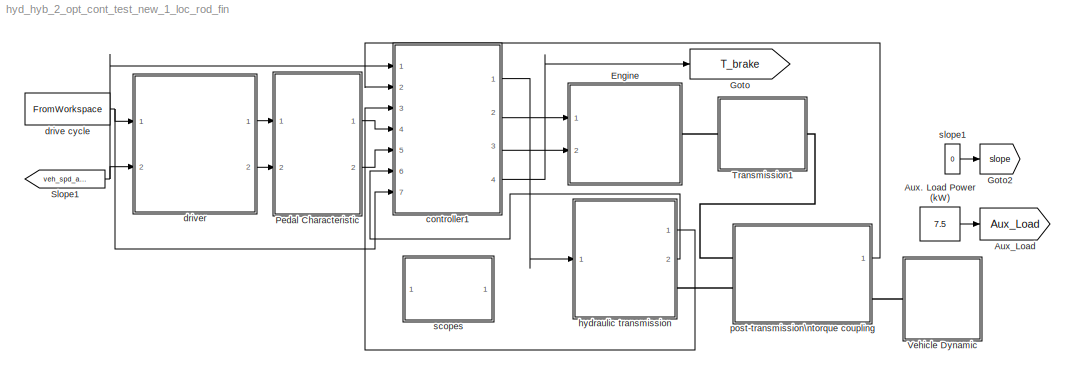
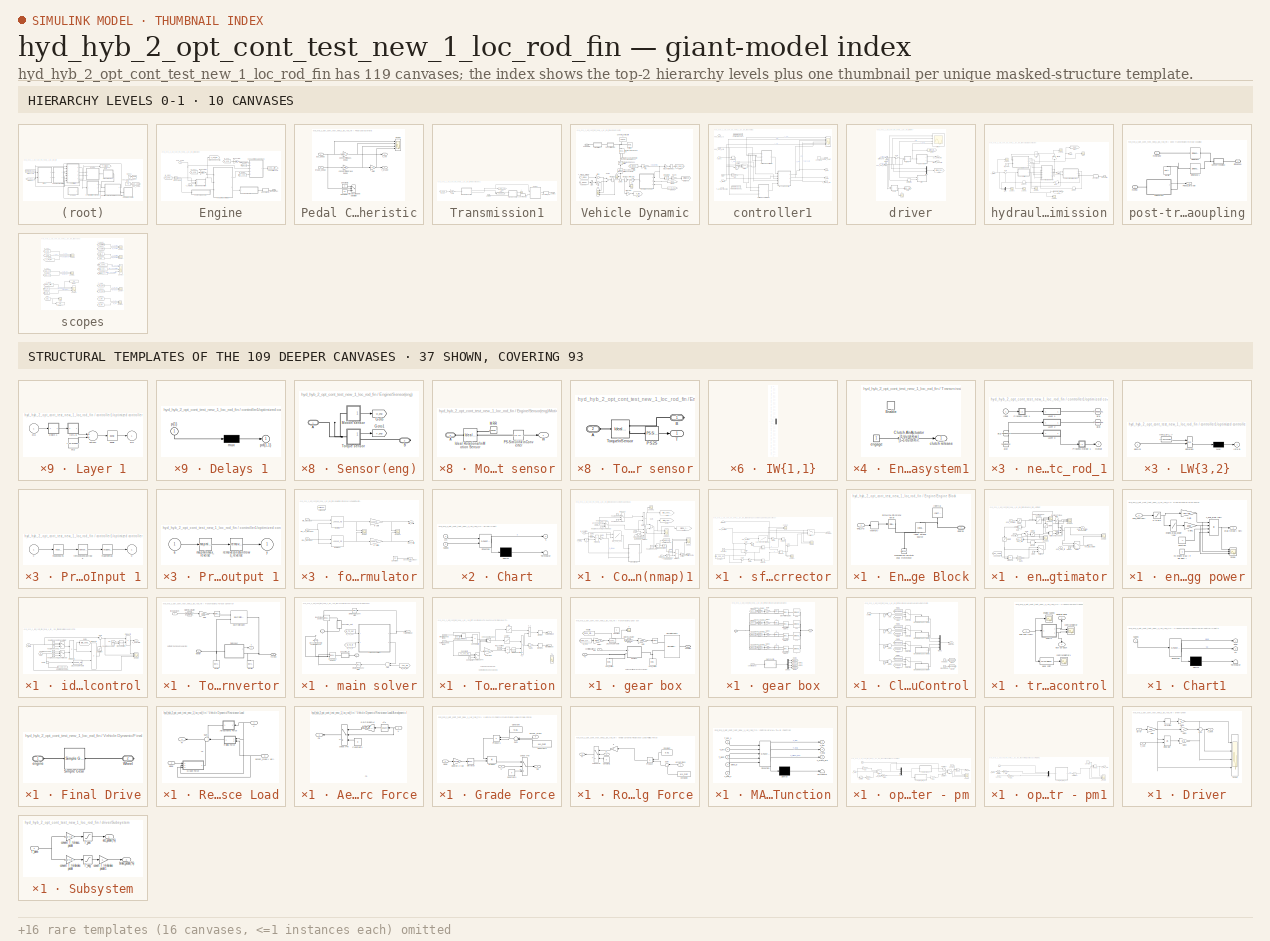
[diagram: thumbnail index - top-2 hierarchy levels (10 canvases) + 37 structural-template representatives of the remaining 109 canvases]
MODEL hyd_hyb_2_opt_cont_test_new_1_loc_rod_fin
KIND model
CONFIG InitFcn = const_3\n
BLOCK [Constant] Aux. Load Power (kW)
  SID = 1614
  Value = 7.5
BLOCK [Goto] Aux_Load
  GotoTag = Aux_Load
  SID = 1615
  TagVisibility = global
BLOCK [SubSystem] Engine
  FunctionWithSeparateData = off
  MaskHideContents = off
  MinAlgLoopOccurrences = off
  Opaque = off
  Ports = [2, 0, 0, 0, 0, 0, 1]
  PropExecContextOutsideSubsystem = off
  RTWSystemCode = Auto
  RequestExecContextInheritance = off
  SID = 12085
BLOCK [SubSystem] Engine/Consumption Calc (nmap)1
  FunctionWithSeparateData = off
  MaskHideContents = off
  MinAlgLoopOccurrences = off
  Opaque = off
  Ports = [5, 1]
  PropExecContextOutsideSubsystem = off
  RTWSystemCode = Auto
  RequestExecContextInheritance = off
  SID = 12088
BLOCK [Saturate] Engine/Consumption Calc (nmap)1/1
  InputPortMap = u0
  LowerLimit = 0
  Ports = [1, 1]
  SID = 12094
  UpperLimit = inf
BLOCK [Product] Engine/Consumption Calc (nmap)1/Divide1
  InputSameDT = off
  Inputs = */
  OutDataTypeStr = Inherit: Inherit via internal rule
  Ports = [2, 1]
  RndMeth = Floor
  SID = 12095
  SaturateOnIntegerOverflow = off
BLOCK [Product] Engine/Consumption Calc (nmap)1/Divide2
  InputSameDT = off
  Inputs = 3
  OutDataTypeStr = Inherit: Inherit via internal rule
  Ports = [3, 1]
  RndMeth = Floor
  SID = 12096
  SaturateOnIntegerOverflow = off
BLOCK [Product] Engine/Consumption Calc (nmap)1/Divide3
  InputSameDT = off
  OutDataTypeStr = Inherit: Inherit via internal rule
  Ports = [2, 1]
  RndMeth = Floor
  SID = 12097
  SaturateOnIntegerOverflow = off
BLOCK [Product] Engine/Consumption Calc (nmap)1/Divide4
  InputSameDT = off
  Inputs = */
  OutDataTypeStr = Inherit: Inherit via internal rule
  Ports = [2, 1]
  RndMeth = Floor
  SID = 12098
  SaturateOnIntegerOverflow = off
BLOCK [Gain] Engine/Consumption Calc (nmap)1/Gain2
  Gain = 2*pi/60
  OutDataTypeStr = Inherit: Inherit via internal rule
  ParamDataTypeStr = Inherit: Inherit via internal rule
  SID = 12099
  SaturateOnIntegerOverflow = off
BLOCK [Gain] Engine/Consumption Calc (nmap)1/Gain3
  Gain = .001
  OutDataTypeStr = Inherit: Inherit via internal rule
  ParamDataTypeStr = Inherit: Inherit via internal rule
  SID = 12100
  SaturateOnIntegerOverflow = off
BLOCK [Goto] Engine/Consumption Calc (nmap)1/Goto
  GotoTag = idle_consumption
  SID = 12101
  TagVisibility = global
BLOCK [Goto] Engine/Consumption Calc (nmap)1/Goto1
  GotoTag = total_consumption
  SID = 12102
  TagVisibility = global
BLOCK [Goto] Engine/Consumption Calc (nmap)1/Goto2
  GotoTag = driving_consumption
  SID = 12103
  TagVisibility = global
BLOCK [Lookup2D] Engine/Consumption Calc (nmap)1/ICE_906_205
  ColumnIndex = w_906_205
  InputSameDT = off
  RowIndex = p_906_205
  SID = 12104
  SaturateOnIntegerOverflow = off
  Table = BSFC_906_205
BLOCK [Integrator] Engine/Consumption Calc (nmap)1/Integrator1
  Ports = [1, 1]
  SID = 12105
BLOCK [Product] Engine/Consumption Calc (nmap)1/Product1
  InputSameDT = off
  OutDataTypeStr = Inherit: Inherit via internal rule
  Ports = [2, 1]
  SID = 12106
  SaturateOnIntegerOverflow = off
BLOCK [Scope] Engine/Consumption Calc (nmap)1/Scope1
  DataFormat = StructureWithTime
  Floating = off
  LimitDataPoints = off
  NumInputPorts = 2
  Ports = [2]
  SID = 12107
  SampleTime = 0
  YMax = 42.5~42.5
  YMin = 0~0
  ZoomMode = xonly
BLOCK [Scope] Engine/Consumption Calc (nmap)1/Scope2
  DataFormat = StructureWithTime
  Floating = off
  LimitDataPoints = off
  NumInputPorts = 1
  Ports = [1]
  SID = 12108
  SampleTime = 0
  SaveName = ScopeData75
  ZoomMode = xonly
BLOCK [Sum] Engine/Consumption Calc (nmap)1/Sum
  InputSameDT = off
  OutDataTypeStr = Inherit: Inherit via internal rule
  Ports = [2, 1]
  SID = 12109
  SaturateOnIntegerOverflow = off
BLOCK [Inport] Engine/Consumption Calc (nmap)1/T_eng
  IconDisplay = Port number
  Port = 4
  SID = 12092
BLOCK [ToWorkspace] Engine/Consumption Calc (nmap)1/To Workspace
  MaxDataPoints = inf
  Ports = [1]
  SID = 12110
  SampleTime = -1
  SaveFormat = Structure With Time
  VariableName = ali_cons
BLOCK [Inport] Engine/Consumption Calc (nmap)1/acc pedal
  IconDisplay = Port number
  Port = 5
  SID = 12093
BLOCK [Switch] Engine/Consumption Calc (nmap)1/check pedal
  Criteria = u2 > Threshold
  InputSameDT = off
  SID = 12111
  SaturateOnIntegerOverflow = off
BLOCK [Scope] Engine/Consumption Calc (nmap)1/cons1
  DataFormat = StructureWithTime
  Floating = off
  LimitDataPoints = off
  NumInputPorts = 3
  Ports = [3]
  SID = 12112
  SampleTime = 0
  SaveName = cons1
  SaveToWorkspace = on
  YMax = 42.5~42.5~5
  YMin = 0~0~-5
  ZoomMode = yonly
BLOCK [Outport] Engine/Consumption Calc (nmap)1/cons\nlit//100km1
  IconDisplay = Port number
  SID = 12146
BLOCK [Inport] Engine/Consumption Calc (nmap)1/distance
  IconDisplay = Port number
  Port = 2
  SID = 12090
BLOCK [Gain] Engine/Consumption Calc (nmap)1/g 2 liter1
  Gain = 100
  OutDataTypeStr = Inherit: Inherit via internal rule
  ParamDataTypeStr = Inherit: Inherit via internal rule
  SID = 12113
  SaturateOnIntegerOverflow = off
BLOCK [Gain] Engine/Consumption Calc (nmap)1/g2lit
  Gain = 1/fuel_density*1000
  OutDataTypeStr = Inherit: Inherit via internal rule
  ParamDataTypeStr = Inherit: Inherit via internal rule
  SID = 12114
  SaturateOnIntegerOverflow = off
BLOCK [Constant] Engine/Consumption Calc (nmap)1/hour2\nsecond
  SID = 12115
  Value = 3600
BLOCK [Constant] Engine/Consumption Calc (nmap)1/hour2\nsecond1
  SID = 12116
BLOCK [Constant] Engine/Consumption Calc (nmap)1/hour2\nsecond2
  SID = 12117
  Value = 0
BLOCK [Constant] Engine/Consumption Calc (nmap)1/hour2\nsecond3
  SID = 12118
  Value = 0
BLOCK [Constant] Engine/Consumption Calc (nmap)1/hour2\nsecond4
  SID = 12119
  Value = 2
BLOCK [Switch] Engine/Consumption Calc (nmap)1/idel cons
  Criteria = u2 > Threshold
  InputSameDT = off
  SID = 12120
  SaturateOnIntegerOverflow = off
BLOCK [Inport] Engine/Consumption Calc (nmap)1/on//off
  IconDisplay = Port number
  Port = 3
  SID = 12091
BLOCK [SubSystem] Engine/Consumption Calc (nmap)1/sfc corrector
  FunctionWithSeparateData = off
  MaskHideContents = off
  MinAlgLoopOccurrences = off
  Opaque = off
  Ports = [3, 1]
  PropExecContextOutsideSubsystem = off
  RTWSystemCode = Auto
  RequestExecContextInheritance = off
  SID = 12121
BLOCK [Constant] Engine/Consumption Calc (nmap)1/sfc corrector/Constant
  SID = 12125
  Value = Idle_spd_eng_906
BLOCK [Constant] Engine/Consumption Calc (nmap)1/sfc corrector/Constant1
  SID = 12126
  Value = 1000
BLOCK [Gain] Engine/Consumption Calc (nmap)1/sfc corrector/Gain
  Gain = -1
  OutDataTypeStr = Inherit: Inherit via internal rule
  ParamDataTypeStr = Inherit: Inherit via internal rule
  SID = 12127
  SaturateOnIntegerOverflow = off
BLOCK [Gain] Engine/Consumption Calc (nmap)1/sfc corrector/Gain1
  OutDataTypeStr = Inherit: Inherit via internal rule
  ParamDataTypeStr = Inherit: Inherit via internal rule
  SID = 12128
  SaturateOnIntegerOverflow = off
BLOCK [Gain] Engine/Consumption Calc (nmap)1/sfc corrector/Gain2
  OutDataTypeStr = Inherit: Inherit via internal rule
  ParamDataTypeStr = Inherit: Inherit via internal rule
  SID = 12129
  SaturateOnIntegerOverflow = off
BLOCK [Product] Engine/Consumption Calc (nmap)1/sfc corrector/Product
  InputSameDT = off
  Inputs = */
  OutDataTypeStr = Inherit: Inherit via internal rule
  Ports = [2, 1]
  SID = 12130
  SaturateOnIntegerOverflow = off
BLOCK [Product] Engine/Consumption Calc (nmap)1/sfc corrector/Product1
  InputSameDT = off
  Inputs = */
  OutDataTypeStr = Inherit: Inherit via internal rule
  Ports = [2, 1]
  SID = 12131
  SaturateOnIntegerOverflow = off
BLOCK [Product] Engine/Consumption Calc (nmap)1/sfc corrector/Product2
  InputSameDT = off
  OutDataTypeStr = Inherit: Inherit via internal rule
  Ports = [2, 1]
  SID = 12132
  SaturateOnIntegerOverflow = off
BLOCK [Product] Engine/Consumption Calc (nmap)1/sfc corrector/Product3
  InputSameDT = off
  OutDataTypeStr = Inherit: Inherit via internal rule
  Ports = [2, 1]
  SID = 12133
  SaturateOnIntegerOverflow = off
BLOCK [Scope] Engine/Consumption Calc (nmap)1/sfc corrector/Scope
  DataFormat = StructureWithTime
  Floating = off
  NumInputPorts = 2
  Ports = [2]
  SID = 12134
  SampleTime = 0
  SaveName = ScopeData40
  YMax = 5~5
  YMin = -5~-5
  ZoomMode = yonly
BLOCK [Scope] Engine/Consumption Calc (nmap)1/sfc corrector/Scope1
  DataFormat = StructureWithTime
  Floating = off
  NumInputPorts = 2
  Ports = [2]
  SID = 12135
  SampleTime = 0
  SaveName = ScopeData41
  YMax = 5~5
  YMin = -5~-5
  ZoomMode = yonly
BLOCK [Scope] Engine/Consumption Calc (nmap)1/sfc corrector/Scope2
  DataFormat = StructureWithTime
  Floating = off
  NumInputPorts = 2
  Ports = [2]
  SID = 12136
  SampleTime = 0
  SaveName = ScopeData42
  YMax = 5~5
  YMin = -5~-5
  ZoomMode = yonly
BLOCK [Sum] Engine/Consumption Calc (nmap)1/sfc corrector/Sum
  IconShape = round
  InputSameDT = off
  Inputs = |+-
  OutDataTypeStr = Inherit: Inherit via internal rule
  Ports = [2, 1]
  SID = 12137
  SaturateOnIntegerOverflow = off
BLOCK [Sum] Engine/Consumption Calc (nmap)1/sfc corrector/Sum1
  IconShape = round
  InputSameDT = off
  Inputs = |+-
  OutDataTypeStr = Inherit: Inherit via internal rule
  Ports = [2, 1]
  SID = 12138
  SaturateOnIntegerOverflow = off
BLOCK [Sum] Engine/Consumption Calc (nmap)1/sfc corrector/Sum2
  IconShape = round
  InputSameDT = off
  Inputs = |+-
  OutDataTypeStr = Inherit: Inherit via internal rule
  Ports = [2, 1]
  SID = 12139
  SaturateOnIntegerOverflow = off
BLOCK [Sum] Engine/Consumption Calc (nmap)1/sfc corrector/Sum3
  IconShape = round
  InputSameDT = off
  Inputs = |++
  OutDataTypeStr = Inherit: Inherit via internal rule
  Ports = [2, 1]
  SID = 12140
  SaturateOnIntegerOverflow = off
BLOCK [Switch] Engine/Consumption Calc (nmap)1/sfc corrector/Switch
  InputSameDT = off
  SID = 12141
  SaturateOnIntegerOverflow = off
  Threshold = 1000
BLOCK [Outport] Engine/Consumption Calc (nmap)1/sfc corrector/cons(kg//h)
  IconDisplay = Port number
  SID = 12143
BLOCK [Inport] Engine/Consumption Calc (nmap)1/sfc corrector/eng_pow(kw)
  IconDisplay = Port number
  Port = 3
  SID = 12124
BLOCK [Inport] Engine/Consumption Calc (nmap)1/sfc corrector/eng_spd(rpm)
  IconDisplay = Port number
  Port = 2
  SID = 12123
BLOCK [Inport] Engine/Consumption Calc (nmap)1/sfc corrector/main map
  IconDisplay = Port number
  SID = 12122
BLOCK [Lookup] Engine/Consumption Calc (nmap)1/sfc corrector/sec_eng_sfc_map (906)
  InputValues = sec_eng_sfc_map(:,1)
  SID = 12142
  SaturateOnIntegerOverflow = off
  Table = sec_eng_sfc_map(:,2)
BLOCK [Saturate] Engine/Consumption Calc (nmap)1/solve devide \nby zero problem
  InputPortMap = u0
  LowerLimit = eps
  Ports = [1, 1]
  SID = 12144
  UpperLimit = inf
BLOCK [Saturate] Engine/Consumption Calc (nmap)1/solve devide \nby zero problem1
  InputPortMap = u0
  LowerLimit = 0
  Ports = [1, 1]
  SID = 12145
  UpperLimit = inf
BLOCK [Inport] Engine/Consumption Calc (nmap)1/w_eng (rpm)
  IconDisplay = Port number
  SID = 12089
BLOCK [From] Engine/Distance (km)
  GotoTag = Distance
  SID = 12147
  TagVisibility = global
BLOCK [SubSystem] Engine/Engine Block
  FunctionWithSeparateData = off
  MaskHideContents = off
  MinAlgLoopOccurrences = off
  Opaque = off
  Ports = [1, 0, 0, 0, 0, 0, 1]
  PropExecContextOutsideSubsystem = off
  RTWSystemCode = Auto
  RequestExecContextInheritance = off
  SID = 12148
BLOCK [PMIOPort] Engine/Engine Block/Engine
  Port = 1
  SID = 12155
  Side = Right
BLOCK [Reference] Engine/Engine Block/Ideal Torque Source  REF=fl_lib/Mechanical/Mechanical Sources/Ideal Torque Source
  ClassName = torque
  ComponentPath = foundation.mechanical.sources.torque
  FunctionWithSeparateData = off
  GeneratePreprocessorConditionals = off
  LocalVarDescs = |w|t
  LocalVarLogging = [0 0]
  LocalVarNames = |w|t
  Ports = [0, 0, 0, 0, 0, 1, 2]
  RTWMemSecDataConstants = Inherit from model
  RTWMemSecDataInternal = Inherit from model
  RTWMemSecDataParameters = Inherit from model
  RTWMemSecFuncExecute = Inherit from model
  RTWMemSecFuncInitTerm = Inherit from model
  SID = 12150
  SchemaVersion = 1
  ShowPortLabels = FromPortIcon
  SourceBlock = fl_lib/Mechanical/Mechanical Sources/Ideal Torque Source
  SourceType = Ideal Torque Source
  SystemSampleTime = -1
  t_Log = off
  w_Log = off
BLOCK [Reference] Engine/Engine Block/Inertia  REF=fl_lib/Mechanical/Rotational Elements/Inertia
  ClassName = inertia
  ComponentPath = foundation.mechanical.rotational.inertia
  FunctionWithSeparateData = off
  GeneratePreprocessorConditionals = off
  LocalVarDescs = |t
  LocalVarLogging = 0
  LocalVarNames = |t
  Ports = [0, 0, 0, 0, 0, 1]
  RTWMemSecDataConstants = Inherit from model
  RTWMemSecDataInternal = Inherit from model
  RTWMemSecDataParameters = Inherit from model
  RTWMemSecFuncExecute = Inherit from model
  RTWMemSecFuncInitTerm = Inherit from model
  SID = 12151
  SchemaVersion = 1
  ShowPortLabels = FromPortIcon
  SourceBlock = fl_lib/Mechanical/Rotational Elements/Inertia
  SourceType = Inertia
  SystemSampleTime = -1
  inertia = I_ICE
  inertia_unit = kg*m^2
  initial_velocity = 0
  initial_velocity_unit = rad/s
  t_Log = off
BLOCK [Reference] Engine/Engine Block/Mechanical\nRotational Reference  REF=fl_lib/Mechanical/Rotational Elements/Mechanical\nRotational Reference
  ClassName = reference
  ComponentPath = foundation.mechanical.rotational.reference
  FunctionWithSeparateData = off
  GeneratePreprocessorConditionals = off
  LocalVarDescs = |t
  LocalVarLogging = 0
  LocalVarNames = |t
  Ports = [0, 0, 0, 0, 0, 1]
  RTWMemSecDataConstants = Inherit from model
  RTWMemSecDataInternal = Inherit from model
  RTWMemSecDataParameters = Inherit from model
  RTWMemSecFuncExecute = Inherit from model
  RTWMemSecFuncInitTerm = Inherit from model
  SID = 12152
  SchemaVersion = 1
  ShowPortLabels = FromPortIcon
  SourceBlock = fl_lib/Mechanical/Rotational Elements/Mechanical\nRotational Reference
  SourceType = Mechanical\nRotational Reference
  SystemSampleTime = -1
  t_Log = off
BLOCK [Memory] Engine/Engine Block/Memory
  InheritSampleTime = on
  SID = 12153
BLOCK [Reference] Engine/Engine Block/Simulink-PS\nConverter  REF=nesl_utility/Simulink-PS\nConverter
  AffineConversion = off
  FunctionWithSeparateData = off
  GeneratePreprocessorConditionals = off
  InputFilterTimeConstant = 0.01
  LeftPortType = input
  PhysicalDomain = network_engine_domain
  Ports = [1, 0, 0, 0, 0, 0, 1]
  RTWMemSecDataConstants = Inherit from model
  RTWMemSecDataInternal = Inherit from model
  RTWMemSecDataParameters = Inherit from model
  RTWMemSecFuncExecute = Inherit from model
  RTWMemSecFuncInitTerm = Inherit from model
  RightPortType = output
  SID = 12154
  ShowPortLabels = FromPortIcon
  SourceBlock = nesl_utility/Simulink-PS\nConverter
  SourceType = Simulink-PS\nConverter
  SubClassName = ps_input
  SystemSampleTime = -1
  UdotUserProvided = 0
  Unit = 1
BLOCK [Inport] Engine/Engine Block/eng_trq
  IconDisplay = Port number
  SID = 12149
BLOCK [SubSystem] Engine/Sensor(eng)
  FunctionWithSeparateData = off
  MaskHideContents = off
  MinAlgLoopOccurrences = off
  Opaque = off
  Ports = [0, 0, 0, 0, 0, 1, 1]
  PropExecContextOutsideSubsystem = off
  RTWSystemCode = Auto
  RequestExecContextInheritance = off
  SID = 12156
BLOCK [PMIOPort] Engine/Sensor(eng)/A
  Port = 1
  SID = 12171
  Side = Left
BLOCK [PMIOPort] Engine/Sensor(eng)/B
  Port = 2
  SID = 12172
  Side = Right
BLOCK [Goto] Engine/Sensor(eng)/Goto
  GotoTag = w_eng
  SID = 12157
  TagVisibility = global
BLOCK [Goto] Engine/Sensor(eng)/Goto1
  GotoTag = T_eng
  SID = 12158
  TagVisibility = global
BLOCK [SubSystem] Engine/Sensor(eng)/Motion sensor
  FunctionWithSeparateData = off
  MaskHideContents = off
  MinAlgLoopOccurrences = off
  Opaque = off
  Ports = [0, 1, 0, 0, 0, 1]
  PropExecContextOutsideSubsystem = off
  RTWSystemCode = Auto
  RequestExecContextInheritance = off
  SID = 12159
BLOCK [PMIOPort] Engine/Sensor(eng)/Motion sensor/A
  Port = 1
  SID = 12163
  Side = Left
BLOCK [Reference] Engine/Sensor(eng)/Motion sensor/Ideal Rotational\nMotion Sensor  REF=fl_lib/Mechanical/Mechanical Sensors/Ideal Rotational\nMotion Sensor
  ClassName = sensor_rot_motion
  ComponentPath = foundation.mechanical.sensors.angular_velocity
  FunctionWithSeparateData = off
  GeneratePreprocessorConditionals = off
  LocalVarDescs = |w|t|phi
  LocalVarLogging = []
  LocalVarNames = |w|t|phi
  Ports = [0, 0, 0, 0, 0, 1, 3]
  RTWMemSecDataConstants = Inherit from model
  RTWMemSecDataInternal = Inherit from model
  RTWMemSecDataParameters = Inherit from model
  RTWMemSecFuncExecute = Inherit from model
  RTWMemSecFuncInitTerm = Inherit from model
  SID = 12160
  SchemaVersion = 1
  ShowPortLabels = FromPortIcon
  SourceBlock = fl_lib/Mechanical/Mechanical Sensors/Ideal Rotational\nMotion Sensor
  SourceType = Ideal Rotational\nMotion Sensor
  SystemSampleTime = -1
  offset = 0
  offset_unit = rad
  phi_Log = off
  t_Log = off
  w_Log = off
BLOCK [Reference] Engine/Sensor(eng)/Motion sensor/MRR  REF=fl_lib/Mechanical/Rotational Elements/Mechanical\nRotational Reference
  ClassName = reference_rot
  ComponentPath = foundation.mechanical.rotational.reference
  FunctionWithSeparateData = off
  GeneratePreprocessorConditionals = off
  LocalVarDescs = |t
  LocalVarLogging = []
  LocalVarNames = |t
  Ports = [0, 0, 0, 0, 0, 1]
  RTWMemSecDataConstants = Inherit from model
  RTWMemSecDataInternal = Inherit from model
  RTWMemSecDataParameters = Inherit from model
  RTWMemSecFuncExecute = Inherit from model
  RTWMemSecFuncInitTerm = Inherit from model
  SID = 12161
  SchemaVersion = 1
  ShowPortLabels = FromPortIcon
  SourceBlock = fl_lib/Mechanical/Rotational Elements/Mechanical\nRotational Reference
  SourceType = Mechanical\nRotational Reference
  SystemSampleTime = -1
  t_Log = off
BLOCK [Reference] Engine/Sensor(eng)/Motion sensor/PS-Simulink\nConverter  REF=nesl_utility/PS-Simulink\nConverter
  AffineConversion = off
  FunctionWithSeparateData = off
  GeneratePreprocessorConditionals = off
  LeftPortType = input
  PhysicalDomain = network_engine_domain
  Ports = [0, 1, 0, 0, 0, 1]
  RTWMemSecDataConstants = Inherit from model
  RTWMemSecDataInternal = Inherit from model
  RTWMemSecDataParameters = Inherit from model
  RTWMemSecFuncExecute = Inherit from model
  RTWMemSecFuncInitTerm = Inherit from model
  RightPortType = output
  SID = 12162
  ShowPortLabels = none
  SourceBlock = nesl_utility/PS-Simulink\nConverter
  SourceType = PS-Simulink\nConverter
  SubClassName = ps_output
  SystemSampleTime = -1
  Unit = rad/s
BLOCK [Outport] Engine/Sensor(eng)/Motion sensor/W
  IconDisplay = Port number
  SID = 12164
BLOCK [SubSystem] Engine/Sensor(eng)/Torque sensor
  FunctionWithSeparateData = off
  MaskHideContents = off
  MinAlgLoopOccurrences = off
  Opaque = off
  Ports = [0, 1, 0, 0, 0, 1, 1]
  PropExecContextOutsideSubsystem = off
  RTWSystemCode = Auto
  RequestExecContextInheritance = off
  SID = 12165
BLOCK [PMIOPort] Engine/Sensor(eng)/Torque sensor/A
  Port = 2
  SID = 12169
  Side = Left
BLOCK [PMIOPort] Engine/Sensor(eng)/Torque sensor/B
  Port = 1
  SID = 12168
  Side = Right
BLOCK [Reference] Engine/Sensor(eng)/Torque sensor/PS2S  REF=nesl_utility/PS-Simulink\nConverter
  AffineConversion = off
  FunctionWithSeparateData = off
  GeneratePreprocessorConditionals = off
  LeftPortType = input
  PhysicalDomain = network_engine_domain
  Ports = [0, 1, 0, 0, 0, 1]
  RTWMemSecDataConstants = Inherit from model
  RTWMemSecDataInternal = Inherit from model
  RTWMemSecDataParameters = Inherit from model
  RTWMemSecFuncExecute = Inherit from model
  RTWMemSecFuncInitTerm = Inherit from model
  RightPortType = output
  SID = 12166
  ShowPortLabels = none
  SourceBlock = nesl_utility/PS-Simulink\nConverter
  SourceType = PS-Simulink\nConverter
  SubClassName = ps_output
  SystemSampleTime = -1
  Unit = 1
BLOCK [Outport] Engine/Sensor(eng)/Torque sensor/T
  IconDisplay = Port number
  SID = 12170
BLOCK [Reference] Engine/Sensor(eng)/Torque sensor/Torque\nSensor  REF=fl_lib/Mechanical/Mechanical Sensors/Ideal Torque Sensor
  ClassName = sensor_torque
  ComponentPath = foundation.mechanical.sensors.torque
  FunctionWithSeparateData = off
  GeneratePreprocessorConditionals = off
  LocalVarDescs = |w|t
  LocalVarLogging = []
  LocalVarNames = |w|t
  Ports = [0, 0, 0, 0, 0, 1, 2]
  RTWMemSecDataConstants = Inherit from model
  RTWMemSecDataInternal = Inherit from model
  RTWMemSecDataParameters = Inherit from model
  RTWMemSecFuncExecute = Inherit from model
  RTWMemSecFuncInitTerm = Inherit from model
  SID = 12167
  SchemaVersion = 1
  ShowPortLabels = FromPortIcon
  SourceBlock = fl_lib/Mechanical/Mechanical Sensors/Ideal Torque Sensor
  SourceType = Ideal Torque Sensor
  SystemSampleTime = -1
  t_Log = off
  w_Log = off
BLOCK [Goto] Engine/T idle speed control
  GotoTag = T_out_idle_cotl
  SID = 12173
  TagVisibility = global
BLOCK [Inport] Engine/T_eng (Nm)
  IconDisplay = Port number
  SID = 12086
BLOCK [PMIOPort] Engine/Transmission
  Port = 1
  SID = 12246
  Side = Right
BLOCK [Goto] Engine/cons\nlit//100km
  GotoTag = cons_LitP100km
  SID = 12174
  TagVisibility = global
BLOCK [Inport] Engine/eng_on//off
  IconDisplay = Port number
  Port = 2
  SID = 12087
BLOCK [SubSystem] Engine/eng_torq_estimator
  FunctionWithSeparateData = off
  MaskHideContents = off
  MinAlgLoopOccurrences = off
  Opaque = off
  Ports = [3, 2]
  PropExecContextOutsideSubsystem = off
  RTWSystemCode = Auto
  RequestExecContextInheritance = off
  SID = 12175
BLOCK [Saturate] Engine/eng_torq_estimator/0 to inf1
  InputPortMap = u0
  LowerLimit = 0
  Ports = [1, 1]
  SID = 12179
  UpperLimit = inf
BLOCK [Saturate] Engine/eng_torq_estimator/0 to inf2
  InputPortMap = u0
  LowerLimit = eps
  Ports = [1, 1]
  SID = 12180
  UpperLimit = inf
BLOCK [Saturate] Engine/eng_torq_estimator/0 to inf3
  InputPortMap = u0
  LowerLimit = 0
  Ports = [1, 1]
  SID = 12181
  UpperLimit = inf
BLOCK [Saturate] Engine/eng_torq_estimator/0 to inf4
  InputPortMap = u0
  LowerLimit = 0
  Ports = [1, 1]
  SID = 12182
  UpperLimit = inf
BLOCK [Saturate] Engine/eng_torq_estimator/0 to inf5
  InputPortMap = u0
  LowerLimit = 0
  Ports = [1, 1]
  SID = 12183
  UpperLimit = inf
BLOCK [From] Engine/eng_torq_estimator/Aux Load
  GotoTag = Aux_Load
  SID = 12184
  TagVisibility = global
BLOCK [Goto] Engine/eng_torq_estimator/Aux_Trq
  GotoTag = Aux_Trq
  SID = 12185
  TagVisibility = global
BLOCK [Gain] Engine/eng_torq_estimator/Gain
  Gain = pi/30
  OutDataTypeStr = Inherit: Inherit via internal rule
  ParamDataTypeStr = Inherit: Inherit via internal rule
  SID = 12186
  SaturateOnIntegerOverflow = off
BLOCK [Gain] Engine/eng_torq_estimator/Gain1
  Gain = 1000
  OutDataTypeStr = Inherit: Inherit via internal rule
  ParamDataTypeStr = Inherit: Inherit via internal rule
  SID = 12187
  SaturateOnIntegerOverflow = off
BLOCK [Memory] Engine/eng_torq_estimator/Memory
  InheritSampleTime = on
  SID = 12188
BLOCK [MinMax] Engine/eng_torq_estimator/Min
  Function = min
  InputSameDT = off
  Inputs = 2
  Ports = [2, 1]
  SID = 12189
  SaturateOnIntegerOverflow = off
BLOCK [Lookup] Engine/eng_torq_estimator/Overload Torque (Nm)
  InputValues = [2600 2900 3000]
  SID = 12190
  Table = [650 0 0]
BLOCK [Lookup] Engine/eng_torq_estimator/PeakTorque -906 - 205(Nm)
  InputValues = [1000,1070,1130,1200,1280,1500,1590,1680,1760,1850,1930,2010,2070,2150,2240,2320,2380,2500]
  SID = 12191
  Table = [982,1040,1080,1100,1110,1110,1100,1080,1060,1020,994,963,940,909,872,838,804,751]
BLOCK [Product] Engine/eng_torq_estimator/Product1
  InputSameDT = off
  Inputs = */
  OutDataTypeStr = Inherit: Inherit via internal rule
  Ports = [2, 1]
  SID = 12192
  SaturateOnIntegerOverflow = off
BLOCK [Scope] Engine/eng_torq_estimator/Scope
  DataFormat = StructureWithTime
  Floating = off
  LimitDataPoints = off
  NumInputPorts = 3
  Ports = [3]
  SID = 12193
  SampleTime = 0
  SaveName = ScopeData10
  YMax = 5~5~5
  YMin = -5~-5~-5
  ZoomMode = yonly
BLOCK [Scope] Engine/eng_torq_estimator/Scope1
  DataFormat = StructureWithTime
  Floating = off
  LimitDataPoints = off
  NumInputPorts = 3
  Ports = [3]
  SID = 12194
  SampleTime = 0
  SaveName = ScopeData9
  YMax = 5~5~5
  YMin = -5~-5~-5
  ZoomMode = yonly
BLOCK [Scope] Engine/eng_torq_estimator/Scope2
  DataFormat = StructureWithTime
  Floating = off
  LimitDataPoints = off
  NumInputPorts = 3
  Ports = [3]
  SID = 12195
  SampleTime = 0
  SaveName = ScopeData23
  YMax = 5~5~5
  YMin = -5~-5~-5
  ZoomMode = xonly
BLOCK [Scope] Engine/eng_torq_estimator/Scope3
  DataFormat = StructureWithTime
  Floating = off
  LimitDataPoints = off
  NumInputPorts = 3
  Ports = [3]
  SID = 12196
  SampleTime = 0
  SaveName = ScopeData5
  YMax = 5~5~5
  YMin = -5~-5~-5
  ZoomMode = yonly
BLOCK [Sum] Engine/eng_torq_estimator/Sum
  IconShape = round
  InputSameDT = off
  Inputs = |++
  OutDataTypeStr = Inherit: Inherit via internal rule
  Ports = [2, 1]
  SID = 12197
  SaturateOnIntegerOverflow = off
BLOCK [Switch] Engine/eng_torq_estimator/Switch
  InputSameDT = off
  SID = 12198
  SaturateOnIntegerOverflow = off
  Threshold = 0.1
BLOCK [Switch] Engine/eng_torq_estimator/Switch1
  InputSameDT = off
  SID = 12199
  SaturateOnIntegerOverflow = off
  Threshold = Idle_spd_eng_906*0.75
BLOCK [Switch] Engine/eng_torq_estimator/check max speed
  InputSameDT = off
  SID = 12200
  SaturateOnIntegerOverflow = off
  Threshold = 2600
BLOCK [Inport] Engine/eng_torq_estimator/eng_drag_trq
  IconDisplay = Port number
  Port = 3
  SID = 12178
BLOCK [Inport] Engine/eng_torq_estimator/eng_spd (rpm)
  IconDisplay = Port number
  SID = 12176
BLOCK [Inport] Engine/eng_torq_estimator/eng_trq_in
  IconDisplay = Port number
  Port = 2
  SID = 12177
BLOCK [Outport] Engine/eng_torq_estimator/eng_trq_out (Nm)
  IconDisplay = Port number
  Port = 2
  SID = 12204
BLOCK [Outport] Engine/eng_torq_estimator/eng_trq_out (Nm) to consump
  IconDisplay = Port number
  SID = 12203
BLOCK [Constant] Engine/eng_torq_estimator/slope
  SID = 12201
  Value = 0
BLOCK [Constant] Engine/eng_torq_estimator/slope1
  SID = 12202
  Value = 0
BLOCK [SubSystem] Engine/engine drag power
  FunctionWithSeparateData = off
  MaskHideContents = off
  MinAlgLoopOccurrences = off
  Opaque = off
  Ports = [1, 1]
  PropExecContextOutsideSubsystem = off
  RTWSystemCode = Auto
  RequestExecContextInheritance = off
  SID = 12205
BLOCK [Saturate] Engine/engine drag power/0 to inf2
  InputPortMap = u0
  LowerLimit = eps
  Ports = [1, 1]
  SID = 12207
  UpperLimit = inf
BLOCK [Constant] Engine/engine drag power/Constant
  SID = 12208
  Value = -1
BLOCK [Gain] Engine/engine drag power/Gain
  Gain = (pi)/30
  OutDataTypeStr = Inherit: Inherit via internal rule
  ParamDataTypeStr = Inherit: Inherit via internal rule
  SID = 12209
  SaturateOnIntegerOverflow = off
BLOCK [Gain] Engine/engine drag power/Gain1
  Gain = 1000
  OutDataTypeStr = Inherit: Inherit via internal rule
  ParamDataTypeStr = Inherit: Inherit via internal rule
  SID = 12210
  SaturateOnIntegerOverflow = off
BLOCK [Scope] Engine/engine drag power/Scope
  DataFormat = StructureWithTime
  Floating = off
  LimitDataPoints = off
  NumInputPorts = 3
  Ports = [3]
  SID = 12211
  SampleTime = 0
  SaveName = ScopeData2
  YMax = 5~5~5
  YMin = -5~-5~-5
  ZoomMode = yonly
BLOCK [Product] Engine/engine drag power/T_eng_drag (Nm)
  InputSameDT = off
  Inputs = /***
  OutDataTypeStr = Inherit: Inherit via internal rule
  Ports = [4, 1]
  RndMeth = Floor
  SID = 12212
  SaturateOnIntegerOverflow = off
BLOCK [Outport] Engine/engine drag power/drag torque ( Nm)
  IconDisplay = Port number
  SID = 12215
BLOCK [Inport] Engine/engine drag power/eng_spd(rpm)
  IconDisplay = Port number
  SID = 12206
BLOCK [Lookup] Engine/engine drag power/engine_drag_power (kw)
  InputValues = [-10,eps,802.567507746791,824.568393094289,846.879150066401,868.8800354139,890.880920761399,912.881806108898,935.192563081009,957.193448428508,979.194333776007,1001.19521912351,1023.196104471,1045.1969898185,1067.197875166,1089.50863213811,1111.50951748561,1133.51040283311,1155.51128818061,1177.51217352811,1199.51305887561,1221.51394422311,1243.51482957061,1265.51571491811,1287.5166002656,1309.517...<+620ch>
  SID = 12213
  SaturateOnIntegerOverflow = off
  Table = [0,0,8.89504100832017,9.50127747975726,9.88870415102495,10.2762179627945,10.7512208384311,11.1824791821341,11.6136503853353,12.0449087290384,12.4761670727414,12.9074254164445,13.294939228214,13.7261975719171,14.1137113836866,14.5448825868878,15.0636299944579,15.5386328700944,15.9698912137975,16.357405025567,16.7449188373366,17.1761771810396,17.6074355247427,17.9949493365122,18.4699522121488,18.988...<+631ch>
BLOCK [Constant] Engine/engine drag power/no engine drag ( if we want )
  SID = 12214
BLOCK [SubSystem] Engine/idle speed control
  FunctionWithSeparateData = off
  MaskHideContents = off
  MinAlgLoopOccurrences = off
  Opaque = off
  Ports = [3, 1]
  PropExecContextOutsideSubsystem = off
  RTWSystemCode = Auto
  RequestExecContextInheritance = off
  SID = 12216
BLOCK [Lookup_n-D] Engine/idle speed control/1-D Lookup\nTable
  BreakpointsForDimension1 = [0 Idle_spd_eng_906*0.025 Idle_spd_eng_906]
  IndexSearchMethod = Binary search
  NumberOfTableDimensions = 1
  Ports = [1, 1]
  RndMeth = Simplest
  SID = 12220
  Table = [0 0 T_max_906/2]
BLOCK [Goto] Engine/idle speed control/Goto1
  GotoTag = idle_control
  SID = 12221
  TagVisibility = global
BLOCK [Reference] Engine/idle speed control/Manual Switch  REF=simulink/Signal\nRouting/Manual Switch
  FunctionWithSeparateData = off
  GeneratePreprocessorConditionals = off
  Ports = [2, 1]
  RTWMemSecDataConstants = Inherit from model
  RTWMemSecDataInternal = Inherit from model
  RTWMemSecDataParameters = Inherit from model
  RTWMemSecFuncExecute = Inherit from model
  RTWMemSecFuncInitTerm = Inherit from model
  SID = 12222
  ShowPortLabels = FromPortIcon
  SourceBlock = simulink/Signal\nRouting/Manual Switch
  SourceType = Manual Switch
  SystemSampleTime = -1
  action = 0
  sw = 1
  varsize = off
BLOCK [Product] Engine/idle speed control/Product1
  InputSameDT = off
  Inputs = **
  OutDataTypeStr = Inherit: Inherit via internal rule
  Ports = [2, 1]
  SID = 12223
  SaturateOnIntegerOverflow = off
BLOCK [Product] Engine/idle speed control/Product2
  InputSameDT = off
  Inputs = **
  OutDataTypeStr = Inherit: Inherit via internal rule
  Ports = [2, 1]
  SID = 12224
  SaturateOnIntegerOverflow = off
BLOCK [Product] Engine/idle speed control/Product3
  InputSameDT = off
  Inputs = **
  OutDataTypeStr = Inherit: Inherit via internal rule
  Ports = [2, 1]
  SID = 12225
  SaturateOnIntegerOverflow = off
BLOCK [Saturate] Engine/idle speed control/Saturation
  InputPortMap = u0
  LowerLimit = 0
  Ports = [1, 1]
  SID = 12226
  UpperLimit = T_max_906/5
BLOCK [Scope] Engine/idle speed control/Scope
  DataFormat = StructureWithTime
  Floating = off
  LimitDataPoints = off
  NumInputPorts = 3
  Ports = [3]
  SID = 12227
  SampleTime = 0
  SaveName = ScopeData11
  YMax = 5~5~5
  YMin = -5~-5~-5
  ZoomMode = yonly
BLOCK [Sum] Engine/idle speed control/Sum
  IconShape = round
  InputSameDT = off
  Inputs = |++
  OutDataTypeStr = Inherit: Inherit via internal rule
  Ports = [2, 1]
  SID = 12228
  SaturateOnIntegerOverflow = off
BLOCK [Sum] Engine/idle speed control/Sum1
  IconShape = round
  InputSameDT = off
  Inputs = -|+
  OutDataTypeStr = Inherit: Inherit via internal rule
  Ports = [2, 1]
  SID = 12229
  SaturateOnIntegerOverflow = off
BLOCK [Inport] Engine/idle speed control/T_eng
  IconDisplay = Port number
  Port = 3
  SID = 12219
BLOCK [Outport] Engine/idle speed control/T_eng + Idle
  IconDisplay = Port number
  SID = 12238
BLOCK [Switch] Engine/idle speed control/check idle P
  Criteria = u2 > Threshold
  InputSameDT = off
  SID = 12230
  SaturateOnIntegerOverflow = off
BLOCK [Switch] Engine/idle speed control/check idle spd
  Criteria = u2 > Threshold
  InputSameDT = off
  SID = 12231
  SaturateOnIntegerOverflow = off
  Threshold = Idle_spd_eng_906
BLOCK [Constant] Engine/idle speed control/hour2\nsecond
  SID = 12232
  Value = 0
BLOCK [Constant] Engine/idle speed control/hour2\nsecond1
  SID = 12233
BLOCK [Constant] Engine/idle speed control/hour2\nsecond2
  SID = 12234
BLOCK [Constant] Engine/idle speed control/hour2\nsecond3
  SID = 12235
  Value = 0
BLOCK [Constant] Engine/idle speed control/hour2\nsecond4
  SID = 12236
  Value = Idle_spd_eng_906
BLOCK [Constant] Engine/idle speed control/hour2\nsecond5
  SID = 12237
BLOCK [Inport] Engine/idle speed control/on
  IconDisplay = Port number
  SID = 12217
BLOCK [Inport] Engine/idle speed control/spd
  IconDisplay = Port number
  Port = 2
  SID = 12218
BLOCK [Gain] Engine/rasps2rpm
  Gain = 30/pi
  OutDataTypeStr = Inherit: Inherit via internal rule
  ParamDataTypeStr = Inherit: Inherit via internal rule
  SID = 12239
  SaturateOnIntegerOverflow = off
BLOCK [Gain] Engine/rasps2rpm1
  Gain = 30/pi
  OutDataTypeStr = Inherit: Inherit via internal rule
  ParamDataTypeStr = Inherit: Inherit via internal rule
  SID = 12240
  SaturateOnIntegerOverflow = off
BLOCK [Gain] Engine/rasps2rpm2
  Gain = 30/pi
  OutDataTypeStr = Inherit: Inherit via internal rule
  ParamDataTypeStr = Inherit: Inherit via internal rule
  SID = 12241
  SaturateOnIntegerOverflow = off
BLOCK [From] Engine/w_eng
  GotoTag = w_eng
  SID = 12242
  TagVisibility = global
BLOCK [From] Engine/w_eng1
  GotoTag = w_eng
  SID = 12243
  TagVisibility = global
BLOCK [From] Engine/w_eng2
  GotoTag = w_eng
  SID = 12244
  TagVisibility = global
BLOCK [From] Engine/w_eng3
  GotoTag = idle_control
  SID = 12245
  TagVisibility = global
BLOCK [Goto] Goto
  GotoTag = T_brake
  SID = 1093
  TagVisibility = global
BLOCK [Goto] Goto2
  GotoTag = slope
  SID = 1094
  TagVisibility = global
BLOCK [SubSystem] Pedal Characteristic
  FunctionWithSeparateData = off
  MaskHideContents = off
  MinAlgLoopOccurrences = off
  Opaque = off
  Ports = [2, 2]
  PropExecContextOutsideSubsystem = off
  RTWSystemCode = Auto
  RequestExecContextInheritance = off
  SID = 131
BLOCK [Constant] Pedal Characteristic/Constant1
  SID = 134
  Value = .25
BLOCK [Constant] Pedal Characteristic/Constant2
  SID = 135
  Value = 0
BLOCK [Gain] Pedal Characteristic/Gain
  Gain = 13
  OutDataTypeStr = Inherit: Inherit via internal rule
  ParamDataTypeStr = Inherit: Inherit via internal rule
  SID = 136
  SaturateOnIntegerOverflow = off
BLOCK [Scope] Pedal Characteristic/Scope
  DataFormat = StructureWithTime
  Floating = off
  LimitDataPoints = off
  MaxDataPoints = 500
  NumInputPorts = 4
  Ports = [4]
  SID = 137
  SampleTime = 0
  SaveName = ScopeData9
  YMax = 105~1391.25~1~5
  YMin = 95~1258.75~-1~-5
  ZoomMode = xonly
BLOCK [Outport] Pedal Characteristic/T_brake
  IconDisplay = Port number
  SID = 141
BLOCK [Outport] Pedal Characteristic/T_ref
  IconDisplay = Port number
  Port = 2
  SID = 143
BLOCK [Inport] Pedal Characteristic/acc_pedal
  IconDisplay = Port number
  SID = 132
BLOCK [Inport] Pedal Characteristic/brake_pedal
  IconDisplay = Port number
  Port = 2
  SID = 133
BLOCK [Gain] Pedal Characteristic/convert T to\nacc. pedal
  Gain = T_max_906/100
  OutDataTypeStr = Inherit: Inherit via internal rule
  ParamDataTypeStr = Inherit: Inherit via internal rule
  SID = 138
  SaturateOnIntegerOverflow = off
BLOCK [Gain] Pedal Characteristic/convert T to\nbrake pedal
  Gain = -T_min/100
  OutDataTypeStr = Inherit: Inherit via internal rule
  ParamDataTypeStr = Inherit: Inherit via internal rule
  SID = 139
  SaturateOnIntegerOverflow = off
BLOCK [Switch] Pedal Characteristic/retarder step one activation
  Criteria = u2 > Threshold
  InputSameDT = off
  SID = 140
  SaturateOnIntegerOverflow = off
BLOCK [From] Slope1
  GotoTag = veh_spd_act
  SID = 1377
  TagVisibility = global
BLOCK [SubSystem] Transmission1
  FunctionWithSeparateData = off
  MaskHideContents = off
  MinAlgLoopOccurrences = off
  Opaque = off
  Ports = [0, 0, 0, 0, 0, 1, 1]
  PropExecContextOutsideSubsystem = off
  RTWSystemCode = Auto
  RequestExecContextInheritance = off
  SID = 12247
BLOCK [PMIOPort] Transmission1/Coupling
  Port = 2
  SID = 12453
  Side = Right
BLOCK [PMIOPort] Transmission1/Engine
  Port = 1
  SID = 12452
  Side = Left
BLOCK [Gain] Transmission1/Gain
  Gain = 30/pi
  OutDataTypeStr = Inherit: Inherit via internal rule
  ParamDataTypeStr = Inherit: Inherit via internal rule
  SID = 12248
  SaturateOnIntegerOverflow = off
BLOCK [Goto] Transmission1/Goto
  GotoTag = Lockup_Clutch
  SID = 12249
  TagVisibility = global
BLOCK [Goto] Transmission1/Goto1
  GotoTag = Clutch_num
  SID = 12250
  TagVisibility = global
BLOCK [SubSystem] Transmission1/Sensor(GB_out)
  FunctionWithSeparateData = off
  MaskHideContents = off
  MinAlgLoopOccurrences = off
  Opaque = off
  Ports = [0, 0, 0, 0, 0, 1, 1]
  PropExecContextOutsideSubsystem = off
  RTWSystemCode = Auto
  RequestExecContextInheritance = off
  SID = 12251
BLOCK [PMIOPort] Transmission1/Sensor(GB_out)/A
  Port = 1
  SID = 12266
  Side = Left
BLOCK [PMIOPort] Transmission1/Sensor(GB_out)/B
  Port = 2
  SID = 12267
  Side = Right
BLOCK [Goto] Transmission1/Sensor(GB_out)/Goto
  GotoTag = w_GB_out
  SID = 12252
  TagVisibility = global
BLOCK [Goto] Transmission1/Sensor(GB_out)/Goto1
  GotoTag = T_GB_out
  SID = 12253
  TagVisibility = global
BLOCK [SubSystem] Transmission1/Sensor(GB_out)/Motion sensor
  FunctionWithSeparateData = off
  MaskHideContents = off
  MinAlgLoopOccurrences = off
  Opaque = off
  Ports = [0, 1, 0, 0, 0, 1]
  PropExecContextOutsideSubsystem = off
  RTWSystemCode = Auto
  RequestExecContextInheritance = off
  SID = 12254
BLOCK [PMIOPort] Transmission1/Sensor(GB_out)/Motion sensor/A
  Port = 1
  SID = 12258
  Side = Left
BLOCK [Reference] Transmission1/Sensor(GB_out)/Motion sensor/Ideal Rotational\nMotion Sensor  REF=fl_lib/Mechanical/Mechanical Sensors/Ideal Rotational\nMotion Sensor
  ClassName = sensor_rot_motion
  ComponentPath = foundation.mechanical.sensors.angular_velocity
  FunctionWithSeparateData = off
  GeneratePreprocessorConditionals = off
  LocalVarDescs = |w|t|phi
  LocalVarLogging = []
  LocalVarNames = |w|t|phi
  Ports = [0, 0, 0, 0, 0, 1, 3]
  RTWMemSecDataConstants = Inherit from model
  RTWMemSecDataInternal = Inherit from model
  RTWMemSecDataParameters = Inherit from model
  RTWMemSecFuncExecute = Inherit from model
  RTWMemSecFuncInitTerm = Inherit from model
  SID = 12255
  SchemaVersion = 1
  ShowPortLabels = FromPortIcon
  SourceBlock = fl_lib/Mechanical/Mechanical Sensors/Ideal Rotational\nMotion Sensor
  SourceType = Ideal Rotational\nMotion Sensor
  SystemSampleTime = -1
  offset = 0
  offset_unit = rad
  phi_Log = off
  t_Log = off
  w_Log = off
BLOCK [Reference] Transmission1/Sensor(GB_out)/Motion sensor/MRR  REF=fl_lib/Mechanical/Rotational Elements/Mechanical\nRotational Reference
  ClassName = reference_rot
  ComponentPath = foundation.mechanical.rotational.reference
  FunctionWithSeparateData = off
  GeneratePreprocessorConditionals = off
  LocalVarDescs = |t
  LocalVarLogging = []
  LocalVarNames = |t
  Ports = [0, 0, 0, 0, 0, 1]
  RTWMemSecDataConstants = Inherit from model
  RTWMemSecDataInternal = Inherit from model
  RTWMemSecDataParameters = Inherit from model
  RTWMemSecFuncExecute = Inherit from model
  RTWMemSecFuncInitTerm = Inherit from model
  SID = 12256
  SchemaVersion = 1
  ShowPortLabels = FromPortIcon
  SourceBlock = fl_lib/Mechanical/Rotational Elements/Mechanical\nRotational Reference
  SourceType = Mechanical\nRotational Reference
  SystemSampleTime = -1
  t_Log = off
BLOCK [Reference] Transmission1/Sensor(GB_out)/Motion sensor/PS-Simulink\nConverter  REF=nesl_utility/PS-Simulink\nConverter
  AffineConversion = off
  FunctionWithSeparateData = off
  GeneratePreprocessorConditionals = off
  LeftPortType = input
  PhysicalDomain = network_engine_domain
  Ports = [0, 1, 0, 0, 0, 1]
  RTWMemSecDataConstants = Inherit from model
  RTWMemSecDataInternal = Inherit from model
  RTWMemSecDataParameters = Inherit from model
  RTWMemSecFuncExecute = Inherit from model
  RTWMemSecFuncInitTerm = Inherit from model
  RightPortType = output
  SID = 12257
  ShowPortLabels = none
  SourceBlock = nesl_utility/PS-Simulink\nConverter
  SourceType = PS-Simulink\nConverter
  SubClassName = ps_output
  SystemSampleTime = -1
  Unit = rad/s
BLOCK [Outport] Transmission1/Sensor(GB_out)/Motion sensor/W
  IconDisplay = Port number
  SID = 12259
BLOCK [SubSystem] Transmission1/Sensor(GB_out)/Torque sensor
  FunctionWithSeparateData = off
  MaskHideContents = off
  MinAlgLoopOccurrences = off
  Opaque = off
  Ports = [0, 1, 0, 0, 0, 1, 1]
  PropExecContextOutsideSubsystem = off
  RTWSystemCode = Auto
  RequestExecContextInheritance = off
  SID = 12260
BLOCK [PMIOPort] Transmission1/Sensor(GB_out)/Torque sensor/A
  Port = 2
  SID = 12264
  Side = Left
BLOCK [PMIOPort] Transmission1/Sensor(GB_out)/Torque sensor/B
  Port = 1
  SID = 12263
  Side = Right
BLOCK [Reference] Transmission1/Sensor(GB_out)/Torque sensor/PS2S  REF=nesl_utility/PS-Simulink\nConverter
  AffineConversion = off
  FunctionWithSeparateData = off
  GeneratePreprocessorConditionals = off
  LeftPortType = input
  PhysicalDomain = network_engine_domain
  Ports = [0, 1, 0, 0, 0, 1]
  RTWMemSecDataConstants = Inherit from model
  RTWMemSecDataInternal = Inherit from model
  RTWMemSecDataParameters = Inherit from model
  RTWMemSecFuncExecute = Inherit from model
  RTWMemSecFuncInitTerm = Inherit from model
  RightPortType = output
  SID = 12261
  ShowPortLabels = none
  SourceBlock = nesl_utility/PS-Simulink\nConverter
  SourceType = PS-Simulink\nConverter
  SubClassName = ps_output
  SystemSampleTime = -1
  Unit = 1
BLOCK [Outport] Transmission1/Sensor(GB_out)/Torque sensor/T
  IconDisplay = Port number
  SID = 12265
BLOCK [Reference] Transmission1/Sensor(GB_out)/Torque sensor/Torque\nSensor  REF=fl_lib/Mechanical/Mechanical Sensors/Ideal Torque Sensor
  ClassName = sensor_torque
  ComponentPath = foundation.mechanical.sensors.torque
  FunctionWithSeparateData = off
  GeneratePreprocessorConditionals = off
  LocalVarDescs = |w|t
  LocalVarLogging = []
  LocalVarNames = |w|t
  Ports = [0, 0, 0, 0, 0, 1, 2]
  RTWMemSecDataConstants = Inherit from model
  RTWMemSecDataInternal = Inherit from model
  RTWMemSecDataParameters = Inherit from model
  RTWMemSecFuncExecute = Inherit from model
  RTWMemSecFuncInitTerm = Inherit from model
  SID = 12262
  SchemaVersion = 1
  ShowPortLabels = FromPortIcon
  SourceBlock = fl_lib/Mechanical/Mechanical Sensors/Ideal Torque Sensor
  SourceType = Ideal Torque Sensor
  SystemSampleTime = -1
  t_Log = off
  w_Log = off
BLOCK [SubSystem] Transmission1/Sensor(TC_GB)
  FunctionWithSeparateData = off
  MaskHideContents = off
  MinAlgLoopOccurrences = off
  Opaque = off
  Ports = [0, 0, 0, 0, 0, 1, 1]
  PropExecContextOutsideSubsystem = off
  RTWSystemCode = Auto
  RequestExecContextInheritance = off
  SID = 12268
BLOCK [PMIOPort] Transmission1/Sensor(TC_GB)/A
  Port = 1
  SID = 12283
  Side = Left
BLOCK [PMIOPort] Transmission1/Sensor(TC_GB)/B
  Port = 2
  SID = 12284
  Side = Right
BLOCK [Goto] Transmission1/Sensor(TC_GB)/Goto
  GotoTag = w_TC_GB
  SID = 12269
  TagVisibility = global
BLOCK [Goto] Transmission1/Sensor(TC_GB)/Goto1
  GotoTag = T_TC_GB
  SID = 12270
  TagVisibility = global
BLOCK [SubSystem] Transmission1/Sensor(TC_GB)/Motion sensor
  FunctionWithSeparateData = off
  MaskHideContents = off
  MinAlgLoopOccurrences = off
  Opaque = off
  Ports = [0, 1, 0, 0, 0, 1]
  PropExecContextOutsideSubsystem = off
  RTWSystemCode = Auto
  RequestExecContextInheritance = off
  SID = 12271
BLOCK [PMIOPort] Transmission1/Sensor(TC_GB)/Motion sensor/A
  Port = 1
  SID = 12275
  Side = Left
BLOCK [Reference] Transmission1/Sensor(TC_GB)/Motion sensor/Ideal Rotational\nMotion Sensor  REF=fl_lib/Mechanical/Mechanical Sensors/Ideal Rotational\nMotion Sensor
  ClassName = sensor_rot_motion
  ComponentPath = foundation.mechanical.sensors.angular_velocity
  FunctionWithSeparateData = off
  GeneratePreprocessorConditionals = off
  LocalVarDescs = |w|t|phi
  LocalVarLogging = []
  LocalVarNames = |w|t|phi
  Ports = [0, 0, 0, 0, 0, 1, 3]
  RTWMemSecDataConstants = Inherit from model
  RTWMemSecDataInternal = Inherit from model
  RTWMemSecDataParameters = Inherit from model
  RTWMemSecFuncExecute = Inherit from model
  RTWMemSecFuncInitTerm = Inherit from model
  SID = 12272
  SchemaVersion = 1
  ShowPortLabels = FromPortIcon
  SourceBlock = fl_lib/Mechanical/Mechanical Sensors/Ideal Rotational\nMotion Sensor
  SourceType = Ideal Rotational\nMotion Sensor
  SystemSampleTime = -1
  offset = 0
  offset_unit = rad
  phi_Log = off
  t_Log = off
  w_Log = off
BLOCK [Reference] Transmission1/Sensor(TC_GB)/Motion sensor/MRR  REF=fl_lib/Mechanical/Rotational Elements/Mechanical\nRotational Reference
  ClassName = reference_rot
  ComponentPath = foundation.mechanical.rotational.reference
  FunctionWithSeparateData = off
  GeneratePreprocessorConditionals = off
  LocalVarDescs = |t
  LocalVarLogging = []
  LocalVarNames = |t
  Ports = [0, 0, 0, 0, 0, 1]
  RTWMemSecDataConstants = Inherit from model
  RTWMemSecDataInternal = Inherit from model
  RTWMemSecDataParameters = Inherit from model
  RTWMemSecFuncExecute = Inherit from model
  RTWMemSecFuncInitTerm = Inherit from model
  SID = 12273
  SchemaVersion = 1
  ShowPortLabels = FromPortIcon
  SourceBlock = fl_lib/Mechanical/Rotational Elements/Mechanical\nRotational Reference
  SourceType = Mechanical\nRotational Reference
  SystemSampleTime = -1
  t_Log = off
BLOCK [Reference] Transmission1/Sensor(TC_GB)/Motion sensor/PS-Simulink\nConverter  REF=nesl_utility/PS-Simulink\nConverter
  AffineConversion = off
  FunctionWithSeparateData = off
  GeneratePreprocessorConditionals = off
  LeftPortType = input
  PhysicalDomain = network_engine_domain
  Ports = [0, 1, 0, 0, 0, 1]
  RTWMemSecDataConstants = Inherit from model
  RTWMemSecDataInternal = Inherit from model
  RTWMemSecDataParameters = Inherit from model
  RTWMemSecFuncExecute = Inherit from model
  RTWMemSecFuncInitTerm = Inherit from model
  RightPortType = output
  SID = 12274
  ShowPortLabels = none
  SourceBlock = nesl_utility/PS-Simulink\nConverter
  SourceType = PS-Simulink\nConverter
  SubClassName = ps_output
  SystemSampleTime = -1
  Unit = rad/s
BLOCK [Outport] Transmission1/Sensor(TC_GB)/Motion sensor/W
  IconDisplay = Port number
  SID = 12276
BLOCK [SubSystem] Transmission1/Sensor(TC_GB)/Torque sensor
  FunctionWithSeparateData = off
  MaskHideContents = off
  MinAlgLoopOccurrences = off
  Opaque = off
  Ports = [0, 1, 0, 0, 0, 1, 1]
  PropExecContextOutsideSubsystem = off
  RTWSystemCode = Auto
  RequestExecContextInheritance = off
  SID = 12277
BLOCK [PMIOPort] Transmission1/Sensor(TC_GB)/Torque sensor/A
  Port = 2
  SID = 12281
  Side = Left
BLOCK [PMIOPort] Transmission1/Sensor(TC_GB)/Torque sensor/B
  Port = 1
  SID = 12280
  Side = Right
BLOCK [Reference] Transmission1/Sensor(TC_GB)/Torque sensor/PS2S  REF=nesl_utility/PS-Simulink\nConverter
  AffineConversion = off
  FunctionWithSeparateData = off
  GeneratePreprocessorConditionals = off
  LeftPortType = input
  PhysicalDomain = network_engine_domain
  Ports = [0, 1, 0, 0, 0, 1]
  RTWMemSecDataConstants = Inherit from model
  RTWMemSecDataInternal = Inherit from model
  RTWMemSecDataParameters = Inherit from model
  RTWMemSecFuncExecute = Inherit from model
  RTWMemSecFuncInitTerm = Inherit from model
  RightPortType = output
  SID = 12278
  ShowPortLabels = none
  SourceBlock = nesl_utility/PS-Simulink\nConverter
  SourceType = PS-Simulink\nConverter
  SubClassName = ps_output
  SystemSampleTime = -1
  Unit = 1
BLOCK [Outport] Transmission1/Sensor(TC_GB)/Torque sensor/T
  IconDisplay = Port number
  SID = 12282
BLOCK [Reference] Transmission1/Sensor(TC_GB)/Torque sensor/Torque\nSensor  REF=fl_lib/Mechanical/Mechanical Sensors/Ideal Torque Sensor
  ClassName = sensor_torque
  ComponentPath = foundation.mechanical.sensors.torque
  FunctionWithSeparateData = off
  GeneratePreprocessorConditionals = off
  LocalVarDescs = |w|t
  LocalVarLogging = []
  LocalVarNames = |w|t
  Ports = [0, 0, 0, 0, 0, 1, 2]
  RTWMemSecDataConstants = Inherit from model
  RTWMemSecDataInternal = Inherit from model
  RTWMemSecDataParameters = Inherit from model
  RTWMemSecFuncExecute = Inherit from model
  RTWMemSecFuncInitTerm = Inherit from model
  SID = 12279
  SchemaVersion = 1
  ShowPortLabels = FromPortIcon
  SourceBlock = fl_lib/Mechanical/Mechanical Sensors/Ideal Torque Sensor
  SourceType = Ideal Torque Sensor
  SystemSampleTime = -1
  t_Log = off
  w_Log = off
BLOCK [Scope] Transmission1/T
  DataFormat = StructureWithTime
  Floating = off
  LimitDataPoints = off
  NumInputPorts = 1
  Ports = [1]
  SID = 12285
  SampleTime = 0
  SaveName = ScopeData8
  YMax = 1000
  YMin = -10
  ZoomMode = xonly
BLOCK [SubSystem] Transmission1/Torque Convertor
  FunctionWithSeparateData = off
  MaskHideContents = off
  MinAlgLoopOccurrences = off
  Opaque = off
  Ports = [1, 1, 0, 0, 0, 1, 1]
  PropExecContextOutsideSubsystem = off
  RTWSystemCode = Auto
  RequestExecContextInheritance = off
  SID = 12286
BLOCK [Reference] Transmission1/Torque Convertor/   REF=nesl_utility/Simulink-PS\nConverter
  AffineConversion = off
  FunctionWithSeparateData = off
  GeneratePreprocessorConditionals = off
  InputFilterTimeConstant = 0.01
  LeftPortType = input
  PhysicalDomain = network_engine_domain
  Ports = [1, 0, 0, 0, 0, 0, 1]
  RTWMemSecDataConstants = Inherit from model
  RTWMemSecDataInternal = Inherit from model
  RTWMemSecDataParameters = Inherit from model
  RTWMemSecFuncExecute = Inherit from model
  RTWMemSecFuncInitTerm = Inherit from model
  RightPortType = output
  SID = 12288
  ShowPortLabels = FromPortIcon
  SourceBlock = nesl_utility/Simulink-PS\nConverter
  SourceType = Simulink-PS\nConverter
  SubClassName = ps_input
  SystemSampleTime = -1
  UdotUserProvided = 0
  Unit = 1
BLOCK [TransferFcn] Transmission1/Torque Convertor/Clutch \nActuator
  Denominator = [1 1/clutchRise]
  Numerator = [1/clutchRise]
  SID = 12289
BLOCK [Reference] Transmission1/Torque Convertor/Disk Friction Clutch  REF=sdl_lib/Clutches/Disk Friction Clutch
  ClassName = disk_friction_clutch
  ComponentPath = sdl.clutches.disk_friction_clutch
  FunctionWithSeparateData = off
  GeneratePreprocessorConditionals = off
  LocalVarLogging = []
  Ports = [0, 0, 0, 0, 0, 2, 1]
  RTWMemSecDataConstants = Inherit from model
  RTWMemSecDataInternal = Inherit from model
  RTWMemSecDataParameters = Inherit from model
  RTWMemSecFuncExecute = Inherit from model
  RTWMemSecFuncInitTerm = Inherit from model
  SID = 12290
  SchemaVersion = 1
  ShowPortLabels = FromPortIcon
  SourceBlock = sdl_lib/Clutches/Disk Friction Clutch
  SourceType = Disk Friction Clutch
  SystemSampleTime = -1
  d_f = 1
  d_f_unit = 1
  d_i = 100
  d_i_unit = mm
  d_o = 150
  d_o_unit = mm
  friction_model = 1
  friction_model_unit = 1
  geometry_model = 1
  geometry_model_unit = 1
  initial_state_locked = 0
  initial_state_locked_unit = 1
  mu_coulomb = 0.3
  mu_coulomb_unit = 1
  mu_coulomb_vector = [ 0.29 0.28 0.26 0.22 0.21 0.2 0.2 0.19 0.19 0.19 0.19 0.19 ]
  mu_coulomb_vector_unit = 1
  mu_extrap_method = 1
  mu_extrap_method_unit = 1
  mu_interp_method = 1
  mu_interp_method_unit = 1
  mu_static = 0.35
  mu_static_unit = 1
  mu_visc = 0
  mu_visc_unit = N*m/(rad/s)
  mu_w_vector = [ 0 0.1 0.2 0.3 0.4 0.5 1 2 5 10 100 1000 ]
  mu_w_vector_unit = rad/s
  nS = 8
  nS_unit = 1
  piston_area = 0.001
  piston_area_unit = m^2
  pressure_min = 100
  pressure_min_unit = Pa
  r_eff = 1
  r_eff_unit = m
  w_tol = 0.001
  w_tol_unit = rad/s
BLOCK [Gain] Transmission1/Torque Convertor/Gain
  Gain = 10e6
  OutDataTypeStr = Inherit: Inherit via internal rule
  ParamDataTypeStr = Inherit: Inherit via internal rule
  SID = 12291
  SaturateOnIntegerOverflow = off
BLOCK [PMIOPort] Transmission1/Torque Convertor/Impeller
  Port = 1
  SID = 12342
  Side = Left
BLOCK [Reference] Transmission1/Torque Convertor/Inertia  REF=fl_lib/Mechanical/Rotational Elements/Inertia
  ClassName = inertia
  ComponentPath = foundation.mechanical.rotational.inertia
  FunctionWithSeparateData = off
  GeneratePreprocessorConditionals = off
  LocalVarDescs = |t
  LocalVarLogging = 0
  LocalVarNames = |t
  Ports = [0, 0, 0, 0, 0, 1]
  RTWMemSecDataConstants = Inherit from model
  RTWMemSecDataInternal = Inherit from model
  RTWMemSecDataParameters = Inherit from model
  RTWMemSecFuncExecute = Inherit from model
  RTWMemSecFuncInitTerm = Inherit from model
  SID = 12292
  SchemaVersion = 1
  ShowPortLabels = FromPortIcon
  SourceBlock = fl_lib/Mechanical/Rotational Elements/Inertia
  SourceType = Inertia
  SystemSampleTime = -1
  inertia = Impeller_Inertia
  inertia_unit = kg*m^2
  initial_velocity = 0
  initial_velocity_unit = rad/s
  t_Log = off
BLOCK [Reference] Transmission1/Torque Convertor/Inertia1  REF=fl_lib/Mechanical/Rotational Elements/Inertia
  ClassName = inertia
  ComponentPath = foundation.mechanical.rotational.inertia
  FunctionWithSeparateData = off
  GeneratePreprocessorConditionals = off
  LocalVarDescs = |t
  LocalVarLogging = 0
  LocalVarNames = |t
  Ports = [0, 0, 0, 0, 0, 1]
  RTWMemSecDataConstants = Inherit from model
  RTWMemSecDataInternal = Inherit from model
  RTWMemSecDataParameters = Inherit from model
  RTWMemSecFuncExecute = Inherit from model
  RTWMemSecFuncInitTerm = Inherit from model
  SID = 12293
  SchemaVersion = 1
  ShowPortLabels = FromPortIcon
  SourceBlock = fl_lib/Mechanical/Rotational Elements/Inertia
  SourceType = Inertia
  SystemSampleTime = -1
  inertia = Turbine_Inertia
  inertia_unit = kg*m^2
  initial_velocity = 0
  initial_velocity_unit = rad/s
  t_Log = off
BLOCK [Outport] Transmission1/Torque Convertor/T
  IconDisplay = Port number
  SID = 12344
BLOCK [PMIOPort] Transmission1/Torque Convertor/Turbine
  Port = 2
  SID = 12343
  Side = Right
BLOCK [Inport] Transmission1/Torque Convertor/lock up cluch
  IconDisplay = Port number
  SID = 12287
BLOCK [SubSystem] Transmission1/Torque Convertor/main solver
  FunctionWithSeparateData = off
  MaskHideContents = off
  MinAlgLoopOccurrences = off
  Opaque = off
  Ports = [0, 1, 0, 0, 0, 1, 1]
  PropExecContextOutsideSubsystem = off
  RTWSystemCode = Auto
  RequestExecContextInheritance = off
  SID = 12294
BLOCK [Sum] Transmission1/Torque Convertor/main solver/Add
  InputSameDT = off
  Inputs = +-
  OutDataTypeStr = Inherit: Inherit via internal rule
  Ports = [2, 1]
  SID = 12295
  SaturateOnIntegerOverflow = off
BLOCK [PMIOPort] Transmission1/Torque Convertor/main solver/I
  Port = 2
  SID = 12340
  Side = Left
  Tag = PMCPort
BLOCK [Reference] Transmission1/Torque Convertor/main solver/Ideal Torque Source1  REF=fl_lib/Mechanical/Mechanical Sources/Ideal Torque Source
  ClassName = torque
  ComponentPath = foundation.mechanical.sources.torque
  FunctionWithSeparateData = off
  GeneratePreprocessorConditionals = off
  LocalVarDescs = |w|t
  LocalVarLogging = [0 0]
  LocalVarNames = |w|t
  Ports = [0, 0, 0, 0, 0, 1, 2]
  RTWMemSecDataConstants = Inherit from model
  RTWMemSecDataInternal = Inherit from model
  RTWMemSecDataParameters = Inherit from model
  RTWMemSecFuncExecute = Inherit from model
  RTWMemSecFuncInitTerm = Inherit from model
  SID = 12296
  SchemaVersion = 1
  ShowPortLabels = FromPortIcon
  SourceBlock = fl_lib/Mechanical/Mechanical Sources/Ideal Torque Source
  SourceType = Ideal Torque Source
  SystemSampleTime = -1
  t_Log = off
  w_Log = off
BLOCK [Reference] Transmission1/Torque Convertor/main solver/Ideal Torque Source2  REF=fl_lib/Mechanical/Mechanical Sources/Ideal Torque Source
  ClassName = torque
  ComponentPath = foundation.mechanical.sources.torque
  FunctionWithSeparateData = off
  GeneratePreprocessorConditionals = off
  LocalVarDescs = |w|t
  LocalVarLogging = [0 0]
  LocalVarNames = |w|t
  Ports = [0, 0, 0, 0, 0, 1, 2]
  RTWMemSecDataConstants = Inherit from model
  RTWMemSecDataInternal = Inherit from model
  RTWMemSecDataParameters = Inherit from model
  RTWMemSecFuncExecute = Inherit from model
  RTWMemSecFuncInitTerm = Inherit from model
  SID = 12297
  SchemaVersion = 1
  ShowPortLabels = FromPortIcon
  SourceBlock = fl_lib/Mechanical/Mechanical Sources/Ideal Torque Source
  SourceType = Ideal Torque Source
  SystemSampleTime = -1
  t_Log = off
  w_Log = off
BLOCK [Reference] Transmission1/Torque Convertor/main solver/Mechanical\nRotational Reference1  REF=fl_lib/Mechanical/Rotational Elements/Mechanical\nRotational Reference
  ClassName = reference
  ComponentPath = foundation.mechanical.rotational.reference
  FunctionWithSeparateData = off
  GeneratePreprocessorConditionals = off
  LocalVarDescs = |t
  LocalVarLogging = 0
  LocalVarNames = |t
  Ports = [0, 0, 0, 0, 0, 1]
  RTWMemSecDataConstants = Inherit from model
  RTWMemSecDataInternal = Inherit from model
  RTWMemSecDataParameters = Inherit from model
  RTWMemSecFuncExecute = Inherit from model
  RTWMemSecFuncInitTerm = Inherit from model
  SID = 12298
  SchemaVersion = 1
  ShowPortLabels = FromPortIcon
  SourceBlock = fl_lib/Mechanical/Rotational Elements/Mechanical\nRotational Reference
  SourceType = Mechanical\nRotational Reference
  SystemSampleTime = -1
  t_Log = off
BLOCK [SubSystem] Transmission1/Torque Convertor/main solver/Sensor(TC_in)
  FunctionWithSeparateData = off
  MaskHideContents = off
  MinAlgLoopOccurrences = off
  Opaque = off
  Ports = [0, 0, 0, 0, 0, 1, 1]
  PropExecContextOutsideSubsystem = off
  RTWSystemCode = Auto
  RequestExecContextInheritance = off
  SID = 12299
BLOCK [PMIOPort] Transmission1/Torque Convertor/main solver/Sensor(TC_in)/A
  Port = 1
  SID = 12314
  Side = Left
BLOCK [PMIOPort] Transmission1/Torque Convertor/main solver/Sensor(TC_in)/B
  Port = 2
  SID = 12315
  Side = Right
BLOCK [Goto] Transmission1/Torque Convertor/main solver/Sensor(TC_in)/Goto
  GotoTag = w_TC_in
  SID = 12300
  TagVisibility = global
BLOCK [Goto] Transmission1/Torque Convertor/main solver/Sensor(TC_in)/Goto1
  GotoTag = T_TC_in
  SID = 12301
  TagVisibility = global
BLOCK [SubSystem] Transmission1/Torque Convertor/main solver/Sensor(TC_in)/Motion sensor
  FunctionWithSeparateData = off
  MaskHideContents = off
  MinAlgLoopOccurrences = off
  Opaque = off
  Ports = [0, 1, 0, 0, 0, 1]
  PropExecContextOutsideSubsystem = off
  RTWSystemCode = Auto
  RequestExecContextInheritance = off
  SID = 12302
BLOCK [PMIOPort] Transmission1/Torque Convertor/main solver/Sensor(TC_in)/Motion sensor/A
  Port = 1
  SID = 12306
  Side = Left
BLOCK [Reference] Transmission1/Torque Convertor/main solver/Sensor(TC_in)/Motion sensor/Ideal Rotational\nMotion Sensor  REF=fl_lib/Mechanical/Mechanical Sensors/Ideal Rotational\nMotion Sensor
  ClassName = sensor_rot_motion
  ComponentPath = foundation.mechanical.sensors.angular_velocity
  FunctionWithSeparateData = off
  GeneratePreprocessorConditionals = off
  LocalVarDescs = |w|t|phi
  LocalVarLogging = []
  LocalVarNames = |w|t|phi
  Ports = [0, 0, 0, 0, 0, 1, 3]
  RTWMemSecDataConstants = Inherit from model
  RTWMemSecDataInternal = Inherit from model
  RTWMemSecDataParameters = Inherit from model
  RTWMemSecFuncExecute = Inherit from model
  RTWMemSecFuncInitTerm = Inherit from model
  SID = 12303
  SchemaVersion = 1
  ShowPortLabels = FromPortIcon
  SourceBlock = fl_lib/Mechanical/Mechanical Sensors/Ideal Rotational\nMotion Sensor
  SourceType = Ideal Rotational\nMotion Sensor
  SystemSampleTime = -1
  offset = 0
  offset_unit = rad
  phi_Log = off
  t_Log = off
  w_Log = off
BLOCK [Reference] Transmission1/Torque Convertor/main solver/Sensor(TC_in)/Motion sensor/MRR  REF=fl_lib/Mechanical/Rotational Elements/Mechanical\nRotational Reference
  ClassName = reference_rot
  ComponentPath = foundation.mechanical.rotational.reference
  FunctionWithSeparateData = off
  GeneratePreprocessorConditionals = off
  LocalVarDescs = |t
  LocalVarLogging = []
  LocalVarNames = |t
  Ports = [0, 0, 0, 0, 0, 1]
  RTWMemSecDataConstants = Inherit from model
  RTWMemSecDataInternal = Inherit from model
  RTWMemSecDataParameters = Inherit from model
  RTWMemSecFuncExecute = Inherit from model
  RTWMemSecFuncInitTerm = Inherit from model
  SID = 12304
  SchemaVersion = 1
  ShowPortLabels = FromPortIcon
  SourceBlock = fl_lib/Mechanical/Rotational Elements/Mechanical\nRotational Reference
  SourceType = Mechanical\nRotational Reference
  SystemSampleTime = -1
  t_Log = off
BLOCK [Reference] Transmission1/Torque Convertor/main solver/Sensor(TC_in)/Motion sensor/PS-Simulink\nConverter  REF=nesl_utility/PS-Simulink\nConverter
  AffineConversion = off
  FunctionWithSeparateData = off
  GeneratePreprocessorConditionals = off
  LeftPortType = input
  PhysicalDomain = network_engine_domain
  Ports = [0, 1, 0, 0, 0, 1]
  RTWMemSecDataConstants = Inherit from model
  RTWMemSecDataInternal = Inherit from model
  RTWMemSecDataParameters = Inherit from model
  RTWMemSecFuncExecute = Inherit from model
  RTWMemSecFuncInitTerm = Inherit from model
  RightPortType = output
  SID = 12305
  ShowPortLabels = none
  SourceBlock = nesl_utility/PS-Simulink\nConverter
  SourceType = PS-Simulink\nConverter
  SubClassName = ps_output
  SystemSampleTime = -1
  Unit = rad/s
BLOCK [Outport] Transmission1/Torque Convertor/main solver/Sensor(TC_in)/Motion sensor/W
  IconDisplay = Port number
  SID = 12307
BLOCK [SubSystem] Transmission1/Torque Convertor/main solver/Sensor(TC_in)/Torque sensor
  FunctionWithSeparateData = off
  MaskHideContents = off
  MinAlgLoopOccurrences = off
  Opaque = off
  Ports = [0, 1, 0, 0, 0, 1, 1]
  PropExecContextOutsideSubsystem = off
  RTWSystemCode = Auto
  RequestExecContextInheritance = off
  SID = 12308
BLOCK [PMIOPort] Transmission1/Torque Convertor/main solver/Sensor(TC_in)/Torque sensor/A
  Port = 2
  SID = 12312
  Side = Left
BLOCK [PMIOPort] Transmission1/Torque Convertor/main solver/Sensor(TC_in)/Torque sensor/B
  Port = 1
  SID = 12311
  Side = Right
BLOCK [Reference] Transmission1/Torque Convertor/main solver/Sensor(TC_in)/Torque sensor/PS2S  REF=nesl_utility/PS-Simulink\nConverter
  AffineConversion = off
  FunctionWithSeparateData = off
  GeneratePreprocessorConditionals = off
  LeftPortType = input
  PhysicalDomain = network_engine_domain
  Ports = [0, 1, 0, 0, 0, 1]
  RTWMemSecDataConstants = Inherit from model
  RTWMemSecDataInternal = Inherit from model
  RTWMemSecDataParameters = Inherit from model
  RTWMemSecFuncExecute = Inherit from model
  RTWMemSecFuncInitTerm = Inherit from model
  RightPortType = output
  SID = 12309
  ShowPortLabels = none
  SourceBlock = nesl_utility/PS-Simulink\nConverter
  SourceType = PS-Simulink\nConverter
  SubClassName = ps_output
  SystemSampleTime = -1
  Unit = 1
BLOCK [Outport] Transmission1/Torque Convertor/main solver/Sensor(TC_in)/Torque sensor/T
  IconDisplay = Port number
  SID = 12313
BLOCK [Reference] Transmission1/Torque Convertor/main solver/Sensor(TC_in)/Torque sensor/Torque\nSensor  REF=fl_lib/Mechanical/Mechanical Sensors/Ideal Torque Sensor
  ClassName = sensor_torque
  ComponentPath = foundation.mechanical.sensors.torque
  FunctionWithSeparateData = off
  GeneratePreprocessorConditionals = off
  LocalVarDescs = |w|t
  LocalVarLogging = []
  LocalVarNames = |w|t
  Ports = [0, 0, 0, 0, 0, 1, 2]
  RTWMemSecDataConstants = Inherit from model
  RTWMemSecDataInternal = Inherit from model
  RTWMemSecDataParameters = Inherit from model
  RTWMemSecFuncExecute = Inherit from model
  RTWMemSecFuncInitTerm = Inherit from model
  SID = 12310
  SchemaVersion = 1
  ShowPortLabels = FromPortIcon
  SourceBlock = fl_lib/Mechanical/Mechanical Sensors/Ideal Torque Sensor
  SourceType = Ideal Torque Sensor
  SystemSampleTime = -1
  t_Log = off
  w_Log = off
BLOCK [SubSystem] Transmission1/Torque Convertor/main solver/Sensor(TC_out)
  FunctionWithSeparateData = off
  MaskHideContents = off
  MinAlgLoopOccurrences = off
  Opaque = off
  Ports = [0, 0, 0, 0, 0, 1, 1]
  PropExecContextOutsideSubsystem = off
  RTWSystemCode = Auto
  RequestExecContextInheritance = off
  SID = 12316
BLOCK [PMIOPort] Transmission1/Torque Convertor/main solver/Sensor(TC_out)/A
  Port = 1
  SID = 12331
  Side = Left
BLOCK [PMIOPort] Transmission1/Torque Convertor/main solver/Sensor(TC_out)/B
  Port = 2
  SID = 12332
  Side = Right
BLOCK [Goto] Transmission1/Torque Convertor/main solver/Sensor(TC_out)/Goto
  GotoTag = w_TC_out
  SID = 12317
  TagVisibility = global
BLOCK [Goto] Transmission1/Torque Convertor/main solver/Sensor(TC_out)/Goto1
  GotoTag = T_TC_out
  SID = 12318
  TagVisibility = global
BLOCK [SubSystem] Transmission1/Torque Convertor/main solver/Sensor(TC_out)/Motion sensor
  FunctionWithSeparateData = off
  MaskHideContents = off
  MinAlgLoopOccurrences = off
  Opaque = off
  Ports = [0, 1, 0, 0, 0, 1]
  PropExecContextOutsideSubsystem = off
  RTWSystemCode = Auto
  RequestExecContextInheritance = off
  SID = 12319
BLOCK [PMIOPort] Transmission1/Torque Convertor/main solver/Sensor(TC_out)/Motion sensor/A
  Port = 1
  SID = 12323
  Side = Left
BLOCK [Reference] Transmission1/Torque Convertor/main solver/Sensor(TC_out)/Motion sensor/Ideal Rotational\nMotion Sensor  REF=fl_lib/Mechanical/Mechanical Sensors/Ideal Rotational\nMotion Sensor
  ClassName = sensor_rot_motion
  ComponentPath = foundation.mechanical.sensors.angular_velocity
  FunctionWithSeparateData = off
  GeneratePreprocessorConditionals = off
  LocalVarDescs = |w|t|phi
  LocalVarLogging = []
  LocalVarNames = |w|t|phi
  Ports = [0, 0, 0, 0, 0, 1, 3]
  RTWMemSecDataConstants = Inherit from model
  RTWMemSecDataInternal = Inherit from model
  RTWMemSecDataParameters = Inherit from model
  RTWMemSecFuncExecute = Inherit from model
  RTWMemSecFuncInitTerm = Inherit from model
  SID = 12320
  SchemaVersion = 1
  ShowPortLabels = FromPortIcon
  SourceBlock = fl_lib/Mechanical/Mechanical Sensors/Ideal Rotational\nMotion Sensor
  SourceType = Ideal Rotational\nMotion Sensor
  SystemSampleTime = -1
  offset = 0
  offset_unit = rad
  phi_Log = off
  t_Log = off
  w_Log = off
BLOCK [Reference] Transmission1/Torque Convertor/main solver/Sensor(TC_out)/Motion sensor/MRR  REF=fl_lib/Mechanical/Rotational Elements/Mechanical\nRotational Reference
  ClassName = reference_rot
  ComponentPath = foundation.mechanical.rotational.reference
  FunctionWithSeparateData = off
  GeneratePreprocessorConditionals = off
  LocalVarDescs = |t
  LocalVarLogging = []
  LocalVarNames = |t
  Ports = [0, 0, 0, 0, 0, 1]
  RTWMemSecDataConstants = Inherit from model
  RTWMemSecDataInternal = Inherit from model
  RTWMemSecDataParameters = Inherit from model
  RTWMemSecFuncExecute = Inherit from model
  RTWMemSecFuncInitTerm = Inherit from model
  SID = 12321
  SchemaVersion = 1
  ShowPortLabels = FromPortIcon
  SourceBlock = fl_lib/Mechanical/Rotational Elements/Mechanical\nRotational Reference
  SourceType = Mechanical\nRotational Reference
  SystemSampleTime = -1
  t_Log = off
BLOCK [Reference] Transmission1/Torque Convertor/main solver/Sensor(TC_out)/Motion sensor/PS-Simulink\nConverter  REF=nesl_utility/PS-Simulink\nConverter
  AffineConversion = off
  FunctionWithSeparateData = off
  GeneratePreprocessorConditionals = off
  LeftPortType = input
  PhysicalDomain = network_engine_domain
  Ports = [0, 1, 0, 0, 0, 1]
  RTWMemSecDataConstants = Inherit from model
  RTWMemSecDataInternal = Inherit from model
  RTWMemSecDataParameters = Inherit from model
  RTWMemSecFuncExecute = Inherit from model
  RTWMemSecFuncInitTerm = Inherit from model
  RightPortType = output
  SID = 12322
  ShowPortLabels = none
  SourceBlock = nesl_utility/PS-Simulink\nConverter
  SourceType = PS-Simulink\nConverter
  SubClassName = ps_output
  SystemSampleTime = -1
  Unit = rad/s
BLOCK [Outport] Transmission1/Torque Convertor/main solver/Sensor(TC_out)/Motion sensor/W
  IconDisplay = Port number
  SID = 12324
BLOCK [SubSystem] Transmission1/Torque Convertor/main solver/Sensor(TC_out)/Torque sensor
  FunctionWithSeparateData = off
  MaskHideContents = off
  MinAlgLoopOccurrences = off
  Opaque = off
  Ports = [0, 1, 0, 0, 0, 1, 1]
  PropExecContextOutsideSubsystem = off
  RTWSystemCode = Auto
  RequestExecContextInheritance = off
  SID = 12325
BLOCK [PMIOPort] Transmission1/Torque Convertor/main solver/Sensor(TC_out)/Torque sensor/A
  Port = 2
  SID = 12329
  Side = Left
BLOCK [PMIOPort] Transmission1/Torque Convertor/main solver/Sensor(TC_out)/Torque sensor/B
  Port = 1
  SID = 12328
  Side = Right
BLOCK [Reference] Transmission1/Torque Convertor/main solver/Sensor(TC_out)/Torque sensor/PS2S  REF=nesl_utility/PS-Simulink\nConverter
  AffineConversion = off
  FunctionWithSeparateData = off
  GeneratePreprocessorConditionals = off
  LeftPortType = input
  PhysicalDomain = network_engine_domain
  Ports = [0, 1, 0, 0, 0, 1]
  RTWMemSecDataConstants = Inherit from model
  RTWMemSecDataInternal = Inherit from model
  RTWMemSecDataParameters = Inherit from model
  RTWMemSecFuncExecute = Inherit from model
  RTWMemSecFuncInitTerm = Inherit from model
  RightPortType = output
  SID = 12326
  ShowPortLabels = none
  SourceBlock = nesl_utility/PS-Simulink\nConverter
  SourceType = PS-Simulink\nConverter
  SubClassName = ps_output
  SystemSampleTime = -1
  Unit = 1
BLOCK [Outport] Transmission1/Torque Convertor/main solver/Sensor(TC_out)/Torque sensor/T
  IconDisplay = Port number
  SID = 12330
BLOCK [Reference] Transmission1/Torque Convertor/main solver/Sensor(TC_out)/Torque sensor/Torque\nSensor  REF=fl_lib/Mechanical/Mechanical Sensors/Ideal Torque Sensor
  ClassName = sensor_torque
  ComponentPath = foundation.mechanical.sensors.torque
  FunctionWithSeparateData = off
  GeneratePreprocessorConditionals = off
  LocalVarDescs = |w|t
  LocalVarLogging = []
  LocalVarNames = |w|t
  Ports = [0, 0, 0, 0, 0, 1, 2]
  RTWMemSecDataConstants = Inherit from model
  RTWMemSecDataInternal = Inherit from model
  RTWMemSecDataParameters = Inherit from model
  RTWMemSecFuncExecute = Inherit from model
  RTWMemSecFuncInitTerm = Inherit from model
  SID = 12327
  SchemaVersion = 1
  ShowPortLabels = FromPortIcon
  SourceBlock = fl_lib/Mechanical/Mechanical Sensors/Ideal Torque Sensor
  SourceType = Ideal Torque Sensor
  SystemSampleTime = -1
  t_Log = off
  w_Log = off
BLOCK [Reference] Transmission1/Torque Convertor/main solver/Simulink-PS\nConverter1  REF=nesl_utility/Simulink-PS\nConverter
  AffineConversion = off
  FunctionWithSeparateData = off
  GeneratePreprocessorConditionals = off
  InputFilterTimeConstant = 0.01
  LeftPortType = input
  PhysicalDomain = network_engine_domain
  Ports = [1, 0, 0, 0, 0, 0, 1]
  RTWMemSecDataConstants = Inherit from model
  RTWMemSecDataInternal = Inherit from model
  RTWMemSecDataParameters = Inherit from model
  RTWMemSecFuncExecute = Inherit from model
  RTWMemSecFuncInitTerm = Inherit from model
  RightPortType = output
  SID = 12333
  ShowPortLabels = FromPortIcon
  SourceBlock = nesl_utility/Simulink-PS\nConverter
  SourceType = Simulink-PS\nConverter
  SubClassName = ps_input
  SystemSampleTime = -1
  UdotUserProvided = 0
  Unit = 1
BLOCK [Reference] Transmission1/Torque Convertor/main solver/Simulink-PS\nConverter2  REF=nesl_utility/Simulink-PS\nConverter
  AffineConversion = off
  FunctionWithSeparateData = off
  GeneratePreprocessorConditionals = off
  InputFilterTimeConstant = 0.01
  LeftPortType = input
  PhysicalDomain = network_engine_domain
  Ports = [1, 0, 0, 0, 0, 0, 1]
  RTWMemSecDataConstants = Inherit from model
  RTWMemSecDataInternal = Inherit from model
  RTWMemSecDataParameters = Inherit from model
  RTWMemSecFuncExecute = Inherit from model
  RTWMemSecFuncInitTerm = Inherit from model
  RightPortType = output
  SID = 12334
  ShowPortLabels = FromPortIcon
  SourceBlock = nesl_utility/Simulink-PS\nConverter
  SourceType = Simulink-PS\nConverter
  SubClassName = ps_input
  SystemSampleTime = -1
  UdotUserProvided = 0
  Unit = 1
BLOCK [PMIOPort] Transmission1/Torque Convertor/main solver/T
  Port = 1
  SID = 12339
  Side = Right
  Tag = PMCPort
BLOCK [SubSystem] Transmission1/Torque Convertor/main solver/Torque generation
  AncestorBlock = driveline/Dynamic\nElements/Torque\nConverter/Torque generation
  FunctionWithSeparateData = off
  MaskHideContents = off
  MinAlgLoopOccurrences = off
  Opaque = off
  Ports = [2, 2]
  PropExecContextOutsideSubsystem = off
  RTWSystemCode = Auto
  RequestExecContextInheritance = off
  SID = 12335
BLOCK [Product] Transmission1/Torque Convertor/main solver/Torque generation/4
  Inputs = /*
  Ports = [2, 1]
  SID = 12335:3
BLOCK [Constant] Transmission1/Torque Convertor/main solver/Torque generation/Constant1
  SID = 12335:4
BLOCK [Constant] Transmission1/Torque Convertor/main solver/Torque generation/Constant2
  SID = 12335:5
  Value = eps
BLOCK [Constant] Transmission1/Torque Convertor/main solver/Torque generation/Constant6
  SID = 12335:6
  Value = TC_spd_ratio_max
BLOCK [Gain] Transmission1/Torque Convertor/main solver/Torque generation/Gain1
  Gain = -1
  SID = 12335:7
BLOCK [Inport] Transmission1/Torque Convertor/main solver/Torque generation/Impeller speed (rad//s)
  IconDisplay = Port number
  Port = 2
  SID = 12335:2
BLOCK [Outport] Transmission1/Torque Convertor/main solver/Torque generation/Impeller torque
  IconDisplay = Port number
  Port = 2
  SID = 12335:23
BLOCK [Math] Transmission1/Torque Convertor/main solver/Torque generation/Math\nFunction1
  Operator = square
  Ports = [1, 1]
  SID = 12335:8
BLOCK [Memory] Transmission1/Torque Convertor/main solver/Torque generation/Memory
  SID = 12335:9
BLOCK [Memory] Transmission1/Torque Convertor/main solver/Torque generation/Memory1
  SID = 12335:10
BLOCK [MinMax] Transmission1/Torque Convertor/main solver/Torque generation/MinMax2
  Function = max
  InputSameDT = off
  Inputs = 2
  Ports = [2, 1]
  SID = 12335:11
  SaturateOnIntegerOverflow = off
  ZeroCross = off
BLOCK [Lookup] Transmission1/Torque Convertor/main solver/Torque generation/Mu
  InputValues = torque_convertor(:,1)
  SID = 12335:12
  Table = torque_convertor(:,2)
BLOCK [Constant] Transmission1/Torque Convertor/main solver/Torque generation/Ref_spd (rpm)
  SID = 12335:13
  Value = 1000
BLOCK [Scope] Transmission1/Torque Convertor/main solver/Torque generation/T1
  DataFormat = StructureWithTime
  Floating = off
  LimitDataPoints = off
  NumInputPorts = 2
  Ports = [2]
  SID = 12335:14
  SampleTime = 0
  SaveName = ScopeData19
  YMax = 165~5
  YMin = 75~-5
  ZoomMode = xonly
BLOCK [Product] Transmission1/Torque Convertor/main solver/Torque generation/T_i
  Inputs = **
  Ports = [2, 1]
  SID = 12335:15
BLOCK [Product] Transmission1/Torque Convertor/main solver/Torque generation/T_t
  Inputs = **
  Ports = [2, 1]
  SID = 12335:16
BLOCK [Inport] Transmission1/Torque Convertor/main solver/Torque generation/Turbine speed (rad//s)
  IconDisplay = Port number
  SID = 12335:1
BLOCK [Outport] Transmission1/Torque Convertor/main solver/Torque generation/Turbine torque
  IconDisplay = Port number
  SID = 12335:22
BLOCK [Switch] Transmission1/Torque Convertor/main solver/Torque generation/check pump spd=0
  InputSameDT = off
  SID = 12335:17
  SaturateOnIntegerOverflow = off
  Threshold = 0.1
BLOCK [Switch] Transmission1/Torque Convertor/main solver/Torque generation/check turb spd=0
  InputSameDT = off
  SID = 12335:18
  SaturateOnIntegerOverflow = off
  Threshold = 0.1
BLOCK [Lookup] Transmission1/Torque Convertor/main solver/Torque generation/pump T
  InputValues = torque_convertor(:,1)
  SID = 12335:19
  Table = torque_convertor(:,3)
BLOCK [Gain] Transmission1/Torque Convertor/main solver/Torque generation/rad//s 2 rpm
  Gain = 60/(2*pi)
  OutDataTypeStr = Inherit: Inherit via internal rule
  ParamDataTypeStr = Inherit: Inherit via internal rule
  SID = 12335:20
  SaturateOnIntegerOverflow = off
BLOCK [Product] Transmission1/Torque Convertor/main solver/Torque generation/speed\nratio
  Inputs = /*
  Ports = [2, 1]
  SID = 12335:21
BLOCK [Outport] Transmission1/Torque Convertor/main solver/Turbine torque
  IconDisplay = Port number
  SID = 12341
BLOCK [From] Transmission1/Torque Convertor/main solver/w_TC_in
  GotoTag = w_TC_in
  SID = 12336
  TagVisibility = global
BLOCK [From] Transmission1/Torque Convertor/main solver/w_TC_in1
  GotoTag = Aux_Trq
  SID = 12337
  TagVisibility = global
BLOCK [From] Transmission1/Torque Convertor/main solver/w_TC_out
  GotoTag = w_TC_out
  SID = 12338
  TagVisibility = global
BLOCK [SubSystem] Transmission1/gear box
  FunctionWithSeparateData = off
  MaskHideContents = off
  MinAlgLoopOccurrences = off
  Opaque = off
  Ports = [1, 0, 0, 0, 0, 1, 1]
  PropExecContextOutsideSubsystem = off
  RTWSystemCode = Auto
  RequestExecContextInheritance = off
  SID = 12345
BLOCK [Reference] Transmission1/gear box/   REF=nesl_utility/Simulink-PS\nConverter
  AffineConversion = off
  FunctionWithSeparateData = off
  GeneratePreprocessorConditionals = off
  InputFilterTimeConstant = 0.01
  LeftPortType = input
  PhysicalDomain = network_engine_domain
  Ports = [1, 0, 0, 0, 0, 0, 1]
  RTWMemSecDataConstants = Inherit from model
  RTWMemSecDataInternal = Inherit from model
  RTWMemSecDataParameters = Inherit from model
  RTWMemSecFuncExecute = Inherit from model
  RTWMemSecFuncInitTerm = Inherit from model
  RightPortType = output
  SID = 12347
  ShowPortLabels = FromPortIcon
  SourceBlock = nesl_utility/Simulink-PS\nConverter
  SourceType = Simulink-PS\nConverter
  SubClassName = ps_input
  SystemSampleTime = -1
  UdotUserProvided = 0
  Unit = 1
BLOCK [Lookup_n-D] Transmission1/gear box/1-D Lookup\nTable
  BreakpointsForDimension1 = [-1 0 1 20]
  IndexSearchMethod = Binary search
  NumberOfTableDimensions = 1
  Ports = [1, 1]
  RndMeth = Simplest
  SID = 12348
  Table = [0 0 1 1]
BLOCK [TransferFcn] Transmission1/gear box/Clutch \nActuator
  Denominator = [1 1/clutchRise]
  Numerator = [1/clutchRise]
  SID = 12349
BLOCK [Constant] Transmission1/gear box/Constant
  SID = 12350
BLOCK [PMIOPort] Transmission1/gear box/Coupling
  Port = 2
  SID = 12441
  Side = Right
BLOCK [Reference] Transmission1/gear box/Disk Friction Clutch  REF=sdl_lib/Clutches/Disk Friction Clutch
  ClassName = disk_friction_clutch
  ComponentPath = sdl.clutches.disk_friction_clutch
  FunctionWithSeparateData = off
  GeneratePreprocessorConditionals = off
  LocalVarLogging = []
  Ports = [0, 0, 0, 0, 0, 2, 1]
  RTWMemSecDataConstants = Inherit from model
  RTWMemSecDataInternal = Inherit from model
  RTWMemSecDataParameters = Inherit from model
  RTWMemSecFuncExecute = Inherit from model
  RTWMemSecFuncInitTerm = Inherit from model
  SID = 12351
  SchemaVersion = 1
  ShowPortLabels = FromPortIcon
  SourceBlock = sdl_lib/Clutches/Disk Friction Clutch
  SourceType = Disk Friction Clutch
  SystemSampleTime = -1
  d_f = 1
  d_f_unit = 1
  d_i = 100
  d_i_unit = mm
  d_o = 150
  d_o_unit = mm
  friction_model = 1
  friction_model_unit = 1
  geometry_model = 1
  geometry_model_unit = 1
  initial_state_locked = 0
  initial_state_locked_unit = 1
  mu_coulomb = 0.3
  mu_coulomb_unit = 1
  mu_coulomb_vector = [ 0.29 0.28 0.26 0.22 0.21 0.2 0.2 0.19 0.19 0.19 0.19 0.19 ]
  mu_coulomb_vector_unit = 1
  mu_extrap_method = 1
  mu_extrap_method_unit = 1
  mu_interp_method = 1
  mu_interp_method_unit = 1
  mu_static = 0.35
  mu_static_unit = 1
  mu_visc = 0
  mu_visc_unit = N*m/(rad/s)
  mu_w_vector = [ 0 0.1 0.2 0.3 0.4 0.5 1 2 5 10 100 1000 ]
  mu_w_vector_unit = rad/s
  nS = 8
  nS_unit = 1
  piston_area = 0.001
  piston_area_unit = m^2
  pressure_min = 100
  pressure_min_unit = Pa
  r_eff = 1
  r_eff_unit = m
  w_tol = 0.001
  w_tol_unit = rad/s
BLOCK [Gain] Transmission1/gear box/Gain
  Gain = 10e6
  OutDataTypeStr = Inherit: Inherit via internal rule
  ParamDataTypeStr = Inherit: Inherit via internal rule
  SID = 12352
  SaturateOnIntegerOverflow = off
BLOCK [Gain] Transmission1/gear box/Gain1
  Gain = Rw*3.6
  OutDataTypeStr = Inherit: Inherit via internal rule
  ParamDataTypeStr = Inherit: Inherit via internal rule
  SID = 12353
  SaturateOnIntegerOverflow = off
BLOCK [Scope] Transmission1/gear box/T
  DataFormat = StructureWithTime
  Floating = off
  LimitDataPoints = off
  NumInputPorts = 1
  Ports = [1]
  SID = 12354
  SampleTime = 0
  SaveName = ScopeData18
  YMax = 165
  YMin = 75
BLOCK [PMIOPort] Transmission1/gear box/TC
  Port = 1
  SID = 12440
  Side = Left
BLOCK [Inport] Transmission1/gear box/control input (gear no.)
  IconDisplay = Port number
  SID = 12346
BLOCK [SubSystem] Transmission1/gear box/gear box
  FunctionWithSeparateData = off
  MaskHideContents = off
  MinAlgLoopOccurrences = off
  Opaque = off
  Ports = [1, 0, 0, 0, 0, 1, 1]
  PropExecContextOutsideSubsystem = off
  RTWSystemCode = Auto
  RequestExecContextInheritance = off
  SID = 12355
BLOCK [Reference] Transmission1/gear box/gear box/   REF=nesl_utility/Simulink-PS\nConverter
  AffineConversion = off
  FunctionWithSeparateData = off
  GeneratePreprocessorConditionals = off
  InputFilterTimeConstant = 0.01
  LeftPortType = input
  PhysicalDomain = network_engine_domain
  Ports = [1, 0, 0, 0, 0, 0, 1]
  RTWMemSecDataConstants = Inherit from model
  RTWMemSecDataInternal = Inherit from model
  RTWMemSecDataParameters = Inherit from model
  RTWMemSecFuncExecute = Inherit from model
  RTWMemSecFuncInitTerm = Inherit from model
  RightPortType = output
  SID = 12357
  ShowPortLabels = FromPortIcon
  SourceBlock = nesl_utility/Simulink-PS\nConverter
  SourceType = Simulink-PS\nConverter
  SubClassName = ps_input
  SystemSampleTime = -1
  UdotUserProvided = 0
  Unit = 1
BLOCK [Reference] Transmission1/gear box/gear box/ 1  REF=nesl_utility/Simulink-PS\nConverter
  AffineConversion = off
  FunctionWithSeparateData = off
  GeneratePreprocessorConditionals = off
  InputFilterTimeConstant = 0.01
  LeftPortType = input
  PhysicalDomain = network_engine_domain
  Ports = [1, 0, 0, 0, 0, 0, 1]
  RTWMemSecDataConstants = Inherit from model
  RTWMemSecDataInternal = Inherit from model
  RTWMemSecDataParameters = Inherit from model
  RTWMemSecFuncExecute = Inherit from model
  RTWMemSecFuncInitTerm = Inherit from model
  RightPortType = output
  SID = 12358
  ShowPortLabels = FromPortIcon
  SourceBlock = nesl_utility/Simulink-PS\nConverter
  SourceType = Simulink-PS\nConverter
  SubClassName = ps_input
  SystemSampleTime = -1
  UdotUserProvided = 0
  Unit = 1
BLOCK [Reference] Transmission1/gear box/gear box/ 2  REF=nesl_utility/Simulink-PS\nConverter
  AffineConversion = off
  FunctionWithSeparateData = off
  GeneratePreprocessorConditionals = off
  InputFilterTimeConstant = 0.01
  LeftPortType = input
  PhysicalDomain = network_engine_domain
  Ports = [1, 0, 0, 0, 0, 0, 1]
  RTWMemSecDataConstants = Inherit from model
  RTWMemSecDataInternal = Inherit from model
  RTWMemSecDataParameters = Inherit from model
  RTWMemSecFuncExecute = Inherit from model
  RTWMemSecFuncInitTerm = Inherit from model
  RightPortType = output
  SID = 12359
  ShowPortLabels = FromPortIcon
  SourceBlock = nesl_utility/Simulink-PS\nConverter
  SourceType = Simulink-PS\nConverter
  SubClassName = ps_input
  SystemSampleTime = -1
  UdotUserProvided = 0
  Unit = 1
BLOCK [Reference] Transmission1/gear box/gear box/ 3  REF=nesl_utility/Simulink-PS\nConverter
  AffineConversion = off
  FunctionWithSeparateData = off
  GeneratePreprocessorConditionals = off
  InputFilterTimeConstant = 0.01
  LeftPortType = input
  PhysicalDomain = network_engine_domain
  Ports = [1, 0, 0, 0, 0, 0, 1]
  RTWMemSecDataConstants = Inherit from model
  RTWMemSecDataInternal = Inherit from model
  RTWMemSecDataParameters = Inherit from model
  RTWMemSecFuncExecute = Inherit from model
  RTWMemSecFuncInitTerm = Inherit from model
  RightPortType = output
  SID = 12360
  ShowPortLabels = FromPortIcon
  SourceBlock = nesl_utility/Simulink-PS\nConverter
  SourceType = Simulink-PS\nConverter
  SubClassName = ps_input
  SystemSampleTime = -1
  UdotUserProvided = 0
  Unit = 1
BLOCK [Reference] Transmission1/gear box/gear box/1  REF=sdl_lib/Gears/Simple Gear
  ClassName = simple_gear
  ComponentPath = sdl.gears.simple_gear
  FunctionWithSeparateData = off
  GeneratePreprocessorConditionals = off
  LocalVarLogging = []
  Ports = [0, 0, 0, 0, 0, 1, 1]
  RTWMemSecDataConstants = Inherit from model
  RTWMemSecDataInternal = Inherit from model
  RTWMemSecDataParameters = Inherit from model
  RTWMemSecFuncExecute = Inherit from model
  RTWMemSecFuncInitTerm = Inherit from model
  SID = 12361
  SchemaVersion = 1
  ShowPortLabels = FromPortIcon
  SourceBlock = sdl_lib/Gears/Simple Gear
  SourceType = Simple Gear
  SystemSampleTime = -1
  T_noload = 0.1
  T_noload_unit = N*m
  T_nom = 5
  T_nom_unit = N*m
  efficiency = 0.8
  efficiency_nom = 0.8
  efficiency_nom_unit = 1
  efficiency_unit = 1
  friction_model = 1
  friction_model_unit = 1
  mu_visc = [ 0 0 ]
  mu_visc_unit = N*m/(rad/s)
  ratio = 1
  ratio_unit = 1
  rotation_direction = 1
  rotation_direction_unit = 1
  w_thr = 0.01
  w_thr_unit = rad/s
BLOCK [Reference] Transmission1/gear box/gear box/1.42  REF=sdl_lib/Gears/Simple Gear
  ClassName = simple_gear
  ComponentPath = sdl.gears.simple_gear
  FunctionWithSeparateData = off
  GeneratePreprocessorConditionals = off
  LocalVarLogging = []
  Ports = [0, 0, 0, 0, 0, 1, 1]
  RTWMemSecDataConstants = Inherit from model
  RTWMemSecDataInternal = Inherit from model
  RTWMemSecDataParameters = Inherit from model
  RTWMemSecFuncExecute = Inherit from model
  RTWMemSecFuncInitTerm = Inherit from model
  SID = 12362
  SchemaVersion = 1
  ShowPortLabels = FromPortIcon
  SourceBlock = sdl_lib/Gears/Simple Gear
  SourceType = Simple Gear
  SystemSampleTime = -1
  T_noload = 0.1
  T_noload_unit = N*m
  T_nom = 5
  T_nom_unit = N*m
  efficiency = 0.8
  efficiency_nom = 0.8
  efficiency_nom_unit = 1
  efficiency_unit = 1
  friction_model = 1
  friction_model_unit = 1
  mu_visc = [ 0 0 ]
  mu_visc_unit = N*m/(rad/s)
  ratio = 1.42
  ratio_unit = 1
  rotation_direction = 1
  rotation_direction_unit = 1
  w_thr = 0.01
  w_thr_unit = rad/s
BLOCK [Reference] Transmission1/gear box/gear box/2.01  REF=sdl_lib/Gears/Simple Gear
  ClassName = simple_gear
  ComponentPath = sdl.gears.simple_gear
  FunctionWithSeparateData = off
  GeneratePreprocessorConditionals = off
  LocalVarLogging = []
  Ports = [0, 0, 0, 0, 0, 1, 1]
  RTWMemSecDataConstants = Inherit from model
  RTWMemSecDataInternal = Inherit from model
  RTWMemSecDataParameters = Inherit from model
  RTWMemSecFuncExecute = Inherit from model
  RTWMemSecFuncInitTerm = Inherit from model
  SID = 12363
  SchemaVersion = 1
  ShowPortLabels = FromPortIcon
  SourceBlock = sdl_lib/Gears/Simple Gear
  SourceType = Simple Gear
  SystemSampleTime = -1
  T_noload = 0.1
  T_noload_unit = N*m
  T_nom = 5
  T_nom_unit = N*m
  efficiency = 0.8
  efficiency_nom = 0.8
  efficiency_nom_unit = 1
  efficiency_unit = 1
  friction_model = 1
  friction_model_unit = 1
  mu_visc = [ 0 0 ]
  mu_visc_unit = N*m/(rad/s)
  ratio = 2.01
  ratio_unit = 1
  rotation_direction = 1
  rotation_direction_unit = 1
  w_thr = 0.01
  w_thr_unit = rad/s
BLOCK [Reference] Transmission1/gear box/gear box/3.43  REF=sdl_lib/Gears/Simple Gear
  ClassName = simple_gear
  ComponentPath = sdl.gears.simple_gear
  FunctionWithSeparateData = off
  GeneratePreprocessorConditionals = off
  LocalVarLogging = []
  Ports = [0, 0, 0, 0, 0, 1, 1]
  RTWMemSecDataConstants = Inherit from model
  RTWMemSecDataInternal = Inherit from model
  RTWMemSecDataParameters = Inherit from model
  RTWMemSecFuncExecute = Inherit from model
  RTWMemSecFuncInitTerm = Inherit from model
  SID = 12364
  SchemaVersion = 1
  ShowPortLabels = FromPortIcon
  SourceBlock = sdl_lib/Gears/Simple Gear
  SourceType = Simple Gear
  SystemSampleTime = -1
  T_noload = 0.1
  T_noload_unit = N*m
  T_nom = 5
  T_nom_unit = N*m
  efficiency = 0.8
  efficiency_nom = 0.8
  efficiency_nom_unit = 1
  efficiency_unit = 1
  friction_model = 1
  friction_model_unit = 1
  mu_visc = [ 0 0 ]
  mu_visc_unit = N*m/(rad/s)
  ratio = 3.43
  ratio_unit = 1
  rotation_direction = 1
  rotation_direction_unit = 1
  w_thr = 0.01
  w_thr_unit = rad/s
BLOCK [SubSystem] Transmission1/gear box/gear box/Clutch Control
  FunctionWithSeparateData = off
  MaskHideContents = off
  MinAlgLoopOccurrences = off
  Opaque = off
  Ports = [1, 1]
  PropExecContextOutsideSubsystem = off
  RTWSystemCode = Auto
  RequestExecContextInheritance = off
  SID = 12369
BLOCK [Constant] Transmission1/gear box/gear box/Clutch Control/1
  SID = 12371
BLOCK [Constant] Transmission1/gear box/gear box/Clutch Control/2
  SID = 12372
  Value = 2
BLOCK [Constant] Transmission1/gear box/gear box/Clutch Control/3
  SID = 12373
  Value = 3
BLOCK [Constant] Transmission1/gear box/gear box/Clutch Control/4
  SID = 12374
  Value = 4
BLOCK [Sum] Transmission1/gear box/gear box/Clutch Control/Add
  InputSameDT = off
  Inputs = +-
  OutDataTypeStr = Inherit: Inherit via internal rule
  Ports = [2, 1]
  SID = 12375
  SaturateOnIntegerOverflow = off
BLOCK [Sum] Transmission1/gear box/gear box/Clutch Control/Add1
  InputSameDT = off
  Inputs = +-
  OutDataTypeStr = Inherit: Inherit via internal rule
  Ports = [2, 1]
  SID = 12376
  SaturateOnIntegerOverflow = off
BLOCK [Sum] Transmission1/gear box/gear box/Clutch Control/Add2
  InputSameDT = off
  Inputs = +-
  OutDataTypeStr = Inherit: Inherit via internal rule
  Ports = [2, 1]
  SID = 12377
  SaturateOnIntegerOverflow = off
BLOCK [Sum] Transmission1/gear box/gear box/Clutch Control/Add3
  InputSameDT = off
  Inputs = +-
  OutDataTypeStr = Inherit: Inherit via internal rule
  Ports = [2, 1]
  SID = 12378
  SaturateOnIntegerOverflow = off
BLOCK [Outport] Transmission1/gear box/gear box/Clutch Control/Clutches
  IconDisplay = Port number
  SID = 12416
BLOCK [SubSystem] Transmission1/gear box/gear box/Clutch Control/Enabled\nSubsystem1
  FunctionWithSeparateData = off
  MaskHideContents = off
  MinAlgLoopOccurrences = off
  Opaque = off
  Ports = [0, 1, 1]
  PropExecContextOutsideSubsystem = off
  RTWSystemCode = Auto
  RequestExecContextInheritance = off
  SID = 12379
  TreatAsAtomicUnit = on
BLOCK [TransferFcn] Transmission1/gear box/gear box/Clutch Control/Enabled\nSubsystem1/Clutch A\nActuator
  Denominator = [1 1/clutchRise]
  Numerator = [1/clutchRise]
  SID = 12381
BLOCK [EnablePort] Transmission1/gear box/gear box/Clutch Control/Enabled\nSubsystem1/Enable
  Ports = []
  PropagateVarSize = During execution
  SID = 12380
  StatesWhenEnabling = reset
BLOCK [Outport] Transmission1/gear box/gear box/Clutch Control/Enabled\nSubsystem1/clutch release
  IconDisplay = Port number
  InitialOutput = [0]
  OutputWhenDisabled = reset
  SID = 12383
BLOCK [Constant] Transmission1/gear box/gear box/Clutch Control/Enabled\nSubsystem1/engage
  SID = 12382
BLOCK [SubSystem] Transmission1/gear box/gear box/Clutch Control/Enabled\nSubsystem2
  FunctionWithSeparateData = off
  MaskHideContents = off
  MinAlgLoopOccurrences = off
  Opaque = off
  Ports = [0, 1, 1]
  PropExecContextOutsideSubsystem = off
  RTWSystemCode = Auto
  RequestExecContextInheritance = off
  SID = 12384
  TreatAsAtomicUnit = on
BLOCK [TransferFcn] Transmission1/gear box/gear box/Clutch Control/Enabled\nSubsystem2/Clutch A\nActuator
  Denominator = [1 1/clutchRise]
  Numerator = [1/clutchRise]
  SID = 12386
BLOCK [EnablePort] Transmission1/gear box/gear box/Clutch Control/Enabled\nSubsystem2/Enable
  Ports = []
  PropagateVarSize = During execution
  SID = 12385
  StatesWhenEnabling = reset
BLOCK [Outport] Transmission1/gear box/gear box/Clutch Control/Enabled\nSubsystem2/clutch release
  IconDisplay = Port number
  InitialOutput = [0]
  OutputWhenDisabled = reset
  SID = 12388
BLOCK [Constant] Transmission1/gear box/gear box/Clutch Control/Enabled\nSubsystem2/engage
  SID = 12387
BLOCK [SubSystem] Transmission1/gear box/gear box/Clutch Control/Enabled\nSubsystem3
  FunctionWithSeparateData = off
  MaskHideContents = off
  MinAlgLoopOccurrences = off
  Opaque = off
  Ports = [0, 1, 1]
  PropExecContextOutsideSubsystem = off
  RTWSystemCode = Auto
  RequestExecContextInheritance = off
  SID = 12389
  TreatAsAtomicUnit = on
BLOCK [TransferFcn] Transmission1/gear box/gear box/Clutch Control/Enabled\nSubsystem3/Clutch A\nActuator
  Denominator = [1 1/clutchRise]
  Numerator = [1/clutchRise]
  SID = 12391
BLOCK [EnablePort] Transmission1/gear box/gear box/Clutch Control/Enabled\nSubsystem3/Enable
  Ports = []
  PropagateVarSize = During execution
  SID = 12390
  StatesWhenEnabling = reset
BLOCK [Outport] Transmission1/gear box/gear box/Clutch Control/Enabled\nSubsystem3/clutch release
  IconDisplay = Port number
  InitialOutput = [0]
  OutputWhenDisabled = reset
  SID = 12393
BLOCK [Constant] Transmission1/gear box/gear box/Clutch Control/Enabled\nSubsystem3/engage
  SID = 12392
BLOCK [SubSystem] Transmission1/gear box/gear box/Clutch Control/Enabled\nSubsystem4
  FunctionWithSeparateData = off
  MaskHideContents = off
  MinAlgLoopOccurrences = off
  Opaque = off
  Ports = [0, 1, 1]
  PropExecContextOutsideSubsystem = off
  RTWSystemCode = Auto
  RequestExecContextInheritance = off
  SID = 12394
  TreatAsAtomicUnit = on
BLOCK [TransferFcn] Transmission1/gear box/gear box/Clutch Control/Enabled\nSubsystem4/Clutch A\nActuator
  Denominator = [1 1/clutchRise]
  Numerator = [1/clutchRise]
  SID = 12396
BLOCK [EnablePort] Transmission1/gear box/gear box/Clutch Control/Enabled\nSubsystem4/Enable
  Ports = []
  PropagateVarSize = During execution
  SID = 12395
  StatesWhenEnabling = reset
BLOCK [Outport] Transmission1/gear box/gear box/Clutch Control/Enabled\nSubsystem4/clutch release
  IconDisplay = Port number
  InitialOutput = [0]
  OutputWhenDisabled = reset
  SID = 12398
BLOCK [Constant] Transmission1/gear box/gear box/Clutch Control/Enabled\nSubsystem4/engage
  SID = 12397
BLOCK [From] Transmission1/gear box/gear box/Clutch Control/From
  CloseFcn = tagdialog Close
  GotoTag = engage
  SID = 12399
BLOCK [From] Transmission1/gear box/gear box/Clutch Control/From1
  CloseFcn = tagdialog Close
  GotoTag = disengage
  SID = 12400
BLOCK [From] Transmission1/gear box/gear box/Clutch Control/From2
  CloseFcn = tagdialog Close
  GotoTag = engage
  SID = 12401
BLOCK [From] Transmission1/gear box/gear box/Clutch Control/From3
  CloseFcn = tagdialog Close
  GotoTag = disengage
  SID = 12402
BLOCK [From] Transmission1/gear box/gear box/Clutch Control/From4
  CloseFcn = tagdialog Close
  GotoTag = engage
  SID = 12403
BLOCK [From] Transmission1/gear box/gear box/Clutch Control/From5
  CloseFcn = tagdialog Close
  GotoTag = disengage
  SID = 12404
BLOCK [From] Transmission1/gear box/gear box/Clutch Control/From6
  CloseFcn = tagdialog Close
  GotoTag = engage
  SID = 12405
BLOCK [From] Transmission1/gear box/gear box/Clutch Control/From7
  CloseFcn = tagdialog Close
  GotoTag = disengage
  SID = 12406
BLOCK [Goto] Transmission1/gear box/gear box/Clutch Control/Goot
  GotoTag = engage
  SID = 12407
  TagVisibility = local
BLOCK [Goto] Transmission1/gear box/gear box/Clutch Control/Goot1
  GotoTag = disengage
  SID = 12408
  TagVisibility = local
BLOCK [Mux] Transmission1/gear box/gear box/Clutch Control/Mux2
  DisplayOption = bar
  Ports = [4, 1]
  SID = 12409
BLOCK [Inport] Transmission1/gear box/gear box/Clutch Control/control
  IconDisplay = Port number
  SID = 12370
BLOCK [Constant] Transmission1/gear box/gear box/Clutch Control/disengahe
  SID = 12410
  Value = -1
BLOCK [Constant] Transmission1/gear box/gear box/Clutch Control/engage
  SID = 12411
BLOCK [Switch] Transmission1/gear box/gear box/Clutch Control/selector1
  Criteria = u2 ~= 0
  InputSameDT = off
  SID = 12412
  SaturateOnIntegerOverflow = off
  Threshold = 2300
  ZeroCross = off
BLOCK [Switch] Transmission1/gear box/gear box/Clutch Control/selector2
  Criteria = u2 ~= 0
  InputSameDT = off
  SID = 12413
  SaturateOnIntegerOverflow = off
  Threshold = 2300
  ZeroCross = off
BLOCK [Switch] Transmission1/gear box/gear box/Clutch Control/selector3
  Criteria = u2 ~= 0
  InputSameDT = off
  SID = 12414
  SaturateOnIntegerOverflow = off
  Threshold = 2300
  ZeroCross = off
BLOCK [Switch] Transmission1/gear box/gear box/Clutch Control/selector4
  Criteria = u2 ~= 0
  InputSameDT = off
  SID = 12415
  SaturateOnIntegerOverflow = off
  Threshold = 2300
  ZeroCross = off
BLOCK [TransferFcn] Transmission1/gear box/gear box/Clutch \nActuator
  Denominator = [1 1/clutchRise]
  Numerator = [1/clutchRise]
  SID = 12365
BLOCK [TransferFcn] Transmission1/gear box/gear box/Clutch \nActuator1
  Denominator = [1 1/clutchRise]
  Numerator = [1/clutchRise]
  SID = 12366
BLOCK [TransferFcn] Transmission1/gear box/gear box/Clutch \nActuator2
  Denominator = [1 1/clutchRise]
  Numerator = [1/clutchRise]
  SID = 12367
BLOCK [TransferFcn] Transmission1/gear box/gear box/Clutch \nActuator3
  Denominator = [1 1/clutchRise]
  Numerator = [1/clutchRise]
  SID = 12368
BLOCK [Demux] Transmission1/gear box/gear box/Demux
  DisplayOption = bar
  Ports = [1, 4]
  SID = 12417
BLOCK [Reference] Transmission1/gear box/gear box/Disk Friction Clutch  REF=sdl_lib/Clutches/Disk Friction Clutch
  ClassName = disk_friction_clutch
  ComponentPath = sdl.clutches.disk_friction_clutch
  FunctionWithSeparateData = off
  GeneratePreprocessorConditionals = off
  LocalVarLogging = []
  Ports = [0, 0, 0, 0, 0, 2, 1]
  RTWMemSecDataConstants = Inherit from model
  RTWMemSecDataInternal = Inherit from model
  RTWMemSecDataParameters = Inherit from model
  RTWMemSecFuncExecute = Inherit from model
  RTWMemSecFuncInitTerm = Inherit from model
  SID = 12418
  SchemaVersion = 1
  ShowPortLabels = FromPortIcon
  SourceBlock = sdl_lib/Clutches/Disk Friction Clutch
  SourceType = Disk Friction Clutch
  SystemSampleTime = -1
  d_f = 1
  d_f_unit = 1
  d_i = 100
  d_i_unit = mm
  d_o = 150
  d_o_unit = mm
  friction_model = 1
  friction_model_unit = 1
  geometry_model = 1
  geometry_model_unit = 1
  initial_state_locked = 0
  initial_state_locked_unit = 1
  mu_coulomb = 0.3
  mu_coulomb_unit = 1
  mu_coulomb_vector = [ 0.29 0.28 0.26 0.22 0.21 0.2 0.2 0.19 0.19 0.19 0.19 0.19 ]
  mu_coulomb_vector_unit = 1
  mu_extrap_method = 1
  mu_extrap_method_unit = 1
  mu_interp_method = 1
  mu_interp_method_unit = 1
  mu_static = 0.35
  mu_static_unit = 1
  mu_visc = 0
  mu_visc_unit = N*m/(rad/s)
  mu_w_vector = [ 0 0.1 0.2 0.3 0.4 0.5 1 2 5 10 100 1000 ]
  mu_w_vector_unit = rad/s
  nS = 8
  nS_unit = 1
  piston_area = 0.001
  piston_area_unit = m^2
  pressure_min = 100
  pressure_min_unit = Pa
  r_eff = 1
  r_eff_unit = m
  w_tol = 0.001
  w_tol_unit = rad/s
BLOCK [Reference] Transmission1/gear box/gear box/Disk Friction Clutch1  REF=sdl_lib/Clutches/Disk Friction Clutch
  ClassName = disk_friction_clutch
  ComponentPath = sdl.clutches.disk_friction_clutch
  FunctionWithSeparateData = off
  GeneratePreprocessorConditionals = off
  LocalVarLogging = []
  Ports = [0, 0, 0, 0, 0, 2, 1]
  RTWMemSecDataConstants = Inherit from model
  RTWMemSecDataInternal = Inherit from model
  RTWMemSecDataParameters = Inherit from model
  RTWMemSecFuncExecute = Inherit from model
  RTWMemSecFuncInitTerm = Inherit from model
  SID = 12419
  SchemaVersion = 1
  ShowPortLabels = FromPortIcon
  SourceBlock = sdl_lib/Clutches/Disk Friction Clutch
  SourceType = Disk Friction Clutch
  SystemSampleTime = -1
  d_f = 1
  d_f_unit = 1
  d_i = 100
  d_i_unit = mm
  d_o = 150
  d_o_unit = mm
  friction_model = 1
  friction_model_unit = 1
  geometry_model = 1
  geometry_model_unit = 1
  initial_state_locked = 0
  initial_state_locked_unit = 1
  mu_coulomb = 0.3
  mu_coulomb_unit = 1
  mu_coulomb_vector = [ 0.29 0.28 0.26 0.22 0.21 0.2 0.2 0.19 0.19 0.19 0.19 0.19 ]
  mu_coulomb_vector_unit = 1
  mu_extrap_method = 1
  mu_extrap_method_unit = 1
  mu_interp_method = 1
  mu_interp_method_unit = 1
  mu_static = 0.35
  mu_static_unit = 1
  mu_visc = 0
  mu_visc_unit = N*m/(rad/s)
  mu_w_vector = [ 0 0.1 0.2 0.3 0.4 0.5 1 2 5 10 100 1000 ]
  mu_w_vector_unit = rad/s
  nS = 8
  nS_unit = 1
  piston_area = 0.001
  piston_area_unit = m^2
  pressure_min = 100
  pressure_min_unit = Pa
  r_eff = .1
  r_eff_unit = m
  w_tol = 0.001
  w_tol_unit = rad/s
BLOCK [Reference] Transmission1/gear box/gear box/Disk Friction Clutch2  REF=sdl_lib/Clutches/Disk Friction Clutch
  ClassName = disk_friction_clutch
  ComponentPath = sdl.clutches.disk_friction_clutch
  FunctionWithSeparateData = off
  GeneratePreprocessorConditionals = off
  LocalVarLogging = []
  Ports = [0, 0, 0, 0, 0, 2, 1]
  RTWMemSecDataConstants = Inherit from model
  RTWMemSecDataInternal = Inherit from model
  RTWMemSecDataParameters = Inherit from model
  RTWMemSecFuncExecute = Inherit from model
  RTWMemSecFuncInitTerm = Inherit from model
  SID = 12420
  SchemaVersion = 1
  ShowPortLabels = FromPortIcon
  SourceBlock = sdl_lib/Clutches/Disk Friction Clutch
  SourceType = Disk Friction Clutch
  SystemSampleTime = -1
  d_f = 1
  d_f_unit = 1
  d_i = 100
  d_i_unit = mm
  d_o = 150
  d_o_unit = mm
  friction_model = 1
  friction_model_unit = 1
  geometry_model = 1
  geometry_model_unit = 1
  initial_state_locked = 0
  initial_state_locked_unit = 1
  mu_coulomb = 0.3
  mu_coulomb_unit = 1
  mu_coulomb_vector = [ 0.29 0.28 0.26 0.22 0.21 0.2 0.2 0.19 0.19 0.19 0.19 0.19 ]
  mu_coulomb_vector_unit = 1
  mu_extrap_method = 1
  mu_extrap_method_unit = 1
  mu_interp_method = 1
  mu_interp_method_unit = 1
  mu_static = 0.35
  mu_static_unit = 1
  mu_visc = 0
  mu_visc_unit = N*m/(rad/s)
  mu_w_vector = [ 0 0.1 0.2 0.3 0.4 0.5 1 2 5 10 100 1000 ]
  mu_w_vector_unit = rad/s
  nS = 8
  nS_unit = 1
  piston_area = 0.001
  piston_area_unit = m^2
  pressure_min = 100
  pressure_min_unit = Pa
  r_eff = 1
  r_eff_unit = m
  w_tol = 0.001
  w_tol_unit = rad/s
BLOCK [Reference] Transmission1/gear box/gear box/Disk Friction Clutch3  REF=sdl_lib/Clutches/Disk Friction Clutch
  ClassName = disk_friction_clutch
  ComponentPath = sdl.clutches.disk_friction_clutch
  FunctionWithSeparateData = off
  GeneratePreprocessorConditionals = off
  LocalVarLogging = []
  Ports = [0, 0, 0, 0, 0, 2, 1]
  RTWMemSecDataConstants = Inherit from model
  RTWMemSecDataInternal = Inherit from model
  RTWMemSecDataParameters = Inherit from model
  RTWMemSecFuncExecute = Inherit from model
  RTWMemSecFuncInitTerm = Inherit from model
  SID = 12421
  SchemaVersion = 1
  ShowPortLabels = FromPortIcon
  SourceBlock = sdl_lib/Clutches/Disk Friction Clutch
  SourceType = Disk Friction Clutch
  SystemSampleTime = -1
  d_f = 1
  d_f_unit = 1
  d_i = 100
  d_i_unit = mm
  d_o = 150
  d_o_unit = mm
  friction_model = 1
  friction_model_unit = 1
  geometry_model = 1
  geometry_model_unit = 1
  initial_state_locked = 0
  initial_state_locked_unit = 1
  mu_coulomb = 0.3
  mu_coulomb_unit = 1
  mu_coulomb_vector = [ 0.29 0.28 0.26 0.22 0.21 0.2 0.2 0.19 0.19 0.19 0.19 0.19 ]
  mu_coulomb_vector_unit = 1
  mu_extrap_method = 1
  mu_extrap_method_unit = 1
  mu_interp_method = 1
  mu_interp_method_unit = 1
  mu_static = 0.35
  mu_static_unit = 1
  mu_visc = 0
  mu_visc_unit = N*m/(rad/s)
  mu_w_vector = [ 0 0.1 0.2 0.3 0.4 0.5 1 2 5 10 100 1000 ]
  mu_w_vector_unit = rad/s
  nS = 8
  nS_unit = 1
  piston_area = 0.001
  piston_area_unit = m^2
  pressure_min = 100
  pressure_min_unit = Pa
  r_eff = 1
  r_eff_unit = m
  w_tol = 0.001
  w_tol_unit = rad/s
BLOCK [From] Transmission1/gear box/gear box/From1
  CloseFcn = tagdialog Close
  GotoTag = Clutch2
  SID = 12422
  TagVisibility = global
BLOCK [From] Transmission1/gear box/gear box/From2
  CloseFcn = tagdialog Close
  GotoTag = Clutch1
  SID = 12423
  TagVisibility = global
BLOCK [From] Transmission1/gear box/gear box/From3
  CloseFcn = tagdialog Close
  GotoTag = Clutch3
  SID = 12424
  TagVisibility = global
BLOCK [From] Transmission1/gear box/gear box/From4
  CloseFcn = tagdialog Close
  GotoTag = Clutch4
  SID = 12425
  TagVisibility = global
BLOCK [Gain] Transmission1/gear box/gear box/Gain
  Gain = 10e6
  OutDataTypeStr = Inherit: Inherit via internal rule
  ParamDataTypeStr = Inherit: Inherit via internal rule
  SID = 12426
  SaturateOnIntegerOverflow = off
BLOCK [Gain] Transmission1/gear box/gear box/Gain1
  Gain = 10e6
  OutDataTypeStr = Inherit: Inherit via internal rule
  ParamDataTypeStr = Inherit: Inherit via internal rule
  SID = 12427
  SaturateOnIntegerOverflow = off
BLOCK [Gain] Transmission1/gear box/gear box/Gain2
  Gain = 10e6
  OutDataTypeStr = Inherit: Inherit via internal rule
  ParamDataTypeStr = Inherit: Inherit via internal rule
  SID = 12428
  SaturateOnIntegerOverflow = off
BLOCK [Gain] Transmission1/gear box/gear box/Gain3
  Gain = 10e6
  OutDataTypeStr = Inherit: Inherit via internal rule
  ParamDataTypeStr = Inherit: Inherit via internal rule
  SID = 12429
  SaturateOnIntegerOverflow = off
BLOCK [Goto] Transmission1/gear box/gear box/Goto1
  GotoTag = Clutch2
  SID = 12430
  TagVisibility = global
BLOCK [Goto] Transmission1/gear box/gear box/Goto2
  GotoTag = Clutch1
  SID = 12431
  TagVisibility = global
BLOCK [Goto] Transmission1/gear box/gear box/Goto3
  GotoTag = Clutch3
  SID = 12432
  TagVisibility = global
BLOCK [Goto] Transmission1/gear box/gear box/Goto4
  GotoTag = Clutch4
  SID = 12433
  TagVisibility = global
BLOCK [Inport] Transmission1/gear box/gear box/control signal
  IconDisplay = Port number
  SID = 12356
BLOCK [PMIOPort] Transmission1/gear box/gear box/in
  Port = 1
  SID = 12434
  Side = Left
BLOCK [PMIOPort] Transmission1/gear box/gear box/out
  Port = 2
  SID = 12435
  Side = Right
BLOCK [Reference] Transmission1/gear box/gear_inertia1  REF=fl_lib/Mechanical/Rotational Elements/Inertia
  ClassName = inertia
  ComponentPath = foundation.mechanical.rotational.inertia
  FunctionWithSeparateData = off
  GeneratePreprocessorConditionals = off
  LocalVarDescs = |t
  LocalVarLogging = 0
  LocalVarNames = |t
  Ports = [0, 0, 0, 0, 0, 1]
  RTWMemSecDataConstants = Inherit from model
  RTWMemSecDataInternal = Inherit from model
  RTWMemSecDataParameters = Inherit from model
  RTWMemSecFuncExecute = Inherit from model
  RTWMemSecFuncInitTerm = Inherit from model
  SID = 12436
  SchemaVersion = 1
  ShowPortLabels = FromPortIcon
  SourceBlock = fl_lib/Mechanical/Rotational Elements/Inertia
  SourceType = Inertia
  SystemSampleTime = -1
  inertia = gear_inertia
  inertia_unit = kg*m^2
  initial_velocity = 0
  initial_velocity_unit = rad/s
  t_Log = off
BLOCK [Reference] Transmission1/gear box/gear_inertia2  REF=fl_lib/Mechanical/Rotational Elements/Inertia
  ClassName = inertia
  ComponentPath = foundation.mechanical.rotational.inertia
  FunctionWithSeparateData = off
  GeneratePreprocessorConditionals = off
  LocalVarDescs = |t
  LocalVarLogging = 0
  LocalVarNames = |t
  Ports = [0, 0, 0, 0, 0, 1]
  RTWMemSecDataConstants = Inherit from model
  RTWMemSecDataInternal = Inherit from model
  RTWMemSecDataParameters = Inherit from model
  RTWMemSecFuncExecute = Inherit from model
  RTWMemSecFuncInitTerm = Inherit from model
  SID = 12437
  SchemaVersion = 1
  ShowPortLabels = FromPortIcon
  SourceBlock = fl_lib/Mechanical/Rotational Elements/Inertia
  SourceType = Inertia
  SystemSampleTime = -1
  inertia = gear_inertia
  inertia_unit = kg*m^2
  initial_velocity = 0
  initial_velocity_unit = rad/s
  t_Log = off
BLOCK [From] Transmission1/gear box/neutral
  CloseFcn = tagdialog Close
  GotoTag = trans_state
  SID = 12438
  TagVisibility = global
BLOCK [From] Transmission1/gear box/w_eng
  GotoTag = Drive_Cycle
  SID = 12439
BLOCK [SubSystem] Transmission1/transmission control
  FunctionWithSeparateData = off
  MaskHideContents = off
  MinAlgLoopOccurrences = off
  Opaque = off
  Ports = [1, 2]
  PropExecContextOutsideSubsystem = off
  RTWSystemCode = Auto
  RequestExecContextInheritance = off
  SID = 12442
BLOCK [SubSystem] Transmission1/transmission control/Chart1
  ErrorFcn = Stateflow.Translate.translate
  FunctionWithSeparateData = off
  MaskDescription = Stateflow diagram
  MaskDisplay = plot(sf('Private','sfblk','xIcon'),sf('Private','sfblk','yIcon'));text(0.5,0,sf('Private', 'sfblk', 'tIcon'),'HorizontalAl','Center','VerticalAl','Bottom');
  MaskHideContents = off
  MaskIconFrame = off
  MaskIconOpaque = off
  MaskIconRotate = none
  MaskIconUnits = autoscale
  MaskPortRotate = default
  MaskSelfModifiable = on
  MaskType = Stateflow
  MinAlgLoopOccurrences = off
  Opaque = off
  PermitHierarchicalResolution = ExplicitOnly
  Ports = [1, 2]
  PropExecContextOutsideSubsystem = off
  RTWSystemCode = Auto
  RequestExecContextInheritance = off
  SID = 12444
  TreatAsAtomicUnit = on
BLOCK [Demux] Transmission1/transmission control/Chart1/ Demux 
  Outputs = 1
  Ports = [1, 1]
  SID = 12444::8
BLOCK [S-Function] Transmission1/transmission control/Chart1/ SFunction 
  EnableBusSupport = on
  FunctionName = sf_sfun
  Parameters = Twait,down_spd_2,down_spd_3,down_spd_4,down_spd_c,up_spd_1,up_spd_2,up_spd_3,up_spd_c
  PortCounts = [1 3]
  Ports = [1, 3]
  SID = 12444::7
  Tag = Stateflow S-Function hyd_hyb_2_opt_cont_test_new_1_loc_rod_fin 2
BLOCK [Terminator] Transmission1/transmission control/Chart1/ Terminator 
  SID = 12444::10
BLOCK [Outport] Transmission1/transmission control/Chart1/TC
  IconDisplay = Port number
  Port = 2
  SID = 12444::6
BLOCK [Outport] Transmission1/transmission control/Chart1/gear
  IconDisplay = Port number
  SID = 12444::5
BLOCK [Inport] Transmission1/transmission control/Chart1/speed
  IconDisplay = Port number
  SID = 12444::1
BLOCK [Scope] Transmission1/transmission control/control indictor
  DataFormat = StructureWithTime
  Floating = off
  LimitDataPoints = off
  NumInputPorts = 2
  Ports = [2]
  SID = 12445
  SampleTime = 0
  SaveName = ScopeData33
  YMax = 2.1~1.05
  YMin = 1.9~0.95
  ZoomMode = xonly
BLOCK [Scope] Transmission1/transmission control/control indictor1
  DataFormat = StructureWithTime
  Floating = off
  LimitDataPoints = off
  NumInputPorts = 1
  Ports = [1]
  SID = 12446
  SampleTime = 0
  SaveName = ScopeData15
  YMax = 4.2
  YMin = 3.8
  ZoomMode = xonly
BLOCK [Outport] Transmission1/transmission control/desired gear
  IconDisplay = Port number
  Port = 2
  SID = 12450
BLOCK [Inport] Transmission1/transmission control/eng spd (rpm)
  IconDisplay = Port number
  SID = 12443
BLOCK [Scope] Transmission1/transmission control/engine speed
  DataFormat = StructureWithTime
  Floating = off
  NumInputPorts = 1
  Ports = [1]
  SID = 12447
  SampleTime = 0
  SaveName = ScopeData32
  YMax = 2200
  YMin = 0
  ZoomMode = xonly
BLOCK [MATLABFcn] Transmission1/transmission control/gear shift
  MATLABFcn = gearshift(u(1))
  Ports = [1, 1]
  SID = 12448
BLOCK [Outport] Transmission1/transmission control/lock up cluch
  IconDisplay = Port number
  SID = 12449
BLOCK [From] Transmission1/w_eng
  GotoTag = w_eng
  SID = 12451
  TagVisibility = global
BLOCK [SubSystem] Vehicle Dynamic
  FunctionWithSeparateData = off
  MaskHideContents = off
  MinAlgLoopOccurrences = off
  Opaque = off
  Ports = [0, 0, 0, 0, 0, 1]
  PropExecContextOutsideSubsystem = off
  RTWSystemCode = Auto
  RequestExecContextInheritance = off
  SID = 11992
BLOCK [Saturate] Vehicle Dynamic/0-inf
  InputPortMap = u0
  LowerLimit = eps
  Ports = [1, 1]
  SID = 11993
  UpperLimit = inf
BLOCK [Goto] Vehicle Dynamic/Distance
  GotoTag = Distance
  SID = 11994
  TagVisibility = global
BLOCK [SubSystem] Vehicle Dynamic/Final Drive
  FunctionWithSeparateData = off
  MaskHideContents = off
  MinAlgLoopOccurrences = off
  Opaque = off
  Ports = [0, 0, 0, 0, 0, 1, 1]
  PropExecContextOutsideSubsystem = off
  RTWSystemCode = Auto
  RequestExecContextInheritance = off
  SID = 11995
BLOCK [Reference] Vehicle Dynamic/Final Drive/Simple Gear  REF=sdl_lib/Gears/Simple Gear
  ClassName = simple_gear
  ComponentPath = sdl.gears.simple_gear
  FunctionWithSeparateData = off
  GeneratePreprocessorConditionals = off
  LocalVarLogging = []
  Ports = [0, 0, 0, 0, 0, 1, 1]
  RTWMemSecDataConstants = Inherit from model
  RTWMemSecDataInternal = Inherit from model
  RTWMemSecDataParameters = Inherit from model
  RTWMemSecFuncExecute = Inherit from model
  RTWMemSecFuncInitTerm = Inherit from model
  SID = 11996
  SchemaVersion = 1
  ShowPortLabels = FromPortIcon
  SourceBlock = sdl_lib/Gears/Simple Gear
  SourceType = Simple Gear
  SystemSampleTime = -1
  T_noload = 0.1
  T_noload_unit = N*m
  T_nom = 5
  T_nom_unit = N*m
  efficiency = 0.8
  efficiency_nom = 0.8
  efficiency_nom_unit = 1
  efficiency_unit = 1
  friction_model = 1
  friction_model_unit = 1
  mu_visc = [ 0 0 ]
  mu_visc_unit = N*m/(rad/s)
  ratio = fd
  ratio_unit = 1
  rotation_direction = 1
  rotation_direction_unit = 1
  w_thr = 0.01
  w_thr_unit = rad/s
BLOCK [PMIOPort] Vehicle Dynamic/Final Drive/Wheel
  Port = 2
  SID = 11998
  Side = Right
BLOCK [PMIOPort] Vehicle Dynamic/Final Drive/engine
  Port = 1
  SID = 11997
  Side = Left
BLOCK [From] Vehicle Dynamic/From1
  GotoTag = w_wheel
  SID = 11999
  TagVisibility = global
BLOCK [Goto] Vehicle Dynamic/Goto
  GotoTag = veh_spd_act
  SID = 12000
  TagVisibility = global
BLOCK [Reference] Vehicle Dynamic/Ideal\nTorque\nSource  REF=fl_lib/Mechanical/Mechanical Sources/Ideal Torque Source
  ClassName = torque
  ComponentPath = foundation.mechanical.sources.torque
  FunctionWithSeparateData = off
  GeneratePreprocessorConditionals = off
  LocalVarDescs = |w|t
  LocalVarLogging = [0 0]
  LocalVarNames = |w|t
  Ports = [0, 0, 0, 0, 0, 1, 2]
  RTWMemSecDataConstants = Inherit from model
  RTWMemSecDataInternal = Inherit from model
  RTWMemSecDataParameters = Inherit from model
  RTWMemSecFuncExecute = Inherit from model
  RTWMemSecFuncInitTerm = Inherit from model
  SID = 12001
  SchemaVersion = 1
  ShowPortLabels = FromPortIcon
  SourceBlock = fl_lib/Mechanical/Mechanical Sources/Ideal Torque Source
  SourceType = Ideal Torque Source
  SystemSampleTime = -1
  t_Log = off
  w_Log = off
BLOCK [Reference] Vehicle Dynamic/Inertia2  REF=fl_lib/Mechanical/Rotational Elements/Inertia
  ClassName = inertia
  ComponentPath = foundation.mechanical.rotational.inertia
  FunctionWithSeparateData = off
  GeneratePreprocessorConditionals = off
  LocalVarDescs = |t
  LocalVarLogging = 0
  LocalVarNames = |t
  Ports = [0, 0, 0, 0, 0, 1]
  RTWMemSecDataConstants = Inherit from model
  RTWMemSecDataInternal = Inherit from model
  RTWMemSecDataParameters = Inherit from model
  RTWMemSecFuncExecute = Inherit from model
  RTWMemSecFuncInitTerm = Inherit from model
  SID = 12002
  SchemaVersion = 1
  ShowPortLabels = FromPortIcon
  SourceBlock = fl_lib/Mechanical/Rotational Elements/Inertia
  SourceType = Inertia
  SystemSampleTime = -1
  inertia = I_wheel+M1_hydr*Rw^2
  inertia_unit = kg*m^2
  initial_velocity = 0
  initial_velocity_unit = rad/s
  t_Log = off
BLOCK [Integrator] Vehicle Dynamic/Integrator3
  Ports = [1, 1]
  SID = 12003
BLOCK [Reference] Vehicle Dynamic/Mechanical\nRotational\nReference  REF=fl_lib/Mechanical/Rotational Elements/Mechanical\nRotational Reference
  ClassName = reference
  ComponentPath = foundation.mechanical.rotational.reference
  FunctionWithSeparateData = off
  GeneratePreprocessorConditionals = off
  LocalVarDescs = |t
  LocalVarLogging = 0
  LocalVarNames = |t
  Ports = [0, 0, 0, 0, 0, 1]
  RTWMemSecDataConstants = Inherit from model
  RTWMemSecDataInternal = Inherit from model
  RTWMemSecDataParameters = Inherit from model
  RTWMemSecFuncExecute = Inherit from model
  RTWMemSecFuncInitTerm = Inherit from model
  SID = 12004
  SchemaVersion = 1
  ShowPortLabels = FromPortIcon
  SourceBlock = fl_lib/Mechanical/Rotational Elements/Mechanical\nRotational Reference
  SourceType = Mechanical\nRotational Reference
  SystemSampleTime = -1
  t_Log = off
BLOCK [Memory] Vehicle Dynamic/Memory1
  SID = 12005
BLOCK [Memory] Vehicle Dynamic/Memory2
  SID = 12006
BLOCK [Memory] Vehicle Dynamic/Memory3
  SID = 12007
BLOCK [PMIOPort] Vehicle Dynamic/PowerTrain
  Port = 1
  SID = 12084
  Side = Left
BLOCK [TransferFcn] Vehicle Dynamic/Pressure\ncontroller\ntime constant//1
  Denominator = [0.02 1]
  SID = 12008
BLOCK [SubSystem] Vehicle Dynamic/Resistance Load
  FunctionWithSeparateData = off
  MaskHideContents = off
  MinAlgLoopOccurrences = off
  Opaque = off
  Ports = [3, 1]
  PropExecContextOutsideSubsystem = off
  RTWSystemCode = Auto
  RequestExecContextInheritance = off
  SID = 12009
BLOCK [SubSystem] Vehicle Dynamic/Resistance Load/Aerodynamic Force
  FunctionWithSeparateData = off
  MaskHideContents = off
  MinAlgLoopOccurrences = off
  Opaque = off
  Ports = [1, 1]
  PropExecContextOutsideSubsystem = off
  RTWSystemCode = Auto
  RequestExecContextInheritance = off
  SID = 12013
BLOCK [Gain] Vehicle Dynamic/Resistance Load/Aerodynamic Force/0.5*Cd*den*Ar
  Gain = 0.5*Cd*den*Af
  SID = 12015
BLOCK [Constant] Vehicle Dynamic/Resistance Load/Aerodynamic Force/Constant1
  SID = 12016
  Value = 0
BLOCK [Outport] Vehicle Dynamic/Resistance Load/Aerodynamic Force/Fa
  IconDisplay = Port number
  SID = 12019
BLOCK [Inport] Vehicle Dynamic/Resistance Load/Aerodynamic Force/V
  IconDisplay = Port number
  SID = 12014
BLOCK [Math] Vehicle Dynamic/Resistance Load/Aerodynamic Force/V^2
  Operator = square
  Ports = [1, 1]
  SID = 12017
BLOCK [Switch] Vehicle Dynamic/Resistance Load/Aerodynamic Force/check  v=0
  Criteria = u2 > Threshold
  InputSameDT = off
  SID = 12018
  SaturateOnIntegerOverflow = off
BLOCK [Outport] Vehicle Dynamic/Resistance Load/Fr
  IconDisplay = Port number
  SID = 12046
BLOCK [SubSystem] Vehicle Dynamic/Resistance Load/Grade Force
  FunctionWithSeparateData = off
  MaskHideContents = off
  MinAlgLoopOccurrences = off
  Opaque = off
  Ports = [3, 1]
  PropExecContextOutsideSubsystem = off
  RTWSystemCode = Auto
  RequestExecContextInheritance = off
  SID = 12020
BLOCK [Constant] Vehicle Dynamic/Resistance Load/Grade Force/Constant
  SID = 12024
  Value = 9.81
BLOCK [Constant] Vehicle Dynamic/Resistance Load/Grade Force/Constant1
  SID = 12025
  Value = 0
BLOCK [Constant] Vehicle Dynamic/Resistance Load/Grade Force/Constant2
  SID = 12026
  Value = M1_hydr
BLOCK [Outport] Vehicle Dynamic/Resistance Load/Grade Force/Fg
  IconDisplay = Port number
  SID = 12033
BLOCK [Product] Vehicle Dynamic/Resistance Load/Grade Force/Product
  Ports = [2, 1]
  SID = 12027
BLOCK [Product] Vehicle Dynamic/Resistance Load/Grade Force/Product1
  InputSameDT = off
  OutDataTypeStr = Inherit: Inherit via internal rule
  Ports = [2, 1]
  SID = 12028
  SaturateOnIntegerOverflow = off
BLOCK [Sum] Vehicle Dynamic/Resistance Load/Grade Force/Sum
  IconShape = round
  InputSameDT = off
  Inputs = |++
  OutDataTypeStr = Inherit: Inherit via internal rule
  Ports = [2, 1]
  SID = 12029
  SaturateOnIntegerOverflow = off
BLOCK [Inport] Vehicle Dynamic/Resistance Load/Grade Force/V
  IconDisplay = Port number
  Port = 2
  SID = 12022
BLOCK [Inport] Vehicle Dynamic/Resistance Load/Grade Force/accum_mass
  IconDisplay = Port number
  Port = 3
  SID = 12023
BLOCK [Switch] Vehicle Dynamic/Resistance Load/Grade Force/check  v=0
  Criteria = u2 > Threshold
  InputSameDT = off
  SID = 12030
  SaturateOnIntegerOverflow = off
BLOCK [Gain] Vehicle Dynamic/Resistance Load/Grade Force/degree 2 rad
  Gain = pi/180
  SID = 12031
BLOCK [Trigonometry] Vehicle Dynamic/Resistance Load/Grade Force/sin(teta)
  Ports = [1, 1]
  SID = 12032
BLOCK [Inport] Vehicle Dynamic/Resistance Load/Grade Force/slope
  IconDisplay = Port number
  SID = 12021
BLOCK [SubSystem] Vehicle Dynamic/Resistance Load/Rolling Force
  FunctionWithSeparateData = off
  MaskHideContents = off
  MinAlgLoopOccurrences = off
  Opaque = off
  Ports = [2, 1]
  PropExecContextOutsideSubsystem = off
  RTWSystemCode = Auto
  RequestExecContextInheritance = off
  SID = 12034
BLOCK [Constant] Vehicle Dynamic/Resistance Load/Rolling Force/Constant
  SID = 12037
  Value = 9.81
BLOCK [Constant] Vehicle Dynamic/Resistance Load/Rolling Force/Constant1
  SID = 12038
  Value = 0
BLOCK [Constant] Vehicle Dynamic/Resistance Load/Rolling Force/Constant2
  SID = 12039
  Value = M1_hydr
BLOCK [Outport] Vehicle Dynamic/Resistance Load/Rolling Force/Fr
  IconDisplay = Port number
  SID = 12044
BLOCK [Product] Vehicle Dynamic/Resistance Load/Rolling Force/Product
  InputSameDT = off
  OutDataTypeStr = Inherit: Inherit via internal rule
  Ports = [2, 1]
  SID = 12040
  SaturateOnIntegerOverflow = off
BLOCK [Sum] Vehicle Dynamic/Resistance Load/Rolling Force/Sum
  IconShape = round
  InputSameDT = off
  Inputs = |++
  OutDataTypeStr = Inherit: Inherit via internal rule
  Ports = [2, 1]
  SID = 12041
  SaturateOnIntegerOverflow = off
BLOCK [Inport] Vehicle Dynamic/Resistance Load/Rolling Force/V
  IconDisplay = Port number
  SID = 12035
BLOCK [Inport] Vehicle Dynamic/Resistance Load/Rolling Force/accum_mass
  IconDisplay = Port number
  Port = 2
  SID = 12036
BLOCK [Switch] Vehicle Dynamic/Resistance Load/Rolling Force/check  v=0
  Criteria = u2 > Threshold
  InputSameDT = off
  SID = 12042
  SaturateOnIntegerOverflow = off
BLOCK [Gain] Vehicle Dynamic/Resistance Load/Rolling Force/fr
  Gain = fr
  SID = 12043
BLOCK [Sum] Vehicle Dynamic/Resistance Load/Sum1
  IconShape = round
  Inputs = +++
  Ports = [3, 1]
  SID = 12045
BLOCK [Inport] Vehicle Dynamic/Resistance Load/V
  IconDisplay = Port number
  SID = 12010
BLOCK [Inport] Vehicle Dynamic/Resistance Load/accum_mass ( kg )
  IconDisplay = Port number
  Port = 3
  SID = 12012
BLOCK [Inport] Vehicle Dynamic/Resistance Load/slope
  IconDisplay = Port number
  Port = 2
  SID = 12011
BLOCK [Gain] Vehicle Dynamic/Rw
  Gain = Rw
  SID = 12047
BLOCK [SubSystem] Vehicle Dynamic/Sensor(follower)
  FunctionWithSeparateData = off
  MaskHideContents = off
  MinAlgLoopOccurrences = off
  Opaque = off
  Ports = [0, 0, 0, 0, 0, 1, 1]
  PropExecContextOutsideSubsystem = off
  RTWSystemCode = Auto
  RequestExecContextInheritance = off
  SID = 12048
BLOCK [PMIOPort] Vehicle Dynamic/Sensor(follower)/A
  Port = 1
  SID = 12063
  Side = Left
BLOCK [PMIOPort] Vehicle Dynamic/Sensor(follower)/B
  Port = 2
  SID = 12064
  Side = Right
BLOCK [Goto] Vehicle Dynamic/Sensor(follower)/Goto
  GotoTag = w_wheel
  SID = 12049
  TagVisibility = global
BLOCK [Goto] Vehicle Dynamic/Sensor(follower)/Goto1
  GotoTag = T_wheel
  SID = 12050
  TagVisibility = global
BLOCK [SubSystem] Vehicle Dynamic/Sensor(follower)/Motion sensor
  FunctionWithSeparateData = off
  MaskHideContents = off
  MinAlgLoopOccurrences = off
  Opaque = off
  Ports = [0, 1, 0, 0, 0, 1]
  PropExecContextOutsideSubsystem = off
  RTWSystemCode = Auto
  RequestExecContextInheritance = off
  SID = 12051
BLOCK [PMIOPort] Vehicle Dynamic/Sensor(follower)/Motion sensor/A
  Port = 1
  SID = 12055
  Side = Left
BLOCK [Reference] Vehicle Dynamic/Sensor(follower)/Motion sensor/Ideal Rotational\nMotion Sensor  REF=fl_lib/Mechanical/Mechanical Sensors/Ideal Rotational\nMotion Sensor
  ClassName = sensor_rot_motion
  ComponentPath = foundation.mechanical.sensors.angular_velocity
  FunctionWithSeparateData = off
  GeneratePreprocessorConditionals = off
  LocalVarDescs = |w|t|phi
  LocalVarLogging = []
  LocalVarNames = |w|t|phi
  Ports = [0, 0, 0, 0, 0, 1, 3]
  RTWMemSecDataConstants = Inherit from model
  RTWMemSecDataInternal = Inherit from model
  RTWMemSecDataParameters = Inherit from model
  RTWMemSecFuncExecute = Inherit from model
  RTWMemSecFuncInitTerm = Inherit from model
  SID = 12052
  SchemaVersion = 1
  ShowPortLabels = FromPortIcon
  SourceBlock = fl_lib/Mechanical/Mechanical Sensors/Ideal Rotational\nMotion Sensor
  SourceType = Ideal Rotational\nMotion Sensor
  SystemSampleTime = -1
  offset = 0
  offset_unit = rad
  phi_Log = off
  t_Log = off
  w_Log = off
BLOCK [Reference] Vehicle Dynamic/Sensor(follower)/Motion sensor/MRR  REF=fl_lib/Mechanical/Rotational Elements/Mechanical\nRotational Reference
  ClassName = reference_rot
  ComponentPath = foundation.mechanical.rotational.reference
  FunctionWithSeparateData = off
  GeneratePreprocessorConditionals = off
  LocalVarDescs = |t
  LocalVarLogging = []
  LocalVarNames = |t
  Ports = [0, 0, 0, 0, 0, 1]
  RTWMemSecDataConstants = Inherit from model
  RTWMemSecDataInternal = Inherit from model
  RTWMemSecDataParameters = Inherit from model
  RTWMemSecFuncExecute = Inherit from model
  RTWMemSecFuncInitTerm = Inherit from model
  SID = 12053
  SchemaVersion = 1
  ShowPortLabels = FromPortIcon
  SourceBlock = fl_lib/Mechanical/Rotational Elements/Mechanical\nRotational Reference
  SourceType = Mechanical\nRotational Reference
  SystemSampleTime = -1
  t_Log = off
BLOCK [Reference] Vehicle Dynamic/Sensor(follower)/Motion sensor/PS-Simulink\nConverter  REF=nesl_utility/PS-Simulink\nConverter
  AffineConversion = off
  FunctionWithSeparateData = off
  GeneratePreprocessorConditionals = off
  LeftPortType = input
  PhysicalDomain = network_engine_domain
  Ports = [0, 1, 0, 0, 0, 1]
  RTWMemSecDataConstants = Inherit from model
  RTWMemSecDataInternal = Inherit from model
  RTWMemSecDataParameters = Inherit from model
  RTWMemSecFuncExecute = Inherit from model
  RTWMemSecFuncInitTerm = Inherit from model
  RightPortType = output
  SID = 12054
  ShowPortLabels = none
  SourceBlock = nesl_utility/PS-Simulink\nConverter
  SourceType = PS-Simulink\nConverter
  SubClassName = ps_output
  SystemSampleTime = -1
  Unit = rad/s
BLOCK [Outport] Vehicle Dynamic/Sensor(follower)/Motion sensor/W
  IconDisplay = Port number
  SID = 12056
BLOCK [SubSystem] Vehicle Dynamic/Sensor(follower)/Torque sensor
  FunctionWithSeparateData = off
  MaskHideContents = off
  MinAlgLoopOccurrences = off
  Opaque = off
  Ports = [0, 1, 0, 0, 0, 1, 1]
  PropExecContextOutsideSubsystem = off
  RTWSystemCode = Auto
  RequestExecContextInheritance = off
  SID = 12057
BLOCK [PMIOPort] Vehicle Dynamic/Sensor(follower)/Torque sensor/A
  Port = 2
  SID = 12061
  Side = Left
BLOCK [PMIOPort] Vehicle Dynamic/Sensor(follower)/Torque sensor/B
  Port = 1
  SID = 12060
  Side = Right
BLOCK [Reference] Vehicle Dynamic/Sensor(follower)/Torque sensor/PS2S  REF=nesl_utility/PS-Simulink\nConverter
  AffineConversion = off
  FunctionWithSeparateData = off
  GeneratePreprocessorConditionals = off
  LeftPortType = input
  PhysicalDomain = network_engine_domain
  Ports = [0, 1, 0, 0, 0, 1]
  RTWMemSecDataConstants = Inherit from model
  RTWMemSecDataInternal = Inherit from model
  RTWMemSecDataParameters = Inherit from model
  RTWMemSecFuncExecute = Inherit from model
  RTWMemSecFuncInitTerm = Inherit from model
  RightPortType = output
  SID = 12058
  ShowPortLabels = none
  SourceBlock = nesl_utility/PS-Simulink\nConverter
  SourceType = PS-Simulink\nConverter
  SubClassName = ps_output
  SystemSampleTime = -1
  Unit = 1
BLOCK [Outport] Vehicle Dynamic/Sensor(follower)/Torque sensor/T
  IconDisplay = Port number
  SID = 12062
BLOCK [Reference] Vehicle Dynamic/Sensor(follower)/Torque sensor/Torque\nSensor  REF=fl_lib/Mechanical/Mechanical Sensors/Ideal Torque Sensor
  ClassName = sensor_torque
  ComponentPath = foundation.mechanical.sensors.torque
  FunctionWithSeparateData = off
  GeneratePreprocessorConditionals = off
  LocalVarDescs = |w|t
  LocalVarLogging = []
  LocalVarNames = |w|t
  Ports = [0, 0, 0, 0, 0, 1, 2]
  RTWMemSecDataConstants = Inherit from model
  RTWMemSecDataInternal = Inherit from model
  RTWMemSecDataParameters = Inherit from model
  RTWMemSecFuncExecute = Inherit from model
  RTWMemSecFuncInitTerm = Inherit from model
  SID = 12059
  SchemaVersion = 1
  ShowPortLabels = FromPortIcon
  SourceBlock = fl_lib/Mechanical/Mechanical Sensors/Ideal Torque Sensor
  SourceType = Ideal Torque Sensor
  SystemSampleTime = -1
  t_Log = off
  w_Log = off
BLOCK [Reference] Vehicle Dynamic/Simulink-PS\nConverter1  REF=nesl_utility/Simulink-PS\nConverter
  AffineConversion = off
  FunctionWithSeparateData = off
  GeneratePreprocessorConditionals = off
  InputFilterTimeConstant = 0.01
  LeftPortType = input
  PhysicalDomain = network_engine_domain
  Ports = [1, 0, 0, 0, 0, 0, 1]
  RTWMemSecDataConstants = Inherit from model
  RTWMemSecDataInternal = Inherit from model
  RTWMemSecDataParameters = Inherit from model
  RTWMemSecFuncExecute = Inherit from model
  RTWMemSecFuncInitTerm = Inherit from model
  RightPortType = output
  SID = 12065
  ShowPortLabels = FromPortIcon
  SourceBlock = nesl_utility/Simulink-PS\nConverter
  SourceType = Simulink-PS\nConverter
  SubClassName = ps_input
  SystemSampleTime = -1
  UdotUserProvided = 0
  Unit = N*m
BLOCK [From] Vehicle Dynamic/Slope
  GotoTag = slope
  SID = 12066
  TagVisibility = global
BLOCK [From] Vehicle Dynamic/Slope1
  GotoTag = accum_mass
  SID = 12067
  TagVisibility = global
BLOCK [Reference] Vehicle Dynamic/Solver\nConfiguration  REF=nesl_utility/Solver\nConfiguration
  Accelerate = off
  DoDC = on
  DoFixedCost = on
  FunctionWithSeparateData = off
  GeneratePreprocessorConditionals = off
  LeftPortType = input
  LinearAlgebra = Sparse
  LocalSolverChoice = NE_BACKWARD_EULER_ADVANCER
  LocalSolverSampleTime = .01
  MaxModeIter = 2
  MaxNonlinIter = 5
  PhysicalDomain = network_engine_domain
  Ports = [0, 0, 0, 0, 0, 0, 1]
  Profile = off
  RTWMemSecDataConstants = Inherit from model
  RTWMemSecDataInternal = Inherit from model
  RTWMemSecDataParameters = Inherit from model
  RTWMemSecFuncExecute = Inherit from model
  RTWMemSecFuncInitTerm = Inherit from model
  ResidualTolerance = 1e-9
  RightPortType = generic
  SID = 12068
  ShowPortLabels = FromPortIcon
  SourceBlock = nesl_utility/Solver\nConfiguration
  SourceType = Solver\nConfiguration
  SubClassName = solver
  SystemSampleTime = -1
  UseLocalSampling = off
  UseLocalSolver = on
BLOCK [Sum] Vehicle Dynamic/Sum1
  Inputs = +-
  Ports = [2, 1]
  SID = 12069
BLOCK [Sum] Vehicle Dynamic/Sum3
  IconShape = round
  Inputs = +-
  Ports = [2, 1]
  SID = 12070
BLOCK [Scope] Vehicle Dynamic/T
  DataFormat = StructureWithTime
  Floating = off
  LimitDataPoints = off
  NumInputPorts = 1
  Ports = [1]
  SID = 12071
  SampleTime = 0
  SaveName = ScopeData4
  YMax = 500
  YMin = -7500
  ZoomMode = yonly
BLOCK [Scope] Vehicle Dynamic/T1
  DataFormat = StructureWithTime
  Floating = off
  LimitDataPoints = off
  NumInputPorts = 1
  Ports = [1]
  SID = 12072
  SampleTime = 0
  SaveName = ScopeData12
  ZoomMode = yonly
BLOCK [Scope] Vehicle Dynamic/T2
  DataFormat = StructureWithTime
  Floating = off
  LimitDataPoints = off
  NumInputPorts = 3
  Ports = [3]
  SID = 12073
  SampleTime = 0
  SaveName = ScopeData15
  YMax = 1400~1~100
  YMin = -100~-1~-1400
BLOCK [From] Vehicle Dynamic/T_mech_brake
  GotoTag = T_brake
  SID = 12074
  TagVisibility = global
BLOCK [Goto] Vehicle Dynamic/T_res
  GotoTag = T_res
  SID = 12075
  TagVisibility = global
BLOCK [From] Vehicle Dynamic/T_wheel
  GotoTag = T_wheel
  SID = 12076
  TagVisibility = global
BLOCK [Gain] Vehicle Dynamic/Tire\n1//m1
  Gain = Rw
  SID = 12077
BLOCK [Gain] Vehicle Dynamic/Tire\n1//m2
  Gain = -1
  SID = 12078
BLOCK [Gain] Vehicle Dynamic/etta
  Gain = (1-.9)
  OutDataTypeStr = Inherit: Inherit via internal rule
  ParamDataTypeStr = Inherit: Inherit via internal rule
  SID = 12080
  SaturateOnIntegerOverflow = off
BLOCK [Gain] Vehicle Dynamic/etta1
  OutDataTypeStr = Inherit: Inherit via internal rule
  ParamDataTypeStr = Inherit: Inherit via internal rule
  SID = 12081
  SaturateOnIntegerOverflow = off
BLOCK [Gain] Vehicle Dynamic/m 2 km
  Gain = .001
  OutDataTypeStr = Inherit: Inherit via internal rule
  ParamDataTypeStr = Inherit: Inherit via internal rule
  SID = 12082
  SaturateOnIntegerOverflow = off
BLOCK [Gain] Vehicle Dynamic/m//s 2 km//h
  Gain = 3.6
  OutDataTypeStr = Inherit: Inherit via internal rule
  ParamDataTypeStr = Inherit: Inherit via internal rule
  SID = 12083
  SaturateOnIntegerOverflow = off
BLOCK [SubSystem] controller1
  FunctionWithSeparateData = off
  MaskHideContents = off
  MinAlgLoopOccurrences = off
  Opaque = off
  Ports = [7, 4]
  PropExecContextOutsideSubsystem = off
  RTWSystemCode = Auto
  RequestExecContextInheritance = off
  SID = 36809
BLOCK [Abs] controller1/Abs
  SID = 36817
  SaturateOnIntegerOverflow = off
BLOCK [Constant] controller1/Constant1
  SID = 36818
BLOCK [FromWorkspace] controller1/From\nWorkspace
  Interpolate = off
  OutputAfterFinalValue = Holding final value
  SID = 36819
  SampleTime = 0
  VariableName = T_dem_loc_rod
  ZeroCross = on
BLOCK [FromWorkspace] controller1/From\nWorkspace1
  Interpolate = off
  OutputAfterFinalValue = Holding final value
  SID = 36820
  SampleTime = 0
  VariableName = soc_loc_rod
  ZeroCross = on
BLOCK [Gain] controller1/Gain
  Gain = 1/100
  OutDataTypeStr = Inherit: Inherit via internal rule
  ParamDataTypeStr = Inherit: Inherit via internal rule
  SID = 36821
  SaturateOnIntegerOverflow = off
BLOCK [SubSystem] controller1/MATLAB Function
  ErrorFcn = Stateflow.Translate.translate
  FunctionWithSeparateData = off
  MaskDescription = Embedded MATLAB block
  MaskDisplay = bgColor = Simulink.Root.ColorString2Rgb(get_param(gcbh, 'BackgroundColor')); image(imread('private/eml_membrane_16.png','png','BackgroundColor',bgColor(1:3)),'center'); disp([10 10 'fcn']);
  MaskHideContents = off
  MaskIconFrame = on
  MaskIconOpaque = off
  MaskIconRotate = none
  MaskIconUnits = normalized
  MaskPortRotate = default
  MaskSelfModifiable = on
  MaskType = Stateflow
  MinAlgLoopOccurrences = off
  Opaque = off
  PermitHierarchicalResolution = ExplicitOnly
  Ports = [5, 3]
  PropExecContextOutsideSubsystem = off
  RTWSystemCode = Auto
  RequestExecContextInheritance = off
  SID = 36822
  TreatAsAtomicUnit = on
BLOCK [Demux] controller1/MATLAB Function/ Demux 
  Outputs = 1
  Ports = [1, 1]
  SID = 36822::15
BLOCK [S-Function] controller1/MATLAB Function/ SFunction 
  EnableBusSupport = on
  FunctionName = sf_sfun
  PortCounts = [5 4]
  Ports = [5, 4]
  SID = 36822::14
  Tag = Stateflow S-Function hyd_hyb_2_opt_cont_test_new_1_loc_rod_fin 3
BLOCK [Terminator] controller1/MATLAB Function/ Terminator 
  SID = 36822::17
BLOCK [Inport] controller1/MATLAB Function/T_brk
  IconDisplay = Port number
  Port = 2
  SID = 36822::18
BLOCK [Inport] controller1/MATLAB Function/T_dem
  IconDisplay = Port number
  Port = 3
  SID = 36822::19
BLOCK [Outport] controller1/MATLAB Function/T_eng
  IconDisplay = Port number
  Port = 2
  SID = 36822::5
BLOCK [Inport] controller1/MATLAB Function/T_eng_1
  IconDisplay = Port number
  Port = 5
  SID = 36822::23
BLOCK [Outport] controller1/MATLAB Function/T_mech_brk
  IconDisplay = Port number
  Port = 3
  SID = 36822::20
BLOCK [Outport] controller1/MATLAB Function/T_pm
  IconDisplay = Port number
  SID = 36822::22
BLOCK [Inport] controller1/MATLAB Function/T_pm_1
  IconDisplay = Port number
  SID = 36822::21
BLOCK [Inport] controller1/MATLAB Function/delta_p
  IconDisplay = Port number
  Port = 4
  SID = 36822::25
BLOCK [Memory] controller1/Memory1
  SID = 36823
BLOCK [Inport] controller1/SOC
  IconDisplay = Port number
  Port = 3
  SID = 36812
BLOCK [Scope] controller1/Scope3
  DataFormat = StructureWithTime
  Floating = off
  LimitDataPoints = off
  NumInputPorts = 6
  Ports = [6]
  SID = 36824
  SampleTime = 0
  SaveName = ScopeData21
  YMax = 1100~70~450~1250~0~0
  YMin = 650~10~0~0~-600~-600
  ZoomMode = yonly
BLOCK [Switch] controller1/Switch
  Criteria = u2 > Threshold
  InputSameDT = off
  SID = 36825
  SaturateOnIntegerOverflow = off
BLOCK [Inport] controller1/T_acc
  IconDisplay = Port number
  Port = 5
  SID = 36814
BLOCK [Inport] controller1/T_actua_mot_brak
  IconDisplay = Port number
  Port = 2
  SID = 36811
BLOCK [Inport] controller1/T_brake
  IconDisplay = Port number
  Port = 4
  SID = 36813
BLOCK [Outport] controller1/T_eng
  IconDisplay = Port number
  Port = 2
  SID = 37644
BLOCK [Outport] controller1/T_mech_brk
  IconDisplay = Port number
  Port = 4
  SID = 37646
BLOCK [Outport] controller1/T_pm
  IconDisplay = Port number
  SID = 37643
BLOCK [Inport] controller1/delta p
  IconDisplay = Port number
  Port = 6
  SID = 36815
BLOCK [Outport] controller1/engine_on//off
  IconDisplay = Port number
  Port = 3
  SID = 37645
BLOCK [SubSystem] controller1/optimized controller - pm
  FunctionWithSeparateData = off
  MaskHideContents = off
  MinAlgLoopOccurrences = off
  Opaque = off
  Ports = [3, 1]
  PropExecContextOutsideSubsystem = off
  RTWSystemCode = Auto
  RequestExecContextInheritance = off
  SID = 36826
BLOCK [Constant] controller1/optimized controller - pm/Constant2
  SID = 36830
  Value = 650
BLOCK [Gain] controller1/optimized controller - pm/Gain
  Gain = 1/1100
  OutDataTypeStr = Inherit: Inherit via internal rule
  ParamDataTypeStr = Inherit: Inherit via internal rule
  SID = 36831
  SaturateOnIntegerOverflow = off
BLOCK [Gain] controller1/optimized controller - pm/Gain1
  Gain = 1/100
  OutDataTypeStr = Inherit: Inherit via internal rule
  ParamDataTypeStr = Inherit: Inherit via internal rule
  SID = 36832
  SaturateOnIntegerOverflow = off
BLOCK [Gain] controller1/optimized controller - pm/Gain2
  Gain = 1/650
  OutDataTypeStr = Inherit: Inherit via internal rule
  ParamDataTypeStr = Inherit: Inherit via internal rule
  SID = 36833
  SaturateOnIntegerOverflow = off
BLOCK [Gain] controller1/optimized controller - pm/Gain3
  OutDataTypeStr = Inherit: Inherit via internal rule
  ParamDataTypeStr = Inherit: Inherit via internal rule
  SID = 36834
  SaturateOnIntegerOverflow = off
BLOCK [Mux] controller1/optimized controller - pm/Mux1
  DisplayOption = bar
  Inputs = 3
  Ports = [3, 1]
  SID = 36835
BLOCK [Product] controller1/optimized controller - pm/Product2
  InputSameDT = off
  OutDataTypeStr = Inherit: Inherit via internal rule
  Ports = [2, 1]
  SID = 36836
  SaturateOnIntegerOverflow = off
BLOCK [Inport] controller1/optimized controller - pm/SOC
  IconDisplay = Port number
  SID = 36827
BLOCK [Saturate] controller1/optimized controller - pm/Saturation
  InputPortMap = u0
  LowerLimit = -650
  Ports = [1, 1]
  SID = 36837
  UpperLimit = 0
BLOCK [Saturate] controller1/optimized controller - pm/Saturation3
  InputPortMap = u0
  LowerLimit = 0
  Ports = [1, 1]
  SID = 36838
  UpperLimit = 1
BLOCK [Saturate] controller1/optimized controller - pm/Saturation4
  InputPortMap = u0
  LowerLimit = -1
  Ports = [1, 1]
  SID = 36839
  UpperLimit = 0
BLOCK [Scope] controller1/optimized controller - pm/Scope3
  DataFormat = StructureWithTime
  Floating = off
  LimitDataPoints = off
  NumInputPorts = 3
  Ports = [3]
  SID = 36840
  SampleTime = 0
  SaveName = ScopeData36
  YMax = 5~5~5
  YMin = -5~-5~-5
  ZoomMode = yonly
BLOCK [Switch] controller1/optimized controller - pm/Switch1
  Criteria = u2 > Threshold
  InputSameDT = off
  SID = 36841
  SaturateOnIntegerOverflow = off
BLOCK [Switch] controller1/optimized controller - pm/Switch6
  Criteria = u2 > Threshold
  InputSameDT = off
  SID = 36842
  SaturateOnIntegerOverflow = off
BLOCK [Inport] controller1/optimized controller - pm/T_dem
  IconDisplay = Port number
  Port = 2
  SID = 36828
BLOCK [Outport] controller1/optimized controller - pm/T_pm_opt1
  IconDisplay = Port number
  SID = 37367
BLOCK [Inport] controller1/optimized controller - pm/Veh_Spd
  IconDisplay = Port number
  Port = 3
  SID = 36829
BLOCK [SubSystem] controller1/optimized controller - pm/net_loc_rod_1
  FunctionWithSeparateData = off
  MaskDescription = Custom Neural Network
  MaskDisplay = e = 0.06;c1 = [120 150 230]/255;c2 = ([120 150 230]+0)/383;c3 = ([120 150 230]+128)/383;patch([0 1 1 0],[0 0 1 1],c1);patch([0 1 1 1-e 1-e 0+e],[0 0 1 1-e 0+e 0+e],c2);patch([0 0 1 1-e 0+e 0+e],[0 1 1 1-e 1-e 0+e],c3);plot([0 1 1 0 0],[0 0 1 1 0]);fprintf('NNET');port_label('input',1,' Input');port_label('output',1,'Output ');  <repeated x3 — deduplicated; at blocks: net_loc_rod_1, net_loc_rod_2, net_loc_rod_3>
  MaskHideContents = off
  MaskIconFrame = off
  MaskIconOpaque = on
  MaskIconRotate = none
  MaskIconUnits = autoscale
  MaskPortRotate = default
  MinAlgLoopOccurrences = off
  Opaque = off
  Ports = [1, 1]
  PropExecContextOutsideSubsystem = off
  RTWSystemCode = Auto
  RequestExecContextInheritance = off
  SID = 39219
BLOCK [From] controller1/optimized controller - pm/net_loc_rod_1/ a{1} 
  GotoTag = feedback1
  MaskDisplay = plot(cos(0:.1:2*pi),sin(0:.1:2*pi))
  MaskIconFrame = off
  MaskIconOpaque = on
  MaskIconRotate = none
  MaskIconUnits = autoscale
  MaskPortRotate = default
  SID = 39221
BLOCK [From] controller1/optimized controller - pm/net_loc_rod_1/ a{2} 
  GotoTag = feedback2
  MaskDisplay = plot(cos(0:.1:2*pi),sin(0:.1:2*pi))
  MaskIconFrame = off
  MaskIconOpaque = on
  MaskIconRotate = none
  MaskIconUnits = autoscale
  MaskPortRotate = default
  SID = 39222
BLOCK [Inport] controller1/optimized controller - pm/net_loc_rod_1/Input
  IconDisplay = Port number
  MaskDisplay = e = 0.06;c1 = [120 230 180]/255;c2 = ([120 230 180]+0)/(256+128);c3 = ([120 230 180]+128)/(256+128);patch([0 1 1 0],[0 0 1 1],c1);patch([0 1 1 1-e 1-e 0+e],[0 0 1 1-e 0+e 0+e],c2);patch([0 0 1 1-e 0+e 0+e],[0 1 1 1-e 1-e 0+e],c3);plot([0 1 1 0 0],[0 0 1 1 0]);  <repeated x72 — deduplicated; at blocks: Input, pd{1,1}, p{1}, iz{1,1}, a{1}, pd{2,1}, p{2}, ad{2,1}, lz{2,1}, a{2}, pd{3,2}, p{3}, ad{3,2}, lz{3,2}, a{3}, Output, +4 more>
  MaskIconFrame = off
  MaskIconOpaque = on
  MaskIconRotate = none
  MaskIconUnits = autoscale
  MaskPortRotate = default
  PortDimensions = 3
  SID = 39220
BLOCK [SubSystem] controller1/optimized controller - pm/net_loc_rod_1/Layer 1
  FunctionWithSeparateData = off
  MaskDisplay = e = 0.06;c1 = [120 150 230]/255;c2 = ([120 150 230]+0)/383;c3 = ([120 150 230]+128)/383;patch([0 1 1 0],[0 0 1 1],c1);patch([0 1 1 1-e 1-e 0+e],[0 0 1 1-e 0+e 0+e],c2);patch([0 0 1 1-e 0+e 0+e],[0 1 1 1-e 1-e 0+e],c3);plot([0 1 1 0 0],[0 0 1 1 0]);  <repeated x15 — deduplicated; at blocks: Layer 1, Layer 2, Layer 3, Process Input 1, Process Output 1>
  MaskHideContents = off
  MaskIconFrame = off
  MaskIconOpaque = on
  MaskIconRotate = none
  MaskIconUnits = autoscale
  MaskPortRotate = default
  MinAlgLoopOccurrences = off
  Opaque = off
  Ports = [1, 1]
  PropExecContextOutsideSubsystem = off
  RTWSystemCode = Auto
  RequestExecContextInheritance = off
  SID = 39223
BLOCK [SubSystem] controller1/optimized controller - pm/net_loc_rod_1/Layer 1/Delays 1
  FunctionWithSeparateData = off
  MaskDisplay = e = 0.06;c1 = [120 150 230]/255;c2 = ([120 150 230]+0)/383;c3 = ([120 150 230]+128)/383;patch([0 1 1 0],[0 0 1 1],c1);patch([0 1 1 1-e 1-e 0+e],[0 0 1 1-e 0+e 0+e],c2);patch([0 0 1 1-e 0+e 0+e],[0 1 1 1-e 1-e 0+e],c3);plot([0 1 1 0 0],[0 0 1 1 0]);disp('0');  <repeated x9 — deduplicated; at blocks: Delays 1>
  MaskHideContents = off
  MaskIconFrame = off
  MaskIconOpaque = on
  MaskIconRotate = none
  MaskIconUnits = autoscale
  MaskPortRotate = default
  MinAlgLoopOccurrences = off
  Opaque = off
  Ports = [1, 1]
  PropExecContextOutsideSubsystem = off
  RTWSystemCode = Auto
  RequestExecContextInheritance = off
  SID = 39225
BLOCK [Mux] controller1/optimized controller - pm/net_loc_rod_1/Layer 1/Delays 1/mux
  Inputs = 1
  MaskDisplay = e = 0.06;c1 = [120 150 230]/255;c2 = ([120 150 230]+0)/383;c3 = ([120 150 230]+128)/383;patch([0 1 1 0],[0 0 1 1],c1);patch([0 1 1 1-e 1-e 0+e],[0 0 1 1-e 0+e 0+e],c2);patch([0 0 1 1-e 0+e 0+e],[0 1 1 1-e 1-e 0+e],c3);plot([0 1 1 0 0],[0 0 1 1 0]);disp('Mux')  <repeated x9 — deduplicated; at blocks: mux>
  MaskIconFrame = off
  MaskIconOpaque = on
  MaskIconRotate = none
  MaskIconUnits = autoscale
  MaskPortRotate = default
  Ports = [1, 1]
  SID = 39227
BLOCK [Outport] controller1/optimized controller - pm/net_loc_rod_1/Layer 1/Delays 1/pd{1,1}
  IconDisplay = Port number
  MaskIconFrame = off
  MaskIconOpaque = on
  MaskIconRotate = none
  MaskIconUnits = autoscale
  MaskPortRotate = default
  SID = 39228
BLOCK [Inport] controller1/optimized controller - pm/net_loc_rod_1/Layer 1/Delays 1/p{1}
  IconDisplay = Port number
  MaskIconFrame = off
  MaskIconOpaque = on
  MaskIconRotate = none
  MaskIconUnits = autoscale
  MaskPortRotate = default
  PortDimensions = 3
  SID = 39226
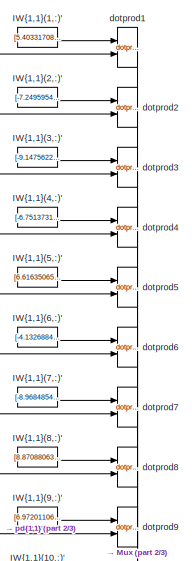
[diagram: controller1/optimized controller - pm/net_loc_rod_1/Layer 1/IW{1,1} - part 1/3, top center region]
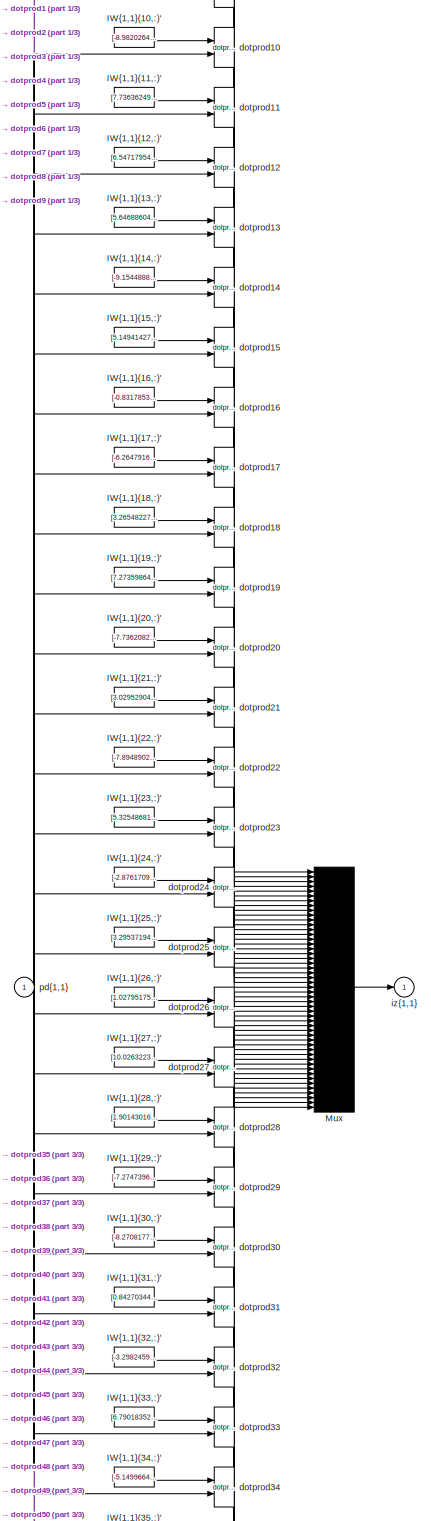
[diagram: controller1/optimized controller - pm/net_loc_rod_1/Layer 1/IW{1,1} - part 2/3, full width, middle band]
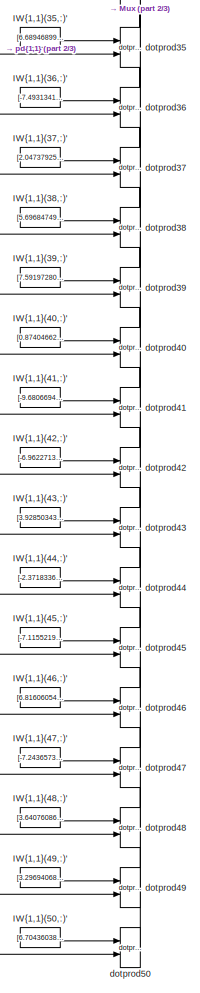
[diagram: controller1/optimized controller - pm/net_loc_rod_1/Layer 1/IW{1,1} - part 3/3, bottom center region]
BLOCK [SubSystem] controller1/optimized controller - pm/net_loc_rod_1/Layer 1/IW{1,1}
  FunctionWithSeparateData = off
  MaskDisplay = e = 0.06;c1 = [120 150 230]/255;c2 = ([120 150 230]+0)/383;c3 = ([120 150 230]+128)/383;patch([0 1 1 0],[0 0 1 1],c1);patch([0 1 1 1-e 1-e 0+e],[0 0 1 1-e 0+e 0+e],c2);patch([0 0 1 1-e 0+e 0+e],[0 1 1 1-e 1-e 0+e],c3);plot([0 1 1 0 0],[0 0 1 1 0]);disp('W');  <repeated x9 — deduplicated; at blocks: IW{1,1}, LW{2,1}, LW{3,2}>
  MaskHideContents = off
  MaskIconFrame = off
  MaskIconOpaque = on
  MaskIconRotate = none
  MaskIconUnits = autoscale
  MaskPortRotate = default
  MinAlgLoopOccurrences = off
  Opaque = off
  Ports = [1, 1]
  PropExecContextOutsideSubsystem = off
  RTWSystemCode = Auto
  RequestExecContextInheritance = off
  SID = 39229
BLOCK [Constant] controller1/optimized controller - pm/net_loc_rod_1/Layer 1/IW{1,1}/IW{1,1}(1,:)'
  MaskDisplay = e = 0.06;c1 = [120 150 230]/255;c2 = ([120 150 230]+0)/383;c3 = ([120 150 230]+128)/383;patch([0 1 1 0],[0 0 1 1],c1);patch([0 1 1 1-e 1-e 0+e],[0 0 1 1-e 0+e 0+e],c2);patch([0 0 1 1-e 0+e 0+e],[0 1 1 1-e 1-e 0+e],c3);plot([0 1 1 0 0],[0 0 1 1 0]);disp('Weights');  <repeated x150 — deduplicated; at blocks: IW{1,1}(1,:)', IW{1,1}(10,:)', IW{1,1}(11,:)', IW{1,1}(12,:)', IW{1,1}(13,:)', IW{1,1}(14,:)', IW{1,1}(15,:)', IW{1,1}(16,:)', IW{1,1}(17,:)', IW{1,1}(18,:)', IW{1,1}(19,:)', IW{1,1}(2,:)', IW{1,1}(20,:)', IW{1,1}(21,:)', IW{1,1}(22,:)', IW{1,1}(23,:)', +34 more>
  MaskIconFrame = off
  MaskIconOpaque = on
  MaskIconRotate = none
  MaskIconUnits = autoscale
  MaskPortRotate = default
  SID = 39231
  Value = [5.4033170834116122;2.3055512801609339;-7.7976903748875293]
BLOCK [Constant] controller1/optimized controller - pm/net_loc_rod_1/Layer 1/IW{1,1}/IW{1,1}(10,:)'
  MaskIconFrame = off
  MaskIconOpaque = on
  MaskIconRotate = none
  MaskIconUnits = autoscale
  MaskPortRotate = default
  SID = 39232
  Value = [-8.9820264316405574;-3.5967953827944017;2.21738432901514]
BLOCK [Constant] controller1/optimized controller - pm/net_loc_rod_1/Layer 1/IW{1,1}/IW{1,1}(11,:)'
  MaskIconFrame = off
  MaskIconOpaque = on
  MaskIconRotate = none
  MaskIconUnits = autoscale
  MaskPortRotate = default
  SID = 39233
  Value = [7.7363624901235033;4.5255957885227183;6.2346320371601776]
BLOCK [Constant] controller1/optimized controller - pm/net_loc_rod_1/Layer 1/IW{1,1}/IW{1,1}(12,:)'
  MaskIconFrame = off
  MaskIconOpaque = on
  MaskIconRotate = none
  MaskIconUnits = autoscale
  MaskPortRotate = default
  SID = 39234
  Value = [6.5471795407033202;7.1031355708108119;-2.9138563602699756]
BLOCK [Constant] controller1/optimized controller - pm/net_loc_rod_1/Layer 1/IW{1,1}/IW{1,1}(13,:)'
  MaskIconFrame = off
  MaskIconOpaque = on
  MaskIconRotate = none
  MaskIconUnits = autoscale
  MaskPortRotate = default
  SID = 39235
  Value = [5.6468860482176746;1.5017411635420308;-8.8131918148113186]
BLOCK [Constant] controller1/optimized controller - pm/net_loc_rod_1/Layer 1/IW{1,1}/IW{1,1}(14,:)'
  MaskIconFrame = off
  MaskIconOpaque = on
  MaskIconRotate = none
  MaskIconUnits = autoscale
  MaskPortRotate = default
  SID = 39236
  Value = [-9.1544888471321482;1.5125604425038388;6.2646247494076954]
BLOCK [Constant] controller1/optimized controller - pm/net_loc_rod_1/Layer 1/IW{1,1}/IW{1,1}(15,:)'
  MaskIconFrame = off
  MaskIconOpaque = on
  MaskIconRotate = none
  MaskIconUnits = autoscale
  MaskPortRotate = default
  SID = 39237
  Value = [5.1494142713491291;7.6194847917368103;-4.9373440272448512]
BLOCK [Constant] controller1/optimized controller - pm/net_loc_rod_1/Layer 1/IW{1,1}/IW{1,1}(16,:)'
  MaskIconFrame = off
  MaskIconOpaque = on
  MaskIconRotate = none
  MaskIconUnits = autoscale
  MaskPortRotate = default
  SID = 39238
  Value = [-0.83178530565523368;6.438364030629856;-8.2192151132672411]
BLOCK [Constant] controller1/optimized controller - pm/net_loc_rod_1/Layer 1/IW{1,1}/IW{1,1}(17,:)'
  MaskIconFrame = off
  MaskIconOpaque = on
  MaskIconRotate = none
  MaskIconUnits = autoscale
  MaskPortRotate = default
  SID = 39239
  Value = [-6.2647916688173559;7.6522424153858486;-4.5193894213235017]
BLOCK [Constant] controller1/optimized controller - pm/net_loc_rod_1/Layer 1/IW{1,1}/IW{1,1}(18,:)'
  MaskIconFrame = off
  MaskIconOpaque = on
  MaskIconRotate = none
  MaskIconUnits = autoscale
  MaskPortRotate = default
  SID = 39240
  Value = [3.2654822785709032;9.4643630680094741;2.0523067036883247]
BLOCK [Constant] controller1/optimized controller - pm/net_loc_rod_1/Layer 1/IW{1,1}/IW{1,1}(19,:)'
  MaskIconFrame = off
  MaskIconOpaque = on
  MaskIconRotate = none
  MaskIconUnits = autoscale
  MaskPortRotate = default
  SID = 39241
  Value = [7.2735986432518001;7.0237360794037764;-3.1613650649628844]
BLOCK [Constant] controller1/optimized controller - pm/net_loc_rod_1/Layer 1/IW{1,1}/IW{1,1}(2,:)'
  MaskIconFrame = off
  MaskIconOpaque = on
  MaskIconRotate = none
  MaskIconUnits = autoscale
  MaskPortRotate = default
  SID = 39242
  Value = [-7.249595405914139;-0.89554825591317699;6.8521913170534914]
BLOCK [Constant] controller1/optimized controller - pm/net_loc_rod_1/Layer 1/IW{1,1}/IW{1,1}(20,:)'
  MaskIconFrame = off
  MaskIconOpaque = on
  MaskIconRotate = none
  MaskIconUnits = autoscale
  MaskPortRotate = default
  SID = 39243
  Value = [-7.7362082433067405;-4.2358784615121996;5.8873109094583711]
BLOCK [Constant] controller1/optimized controller - pm/net_loc_rod_1/Layer 1/IW{1,1}/IW{1,1}(21,:)'
  MaskIconFrame = off
  MaskIconOpaque = on
  MaskIconRotate = none
  MaskIconUnits = autoscale
  MaskPortRotate = default
  SID = 39244
  Value = [3.0295290426850849;1.7824595905783636;9.9671801955614008]
BLOCK [Constant] controller1/optimized controller - pm/net_loc_rod_1/Layer 1/IW{1,1}/IW{1,1}(22,:)'
  MaskIconFrame = off
  MaskIconOpaque = on
  MaskIconRotate = none
  MaskIconUnits = autoscale
  MaskPortRotate = default
  SID = 39245
  Value = [-7.8948902006377368;6.6722013371154807;-0.090169594389764351]
BLOCK [Constant] controller1/optimized controller - pm/net_loc_rod_1/Layer 1/IW{1,1}/IW{1,1}(23,:)'
  MaskIconFrame = off
  MaskIconOpaque = on
  MaskIconRotate = none
  MaskIconUnits = autoscale
  MaskPortRotate = default
  SID = 39246
  Value = [5.3254868148101444;7.4075668315462897;5.298694836379374]
BLOCK [Constant] controller1/optimized controller - pm/net_loc_rod_1/Layer 1/IW{1,1}/IW{1,1}(24,:)'
  MaskIconFrame = off
  MaskIconOpaque = on
  MaskIconRotate = none
  MaskIconUnits = autoscale
  MaskPortRotate = default
  SID = 39247
  Value = [-2.8761709961866559;-9.6053379739459395;3.6904844051206074]
BLOCK [Constant] controller1/optimized controller - pm/net_loc_rod_1/Layer 1/IW{1,1}/IW{1,1}(25,:)'
  MaskIconFrame = off
  MaskIconOpaque = on
  MaskIconRotate = none
  MaskIconUnits = autoscale
  MaskPortRotate = default
  SID = 39248
  Value = [3.2953719428267534;-8.6018837968132562;-5.0380564500936948]
BLOCK [Constant] controller1/optimized controller - pm/net_loc_rod_1/Layer 1/IW{1,1}/IW{1,1}(26,:)'
  MaskIconFrame = off
  MaskIconOpaque = on
  MaskIconRotate = none
  MaskIconUnits = autoscale
  MaskPortRotate = default
  SID = 39249
  Value = [1.0279517589990443;10.207381865967857;2.3173303147608451]
BLOCK [Constant] controller1/optimized controller - pm/net_loc_rod_1/Layer 1/IW{1,1}/IW{1,1}(27,:)'
  MaskIconFrame = off
  MaskIconOpaque = on
  MaskIconRotate = none
  MaskIconUnits = autoscale
  MaskPortRotate = default
  SID = 39250
  Value = [10.026322308790979;1.9950529260366048;-1.8277291352589535]
BLOCK [Constant] controller1/optimized controller - pm/net_loc_rod_1/Layer 1/IW{1,1}/IW{1,1}(28,:)'
  MaskIconFrame = off
  MaskIconOpaque = on
  MaskIconRotate = none
  MaskIconUnits = autoscale
  MaskPortRotate = default
  SID = 39251
  Value = [1.9014301689451456;6.8987325602381704;7.7415739746728116]
BLOCK [Constant] controller1/optimized controller - pm/net_loc_rod_1/Layer 1/IW{1,1}/IW{1,1}(29,:)'
  MaskIconFrame = off
  MaskIconOpaque = on
  MaskIconRotate = none
  MaskIconUnits = autoscale
  MaskPortRotate = default
  SID = 39252
  Value = [-7.2747396016735566;2.2439535217971174;-7.2086298009359222]
BLOCK [Constant] controller1/optimized controller - pm/net_loc_rod_1/Layer 1/IW{1,1}/IW{1,1}(3,:)'
  MaskIconFrame = off
  MaskIconOpaque = on
  MaskIconRotate = none
  MaskIconUnits = autoscale
  MaskPortRotate = default
  SID = 39253
  Value = [-9.1475622665782623;2.757407898035948;4.6902071455372418]
BLOCK [Constant] controller1/optimized controller - pm/net_loc_rod_1/Layer 1/IW{1,1}/IW{1,1}(30,:)'
  MaskIconFrame = off
  MaskIconOpaque = on
  MaskIconRotate = none
  MaskIconUnits = autoscale
  MaskPortRotate = default
  SID = 39254
  Value = [-8.2708177029980146;-4.4848887512490201;4.2640384238401445]
BLOCK [Constant] controller1/optimized controller - pm/net_loc_rod_1/Layer 1/IW{1,1}/IW{1,1}(31,:)'
  MaskIconFrame = off
  MaskIconOpaque = on
  MaskIconRotate = none
  MaskIconUnits = autoscale
  MaskPortRotate = default
  SID = 39255
  Value = [0.8427034405863929;6.1583556543750682;-8.4028235608755679]
BLOCK [Constant] controller1/optimized controller - pm/net_loc_rod_1/Layer 1/IW{1,1}/IW{1,1}(32,:)'
  MaskIconFrame = off
  MaskIconOpaque = on
  MaskIconRotate = none
  MaskIconUnits = autoscale
  MaskPortRotate = default
  SID = 39256
  Value = [-3.2982459137254891;3.0661998590806756;9.6115693055648741]
BLOCK [Constant] controller1/optimized controller - pm/net_loc_rod_1/Layer 1/IW{1,1}/IW{1,1}(33,:)'
  MaskIconFrame = off
  MaskIconOpaque = on
  MaskIconRotate = none
  MaskIconUnits = autoscale
  MaskPortRotate = default
  SID = 39257
  Value = [6.7901835287618555;6.623227389969677;4.1202075504088276]
BLOCK [Constant] controller1/optimized controller - pm/net_loc_rod_1/Layer 1/IW{1,1}/IW{1,1}(34,:)'
  MaskIconFrame = off
  MaskIconOpaque = on
  MaskIconRotate = none
  MaskIconUnits = autoscale
  MaskPortRotate = default
  SID = 39258
  Value = [-5.1499664062954711;7.9228103976342199;-4.3739270319908101]
BLOCK [Constant] controller1/optimized controller - pm/net_loc_rod_1/Layer 1/IW{1,1}/IW{1,1}(35,:)'
  MaskIconFrame = off
  MaskIconOpaque = on
  MaskIconRotate = none
  MaskIconUnits = autoscale
  MaskPortRotate = default
  SID = 39259
  Value = [6.6894689905406324;5.3970192077061157;5.6434061516555776]
BLOCK [Constant] controller1/optimized controller - pm/net_loc_rod_1/Layer 1/IW{1,1}/IW{1,1}(36,:)'
  MaskIconFrame = off
  MaskIconOpaque = on
  MaskIconRotate = none
  MaskIconUnits = autoscale
  MaskPortRotate = default
  SID = 39260
  Value = [-7.4931341545160786;-5.7464929114674463;-4.2686492947711265]
BLOCK [Constant] controller1/optimized controller - pm/net_loc_rod_1/Layer 1/IW{1,1}/IW{1,1}(37,:)'
  MaskIconFrame = off
  MaskIconOpaque = on
  MaskIconRotate = none
  MaskIconUnits = autoscale
  MaskPortRotate = default
  SID = 39261
  Value = [2.0473792502931252;-9.194800638793641;-3.6215787402256594]
BLOCK [Constant] controller1/optimized controller - pm/net_loc_rod_1/Layer 1/IW{1,1}/IW{1,1}(38,:)'
  MaskIconFrame = off
  MaskIconOpaque = on
  MaskIconRotate = none
  MaskIconUnits = autoscale
  MaskPortRotate = default
  SID = 39262
  Value = [5.69684749410919;4.0784587696194263;7.3400781999491036]
BLOCK [Constant] controller1/optimized controller - pm/net_loc_rod_1/Layer 1/IW{1,1}/IW{1,1}(39,:)'
  MaskIconFrame = off
  MaskIconOpaque = on
  MaskIconRotate = none
  MaskIconUnits = autoscale
  MaskPortRotate = default
  SID = 39263
  Value = [7.5919728070772496;-7.5127753655722973;-0.47448003779297804]
BLOCK [Constant] controller1/optimized controller - pm/net_loc_rod_1/Layer 1/IW{1,1}/IW{1,1}(4,:)'
  MaskIconFrame = off
  MaskIconOpaque = on
  MaskIconRotate = none
  MaskIconUnits = autoscale
  MaskPortRotate = default
  SID = 39264
  Value = [-6.7513731312558303;2.4818058954660684;7.9122760409273667]
BLOCK [Constant] controller1/optimized controller - pm/net_loc_rod_1/Layer 1/IW{1,1}/IW{1,1}(40,:)'
  MaskIconFrame = off
  MaskIconOpaque = on
  MaskIconRotate = none
  MaskIconUnits = autoscale
  MaskPortRotate = default
  SID = 39265
  Value = [0.87404662843911318;-7.1928389819628711;8.2639232188143215]
BLOCK [Constant] controller1/optimized controller - pm/net_loc_rod_1/Layer 1/IW{1,1}/IW{1,1}(41,:)'
  MaskIconFrame = off
  MaskIconOpaque = on
  MaskIconRotate = none
  MaskIconUnits = autoscale
  MaskPortRotate = default
  SID = 39266
  Value = [-9.6806694670985021;1.9196502382823961;3.0040077124144631]
BLOCK [Constant] controller1/optimized controller - pm/net_loc_rod_1/Layer 1/IW{1,1}/IW{1,1}(42,:)'
  MaskIconFrame = off
  MaskIconOpaque = on
  MaskIconRotate = none
  MaskIconUnits = autoscale
  MaskPortRotate = default
  SID = 39267
  Value = [-6.9622713144203043;0.26979895628152828;-7.6207681524994424]
BLOCK [Constant] controller1/optimized controller - pm/net_loc_rod_1/Layer 1/IW{1,1}/IW{1,1}(43,:)'
  MaskIconFrame = off
  MaskIconOpaque = on
  MaskIconRotate = none
  MaskIconUnits = autoscale
  MaskPortRotate = default
  SID = 39268
  Value = [3.9285034344501475;8.4740402305306315;4.3557259366028696]
BLOCK [Constant] controller1/optimized controller - pm/net_loc_rod_1/Layer 1/IW{1,1}/IW{1,1}(44,:)'
  MaskIconFrame = off
  MaskIconOpaque = on
  MaskIconRotate = none
  MaskIconUnits = autoscale
  MaskPortRotate = default
  SID = 39269
  Value = [-2.371833632974909;6.7659021499135186;-7.6511829140361218]
BLOCK [Constant] controller1/optimized controller - pm/net_loc_rod_1/Layer 1/IW{1,1}/IW{1,1}(45,:)'
  MaskIconFrame = off
  MaskIconOpaque = on
  MaskIconRotate = none
  MaskIconUnits = autoscale
  MaskPortRotate = default
  SID = 39270
  Value = [-7.1155219674596104;0.72945772897984673;-7.4289710288718585]
BLOCK [Constant] controller1/optimized controller - pm/net_loc_rod_1/Layer 1/IW{1,1}/IW{1,1}(46,:)'
  MaskIconFrame = off
  MaskIconOpaque = on
  MaskIconRotate = none
  MaskIconUnits = autoscale
  MaskPortRotate = default
  SID = 39271
  Value = [6.8160605442608517;-2.7039558424310028;7.2548578257731053]
BLOCK [Constant] controller1/optimized controller - pm/net_loc_rod_1/Layer 1/IW{1,1}/IW{1,1}(47,:)'
  MaskIconFrame = off
  MaskIconOpaque = on
  MaskIconRotate = none
  MaskIconUnits = autoscale
  MaskPortRotate = default
  SID = 39272
  Value = [-7.2436573260644819;6.7108089796134713;-2.9023796379859577]
BLOCK [Constant] controller1/optimized controller - pm/net_loc_rod_1/Layer 1/IW{1,1}/IW{1,1}(48,:)'
  MaskIconFrame = off
  MaskIconOpaque = on
  MaskIconRotate = none
  MaskIconUnits = autoscale
  MaskPortRotate = default
  SID = 39273
  Value = [3.6407608600891321;-6.7931951730327365;-7.5902672732147138]
BLOCK [Constant] controller1/optimized controller - pm/net_loc_rod_1/Layer 1/IW{1,1}/IW{1,1}(49,:)'
  MaskIconFrame = off
  MaskIconOpaque = on
  MaskIconRotate = none
  MaskIconUnits = autoscale
  MaskPortRotate = default
  SID = 39274
  Value = [3.2969406884319841;-1.6261657425204235;9.6404026257655637]
BLOCK [Constant] controller1/optimized controller - pm/net_loc_rod_1/Layer 1/IW{1,1}/IW{1,1}(5,:)'
  MaskIconFrame = off
  MaskIconOpaque = on
  MaskIconRotate = none
  MaskIconUnits = autoscale
  MaskPortRotate = default
  SID = 39275
  Value = [6.6163506502628096;-6.4374560464081592;4.8858769046989234]
BLOCK [Constant] controller1/optimized controller - pm/net_loc_rod_1/Layer 1/IW{1,1}/IW{1,1}(50,:)'
  MaskIconFrame = off
  MaskIconOpaque = on
  MaskIconRotate = none
  MaskIconUnits = autoscale
  MaskPortRotate = default
  SID = 39276
  Value = [6.7043603873134563;2.5088214877648429;-7.3173997656228575]
BLOCK [Constant] controller1/optimized controller - pm/net_loc_rod_1/Layer 1/IW{1,1}/IW{1,1}(6,:)'
  MaskIconFrame = off
  MaskIconOpaque = on
  MaskIconRotate = none
  MaskIconUnits = autoscale
  MaskPortRotate = default
  SID = 39277
  Value = [-4.1326884243267132;-1.6367770574329259;-9.8893667141283625]
BLOCK [Constant] controller1/optimized controller - pm/net_loc_rod_1/Layer 1/IW{1,1}/IW{1,1}(7,:)'
  MaskIconFrame = off
  MaskIconOpaque = on
  MaskIconRotate = none
  MaskIconUnits = autoscale
  MaskPortRotate = default
  SID = 39278
  Value = [-8.9684854534323666;-4.7463847602504954;-1.0528850782309052]
BLOCK [Constant] controller1/optimized controller - pm/net_loc_rod_1/Layer 1/IW{1,1}/IW{1,1}(8,:)'
  MaskIconFrame = off
  MaskIconOpaque = on
  MaskIconRotate = none
  MaskIconUnits = autoscale
  MaskPortRotate = default
  SID = 39279
  Value = [8.8708806391259394;-0.79936482189376901;-6.9519607803387515]
BLOCK [Constant] controller1/optimized controller - pm/net_loc_rod_1/Layer 1/IW{1,1}/IW{1,1}(9,:)'
  MaskIconFrame = off
  MaskIconOpaque = on
  MaskIconRotate = none
  MaskIconUnits = autoscale
  MaskPortRotate = default
  SID = 39280
  Value = [6.9720110674760276;2.7094281014825716;8.1903495248436151]
BLOCK [Mux] controller1/optimized controller - pm/net_loc_rod_1/Layer 1/IW{1,1}/Mux
  Inputs = 50
  MaskDisplay = e = 0.06;c1 = [120 150 230]/255;c2 = ([120 150 230]+0)/383;c3 = ([120 150 230]+128)/383;patch([0 1 1 0],[0 0 1 1],c1);patch([0 1 1 1-e 1-e 0+e],[0 0 1 1-e 0+e 0+e],c2);patch([0 0 1 1-e 0+e 0+e],[0 1 1 1-e 1-e 0+e],c3);plot([0 1 1 0 0],[0 0 1 1 0]);disp('Mux');  <repeated x9 — deduplicated; at blocks: Mux>
  MaskIconFrame = off
  MaskIconOpaque = on
  MaskIconRotate = none
  MaskIconUnits = autoscale
  MaskPortRotate = default
  Ports = [50, 1]
  SID = 39281
BLOCK [Reference] controller1/optimized controller - pm/net_loc_rod_1/Layer 1/IW{1,1}/dotprod1  REF=neural/Weight Functions/dotprod
  FunctionWithSeparateData = off
  GeneratePreprocessorConditionals = off
  Ports = [2, 1]
  RTWMemSecDataConstants = Inherit from model
  RTWMemSecDataInternal = Inherit from model
  RTWMemSecDataParameters = Inherit from model
  RTWMemSecFuncExecute = Inherit from model
  RTWMemSecFuncInitTerm = Inherit from model
  SID = 39282
  ShowPortLabels = FromPortIcon
  SourceBlock = neural/Weight Functions/dotprod
  SourceType = DOTPROD
  SystemSampleTime = -1
BLOCK [Reference] controller1/optimized controller - pm/net_loc_rod_1/Layer 1/IW{1,1}/dotprod10  REF=neural/Weight Functions/dotprod
  FunctionWithSeparateData = off
  GeneratePreprocessorConditionals = off
  Ports = [2, 1]
  RTWMemSecDataConstants = Inherit from model
  RTWMemSecDataInternal = Inherit from model
  RTWMemSecDataParameters = Inherit from model
  RTWMemSecFuncExecute = Inherit from model
  RTWMemSecFuncInitTerm = Inherit from model
  SID = 39283
  ShowPortLabels = FromPortIcon
  SourceBlock = neural/Weight Functions/dotprod
  SourceType = DOTPROD
  SystemSampleTime = -1
BLOCK [Reference] controller1/optimized controller - pm/net_loc_rod_1/Layer 1/IW{1,1}/dotprod11  REF=neural/Weight Functions/dotprod
  FunctionWithSeparateData = off
  GeneratePreprocessorConditionals = off
  Ports = [2, 1]
  RTWMemSecDataConstants = Inherit from model
  RTWMemSecDataInternal = Inherit from model
  RTWMemSecDataParameters = Inherit from model
  RTWMemSecFuncExecute = Inherit from model
  RTWMemSecFuncInitTerm = Inherit from model
  SID = 39284
  ShowPortLabels = FromPortIcon
  SourceBlock = neural/Weight Functions/dotprod
  SourceType = DOTPROD
  SystemSampleTime = -1
BLOCK [Reference] controller1/optimized controller - pm/net_loc_rod_1/Layer 1/IW{1,1}/dotprod12  REF=neural/Weight Functions/dotprod
  FunctionWithSeparateData = off
  GeneratePreprocessorConditionals = off
  Ports = [2, 1]
  RTWMemSecDataConstants = Inherit from model
  RTWMemSecDataInternal = Inherit from model
  RTWMemSecDataParameters = Inherit from model
  RTWMemSecFuncExecute = Inherit from model
  RTWMemSecFuncInitTerm = Inherit from model
  SID = 39285
  ShowPortLabels = FromPortIcon
  SourceBlock = neural/Weight Functions/dotprod
  SourceType = DOTPROD
  SystemSampleTime = -1
BLOCK [Reference] controller1/optimized controller - pm/net_loc_rod_1/Layer 1/IW{1,1}/dotprod13  REF=neural/Weight Functions/dotprod
  FunctionWithSeparateData = off
  GeneratePreprocessorConditionals = off
  Ports = [2, 1]
  RTWMemSecDataConstants = Inherit from model
  RTWMemSecDataInternal = Inherit from model
  RTWMemSecDataParameters = Inherit from model
  RTWMemSecFuncExecute = Inherit from model
  RTWMemSecFuncInitTerm = Inherit from model
  SID = 39286
  ShowPortLabels = FromPortIcon
  SourceBlock = neural/Weight Functions/dotprod
  SourceType = DOTPROD
  SystemSampleTime = -1
BLOCK [Reference] controller1/optimized controller - pm/net_loc_rod_1/Layer 1/IW{1,1}/dotprod14  REF=neural/Weight Functions/dotprod
  FunctionWithSeparateData = off
  GeneratePreprocessorConditionals = off
  Ports = [2, 1]
  RTWMemSecDataConstants = Inherit from model
  RTWMemSecDataInternal = Inherit from model
  RTWMemSecDataParameters = Inherit from model
  RTWMemSecFuncExecute = Inherit from model
  RTWMemSecFuncInitTerm = Inherit from model
  SID = 39287
  ShowPortLabels = FromPortIcon
  SourceBlock = neural/Weight Functions/dotprod
  SourceType = DOTPROD
  SystemSampleTime = -1
BLOCK [Reference] controller1/optimized controller - pm/net_loc_rod_1/Layer 1/IW{1,1}/dotprod15  REF=neural/Weight Functions/dotprod
  FunctionWithSeparateData = off
  GeneratePreprocessorConditionals = off
  Ports = [2, 1]
  RTWMemSecDataConstants = Inherit from model
  RTWMemSecDataInternal = Inherit from model
  RTWMemSecDataParameters = Inherit from model
  RTWMemSecFuncExecute = Inherit from model
  RTWMemSecFuncInitTerm = Inherit from model
  SID = 39288
  ShowPortLabels = FromPortIcon
  SourceBlock = neural/Weight Functions/dotprod
  SourceType = DOTPROD
  SystemSampleTime = -1
BLOCK [Reference] controller1/optimized controller - pm/net_loc_rod_1/Layer 1/IW{1,1}/dotprod16  REF=neural/Weight Functions/dotprod
  FunctionWithSeparateData = off
  GeneratePreprocessorConditionals = off
  Ports = [2, 1]
  RTWMemSecDataConstants = Inherit from model
  RTWMemSecDataInternal = Inherit from model
  RTWMemSecDataParameters = Inherit from model
  RTWMemSecFuncExecute = Inherit from model
  RTWMemSecFuncInitTerm = Inherit from model
  SID = 39289
  ShowPortLabels = FromPortIcon
  SourceBlock = neural/Weight Functions/dotprod
  SourceType = DOTPROD
  SystemSampleTime = -1
BLOCK [Reference] controller1/optimized controller - pm/net_loc_rod_1/Layer 1/IW{1,1}/dotprod17  REF=neural/Weight Functions/dotprod
  FunctionWithSeparateData = off
  GeneratePreprocessorConditionals = off
  Ports = [2, 1]
  RTWMemSecDataConstants = Inherit from model
  RTWMemSecDataInternal = Inherit from model
  RTWMemSecDataParameters = Inherit from model
  RTWMemSecFuncExecute = Inherit from model
  RTWMemSecFuncInitTerm = Inherit from model
  SID = 39290
  ShowPortLabels = FromPortIcon
  SourceBlock = neural/Weight Functions/dotprod
  SourceType = DOTPROD
  SystemSampleTime = -1
BLOCK [Reference] controller1/optimized controller - pm/net_loc_rod_1/Layer 1/IW{1,1}/dotprod18  REF=neural/Weight Functions/dotprod
  FunctionWithSeparateData = off
  GeneratePreprocessorConditionals = off
  Ports = [2, 1]
  RTWMemSecDataConstants = Inherit from model
  RTWMemSecDataInternal = Inherit from model
  RTWMemSecDataParameters = Inherit from model
  RTWMemSecFuncExecute = Inherit from model
  RTWMemSecFuncInitTerm = Inherit from model
  SID = 39291
  ShowPortLabels = FromPortIcon
  SourceBlock = neural/Weight Functions/dotprod
  SourceType = DOTPROD
  SystemSampleTime = -1
BLOCK [Reference] controller1/optimized controller - pm/net_loc_rod_1/Layer 1/IW{1,1}/dotprod19  REF=neural/Weight Functions/dotprod
  FunctionWithSeparateData = off
  GeneratePreprocessorConditionals = off
  Ports = [2, 1]
  RTWMemSecDataConstants = Inherit from model
  RTWMemSecDataInternal = Inherit from model
  RTWMemSecDataParameters = Inherit from model
  RTWMemSecFuncExecute = Inherit from model
  RTWMemSecFuncInitTerm = Inherit from model
  SID = 39292
  ShowPortLabels = FromPortIcon
  SourceBlock = neural/Weight Functions/dotprod
  SourceType = DOTPROD
  SystemSampleTime = -1
BLOCK [Reference] controller1/optimized controller - pm/net_loc_rod_1/Layer 1/IW{1,1}/dotprod2  REF=neural/Weight Functions/dotprod
  FunctionWithSeparateData = off
  GeneratePreprocessorConditionals = off
  Ports = [2, 1]
  RTWMemSecDataConstants = Inherit from model
  RTWMemSecDataInternal = Inherit from model
  RTWMemSecDataParameters = Inherit from model
  RTWMemSecFuncExecute = Inherit from model
  RTWMemSecFuncInitTerm = Inherit from model
  SID = 39293
  ShowPortLabels = FromPortIcon
  SourceBlock = neural/Weight Functions/dotprod
  SourceType = DOTPROD
  SystemSampleTime = -1
BLOCK [Reference] controller1/optimized controller - pm/net_loc_rod_1/Layer 1/IW{1,1}/dotprod20  REF=neural/Weight Functions/dotprod
  FunctionWithSeparateData = off
  GeneratePreprocessorConditionals = off
  Ports = [2, 1]
  RTWMemSecDataConstants = Inherit from model
  RTWMemSecDataInternal = Inherit from model
  RTWMemSecDataParameters = Inherit from model
  RTWMemSecFuncExecute = Inherit from model
  RTWMemSecFuncInitTerm = Inherit from model
  SID = 39294
  ShowPortLabels = FromPortIcon
  SourceBlock = neural/Weight Functions/dotprod
  SourceType = DOTPROD
  SystemSampleTime = -1
BLOCK [Reference] controller1/optimized controller - pm/net_loc_rod_1/Layer 1/IW{1,1}/dotprod21  REF=neural/Weight Functions/dotprod
  FunctionWithSeparateData = off
  GeneratePreprocessorConditionals = off
  Ports = [2, 1]
  RTWMemSecDataConstants = Inherit from model
  RTWMemSecDataInternal = Inherit from model
  RTWMemSecDataParameters = Inherit from model
  RTWMemSecFuncExecute = Inherit from model
  RTWMemSecFuncInitTerm = Inherit from model
  SID = 39295
  ShowPortLabels = FromPortIcon
  SourceBlock = neural/Weight Functions/dotprod
  SourceType = DOTPROD
  SystemSampleTime = -1
BLOCK [Reference] controller1/optimized controller - pm/net_loc_rod_1/Layer 1/IW{1,1}/dotprod22  REF=neural/Weight Functions/dotprod
  FunctionWithSeparateData = off
  GeneratePreprocessorConditionals = off
  Ports = [2, 1]
  RTWMemSecDataConstants = Inherit from model
  RTWMemSecDataInternal = Inherit from model
  RTWMemSecDataParameters = Inherit from model
  RTWMemSecFuncExecute = Inherit from model
  RTWMemSecFuncInitTerm = Inherit from model
  SID = 39296
  ShowPortLabels = FromPortIcon
  SourceBlock = neural/Weight Functions/dotprod
  SourceType = DOTPROD
  SystemSampleTime = -1
BLOCK [Reference] controller1/optimized controller - pm/net_loc_rod_1/Layer 1/IW{1,1}/dotprod23  REF=neural/Weight Functions/dotprod
  FunctionWithSeparateData = off
  GeneratePreprocessorConditionals = off
  Ports = [2, 1]
  RTWMemSecDataConstants = Inherit from model
  RTWMemSecDataInternal = Inherit from model
  RTWMemSecDataParameters = Inherit from model
  RTWMemSecFuncExecute = Inherit from model
  RTWMemSecFuncInitTerm = Inherit from model
  SID = 39297
  ShowPortLabels = FromPortIcon
  SourceBlock = neural/Weight Functions/dotprod
  SourceType = DOTPROD
  SystemSampleTime = -1
BLOCK [Reference] controller1/optimized controller - pm/net_loc_rod_1/Layer 1/IW{1,1}/dotprod24  REF=neural/Weight Functions/dotprod
  FunctionWithSeparateData = off
  GeneratePreprocessorConditionals = off
  Ports = [2, 1]
  RTWMemSecDataConstants = Inherit from model
  RTWMemSecDataInternal = Inherit from model
  RTWMemSecDataParameters = Inherit from model
  RTWMemSecFuncExecute = Inherit from model
  RTWMemSecFuncInitTerm = Inherit from model
  SID = 39298
  ShowPortLabels = FromPortIcon
  SourceBlock = neural/Weight Functions/dotprod
  SourceType = DOTPROD
  SystemSampleTime = -1
BLOCK [Reference] controller1/optimized controller - pm/net_loc_rod_1/Layer 1/IW{1,1}/dotprod25  REF=neural/Weight Functions/dotprod
  FunctionWithSeparateData = off
  GeneratePreprocessorConditionals = off
  Ports = [2, 1]
  RTWMemSecDataConstants = Inherit from model
  RTWMemSecDataInternal = Inherit from model
  RTWMemSecDataParameters = Inherit from model
  RTWMemSecFuncExecute = Inherit from model
  RTWMemSecFuncInitTerm = Inherit from model
  SID = 39299
  ShowPortLabels = FromPortIcon
  SourceBlock = neural/Weight Functions/dotprod
  SourceType = DOTPROD
  SystemSampleTime = -1
BLOCK [Reference] controller1/optimized controller - pm/net_loc_rod_1/Layer 1/IW{1,1}/dotprod26  REF=neural/Weight Functions/dotprod
  FunctionWithSeparateData = off
  GeneratePreprocessorConditionals = off
  Ports = [2, 1]
  RTWMemSecDataConstants = Inherit from model
  RTWMemSecDataInternal = Inherit from model
  RTWMemSecDataParameters = Inherit from model
  RTWMemSecFuncExecute = Inherit from model
  RTWMemSecFuncInitTerm = Inherit from model
  SID = 39300
  ShowPortLabels = FromPortIcon
  SourceBlock = neural/Weight Functions/dotprod
  SourceType = DOTPROD
  SystemSampleTime = -1
BLOCK [Reference] controller1/optimized controller - pm/net_loc_rod_1/Layer 1/IW{1,1}/dotprod27  REF=neural/Weight Functions/dotprod
  FunctionWithSeparateData = off
  GeneratePreprocessorConditionals = off
  Ports = [2, 1]
  RTWMemSecDataConstants = Inherit from model
  RTWMemSecDataInternal = Inherit from model
  RTWMemSecDataParameters = Inherit from model
  RTWMemSecFuncExecute = Inherit from model
  RTWMemSecFuncInitTerm = Inherit from model
  SID = 39301
  ShowPortLabels = FromPortIcon
  SourceBlock = neural/Weight Functions/dotprod
  SourceType = DOTPROD
  SystemSampleTime = -1
BLOCK [Reference] controller1/optimized controller - pm/net_loc_rod_1/Layer 1/IW{1,1}/dotprod28  REF=neural/Weight Functions/dotprod
  FunctionWithSeparateData = off
  GeneratePreprocessorConditionals = off
  Ports = [2, 1]
  RTWMemSecDataConstants = Inherit from model
  RTWMemSecDataInternal = Inherit from model
  RTWMemSecDataParameters = Inherit from model
  RTWMemSecFuncExecute = Inherit from model
  RTWMemSecFuncInitTerm = Inherit from model
  SID = 39302
  ShowPortLabels = FromPortIcon
  SourceBlock = neural/Weight Functions/dotprod
  SourceType = DOTPROD
  SystemSampleTime = -1
BLOCK [Reference] controller1/optimized controller - pm/net_loc_rod_1/Layer 1/IW{1,1}/dotprod29  REF=neural/Weight Functions/dotprod
  FunctionWithSeparateData = off
  GeneratePreprocessorConditionals = off
  Ports = [2, 1]
  RTWMemSecDataConstants = Inherit from model
  RTWMemSecDataInternal = Inherit from model
  RTWMemSecDataParameters = Inherit from model
  RTWMemSecFuncExecute = Inherit from model
  RTWMemSecFuncInitTerm = Inherit from model
  SID = 39303
  ShowPortLabels = FromPortIcon
  SourceBlock = neural/Weight Functions/dotprod
  SourceType = DOTPROD
  SystemSampleTime = -1
BLOCK [Reference] controller1/optimized controller - pm/net_loc_rod_1/Layer 1/IW{1,1}/dotprod3  REF=neural/Weight Functions/dotprod
  FunctionWithSeparateData = off
  GeneratePreprocessorConditionals = off
  Ports = [2, 1]
  RTWMemSecDataConstants = Inherit from model
  RTWMemSecDataInternal = Inherit from model
  RTWMemSecDataParameters = Inherit from model
  RTWMemSecFuncExecute = Inherit from model
  RTWMemSecFuncInitTerm = Inherit from model
  SID = 39304
  ShowPortLabels = FromPortIcon
  SourceBlock = neural/Weight Functions/dotprod
  SourceType = DOTPROD
  SystemSampleTime = -1
BLOCK [Reference] controller1/optimized controller - pm/net_loc_rod_1/Layer 1/IW{1,1}/dotprod30  REF=neural/Weight Functions/dotprod
  FunctionWithSeparateData = off
  GeneratePreprocessorConditionals = off
  Ports = [2, 1]
  RTWMemSecDataConstants = Inherit from model
  RTWMemSecDataInternal = Inherit from model
  RTWMemSecDataParameters = Inherit from model
  RTWMemSecFuncExecute = Inherit from model
  RTWMemSecFuncInitTerm = Inherit from model
  SID = 39305
  ShowPortLabels = FromPortIcon
  SourceBlock = neural/Weight Functions/dotprod
  SourceType = DOTPROD
  SystemSampleTime = -1
BLOCK [Reference] controller1/optimized controller - pm/net_loc_rod_1/Layer 1/IW{1,1}/dotprod31  REF=neural/Weight Functions/dotprod
  FunctionWithSeparateData = off
  GeneratePreprocessorConditionals = off
  Ports = [2, 1]
  RTWMemSecDataConstants = Inherit from model
  RTWMemSecDataInternal = Inherit from model
  RTWMemSecDataParameters = Inherit from model
  RTWMemSecFuncExecute = Inherit from model
  RTWMemSecFuncInitTerm = Inherit from model
  SID = 39306
  ShowPortLabels = FromPortIcon
  SourceBlock = neural/Weight Functions/dotprod
  SourceType = DOTPROD
  SystemSampleTime = -1
BLOCK [Reference] controller1/optimized controller - pm/net_loc_rod_1/Layer 1/IW{1,1}/dotprod32  REF=neural/Weight Functions/dotprod
  FunctionWithSeparateData = off
  GeneratePreprocessorConditionals = off
  Ports = [2, 1]
  RTWMemSecDataConstants = Inherit from model
  RTWMemSecDataInternal = Inherit from model
  RTWMemSecDataParameters = Inherit from model
  RTWMemSecFuncExecute = Inherit from model
  RTWMemSecFuncInitTerm = Inherit from model
  SID = 39307
  ShowPortLabels = FromPortIcon
  SourceBlock = neural/Weight Functions/dotprod
  SourceType = DOTPROD
  SystemSampleTime = -1
BLOCK [Reference] controller1/optimized controller - pm/net_loc_rod_1/Layer 1/IW{1,1}/dotprod33  REF=neural/Weight Functions/dotprod
  FunctionWithSeparateData = off
  GeneratePreprocessorConditionals = off
  Ports = [2, 1]
  RTWMemSecDataConstants = Inherit from model
  RTWMemSecDataInternal = Inherit from model
  RTWMemSecDataParameters = Inherit from model
  RTWMemSecFuncExecute = Inherit from model
  RTWMemSecFuncInitTerm = Inherit from model
  SID = 39308
  ShowPortLabels = FromPortIcon
  SourceBlock = neural/Weight Functions/dotprod
  SourceType = DOTPROD
  SystemSampleTime = -1
BLOCK [Reference] controller1/optimized controller - pm/net_loc_rod_1/Layer 1/IW{1,1}/dotprod34  REF=neural/Weight Functions/dotprod
  FunctionWithSeparateData = off
  GeneratePreprocessorConditionals = off
  Ports = [2, 1]
  RTWMemSecDataConstants = Inherit from model
  RTWMemSecDataInternal = Inherit from model
  RTWMemSecDataParameters = Inherit from model
  RTWMemSecFuncExecute = Inherit from model
  RTWMemSecFuncInitTerm = Inherit from model
  SID = 39309
  ShowPortLabels = FromPortIcon
  SourceBlock = neural/Weight Functions/dotprod
  SourceType = DOTPROD
  SystemSampleTime = -1
BLOCK [Reference] controller1/optimized controller - pm/net_loc_rod_1/Layer 1/IW{1,1}/dotprod35  REF=neural/Weight Functions/dotprod
  FunctionWithSeparateData = off
  GeneratePreprocessorConditionals = off
  Ports = [2, 1]
  RTWMemSecDataConstants = Inherit from model
  RTWMemSecDataInternal = Inherit from model
  RTWMemSecDataParameters = Inherit from model
  RTWMemSecFuncExecute = Inherit from model
  RTWMemSecFuncInitTerm = Inherit from model
  SID = 39310
  ShowPortLabels = FromPortIcon
  SourceBlock = neural/Weight Functions/dotprod
  SourceType = DOTPROD
  SystemSampleTime = -1
BLOCK [Reference] controller1/optimized controller - pm/net_loc_rod_1/Layer 1/IW{1,1}/dotprod36  REF=neural/Weight Functions/dotprod
  FunctionWithSeparateData = off
  GeneratePreprocessorConditionals = off
  Ports = [2, 1]
  RTWMemSecDataConstants = Inherit from model
  RTWMemSecDataInternal = Inherit from model
  RTWMemSecDataParameters = Inherit from model
  RTWMemSecFuncExecute = Inherit from model
  RTWMemSecFuncInitTerm = Inherit from model
  SID = 39311
  ShowPortLabels = FromPortIcon
  SourceBlock = neural/Weight Functions/dotprod
  SourceType = DOTPROD
  SystemSampleTime = -1
BLOCK [Reference] controller1/optimized controller - pm/net_loc_rod_1/Layer 1/IW{1,1}/dotprod37  REF=neural/Weight Functions/dotprod
  FunctionWithSeparateData = off
  GeneratePreprocessorConditionals = off
  Ports = [2, 1]
  RTWMemSecDataConstants = Inherit from model
  RTWMemSecDataInternal = Inherit from model
  RTWMemSecDataParameters = Inherit from model
  RTWMemSecFuncExecute = Inherit from model
  RTWMemSecFuncInitTerm = Inherit from model
  SID = 39312
  ShowPortLabels = FromPortIcon
  SourceBlock = neural/Weight Functions/dotprod
  SourceType = DOTPROD
  SystemSampleTime = -1
BLOCK [Reference] controller1/optimized controller - pm/net_loc_rod_1/Layer 1/IW{1,1}/dotprod38  REF=neural/Weight Functions/dotprod
  FunctionWithSeparateData = off
  GeneratePreprocessorConditionals = off
  Ports = [2, 1]
  RTWMemSecDataConstants = Inherit from model
  RTWMemSecDataInternal = Inherit from model
  RTWMemSecDataParameters = Inherit from model
  RTWMemSecFuncExecute = Inherit from model
  RTWMemSecFuncInitTerm = Inherit from model
  SID = 39313
  ShowPortLabels = FromPortIcon
  SourceBlock = neural/Weight Functions/dotprod
  SourceType = DOTPROD
  SystemSampleTime = -1
BLOCK [Reference] controller1/optimized controller - pm/net_loc_rod_1/Layer 1/IW{1,1}/dotprod39  REF=neural/Weight Functions/dotprod
  FunctionWithSeparateData = off
  GeneratePreprocessorConditionals = off
  Ports = [2, 1]
  RTWMemSecDataConstants = Inherit from model
  RTWMemSecDataInternal = Inherit from model
  RTWMemSecDataParameters = Inherit from model
  RTWMemSecFuncExecute = Inherit from model
  RTWMemSecFuncInitTerm = Inherit from model
  SID = 39314
  ShowPortLabels = FromPortIcon
  SourceBlock = neural/Weight Functions/dotprod
  SourceType = DOTPROD
  SystemSampleTime = -1
BLOCK [Reference] controller1/optimized controller - pm/net_loc_rod_1/Layer 1/IW{1,1}/dotprod4  REF=neural/Weight Functions/dotprod
  FunctionWithSeparateData = off
  GeneratePreprocessorConditionals = off
  Ports = [2, 1]
  RTWMemSecDataConstants = Inherit from model
  RTWMemSecDataInternal = Inherit from model
  RTWMemSecDataParameters = Inherit from model
  RTWMemSecFuncExecute = Inherit from model
  RTWMemSecFuncInitTerm = Inherit from model
  SID = 39315
  ShowPortLabels = FromPortIcon
  SourceBlock = neural/Weight Functions/dotprod
  SourceType = DOTPROD
  SystemSampleTime = -1
BLOCK [Reference] controller1/optimized controller - pm/net_loc_rod_1/Layer 1/IW{1,1}/dotprod40  REF=neural/Weight Functions/dotprod
  FunctionWithSeparateData = off
  GeneratePreprocessorConditionals = off
  Ports = [2, 1]
  RTWMemSecDataConstants = Inherit from model
  RTWMemSecDataInternal = Inherit from model
  RTWMemSecDataParameters = Inherit from model
  RTWMemSecFuncExecute = Inherit from model
  RTWMemSecFuncInitTerm = Inherit from model
  SID = 39316
  ShowPortLabels = FromPortIcon
  SourceBlock = neural/Weight Functions/dotprod
  SourceType = DOTPROD
  SystemSampleTime = -1
BLOCK [Reference] controller1/optimized controller - pm/net_loc_rod_1/Layer 1/IW{1,1}/dotprod41  REF=neural/Weight Functions/dotprod
  FunctionWithSeparateData = off
  GeneratePreprocessorConditionals = off
  Ports = [2, 1]
  RTWMemSecDataConstants = Inherit from model
  RTWMemSecDataInternal = Inherit from model
  RTWMemSecDataParameters = Inherit from model
  RTWMemSecFuncExecute = Inherit from model
  RTWMemSecFuncInitTerm = Inherit from model
  SID = 39317
  ShowPortLabels = FromPortIcon
  SourceBlock = neural/Weight Functions/dotprod
  SourceType = DOTPROD
  SystemSampleTime = -1
BLOCK [Reference] controller1/optimized controller - pm/net_loc_rod_1/Layer 1/IW{1,1}/dotprod42  REF=neural/Weight Functions/dotprod
  FunctionWithSeparateData = off
  GeneratePreprocessorConditionals = off
  Ports = [2, 1]
  RTWMemSecDataConstants = Inherit from model
  RTWMemSecDataInternal = Inherit from model
  RTWMemSecDataParameters = Inherit from model
  RTWMemSecFuncExecute = Inherit from model
  RTWMemSecFuncInitTerm = Inherit from model
  SID = 39318
  ShowPortLabels = FromPortIcon
  SourceBlock = neural/Weight Functions/dotprod
  SourceType = DOTPROD
  SystemSampleTime = -1
BLOCK [Reference] controller1/optimized controller - pm/net_loc_rod_1/Layer 1/IW{1,1}/dotprod43  REF=neural/Weight Functions/dotprod
  FunctionWithSeparateData = off
  GeneratePreprocessorConditionals = off
  Ports = [2, 1]
  RTWMemSecDataConstants = Inherit from model
  RTWMemSecDataInternal = Inherit from model
  RTWMemSecDataParameters = Inherit from model
  RTWMemSecFuncExecute = Inherit from model
  RTWMemSecFuncInitTerm = Inherit from model
  SID = 39319
  ShowPortLabels = FromPortIcon
  SourceBlock = neural/Weight Functions/dotprod
  SourceType = DOTPROD
  SystemSampleTime = -1
BLOCK [Reference] controller1/optimized controller - pm/net_loc_rod_1/Layer 1/IW{1,1}/dotprod44  REF=neural/Weight Functions/dotprod
  FunctionWithSeparateData = off
  GeneratePreprocessorConditionals = off
  Ports = [2, 1]
  RTWMemSecDataConstants = Inherit from model
  RTWMemSecDataInternal = Inherit from model
  RTWMemSecDataParameters = Inherit from model
  RTWMemSecFuncExecute = Inherit from model
  RTWMemSecFuncInitTerm = Inherit from model
  SID = 39320
  ShowPortLabels = FromPortIcon
  SourceBlock = neural/Weight Functions/dotprod
  SourceType = DOTPROD
  SystemSampleTime = -1
BLOCK [Reference] controller1/optimized controller - pm/net_loc_rod_1/Layer 1/IW{1,1}/dotprod45  REF=neural/Weight Functions/dotprod
  FunctionWithSeparateData = off
  GeneratePreprocessorConditionals = off
  Ports = [2, 1]
  RTWMemSecDataConstants = Inherit from model
  RTWMemSecDataInternal = Inherit from model
  RTWMemSecDataParameters = Inherit from model
  RTWMemSecFuncExecute = Inherit from model
  RTWMemSecFuncInitTerm = Inherit from model
  SID = 39321
  ShowPortLabels = FromPortIcon
  SourceBlock = neural/Weight Functions/dotprod
  SourceType = DOTPROD
  SystemSampleTime = -1
BLOCK [Reference] controller1/optimized controller - pm/net_loc_rod_1/Layer 1/IW{1,1}/dotprod46  REF=neural/Weight Functions/dotprod
  FunctionWithSeparateData = off
  GeneratePreprocessorConditionals = off
  Ports = [2, 1]
  RTWMemSecDataConstants = Inherit from model
  RTWMemSecDataInternal = Inherit from model
  RTWMemSecDataParameters = Inherit from model
  RTWMemSecFuncExecute = Inherit from model
  RTWMemSecFuncInitTerm = Inherit from model
  SID = 39322
  ShowPortLabels = FromPortIcon
  SourceBlock = neural/Weight Functions/dotprod
  SourceType = DOTPROD
  SystemSampleTime = -1
BLOCK [Reference] controller1/optimized controller - pm/net_loc_rod_1/Layer 1/IW{1,1}/dotprod47  REF=neural/Weight Functions/dotprod
  FunctionWithSeparateData = off
  GeneratePreprocessorConditionals = off
  Ports = [2, 1]
  RTWMemSecDataConstants = Inherit from model
  RTWMemSecDataInternal = Inherit from model
  RTWMemSecDataParameters = Inherit from model
  RTWMemSecFuncExecute = Inherit from model
  RTWMemSecFuncInitTerm = Inherit from model
  SID = 39323
  ShowPortLabels = FromPortIcon
  SourceBlock = neural/Weight Functions/dotprod
  SourceType = DOTPROD
  SystemSampleTime = -1
BLOCK [Reference] controller1/optimized controller - pm/net_loc_rod_1/Layer 1/IW{1,1}/dotprod48  REF=neural/Weight Functions/dotprod
  FunctionWithSeparateData = off
  GeneratePreprocessorConditionals = off
  Ports = [2, 1]
  RTWMemSecDataConstants = Inherit from model
  RTWMemSecDataInternal = Inherit from model
  RTWMemSecDataParameters = Inherit from model
  RTWMemSecFuncExecute = Inherit from model
  RTWMemSecFuncInitTerm = Inherit from model
  SID = 39324
  ShowPortLabels = FromPortIcon
  SourceBlock = neural/Weight Functions/dotprod
  SourceType = DOTPROD
  SystemSampleTime = -1
BLOCK [Reference] controller1/optimized controller - pm/net_loc_rod_1/Layer 1/IW{1,1}/dotprod49  REF=neural/Weight Functions/dotprod
  FunctionWithSeparateData = off
  GeneratePreprocessorConditionals = off
  Ports = [2, 1]
  RTWMemSecDataConstants = Inherit from model
  RTWMemSecDataInternal = Inherit from model
  RTWMemSecDataParameters = Inherit from model
  RTWMemSecFuncExecute = Inherit from model
  RTWMemSecFuncInitTerm = Inherit from model
  SID = 39325
  ShowPortLabels = FromPortIcon
  SourceBlock = neural/Weight Functions/dotprod
  SourceType = DOTPROD
  SystemSampleTime = -1
BLOCK [Reference] controller1/optimized controller - pm/net_loc_rod_1/Layer 1/IW{1,1}/dotprod5  REF=neural/Weight Functions/dotprod
  FunctionWithSeparateData = off
  GeneratePreprocessorConditionals = off
  Ports = [2, 1]
  RTWMemSecDataConstants = Inherit from model
  RTWMemSecDataInternal = Inherit from model
  RTWMemSecDataParameters = Inherit from model
  RTWMemSecFuncExecute = Inherit from model
  RTWMemSecFuncInitTerm = Inherit from model
  SID = 39326
  ShowPortLabels = FromPortIcon
  SourceBlock = neural/Weight Functions/dotprod
  SourceType = DOTPROD
  SystemSampleTime = -1
BLOCK [Reference] controller1/optimized controller - pm/net_loc_rod_1/Layer 1/IW{1,1}/dotprod50  REF=neural/Weight Functions/dotprod
  FunctionWithSeparateData = off
  GeneratePreprocessorConditionals = off
  Ports = [2, 1]
  RTWMemSecDataConstants = Inherit from model
  RTWMemSecDataInternal = Inherit from model
  RTWMemSecDataParameters = Inherit from model
  RTWMemSecFuncExecute = Inherit from model
  RTWMemSecFuncInitTerm = Inherit from model
  SID = 39327
  ShowPortLabels = FromPortIcon
  SourceBlock = neural/Weight Functions/dotprod
  SourceType = DOTPROD
  SystemSampleTime = -1
BLOCK [Reference] controller1/optimized controller - pm/net_loc_rod_1/Layer 1/IW{1,1}/dotprod6  REF=neural/Weight Functions/dotprod
  FunctionWithSeparateData = off
  GeneratePreprocessorConditionals = off
  Ports = [2, 1]
  RTWMemSecDataConstants = Inherit from model
  RTWMemSecDataInternal = Inherit from model
  RTWMemSecDataParameters = Inherit from model
  RTWMemSecFuncExecute = Inherit from model
  RTWMemSecFuncInitTerm = Inherit from model
  SID = 39328
  ShowPortLabels = FromPortIcon
  SourceBlock = neural/Weight Functions/dotprod
  SourceType = DOTPROD
  SystemSampleTime = -1
BLOCK [Reference] controller1/optimized controller - pm/net_loc_rod_1/Layer 1/IW{1,1}/dotprod7  REF=neural/Weight Functions/dotprod
  FunctionWithSeparateData = off
  GeneratePreprocessorConditionals = off
  Ports = [2, 1]
  RTWMemSecDataConstants = Inherit from model
  RTWMemSecDataInternal = Inherit from model
  RTWMemSecDataParameters = Inherit from model
  RTWMemSecFuncExecute = Inherit from model
  RTWMemSecFuncInitTerm = Inherit from model
  SID = 39329
  ShowPortLabels = FromPortIcon
  SourceBlock = neural/Weight Functions/dotprod
  SourceType = DOTPROD
  SystemSampleTime = -1
BLOCK [Reference] controller1/optimized controller - pm/net_loc_rod_1/Layer 1/IW{1,1}/dotprod8  REF=neural/Weight Functions/dotprod
  FunctionWithSeparateData = off
  GeneratePreprocessorConditionals = off
  Ports = [2, 1]
  RTWMemSecDataConstants = Inherit from model
  RTWMemSecDataInternal = Inherit from model
  RTWMemSecDataParameters = Inherit from model
  RTWMemSecFuncExecute = Inherit from model
  RTWMemSecFuncInitTerm = Inherit from model
  SID = 39330
  ShowPortLabels = FromPortIcon
  SourceBlock = neural/Weight Functions/dotprod
  SourceType = DOTPROD
  SystemSampleTime = -1
BLOCK [Reference] controller1/optimized controller - pm/net_loc_rod_1/Layer 1/IW{1,1}/dotprod9  REF=neural/Weight Functions/dotprod
  FunctionWithSeparateData = off
  GeneratePreprocessorConditionals = off
  Ports = [2, 1]
  RTWMemSecDataConstants = Inherit from model
  RTWMemSecDataInternal = Inherit from model
  RTWMemSecDataParameters = Inherit from model
  RTWMemSecFuncExecute = Inherit from model
  RTWMemSecFuncInitTerm = Inherit from model
  SID = 39331
  ShowPortLabels = FromPortIcon
  SourceBlock = neural/Weight Functions/dotprod
  SourceType = DOTPROD
  SystemSampleTime = -1
BLOCK [Outport] controller1/optimized controller - pm/net_loc_rod_1/Layer 1/IW{1,1}/iz{1,1}
  IconDisplay = Port number
  MaskIconFrame = off
  MaskIconOpaque = on
  MaskIconRotate = none
  MaskIconUnits = autoscale
  MaskPortRotate = default
  SID = 39332
BLOCK [Inport] controller1/optimized controller - pm/net_loc_rod_1/Layer 1/IW{1,1}/pd{1,1}
  IconDisplay = Port number
  MaskIconFrame = off
  MaskIconOpaque = on
  MaskIconRotate = none
  MaskIconUnits = autoscale
  MaskPortRotate = default
  PortDimensions = 3
  SID = 39230
BLOCK [Outport] controller1/optimized controller - pm/net_loc_rod_1/Layer 1/a{1}
  IconDisplay = Port number
  InitialOutput = [0;0;0;0;0;0;0;0;0;0;0;0;0;0;0;0;0;0;0;0;0;0;0;0;0;0;0;0;0;0;0;0;0;0;0;0;0;0;0;0;0;0;0;0;0;0;0;0;0;0]
  MaskIconFrame = off
  MaskIconOpaque = on
  MaskIconRotate = none
  MaskIconUnits = autoscale
  MaskPortRotate = default
  SID = 39336
BLOCK [Constant] controller1/optimized controller - pm/net_loc_rod_1/Layer 1/b{1}
  MaskDisplay = e = 0.06;c1 = [120 150 230]/255;c2 = ([120 150 230]+0)/383;c3 = ([120 150 230]+128)/383;patch([0 1 1 0],[0 0 1 1],c1);patch([0 1 1 1-e 1-e 0+e],[0 0 1 1-e 0+e 0+e],c2);patch([0 0 1 1-e 0+e 0+e],[0 1 1 1-e 1-e 0+e],c3);plot([0 1 1 0 0],[0 0 1 1 0]);disp('b');  <repeated x9 — deduplicated; at blocks: b{1}, b{2}, b{3}>
  MaskIconFrame = off
  MaskIconOpaque = on
  MaskIconRotate = none
  MaskIconUnits = autoscale
  MaskPortRotate = default
  SID = 39333
  Value = [-10.974051278807853;10.108234478515969;9.0819176909436461;8.7374312367490035;-8.6094758250599277;8.1610198604911233;7.9765199559506037;-6.3308736013533959;-6.28804165860923;6.8942353314068461;-5.8159516699560045;-6.02082198957876;-5.8301145148707096;4.0967507901413196;-4.1190392768258155;3.9868333560845803;3.1332068655254441;-3.4699661795395125;-2.6315395380414102;2.1837503168813841;-1.4968707106...<+566ch>
BLOCK [Reference] controller1/optimized controller - pm/net_loc_rod_1/Layer 1/logsig  REF=neural/Transfer Functions/logsig
  FunctionWithSeparateData = off
  GeneratePreprocessorConditionals = off
  Ports = [1, 1]
  RTWMemSecDataConstants = Inherit from model
  RTWMemSecDataInternal = Inherit from model
  RTWMemSecDataParameters = Inherit from model
  RTWMemSecFuncExecute = Inherit from model
  RTWMemSecFuncInitTerm = Inherit from model
  SID = 39334
  ShowPortLabels = FromPortIcon
  SourceBlock = neural/Transfer Functions/logsig
  SourceType = LOGSIG
  SystemSampleTime = -1
BLOCK [Sum] controller1/optimized controller - pm/net_loc_rod_1/Layer 1/netsum
  Inputs = 2
  MaskDisplay = e = 0.06;c1 = [120 150 230]/255;c2 = ([120 150 230]+0)/383;c3 = ([120 150 230]+128)/383;patch([0 1 1 0],[0 0 1 1],c1);patch([0 1 1 1-e 1-e 0+e],[0 0 1 1-e 0+e 0+e],c2);patch([0 0 1 1-e 0+e 0+e],[0 1 1 1-e 1-e 0+e],c3);plot([0 1 1 0 0],[0 0 1 1 0]);disp('+');  <repeated x9 — deduplicated; at blocks: netsum>
  MaskIconFrame = off
  MaskIconOpaque = on
  MaskIconRotate = none
  MaskIconUnits = autoscale
  MaskPortRotate = default
  Ports = [2, 1]
  SID = 39335
BLOCK [Inport] controller1/optimized controller - pm/net_loc_rod_1/Layer 1/p{1}
  IconDisplay = Port number
  MaskIconFrame = off
  MaskIconOpaque = on
  MaskIconRotate = none
  MaskIconUnits = autoscale
  MaskPortRotate = default
  PortDimensions = 3
  SID = 39224
BLOCK [SubSystem] controller1/optimized controller - pm/net_loc_rod_1/Layer 2
  FunctionWithSeparateData = off
  MaskHideContents = off
  MaskIconFrame = off
  MaskIconOpaque = on
  MaskIconRotate = none
  MaskIconUnits = autoscale
  MaskPortRotate = default
  MinAlgLoopOccurrences = off
  Opaque = off
  Ports = [1, 1]
  PropExecContextOutsideSubsystem = off
  RTWSystemCode = Auto
  RequestExecContextInheritance = off
  SID = 39337
BLOCK [SubSystem] controller1/optimized controller - pm/net_loc_rod_1/Layer 2/Delays 1
  FunctionWithSeparateData = off
  MaskHideContents = off
  MaskIconFrame = off
  MaskIconOpaque = on
  MaskIconRotate = none
  MaskIconUnits = autoscale
  MaskPortRotate = default
  MinAlgLoopOccurrences = off
  Opaque = off
  Ports = [1, 1]
  PropExecContextOutsideSubsystem = off
  RTWSystemCode = Auto
  RequestExecContextInheritance = off
  SID = 39339
BLOCK [Mux] controller1/optimized controller - pm/net_loc_rod_1/Layer 2/Delays 1/mux
  Inputs = 1
  MaskIconFrame = off
  MaskIconOpaque = on
  MaskIconRotate = none
  MaskIconUnits = autoscale
  MaskPortRotate = default
  Ports = [1, 1]
  SID = 39341
BLOCK [Outport] controller1/optimized controller - pm/net_loc_rod_1/Layer 2/Delays 1/pd{2,1}
  IconDisplay = Port number
  MaskIconFrame = off
  MaskIconOpaque = on
  MaskIconRotate = none
  MaskIconUnits = autoscale
  MaskPortRotate = default
  SID = 39342
BLOCK [Inport] controller1/optimized controller - pm/net_loc_rod_1/Layer 2/Delays 1/p{2}
  IconDisplay = Port number
  MaskIconFrame = off
  MaskIconOpaque = on
  MaskIconRotate = none
  MaskIconUnits = autoscale
  MaskPortRotate = default
  PortDimensions = 50
  SID = 39340
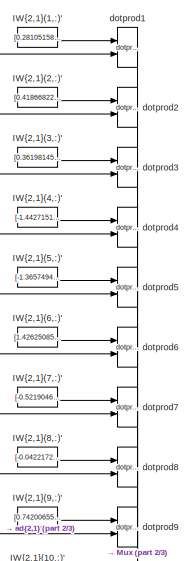
[diagram: controller1/optimized controller - pm/net_loc_rod_1/Layer 2/LW{2,1} - part 1/3, top center region]
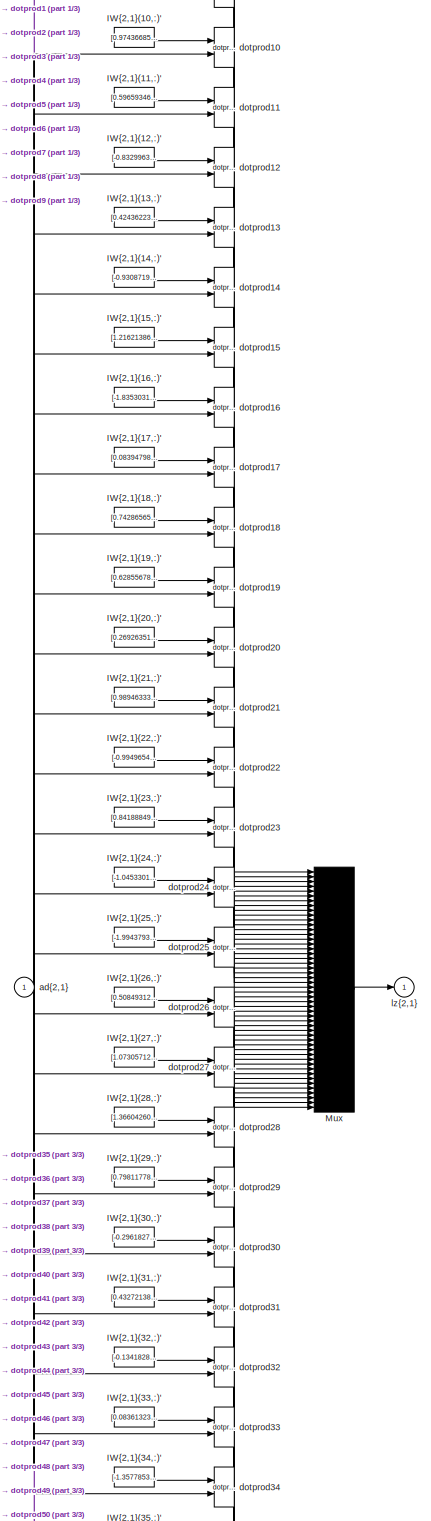
[diagram: controller1/optimized controller - pm/net_loc_rod_1/Layer 2/LW{2,1} - part 2/3, full width, middle band]
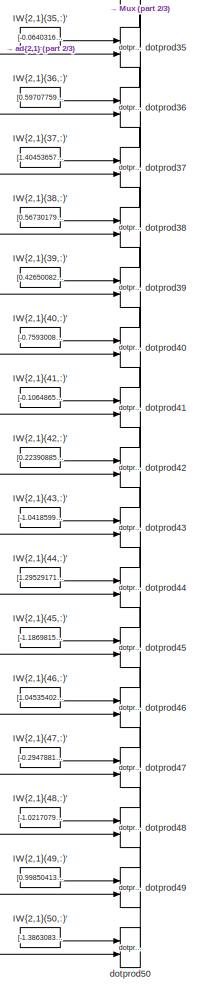
[diagram: controller1/optimized controller - pm/net_loc_rod_1/Layer 2/LW{2,1} - part 3/3, bottom center region]
BLOCK [SubSystem] controller1/optimized controller - pm/net_loc_rod_1/Layer 2/LW{2,1}
  FunctionWithSeparateData = off
  MaskHideContents = off
  MaskIconFrame = off
  MaskIconOpaque = on
  MaskIconRotate = none
  MaskIconUnits = autoscale
  MaskPortRotate = default
  MinAlgLoopOccurrences = off
  Opaque = off
  Ports = [1, 1]
  PropExecContextOutsideSubsystem = off
  RTWSystemCode = Auto
  RequestExecContextInheritance = off
  SID = 39343
BLOCK [Constant] controller1/optimized controller - pm/net_loc_rod_1/Layer 2/LW{2,1}/IW{2,1}(1,:)'
  MaskDisplay = e = 0.06;c1 = [120 150 230]/255;c2 = ([120 150 230]+0)/383;c3 = ([120 150 230]+128)/383;patch([0 1 1 0],[0 0 1 1],c1);patch([0 1 1 1-e 1-e 0+e],[0 0 1 1-e 0+e 0+e],c2);patch([0 0 1 1-e 0+e 0+e],[0 1 1 1-e 1-e 0+e],c3);plot([0 1 1 0 0],[0 0 1 1 0]);disp('weights');  <repeated x153 — deduplicated; at blocks: IW{2,1}(1,:)', IW{2,1}(10,:)', IW{2,1}(11,:)', IW{2,1}(12,:)', IW{2,1}(13,:)', IW{2,1}(14,:)', IW{2,1}(15,:)', IW{2,1}(16,:)', IW{2,1}(17,:)', IW{2,1}(18,:)', IW{2,1}(19,:)', IW{2,1}(2,:)', IW{2,1}(20,:)', IW{2,1}(21,:)', IW{2,1}(22,:)', IW{2,1}(23,:)', +35 more>
  MaskIconFrame = off
  MaskIconOpaque = on
  MaskIconRotate = none
  MaskIconUnits = autoscale
  MaskPortRotate = default
  SID = 39345
  Value = [0.28105158534987645;1.2562851831824244;-0.9703268275780117;-0.71091186233400294;-0.61144796604269036;-0.648522378339081;0.66218396194774798;-0.57504486991889048;-1.3244777738148121;0.76636943538536351;1.2283891898447286;0.48183292813491047;0.89102731052532291;-0.49782400155861195;0.47806589648850839;0.68195367719035238;0.91553373601327781;0.10984898327772806;-1.1763334646518491;0.7557319083122416...<+614ch>
BLOCK [Constant] controller1/optimized controller - pm/net_loc_rod_1/Layer 2/LW{2,1}/IW{2,1}(10,:)'
  MaskIconFrame = off
  MaskIconOpaque = on
  MaskIconRotate = none
  MaskIconUnits = autoscale
  MaskPortRotate = default
  SID = 39346
  Value = [0.9743668513537288;0.34426225899354612;-0.56269468838529635;-1.3923640745086698;0.84089122733836175;-0.27457099671393081;1.2172963692197563;1.368156454170206;-0.93921578996234856;-0.80532391276883986;1.3192080389930434;0.83211402174838967;0.10438618962567593;0.55786997685299289;0.38087363259021684;0.90885190485958789;0.099415186921509358;0.91831509593807681;0.16144157403223561;-0.1679061375912745...<+608ch>
BLOCK [Constant] controller1/optimized controller - pm/net_loc_rod_1/Layer 2/LW{2,1}/IW{2,1}(11,:)'
  MaskIconFrame = off
  MaskIconOpaque = on
  MaskIconRotate = none
  MaskIconUnits = autoscale
  MaskPortRotate = default
  SID = 39347
  Value = [0.59659346675138825;-0.77788141417911516;1.5903837831084826;0.40370409246681743;0.076188626799802109;-0.108745535112116;0.043908233316653222;1.5781174240935023;0.77572619500492668;0.70693089280565258;1.346915182499657;-1.1053458142938608;0.057335220987874386;0.20681070303842625;0.80344559389778025;-0.61012144383240585;-0.76557785666679024;-1.5010819851775843;0.43309922672941842;0.9526526999058031...<+612ch>
BLOCK [Constant] controller1/optimized controller - pm/net_loc_rod_1/Layer 2/LW{2,1}/IW{2,1}(12,:)'
  MaskIconFrame = off
  MaskIconOpaque = on
  MaskIconRotate = none
  MaskIconUnits = autoscale
  MaskPortRotate = default
  SID = 39348
  Value = [-0.83299637715263253;-1.1265322746893673;0.14870662499723675;-0.3580733465680182;0.27587354409149867;-0.77014948084436452;0.42134207776531768;1.4375063061965994;1.2957292964145515;1.4210400581547986;-0.25135522571462132;1.6306647219733228;0.87806383339772398;1.1414830348030287;-0.23548679218415849;1.2886717740937017;-0.11242991146769696;-1.3096212587113039;-0.69997572239734362;0.38547815167852589...<+602ch>
BLOCK [Constant] controller1/optimized controller - pm/net_loc_rod_1/Layer 2/LW{2,1}/IW{2,1}(13,:)'
  MaskIconFrame = off
  MaskIconOpaque = on
  MaskIconRotate = none
  MaskIconUnits = autoscale
  MaskPortRotate = default
  SID = 39349
  Value = [0.42436223302850135;0.96552168574519437;0.18326436643444902;-1.044584946367499;-0.12153893494602214;-1.3737246535569976;-1.319165602765688;0.95201640680647326;0.19023195902161777;-1.3178821130739584;-1.3922977122666085;0.27350160225869175;1.2828170970913921;0.043145852864173467;-0.83569783159694244;0.83582832156929121;-0.68001608348929143;0.025943778287909901;0.027773313232284255;1.54773310452223...<+612ch>
BLOCK [Constant] controller1/optimized controller - pm/net_loc_rod_1/Layer 2/LW{2,1}/IW{2,1}(14,:)'
  MaskIconFrame = off
  MaskIconOpaque = on
  MaskIconRotate = none
  MaskIconUnits = autoscale
  MaskPortRotate = default
  SID = 39350
  Value = [-0.93087190537915887;1.1740193519685298;0.21795095088160391;-0.4869549546567441;0.3583170021676918;-1.0282726313079442;-1.0884205633373765;-0.74156879467592163;-0.61052258803183157;-0.68308898036577337;0.95145405265906591;1.054487433840575;1.0524509250428751;0.47043148159987658;1.1902590925508569;0.62069037429824014;-0.50074358514480233;1.1750115248614965;0.77379944536745426;0.61816148984682262;-...<+603ch>
BLOCK [Constant] controller1/optimized controller - pm/net_loc_rod_1/Layer 2/LW{2,1}/IW{2,1}(15,:)'
  MaskIconFrame = off
  MaskIconOpaque = on
  MaskIconRotate = none
  MaskIconUnits = autoscale
  MaskPortRotate = default
  SID = 39351
  Value = [1.2162138609344844;1.4173627140117273;-0.1227353374095045;0.31155981270756095;1.4651789933891113;-1.6855199440520123;-0.81810434598895498;-0.92216339785317003;-0.77808240693105279;-1.0572485832104583;1.6110545046775351;-0.85670009732380703;-1.2465033981838325;0.83930968373625336;-1.4544803594599987;-0.032359330540408765;0.591089524346194;0.54872994401892961;0.21140328527753502;-1.3914090477014731...<+615ch>
BLOCK [Constant] controller1/optimized controller - pm/net_loc_rod_1/Layer 2/LW{2,1}/IW{2,1}(16,:)'
  MaskIconFrame = off
  MaskIconOpaque = on
  MaskIconRotate = none
  MaskIconUnits = autoscale
  MaskPortRotate = default
  SID = 39352
  Value = [-1.8353031638878303;1.3744020966454114;1.4079457892948917;0.79907843976563719;-0.030754986671316827;-1.3084767677009259;-0.63334622213026259;-1.3320733163054461;-1.7268676333046056;-0.57422045637095975;0.3167210775417118;0.55837113944994732;1.9572152451496931;0.12727434657415124;0.77784517639933615;0.13630825629330343;-0.67994361396516989;1.2935997071407308;-1.7368145379774376;-1.4248655286901237...<+602ch>
BLOCK [Constant] controller1/optimized controller - pm/net_loc_rod_1/Layer 2/LW{2,1}/IW{2,1}(17,:)'
  MaskIconFrame = off
  MaskIconOpaque = on
  MaskIconRotate = none
  MaskIconUnits = autoscale
  MaskPortRotate = default
  SID = 39353
  Value = [0.083947986608473427;-0.5962817159311059;0.40991879534475217;0.21822722712497128;0.34642534161206362;0.8305630833096812;0.17081438220664;0.93610654535940518;0.47924412486791973;-0.24283173011101655;-0.6860585736343936;0.21054265612869161;0.42375977030304457;0.38326857990910695;-1.2148539836212617;-0.88594144277539855;0.55357362642887342;-0.95313169460611713;0.10701607982845494;1.0744402797228743;...<+596ch>
BLOCK [Constant] controller1/optimized controller - pm/net_loc_rod_1/Layer 2/LW{2,1}/IW{2,1}(18,:)'
  MaskIconFrame = off
  MaskIconOpaque = on
  MaskIconRotate = none
  MaskIconUnits = autoscale
  MaskPortRotate = default
  SID = 39354
  Value = [0.74286565081699873;-1.0589906494620573;1.2710250452972855;0.059418937124687772;-0.6750877315167978;-0.76915402284615297;0.44793744186876133;1.3775087150443563;1.3164183227027504;-1.2783497810461797;-0.45809121003918396;0.6206153042057051;-0.35031542596475146;-0.59772537190940689;-0.72213609615297381;0.15836557352534592;1.041763222523818;0.20649089896408812;-0.29239300486854669;-0.112253228442884...<+608ch>
BLOCK [Constant] controller1/optimized controller - pm/net_loc_rod_1/Layer 2/LW{2,1}/IW{2,1}(19,:)'
  MaskIconFrame = off
  MaskIconOpaque = on
  MaskIconRotate = none
  MaskIconUnits = autoscale
  MaskPortRotate = default
  SID = 39355
  Value = [0.62855678308224716;-1.2371081970947246;0.52026501998930696;0.706544354130347;-1.2569506150490148;0.26629391217761644;-1.3098435383777862;-0.091004900966936392;-1.2833786602977235;0.5071827144258001;1.1749492503030823;0.68550793581075009;1.1886270094730256;0.90825138958805729;0.47081827100648194;-1.1854164537471752;-1.3361689239323136;-0.67309361465212192;-0.33591552601996494;1.261757143085561;0....<+608ch>
BLOCK [Constant] controller1/optimized controller - pm/net_loc_rod_1/Layer 2/LW{2,1}/IW{2,1}(2,:)'
  MaskIconFrame = off
  MaskIconOpaque = on
  MaskIconRotate = none
  MaskIconUnits = autoscale
  MaskPortRotate = default
  SID = 39356
  Value = [0.41866822471884807;-0.94362570329776396;0.97597911440227536;-0.87763118597546397;-1.578768974974494;-0.55536004295420083;1.3597268822667035;-0.44266551753534839;-1.2694818389058131;0.7469783335909147;1.1025282918001698;0.067162473176054435;0.72408957086808456;-0.24152522136407967;-0.11222228800441826;1.1133570880483104;0.014860633740663829;1.1774810683471046;-0.32864013768984951;-1.0658984993364...<+606ch>
BLOCK [Constant] controller1/optimized controller - pm/net_loc_rod_1/Layer 2/LW{2,1}/IW{2,1}(20,:)'
  MaskIconFrame = off
  MaskIconOpaque = on
  MaskIconRotate = none
  MaskIconUnits = autoscale
  MaskPortRotate = default
  SID = 39357
  Value = [0.26926351591757225;-1.3570900819449376;-0.96301661381048664;1.264402911605329;1.1235390142595114;-1.1585561145249597;0.97525215238098317;-0.26053258464811124;1.2300088350442464;0.15104297426682312;0.14744715209032902;0.96705902886585449;0.99267179117972648;0.29554819928340625;-1.0634168802099149;1.1192626750848877;0.15411486244861142;-0.21197190965414536;1.2487706035065624;-0.67448218727834486;0...<+607ch>
BLOCK [Constant] controller1/optimized controller - pm/net_loc_rod_1/Layer 2/LW{2,1}/IW{2,1}(21,:)'
  MaskIconFrame = off
  MaskIconOpaque = on
  MaskIconRotate = none
  MaskIconUnits = autoscale
  MaskPortRotate = default
  SID = 39358
  Value = [0.98946333131099562;0.62766458878444809;0.27831127517573045;-0.55194013971769629;-0.16883163303133916;1.0961423670192805;0.46406677230916288;1.3618664629731341;0.59120821137892232;0.78793651230056927;-1.5526599743238521;-0.61747579521579588;0.26922530270343192;0.54286695224083448;-1.4538455249892395;-0.46136751851097063;1.2488042395315135;0.68162511745033305;-1.2527691162306371;1.1434767705298083...<+605ch>
BLOCK [Constant] controller1/optimized controller - pm/net_loc_rod_1/Layer 2/LW{2,1}/IW{2,1}(22,:)'
  MaskIconFrame = off
  MaskIconOpaque = on
  MaskIconRotate = none
  MaskIconUnits = autoscale
  MaskPortRotate = default
  SID = 39359
  Value = [-0.99496545987901874;-1.2936936717820626;0.10704752728267583;-1.4540591285838789;-0.75709176129683398;-0.92491010947334773;-0.92942747833056849;1.0192356101680153;-0.097494246242950708;0.69033239941135438;0.25221686132285281;-0.1850440850510125;3.2765084164477054;1.183364544365918;0.70569050373175246;0.44200017625082338;1.0760189523822454;-0.29418780405323414;0.74510839671632356;-0.22988022479226...<+603ch>
BLOCK [Constant] controller1/optimized controller - pm/net_loc_rod_1/Layer 2/LW{2,1}/IW{2,1}(23,:)'
  MaskIconFrame = off
  MaskIconOpaque = on
  MaskIconRotate = none
  MaskIconUnits = autoscale
  MaskPortRotate = default
  SID = 39360
  Value = [0.84188849789928799;-0.42247198838775563;-0.55090649073607934;0.038507837850601363;-1.3225466624299793;0.98466332801317979;1.7214558278522962;-0.20778073460499341;0.28260685908598421;0.61949005969127013;-0.36816597436625781;-0.93907586833786216;0.24652915133022454;-0.16714498655621052;-1.3991310469209126;0.84379761931253305;0.33267354740456517;-1.4752591287722077;-1.2547809960460328;1.03002808113...<+612ch>
BLOCK [Constant] controller1/optimized controller - pm/net_loc_rod_1/Layer 2/LW{2,1}/IW{2,1}(24,:)'
  MaskIconFrame = off
  MaskIconOpaque = on
  MaskIconRotate = none
  MaskIconUnits = autoscale
  MaskPortRotate = default
  SID = 39361
  Value = [-1.0453301517147651;-0.57861736301257927;1.2581878132128177;0.23142227939052215;-0.76008137581772317;0.0033635081077405711;-1.0219740831668118;1.1547037791456847;1.0183366135119793;1.061962961231018;0.66467864267424237;-0.39017210513679812;1.3336684277604731;-0.78341077486678723;0.55734937871660795;0.8733206589509378;-1.2023096783806757;-1.3940790144392117;-0.83968208828567825;-1.000648798769191;...<+606ch>
BLOCK [Constant] controller1/optimized controller - pm/net_loc_rod_1/Layer 2/LW{2,1}/IW{2,1}(25,:)'
  MaskIconFrame = off
  MaskIconOpaque = on
  MaskIconRotate = none
  MaskIconUnits = autoscale
  MaskPortRotate = default
  SID = 39362
  Value = [-1.99437933415945;1.0800220286831776;-0.25076065701907774;-0.067380106891402627;0.064085795832694109;-0.3832900999537735;-0.14188474425742584;-0.92079003517069169;0.4523056308975445;0.46046446893093568;-0.99396175493982764;1.0144173162384318;-0.6250685152305212;-0.61019087167103025;0.87649971363529544;1.5700589787212351;-0.76778114174022738;0.6847740488374161;-1.4673807723362604;-1.07889154829496...<+605ch>
BLOCK [Constant] controller1/optimized controller - pm/net_loc_rod_1/Layer 2/LW{2,1}/IW{2,1}(26,:)'
  MaskIconFrame = off
  MaskIconOpaque = on
  MaskIconRotate = none
  MaskIconUnits = autoscale
  MaskPortRotate = default
  SID = 39363
  Value = [0.50849312605103048;-0.31770245290172378;-0.64695378772767198;1.3842122392778344;0.65045038008483913;0.51964036014579362;-0.78380681062549995;0.99571620088494939;0.96115949973576631;0.33569728268268384;1.5182774682850846;-1.4285598888715414;-0.41793172477381602;-0.38748629482632729;-1.1788849133836252;0.34515006152915823;-0.16885802678807199;-1.1720718866096307;0.23758290343948513;0.0238935550557...<+613ch>
BLOCK [Constant] controller1/optimized controller - pm/net_loc_rod_1/Layer 2/LW{2,1}/IW{2,1}(27,:)'
  MaskIconFrame = off
  MaskIconOpaque = on
  MaskIconRotate = none
  MaskIconUnits = autoscale
  MaskPortRotate = default
  SID = 39364
  Value = [1.0730571246231673;0.78774371558360046;0.85314254919715815;0.17503837125764968;-0.9357909818104988;-0.47974584305373086;1.336295636957388;-0.50017052277648555;1.0741836881037004;0.26202982860301061;-1.1412350439180623;-0.45316704816324899;0.92024460291499854;1.1803264226568964;-0.71367158184965174;1.4335553504117509;0.040600517164011612;-0.77805156588203095;1.0917226688621231;0.35171548923902846;...<+596ch>
BLOCK [Constant] controller1/optimized controller - pm/net_loc_rod_1/Layer 2/LW{2,1}/IW{2,1}(28,:)'
  MaskIconFrame = off
  MaskIconOpaque = on
  MaskIconRotate = none
  MaskIconUnits = autoscale
  MaskPortRotate = default
  SID = 39365
  Value = [1.3660426068290321;-1.0103638192477764;-1.0972948734644512;-0.15653675502367062;-1.0361064145291314;1.2194924493197168;1.5306094278838549;0.16641634587534759;-2.1895458481273895;-0.4684463564968413;0.89776518573709285;0.81727367745647095;-0.14923716579108912;1.2972076541902755;-0.3689083667504483;-1.519908817804785;1.81127230944899;-1.218296737335874;-1.6547132758262277;0.35696487651149345;-0.886...<+601ch>
BLOCK [Constant] controller1/optimized controller - pm/net_loc_rod_1/Layer 2/LW{2,1}/IW{2,1}(29,:)'
  MaskIconFrame = off
  MaskIconOpaque = on
  MaskIconRotate = none
  MaskIconUnits = autoscale
  MaskPortRotate = default
  SID = 39366
  Value = [0.79811778116892895;-0.71723321746845092;-0.45640145071711219;0.47884565097642268;2.0920918463660296;-1.9293733193773066;1.0259719917518813;-0.70897161880383275;0.89753628715107536;-0.42758099098997909;1.6263676708822239;0.65975741080985517;-0.011421877593330684;2.2128904013058555;0.7296558156020827;-0.61997546870877807;-0.62307864881087383;-0.82355358018210056;0.30035916266285917;0.0602414935004...<+610ch>
BLOCK [Constant] controller1/optimized controller - pm/net_loc_rod_1/Layer 2/LW{2,1}/IW{2,1}(3,:)'
  MaskIconFrame = off
  MaskIconOpaque = on
  MaskIconRotate = none
  MaskIconUnits = autoscale
  MaskPortRotate = default
  SID = 39367
  Value = [0.3619814533663312;-0.91182815776336013;-0.61078826704499034;1.4171804162772621;-1.3543177154443533;-0.0048509216650873144;-0.15363185690240397;0.90742462824595338;0.77945078703121029;1.0293835775672311;-0.224169347576304;-1.4421883945227842;-0.63449999223634235;0.79514503237202905;-0.52734053018960714;0.50229756140125315;0.17455369930243866;-1.123172297222305;0.28894669342362339;0.67439512882848...<+602ch>
BLOCK [Constant] controller1/optimized controller - pm/net_loc_rod_1/Layer 2/LW{2,1}/IW{2,1}(30,:)'
  MaskIconFrame = off
  MaskIconOpaque = on
  MaskIconRotate = none
  MaskIconUnits = autoscale
  MaskPortRotate = default
  SID = 39368
  Value = [-0.29618270235294225;0.97020766887054888;0.52326882873164826;0.27154471734768609;1.2397075549410446;0.50250788601530538;0.73317829357380393;1.1891468837069019;-1.1160257248386112;-1.2225169353823426;0.92386047090474488;0.12825613300415753;-0.096545703369881733;-1.2911612685870335;-1.1893858548827332;-0.57393433681621508;-0.8739279123706295;1.115797300252759;-0.79723082991988692;-0.821436008526846...<+606ch>
BLOCK [Constant] controller1/optimized controller - pm/net_loc_rod_1/Layer 2/LW{2,1}/IW{2,1}(31,:)'
  MaskIconFrame = off
  MaskIconOpaque = on
  MaskIconRotate = none
  MaskIconUnits = autoscale
  MaskPortRotate = default
  SID = 39369
  Value = [0.43272138513124248;0.89412969405032283;1.4472294669290633;-0.67569012557762698;-0.97173812660295189;1.2642448579437873;-0.11489113205584603;-0.18346109154623305;1.4759057519767695;-0.50900961783570131;-1.3231225149295505;1.3065105691889378;-0.26332696723507965;0.82781400975881614;0.2801808123833312;-0.84782699734263411;-0.25548649287120284;0.69503025951343833;1.1498238765604216;1.395883342601956...<+610ch>
BLOCK [Constant] controller1/optimized controller - pm/net_loc_rod_1/Layer 2/LW{2,1}/IW{2,1}(32,:)'
  MaskIconFrame = off
  MaskIconOpaque = on
  MaskIconRotate = none
  MaskIconUnits = autoscale
  MaskPortRotate = default
  SID = 39370
  Value = [-0.13418283047912996;1.1170914322240155;0.35312401226168588;1.4829797414024848;1.2045326381038779;0.93137040392651849;-0.96638343718070452;1.1619098174421782;1.1934931472109716;-1.0879154053371203;1.4232395726835945;-0.44893568817469376;0.75245836642156327;-0.96641373321998858;-0.62111227831470939;-1.786426502611338;1.5503192296065138;0.11231060947285854;-0.23007651993899689;-0.3123950263438085;0...<+599ch>
BLOCK [Constant] controller1/optimized controller - pm/net_loc_rod_1/Layer 2/LW{2,1}/IW{2,1}(33,:)'
  MaskIconFrame = off
  MaskIconOpaque = on
  MaskIconRotate = none
  MaskIconUnits = autoscale
  MaskPortRotate = default
  SID = 39371
  Value = [0.083613235504553143;-1.6465568114407849;0.54275499787608517;0.64613114729148313;0.82959197284681707;1.6213671237042031;0.39234868189379041;-1.02289880574682;-0.26574419049695552;0.82966154609012255;0.79007747636861869;1.5580313116030713;1.4110163222597398;-1.1516997653258707;1.4555538133510362;0.26502420644324398;1.6692172385756834;-1.6079728385563383;0.52468923679221335;-1.2666056043213418;-0.5...<+603ch>
BLOCK [Constant] controller1/optimized controller - pm/net_loc_rod_1/Layer 2/LW{2,1}/IW{2,1}(34,:)'
  MaskIconFrame = off
  MaskIconOpaque = on
  MaskIconRotate = none
  MaskIconUnits = autoscale
  MaskPortRotate = default
  SID = 39372
  Value = [-1.3577853267697078;0.16693580385763798;-0.78876387549544169;0.4724203662651702;0.25688408681738018;-0.61817381081297895;-0.4289487633006136;1.5448523096897719;0.67924117442283993;0.60679211955649592;1.1682279825520656;-1.5160703113336123;-0.30121593416676817;0.12232121185981203;1.2748199435062559;-1.7634863372538319;-0.84359856938669964;-1.3600557133326454;0.26399202374114811;1.380205905206759;0...<+599ch>
BLOCK [Constant] controller1/optimized controller - pm/net_loc_rod_1/Layer 2/LW{2,1}/IW{2,1}(35,:)'
  MaskIconFrame = off
  MaskIconOpaque = on
  MaskIconRotate = none
  MaskIconUnits = autoscale
  MaskPortRotate = default
  SID = 39373
  Value = [-0.06403163014504587;0.4201532306263997;1.3148862020726699;-0.72167481628704921;-0.73690881505239925;0.65663311447461814;-0.77235831776746899;0.96226750208373035;-0.66664154901043882;1.030650236056303;0.25819655782814421;1.055617081116224;0.32967364633674262;-1.2431710872440485;-0.48060037512940695;1.27790881667797;1.4135194153354587;-0.38286439774123243;0.27238933077289362;-0.032758317752574394;...<+600ch>
BLOCK [Constant] controller1/optimized controller - pm/net_loc_rod_1/Layer 2/LW{2,1}/IW{2,1}(36,:)'
  MaskIconFrame = off
  MaskIconOpaque = on
  MaskIconRotate = none
  MaskIconUnits = autoscale
  MaskPortRotate = default
  SID = 39374
  Value = [0.59707759769559265;-0.010805539781205986;-1.1056560935002375;-0.87132442394644571;1.1623466968437468;-0.56310561296313555;0.2617332994238093;0.53983315975708246;-0.94554850092035747;0.3851097539299122;1.405478103432267;0.6209199310990049;-1.1253814509347733;0.41871073445958734;1.1360179045330607;0.31671352972202155;-1.229211291200806;-0.65968662195659944;0.77237993943309402;1.206182548617448;-0....<+598ch>
BLOCK [Constant] controller1/optimized controller - pm/net_loc_rod_1/Layer 2/LW{2,1}/IW{2,1}(37,:)'
  MaskIconFrame = off
  MaskIconOpaque = on
  MaskIconRotate = none
  MaskIconUnits = autoscale
  MaskPortRotate = default
  SID = 39375
  Value = [1.4045365739012661;-0.13681233558316527;0.3076473773344352;-1.1763403275808888;-0.17345697965608856;-2.1229409495163081;-0.36869286845800936;0.59166140043766702;0.63633658828483219;0.77810293236933903;0.79483404902520949;-0.21836067117531011;-0.55647838816993433;0.95724988142897272;-0.19425364926372926;1.3177288920581283;2.1915267613671663;-0.0015501664636482244;1.6317496153487712;0.6395331712920...<+611ch>
BLOCK [Constant] controller1/optimized controller - pm/net_loc_rod_1/Layer 2/LW{2,1}/IW{2,1}(38,:)'
  MaskIconFrame = off
  MaskIconOpaque = on
  MaskIconRotate = none
  MaskIconUnits = autoscale
  MaskPortRotate = default
  SID = 39376
  Value = [0.56730179329639019;-1.267239958403019;-1.1206511381157249;-0.22616688960153358;0.66788333331132788;-0.16085027209157401;0.79069194580244229;-0.79622801242871211;1.3624165032930327;0.079621903271448968;0.63345469190368942;-1.0349047834191356;1.2513945673375906;-0.12930210236907336;-0.1366021639753501;1.121791907654095;-0.13354960729605644;-0.67862773321151693;0.10316663138396831;1.251918900492463...<+603ch>
BLOCK [Constant] controller1/optimized controller - pm/net_loc_rod_1/Layer 2/LW{2,1}/IW{2,1}(39,:)'
  MaskIconFrame = off
  MaskIconOpaque = on
  MaskIconRotate = none
  MaskIconUnits = autoscale
  MaskPortRotate = default
  SID = 39377
  Value = [0.42650082200000933;1.0845646812169043;0.81407219487392812;1.2396885044663135;-1.2829014105999035;0.74919692308285923;0.21796143722784919;-0.99547927600588415;1.111652695225136;0.84333707061829988;1.035439862430023;-1.1872736766971332;-0.050489846189617826;-0.10167836844251789;-0.5155041555932377;1.2884492004344517;-1.0355918050467514;-0.90019322159468518;0.31818371502906828;-1.2666419827460913;1...<+609ch>
BLOCK [Constant] controller1/optimized controller - pm/net_loc_rod_1/Layer 2/LW{2,1}/IW{2,1}(4,:)'
  MaskIconFrame = off
  MaskIconOpaque = on
  MaskIconRotate = none
  MaskIconUnits = autoscale
  MaskPortRotate = default
  SID = 39378
  Value = [-1.4427151501622864;0.36463867350982876;0.92117811465613952;0.17603069397508439;0.86060916976285617;-1.2678605058629016;-0.51548251036739801;0.057580425330265639;-0.92368134128899171;-0.67642329312358129;-0.43719127829570847;-1.0960053672743011;-0.58318309927079726;0.56354358970243124;0.11124737476767316;0.055963422508141153;1.1255556921213039;0.38644297746335676;-0.71152729389641778;0.3504701997...<+609ch>
BLOCK [Constant] controller1/optimized controller - pm/net_loc_rod_1/Layer 2/LW{2,1}/IW{2,1}(40,:)'
  MaskIconFrame = off
  MaskIconOpaque = on
  MaskIconRotate = none
  MaskIconUnits = autoscale
  MaskPortRotate = default
  SID = 39379
  Value = [-0.75930081009751549;-0.8073829536108118;0.6184414940650228;0.13930897919671203;-0.51526515578370535;0.76800841556376298;-0.15861695843666596;1.2415134977913118;0.26194297559354901;-0.31704480498937071;-1.4110864499597329;-0.43658924404458355;1.2044997735091409;0.5672007555363906;1.1296464637279697;-1.0275936495723241;0.52663891313551614;1.1090441310395454;0.51872580213492969;-1.26961137246355;-1...<+601ch>
BLOCK [Constant] controller1/optimized controller - pm/net_loc_rod_1/Layer 2/LW{2,1}/IW{2,1}(41,:)'
  MaskIconFrame = off
  MaskIconOpaque = on
  MaskIconRotate = none
  MaskIconUnits = autoscale
  MaskPortRotate = default
  SID = 39380
  Value = [-0.10648650057900197;0.26570347446502185;-0.7667416205538109;0.2079694780680662;0.97296937583782428;-0.52032430813990715;0.18125723004945865;-1.2955021197266088;-1.2167731212094166;1.3383750218141333;0.69463339229150656;-0.39060405543709503;-0.16233783013104722;1.4882904343914261;-0.0891702499314901;1.0388873932266223;-0.89417708233980275;1.566596426621792;-0.20092979071206721;1.1632785597254354;...<+600ch>
BLOCK [Constant] controller1/optimized controller - pm/net_loc_rod_1/Layer 2/LW{2,1}/IW{2,1}(42,:)'
  MaskIconFrame = off
  MaskIconOpaque = on
  MaskIconRotate = none
  MaskIconUnits = autoscale
  MaskPortRotate = default
  SID = 39381
  Value = [0.22390885058979756;-0.18769591042284312;1.2181696663604482;1.1801650610036181;1.5208723478466881;-0.68147929970351717;-0.44364724643280551;0.50702893062861476;1.0854239805387715;-0.27278459786285419;0.60692031740119767;-0.2777320201953592;-0.76248655495959961;-1.7028300327696186;1.0728293409044511;-1.075722111908916;-0.94473570116848038;0.1707280559382687;0.015595350078713826;1.0778210387861902;...<+608ch>
BLOCK [Constant] controller1/optimized controller - pm/net_loc_rod_1/Layer 2/LW{2,1}/IW{2,1}(43,:)'
  MaskIconFrame = off
  MaskIconOpaque = on
  MaskIconRotate = none
  MaskIconUnits = autoscale
  MaskPortRotate = default
  SID = 39382
  Value = [-1.0418599051883568;-0.10670184154877319;-0.23767655236013208;-0.38800713274719156;-1.1896715105625078;-1.4161809407129813;0.49031427363136304;1.372294810180954;0.54529338779010561;-0.42295672328187767;0.34277441471569514;-1.1858871448219377;0.64780694052284427;1.5578249627244256;-0.93751108371713976;0.30011365973927318;0.2936446752765367;-1.0853450323201039;0.877203670206542;-1.8143149593516685;...<+599ch>
BLOCK [Constant] controller1/optimized controller - pm/net_loc_rod_1/Layer 2/LW{2,1}/IW{2,1}(44,:)'
  MaskIconFrame = off
  MaskIconOpaque = on
  MaskIconRotate = none
  MaskIconUnits = autoscale
  MaskPortRotate = default
  SID = 39383
  Value = [1.2952917165984266;-1.2717074671070765;-0.90988612460204354;1.2154605177824389;-1.1832724021539662;-0.83408458056484858;0.68974512894499918;-0.72987409015760296;1.9288899788824432;0.77531860677957753;-0.27891423791014924;0.30048788604551319;-1.4448436712292014;-0.49720207270675043;-0.88041503596779092;-0.58995705512413432;0.83650839621020989;0.22051039837845876;2.0758902174458003;0.60486480496373...<+614ch>
BLOCK [Constant] controller1/optimized controller - pm/net_loc_rod_1/Layer 2/LW{2,1}/IW{2,1}(45,:)'
  MaskIconFrame = off
  MaskIconOpaque = on
  MaskIconRotate = none
  MaskIconUnits = autoscale
  MaskPortRotate = default
  SID = 39384
  Value = [-1.1869815834242019;-1.0311109672878298;1.0753780493205198;-0.14887316563998607;0.13872596513007621;-1.1543981914115842;-1.3142003644076508;-0.8305392449426201;0.72721752985182953;-1.5433406001783503;0.4546360816752269;1.5146809267041441;0.039417126147682641;0.65241727533721516;0.55187477426684106;-0.37988835398529935;-0.16867831295921934;1.4067837702606516;1.4675097516887066;-0.01567216272600755...<+607ch>
BLOCK [Constant] controller1/optimized controller - pm/net_loc_rod_1/Layer 2/LW{2,1}/IW{2,1}(46,:)'
  MaskIconFrame = off
  MaskIconOpaque = on
  MaskIconRotate = none
  MaskIconUnits = autoscale
  MaskPortRotate = default
  SID = 39385
  Value = [1.0453540296679316;0.75368106865218054;0.56235084303828797;0.41493542527465943;-0.89576997372170886;1.6251734188994149;0.25412200879226282;-0.47959743916586828;-1.2281817404510058;-0.84097748918431892;-0.4504529094080803;1.5886869693098951;1.3571910331944164;-0.60258120466042853;0.49837577142616718;0.031601803015129132;0.92514085473765262;-0.1763649647440193;-1.4296868930726363;-0.649793287387062...<+611ch>
BLOCK [Constant] controller1/optimized controller - pm/net_loc_rod_1/Layer 2/LW{2,1}/IW{2,1}(47,:)'
  MaskIconFrame = off
  MaskIconOpaque = on
  MaskIconRotate = none
  MaskIconUnits = autoscale
  MaskPortRotate = default
  SID = 39386
  Value = [-0.29478815330162161;-0.68760539622954775;0.35032709524462963;1.0490257796815525;1.0513334169696311;1.5596674193153515;-0.76603584031684302;-0.47599720126176015;1.5968011160279623;1.2429461289406099;0.97276145404801406;-1.2098216863300586;0.32379107708662319;-0.013906891215339319;-0.81882341001694969;0.15771098865504649;-0.20200688296039912;1.4859120487226676;0.20705118341379808;-1.14951371060538...<+610ch>
BLOCK [Constant] controller1/optimized controller - pm/net_loc_rod_1/Layer 2/LW{2,1}/IW{2,1}(48,:)'
  MaskIconFrame = off
  MaskIconOpaque = on
  MaskIconRotate = none
  MaskIconUnits = autoscale
  MaskPortRotate = default
  SID = 39387
  Value = [-1.0217079738198667;-1.3488707489413267;0.73791683217648396;-0.82819554361191516;0.23799282295829835;0.49991271554092487;-0.53258551467404924;0.585137053136912;0.23626876162028651;0.86275744904377005;-1.1806584345767026;0.075351009881103131;0.62906788291207438;-1.5177173810924318;-0.95041716887152816;1.9484595582527822;-0.54645033194042736;-0.71127541057909216;1.3894609195609073;0.545389094709127...<+607ch>
BLOCK [Constant] controller1/optimized controller - pm/net_loc_rod_1/Layer 2/LW{2,1}/IW{2,1}(49,:)'
  MaskIconFrame = off
  MaskIconOpaque = on
  MaskIconRotate = none
  MaskIconUnits = autoscale
  MaskPortRotate = default
  SID = 39388
  Value = [0.99850413369122015;0.42359128730804146;-0.30916119574122086;-0.64647451380009202;0.76953674510877956;-1.4845512947393584;-0.40716545787383074;0.8504748001099135;1.0227071721693455;0.59530926364393877;1.3969590898099824;1.5464040634965581;1.4856234973932945;0.029398758756626921;0.58069758802512506;0.58263049157804281;0.47355005046199844;-0.91766362618771014;-0.055052012912428942;-1.11206883780655...<+604ch>
BLOCK [Constant] controller1/optimized controller - pm/net_loc_rod_1/Layer 2/LW{2,1}/IW{2,1}(5,:)'
  MaskIconFrame = off
  MaskIconOpaque = on
  MaskIconRotate = none
  MaskIconUnits = autoscale
  MaskPortRotate = default
  SID = 39389
  Value = [-1.3657494047437417;-0.3765138523662962;-0.85741293962902143;1.2316844485443743;1.0104628288885189;-0.0013754042074602829;0.85397702611283477;-0.38200214219338541;0.21355180574715593;-1.3682797078106241;0.58260105271828089;0.65683489651771554;0.019336208516684536;0.23475452006523323;1.3197201789568533;-0.45896421509244828;-0.98887289484166951;0.79640219604618123;-0.53625899449295744;-0.1334887781...<+615ch>
BLOCK [Constant] controller1/optimized controller - pm/net_loc_rod_1/Layer 2/LW{2,1}/IW{2,1}(50,:)'
  MaskIconFrame = off
  MaskIconOpaque = on
  MaskIconRotate = none
  MaskIconUnits = autoscale
  MaskPortRotate = default
  SID = 39390
  Value = [-1.386308330310537;-0.13520027369236928;-1.4528611540915117;-0.70538271019167209;0.77864698912494246;-0.5763882773281308;-1.5106777101236217;-0.67786481525901476;-0.60460290998488753;0.59670187163168154;-1.2465689080686708;-1.3053542467496957;-0.07046979142745291;0.65084687066166136;1.1981484872934494;-0.34016203256431365;0.70917463700407168;-0.85571003299845638;-0.53307153496467485;1.51338134946...<+608ch>
BLOCK [Constant] controller1/optimized controller - pm/net_loc_rod_1/Layer 2/LW{2,1}/IW{2,1}(6,:)'
  MaskIconFrame = off
  MaskIconOpaque = on
  MaskIconRotate = none
  MaskIconUnits = autoscale
  MaskPortRotate = default
  SID = 39391
  Value = [1.4262508529029696;-0.41879745479771685;0.45741158185237385;0.31703583912581484;0.33264463100880381;1.0410606659630488;1.4719105000902792;-0.36821128234523287;-0.75511235828791645;1.118986710062154;-0.76758727784884895;-1.1139086049094304;-0.89393881606590964;1.0119744596081965;-0.46262236726652595;-1.2154029985503305;-0.18496021769998236;-0.6786772897294221;0.49511614235258977;-0.975962465033922...<+598ch>
BLOCK [Constant] controller1/optimized controller - pm/net_loc_rod_1/Layer 2/LW{2,1}/IW{2,1}(7,:)'
  MaskIconFrame = off
  MaskIconOpaque = on
  MaskIconRotate = none
  MaskIconUnits = autoscale
  MaskPortRotate = default
  SID = 39392
  Value = [-0.52190464781660428;0.46324518997397529;-0.62212293227770243;1.005992835009466;-0.45533993972096432;1.3061162329741141;-0.82213816236570914;-0.88479617300418711;0.74952225681299545;-0.36224623520418886;-0.52883769535099134;1.0253778106178333;0.67181324547708698;0.80220366152360978;-1.072063474220752;1.079168403767796;-1.2861548483290577;0.32146640025404943;-1.1448285016970983;-0.5626564651019313...<+603ch>
BLOCK [Constant] controller1/optimized controller - pm/net_loc_rod_1/Layer 2/LW{2,1}/IW{2,1}(8,:)'
  MaskIconFrame = off
  MaskIconOpaque = on
  MaskIconRotate = none
  MaskIconUnits = autoscale
  MaskPortRotate = default
  SID = 39393
  Value = [-0.04221720105602992;-0.68345272744920105;-0.21448558870007473;0.8849701983322813;0.53799168529783437;-0.88544921756112105;-0.7420735933294631;1.6614630813658919;-0.50857508182657452;-0.31549543904616228;0.38139328514146403;-1.202350969190769;-0.94310669806425962;0.22943279342024969;-0.10615702172051729;0.95353312654307998;-0.46235596074882396;-0.33910970045367395;-1.2541543568263123;-1.331406620...<+611ch>
BLOCK [Constant] controller1/optimized controller - pm/net_loc_rod_1/Layer 2/LW{2,1}/IW{2,1}(9,:)'
  MaskIconFrame = off
  MaskIconOpaque = on
  MaskIconRotate = none
  MaskIconUnits = autoscale
  MaskPortRotate = default
  SID = 39394
  Value = [0.74200655565306139;-1.2311590171629467;0.19591310415931198;0.97160639140792326;0.39861077981210552;-0.68233312690122194;0.11699203957350235;-0.85438058744293155;0.14435625066579139;-0.96765271722661073;-1.0241847887195559;1.1692694149808631;-0.84651072602863398;0.12047475717235179;-0.41683585399004947;-0.0030549987985766069;0.22886866119253474;-1.3061614899962906;-0.23366724736785047;1.284903192...<+611ch>
BLOCK [Mux] controller1/optimized controller - pm/net_loc_rod_1/Layer 2/LW{2,1}/Mux
  Inputs = 50
  MaskIconFrame = off
  MaskIconOpaque = on
  MaskIconRotate = none
  MaskIconUnits = autoscale
  MaskPortRotate = default
  Ports = [50, 1]
  SID = 39395
BLOCK [Inport] controller1/optimized controller - pm/net_loc_rod_1/Layer 2/LW{2,1}/ad{2,1}
  IconDisplay = Port number
  MaskIconFrame = off
  MaskIconOpaque = on
  MaskIconRotate = none
  MaskIconUnits = autoscale
  MaskPortRotate = default
  PortDimensions = 50
  SID = 39344
BLOCK [Reference] controller1/optimized controller - pm/net_loc_rod_1/Layer 2/LW{2,1}/dotprod1  REF=neural/Weight Functions/dotprod
  FunctionWithSeparateData = off
  GeneratePreprocessorConditionals = off
  Ports = [2, 1]
  RTWMemSecDataConstants = Inherit from model
  RTWMemSecDataInternal = Inherit from model
  RTWMemSecDataParameters = Inherit from model
  RTWMemSecFuncExecute = Inherit from model
  RTWMemSecFuncInitTerm = Inherit from model
  SID = 39396
  ShowPortLabels = FromPortIcon
  SourceBlock = neural/Weight Functions/dotprod
  SourceType = DOTPROD
  SystemSampleTime = -1
BLOCK [Reference] controller1/optimized controller - pm/net_loc_rod_1/Layer 2/LW{2,1}/dotprod10  REF=neural/Weight Functions/dotprod
  FunctionWithSeparateData = off
  GeneratePreprocessorConditionals = off
  Ports = [2, 1]
  RTWMemSecDataConstants = Inherit from model
  RTWMemSecDataInternal = Inherit from model
  RTWMemSecDataParameters = Inherit from model
  RTWMemSecFuncExecute = Inherit from model
  RTWMemSecFuncInitTerm = Inherit from model
  SID = 39397
  ShowPortLabels = FromPortIcon
  SourceBlock = neural/Weight Functions/dotprod
  SourceType = DOTPROD
  SystemSampleTime = -1
BLOCK [Reference] controller1/optimized controller - pm/net_loc_rod_1/Layer 2/LW{2,1}/dotprod11  REF=neural/Weight Functions/dotprod
  FunctionWithSeparateData = off
  GeneratePreprocessorConditionals = off
  Ports = [2, 1]
  RTWMemSecDataConstants = Inherit from model
  RTWMemSecDataInternal = Inherit from model
  RTWMemSecDataParameters = Inherit from model
  RTWMemSecFuncExecute = Inherit from model
  RTWMemSecFuncInitTerm = Inherit from model
  SID = 39398
  ShowPortLabels = FromPortIcon
  SourceBlock = neural/Weight Functions/dotprod
  SourceType = DOTPROD
  SystemSampleTime = -1
BLOCK [Reference] controller1/optimized controller - pm/net_loc_rod_1/Layer 2/LW{2,1}/dotprod12  REF=neural/Weight Functions/dotprod
  FunctionWithSeparateData = off
  GeneratePreprocessorConditionals = off
  Ports = [2, 1]
  RTWMemSecDataConstants = Inherit from model
  RTWMemSecDataInternal = Inherit from model
  RTWMemSecDataParameters = Inherit from model
  RTWMemSecFuncExecute = Inherit from model
  RTWMemSecFuncInitTerm = Inherit from model
  SID = 39399
  ShowPortLabels = FromPortIcon
  SourceBlock = neural/Weight Functions/dotprod
  SourceType = DOTPROD
  SystemSampleTime = -1
BLOCK [Reference] controller1/optimized controller - pm/net_loc_rod_1/Layer 2/LW{2,1}/dotprod13  REF=neural/Weight Functions/dotprod
  FunctionWithSeparateData = off
  GeneratePreprocessorConditionals = off
  Ports = [2, 1]
  RTWMemSecDataConstants = Inherit from model
  RTWMemSecDataInternal = Inherit from model
  RTWMemSecDataParameters = Inherit from model
  RTWMemSecFuncExecute = Inherit from model
  RTWMemSecFuncInitTerm = Inherit from model
  SID = 39400
  ShowPortLabels = FromPortIcon
  SourceBlock = neural/Weight Functions/dotprod
  SourceType = DOTPROD
  SystemSampleTime = -1
BLOCK [Reference] controller1/optimized controller - pm/net_loc_rod_1/Layer 2/LW{2,1}/dotprod14  REF=neural/Weight Functions/dotprod
  FunctionWithSeparateData = off
  GeneratePreprocessorConditionals = off
  Ports = [2, 1]
  RTWMemSecDataConstants = Inherit from model
  RTWMemSecDataInternal = Inherit from model
  RTWMemSecDataParameters = Inherit from model
  RTWMemSecFuncExecute = Inherit from model
  RTWMemSecFuncInitTerm = Inherit from model
  SID = 39401
  ShowPortLabels = FromPortIcon
  SourceBlock = neural/Weight Functions/dotprod
  SourceType = DOTPROD
  SystemSampleTime = -1
BLOCK [Reference] controller1/optimized controller - pm/net_loc_rod_1/Layer 2/LW{2,1}/dotprod15  REF=neural/Weight Functions/dotprod
  FunctionWithSeparateData = off
  GeneratePreprocessorConditionals = off
  Ports = [2, 1]
  RTWMemSecDataConstants = Inherit from model
  RTWMemSecDataInternal = Inherit from model
  RTWMemSecDataParameters = Inherit from model
  RTWMemSecFuncExecute = Inherit from model
  RTWMemSecFuncInitTerm = Inherit from model
  SID = 39402
  ShowPortLabels = FromPortIcon
  SourceBlock = neural/Weight Functions/dotprod
  SourceType = DOTPROD
  SystemSampleTime = -1
BLOCK [Reference] controller1/optimized controller - pm/net_loc_rod_1/Layer 2/LW{2,1}/dotprod16  REF=neural/Weight Functions/dotprod
  FunctionWithSeparateData = off
  GeneratePreprocessorConditionals = off
  Ports = [2, 1]
  RTWMemSecDataConstants = Inherit from model
  RTWMemSecDataInternal = Inherit from model
  RTWMemSecDataParameters = Inherit from model
  RTWMemSecFuncExecute = Inherit from model
  RTWMemSecFuncInitTerm = Inherit from model
  SID = 39403
  ShowPortLabels = FromPortIcon
  SourceBlock = neural/Weight Functions/dotprod
  SourceType = DOTPROD
  SystemSampleTime = -1
BLOCK [Reference] controller1/optimized controller - pm/net_loc_rod_1/Layer 2/LW{2,1}/dotprod17  REF=neural/Weight Functions/dotprod
  FunctionWithSeparateData = off
  GeneratePreprocessorConditionals = off
  Ports = [2, 1]
  RTWMemSecDataConstants = Inherit from model
  RTWMemSecDataInternal = Inherit from model
  RTWMemSecDataParameters = Inherit from model
  RTWMemSecFuncExecute = Inherit from model
  RTWMemSecFuncInitTerm = Inherit from model
  SID = 39404
  ShowPortLabels = FromPortIcon
  SourceBlock = neural/Weight Functions/dotprod
  SourceType = DOTPROD
  SystemSampleTime = -1
BLOCK [Reference] controller1/optimized controller - pm/net_loc_rod_1/Layer 2/LW{2,1}/dotprod18  REF=neural/Weight Functions/dotprod
  FunctionWithSeparateData = off
  GeneratePreprocessorConditionals = off
  Ports = [2, 1]
  RTWMemSecDataConstants = Inherit from model
  RTWMemSecDataInternal = Inherit from model
  RTWMemSecDataParameters = Inherit from model
  RTWMemSecFuncExecute = Inherit from model
  RTWMemSecFuncInitTerm = Inherit from model
  SID = 39405
  ShowPortLabels = FromPortIcon
  SourceBlock = neural/Weight Functions/dotprod
  SourceType = DOTPROD
  SystemSampleTime = -1
BLOCK [Reference] controller1/optimized controller - pm/net_loc_rod_1/Layer 2/LW{2,1}/dotprod19  REF=neural/Weight Functions/dotprod
  FunctionWithSeparateData = off
  GeneratePreprocessorConditionals = off
  Ports = [2, 1]
  RTWMemSecDataConstants = Inherit from model
  RTWMemSecDataInternal = Inherit from model
  RTWMemSecDataParameters = Inherit from model
  RTWMemSecFuncExecute = Inherit from model
  RTWMemSecFuncInitTerm = Inherit from model
  SID = 39406
  ShowPortLabels = FromPortIcon
  SourceBlock = neural/Weight Functions/dotprod
  SourceType = DOTPROD
  SystemSampleTime = -1
BLOCK [Reference] controller1/optimized controller - pm/net_loc_rod_1/Layer 2/LW{2,1}/dotprod2  REF=neural/Weight Functions/dotprod
  FunctionWithSeparateData = off
  GeneratePreprocessorConditionals = off
  Ports = [2, 1]
  RTWMemSecDataConstants = Inherit from model
  RTWMemSecDataInternal = Inherit from model
  RTWMemSecDataParameters = Inherit from model
  RTWMemSecFuncExecute = Inherit from model
  RTWMemSecFuncInitTerm = Inherit from model
  SID = 39407
  ShowPortLabels = FromPortIcon
  SourceBlock = neural/Weight Functions/dotprod
  SourceType = DOTPROD
  SystemSampleTime = -1
BLOCK [Reference] controller1/optimized controller - pm/net_loc_rod_1/Layer 2/LW{2,1}/dotprod20  REF=neural/Weight Functions/dotprod
  FunctionWithSeparateData = off
  GeneratePreprocessorConditionals = off
  Ports = [2, 1]
  RTWMemSecDataConstants = Inherit from model
  RTWMemSecDataInternal = Inherit from model
  RTWMemSecDataParameters = Inherit from model
  RTWMemSecFuncExecute = Inherit from model
  RTWMemSecFuncInitTerm = Inherit from model
  SID = 39408
  ShowPortLabels = FromPortIcon
  SourceBlock = neural/Weight Functions/dotprod
  SourceType = DOTPROD
  SystemSampleTime = -1
BLOCK [Reference] controller1/optimized controller - pm/net_loc_rod_1/Layer 2/LW{2,1}/dotprod21  REF=neural/Weight Functions/dotprod
  FunctionWithSeparateData = off
  GeneratePreprocessorConditionals = off
  Ports = [2, 1]
  RTWMemSecDataConstants = Inherit from model
  RTWMemSecDataInternal = Inherit from model
  RTWMemSecDataParameters = Inherit from model
  RTWMemSecFuncExecute = Inherit from model
  RTWMemSecFuncInitTerm = Inherit from model
  SID = 39409
  ShowPortLabels = FromPortIcon
  SourceBlock = neural/Weight Functions/dotprod
  SourceType = DOTPROD
  SystemSampleTime = -1
BLOCK [Reference] controller1/optimized controller - pm/net_loc_rod_1/Layer 2/LW{2,1}/dotprod22  REF=neural/Weight Functions/dotprod
  FunctionWithSeparateData = off
  GeneratePreprocessorConditionals = off
  Ports = [2, 1]
  RTWMemSecDataConstants = Inherit from model
  RTWMemSecDataInternal = Inherit from model
  RTWMemSecDataParameters = Inherit from model
  RTWMemSecFuncExecute = Inherit from model
  RTWMemSecFuncInitTerm = Inherit from model
  SID = 39410
  ShowPortLabels = FromPortIcon
  SourceBlock = neural/Weight Functions/dotprod
  SourceType = DOTPROD
  SystemSampleTime = -1
BLOCK [Reference] controller1/optimized controller - pm/net_loc_rod_1/Layer 2/LW{2,1}/dotprod23  REF=neural/Weight Functions/dotprod
  FunctionWithSeparateData = off
  GeneratePreprocessorConditionals = off
  Ports = [2, 1]
  RTWMemSecDataConstants = Inherit from model
  RTWMemSecDataInternal = Inherit from model
  RTWMemSecDataParameters = Inherit from model
  RTWMemSecFuncExecute = Inherit from model
  RTWMemSecFuncInitTerm = Inherit from model
  SID = 39411
  ShowPortLabels = FromPortIcon
  SourceBlock = neural/Weight Functions/dotprod
  SourceType = DOTPROD
  SystemSampleTime = -1
BLOCK [Reference] controller1/optimized controller - pm/net_loc_rod_1/Layer 2/LW{2,1}/dotprod24  REF=neural/Weight Functions/dotprod
  FunctionWithSeparateData = off
  GeneratePreprocessorConditionals = off
  Ports = [2, 1]
  RTWMemSecDataConstants = Inherit from model
  RTWMemSecDataInternal = Inherit from model
  RTWMemSecDataParameters = Inherit from model
  RTWMemSecFuncExecute = Inherit from model
  RTWMemSecFuncInitTerm = Inherit from model
  SID = 39412
  ShowPortLabels = FromPortIcon
  SourceBlock = neural/Weight Functions/dotprod
  SourceType = DOTPROD
  SystemSampleTime = -1
BLOCK [Reference] controller1/optimized controller - pm/net_loc_rod_1/Layer 2/LW{2,1}/dotprod25  REF=neural/Weight Functions/dotprod
  FunctionWithSeparateData = off
  GeneratePreprocessorConditionals = off
  Ports = [2, 1]
  RTWMemSecDataConstants = Inherit from model
  RTWMemSecDataInternal = Inherit from model
  RTWMemSecDataParameters = Inherit from model
  RTWMemSecFuncExecute = Inherit from model
  RTWMemSecFuncInitTerm = Inherit from model
  SID = 39413
  ShowPortLabels = FromPortIcon
  SourceBlock = neural/Weight Functions/dotprod
  SourceType = DOTPROD
  SystemSampleTime = -1
BLOCK [Reference] controller1/optimized controller - pm/net_loc_rod_1/Layer 2/LW{2,1}/dotprod26  REF=neural/Weight Functions/dotprod
  FunctionWithSeparateData = off
  GeneratePreprocessorConditionals = off
  Ports = [2, 1]
  RTWMemSecDataConstants = Inherit from model
  RTWMemSecDataInternal = Inherit from model
  RTWMemSecDataParameters = Inherit from model
  RTWMemSecFuncExecute = Inherit from model
  RTWMemSecFuncInitTerm = Inherit from model
  SID = 39414
  ShowPortLabels = FromPortIcon
  SourceBlock = neural/Weight Functions/dotprod
  SourceType = DOTPROD
  SystemSampleTime = -1
BLOCK [Reference] controller1/optimized controller - pm/net_loc_rod_1/Layer 2/LW{2,1}/dotprod27  REF=neural/Weight Functions/dotprod
  FunctionWithSeparateData = off
  GeneratePreprocessorConditionals = off
  Ports = [2, 1]
  RTWMemSecDataConstants = Inherit from model
  RTWMemSecDataInternal = Inherit from model
  RTWMemSecDataParameters = Inherit from model
  RTWMemSecFuncExecute = Inherit from model
  RTWMemSecFuncInitTerm = Inherit from model
  SID = 39415
  ShowPortLabels = FromPortIcon
  SourceBlock = neural/Weight Functions/dotprod
  SourceType = DOTPROD
  SystemSampleTime = -1
BLOCK [Reference] controller1/optimized controller - pm/net_loc_rod_1/Layer 2/LW{2,1}/dotprod28  REF=neural/Weight Functions/dotprod
  FunctionWithSeparateData = off
  GeneratePreprocessorConditionals = off
  Ports = [2, 1]
  RTWMemSecDataConstants = Inherit from model
  RTWMemSecDataInternal = Inherit from model
  RTWMemSecDataParameters = Inherit from model
  RTWMemSecFuncExecute = Inherit from model
  RTWMemSecFuncInitTerm = Inherit from model
  SID = 39416
  ShowPortLabels = FromPortIcon
  SourceBlock = neural/Weight Functions/dotprod
  SourceType = DOTPROD
  SystemSampleTime = -1
BLOCK [Reference] controller1/optimized controller - pm/net_loc_rod_1/Layer 2/LW{2,1}/dotprod29  REF=neural/Weight Functions/dotprod
  FunctionWithSeparateData = off
  GeneratePreprocessorConditionals = off
  Ports = [2, 1]
  RTWMemSecDataConstants = Inherit from model
  RTWMemSecDataInternal = Inherit from model
  RTWMemSecDataParameters = Inherit from model
  RTWMemSecFuncExecute = Inherit from model
  RTWMemSecFuncInitTerm = Inherit from model
  SID = 39417
  ShowPortLabels = FromPortIcon
  SourceBlock = neural/Weight Functions/dotprod
  SourceType = DOTPROD
  SystemSampleTime = -1
BLOCK [Reference] controller1/optimized controller - pm/net_loc_rod_1/Layer 2/LW{2,1}/dotprod3  REF=neural/Weight Functions/dotprod
  FunctionWithSeparateData = off
  GeneratePreprocessorConditionals = off
  Ports = [2, 1]
  RTWMemSecDataConstants = Inherit from model
  RTWMemSecDataInternal = Inherit from model
  RTWMemSecDataParameters = Inherit from model
  RTWMemSecFuncExecute = Inherit from model
  RTWMemSecFuncInitTerm = Inherit from model
  SID = 39418
  ShowPortLabels = FromPortIcon
  SourceBlock = neural/Weight Functions/dotprod
  SourceType = DOTPROD
  SystemSampleTime = -1
BLOCK [Reference] controller1/optimized controller - pm/net_loc_rod_1/Layer 2/LW{2,1}/dotprod30  REF=neural/Weight Functions/dotprod
  FunctionWithSeparateData = off
  GeneratePreprocessorConditionals = off
  Ports = [2, 1]
  RTWMemSecDataConstants = Inherit from model
  RTWMemSecDataInternal = Inherit from model
  RTWMemSecDataParameters = Inherit from model
  RTWMemSecFuncExecute = Inherit from model
  RTWMemSecFuncInitTerm = Inherit from model
  SID = 39419
  ShowPortLabels = FromPortIcon
  SourceBlock = neural/Weight Functions/dotprod
  SourceType = DOTPROD
  SystemSampleTime = -1
BLOCK [Reference] controller1/optimized controller - pm/net_loc_rod_1/Layer 2/LW{2,1}/dotprod31  REF=neural/Weight Functions/dotprod
  FunctionWithSeparateData = off
  GeneratePreprocessorConditionals = off
  Ports = [2, 1]
  RTWMemSecDataConstants = Inherit from model
  RTWMemSecDataInternal = Inherit from model
  RTWMemSecDataParameters = Inherit from model
  RTWMemSecFuncExecute = Inherit from model
  RTWMemSecFuncInitTerm = Inherit from model
  SID = 39420
  ShowPortLabels = FromPortIcon
  SourceBlock = neural/Weight Functions/dotprod
  SourceType = DOTPROD
  SystemSampleTime = -1
BLOCK [Reference] controller1/optimized controller - pm/net_loc_rod_1/Layer 2/LW{2,1}/dotprod32  REF=neural/Weight Functions/dotprod
  FunctionWithSeparateData = off
  GeneratePreprocessorConditionals = off
  Ports = [2, 1]
  RTWMemSecDataConstants = Inherit from model
  RTWMemSecDataInternal = Inherit from model
  RTWMemSecDataParameters = Inherit from model
  RTWMemSecFuncExecute = Inherit from model
  RTWMemSecFuncInitTerm = Inherit from model
  SID = 39421
  ShowPortLabels = FromPortIcon
  SourceBlock = neural/Weight Functions/dotprod
  SourceType = DOTPROD
  SystemSampleTime = -1
BLOCK [Reference] controller1/optimized controller - pm/net_loc_rod_1/Layer 2/LW{2,1}/dotprod33  REF=neural/Weight Functions/dotprod
  FunctionWithSeparateData = off
  GeneratePreprocessorConditionals = off
  Ports = [2, 1]
  RTWMemSecDataConstants = Inherit from model
  RTWMemSecDataInternal = Inherit from model
  RTWMemSecDataParameters = Inherit from model
  RTWMemSecFuncExecute = Inherit from model
  RTWMemSecFuncInitTerm = Inherit from model
  SID = 39422
  ShowPortLabels = FromPortIcon
  SourceBlock = neural/Weight Functions/dotprod
  SourceType = DOTPROD
  SystemSampleTime = -1
BLOCK [Reference] controller1/optimized controller - pm/net_loc_rod_1/Layer 2/LW{2,1}/dotprod34  REF=neural/Weight Functions/dotprod
  FunctionWithSeparateData = off
  GeneratePreprocessorConditionals = off
  Ports = [2, 1]
  RTWMemSecDataConstants = Inherit from model
  RTWMemSecDataInternal = Inherit from model
  RTWMemSecDataParameters = Inherit from model
  RTWMemSecFuncExecute = Inherit from model
  RTWMemSecFuncInitTerm = Inherit from model
  SID = 39423
  ShowPortLabels = FromPortIcon
  SourceBlock = neural/Weight Functions/dotprod
  SourceType = DOTPROD
  SystemSampleTime = -1
BLOCK [Reference] controller1/optimized controller - pm/net_loc_rod_1/Layer 2/LW{2,1}/dotprod35  REF=neural/Weight Functions/dotprod
  FunctionWithSeparateData = off
  GeneratePreprocessorConditionals = off
  Ports = [2, 1]
  RTWMemSecDataConstants = Inherit from model
  RTWMemSecDataInternal = Inherit from model
  RTWMemSecDataParameters = Inherit from model
  RTWMemSecFuncExecute = Inherit from model
  RTWMemSecFuncInitTerm = Inherit from model
  SID = 39424
  ShowPortLabels = FromPortIcon
  SourceBlock = neural/Weight Functions/dotprod
  SourceType = DOTPROD
  SystemSampleTime = -1
BLOCK [Reference] controller1/optimized controller - pm/net_loc_rod_1/Layer 2/LW{2,1}/dotprod36  REF=neural/Weight Functions/dotprod
  FunctionWithSeparateData = off
  GeneratePreprocessorConditionals = off
  Ports = [2, 1]
  RTWMemSecDataConstants = Inherit from model
  RTWMemSecDataInternal = Inherit from model
  RTWMemSecDataParameters = Inherit from model
  RTWMemSecFuncExecute = Inherit from model
  RTWMemSecFuncInitTerm = Inherit from model
  SID = 39425
  ShowPortLabels = FromPortIcon
  SourceBlock = neural/Weight Functions/dotprod
  SourceType = DOTPROD
  SystemSampleTime = -1
BLOCK [Reference] controller1/optimized controller - pm/net_loc_rod_1/Layer 2/LW{2,1}/dotprod37  REF=neural/Weight Functions/dotprod
  FunctionWithSeparateData = off
  GeneratePreprocessorConditionals = off
  Ports = [2, 1]
  RTWMemSecDataConstants = Inherit from model
  RTWMemSecDataInternal = Inherit from model
  RTWMemSecDataParameters = Inherit from model
  RTWMemSecFuncExecute = Inherit from model
  RTWMemSecFuncInitTerm = Inherit from model
  SID = 39426
  ShowPortLabels = FromPortIcon
  SourceBlock = neural/Weight Functions/dotprod
  SourceType = DOTPROD
  SystemSampleTime = -1
BLOCK [Reference] controller1/optimized controller - pm/net_loc_rod_1/Layer 2/LW{2,1}/dotprod38  REF=neural/Weight Functions/dotprod
  FunctionWithSeparateData = off
  GeneratePreprocessorConditionals = off
  Ports = [2, 1]
  RTWMemSecDataConstants = Inherit from model
  RTWMemSecDataInternal = Inherit from model
  RTWMemSecDataParameters = Inherit from model
  RTWMemSecFuncExecute = Inherit from model
  RTWMemSecFuncInitTerm = Inherit from model
  SID = 39427
  ShowPortLabels = FromPortIcon
  SourceBlock = neural/Weight Functions/dotprod
  SourceType = DOTPROD
  SystemSampleTime = -1
BLOCK [Reference] controller1/optimized controller - pm/net_loc_rod_1/Layer 2/LW{2,1}/dotprod39  REF=neural/Weight Functions/dotprod
  FunctionWithSeparateData = off
  GeneratePreprocessorConditionals = off
  Ports = [2, 1]
  RTWMemSecDataConstants = Inherit from model
  RTWMemSecDataInternal = Inherit from model
  RTWMemSecDataParameters = Inherit from model
  RTWMemSecFuncExecute = Inherit from model
  RTWMemSecFuncInitTerm = Inherit from model
  SID = 39428
  ShowPortLabels = FromPortIcon
  SourceBlock = neural/Weight Functions/dotprod
  SourceType = DOTPROD
  SystemSampleTime = -1
BLOCK [Reference] controller1/optimized controller - pm/net_loc_rod_1/Layer 2/LW{2,1}/dotprod4  REF=neural/Weight Functions/dotprod
  FunctionWithSeparateData = off
  GeneratePreprocessorConditionals = off
  Ports = [2, 1]
  RTWMemSecDataConstants = Inherit from model
  RTWMemSecDataInternal = Inherit from model
  RTWMemSecDataParameters = Inherit from model
  RTWMemSecFuncExecute = Inherit from model
  RTWMemSecFuncInitTerm = Inherit from model
  SID = 39429
  ShowPortLabels = FromPortIcon
  SourceBlock = neural/Weight Functions/dotprod
  SourceType = DOTPROD
  SystemSampleTime = -1
BLOCK [Reference] controller1/optimized controller - pm/net_loc_rod_1/Layer 2/LW{2,1}/dotprod40  REF=neural/Weight Functions/dotprod
  FunctionWithSeparateData = off
  GeneratePreprocessorConditionals = off
  Ports = [2, 1]
  RTWMemSecDataConstants = Inherit from model
  RTWMemSecDataInternal = Inherit from model
  RTWMemSecDataParameters = Inherit from model
  RTWMemSecFuncExecute = Inherit from model
  RTWMemSecFuncInitTerm = Inherit from model
  SID = 39430
  ShowPortLabels = FromPortIcon
  SourceBlock = neural/Weight Functions/dotprod
  SourceType = DOTPROD
  SystemSampleTime = -1
BLOCK [Reference] controller1/optimized controller - pm/net_loc_rod_1/Layer 2/LW{2,1}/dotprod41  REF=neural/Weight Functions/dotprod
  FunctionWithSeparateData = off
  GeneratePreprocessorConditionals = off
  Ports = [2, 1]
  RTWMemSecDataConstants = Inherit from model
  RTWMemSecDataInternal = Inherit from model
  RTWMemSecDataParameters = Inherit from model
  RTWMemSecFuncExecute = Inherit from model
  RTWMemSecFuncInitTerm = Inherit from model
  SID = 39431
  ShowPortLabels = FromPortIcon
  SourceBlock = neural/Weight Functions/dotprod
  SourceType = DOTPROD
  SystemSampleTime = -1
BLOCK [Reference] controller1/optimized controller - pm/net_loc_rod_1/Layer 2/LW{2,1}/dotprod42  REF=neural/Weight Functions/dotprod
  FunctionWithSeparateData = off
  GeneratePreprocessorConditionals = off
  Ports = [2, 1]
  RTWMemSecDataConstants = Inherit from model
  RTWMemSecDataInternal = Inherit from model
  RTWMemSecDataParameters = Inherit from model
  RTWMemSecFuncExecute = Inherit from model
  RTWMemSecFuncInitTerm = Inherit from model
  SID = 39432
  ShowPortLabels = FromPortIcon
  SourceBlock = neural/Weight Functions/dotprod
  SourceType = DOTPROD
  SystemSampleTime = -1
BLOCK [Reference] controller1/optimized controller - pm/net_loc_rod_1/Layer 2/LW{2,1}/dotprod43  REF=neural/Weight Functions/dotprod
  FunctionWithSeparateData = off
  GeneratePreprocessorConditionals = off
  Ports = [2, 1]
  RTWMemSecDataConstants = Inherit from model
  RTWMemSecDataInternal = Inherit from model
  RTWMemSecDataParameters = Inherit from model
  RTWMemSecFuncExecute = Inherit from model
  RTWMemSecFuncInitTerm = Inherit from model
  SID = 39433
  ShowPortLabels = FromPortIcon
  SourceBlock = neural/Weight Functions/dotprod
  SourceType = DOTPROD
  SystemSampleTime = -1
BLOCK [Reference] controller1/optimized controller - pm/net_loc_rod_1/Layer 2/LW{2,1}/dotprod44  REF=neural/Weight Functions/dotprod
  FunctionWithSeparateData = off
  GeneratePreprocessorConditionals = off
  Ports = [2, 1]
  RTWMemSecDataConstants = Inherit from model
  RTWMemSecDataInternal = Inherit from model
  RTWMemSecDataParameters = Inherit from model
  RTWMemSecFuncExecute = Inherit from model
  RTWMemSecFuncInitTerm = Inherit from model
  SID = 39434
  ShowPortLabels = FromPortIcon
  SourceBlock = neural/Weight Functions/dotprod
  SourceType = DOTPROD
  SystemSampleTime = -1
BLOCK [Reference] controller1/optimized controller - pm/net_loc_rod_1/Layer 2/LW{2,1}/dotprod45  REF=neural/Weight Functions/dotprod
  FunctionWithSeparateData = off
  GeneratePreprocessorConditionals = off
  Ports = [2, 1]
  RTWMemSecDataConstants = Inherit from model
  RTWMemSecDataInternal = Inherit from model
  RTWMemSecDataParameters = Inherit from model
  RTWMemSecFuncExecute = Inherit from model
  RTWMemSecFuncInitTerm = Inherit from model
  SID = 39435
  ShowPortLabels = FromPortIcon
  SourceBlock = neural/Weight Functions/dotprod
  SourceType = DOTPROD
  SystemSampleTime = -1
BLOCK [Reference] controller1/optimized controller - pm/net_loc_rod_1/Layer 2/LW{2,1}/dotprod46  REF=neural/Weight Functions/dotprod
  FunctionWithSeparateData = off
  GeneratePreprocessorConditionals = off
  Ports = [2, 1]
  RTWMemSecDataConstants = Inherit from model
  RTWMemSecDataInternal = Inherit from model
  RTWMemSecDataParameters = Inherit from model
  RTWMemSecFuncExecute = Inherit from model
  RTWMemSecFuncInitTerm = Inherit from model
  SID = 39436
  ShowPortLabels = FromPortIcon
  SourceBlock = neural/Weight Functions/dotprod
  SourceType = DOTPROD
  SystemSampleTime = -1
BLOCK [Reference] controller1/optimized controller - pm/net_loc_rod_1/Layer 2/LW{2,1}/dotprod47  REF=neural/Weight Functions/dotprod
  FunctionWithSeparateData = off
  GeneratePreprocessorConditionals = off
  Ports = [2, 1]
  RTWMemSecDataConstants = Inherit from model
  RTWMemSecDataInternal = Inherit from model
  RTWMemSecDataParameters = Inherit from model
  RTWMemSecFuncExecute = Inherit from model
  RTWMemSecFuncInitTerm = Inherit from model
  SID = 39437
  ShowPortLabels = FromPortIcon
  SourceBlock = neural/Weight Functions/dotprod
  SourceType = DOTPROD
  SystemSampleTime = -1
BLOCK [Reference] controller1/optimized controller - pm/net_loc_rod_1/Layer 2/LW{2,1}/dotprod48  REF=neural/Weight Functions/dotprod
  FunctionWithSeparateData = off
  GeneratePreprocessorConditionals = off
  Ports = [2, 1]
  RTWMemSecDataConstants = Inherit from model
  RTWMemSecDataInternal = Inherit from model
  RTWMemSecDataParameters = Inherit from model
  RTWMemSecFuncExecute = Inherit from model
  RTWMemSecFuncInitTerm = Inherit from model
  SID = 39438
  ShowPortLabels = FromPortIcon
  SourceBlock = neural/Weight Functions/dotprod
  SourceType = DOTPROD
  SystemSampleTime = -1
BLOCK [Reference] controller1/optimized controller - pm/net_loc_rod_1/Layer 2/LW{2,1}/dotprod49  REF=neural/Weight Functions/dotprod
  FunctionWithSeparateData = off
  GeneratePreprocessorConditionals = off
  Ports = [2, 1]
  RTWMemSecDataConstants = Inherit from model
  RTWMemSecDataInternal = Inherit from model
  RTWMemSecDataParameters = Inherit from model
  RTWMemSecFuncExecute = Inherit from model
  RTWMemSecFuncInitTerm = Inherit from model
  SID = 39439
  ShowPortLabels = FromPortIcon
  SourceBlock = neural/Weight Functions/dotprod
  SourceType = DOTPROD
  SystemSampleTime = -1
BLOCK [Reference] controller1/optimized controller - pm/net_loc_rod_1/Layer 2/LW{2,1}/dotprod5  REF=neural/Weight Functions/dotprod
  FunctionWithSeparateData = off
  GeneratePreprocessorConditionals = off
  Ports = [2, 1]
  RTWMemSecDataConstants = Inherit from model
  RTWMemSecDataInternal = Inherit from model
  RTWMemSecDataParameters = Inherit from model
  RTWMemSecFuncExecute = Inherit from model
  RTWMemSecFuncInitTerm = Inherit from model
  SID = 39440
  ShowPortLabels = FromPortIcon
  SourceBlock = neural/Weight Functions/dotprod
  SourceType = DOTPROD
  SystemSampleTime = -1
BLOCK [Reference] controller1/optimized controller - pm/net_loc_rod_1/Layer 2/LW{2,1}/dotprod50  REF=neural/Weight Functions/dotprod
  FunctionWithSeparateData = off
  GeneratePreprocessorConditionals = off
  Ports = [2, 1]
  RTWMemSecDataConstants = Inherit from model
  RTWMemSecDataInternal = Inherit from model
  RTWMemSecDataParameters = Inherit from model
  RTWMemSecFuncExecute = Inherit from model
  RTWMemSecFuncInitTerm = Inherit from model
  SID = 39441
  ShowPortLabels = FromPortIcon
  SourceBlock = neural/Weight Functions/dotprod
  SourceType = DOTPROD
  SystemSampleTime = -1
BLOCK [Reference] controller1/optimized controller - pm/net_loc_rod_1/Layer 2/LW{2,1}/dotprod6  REF=neural/Weight Functions/dotprod
  FunctionWithSeparateData = off
  GeneratePreprocessorConditionals = off
  Ports = [2, 1]
  RTWMemSecDataConstants = Inherit from model
  RTWMemSecDataInternal = Inherit from model
  RTWMemSecDataParameters = Inherit from model
  RTWMemSecFuncExecute = Inherit from model
  RTWMemSecFuncInitTerm = Inherit from model
  SID = 39442
  ShowPortLabels = FromPortIcon
  SourceBlock = neural/Weight Functions/dotprod
  SourceType = DOTPROD
  SystemSampleTime = -1
BLOCK [Reference] controller1/optimized controller - pm/net_loc_rod_1/Layer 2/LW{2,1}/dotprod7  REF=neural/Weight Functions/dotprod
  FunctionWithSeparateData = off
  GeneratePreprocessorConditionals = off
  Ports = [2, 1]
  RTWMemSecDataConstants = Inherit from model
  RTWMemSecDataInternal = Inherit from model
  RTWMemSecDataParameters = Inherit from model
  RTWMemSecFuncExecute = Inherit from model
  RTWMemSecFuncInitTerm = Inherit from model
  SID = 39443
  ShowPortLabels = FromPortIcon
  SourceBlock = neural/Weight Functions/dotprod
  SourceType = DOTPROD
  SystemSampleTime = -1
BLOCK [Reference] controller1/optimized controller - pm/net_loc_rod_1/Layer 2/LW{2,1}/dotprod8  REF=neural/Weight Functions/dotprod
  FunctionWithSeparateData = off
  GeneratePreprocessorConditionals = off
  Ports = [2, 1]
  RTWMemSecDataConstants = Inherit from model
  RTWMemSecDataInternal = Inherit from model
  RTWMemSecDataParameters = Inherit from model
  RTWMemSecFuncExecute = Inherit from model
  RTWMemSecFuncInitTerm = Inherit from model
  SID = 39444
  ShowPortLabels = FromPortIcon
  SourceBlock = neural/Weight Functions/dotprod
  SourceType = DOTPROD
  SystemSampleTime = -1
BLOCK [Reference] controller1/optimized controller - pm/net_loc_rod_1/Layer 2/LW{2,1}/dotprod9  REF=neural/Weight Functions/dotprod
  FunctionWithSeparateData = off
  GeneratePreprocessorConditionals = off
  Ports = [2, 1]
  RTWMemSecDataConstants = Inherit from model
  RTWMemSecDataInternal = Inherit from model
  RTWMemSecDataParameters = Inherit from model
  RTWMemSecFuncExecute = Inherit from model
  RTWMemSecFuncInitTerm = Inherit from model
  SID = 39445
  ShowPortLabels = FromPortIcon
  SourceBlock = neural/Weight Functions/dotprod
  SourceType = DOTPROD
  SystemSampleTime = -1
BLOCK [Outport] controller1/optimized controller - pm/net_loc_rod_1/Layer 2/LW{2,1}/lz{2,1}
  IconDisplay = Port number
  MaskIconFrame = off
  MaskIconOpaque = on
  MaskIconRotate = none
  MaskIconUnits = autoscale
  MaskPortRotate = default
  SID = 39446
BLOCK [Inport] controller1/optimized controller - pm/net_loc_rod_1/Layer 2/a{1} 
  IconDisplay = Port number
  MaskIconFrame = off
  MaskIconOpaque = on
  MaskIconRotate = none
  MaskIconUnits = autoscale
  MaskPortRotate = default
  PortDimensions = 50
  SID = 39338
BLOCK [Outport] controller1/optimized controller - pm/net_loc_rod_1/Layer 2/a{2}
  IconDisplay = Port number
  InitialOutput = [0;0;0;0;0;0;0;0;0;0;0;0;0;0;0;0;0;0;0;0;0;0;0;0;0;0;0;0;0;0;0;0;0;0;0;0;0;0;0;0;0;0;0;0;0;0;0;0;0;0]
  MaskIconFrame = off
  MaskIconOpaque = on
  MaskIconRotate = none
  MaskIconUnits = autoscale
  MaskPortRotate = default
  SID = 39450
BLOCK [Constant] controller1/optimized controller - pm/net_loc_rod_1/Layer 2/b{2}
  MaskIconFrame = off
  MaskIconOpaque = on
  MaskIconRotate = none
  MaskIconUnits = autoscale
  MaskPortRotate = default
  SID = 39447
  Value = [-0.89496253933843983;-3.8484082765853871;-5.899610714132681;2.7398706836773368;4.5937099341848038;-5.7614837142877997;9.0413101284948567;-1.0567157867686798;0.92440658671324194;-2.7779058919423592;1.3175538885401328;-1.084583228993458;-2.3544142627292666;0.36844321328979368;0.13634103741693038;1.5438655957723499;0.97782081678172583;-0.12801657762954571;-1.0024321713861841;-0.49589148659162013;-0....<+588ch>
BLOCK [Reference] controller1/optimized controller - pm/net_loc_rod_1/Layer 2/logsig  REF=neural/Transfer Functions/logsig
  FunctionWithSeparateData = off
  GeneratePreprocessorConditionals = off
  Ports = [1, 1]
  RTWMemSecDataConstants = Inherit from model
  RTWMemSecDataInternal = Inherit from model
  RTWMemSecDataParameters = Inherit from model
  RTWMemSecFuncExecute = Inherit from model
  RTWMemSecFuncInitTerm = Inherit from model
  SID = 39448
  ShowPortLabels = FromPortIcon
  SourceBlock = neural/Transfer Functions/logsig
  SourceType = LOGSIG
  SystemSampleTime = -1
BLOCK [Sum] controller1/optimized controller - pm/net_loc_rod_1/Layer 2/netsum
  Inputs = 2
  MaskIconFrame = off
  MaskIconOpaque = on
  MaskIconRotate = none
  MaskIconUnits = autoscale
  MaskPortRotate = default
  Ports = [2, 1]
  SID = 39449
BLOCK [SubSystem] controller1/optimized controller - pm/net_loc_rod_1/Layer 3
  FunctionWithSeparateData = off
  MaskHideContents = off
  MaskIconFrame = off
  MaskIconOpaque = on
  MaskIconRotate = none
  MaskIconUnits = autoscale
  MaskPortRotate = default
  MinAlgLoopOccurrences = off
  Opaque = off
  Ports = [1, 1]
  PropExecContextOutsideSubsystem = off
  RTWSystemCode = Auto
  RequestExecContextInheritance = off
  SID = 39451
BLOCK [SubSystem] controller1/optimized controller - pm/net_loc_rod_1/Layer 3/Delays 1
  FunctionWithSeparateData = off
  MaskHideContents = off
  MaskIconFrame = off
  MaskIconOpaque = on
  MaskIconRotate = none
  MaskIconUnits = autoscale
  MaskPortRotate = default
  MinAlgLoopOccurrences = off
  Opaque = off
  Ports = [1, 1]
  PropExecContextOutsideSubsystem = off
  RTWSystemCode = Auto
  RequestExecContextInheritance = off
  SID = 39453
BLOCK [Mux] controller1/optimized controller - pm/net_loc_rod_1/Layer 3/Delays 1/mux
  Inputs = 1
  MaskIconFrame = off
  MaskIconOpaque = on
  MaskIconRotate = none
  MaskIconUnits = autoscale
  MaskPortRotate = default
  Ports = [1, 1]
  SID = 39455
BLOCK [Outport] controller1/optimized controller - pm/net_loc_rod_1/Layer 3/Delays 1/pd{3,2}
  IconDisplay = Port number
  MaskIconFrame = off
  MaskIconOpaque = on
  MaskIconRotate = none
  MaskIconUnits = autoscale
  MaskPortRotate = default
  SID = 39456
BLOCK [Inport] controller1/optimized controller - pm/net_loc_rod_1/Layer 3/Delays 1/p{3}
  IconDisplay = Port number
  MaskIconFrame = off
  MaskIconOpaque = on
  MaskIconRotate = none
  MaskIconUnits = autoscale
  MaskPortRotate = default
  PortDimensions = 50
  SID = 39454
BLOCK [SubSystem] controller1/optimized controller - pm/net_loc_rod_1/Layer 3/LW{3,2}
  FunctionWithSeparateData = off
  MaskHideContents = off
  MaskIconFrame = off
  MaskIconOpaque = on
  MaskIconRotate = none
  MaskIconUnits = autoscale
  MaskPortRotate = default
  MinAlgLoopOccurrences = off
  Opaque = off
  Ports = [1, 1]
  PropExecContextOutsideSubsystem = off
  RTWSystemCode = Auto
  RequestExecContextInheritance = off
  SID = 39457
BLOCK [Constant] controller1/optimized controller - pm/net_loc_rod_1/Layer 3/LW{3,2}/IW{3,2}(1,:)'
  MaskIconFrame = off
  MaskIconOpaque = on
  MaskIconRotate = none
  MaskIconUnits = autoscale
  MaskPortRotate = default
  SID = 39459
  Value = [0.62712496618567726;-0.80451248752183147;-1.7429644721302135;-0.37496453601737989;0.14388695517296182;-1.2526009954794175;-0.6681953709349896;-0.93653435868671631;0.44822211120984506;-0.92332746745850081;1.079209876494134;-1.4174562750868174;-0.35661448399645002;1.2078133107753686;2.0855977438531212;2.3486359001148105;1.3648661752486526;0.229945447240017;-0.56439005238216;-0.88350550270657324;1.0...<+590ch>
BLOCK [Mux] controller1/optimized controller - pm/net_loc_rod_1/Layer 3/LW{3,2}/Mux
  Inputs = 1
  MaskIconFrame = off
  MaskIconOpaque = on
  MaskIconRotate = none
  MaskIconUnits = autoscale
  MaskPortRotate = default
  Ports = [1, 1]
  SID = 39460
BLOCK [Inport] controller1/optimized controller - pm/net_loc_rod_1/Layer 3/LW{3,2}/ad{3,2}
  IconDisplay = Port number
  MaskIconFrame = off
  MaskIconOpaque = on
  MaskIconRotate = none
  MaskIconUnits = autoscale
  MaskPortRotate = default
  PortDimensions = 50
  SID = 39458
BLOCK [Reference] controller1/optimized controller - pm/net_loc_rod_1/Layer 3/LW{3,2}/dotprod1  REF=neural/Weight Functions/dotprod
  FunctionWithSeparateData = off
  GeneratePreprocessorConditionals = off
  Ports = [2, 1]
  RTWMemSecDataConstants = Inherit from model
  RTWMemSecDataInternal = Inherit from model
  RTWMemSecDataParameters = Inherit from model
  RTWMemSecFuncExecute = Inherit from model
  RTWMemSecFuncInitTerm = Inherit from model
  SID = 39461
  ShowPortLabels = FromPortIcon
  SourceBlock = neural/Weight Functions/dotprod
  SourceType = DOTPROD
  SystemSampleTime = -1
BLOCK [Outport] controller1/optimized controller - pm/net_loc_rod_1/Layer 3/LW{3,2}/lz{3,2}
  IconDisplay = Port number
  MaskIconFrame = off
  MaskIconOpaque = on
  MaskIconRotate = none
  MaskIconUnits = autoscale
  MaskPortRotate = default
  SID = 39462
BLOCK [Inport] controller1/optimized controller - pm/net_loc_rod_1/Layer 3/a{2} 
  IconDisplay = Port number
  MaskIconFrame = off
  MaskIconOpaque = on
  MaskIconRotate = none
  MaskIconUnits = autoscale
  MaskPortRotate = default
  PortDimensions = 50
  SID = 39452
BLOCK [Outport] controller1/optimized controller - pm/net_loc_rod_1/Layer 3/a{3}
  IconDisplay = Port number
  InitialOutput = 0
  MaskIconFrame = off
  MaskIconOpaque = on
  MaskIconRotate = none
  MaskIconUnits = autoscale
  MaskPortRotate = default
  SID = 39466
BLOCK [Constant] controller1/optimized controller - pm/net_loc_rod_1/Layer 3/b{3}
  MaskIconFrame = off
  MaskIconOpaque = on
  MaskIconRotate = none
  MaskIconUnits = autoscale
  MaskPortRotate = default
  SID = 39463
  Value = -0.76510739067690048
BLOCK [Sum] controller1/optimized controller - pm/net_loc_rod_1/Layer 3/netsum
  Inputs = 2
  MaskIconFrame = off
  MaskIconOpaque = on
  MaskIconRotate = none
  MaskIconUnits = autoscale
  MaskPortRotate = default
  Ports = [2, 1]
  SID = 39464
BLOCK [Reference] controller1/optimized controller - pm/net_loc_rod_1/Layer 3/purelin  REF=neural/Transfer Functions/purelin
  FunctionWithSeparateData = off
  GeneratePreprocessorConditionals = off
  Ports = [1, 1]
  RTWMemSecDataConstants = Inherit from model
  RTWMemSecDataInternal = Inherit from model
  RTWMemSecDataParameters = Inherit from model
  RTWMemSecFuncExecute = Inherit from model
  RTWMemSecFuncInitTerm = Inherit from model
  SID = 39465
  ShowPortLabels = FromPortIcon
  SourceBlock = neural/Transfer Functions/purelin
  SourceType = PURELIN
  SystemSampleTime = -1
BLOCK [Outport] controller1/optimized controller - pm/net_loc_rod_1/Output
  IconDisplay = Port number
  InitialOutput = 0
  MaskIconFrame = off
  MaskIconOpaque = on
  MaskIconRotate = none
  MaskIconUnits = autoscale
  MaskPortRotate = default
  SID = 39480
BLOCK [SubSystem] controller1/optimized controller - pm/net_loc_rod_1/Process Input 1
  FunctionWithSeparateData = off
  MaskHideContents = off
  MaskIconFrame = off
  MaskIconOpaque = on
  MaskIconRotate = none
  MaskIconUnits = autoscale
  MaskPortRotate = default
  MinAlgLoopOccurrences = off
  Opaque = off
  Ports = [1, 1]
  PropExecContextOutsideSubsystem = off
  RTWSystemCode = Auto
  RequestExecContextInheritance = off
  SID = 39467
BLOCK [Reference] controller1/optimized controller - pm/net_loc_rod_1/Process Input 1/fixunknowns  REF=neural/Processing Functions/fixunknowns
  FunctionWithSeparateData = off
  GeneratePreprocessorConditionals = off
  Ports = [1, 1]
  RTWMemSecDataConstants = Inherit from model
  RTWMemSecDataInternal = Inherit from model
  RTWMemSecDataParameters = Inherit from model
  RTWMemSecFuncExecute = Inherit from model
  RTWMemSecFuncInitTerm = Inherit from model
  SID = 39469
  ShowPortLabels = FromPortIcon
  SourceBlock = neural/Processing Functions/fixunknowns
  SourceType = FIXUNKNOWNS Preprocess
  SystemSampleTime = -1
  indices = [1 2 3]
  inputSize = 3
BLOCK [Reference] controller1/optimized controller - pm/net_loc_rod_1/Process Input 1/mapminmax  REF=neural/Processing Functions/mapminmax
  FunctionWithSeparateData = off
  GeneratePreprocessorConditionals = off
  Ports = [1, 1]
  RTWMemSecDataConstants = Inherit from model
  RTWMemSecDataInternal = Inherit from model
  RTWMemSecDataParameters = Inherit from model
  RTWMemSecFuncExecute = Inherit from model
  RTWMemSecFuncInitTerm = Inherit from model
  SID = 39470
  ShowPortLabels = FromPortIcon
  SourceBlock = neural/Processing Functions/mapminmax
  SourceType = MAPMINMAX Preprocess
  SystemSampleTime = -1
  xmax = [0.90000000000000013;1;0.61624699999999999]
  xmin = [0;0;0]
  ymax = 1
  ymin = -1
BLOCK [Outport] controller1/optimized controller - pm/net_loc_rod_1/Process Input 1/p
  IconDisplay = Port number
  MaskIconFrame = off
  MaskIconOpaque = on
  MaskIconRotate = none
  MaskIconUnits = autoscale
  MaskPortRotate = default
  PortDimensions = 3
  SID = 39472
BLOCK [Reference] controller1/optimized controller - pm/net_loc_rod_1/Process Input 1/removeconstantrows  REF=neural/Processing Functions/removeconstantrows
  FunctionWithSeparateData = off
  GeneratePreprocessorConditionals = off
  Ports = [1, 1]
  RTWMemSecDataConstants = Inherit from model
  RTWMemSecDataInternal = Inherit from model
  RTWMemSecDataParameters = Inherit from model
  RTWMemSecFuncExecute = Inherit from model
  RTWMemSecFuncInitTerm = Inherit from model
  SID = 39471
  ShowPortLabels = FromPortIcon
  SourceBlock = neural/Processing Functions/removeconstantrows
  SourceType = REMOVECONSTANTROWS Process
  SystemSampleTime = -1
  inputSize = 3
  keep = [1 2 3]
BLOCK [Inport] controller1/optimized controller - pm/net_loc_rod_1/Process Input 1/x
  IconDisplay = Port number
  MaskIconFrame = off
  MaskIconOpaque = on
  MaskIconRotate = none
  MaskIconUnits = autoscale
  MaskPortRotate = default
  PortDimensions = 3
  SID = 39468
BLOCK [SubSystem] controller1/optimized controller - pm/net_loc_rod_1/Process Output 1
  FunctionWithSeparateData = off
  MaskHideContents = off
  MaskIconFrame = off
  MaskIconOpaque = on
  MaskIconRotate = none
  MaskIconUnits = autoscale
  MaskPortRotate = default
  MinAlgLoopOccurrences = off
  Opaque = off
  Ports = [1, 1]
  PropExecContextOutsideSubsystem = off
  RTWSystemCode = Auto
  RequestExecContextInheritance = off
  SID = 39473
BLOCK [Inport] controller1/optimized controller - pm/net_loc_rod_1/Process Output 1/a
  IconDisplay = Port number
  MaskIconFrame = off
  MaskIconOpaque = on
  MaskIconRotate = none
  MaskIconUnits = autoscale
  MaskPortRotate = default
  PortDimensions = 1
  SID = 39474
BLOCK [Reference] controller1/optimized controller - pm/net_loc_rod_1/Process Output 1/mapminmax_reverse  REF=neural/Processing Functions/mapminmax_reverse
  FunctionWithSeparateData = off
  GeneratePreprocessorConditionals = off
  Ports = [1, 1]
  RTWMemSecDataConstants = Inherit from model
  RTWMemSecDataInternal = Inherit from model
  RTWMemSecDataParameters = Inherit from model
  RTWMemSecFuncExecute = Inherit from model
  RTWMemSecFuncInitTerm = Inherit from model
  SID = 39475
  ShowPortLabels = FromPortIcon
  SourceBlock = neural/Processing Functions/mapminmax_reverse
  SourceType = MAPMINMAX Reverse Process
  SystemSampleTime = -1
  xmax = 0.94343608390790201
  xmin = 0
  ymax = 1
  ymin = -1
BLOCK [Reference] controller1/optimized controller - pm/net_loc_rod_1/Process Output 1/removeconstantrows_reverse  REF=neural/Processing Functions/removeconstantrows_reverse
  FunctionWithSeparateData = off
  GeneratePreprocessorConditionals = off
  Ports = [1, 1]
  RTWMemSecDataConstants = Inherit from model
  RTWMemSecDataInternal = Inherit from model
  RTWMemSecDataParameters = Inherit from model
  RTWMemSecFuncExecute = Inherit from model
  RTWMemSecFuncInitTerm = Inherit from model
  SID = 39476
  ShowPortLabels = FromPortIcon
  SourceBlock = neural/Processing Functions/removeconstantrows_reverse
  SourceType = REMOVECONSTANTROWS Reverse Process
  SystemSampleTime = -1
  constants = zeros(0,1)
  inputSize = 1
  rearrange = 1
BLOCK [Outport] controller1/optimized controller - pm/net_loc_rod_1/Process Output 1/y
  IconDisplay = Port number
  MaskIconFrame = off
  MaskIconOpaque = on
  MaskIconRotate = none
  MaskIconUnits = autoscale
  MaskPortRotate = default
  PortDimensions = 1
  SID = 39477
BLOCK [Goto] controller1/optimized controller - pm/net_loc_rod_1/a{1}
  GotoTag = feedback1
  MaskDisplay = plot(cos(0:.1:2*pi),sin(0:.1:2*pi))
  MaskIconFrame = off
  MaskIconOpaque = on
  MaskIconRotate = none
  MaskIconUnits = autoscale
  MaskPortRotate = default
  SID = 39478
  TagVisibility = local
BLOCK [Goto] controller1/optimized controller - pm/net_loc_rod_1/a{2}
  GotoTag = feedback2
  MaskDisplay = plot(cos(0:.1:2*pi),sin(0:.1:2*pi))
  MaskIconFrame = off
  MaskIconOpaque = on
  MaskIconRotate = none
  MaskIconUnits = autoscale
  MaskPortRotate = default
  SID = 39479
  TagVisibility = local
BLOCK [SubSystem] controller1/optimized controller - pm/net_loc_rod_2
  FunctionWithSeparateData = off
  MaskDescription = Custom Neural Network
  MaskHideContents = off
  MaskIconFrame = off
  MaskIconOpaque = on
  MaskIconRotate = none
  MaskIconUnits = autoscale
  MaskPortRotate = default
  MinAlgLoopOccurrences = off
  Opaque = off
  Ports = [1, 1]
  PropExecContextOutsideSubsystem = off
  RTWSystemCode = Auto
  RequestExecContextInheritance = off
  SID = 39481
BLOCK [From] controller1/optimized controller - pm/net_loc_rod_2/ a{1} 
  GotoTag = feedback1
  MaskDisplay = plot(cos(0:.1:2*pi),sin(0:.1:2*pi))
  MaskIconFrame = off
  MaskIconOpaque = on
  MaskIconRotate = none
  MaskIconUnits = autoscale
  MaskPortRotate = default
  SID = 39483
BLOCK [From] controller1/optimized controller - pm/net_loc_rod_2/ a{2} 
  GotoTag = feedback2
  MaskDisplay = plot(cos(0:.1:2*pi),sin(0:.1:2*pi))
  MaskIconFrame = off
  MaskIconOpaque = on
  MaskIconRotate = none
  MaskIconUnits = autoscale
  MaskPortRotate = default
  SID = 39484
BLOCK [Inport] controller1/optimized controller - pm/net_loc_rod_2/Input
  IconDisplay = Port number
  MaskIconFrame = off
  MaskIconOpaque = on
  MaskIconRotate = none
  MaskIconUnits = autoscale
  MaskPortRotate = default
  PortDimensions = 3
  SID = 39482
BLOCK [SubSystem] controller1/optimized controller - pm/net_loc_rod_2/Layer 1
  FunctionWithSeparateData = off
  MaskHideContents = off
  MaskIconFrame = off
  MaskIconOpaque = on
  MaskIconRotate = none
  MaskIconUnits = autoscale
  MaskPortRotate = default
  MinAlgLoopOccurrences = off
  Opaque = off
  Ports = [1, 1]
  PropExecContextOutsideSubsystem = off
  RTWSystemCode = Auto
  RequestExecContextInheritance = off
  SID = 39485
BLOCK [SubSystem] controller1/optimized controller - pm/net_loc_rod_2/Layer 1/Delays 1
  FunctionWithSeparateData = off
  MaskHideContents = off
  MaskIconFrame = off
  MaskIconOpaque = on
  MaskIconRotate = none
  MaskIconUnits = autoscale
  MaskPortRotate = default
  MinAlgLoopOccurrences = off
  Opaque = off
  Ports = [1, 1]
  PropExecContextOutsideSubsystem = off
  RTWSystemCode = Auto
  RequestExecContextInheritance = off
  SID = 39487
BLOCK [Mux] controller1/optimized controller - pm/net_loc_rod_2/Layer 1/Delays 1/mux
  Inputs = 1
  MaskIconFrame = off
  MaskIconOpaque = on
  MaskIconRotate = none
  MaskIconUnits = autoscale
  MaskPortRotate = default
  Ports = [1, 1]
  SID = 39489
BLOCK [Outport] controller1/optimized controller - pm/net_loc_rod_2/Layer 1/Delays 1/pd{1,1}
  IconDisplay = Port number
  MaskIconFrame = off
  MaskIconOpaque = on
  MaskIconRotate = none
  MaskIconUnits = autoscale
  MaskPortRotate = default
  SID = 39490
BLOCK [Inport] controller1/optimized controller - pm/net_loc_rod_2/Layer 1/Delays 1/p{1}
  IconDisplay = Port number
  MaskIconFrame = off
  MaskIconOpaque = on
  MaskIconRotate = none
  MaskIconUnits = autoscale
  MaskPortRotate = default
  PortDimensions = 3
  SID = 39488
BLOCK [SubSystem] controller1/optimized controller - pm/net_loc_rod_2/Layer 1/IW{1,1}
  FunctionWithSeparateData = off
  MaskHideContents = off
  MaskIconFrame = off
  MaskIconOpaque = on
  MaskIconRotate = none
  MaskIconUnits = autoscale
  MaskPortRotate = default
  MinAlgLoopOccurrences = off
  Opaque = off
  Ports = [1, 1]
  PropExecContextOutsideSubsystem = off
  RTWSystemCode = Auto
  RequestExecContextInheritance = off
  SID = 39491
BLOCK [Constant] controller1/optimized controller - pm/net_loc_rod_2/Layer 1/IW{1,1}/IW{1,1}(1,:)'
  MaskIconFrame = off
  MaskIconOpaque = on
  MaskIconRotate = none
  MaskIconUnits = autoscale
  MaskPortRotate = default
  SID = 39493
  Value = [-4.2901213129043514;8.5685013131107439;3.1559515342170559]
BLOCK [Constant] controller1/optimized controller - pm/net_loc_rod_2/Layer 1/IW{1,1}/IW{1,1}(10,:)'
  MaskIconFrame = off
  MaskIconOpaque = on
  MaskIconRotate = none
  MaskIconUnits = autoscale
  MaskPortRotate = default
  SID = 39494
  Value = [0.26306498905723075;6.9710937877015562;-7.5519778051793027]
BLOCK [Constant] controller1/optimized controller - pm/net_loc_rod_2/Layer 1/IW{1,1}/IW{1,1}(11,:)'
  MaskIconFrame = off
  MaskIconOpaque = on
  MaskIconRotate = none
  MaskIconUnits = autoscale
  MaskPortRotate = default
  SID = 39495
  Value = [-5.6358033150494835;5.5779095371183951;6.2473919817432737]
BLOCK [Constant] controller1/optimized controller - pm/net_loc_rod_2/Layer 1/IW{1,1}/IW{1,1}(12,:)'
  MaskIconFrame = off
  MaskIconOpaque = on
  MaskIconRotate = none
  MaskIconUnits = autoscale
  MaskPortRotate = default
  SID = 39496
  Value = [-9.5857959808872124;-2.3052481323577583;-2.5993484634102177]
BLOCK [Constant] controller1/optimized controller - pm/net_loc_rod_2/Layer 1/IW{1,1}/IW{1,1}(13,:)'
  MaskIconFrame = off
  MaskIconOpaque = on
  MaskIconRotate = none
  MaskIconUnits = autoscale
  MaskPortRotate = default
  SID = 39497
  Value = [-5.3715022748565353;7.8738273051322993;4.0888052528070293]
BLOCK [Constant] controller1/optimized controller - pm/net_loc_rod_2/Layer 1/IW{1,1}/IW{1,1}(14,:)'
  MaskIconFrame = off
  MaskIconOpaque = on
  MaskIconRotate = none
  MaskIconUnits = autoscale
  MaskPortRotate = default
  SID = 39498
  Value = [5.4934683953700576;7.3555628495100125;4.7377862013917786]
BLOCK [Constant] controller1/optimized controller - pm/net_loc_rod_2/Layer 1/IW{1,1}/IW{1,1}(15,:)'
  MaskIconFrame = off
  MaskIconOpaque = on
  MaskIconRotate = none
  MaskIconUnits = autoscale
  MaskPortRotate = default
  SID = 39499
  Value = [5.4044517108626069;-4.0485261330327367;-7.6719918936212528]
BLOCK [Constant] controller1/optimized controller - pm/net_loc_rod_2/Layer 1/IW{1,1}/IW{1,1}(16,:)'
  MaskIconFrame = off
  MaskIconOpaque = on
  MaskIconRotate = none
  MaskIconUnits = autoscale
  MaskPortRotate = default
  SID = 39500
  Value = [-4.3062683373890565;8.9654804196553286;-2.9891648808782803]
BLOCK [Constant] controller1/optimized controller - pm/net_loc_rod_2/Layer 1/IW{1,1}/IW{1,1}(17,:)'
  MaskIconFrame = off
  MaskIconOpaque = on
  MaskIconRotate = none
  MaskIconUnits = autoscale
  MaskPortRotate = default
  SID = 39501
  Value = [9.3145125994413753;2.1965406338897213;4.1105809142476177]
BLOCK [Constant] controller1/optimized controller - pm/net_loc_rod_2/Layer 1/IW{1,1}/IW{1,1}(18,:)'
  MaskIconFrame = off
  MaskIconOpaque = on
  MaskIconRotate = none
  MaskIconUnits = autoscale
  MaskPortRotate = default
  SID = 39502
  Value = [-2.6998423097604931;-4.6715755904392298;9.8739119724051712]
BLOCK [Constant] controller1/optimized controller - pm/net_loc_rod_2/Layer 1/IW{1,1}/IW{1,1}(19,:)'
  MaskIconFrame = off
  MaskIconOpaque = on
  MaskIconRotate = none
  MaskIconUnits = autoscale
  MaskPortRotate = default
  SID = 39503
  Value = [-4.3646122590166856;-9.1399759619717393;1.9749573177411224]
BLOCK [Constant] controller1/optimized controller - pm/net_loc_rod_2/Layer 1/IW{1,1}/IW{1,1}(2,:)'
  MaskIconFrame = off
  MaskIconOpaque = on
  MaskIconRotate = none
  MaskIconUnits = autoscale
  MaskPortRotate = default
  SID = 39504
  Value = [5.1827840635054496;-8.4091956784175803;2.7163630134551076]
BLOCK [Constant] controller1/optimized controller - pm/net_loc_rod_2/Layer 1/IW{1,1}/IW{1,1}(20,:)'
  MaskIconFrame = off
  MaskIconOpaque = on
  MaskIconRotate = none
  MaskIconUnits = autoscale
  MaskPortRotate = default
  SID = 39505
  Value = [5.6643007787373669;-7.004020844326436;5.1838424004059105]
BLOCK [Constant] controller1/optimized controller - pm/net_loc_rod_2/Layer 1/IW{1,1}/IW{1,1}(21,:)'
  MaskIconFrame = off
  MaskIconOpaque = on
  MaskIconRotate = none
  MaskIconUnits = autoscale
  MaskPortRotate = default
  SID = 39506
  Value = [10.230929689873555;-1.3616432472902682;1.3595816318792919]
BLOCK [Constant] controller1/optimized controller - pm/net_loc_rod_2/Layer 1/IW{1,1}/IW{1,1}(22,:)'
  MaskIconFrame = off
  MaskIconOpaque = on
  MaskIconRotate = none
  MaskIconUnits = autoscale
  MaskPortRotate = default
  SID = 39507
  Value = [5.8128053686053116;8.3722597518359816;-1.1925597941033568]
BLOCK [Constant] controller1/optimized controller - pm/net_loc_rod_2/Layer 1/IW{1,1}/IW{1,1}(23,:)'
  MaskIconFrame = off
  MaskIconOpaque = on
  MaskIconRotate = none
  MaskIconUnits = autoscale
  MaskPortRotate = default
  SID = 39508
  Value = [-8.5783984754613236;-1.4677295230392016;-6.0222340394520364]
BLOCK [Constant] controller1/optimized controller - pm/net_loc_rod_2/Layer 1/IW{1,1}/IW{1,1}(24,:)'
  MaskIconFrame = off
  MaskIconOpaque = on
  MaskIconRotate = none
  MaskIconUnits = autoscale
  MaskPortRotate = default
  SID = 39509
  Value = [8.2438283756852133;4.2017236856052733;-4.3886147411278511]
BLOCK [Constant] controller1/optimized controller - pm/net_loc_rod_2/Layer 1/IW{1,1}/IW{1,1}(25,:)'
  MaskIconFrame = off
  MaskIconOpaque = on
  MaskIconRotate = none
  MaskIconUnits = autoscale
  MaskPortRotate = default
  SID = 39510
  Value = [-3.0268419239003626;-7.1986196008419929;-6.629765308133722]
BLOCK [Constant] controller1/optimized controller - pm/net_loc_rod_2/Layer 1/IW{1,1}/IW{1,1}(26,:)'
  MaskIconFrame = off
  MaskIconOpaque = on
  MaskIconRotate = none
  MaskIconUnits = autoscale
  MaskPortRotate = default
  SID = 39511
  Value = [2.3337540809139989;9.5948257041611456;-2.9263077169645202]
BLOCK [Constant] controller1/optimized controller - pm/net_loc_rod_2/Layer 1/IW{1,1}/IW{1,1}(27,:)'
  MaskIconFrame = off
  MaskIconOpaque = on
  MaskIconRotate = none
  MaskIconUnits = autoscale
  MaskPortRotate = default
  SID = 39512
  Value = [-5.2947714281878042;-7.7053337120841769;4.1868133728681727]
BLOCK [Constant] controller1/optimized controller - pm/net_loc_rod_2/Layer 1/IW{1,1}/IW{1,1}(28,:)'
  MaskIconFrame = off
  MaskIconOpaque = on
  MaskIconRotate = none
  MaskIconUnits = autoscale
  MaskPortRotate = default
  SID = 39513
  Value = [-8.3207406073785783;2.6313157163890071;-5.5064037823342362]
BLOCK [Constant] controller1/optimized controller - pm/net_loc_rod_2/Layer 1/IW{1,1}/IW{1,1}(29,:)'
  MaskIconFrame = off
  MaskIconOpaque = on
  MaskIconRotate = none
  MaskIconUnits = autoscale
  MaskPortRotate = default
  SID = 39514
  Value = [-9.2165643640265191;4.1143691632504993;2.0882848771215223]
BLOCK [Constant] controller1/optimized controller - pm/net_loc_rod_2/Layer 1/IW{1,1}/IW{1,1}(3,:)'
  MaskIconFrame = off
  MaskIconOpaque = on
  MaskIconRotate = none
  MaskIconUnits = autoscale
  MaskPortRotate = default
  SID = 39515
  Value = [-7.868766077655728;-6.4823411768633541;-1.0987018302132605]
BLOCK [Constant] controller1/optimized controller - pm/net_loc_rod_2/Layer 1/IW{1,1}/IW{1,1}(30,:)'
  MaskIconFrame = off
  MaskIconOpaque = on
  MaskIconRotate = none
  MaskIconUnits = autoscale
  MaskPortRotate = default
  SID = 39516
  Value = [1.4666248726483637;3.8843408519989051;-9.5868334295821551]
BLOCK [Constant] controller1/optimized controller - pm/net_loc_rod_2/Layer 1/IW{1,1}/IW{1,1}(31,:)'
  MaskIconFrame = off
  MaskIconOpaque = on
  MaskIconRotate = none
  MaskIconUnits = autoscale
  MaskPortRotate = default
  SID = 39517
  Value = [-8.4379234680705597;-0.19952762237169611;-5.7087017310728516]
BLOCK [Constant] controller1/optimized controller - pm/net_loc_rod_2/Layer 1/IW{1,1}/IW{1,1}(32,:)'
  MaskIconFrame = off
  MaskIconOpaque = on
  MaskIconRotate = none
  MaskIconUnits = autoscale
  MaskPortRotate = default
  SID = 39518
  Value = [5.3474293094629326;7.1650999642496229;5.3875033531053083]
BLOCK [Constant] controller1/optimized controller - pm/net_loc_rod_2/Layer 1/IW{1,1}/IW{1,1}(33,:)'
  MaskIconFrame = off
  MaskIconOpaque = on
  MaskIconRotate = none
  MaskIconUnits = autoscale
  MaskPortRotate = default
  SID = 39519
  Value = [2.1181220523668287;9.5868175357910204;-5.1316243434102162]
BLOCK [Constant] controller1/optimized controller - pm/net_loc_rod_2/Layer 1/IW{1,1}/IW{1,1}(34,:)'
  MaskIconFrame = off
  MaskIconOpaque = on
  MaskIconRotate = none
  MaskIconUnits = autoscale
  MaskPortRotate = default
  SID = 39520
  Value = [-2.981329296641424;7.9637792611304414;-5.8652178149859022]
BLOCK [Constant] controller1/optimized controller - pm/net_loc_rod_2/Layer 1/IW{1,1}/IW{1,1}(35,:)'
  MaskIconFrame = off
  MaskIconOpaque = on
  MaskIconRotate = none
  MaskIconUnits = autoscale
  MaskPortRotate = default
  SID = 39521
  Value = [0.38594712353273153;-4.1613789384759556;-9.3137687403661413]
BLOCK [Constant] controller1/optimized controller - pm/net_loc_rod_2/Layer 1/IW{1,1}/IW{1,1}(36,:)'
  MaskIconFrame = off
  MaskIconOpaque = on
  MaskIconRotate = none
  MaskIconUnits = autoscale
  MaskPortRotate = default
  SID = 39522
  Value = [9.0471268224399193;3.0423738732233692;-3.7914645892784558]
BLOCK [Constant] controller1/optimized controller - pm/net_loc_rod_2/Layer 1/IW{1,1}/IW{1,1}(37,:)'
  MaskIconFrame = off
  MaskIconOpaque = on
  MaskIconRotate = none
  MaskIconUnits = autoscale
  MaskPortRotate = default
  SID = 39523
  Value = [-2.8962887565150819;-8.7911551468665063;-4.5513941915346594]
BLOCK [Constant] controller1/optimized controller - pm/net_loc_rod_2/Layer 1/IW{1,1}/IW{1,1}(38,:)'
  MaskIconFrame = off
  MaskIconOpaque = on
  MaskIconRotate = none
  MaskIconUnits = autoscale
  MaskPortRotate = default
  SID = 39524
  Value = [5.0587859371245685;0.20850893770342135;10.036986212982661]
BLOCK [Constant] controller1/optimized controller - pm/net_loc_rod_2/Layer 1/IW{1,1}/IW{1,1}(39,:)'
  MaskIconFrame = off
  MaskIconOpaque = on
  MaskIconRotate = none
  MaskIconUnits = autoscale
  MaskPortRotate = default
  SID = 39525
  Value = [0.21976821260745621;8.669419785634684;5.4095602714268711]
BLOCK [Constant] controller1/optimized controller - pm/net_loc_rod_2/Layer 1/IW{1,1}/IW{1,1}(4,:)'
  MaskIconFrame = off
  MaskIconOpaque = on
  MaskIconRotate = none
  MaskIconUnits = autoscale
  MaskPortRotate = default
  SID = 39526
  Value = [-7.3225164627548702;7.557398549559541;1.4188927779191052]
BLOCK [Constant] controller1/optimized controller - pm/net_loc_rod_2/Layer 1/IW{1,1}/IW{1,1}(40,:)'
  MaskIconFrame = off
  MaskIconOpaque = on
  MaskIconRotate = none
  MaskIconUnits = autoscale
  MaskPortRotate = default
  SID = 39527
  Value = [-7.597946592600465;3.6854040121414573;5.9212717296593516]
BLOCK [Constant] controller1/optimized controller - pm/net_loc_rod_2/Layer 1/IW{1,1}/IW{1,1}(41,:)'
  MaskIconFrame = off
  MaskIconOpaque = on
  MaskIconRotate = none
  MaskIconUnits = autoscale
  MaskPortRotate = default
  SID = 39528
  Value = [8.0866096377313195;4.7427592248474442;4.1318089498019086]
BLOCK [Constant] controller1/optimized controller - pm/net_loc_rod_2/Layer 1/IW{1,1}/IW{1,1}(42,:)'
  MaskIconFrame = off
  MaskIconOpaque = on
  MaskIconRotate = none
  MaskIconUnits = autoscale
  MaskPortRotate = default
  SID = 39529
  Value = [-5.4977326637735073;-2.7193547031889707;-9.1818184652195178]
BLOCK [Constant] controller1/optimized controller - pm/net_loc_rod_2/Layer 1/IW{1,1}/IW{1,1}(43,:)'
  MaskIconFrame = off
  MaskIconOpaque = on
  MaskIconRotate = none
  MaskIconUnits = autoscale
  MaskPortRotate = default
  SID = 39530
  Value = [-10.008164410910457;-2.428134859068551;0.77104110030261153]
BLOCK [Constant] controller1/optimized controller - pm/net_loc_rod_2/Layer 1/IW{1,1}/IW{1,1}(44,:)'
  MaskIconFrame = off
  MaskIconOpaque = on
  MaskIconRotate = none
  MaskIconUnits = autoscale
  MaskPortRotate = default
  SID = 39531
  Value = [-3.7066937525417205;8.6787660885503026;-4.1651598141925827]
BLOCK [Constant] controller1/optimized controller - pm/net_loc_rod_2/Layer 1/IW{1,1}/IW{1,1}(45,:)'
  MaskIconFrame = off
  MaskIconOpaque = on
  MaskIconRotate = none
  MaskIconUnits = autoscale
  MaskPortRotate = default
  SID = 39532
  Value = [3.9283476840734832;-6.2683973631338716;-7.1818212851842009]
BLOCK [Constant] controller1/optimized controller - pm/net_loc_rod_2/Layer 1/IW{1,1}/IW{1,1}(46,:)'
  MaskIconFrame = off
  MaskIconOpaque = on
  MaskIconRotate = none
  MaskIconUnits = autoscale
  MaskPortRotate = default
  SID = 39533
  Value = [5.9431953486364879;-5.6094049531961163;6.293979930025305]
BLOCK [Constant] controller1/optimized controller - pm/net_loc_rod_2/Layer 1/IW{1,1}/IW{1,1}(47,:)'
  MaskIconFrame = off
  MaskIconOpaque = on
  MaskIconRotate = none
  MaskIconUnits = autoscale
  MaskPortRotate = default
  SID = 39534
  Value = [1.0425092169671708;-8.1183377689220499;-6.2996678272415405]
BLOCK [Constant] controller1/optimized controller - pm/net_loc_rod_2/Layer 1/IW{1,1}/IW{1,1}(48,:)'
  MaskIconFrame = off
  MaskIconOpaque = on
  MaskIconRotate = none
  MaskIconUnits = autoscale
  MaskPortRotate = default
  SID = 39535
  Value = [-8.9901944330542314;3.9030779762559193;-3.2167613261934664]
BLOCK [Constant] controller1/optimized controller - pm/net_loc_rod_2/Layer 1/IW{1,1}/IW{1,1}(49,:)'
  MaskIconFrame = off
  MaskIconOpaque = on
  MaskIconRotate = none
  MaskIconUnits = autoscale
  MaskPortRotate = default
  SID = 39536
  Value = [5.3969324074266876;6.2692197821952815;-6.2234532617363465]
BLOCK [Constant] controller1/optimized controller - pm/net_loc_rod_2/Layer 1/IW{1,1}/IW{1,1}(5,:)'
  MaskIconFrame = off
  MaskIconOpaque = on
  MaskIconRotate = none
  MaskIconUnits = autoscale
  MaskPortRotate = default
  SID = 39537
  Value = [-0.96287844707037129;5.6293418374760584;-8.6046013605541294]
BLOCK [Constant] controller1/optimized controller - pm/net_loc_rod_2/Layer 1/IW{1,1}/IW{1,1}(50,:)'
  MaskIconFrame = off
  MaskIconOpaque = on
  MaskIconRotate = none
  MaskIconUnits = autoscale
  MaskPortRotate = default
  SID = 39538
  Value = [-4.094352410153733;8.7978630326972382;3.4979240412409873]
BLOCK [Constant] controller1/optimized controller - pm/net_loc_rod_2/Layer 1/IW{1,1}/IW{1,1}(6,:)'
  MaskIconFrame = off
  MaskIconOpaque = on
  MaskIconRotate = none
  MaskIconUnits = autoscale
  MaskPortRotate = default
  SID = 39539
  Value = [1.7219614864244004;8.8722584536268592;-4.9913857566905628]
BLOCK [Constant] controller1/optimized controller - pm/net_loc_rod_2/Layer 1/IW{1,1}/IW{1,1}(7,:)'
  MaskIconFrame = off
  MaskIconOpaque = on
  MaskIconRotate = none
  MaskIconUnits = autoscale
  MaskPortRotate = default
  SID = 39540
  Value = [-1.3396945293433871;-9.4472009153186143;-3.9175440358277749]
BLOCK [Constant] controller1/optimized controller - pm/net_loc_rod_2/Layer 1/IW{1,1}/IW{1,1}(8,:)'
  MaskIconFrame = off
  MaskIconOpaque = on
  MaskIconRotate = none
  MaskIconUnits = autoscale
  MaskPortRotate = default
  SID = 39541
  Value = [4.0198695271013412;9.2145166310069957;-2.6263268010586112]
BLOCK [Constant] controller1/optimized controller - pm/net_loc_rod_2/Layer 1/IW{1,1}/IW{1,1}(9,:)'
  MaskIconFrame = off
  MaskIconOpaque = on
  MaskIconRotate = none
  MaskIconUnits = autoscale
  MaskPortRotate = default
  SID = 39542
  Value = [7.9170408128573291;3.7007324946816906;5.4266070491780347]
BLOCK [Mux] controller1/optimized controller - pm/net_loc_rod_2/Layer 1/IW{1,1}/Mux
  Inputs = 50
  MaskIconFrame = off
  MaskIconOpaque = on
  MaskIconRotate = none
  MaskIconUnits = autoscale
  MaskPortRotate = default
  Ports = [50, 1]
  SID = 39543
BLOCK [Reference] controller1/optimized controller - pm/net_loc_rod_2/Layer 1/IW{1,1}/dotprod1  REF=neural/Weight Functions/dotprod
  FunctionWithSeparateData = off
  GeneratePreprocessorConditionals = off
  Ports = [2, 1]
  RTWMemSecDataConstants = Inherit from model
  RTWMemSecDataInternal = Inherit from model
  RTWMemSecDataParameters = Inherit from model
  RTWMemSecFuncExecute = Inherit from model
  RTWMemSecFuncInitTerm = Inherit from model
  SID = 39544
  ShowPortLabels = FromPortIcon
  SourceBlock = neural/Weight Functions/dotprod
  SourceType = DOTPROD
  SystemSampleTime = -1
BLOCK [Reference] controller1/optimized controller - pm/net_loc_rod_2/Layer 1/IW{1,1}/dotprod10  REF=neural/Weight Functions/dotprod
  FunctionWithSeparateData = off
  GeneratePreprocessorConditionals = off
  Ports = [2, 1]
  RTWMemSecDataConstants = Inherit from model
  RTWMemSecDataInternal = Inherit from model
  RTWMemSecDataParameters = Inherit from model
  RTWMemSecFuncExecute = Inherit from model
  RTWMemSecFuncInitTerm = Inherit from model
  SID = 39545
  ShowPortLabels = FromPortIcon
  SourceBlock = neural/Weight Functions/dotprod
  SourceType = DOTPROD
  SystemSampleTime = -1
BLOCK [Reference] controller1/optimized controller - pm/net_loc_rod_2/Layer 1/IW{1,1}/dotprod11  REF=neural/Weight Functions/dotprod
  FunctionWithSeparateData = off
  GeneratePreprocessorConditionals = off
  Ports = [2, 1]
  RTWMemSecDataConstants = Inherit from model
  RTWMemSecDataInternal = Inherit from model
  RTWMemSecDataParameters = Inherit from model
  RTWMemSecFuncExecute = Inherit from model
  RTWMemSecFuncInitTerm = Inherit from model
  SID = 39546
  ShowPortLabels = FromPortIcon
  SourceBlock = neural/Weight Functions/dotprod
  SourceType = DOTPROD
  SystemSampleTime = -1
BLOCK [Reference] controller1/optimized controller - pm/net_loc_rod_2/Layer 1/IW{1,1}/dotprod12  REF=neural/Weight Functions/dotprod
  FunctionWithSeparateData = off
  GeneratePreprocessorConditionals = off
  Ports = [2, 1]
  RTWMemSecDataConstants = Inherit from model
  RTWMemSecDataInternal = Inherit from model
  RTWMemSecDataParameters = Inherit from model
  RTWMemSecFuncExecute = Inherit from model
  RTWMemSecFuncInitTerm = Inherit from model
  SID = 39547
  ShowPortLabels = FromPortIcon
  SourceBlock = neural/Weight Functions/dotprod
  SourceType = DOTPROD
  SystemSampleTime = -1
BLOCK [Reference] controller1/optimized controller - pm/net_loc_rod_2/Layer 1/IW{1,1}/dotprod13  REF=neural/Weight Functions/dotprod
  FunctionWithSeparateData = off
  GeneratePreprocessorConditionals = off
  Ports = [2, 1]
  RTWMemSecDataConstants = Inherit from model
  RTWMemSecDataInternal = Inherit from model
  RTWMemSecDataParameters = Inherit from model
  RTWMemSecFuncExecute = Inherit from model
  RTWMemSecFuncInitTerm = Inherit from model
  SID = 39548
  ShowPortLabels = FromPortIcon
  SourceBlock = neural/Weight Functions/dotprod
  SourceType = DOTPROD
  SystemSampleTime = -1
BLOCK [Reference] controller1/optimized controller - pm/net_loc_rod_2/Layer 1/IW{1,1}/dotprod14  REF=neural/Weight Functions/dotprod
  FunctionWithSeparateData = off
  GeneratePreprocessorConditionals = off
  Ports = [2, 1]
  RTWMemSecDataConstants = Inherit from model
  RTWMemSecDataInternal = Inherit from model
  RTWMemSecDataParameters = Inherit from model
  RTWMemSecFuncExecute = Inherit from model
  RTWMemSecFuncInitTerm = Inherit from model
  SID = 39549
  ShowPortLabels = FromPortIcon
  SourceBlock = neural/Weight Functions/dotprod
  SourceType = DOTPROD
  SystemSampleTime = -1
BLOCK [Reference] controller1/optimized controller - pm/net_loc_rod_2/Layer 1/IW{1,1}/dotprod15  REF=neural/Weight Functions/dotprod
  FunctionWithSeparateData = off
  GeneratePreprocessorConditionals = off
  Ports = [2, 1]
  RTWMemSecDataConstants = Inherit from model
  RTWMemSecDataInternal = Inherit from model
  RTWMemSecDataParameters = Inherit from model
  RTWMemSecFuncExecute = Inherit from model
  RTWMemSecFuncInitTerm = Inherit from model
  SID = 39550
  ShowPortLabels = FromPortIcon
  SourceBlock = neural/Weight Functions/dotprod
  SourceType = DOTPROD
  SystemSampleTime = -1
BLOCK [Reference] controller1/optimized controller - pm/net_loc_rod_2/Layer 1/IW{1,1}/dotprod16  REF=neural/Weight Functions/dotprod
  FunctionWithSeparateData = off
  GeneratePreprocessorConditionals = off
  Ports = [2, 1]
  RTWMemSecDataConstants = Inherit from model
  RTWMemSecDataInternal = Inherit from model
  RTWMemSecDataParameters = Inherit from model
  RTWMemSecFuncExecute = Inherit from model
  RTWMemSecFuncInitTerm = Inherit from model
  SID = 39551
  ShowPortLabels = FromPortIcon
  SourceBlock = neural/Weight Functions/dotprod
  SourceType = DOTPROD
  SystemSampleTime = -1
BLOCK [Reference] controller1/optimized controller - pm/net_loc_rod_2/Layer 1/IW{1,1}/dotprod17  REF=neural/Weight Functions/dotprod
  FunctionWithSeparateData = off
  GeneratePreprocessorConditionals = off
  Ports = [2, 1]
  RTWMemSecDataConstants = Inherit from model
  RTWMemSecDataInternal = Inherit from model
  RTWMemSecDataParameters = Inherit from model
  RTWMemSecFuncExecute = Inherit from model
  RTWMemSecFuncInitTerm = Inherit from model
  SID = 39552
  ShowPortLabels = FromPortIcon
  SourceBlock = neural/Weight Functions/dotprod
  SourceType = DOTPROD
  SystemSampleTime = -1
BLOCK [Reference] controller1/optimized controller - pm/net_loc_rod_2/Layer 1/IW{1,1}/dotprod18  REF=neural/Weight Functions/dotprod
  FunctionWithSeparateData = off
  GeneratePreprocessorConditionals = off
  Ports = [2, 1]
  RTWMemSecDataConstants = Inherit from model
  RTWMemSecDataInternal = Inherit from model
  RTWMemSecDataParameters = Inherit from model
  RTWMemSecFuncExecute = Inherit from model
  RTWMemSecFuncInitTerm = Inherit from model
  SID = 39553
  ShowPortLabels = FromPortIcon
  SourceBlock = neural/Weight Functions/dotprod
  SourceType = DOTPROD
  SystemSampleTime = -1
BLOCK [Reference] controller1/optimized controller - pm/net_loc_rod_2/Layer 1/IW{1,1}/dotprod19  REF=neural/Weight Functions/dotprod
  FunctionWithSeparateData = off
  GeneratePreprocessorConditionals = off
  Ports = [2, 1]
  RTWMemSecDataConstants = Inherit from model
  RTWMemSecDataInternal = Inherit from model
  RTWMemSecDataParameters = Inherit from model
  RTWMemSecFuncExecute = Inherit from model
  RTWMemSecFuncInitTerm = Inherit from model
  SID = 39554
  ShowPortLabels = FromPortIcon
  SourceBlock = neural/Weight Functions/dotprod
  SourceType = DOTPROD
  SystemSampleTime = -1
BLOCK [Reference] controller1/optimized controller - pm/net_loc_rod_2/Layer 1/IW{1,1}/dotprod2  REF=neural/Weight Functions/dotprod
  FunctionWithSeparateData = off
  GeneratePreprocessorConditionals = off
  Ports = [2, 1]
  RTWMemSecDataConstants = Inherit from model
  RTWMemSecDataInternal = Inherit from model
  RTWMemSecDataParameters = Inherit from model
  RTWMemSecFuncExecute = Inherit from model
  RTWMemSecFuncInitTerm = Inherit from model
  SID = 39555
  ShowPortLabels = FromPortIcon
  SourceBlock = neural/Weight Functions/dotprod
  SourceType = DOTPROD
  SystemSampleTime = -1
BLOCK [Reference] controller1/optimized controller - pm/net_loc_rod_2/Layer 1/IW{1,1}/dotprod20  REF=neural/Weight Functions/dotprod
  FunctionWithSeparateData = off
  GeneratePreprocessorConditionals = off
  Ports = [2, 1]
  RTWMemSecDataConstants = Inherit from model
  RTWMemSecDataInternal = Inherit from model
  RTWMemSecDataParameters = Inherit from model
  RTWMemSecFuncExecute = Inherit from model
  RTWMemSecFuncInitTerm = Inherit from model
  SID = 39556
  ShowPortLabels = FromPortIcon
  SourceBlock = neural/Weight Functions/dotprod
  SourceType = DOTPROD
  SystemSampleTime = -1
BLOCK [Reference] controller1/optimized controller - pm/net_loc_rod_2/Layer 1/IW{1,1}/dotprod21  REF=neural/Weight Functions/dotprod
  FunctionWithSeparateData = off
  GeneratePreprocessorConditionals = off
  Ports = [2, 1]
  RTWMemSecDataConstants = Inherit from model
  RTWMemSecDataInternal = Inherit from model
  RTWMemSecDataParameters = Inherit from model
  RTWMemSecFuncExecute = Inherit from model
  RTWMemSecFuncInitTerm = Inherit from model
  SID = 39557
  ShowPortLabels = FromPortIcon
  SourceBlock = neural/Weight Functions/dotprod
  SourceType = DOTPROD
  SystemSampleTime = -1
BLOCK [Reference] controller1/optimized controller - pm/net_loc_rod_2/Layer 1/IW{1,1}/dotprod22  REF=neural/Weight Functions/dotprod
  FunctionWithSeparateData = off
  GeneratePreprocessorConditionals = off
  Ports = [2, 1]
  RTWMemSecDataConstants = Inherit from model
  RTWMemSecDataInternal = Inherit from model
  RTWMemSecDataParameters = Inherit from model
  RTWMemSecFuncExecute = Inherit from model
  RTWMemSecFuncInitTerm = Inherit from model
  SID = 39558
  ShowPortLabels = FromPortIcon
  SourceBlock = neural/Weight Functions/dotprod
  SourceType = DOTPROD
  SystemSampleTime = -1
BLOCK [Reference] controller1/optimized controller - pm/net_loc_rod_2/Layer 1/IW{1,1}/dotprod23  REF=neural/Weight Functions/dotprod
  FunctionWithSeparateData = off
  GeneratePreprocessorConditionals = off
  Ports = [2, 1]
  RTWMemSecDataConstants = Inherit from model
  RTWMemSecDataInternal = Inherit from model
  RTWMemSecDataParameters = Inherit from model
  RTWMemSecFuncExecute = Inherit from model
  RTWMemSecFuncInitTerm = Inherit from model
  SID = 39559
  ShowPortLabels = FromPortIcon
  SourceBlock = neural/Weight Functions/dotprod
  SourceType = DOTPROD
  SystemSampleTime = -1
BLOCK [Reference] controller1/optimized controller - pm/net_loc_rod_2/Layer 1/IW{1,1}/dotprod24  REF=neural/Weight Functions/dotprod
  FunctionWithSeparateData = off
  GeneratePreprocessorConditionals = off
  Ports = [2, 1]
  RTWMemSecDataConstants = Inherit from model
  RTWMemSecDataInternal = Inherit from model
  RTWMemSecDataParameters = Inherit from model
  RTWMemSecFuncExecute = Inherit from model
  RTWMemSecFuncInitTerm = Inherit from model
  SID = 39560
  ShowPortLabels = FromPortIcon
  SourceBlock = neural/Weight Functions/dotprod
  SourceType = DOTPROD
  SystemSampleTime = -1
BLOCK [Reference] controller1/optimized controller - pm/net_loc_rod_2/Layer 1/IW{1,1}/dotprod25  REF=neural/Weight Functions/dotprod
  FunctionWithSeparateData = off
  GeneratePreprocessorConditionals = off
  Ports = [2, 1]
  RTWMemSecDataConstants = Inherit from model
  RTWMemSecDataInternal = Inherit from model
  RTWMemSecDataParameters = Inherit from model
  RTWMemSecFuncExecute = Inherit from model
  RTWMemSecFuncInitTerm = Inherit from model
  SID = 39561
  ShowPortLabels = FromPortIcon
  SourceBlock = neural/Weight Functions/dotprod
  SourceType = DOTPROD
  SystemSampleTime = -1
BLOCK [Reference] controller1/optimized controller - pm/net_loc_rod_2/Layer 1/IW{1,1}/dotprod26  REF=neural/Weight Functions/dotprod
  FunctionWithSeparateData = off
  GeneratePreprocessorConditionals = off
  Ports = [2, 1]
  RTWMemSecDataConstants = Inherit from model
  RTWMemSecDataInternal = Inherit from model
  RTWMemSecDataParameters = Inherit from model
  RTWMemSecFuncExecute = Inherit from model
  RTWMemSecFuncInitTerm = Inherit from model
  SID = 39562
  ShowPortLabels = FromPortIcon
  SourceBlock = neural/Weight Functions/dotprod
  SourceType = DOTPROD
  SystemSampleTime = -1
BLOCK [Reference] controller1/optimized controller - pm/net_loc_rod_2/Layer 1/IW{1,1}/dotprod27  REF=neural/Weight Functions/dotprod
  FunctionWithSeparateData = off
  GeneratePreprocessorConditionals = off
  Ports = [2, 1]
  RTWMemSecDataConstants = Inherit from model
  RTWMemSecDataInternal = Inherit from model
  RTWMemSecDataParameters = Inherit from model
  RTWMemSecFuncExecute = Inherit from model
  RTWMemSecFuncInitTerm = Inherit from model
  SID = 39563
  ShowPortLabels = FromPortIcon
  SourceBlock = neural/Weight Functions/dotprod
  SourceType = DOTPROD
  SystemSampleTime = -1
BLOCK [Reference] controller1/optimized controller - pm/net_loc_rod_2/Layer 1/IW{1,1}/dotprod28  REF=neural/Weight Functions/dotprod
  FunctionWithSeparateData = off
  GeneratePreprocessorConditionals = off
  Ports = [2, 1]
  RTWMemSecDataConstants = Inherit from model
  RTWMemSecDataInternal = Inherit from model
  RTWMemSecDataParameters = Inherit from model
  RTWMemSecFuncExecute = Inherit from model
  RTWMemSecFuncInitTerm = Inherit from model
  SID = 39564
  ShowPortLabels = FromPortIcon
  SourceBlock = neural/Weight Functions/dotprod
  SourceType = DOTPROD
  SystemSampleTime = -1
BLOCK [Reference] controller1/optimized controller - pm/net_loc_rod_2/Layer 1/IW{1,1}/dotprod29  REF=neural/Weight Functions/dotprod
  FunctionWithSeparateData = off
  GeneratePreprocessorConditionals = off
  Ports = [2, 1]
  RTWMemSecDataConstants = Inherit from model
  RTWMemSecDataInternal = Inherit from model
  RTWMemSecDataParameters = Inherit from model
  RTWMemSecFuncExecute = Inherit from model
  RTWMemSecFuncInitTerm = Inherit from model
  SID = 39565
  ShowPortLabels = FromPortIcon
  SourceBlock = neural/Weight Functions/dotprod
  SourceType = DOTPROD
  SystemSampleTime = -1
BLOCK [Reference] controller1/optimized controller - pm/net_loc_rod_2/Layer 1/IW{1,1}/dotprod3  REF=neural/Weight Functions/dotprod
  FunctionWithSeparateData = off
  GeneratePreprocessorConditionals = off
  Ports = [2, 1]
  RTWMemSecDataConstants = Inherit from model
  RTWMemSecDataInternal = Inherit from model
  RTWMemSecDataParameters = Inherit from model
  RTWMemSecFuncExecute = Inherit from model
  RTWMemSecFuncInitTerm = Inherit from model
  SID = 39566
  ShowPortLabels = FromPortIcon
  SourceBlock = neural/Weight Functions/dotprod
  SourceType = DOTPROD
  SystemSampleTime = -1
BLOCK [Reference] controller1/optimized controller - pm/net_loc_rod_2/Layer 1/IW{1,1}/dotprod30  REF=neural/Weight Functions/dotprod
  FunctionWithSeparateData = off
  GeneratePreprocessorConditionals = off
  Ports = [2, 1]
  RTWMemSecDataConstants = Inherit from model
  RTWMemSecDataInternal = Inherit from model
  RTWMemSecDataParameters = Inherit from model
  RTWMemSecFuncExecute = Inherit from model
  RTWMemSecFuncInitTerm = Inherit from model
  SID = 39567
  ShowPortLabels = FromPortIcon
  SourceBlock = neural/Weight Functions/dotprod
  SourceType = DOTPROD
  SystemSampleTime = -1
BLOCK [Reference] controller1/optimized controller - pm/net_loc_rod_2/Layer 1/IW{1,1}/dotprod31  REF=neural/Weight Functions/dotprod
  FunctionWithSeparateData = off
  GeneratePreprocessorConditionals = off
  Ports = [2, 1]
  RTWMemSecDataConstants = Inherit from model
  RTWMemSecDataInternal = Inherit from model
  RTWMemSecDataParameters = Inherit from model
  RTWMemSecFuncExecute = Inherit from model
  RTWMemSecFuncInitTerm = Inherit from model
  SID = 39568
  ShowPortLabels = FromPortIcon
  SourceBlock = neural/Weight Functions/dotprod
  SourceType = DOTPROD
  SystemSampleTime = -1
BLOCK [Reference] controller1/optimized controller - pm/net_loc_rod_2/Layer 1/IW{1,1}/dotprod32  REF=neural/Weight Functions/dotprod
  FunctionWithSeparateData = off
  GeneratePreprocessorConditionals = off
  Ports = [2, 1]
  RTWMemSecDataConstants = Inherit from model
  RTWMemSecDataInternal = Inherit from model
  RTWMemSecDataParameters = Inherit from model
  RTWMemSecFuncExecute = Inherit from model
  RTWMemSecFuncInitTerm = Inherit from model
  SID = 39569
  ShowPortLabels = FromPortIcon
  SourceBlock = neural/Weight Functions/dotprod
  SourceType = DOTPROD
  SystemSampleTime = -1
BLOCK [Reference] controller1/optimized controller - pm/net_loc_rod_2/Layer 1/IW{1,1}/dotprod33  REF=neural/Weight Functions/dotprod
  FunctionWithSeparateData = off
  GeneratePreprocessorConditionals = off
  Ports = [2, 1]
  RTWMemSecDataConstants = Inherit from model
  RTWMemSecDataInternal = Inherit from model
  RTWMemSecDataParameters = Inherit from model
  RTWMemSecFuncExecute = Inherit from model
  RTWMemSecFuncInitTerm = Inherit from model
  SID = 39570
  ShowPortLabels = FromPortIcon
  SourceBlock = neural/Weight Functions/dotprod
  SourceType = DOTPROD
  SystemSampleTime = -1
BLOCK [Reference] controller1/optimized controller - pm/net_loc_rod_2/Layer 1/IW{1,1}/dotprod34  REF=neural/Weight Functions/dotprod
  FunctionWithSeparateData = off
  GeneratePreprocessorConditionals = off
  Ports = [2, 1]
  RTWMemSecDataConstants = Inherit from model
  RTWMemSecDataInternal = Inherit from model
  RTWMemSecDataParameters = Inherit from model
  RTWMemSecFuncExecute = Inherit from model
  RTWMemSecFuncInitTerm = Inherit from model
  SID = 39571
  ShowPortLabels = FromPortIcon
  SourceBlock = neural/Weight Functions/dotprod
  SourceType = DOTPROD
  SystemSampleTime = -1
BLOCK [Reference] controller1/optimized controller - pm/net_loc_rod_2/Layer 1/IW{1,1}/dotprod35  REF=neural/Weight Functions/dotprod
  FunctionWithSeparateData = off
  GeneratePreprocessorConditionals = off
  Ports = [2, 1]
  RTWMemSecDataConstants = Inherit from model
  RTWMemSecDataInternal = Inherit from model
  RTWMemSecDataParameters = Inherit from model
  RTWMemSecFuncExecute = Inherit from model
  RTWMemSecFuncInitTerm = Inherit from model
  SID = 39572
  ShowPortLabels = FromPortIcon
  SourceBlock = neural/Weight Functions/dotprod
  SourceType = DOTPROD
  SystemSampleTime = -1
BLOCK [Reference] controller1/optimized controller - pm/net_loc_rod_2/Layer 1/IW{1,1}/dotprod36  REF=neural/Weight Functions/dotprod
  FunctionWithSeparateData = off
  GeneratePreprocessorConditionals = off
  Ports = [2, 1]
  RTWMemSecDataConstants = Inherit from model
  RTWMemSecDataInternal = Inherit from model
  RTWMemSecDataParameters = Inherit from model
  RTWMemSecFuncExecute = Inherit from model
  RTWMemSecFuncInitTerm = Inherit from model
  SID = 39573
  ShowPortLabels = FromPortIcon
  SourceBlock = neural/Weight Functions/dotprod
  SourceType = DOTPROD
  SystemSampleTime = -1
BLOCK [Reference] controller1/optimized controller - pm/net_loc_rod_2/Layer 1/IW{1,1}/dotprod37  REF=neural/Weight Functions/dotprod
  FunctionWithSeparateData = off
  GeneratePreprocessorConditionals = off
  Ports = [2, 1]
  RTWMemSecDataConstants = Inherit from model
  RTWMemSecDataInternal = Inherit from model
  RTWMemSecDataParameters = Inherit from model
  RTWMemSecFuncExecute = Inherit from model
  RTWMemSecFuncInitTerm = Inherit from model
  SID = 39574
  ShowPortLabels = FromPortIcon
  SourceBlock = neural/Weight Functions/dotprod
  SourceType = DOTPROD
  SystemSampleTime = -1
BLOCK [Reference] controller1/optimized controller - pm/net_loc_rod_2/Layer 1/IW{1,1}/dotprod38  REF=neural/Weight Functions/dotprod
  FunctionWithSeparateData = off
  GeneratePreprocessorConditionals = off
  Ports = [2, 1]
  RTWMemSecDataConstants = Inherit from model
  RTWMemSecDataInternal = Inherit from model
  RTWMemSecDataParameters = Inherit from model
  RTWMemSecFuncExecute = Inherit from model
  RTWMemSecFuncInitTerm = Inherit from model
  SID = 39575
  ShowPortLabels = FromPortIcon
  SourceBlock = neural/Weight Functions/dotprod
  SourceType = DOTPROD
  SystemSampleTime = -1
BLOCK [Reference] controller1/optimized controller - pm/net_loc_rod_2/Layer 1/IW{1,1}/dotprod39  REF=neural/Weight Functions/dotprod
  FunctionWithSeparateData = off
  GeneratePreprocessorConditionals = off
  Ports = [2, 1]
  RTWMemSecDataConstants = Inherit from model
  RTWMemSecDataInternal = Inherit from model
  RTWMemSecDataParameters = Inherit from model
  RTWMemSecFuncExecute = Inherit from model
  RTWMemSecFuncInitTerm = Inherit from model
  SID = 39576
  ShowPortLabels = FromPortIcon
  SourceBlock = neural/Weight Functions/dotprod
  SourceType = DOTPROD
  SystemSampleTime = -1
BLOCK [Reference] controller1/optimized controller - pm/net_loc_rod_2/Layer 1/IW{1,1}/dotprod4  REF=neural/Weight Functions/dotprod
  FunctionWithSeparateData = off
  GeneratePreprocessorConditionals = off
  Ports = [2, 1]
  RTWMemSecDataConstants = Inherit from model
  RTWMemSecDataInternal = Inherit from model
  RTWMemSecDataParameters = Inherit from model
  RTWMemSecFuncExecute = Inherit from model
  RTWMemSecFuncInitTerm = Inherit from model
  SID = 39577
  ShowPortLabels = FromPortIcon
  SourceBlock = neural/Weight Functions/dotprod
  SourceType = DOTPROD
  SystemSampleTime = -1
BLOCK [Reference] controller1/optimized controller - pm/net_loc_rod_2/Layer 1/IW{1,1}/dotprod40  REF=neural/Weight Functions/dotprod
  FunctionWithSeparateData = off
  GeneratePreprocessorConditionals = off
  Ports = [2, 1]
  RTWMemSecDataConstants = Inherit from model
  RTWMemSecDataInternal = Inherit from model
  RTWMemSecDataParameters = Inherit from model
  RTWMemSecFuncExecute = Inherit from model
  RTWMemSecFuncInitTerm = Inherit from model
  SID = 39578
  ShowPortLabels = FromPortIcon
  SourceBlock = neural/Weight Functions/dotprod
  SourceType = DOTPROD
  SystemSampleTime = -1
BLOCK [Reference] controller1/optimized controller - pm/net_loc_rod_2/Layer 1/IW{1,1}/dotprod41  REF=neural/Weight Functions/dotprod
  FunctionWithSeparateData = off
  GeneratePreprocessorConditionals = off
  Ports = [2, 1]
  RTWMemSecDataConstants = Inherit from model
  RTWMemSecDataInternal = Inherit from model
  RTWMemSecDataParameters = Inherit from model
  RTWMemSecFuncExecute = Inherit from model
  RTWMemSecFuncInitTerm = Inherit from model
  SID = 39579
  ShowPortLabels = FromPortIcon
  SourceBlock = neural/Weight Functions/dotprod
  SourceType = DOTPROD
  SystemSampleTime = -1
BLOCK [Reference] controller1/optimized controller - pm/net_loc_rod_2/Layer 1/IW{1,1}/dotprod42  REF=neural/Weight Functions/dotprod
  FunctionWithSeparateData = off
  GeneratePreprocessorConditionals = off
  Ports = [2, 1]
  RTWMemSecDataConstants = Inherit from model
  RTWMemSecDataInternal = Inherit from model
  RTWMemSecDataParameters = Inherit from model
  RTWMemSecFuncExecute = Inherit from model
  RTWMemSecFuncInitTerm = Inherit from model
  SID = 39580
  ShowPortLabels = FromPortIcon
  SourceBlock = neural/Weight Functions/dotprod
  SourceType = DOTPROD
  SystemSampleTime = -1
BLOCK [Reference] controller1/optimized controller - pm/net_loc_rod_2/Layer 1/IW{1,1}/dotprod43  REF=neural/Weight Functions/dotprod
  FunctionWithSeparateData = off
  GeneratePreprocessorConditionals = off
  Ports = [2, 1]
  RTWMemSecDataConstants = Inherit from model
  RTWMemSecDataInternal = Inherit from model
  RTWMemSecDataParameters = Inherit from model
  RTWMemSecFuncExecute = Inherit from model
  RTWMemSecFuncInitTerm = Inherit from model
  SID = 39581
  ShowPortLabels = FromPortIcon
  SourceBlock = neural/Weight Functions/dotprod
  SourceType = DOTPROD
  SystemSampleTime = -1
BLOCK [Reference] controller1/optimized controller - pm/net_loc_rod_2/Layer 1/IW{1,1}/dotprod44  REF=neural/Weight Functions/dotprod
  FunctionWithSeparateData = off
  GeneratePreprocessorConditionals = off
  Ports = [2, 1]
  RTWMemSecDataConstants = Inherit from model
  RTWMemSecDataInternal = Inherit from model
  RTWMemSecDataParameters = Inherit from model
  RTWMemSecFuncExecute = Inherit from model
  RTWMemSecFuncInitTerm = Inherit from model
  SID = 39582
  ShowPortLabels = FromPortIcon
  SourceBlock = neural/Weight Functions/dotprod
  SourceType = DOTPROD
  SystemSampleTime = -1
BLOCK [Reference] controller1/optimized controller - pm/net_loc_rod_2/Layer 1/IW{1,1}/dotprod45  REF=neural/Weight Functions/dotprod
  FunctionWithSeparateData = off
  GeneratePreprocessorConditionals = off
  Ports = [2, 1]
  RTWMemSecDataConstants = Inherit from model
  RTWMemSecDataInternal = Inherit from model
  RTWMemSecDataParameters = Inherit from model
  RTWMemSecFuncExecute = Inherit from model
  RTWMemSecFuncInitTerm = Inherit from model
  SID = 39583
  ShowPortLabels = FromPortIcon
  SourceBlock = neural/Weight Functions/dotprod
  SourceType = DOTPROD
  SystemSampleTime = -1
BLOCK [Reference] controller1/optimized controller - pm/net_loc_rod_2/Layer 1/IW{1,1}/dotprod46  REF=neural/Weight Functions/dotprod
  FunctionWithSeparateData = off
  GeneratePreprocessorConditionals = off
  Ports = [2, 1]
  RTWMemSecDataConstants = Inherit from model
  RTWMemSecDataInternal = Inherit from model
  RTWMemSecDataParameters = Inherit from model
  RTWMemSecFuncExecute = Inherit from model
  RTWMemSecFuncInitTerm = Inherit from model
  SID = 39584
  ShowPortLabels = FromPortIcon
  SourceBlock = neural/Weight Functions/dotprod
  SourceType = DOTPROD
  SystemSampleTime = -1
BLOCK [Reference] controller1/optimized controller - pm/net_loc_rod_2/Layer 1/IW{1,1}/dotprod47  REF=neural/Weight Functions/dotprod
  FunctionWithSeparateData = off
  GeneratePreprocessorConditionals = off
  Ports = [2, 1]
  RTWMemSecDataConstants = Inherit from model
  RTWMemSecDataInternal = Inherit from model
  RTWMemSecDataParameters = Inherit from model
  RTWMemSecFuncExecute = Inherit from model
  RTWMemSecFuncInitTerm = Inherit from model
  SID = 39585
  ShowPortLabels = FromPortIcon
  SourceBlock = neural/Weight Functions/dotprod
  SourceType = DOTPROD
  SystemSampleTime = -1
BLOCK [Reference] controller1/optimized controller - pm/net_loc_rod_2/Layer 1/IW{1,1}/dotprod48  REF=neural/Weight Functions/dotprod
  FunctionWithSeparateData = off
  GeneratePreprocessorConditionals = off
  Ports = [2, 1]
  RTWMemSecDataConstants = Inherit from model
  RTWMemSecDataInternal = Inherit from model
  RTWMemSecDataParameters = Inherit from model
  RTWMemSecFuncExecute = Inherit from model
  RTWMemSecFuncInitTerm = Inherit from model
  SID = 39586
  ShowPortLabels = FromPortIcon
  SourceBlock = neural/Weight Functions/dotprod
  SourceType = DOTPROD
  SystemSampleTime = -1
BLOCK [Reference] controller1/optimized controller - pm/net_loc_rod_2/Layer 1/IW{1,1}/dotprod49  REF=neural/Weight Functions/dotprod
  FunctionWithSeparateData = off
  GeneratePreprocessorConditionals = off
  Ports = [2, 1]
  RTWMemSecDataConstants = Inherit from model
  RTWMemSecDataInternal = Inherit from model
  RTWMemSecDataParameters = Inherit from model
  RTWMemSecFuncExecute = Inherit from model
  RTWMemSecFuncInitTerm = Inherit from model
  SID = 39587
  ShowPortLabels = FromPortIcon
  SourceBlock = neural/Weight Functions/dotprod
  SourceType = DOTPROD
  SystemSampleTime = -1
BLOCK [Reference] controller1/optimized controller - pm/net_loc_rod_2/Layer 1/IW{1,1}/dotprod5  REF=neural/Weight Functions/dotprod
  FunctionWithSeparateData = off
  GeneratePreprocessorConditionals = off
  Ports = [2, 1]
  RTWMemSecDataConstants = Inherit from model
  RTWMemSecDataInternal = Inherit from model
  RTWMemSecDataParameters = Inherit from model
  RTWMemSecFuncExecute = Inherit from model
  RTWMemSecFuncInitTerm = Inherit from model
  SID = 39588
  ShowPortLabels = FromPortIcon
  SourceBlock = neural/Weight Functions/dotprod
  SourceType = DOTPROD
  SystemSampleTime = -1
BLOCK [Reference] controller1/optimized controller - pm/net_loc_rod_2/Layer 1/IW{1,1}/dotprod50  REF=neural/Weight Functions/dotprod
  FunctionWithSeparateData = off
  GeneratePreprocessorConditionals = off
  Ports = [2, 1]
  RTWMemSecDataConstants = Inherit from model
  RTWMemSecDataInternal = Inherit from model
  RTWMemSecDataParameters = Inherit from model
  RTWMemSecFuncExecute = Inherit from model
  RTWMemSecFuncInitTerm = Inherit from model
  SID = 39589
  ShowPortLabels = FromPortIcon
  SourceBlock = neural/Weight Functions/dotprod
  SourceType = DOTPROD
  SystemSampleTime = -1
BLOCK [Reference] controller1/optimized controller - pm/net_loc_rod_2/Layer 1/IW{1,1}/dotprod6  REF=neural/Weight Functions/dotprod
  FunctionWithSeparateData = off
  GeneratePreprocessorConditionals = off
  Ports = [2, 1]
  RTWMemSecDataConstants = Inherit from model
  RTWMemSecDataInternal = Inherit from model
  RTWMemSecDataParameters = Inherit from model
  RTWMemSecFuncExecute = Inherit from model
  RTWMemSecFuncInitTerm = Inherit from model
  SID = 39590
  ShowPortLabels = FromPortIcon
  SourceBlock = neural/Weight Functions/dotprod
  SourceType = DOTPROD
  SystemSampleTime = -1
BLOCK [Reference] controller1/optimized controller - pm/net_loc_rod_2/Layer 1/IW{1,1}/dotprod7  REF=neural/Weight Functions/dotprod
  FunctionWithSeparateData = off
  GeneratePreprocessorConditionals = off
  Ports = [2, 1]
  RTWMemSecDataConstants = Inherit from model
  RTWMemSecDataInternal = Inherit from model
  RTWMemSecDataParameters = Inherit from model
  RTWMemSecFuncExecute = Inherit from model
  RTWMemSecFuncInitTerm = Inherit from model
  SID = 39591
  ShowPortLabels = FromPortIcon
  SourceBlock = neural/Weight Functions/dotprod
  SourceType = DOTPROD
  SystemSampleTime = -1
BLOCK [Reference] controller1/optimized controller - pm/net_loc_rod_2/Layer 1/IW{1,1}/dotprod8  REF=neural/Weight Functions/dotprod
  FunctionWithSeparateData = off
  GeneratePreprocessorConditionals = off
  Ports = [2, 1]
  RTWMemSecDataConstants = Inherit from model
  RTWMemSecDataInternal = Inherit from model
  RTWMemSecDataParameters = Inherit from model
  RTWMemSecFuncExecute = Inherit from model
  RTWMemSecFuncInitTerm = Inherit from model
  SID = 39592
  ShowPortLabels = FromPortIcon
  SourceBlock = neural/Weight Functions/dotprod
  SourceType = DOTPROD
  SystemSampleTime = -1
BLOCK [Reference] controller1/optimized controller - pm/net_loc_rod_2/Layer 1/IW{1,1}/dotprod9  REF=neural/Weight Functions/dotprod
  FunctionWithSeparateData = off
  GeneratePreprocessorConditionals = off
  Ports = [2, 1]
  RTWMemSecDataConstants = Inherit from model
  RTWMemSecDataInternal = Inherit from model
  RTWMemSecDataParameters = Inherit from model
  RTWMemSecFuncExecute = Inherit from model
  RTWMemSecFuncInitTerm = Inherit from model
  SID = 39593
  ShowPortLabels = FromPortIcon
  SourceBlock = neural/Weight Functions/dotprod
  SourceType = DOTPROD
  SystemSampleTime = -1
BLOCK [Outport] controller1/optimized controller - pm/net_loc_rod_2/Layer 1/IW{1,1}/iz{1,1}
  IconDisplay = Port number
  MaskIconFrame = off
  MaskIconOpaque = on
  MaskIconRotate = none
  MaskIconUnits = autoscale
  MaskPortRotate = default
  SID = 39594
BLOCK [Inport] controller1/optimized controller - pm/net_loc_rod_2/Layer 1/IW{1,1}/pd{1,1}
  IconDisplay = Port number
  MaskIconFrame = off
  MaskIconOpaque = on
  MaskIconRotate = none
  MaskIconUnits = autoscale
  MaskPortRotate = default
  PortDimensions = 3
  SID = 39492
BLOCK [Outport] controller1/optimized controller - pm/net_loc_rod_2/Layer 1/a{1}
  IconDisplay = Port number
  InitialOutput = [0;0;0;0;0;0;0;0;0;0;0;0;0;0;0;0;0;0;0;0;0;0;0;0;0;0;0;0;0;0;0;0;0;0;0;0;0;0;0;0;0;0;0;0;0;0;0;0;0;0]
  MaskIconFrame = off
  MaskIconOpaque = on
  MaskIconRotate = none
  MaskIconUnits = autoscale
  MaskPortRotate = default
  SID = 39598
BLOCK [Constant] controller1/optimized controller - pm/net_loc_rod_2/Layer 1/b{1}
  MaskIconFrame = off
  MaskIconOpaque = on
  MaskIconRotate = none
  MaskIconUnits = autoscale
  MaskPortRotate = default
  SID = 39595
  Value = [10.629283708591709;-10.123181086720729;9.542502560950588;8.5637230997085094;8.5919224825975213;-8.1886215019757369;7.7544973744610006;-7.2566565086037071;-7.0129732840966028;-6.5054461099468437;6.4249950203203898;5.9137102185563135;5.1865978953884824;-4.8349177161602679;-4.4774176208991596;3.8026294702269348;-3.1608903733273115;1.8047325332838398;2.5489677121506209;-2.064512198001879;-1.627263940...<+582ch>
BLOCK [Reference] controller1/optimized controller - pm/net_loc_rod_2/Layer 1/logsig  REF=neural/Transfer Functions/logsig
  FunctionWithSeparateData = off
  GeneratePreprocessorConditionals = off
  Ports = [1, 1]
  RTWMemSecDataConstants = Inherit from model
  RTWMemSecDataInternal = Inherit from model
  RTWMemSecDataParameters = Inherit from model
  RTWMemSecFuncExecute = Inherit from model
  RTWMemSecFuncInitTerm = Inherit from model
  SID = 39596
  ShowPortLabels = FromPortIcon
  SourceBlock = neural/Transfer Functions/logsig
  SourceType = LOGSIG
  SystemSampleTime = -1
BLOCK [Sum] controller1/optimized controller - pm/net_loc_rod_2/Layer 1/netsum
  Inputs = 2
  MaskIconFrame = off
  MaskIconOpaque = on
  MaskIconRotate = none
  MaskIconUnits = autoscale
  MaskPortRotate = default
  Ports = [2, 1]
  SID = 39597
BLOCK [Inport] controller1/optimized controller - pm/net_loc_rod_2/Layer 1/p{1}
  IconDisplay = Port number
  MaskIconFrame = off
  MaskIconOpaque = on
  MaskIconRotate = none
  MaskIconUnits = autoscale
  MaskPortRotate = default
  PortDimensions = 3
  SID = 39486
BLOCK [SubSystem] controller1/optimized controller - pm/net_loc_rod_2/Layer 2
  FunctionWithSeparateData = off
  MaskHideContents = off
  MaskIconFrame = off
  MaskIconOpaque = on
  MaskIconRotate = none
  MaskIconUnits = autoscale
  MaskPortRotate = default
  MinAlgLoopOccurrences = off
  Opaque = off
  Ports = [1, 1]
  PropExecContextOutsideSubsystem = off
  RTWSystemCode = Auto
  RequestExecContextInheritance = off
  SID = 39599
BLOCK [SubSystem] controller1/optimized controller - pm/net_loc_rod_2/Layer 2/Delays 1
  FunctionWithSeparateData = off
  MaskHideContents = off
  MaskIconFrame = off
  MaskIconOpaque = on
  MaskIconRotate = none
  MaskIconUnits = autoscale
  MaskPortRotate = default
  MinAlgLoopOccurrences = off
  Opaque = off
  Ports = [1, 1]
  PropExecContextOutsideSubsystem = off
  RTWSystemCode = Auto
  RequestExecContextInheritance = off
  SID = 39601
BLOCK [Mux] controller1/optimized controller - pm/net_loc_rod_2/Layer 2/Delays 1/mux
  Inputs = 1
  MaskIconFrame = off
  MaskIconOpaque = on
  MaskIconRotate = none
  MaskIconUnits = autoscale
  MaskPortRotate = default
  Ports = [1, 1]
  SID = 39603
BLOCK [Outport] controller1/optimized controller - pm/net_loc_rod_2/Layer 2/Delays 1/pd{2,1}
  IconDisplay = Port number
  MaskIconFrame = off
  MaskIconOpaque = on
  MaskIconRotate = none
  MaskIconUnits = autoscale
  MaskPortRotate = default
  SID = 39604
BLOCK [Inport] controller1/optimized controller - pm/net_loc_rod_2/Layer 2/Delays 1/p{2}
  IconDisplay = Port number
  MaskIconFrame = off
  MaskIconOpaque = on
  MaskIconRotate = none
  MaskIconUnits = autoscale
  MaskPortRotate = default
  PortDimensions = 50
  SID = 39602
BLOCK [SubSystem] controller1/optimized controller - pm/net_loc_rod_2/Layer 2/LW{2,1}
  FunctionWithSeparateData = off
  MaskHideContents = off
  MaskIconFrame = off
  MaskIconOpaque = on
  MaskIconRotate = none
  MaskIconUnits = autoscale
  MaskPortRotate = default
  MinAlgLoopOccurrences = off
  Opaque = off
  Ports = [1, 1]
  PropExecContextOutsideSubsystem = off
  RTWSystemCode = Auto
  RequestExecContextInheritance = off
  SID = 39605
BLOCK [Constant] controller1/optimized controller - pm/net_loc_rod_2/Layer 2/LW{2,1}/IW{2,1}(1,:)'
  MaskIconFrame = off
  MaskIconOpaque = on
  MaskIconRotate = none
  MaskIconUnits = autoscale
  MaskPortRotate = default
  SID = 39607
  Value = [-0.082982487536308741;1.2105922346330278;0.7812931578846195;0.53190198228448959;0.8609436835041161;0.84069237085175719;-1.4010108549199567;-0.84540363323514456;-0.011332030058586347;0.62593775658191009;1.0639247976875252;-0.17278259262708365;-0.54302100901451111;-1.0326318300257651;-0.055336127807021934;-0.18388299618827283;-1.3048921448486372;0.99937153957980707;0.13677398397718826;0.07550252486...<+608ch>
BLOCK [Constant] controller1/optimized controller - pm/net_loc_rod_2/Layer 2/LW{2,1}/IW{2,1}(10,:)'
  MaskIconFrame = off
  MaskIconOpaque = on
  MaskIconRotate = none
  MaskIconUnits = autoscale
  MaskPortRotate = default
  SID = 39608
  Value = [-1.3248810162180227;0.60499618149714707;0.68179100093156586;0.9515566511321143;-0.64723342877438983;-1.2175172295347934;1.1355997358766474;-0.61074442989640876;0.66076811721705819;-1.3430441054982536;1.0176852476616338;0.88809396218507142;-1.4298630777630432;0.10332661355761688;1.1033237643559717;-0.36443020401379117;-1.1184970282024698;-0.13758953662514731;0.85007224616182009;0.88010236250712293...<+602ch>
BLOCK [Constant] controller1/optimized controller - pm/net_loc_rod_2/Layer 2/LW{2,1}/IW{2,1}(11,:)'
  MaskIconFrame = off
  MaskIconOpaque = on
  MaskIconRotate = none
  MaskIconUnits = autoscale
  MaskPortRotate = default
  SID = 39609
  Value = [-0.62175930040645211;-0.53980714219765746;0.28665795463138199;-0.48441106146762825;-0.54742346272144649;-1.3463673172310315;-0.81127031325766363;-0.39974719552999999;0.10073078375022879;0.42884942615827176;-0.5820481984737822;-1.1610652563835708;-0.89370949497687435;-0.53078722849442161;-0.44145782680210799;-1.1883032101122395;1.0672190638229306;-0.84386328794847332;1.2852405962592777;-0.46504794...<+609ch>
BLOCK [Constant] controller1/optimized controller - pm/net_loc_rod_2/Layer 2/LW{2,1}/IW{2,1}(12,:)'
  MaskIconFrame = off
  MaskIconOpaque = on
  MaskIconRotate = none
  MaskIconUnits = autoscale
  MaskPortRotate = default
  SID = 39610
  Value = [-0.11099689219191207;-1.1321210352795315;-0.11910169894030231;0.72668512700495203;1.3343763409249758;-0.83653622168898234;0.88899122187675139;-1.4187492077961845;0.82078802718652544;-0.47051103332075911;-0.10631593905945286;1.0310520384158424;-0.30313765814840871;-0.096480592711736507;-0.50832281441485461;1.1710383265334163;-1.2267192306956942;-1.2581269977693912;0.95743007071440633;-0.6318707259...<+612ch>
BLOCK [Constant] controller1/optimized controller - pm/net_loc_rod_2/Layer 2/LW{2,1}/IW{2,1}(13,:)'
  MaskIconFrame = off
  MaskIconOpaque = on
  MaskIconRotate = none
  MaskIconUnits = autoscale
  MaskPortRotate = default
  SID = 39611
  Value = [-0.85102992528119059;1.1327025164598283;-1.0010088976403513;-0.87003960904754818;-0.40638557598445152;-0.52600418061567988;1.2543966166429139;-0.4423605488526498;1.0567663417109998;-0.75624516301218181;0.43210027885882851;-1.3991783790248391;1.2870227850639417;-1.2968482905066256;0.056472539280137124;0.71443927701471233;-0.61677869495778648;-0.11494376219513204;-0.58593258830873651;-0.78922250552...<+610ch>
BLOCK [Constant] controller1/optimized controller - pm/net_loc_rod_2/Layer 2/LW{2,1}/IW{2,1}(14,:)'
  MaskIconFrame = off
  MaskIconOpaque = on
  MaskIconRotate = none
  MaskIconUnits = autoscale
  MaskPortRotate = default
  SID = 39612
  Value = [-1.405593821219125;0.68502093352832949;0.21745432547708898;0.49948614808665059;-1.1239967083515163;0.70875236253014706;-0.54661477968273786;-1.1551052463541571;1.1509762397762493;-1.2039034485416142;0.16347471044887163;0.19782032717391385;1.3787543050901676;1.2878122686452393;-0.39854717976689186;0.82953654519599107;0.61575240773866713;1.3519230114839933;1.0400565934205563;1.285157159598211;0.280...<+608ch>
BLOCK [Constant] controller1/optimized controller - pm/net_loc_rod_2/Layer 2/LW{2,1}/IW{2,1}(15,:)'
  MaskIconFrame = off
  MaskIconOpaque = on
  MaskIconRotate = none
  MaskIconUnits = autoscale
  MaskPortRotate = default
  SID = 39613
  Value = [1.0348374842544283;1.3715824224041422;0.16291885316808732;-0.14976215433768011;0.6699424460773088;-1.1675298648584558;-0.57770056465497155;-0.18305873913723794;-1.6160005329870506;-0.42652178322806489;0.30641229489990862;0.051089523268591674;1.2279178184015072;0.89317827836279939;0.47350449545762252;-1.0747932881221993;0.87435231949401382;-1.0555887939215733;-0.28394203309129062;0.148582740930959...<+606ch>
BLOCK [Constant] controller1/optimized controller - pm/net_loc_rod_2/Layer 2/LW{2,1}/IW{2,1}(16,:)'
  MaskIconFrame = off
  MaskIconOpaque = on
  MaskIconRotate = none
  MaskIconUnits = autoscale
  MaskPortRotate = default
  SID = 39614
  Value = [-0.50042547743965937;0.029390853238747468;-0.56691040437440476;0.45542666831592304;-1.0975196583623554;1.5419331315353351;-0.1108479539882495;-1.326543794428128;-1.0295583991031603;-0.89892800129357853;0.72938241479151111;-0.4709154395858457;-0.95774035114564426;-1.2199116714422709;0.064597237066139818;-0.024076933751923508;-0.41985483853825867;-1.0592332973902621;-0.9083646898002703;-1.485097088...<+615ch>
BLOCK [Constant] controller1/optimized controller - pm/net_loc_rod_2/Layer 2/LW{2,1}/IW{2,1}(17,:)'
  MaskIconFrame = off
  MaskIconOpaque = on
  MaskIconRotate = none
  MaskIconUnits = autoscale
  MaskPortRotate = default
  SID = 39615
  Value = [-1.2441307452342829;-1.3970099745420108;-0.40642703143358178;1.2330427307992142;-1.5078962203035338;-0.92362622438072162;0.59816830380512587;-0.39041960497022593;1.2969546612187131;-0.88152467525499556;0.7362164928945687;1.3399314052270856;0.8187683731019606;-0.14049709368519508;-0.91915008231014272;0.56728501470606729;-0.21190819129755986;1.4135570782371447;0.62837097504917439;-1.042445014108155...<+606ch>
BLOCK [Constant] controller1/optimized controller - pm/net_loc_rod_2/Layer 2/LW{2,1}/IW{2,1}(18,:)'
  MaskIconFrame = off
  MaskIconOpaque = on
  MaskIconRotate = none
  MaskIconUnits = autoscale
  MaskPortRotate = default
  SID = 39616
  Value = [0.97765745453247832;1.1067530722517904;0.17916577030049197;-0.071615681150972166;-0.17803975066017852;-0.9088460999560608;-0.79710878864686074;0.08798631797999068;-0.376410597918996;0.23741702457353001;-0.31471030513849207;0.2252115440206065;-0.47536417209324089;1.2704122672852338;0.17811833662986454;1.259768585414256;-1.3624131135005431;-1.8149543528683434;-1.3882324325469448;-0.2985941332592078...<+601ch>
BLOCK [Constant] controller1/optimized controller - pm/net_loc_rod_2/Layer 2/LW{2,1}/IW{2,1}(19,:)'
  MaskIconFrame = off
  MaskIconOpaque = on
  MaskIconRotate = none
  MaskIconUnits = autoscale
  MaskPortRotate = default
  SID = 39617
  Value = [0.84501786115241273;0.98892846830610348;0.52011006490793854;0.92051489633564809;-1.0123249901636839;0.89020239379984756;1.303255809508669;0.80969372235500059;0.79362828631976834;0.80903282591435488;0.021403913482907395;0.083357583684892295;1.4019680524716285;-0.92815608770238256;-0.2782496279298135;0.80125582589885724;-0.28946443261301585;0.63964703106336296;-0.85883137484429939;-0.91264716854701...<+604ch>
BLOCK [Constant] controller1/optimized controller - pm/net_loc_rod_2/Layer 2/LW{2,1}/IW{2,1}(2,:)'
  MaskIconFrame = off
  MaskIconOpaque = on
  MaskIconRotate = none
  MaskIconUnits = autoscale
  MaskPortRotate = default
  SID = 39618
  Value = [0.80767590428242797;1.0813220011057643;-0.8503879789433002;0.56316782749492811;-1.0961215394744754;0.96237711172171503;1.3504348640137342;0.57764919357242639;-1.0964756202886214;-0.34735950064366117;-1.1965212886529357;-0.041860825702312775;0.48684891084744791;-0.07052118899020525;-0.42928254518282805;-0.079887005415846174;-0.93501914553549326;0.71433259395662441;-0.6070847485900609;1.36612173001...<+607ch>
BLOCK [Constant] controller1/optimized controller - pm/net_loc_rod_2/Layer 2/LW{2,1}/IW{2,1}(20,:)'
  MaskIconFrame = off
  MaskIconOpaque = on
  MaskIconRotate = none
  MaskIconUnits = autoscale
  MaskPortRotate = default
  SID = 39619
  Value = [-0.079275403889647961;0.42731451617264371;0.82211380534943956;-0.19800987595042424;-0.8005348943674363;-0.19836499433724319;-0.68393966579726129;-0.54297157967912224;-0.17548543118344878;0.039073259563618082;0.9833253421188799;-0.68854319042669032;-0.58472064319165606;1.2829432990176832;1.1153598989758207;1.2212679827771384;-1.2961575246208032;-1.3240090744007724;-1.0752156802036976;-0.8627707795...<+615ch>
BLOCK [Constant] controller1/optimized controller - pm/net_loc_rod_2/Layer 2/LW{2,1}/IW{2,1}(21,:)'
  MaskIconFrame = off
  MaskIconOpaque = on
  MaskIconRotate = none
  MaskIconUnits = autoscale
  MaskPortRotate = default
  SID = 39620
  Value = [0.2794621229920235;-0.9400680888116757;1.2997799374687371;-0.43269672182663038;0.094185873838032286;0.085360575984823397;0.62009856359342574;-1.0210670372854007;-0.80738044558880173;0.71402160317921703;-0.12000104835779198;0.11402649642168898;0.88367609714654416;0.0026115034963376336;0.47111966232167268;0.43744585978594341;-1.7048468934109606;-0.20936014825110463;0.068627176844840834;0.9695040808...<+618ch>
BLOCK [Constant] controller1/optimized controller - pm/net_loc_rod_2/Layer 2/LW{2,1}/IW{2,1}(22,:)'
  MaskIconFrame = off
  MaskIconOpaque = on
  MaskIconRotate = none
  MaskIconUnits = autoscale
  MaskPortRotate = default
  SID = 39621
  Value = [-1.9822596378047614;0.43649494394236099;0.39560070934196523;-1.1889673533002776;-1.2080191108395193;1.3111751874452671;0.66182178322607677;1.0844944503258356;0.95922625487709179;0.274369377308326;-0.64505282746531545;1.0375911241385107;-1.0543365418813215;-0.15407337233478083;0.027722163505229713;-1.1207287114714171;0.36499667476649961;-0.79078863265102239;-0.80936805785230859;0.61565697686313925...<+607ch>
BLOCK [Constant] controller1/optimized controller - pm/net_loc_rod_2/Layer 2/LW{2,1}/IW{2,1}(23,:)'
  MaskIconFrame = off
  MaskIconOpaque = on
  MaskIconRotate = none
  MaskIconUnits = autoscale
  MaskPortRotate = default
  SID = 39622
  Value = [1.0687930666432814;0.25586516420972044;0.89229021883015913;1.4316734669696574;0.20413450479472073;0.33657534375943787;0.72106510394411172;1.3779222217593521;-1.3014679456257952;1.0096793803395427;-0.7702124029755576;-1.260010751004087;-1.2161937522255597;-0.6529208022367029;-0.83521856955720686;-0.69745632705601734;-0.46232056729527249;0.89603315113108939;-0.39290664575425965;0.37475098143451696;...<+609ch>
BLOCK [Constant] controller1/optimized controller - pm/net_loc_rod_2/Layer 2/LW{2,1}/IW{2,1}(24,:)'
  MaskIconFrame = off
  MaskIconOpaque = on
  MaskIconRotate = none
  MaskIconUnits = autoscale
  MaskPortRotate = default
  SID = 39623
  Value = [-1.1665228349256271;-1.3693166379566786;-0.26639859945785943;-0.74600575629352472;1.356491279608663;-1.2675960680569549;-0.70200348924186851;-1.0379595693595913;-0.14430081740777922;-0.51797561514340429;-1.5058011587477773;-0.7985135622801236;0.55716488343587345;0.45772918965207493;-1.0859350995750112;1.29974418898402;-0.8481561222802495;-1.517680418984428;-0.14218613971520919;0.5319161463304326;...<+600ch>
BLOCK [Constant] controller1/optimized controller - pm/net_loc_rod_2/Layer 2/LW{2,1}/IW{2,1}(25,:)'
  MaskIconFrame = off
  MaskIconOpaque = on
  MaskIconRotate = none
  MaskIconUnits = autoscale
  MaskPortRotate = default
  SID = 39624
  Value = [1.0244334393874992;1.0218430267703278;0.079599392727262436;0.67060168041898438;0.34202322457261264;-0.79728254046710179;1.4257647418367716;-0.12429491994218053;1.2246035950854044;1.4000054573009877;-0.7076824215477846;-0.75475570228169397;0.78132458442635544;-0.35277680483946666;-0.52229893560141871;-0.70898121115052914;0.64472627001519511;-0.71353237849990081;1.0741371814941032;1.169085382078499...<+601ch>
BLOCK [Constant] controller1/optimized controller - pm/net_loc_rod_2/Layer 2/LW{2,1}/IW{2,1}(26,:)'
  MaskIconFrame = off
  MaskIconOpaque = on
  MaskIconRotate = none
  MaskIconUnits = autoscale
  MaskPortRotate = default
  SID = 39625
  Value = [0.38986700390465462;-0.29343671049987385;-0.33167576586247161;-1.0869953988336105;-1.4342274769390988;-0.17018604591344233;-0.34976813572742532;0.6234975910304299;0.9479384900748633;-0.50455791682109608;0.17443258107308515;0.61566063436254492;0.82425478533141505;1.0269524893234301;-0.6021166735681982;-1.5812312309402734;-0.56343750286829275;0.59188265765438286;0.61728332804308894;-0.8212431797611...<+609ch>
BLOCK [Constant] controller1/optimized controller - pm/net_loc_rod_2/Layer 2/LW{2,1}/IW{2,1}(27,:)'
  MaskIconFrame = off
  MaskIconOpaque = on
  MaskIconRotate = none
  MaskIconUnits = autoscale
  MaskPortRotate = default
  SID = 39626
  Value = [0.85605795968553233;0.79959141637124476;-1.2431608641187106;-0.65252856453495245;0.65673197402278793;-1.145914586543803;0.40461071307450758;-0.35902235231761187;1.1285626175120091;0.22820780653278147;-1.2707465475668169;-1.2636532226667214;0.21096602195522937;-1.027442475860074;-0.3340305090002082;-0.29631503954622918;0.18570181567170074;-0.71421277958361318;-0.25950758568224525;-1.20172137873201...<+602ch>
BLOCK [Constant] controller1/optimized controller - pm/net_loc_rod_2/Layer 2/LW{2,1}/IW{2,1}(28,:)'
  MaskIconFrame = off
  MaskIconOpaque = on
  MaskIconRotate = none
  MaskIconUnits = autoscale
  MaskPortRotate = default
  SID = 39627
  Value = [0.55908251280079924;0.21426459289632435;-0.55037690192122968;-0.086312786758179522;0.40704497619844976;-0.74343678224806831;-1.3202949760844407;0.39395251286859639;-0.70028159169548743;0.60487284913041217;0.16704429466002774;1.0150998137340641;0.54912022458074639;1.5101340599132449;-1.022435443259315;-0.29357045180855146;-0.47502665706070268;-0.55415428174393933;1.4257327634024537;-0.429045993305...<+615ch>
BLOCK [Constant] controller1/optimized controller - pm/net_loc_rod_2/Layer 2/LW{2,1}/IW{2,1}(29,:)'
  MaskIconFrame = off
  MaskIconOpaque = on
  MaskIconRotate = none
  MaskIconUnits = autoscale
  MaskPortRotate = default
  SID = 39628
  Value = [1.1772940398803637;1.0253104723613753;1.1013575155104376;-0.54691513517267076;1.3565605236532741;-0.93185733346932542;-0.0037832715906002076;-0.42778753558412919;-0.48471740093412574;0.64748488042324082;-0.40279736639749575;0.16094728854156642;-0.15310202632660141;0.61274859946211546;1.1684166611985181;-1.0533179711056941;-0.011891038031237054;1.2385928453793686;-0.72489688415074716;-1.0852825723...<+606ch>
BLOCK [Constant] controller1/optimized controller - pm/net_loc_rod_2/Layer 2/LW{2,1}/IW{2,1}(3,:)'
  MaskIconFrame = off
  MaskIconOpaque = on
  MaskIconRotate = none
  MaskIconUnits = autoscale
  MaskPortRotate = default
  SID = 39629
  Value = [1.1669262537228542;1.3289493725688672;0.7330908744883341;0.87014077245416277;-0.68939478578828439;-0.70208186124889038;-0.10572915092608383;1.3808436047360886;-0.5978508913670928;-0.77797289850857099;-1.0753999275391348;0.34304051578115347;-0.37015860070579432;0.91192928258843142;-0.15361456620040159;0.42457982631840274;-0.059415352862401322;1.3992867149417696;0.79206528507634588;-0.3895249330269...<+610ch>
BLOCK [Constant] controller1/optimized controller - pm/net_loc_rod_2/Layer 2/LW{2,1}/IW{2,1}(30,:)'
  MaskIconFrame = off
  MaskIconOpaque = on
  MaskIconRotate = none
  MaskIconUnits = autoscale
  MaskPortRotate = default
  SID = 39630
  Value = [-0.070202277531284704;-0.19620591044888283;1.3193058982050474;-0.10531018907551881;-1.4280269780944312;0.82850816480713796;1.3798849629961336;0.78789829699140657;1.4251508823927435;-0.54262154932629658;-1.2219631060121401;0.70160493388147915;1.0851488644206502;1.1400094723826613;-0.15326405106980265;0.94404323821932368;-0.20696218733227423;0.46680768467105799;1.3277720563801723;1.3111611448030276...<+613ch>
BLOCK [Constant] controller1/optimized controller - pm/net_loc_rod_2/Layer 2/LW{2,1}/IW{2,1}(31,:)'
  MaskIconFrame = off
  MaskIconOpaque = on
  MaskIconRotate = none
  MaskIconUnits = autoscale
  MaskPortRotate = default
  SID = 39631
  Value = [-0.83039856513164989;-0.83839132920999904;0.95482878661716353;-0.31816098087336242;0.10171121121669904;0.74276181792396612;-0.099300620158627395;-0.70382746311047761;0.85431288217418089;-0.12708383769505194;1.1091619545273914;1.4169586733676798;0.30384206818887632;0.98941704178121626;-0.92772121547954578;0.17867321569989766;-0.68215372895494952;1.0680439634506036;-0.37606544613312209;0.3998181952...<+612ch>
BLOCK [Constant] controller1/optimized controller - pm/net_loc_rod_2/Layer 2/LW{2,1}/IW{2,1}(32,:)'
  MaskIconFrame = off
  MaskIconOpaque = on
  MaskIconRotate = none
  MaskIconUnits = autoscale
  MaskPortRotate = default
  SID = 39632
  Value = [-0.8703487706626607;-1.7477386697401935;0.85923207518065792;1.0374996597463177;0.9755619978615232;-0.97759995231737484;0.014456656531987189;-1.2318117978636294;-1.4683476558376316;0.43271716647924247;-0.34760173274127748;-1.8428139821395744;1.2208708109001765;-0.79653057786132597;-0.25223116337582341;0.34294881677174766;0.49603814732907048;-0.35533551544098574;-0.35847423485767377;-0.569826863315...<+614ch>
BLOCK [Constant] controller1/optimized controller - pm/net_loc_rod_2/Layer 2/LW{2,1}/IW{2,1}(33,:)'
  MaskIconFrame = off
  MaskIconOpaque = on
  MaskIconRotate = none
  MaskIconUnits = autoscale
  MaskPortRotate = default
  SID = 39633
  Value = [-0.36135147344600521;0.16248660018920832;0.57779480378762438;-0.26938540794762644;1.1042706388489345;-1.1030672872437501;-0.86534802855912696;-0.15773882563173516;0.24376195615326104;0.23989667446893603;-1.3347813366854826;-0.80244212412738902;1.4859644685576128;0.22352165517758299;-0.35263118677706645;-0.10286578460552494;-1.3381668400213174;0.18385097064980885;-0.085234588939206421;-0.887409398...<+609ch>
BLOCK [Constant] controller1/optimized controller - pm/net_loc_rod_2/Layer 2/LW{2,1}/IW{2,1}(34,:)'
  MaskIconFrame = off
  MaskIconOpaque = on
  MaskIconRotate = none
  MaskIconUnits = autoscale
  MaskPortRotate = default
  SID = 39634
  Value = [0.19035650254814968;-0.86922994430196809;-1.3323480731439097;0.95514164689394754;-0.2498393945157332;-0.12638498474893251;0.24082547128544712;-1.2032335589000183;-0.22874054007536129;-0.43926631842664327;1.5073279598824147;0.47172355210628569;0.60872648416082864;-1.4965396654812917;0.017785894165460853;1.0701348630901373;0.98141435936049759;-0.72755260584591364;-0.66658071276544439;0.731295432624...<+604ch>
BLOCK [Constant] controller1/optimized controller - pm/net_loc_rod_2/Layer 2/LW{2,1}/IW{2,1}(35,:)'
  MaskIconFrame = off
  MaskIconOpaque = on
  MaskIconRotate = none
  MaskIconUnits = autoscale
  MaskPortRotate = default
  SID = 39635
  Value = [-0.63594851557211651;-1.3459152504649188;-0.48275637322689874;-0.52481672725804229;0.55299098729792528;0.96827867128288547;0.755894245660921;0.23902273941952618;0.50031402720429785;-1.4727057439560216;-1.1500749007029303;0.39846762860875845;-0.33413668894832793;0.65349034542312179;0.99201134176634154;0.77945570136175002;0.9974343135696655;-0.8337548432266334;0.22004194326309093;1.5371812799185471...<+612ch>
BLOCK [Constant] controller1/optimized controller - pm/net_loc_rod_2/Layer 2/LW{2,1}/IW{2,1}(36,:)'
  MaskIconFrame = off
  MaskIconOpaque = on
  MaskIconRotate = none
  MaskIconUnits = autoscale
  MaskPortRotate = default
  SID = 39636
  Value = [-0.14972068530350774;0.43338709296115235;0.11158127558602275;1.2019364873550673;-0.10347625169156273;0.052650207982408256;-1.1586571565276;0.74714762992534289;0.70292849829672654;0.35928009276239925;-0.20013284324945221;0.67293997131833949;-0.018857435073405017;-1.3527840592743126;0.73101230166063824;0.89071731163438672;-1.0764395355503291;-0.89950080571374103;1.5458397655397262;-0.56172329448078...<+606ch>
BLOCK [Constant] controller1/optimized controller - pm/net_loc_rod_2/Layer 2/LW{2,1}/IW{2,1}(37,:)'
  MaskIconFrame = off
  MaskIconOpaque = on
  MaskIconRotate = none
  MaskIconUnits = autoscale
  MaskPortRotate = default
  SID = 39637
  Value = [-0.73886673134493741;1.1798839328923652;1.3502774433518085;1.4384759222968635;-0.73539950321198144;0.90733987114332859;-0.73633043166737067;-0.060458368197015375;0.45580522707533005;0.93441367928233399;1.1842456935619059;0.83308041843717617;-0.17724985594617498;-0.7485661204057753;1.0813195757687597;-1.5061033162362987;1.2293571787252553;-0.50920363653806366;1.1580348765882533;0.82955914318158563...<+601ch>
BLOCK [Constant] controller1/optimized controller - pm/net_loc_rod_2/Layer 2/LW{2,1}/IW{2,1}(38,:)'
  MaskIconFrame = off
  MaskIconOpaque = on
  MaskIconRotate = none
  MaskIconUnits = autoscale
  MaskPortRotate = default
  SID = 39638
  Value = [-0.20396700315457408;0.90779726035614139;0.63596726140250059;0.31283516620386642;0.36314193685523549;1.2517660535474737;-0.35523791163188012;-1.232413135941739;1.1566100334286531;-0.48809624247706218;1.2226337167244832;0.80219286774513032;-1.2910312531923256;-1.1050021169130737;0.1983057942011752;-1.0233283611986586;1.0399586081413195;0.54149950959143256;1.3641802788905586;-0.45901313431397378;0....<+603ch>
BLOCK [Constant] controller1/optimized controller - pm/net_loc_rod_2/Layer 2/LW{2,1}/IW{2,1}(39,:)'
  MaskIconFrame = off
  MaskIconOpaque = on
  MaskIconRotate = none
  MaskIconUnits = autoscale
  MaskPortRotate = default
  SID = 39639
  Value = [0.572841440649697;1.0869589856795452;0.040984456722003917;-0.2244032684037767;-0.72565297661478112;-1.0603282328893922;-1.2462720945484667;-1.0128121134196111;-0.16741013163281815;-1.0686119539996324;-0.2087714150824167;1.18669213039883;-0.77500044568099002;-1.1243157992376884;-0.079333216072272006;-0.55613249689552857;-0.68874548101623267;-0.20637929808612446;-1.2659072595891443;1.54539292019969...<+606ch>
BLOCK [Constant] controller1/optimized controller - pm/net_loc_rod_2/Layer 2/LW{2,1}/IW{2,1}(4,:)'
  MaskIconFrame = off
  MaskIconOpaque = on
  MaskIconRotate = none
  MaskIconUnits = autoscale
  MaskPortRotate = default
  SID = 39640
  Value = [-0.31519085241453576;-1.4258851463780893;1.3201199391871579;0.89585803048867307;1.3110828801269165;0.31842097126759528;-1.1447828550215635;1.4199460274648774;1.1399728769570814;1.2366358462297147;0.2025371655386255;-0.52386305019862545;-1.357126399735481;0.19867711372606106;-1.0514791232490195;-0.44412237499113205;0.97444486344648817;-0.31555601822504631;0.68927893837121945;-0.17601052356427685;1...<+609ch>
BLOCK [Constant] controller1/optimized controller - pm/net_loc_rod_2/Layer 2/LW{2,1}/IW{2,1}(40,:)'
  MaskIconFrame = off
  MaskIconOpaque = on
  MaskIconRotate = none
  MaskIconUnits = autoscale
  MaskPortRotate = default
  SID = 39641
  Value = [-0.79526813813659325;0.99649282905461911;-0.22802996997383471;0.6844706916416553;0.46442294812285306;0.2769427231317072;-0.95168670976852276;1.1408970869127766;0.32334846184100885;-0.49499789690939344;-1.0059359042243725;0.36957002926961419;-0.31611382180476238;0.14514671646231939;0.52149414130241223;-0.47526861219808747;-0.77595904448089603;-1.685458391946582;0.77069362085287518;-1.4059885246990...<+606ch>
BLOCK [Constant] controller1/optimized controller - pm/net_loc_rod_2/Layer 2/LW{2,1}/IW{2,1}(41,:)'
  MaskIconFrame = off
  MaskIconOpaque = on
  MaskIconRotate = none
  MaskIconUnits = autoscale
  MaskPortRotate = default
  SID = 39642
  Value = [0.44737053493228041;0.62415610682870326;-0.24569447059132271;1.1438982075240711;-1.340085637873502;-0.42877306776493551;1.0733317050500801;-1.0673797262020648;0.24341535992815225;1.1319555820605642;1.3747152974456214;-1.4725712197360348;0.93151187904343113;0.50346618886585726;0.36774406586929298;-0.48860747176264574;-0.27185012237306205;1.2868150873505655;-1.3871083846452008;0.15415989594904725;0...<+601ch>
BLOCK [Constant] controller1/optimized controller - pm/net_loc_rod_2/Layer 2/LW{2,1}/IW{2,1}(42,:)'
  MaskIconFrame = off
  MaskIconOpaque = on
  MaskIconRotate = none
  MaskIconUnits = autoscale
  MaskPortRotate = default
  SID = 39643
  Value = [1.0724255821701194;-0.78996668320616825;-0.57362821678139275;-0.79091527193738176;-0.73397454943008;1.285756346241804;-0.73188716094074446;-0.75593331456745816;-1.0827459066626872;-1.3466002937801378;0.98766490629233039;-0.50909566680075957;0.32068318646492161;0.88234718100299148;1.0463712568485526;-0.3110512963681612;-0.6081077593751183;0.45413730910786843;-1.3851735600240955;0.41692641096071231...<+606ch>
BLOCK [Constant] controller1/optimized controller - pm/net_loc_rod_2/Layer 2/LW{2,1}/IW{2,1}(43,:)'
  MaskIconFrame = off
  MaskIconOpaque = on
  MaskIconRotate = none
  MaskIconUnits = autoscale
  MaskPortRotate = default
  SID = 39644
  Value = [-0.25133663046341681;-1.1408533146435322;-0.38713556421317136;0.49918155117405794;-0.78959937396002866;-0.21747944255647284;1.3767765778257219;-0.069228799647400904;-1.0226324525497255;-0.21037870103407569;-0.88538393145091276;1.1684485392447359;-0.22151774076921577;-0.34898931260524979;0.68466779397649868;1.0370848510436803;0.52723161567011267;-1.4295297982055828;-1.1341116608515336;1.2082780535...<+614ch>
BLOCK [Constant] controller1/optimized controller - pm/net_loc_rod_2/Layer 2/LW{2,1}/IW{2,1}(44,:)'
  MaskIconFrame = off
  MaskIconOpaque = on
  MaskIconRotate = none
  MaskIconUnits = autoscale
  MaskPortRotate = default
  SID = 39645
  Value = [1.3419776306630937;1.0938248558497834;-0.18524837901688573;0.42209994752498226;-0.58399687258739896;0.43600791802141908;-0.00089118610797378353;0.43079954490774064;0.41439568213663841;0.7179844343147187;-0.90310997221838929;1.4022190000675294;-0.21945742738648322;-0.93601985517550357;0.55781123693358325;-0.31310277189149693;0.60597698435137426;-0.40976518124100503;0.076695910246156171;0.946437273...<+605ch>
BLOCK [Constant] controller1/optimized controller - pm/net_loc_rod_2/Layer 2/LW{2,1}/IW{2,1}(45,:)'
  MaskIconFrame = off
  MaskIconOpaque = on
  MaskIconRotate = none
  MaskIconUnits = autoscale
  MaskPortRotate = default
  SID = 39646
  Value = [0.90849092329343739;0.98304074721104351;1.0806367211422767;0.54549464376125134;-0.62910229556662411;0.99808300420220519;0.6651696170804875;1.2049327298101931;1.2474430935373684;1.3383129911888507;0.83763125371367475;1.3392851844195655;-0.92195315482479545;-0.40490922529778783;-0.86339010680012274;0.27922127341541431;1.0636641154025503;1.3022920247510199;1.1767253707012735;-0.032295035664650779;0....<+596ch>
BLOCK [Constant] controller1/optimized controller - pm/net_loc_rod_2/Layer 2/LW{2,1}/IW{2,1}(46,:)'
  MaskIconFrame = off
  MaskIconOpaque = on
  MaskIconRotate = none
  MaskIconUnits = autoscale
  MaskPortRotate = default
  SID = 39647
  Value = [-1.2094198354361139;-0.084914263602620874;1.3531462342457932;1.0911149357872192;1.3838376936647079;0.37344886299173391;0.18110004698307389;-1.2301560285228887;-1.4246466034903309;1.3727205728895364;-0.37055453253605836;-0.41274729162628637;-0.2914307074048888;-0.2414223325119377;0.012625265381020497;-1.3337551337755933;-0.055359087345954502;1.0327448139682434;-0.57405459716328011;-1.2642701528490...<+614ch>
BLOCK [Constant] controller1/optimized controller - pm/net_loc_rod_2/Layer 2/LW{2,1}/IW{2,1}(47,:)'
  MaskIconFrame = off
  MaskIconOpaque = on
  MaskIconRotate = none
  MaskIconUnits = autoscale
  MaskPortRotate = default
  SID = 39648
  Value = [-0.026324128819836382;-0.18800506890823904;0.60990311216905746;-0.11793044179361814;1.2773117441794775;-0.85842471442713564;1.281779115363328;-1.1190455676489524;-1.4994012413906181;-0.34012782548800291;-0.52183900293674712;-1.1416883386800711;-0.94588509063468662;-0.23920524658762654;0.91675321806941545;0.20171204218317051;-0.71270814235747248;-0.71714979541045554;1.0190911209878555;-0.487294054...<+617ch>
BLOCK [Constant] controller1/optimized controller - pm/net_loc_rod_2/Layer 2/LW{2,1}/IW{2,1}(48,:)'
  MaskIconFrame = off
  MaskIconOpaque = on
  MaskIconRotate = none
  MaskIconUnits = autoscale
  MaskPortRotate = default
  SID = 39649
  Value = [-1.1818945461551067;0.49359255922282802;-0.34555456020583547;0.41718726717499449;0.54597665866895839;1.0643741551706625;1.0882962616269314;1.0757681980472058;0.10104054649055154;1.0317446479492181;-0.14130696569260126;0.69293842847508158;-0.66582149650795563;0.94965645643374297;1.4407374592423379;-0.35054823907072741;0.46311462744437115;-1.5470239137559809;-0.00034859139376364852;-0.5527695515438...<+601ch>
BLOCK [Constant] controller1/optimized controller - pm/net_loc_rod_2/Layer 2/LW{2,1}/IW{2,1}(49,:)'
  MaskIconFrame = off
  MaskIconOpaque = on
  MaskIconRotate = none
  MaskIconUnits = autoscale
  MaskPortRotate = default
  SID = 39650
  Value = [-1.1251267451716236;0.060174084431825432;0.0054094770663792495;-0.34703048691201061;-0.4126905180158737;0.14195393145543692;-0.90930722075587755;1.019154704257323;-0.8711374101549535;0.8001514616029427;0.37612097890646762;-0.34197182458585873;1.0965329818098664;1.0864353723420372;0.98353699173002784;-1.1665544015607523;0.00095492079768936036;1.3041840098865987;-0.854412459499576;0.297188996443701...<+602ch>
BLOCK [Constant] controller1/optimized controller - pm/net_loc_rod_2/Layer 2/LW{2,1}/IW{2,1}(5,:)'
  MaskIconFrame = off
  MaskIconOpaque = on
  MaskIconRotate = none
  MaskIconUnits = autoscale
  MaskPortRotate = default
  SID = 39651
  Value = [-1.3017645462600369;-0.86974043688551606;-0.35105189040133183;-0.95276716632096881;0.0042928795255111184;0.34879870282431685;-1.2864630284924807;-0.15276436743088553;0.20801527757749802;0.80413486415370827;-1.3131184329179584;1.2459420369428191;-1.0878999634276565;-1.2784805185371695;-1.0558001122185965;-0.022337646297613589;-1.1912735256041111;-1.2622148459126983;0.205634450090731;-0.90967902189...<+615ch>
BLOCK [Constant] controller1/optimized controller - pm/net_loc_rod_2/Layer 2/LW{2,1}/IW{2,1}(50,:)'
  MaskIconFrame = off
  MaskIconOpaque = on
  MaskIconRotate = none
  MaskIconUnits = autoscale
  MaskPortRotate = default
  SID = 39652
  Value = [1.306445516378886;0.49297729844649579;0.22797001054713759;-0.36963910942912154;-0.79882166766215801;1.4067771985011213;0.56813467268441631;1.1496247709857264;-0.55952199409834114;-0.26912860351965179;-0.20901525225249831;0.77825080785939504;0.32576731077006188;1.2702891511167762;1.6936498539108391;0.36199950360090977;0.61612368531988648;-0.31849472633825476;0.58907998310544873;-0.2007962889817759...<+603ch>
BLOCK [Constant] controller1/optimized controller - pm/net_loc_rod_2/Layer 2/LW{2,1}/IW{2,1}(6,:)'
  MaskIconFrame = off
  MaskIconOpaque = on
  MaskIconRotate = none
  MaskIconUnits = autoscale
  MaskPortRotate = default
  SID = 39653
  Value = [0.40431104356598713;-0.61524990945501346;-1.0996404746991166;0.7116679068938867;1.1258538548252366;-0.80411794176578832;-1.0796583616346103;-0.46972134629970941;-0.79733499158245469;-0.70220155596079914;0.38488191497550928;0.4948543641078359;-0.6147119466946438;0.52091049736370809;-0.36998483286562767;-1.1680166729157448;-0.05662561167136243;1.0982750863831117;-0.66131105079292452;0.3527322418114...<+606ch>
BLOCK [Constant] controller1/optimized controller - pm/net_loc_rod_2/Layer 2/LW{2,1}/IW{2,1}(7,:)'
  MaskIconFrame = off
  MaskIconOpaque = on
  MaskIconRotate = none
  MaskIconUnits = autoscale
  MaskPortRotate = default
  SID = 39654
  Value = [0.70230189201404813;-1.040794513747521;-1.3601076918556063;0.32905237617393079;0.78446070644002242;-1.0711791639586032;-0.14196210960899958;1.443280690553735;-0.56435370466204959;-0.33354320294889717;-0.72560389846900797;-0.49191850463491815;1.2709226167203695;-0.86749013483835602;1.291934657955754;-0.98995614657159503;0.43185107062634182;-1.1330100815280202;-0.20948543046788287;-1.02809645678211...<+603ch>
BLOCK [Constant] controller1/optimized controller - pm/net_loc_rod_2/Layer 2/LW{2,1}/IW{2,1}(8,:)'
  MaskIconFrame = off
  MaskIconOpaque = on
  MaskIconRotate = none
  MaskIconUnits = autoscale
  MaskPortRotate = default
  SID = 39655
  Value = [-0.79303163388528586;0.70815992397370775;-1.16023259380827;0.0791523837599927;0.78411614036678934;1.1899168515364293;-0.49783056757943883;-0.29218129240661705;-0.73069193695972889;1.1429369940925951;-0.45900946935116549;0.95823878723153311;-0.70952001159786116;0.41389728038491175;-0.0055364084365557356;0.57248675516778003;1.4262163769442375;0.80591795562623425;0.78698192668320777;1.27902682784851...<+605ch>
BLOCK [Constant] controller1/optimized controller - pm/net_loc_rod_2/Layer 2/LW{2,1}/IW{2,1}(9,:)'
  MaskIconFrame = off
  MaskIconOpaque = on
  MaskIconRotate = none
  MaskIconUnits = autoscale
  MaskPortRotate = default
  SID = 39656
  Value = [1.0514912714951372;-0.11750910908432269;1.3938980634049964;-1.1990289193950538;-0.067799938665034684;-0.59465153693020933;-1.4000239128846041;-1.0074685209038541;0.47075049936062663;-0.92122683788084736;0.49541656542027784;0.77524860513680938;-1.0915107474723633;-0.34766060409488314;-1.4686699974894788;0.04344341167569344;-0.59963212880936423;1.3241833725787731;0.46723750146336568;0.8662294907257...<+605ch>
BLOCK [Mux] controller1/optimized controller - pm/net_loc_rod_2/Layer 2/LW{2,1}/Mux
  Inputs = 50
  MaskIconFrame = off
  MaskIconOpaque = on
  MaskIconRotate = none
  MaskIconUnits = autoscale
  MaskPortRotate = default
  Ports = [50, 1]
  SID = 39657
BLOCK [Inport] controller1/optimized controller - pm/net_loc_rod_2/Layer 2/LW{2,1}/ad{2,1}
  IconDisplay = Port number
  MaskIconFrame = off
  MaskIconOpaque = on
  MaskIconRotate = none
  MaskIconUnits = autoscale
  MaskPortRotate = default
  PortDimensions = 50
  SID = 39606
BLOCK [Reference] controller1/optimized controller - pm/net_loc_rod_2/Layer 2/LW{2,1}/dotprod1  REF=neural/Weight Functions/dotprod
  FunctionWithSeparateData = off
  GeneratePreprocessorConditionals = off
  Ports = [2, 1]
  RTWMemSecDataConstants = Inherit from model
  RTWMemSecDataInternal = Inherit from model
  RTWMemSecDataParameters = Inherit from model
  RTWMemSecFuncExecute = Inherit from model
  RTWMemSecFuncInitTerm = Inherit from model
  SID = 39658
  ShowPortLabels = FromPortIcon
  SourceBlock = neural/Weight Functions/dotprod
  SourceType = DOTPROD
  SystemSampleTime = -1
BLOCK [Reference] controller1/optimized controller - pm/net_loc_rod_2/Layer 2/LW{2,1}/dotprod10  REF=neural/Weight Functions/dotprod
  FunctionWithSeparateData = off
  GeneratePreprocessorConditionals = off
  Ports = [2, 1]
  RTWMemSecDataConstants = Inherit from model
  RTWMemSecDataInternal = Inherit from model
  RTWMemSecDataParameters = Inherit from model
  RTWMemSecFuncExecute = Inherit from model
  RTWMemSecFuncInitTerm = Inherit from model
  SID = 39659
  ShowPortLabels = FromPortIcon
  SourceBlock = neural/Weight Functions/dotprod
  SourceType = DOTPROD
  SystemSampleTime = -1
BLOCK [Reference] controller1/optimized controller - pm/net_loc_rod_2/Layer 2/LW{2,1}/dotprod11  REF=neural/Weight Functions/dotprod
  FunctionWithSeparateData = off
  GeneratePreprocessorConditionals = off
  Ports = [2, 1]
  RTWMemSecDataConstants = Inherit from model
  RTWMemSecDataInternal = Inherit from model
  RTWMemSecDataParameters = Inherit from model
  RTWMemSecFuncExecute = Inherit from model
  RTWMemSecFuncInitTerm = Inherit from model
  SID = 39660
  ShowPortLabels = FromPortIcon
  SourceBlock = neural/Weight Functions/dotprod
  SourceType = DOTPROD
  SystemSampleTime = -1
BLOCK [Reference] controller1/optimized controller - pm/net_loc_rod_2/Layer 2/LW{2,1}/dotprod12  REF=neural/Weight Functions/dotprod
  FunctionWithSeparateData = off
  GeneratePreprocessorConditionals = off
  Ports = [2, 1]
  RTWMemSecDataConstants = Inherit from model
  RTWMemSecDataInternal = Inherit from model
  RTWMemSecDataParameters = Inherit from model
  RTWMemSecFuncExecute = Inherit from model
  RTWMemSecFuncInitTerm = Inherit from model
  SID = 39661
  ShowPortLabels = FromPortIcon
  SourceBlock = neural/Weight Functions/dotprod
  SourceType = DOTPROD
  SystemSampleTime = -1
BLOCK [Reference] controller1/optimized controller - pm/net_loc_rod_2/Layer 2/LW{2,1}/dotprod13  REF=neural/Weight Functions/dotprod
  FunctionWithSeparateData = off
  GeneratePreprocessorConditionals = off
  Ports = [2, 1]
  RTWMemSecDataConstants = Inherit from model
  RTWMemSecDataInternal = Inherit from model
  RTWMemSecDataParameters = Inherit from model
  RTWMemSecFuncExecute = Inherit from model
  RTWMemSecFuncInitTerm = Inherit from model
  SID = 39662
  ShowPortLabels = FromPortIcon
  SourceBlock = neural/Weight Functions/dotprod
  SourceType = DOTPROD
  SystemSampleTime = -1
BLOCK [Reference] controller1/optimized controller - pm/net_loc_rod_2/Layer 2/LW{2,1}/dotprod14  REF=neural/Weight Functions/dotprod
  FunctionWithSeparateData = off
  GeneratePreprocessorConditionals = off
  Ports = [2, 1]
  RTWMemSecDataConstants = Inherit from model
  RTWMemSecDataInternal = Inherit from model
  RTWMemSecDataParameters = Inherit from model
  RTWMemSecFuncExecute = Inherit from model
  RTWMemSecFuncInitTerm = Inherit from model
  SID = 39663
  ShowPortLabels = FromPortIcon
  SourceBlock = neural/Weight Functions/dotprod
  SourceType = DOTPROD
  SystemSampleTime = -1
BLOCK [Reference] controller1/optimized controller - pm/net_loc_rod_2/Layer 2/LW{2,1}/dotprod15  REF=neural/Weight Functions/dotprod
  FunctionWithSeparateData = off
  GeneratePreprocessorConditionals = off
  Ports = [2, 1]
  RTWMemSecDataConstants = Inherit from model
  RTWMemSecDataInternal = Inherit from model
  RTWMemSecDataParameters = Inherit from model
  RTWMemSecFuncExecute = Inherit from model
  RTWMemSecFuncInitTerm = Inherit from model
  SID = 39664
  ShowPortLabels = FromPortIcon
  SourceBlock = neural/Weight Functions/dotprod
  SourceType = DOTPROD
  SystemSampleTime = -1
BLOCK [Reference] controller1/optimized controller - pm/net_loc_rod_2/Layer 2/LW{2,1}/dotprod16  REF=neural/Weight Functions/dotprod
  FunctionWithSeparateData = off
  GeneratePreprocessorConditionals = off
  Ports = [2, 1]
  RTWMemSecDataConstants = Inherit from model
  RTWMemSecDataInternal = Inherit from model
  RTWMemSecDataParameters = Inherit from model
  RTWMemSecFuncExecute = Inherit from model
  RTWMemSecFuncInitTerm = Inherit from model
  SID = 39665
  ShowPortLabels = FromPortIcon
  SourceBlock = neural/Weight Functions/dotprod
  SourceType = DOTPROD
  SystemSampleTime = -1
BLOCK [Reference] controller1/optimized controller - pm/net_loc_rod_2/Layer 2/LW{2,1}/dotprod17  REF=neural/Weight Functions/dotprod
  FunctionWithSeparateData = off
  GeneratePreprocessorConditionals = off
  Ports = [2, 1]
  RTWMemSecDataConstants = Inherit from model
  RTWMemSecDataInternal = Inherit from model
  RTWMemSecDataParameters = Inherit from model
  RTWMemSecFuncExecute = Inherit from model
  RTWMemSecFuncInitTerm = Inherit from model
  SID = 39666
  ShowPortLabels = FromPortIcon
  SourceBlock = neural/Weight Functions/dotprod
  SourceType = DOTPROD
  SystemSampleTime = -1
BLOCK [Reference] controller1/optimized controller - pm/net_loc_rod_2/Layer 2/LW{2,1}/dotprod18  REF=neural/Weight Functions/dotprod
  FunctionWithSeparateData = off
  GeneratePreprocessorConditionals = off
  Ports = [2, 1]
  RTWMemSecDataConstants = Inherit from model
  RTWMemSecDataInternal = Inherit from model
  RTWMemSecDataParameters = Inherit from model
  RTWMemSecFuncExecute = Inherit from model
  RTWMemSecFuncInitTerm = Inherit from model
  SID = 39667
  ShowPortLabels = FromPortIcon
  SourceBlock = neural/Weight Functions/dotprod
  SourceType = DOTPROD
  SystemSampleTime = -1
BLOCK [Reference] controller1/optimized controller - pm/net_loc_rod_2/Layer 2/LW{2,1}/dotprod19  REF=neural/Weight Functions/dotprod
  FunctionWithSeparateData = off
  GeneratePreprocessorConditionals = off
  Ports = [2, 1]
  RTWMemSecDataConstants = Inherit from model
  RTWMemSecDataInternal = Inherit from model
  RTWMemSecDataParameters = Inherit from model
  RTWMemSecFuncExecute = Inherit from model
  RTWMemSecFuncInitTerm = Inherit from model
  SID = 39668
  ShowPortLabels = FromPortIcon
  SourceBlock = neural/Weight Functions/dotprod
  SourceType = DOTPROD
  SystemSampleTime = -1
BLOCK [Reference] controller1/optimized controller - pm/net_loc_rod_2/Layer 2/LW{2,1}/dotprod2  REF=neural/Weight Functions/dotprod
  FunctionWithSeparateData = off
  GeneratePreprocessorConditionals = off
  Ports = [2, 1]
  RTWMemSecDataConstants = Inherit from model
  RTWMemSecDataInternal = Inherit from model
  RTWMemSecDataParameters = Inherit from model
  RTWMemSecFuncExecute = Inherit from model
  RTWMemSecFuncInitTerm = Inherit from model
  SID = 39669
  ShowPortLabels = FromPortIcon
  SourceBlock = neural/Weight Functions/dotprod
  SourceType = DOTPROD
  SystemSampleTime = -1
BLOCK [Reference] controller1/optimized controller - pm/net_loc_rod_2/Layer 2/LW{2,1}/dotprod20  REF=neural/Weight Functions/dotprod
  FunctionWithSeparateData = off
  GeneratePreprocessorConditionals = off
  Ports = [2, 1]
  RTWMemSecDataConstants = Inherit from model
  RTWMemSecDataInternal = Inherit from model
  RTWMemSecDataParameters = Inherit from model
  RTWMemSecFuncExecute = Inherit from model
  RTWMemSecFuncInitTerm = Inherit from model
  SID = 39670
  ShowPortLabels = FromPortIcon
  SourceBlock = neural/Weight Functions/dotprod
  SourceType = DOTPROD
  SystemSampleTime = -1
BLOCK [Reference] controller1/optimized controller - pm/net_loc_rod_2/Layer 2/LW{2,1}/dotprod21  REF=neural/Weight Functions/dotprod
  FunctionWithSeparateData = off
  GeneratePreprocessorConditionals = off
  Ports = [2, 1]
  RTWMemSecDataConstants = Inherit from model
  RTWMemSecDataInternal = Inherit from model
  RTWMemSecDataParameters = Inherit from model
  RTWMemSecFuncExecute = Inherit from model
  RTWMemSecFuncInitTerm = Inherit from model
  SID = 39671
  ShowPortLabels = FromPortIcon
  SourceBlock = neural/Weight Functions/dotprod
  SourceType = DOTPROD
  SystemSampleTime = -1
BLOCK [Reference] controller1/optimized controller - pm/net_loc_rod_2/Layer 2/LW{2,1}/dotprod22  REF=neural/Weight Functions/dotprod
  FunctionWithSeparateData = off
  GeneratePreprocessorConditionals = off
  Ports = [2, 1]
  RTWMemSecDataConstants = Inherit from model
  RTWMemSecDataInternal = Inherit from model
  RTWMemSecDataParameters = Inherit from model
  RTWMemSecFuncExecute = Inherit from model
  RTWMemSecFuncInitTerm = Inherit from model
  SID = 39672
  ShowPortLabels = FromPortIcon
  SourceBlock = neural/Weight Functions/dotprod
  SourceType = DOTPROD
  SystemSampleTime = -1
BLOCK [Reference] controller1/optimized controller - pm/net_loc_rod_2/Layer 2/LW{2,1}/dotprod23  REF=neural/Weight Functions/dotprod
  FunctionWithSeparateData = off
  GeneratePreprocessorConditionals = off
  Ports = [2, 1]
  RTWMemSecDataConstants = Inherit from model
  RTWMemSecDataInternal = Inherit from model
  RTWMemSecDataParameters = Inherit from model
  RTWMemSecFuncExecute = Inherit from model
  RTWMemSecFuncInitTerm = Inherit from model
  SID = 39673
  ShowPortLabels = FromPortIcon
  SourceBlock = neural/Weight Functions/dotprod
  SourceType = DOTPROD
  SystemSampleTime = -1
BLOCK [Reference] controller1/optimized controller - pm/net_loc_rod_2/Layer 2/LW{2,1}/dotprod24  REF=neural/Weight Functions/dotprod
  FunctionWithSeparateData = off
  GeneratePreprocessorConditionals = off
  Ports = [2, 1]
  RTWMemSecDataConstants = Inherit from model
  RTWMemSecDataInternal = Inherit from model
  RTWMemSecDataParameters = Inherit from model
  RTWMemSecFuncExecute = Inherit from model
  RTWMemSecFuncInitTerm = Inherit from model
  SID = 39674
  ShowPortLabels = FromPortIcon
  SourceBlock = neural/Weight Functions/dotprod
  SourceType = DOTPROD
  SystemSampleTime = -1
BLOCK [Reference] controller1/optimized controller - pm/net_loc_rod_2/Layer 2/LW{2,1}/dotprod25  REF=neural/Weight Functions/dotprod
  FunctionWithSeparateData = off
  GeneratePreprocessorConditionals = off
  Ports = [2, 1]
  RTWMemSecDataConstants = Inherit from model
  RTWMemSecDataInternal = Inherit from model
  RTWMemSecDataParameters = Inherit from model
  RTWMemSecFuncExecute = Inherit from model
  RTWMemSecFuncInitTerm = Inherit from model
  SID = 39675
  ShowPortLabels = FromPortIcon
  SourceBlock = neural/Weight Functions/dotprod
  SourceType = DOTPROD
  SystemSampleTime = -1
BLOCK [Reference] controller1/optimized controller - pm/net_loc_rod_2/Layer 2/LW{2,1}/dotprod26  REF=neural/Weight Functions/dotprod
  FunctionWithSeparateData = off
  GeneratePreprocessorConditionals = off
  Ports = [2, 1]
  RTWMemSecDataConstants = Inherit from model
  RTWMemSecDataInternal = Inherit from model
  RTWMemSecDataParameters = Inherit from model
  RTWMemSecFuncExecute = Inherit from model
  RTWMemSecFuncInitTerm = Inherit from model
  SID = 39676
  ShowPortLabels = FromPortIcon
  SourceBlock = neural/Weight Functions/dotprod
  SourceType = DOTPROD
  SystemSampleTime = -1
BLOCK [Reference] controller1/optimized controller - pm/net_loc_rod_2/Layer 2/LW{2,1}/dotprod27  REF=neural/Weight Functions/dotprod
  FunctionWithSeparateData = off
  GeneratePreprocessorConditionals = off
  Ports = [2, 1]
  RTWMemSecDataConstants = Inherit from model
  RTWMemSecDataInternal = Inherit from model
  RTWMemSecDataParameters = Inherit from model
  RTWMemSecFuncExecute = Inherit from model
  RTWMemSecFuncInitTerm = Inherit from model
  SID = 39677
  ShowPortLabels = FromPortIcon
  SourceBlock = neural/Weight Functions/dotprod
  SourceType = DOTPROD
  SystemSampleTime = -1
BLOCK [Reference] controller1/optimized controller - pm/net_loc_rod_2/Layer 2/LW{2,1}/dotprod28  REF=neural/Weight Functions/dotprod
  FunctionWithSeparateData = off
  GeneratePreprocessorConditionals = off
  Ports = [2, 1]
  RTWMemSecDataConstants = Inherit from model
  RTWMemSecDataInternal = Inherit from model
  RTWMemSecDataParameters = Inherit from model
  RTWMemSecFuncExecute = Inherit from model
  RTWMemSecFuncInitTerm = Inherit from model
  SID = 39678
  ShowPortLabels = FromPortIcon
  SourceBlock = neural/Weight Functions/dotprod
  SourceType = DOTPROD
  SystemSampleTime = -1
BLOCK [Reference] controller1/optimized controller - pm/net_loc_rod_2/Layer 2/LW{2,1}/dotprod29  REF=neural/Weight Functions/dotprod
  FunctionWithSeparateData = off
  GeneratePreprocessorConditionals = off
  Ports = [2, 1]
  RTWMemSecDataConstants = Inherit from model
  RTWMemSecDataInternal = Inherit from model
  RTWMemSecDataParameters = Inherit from model
  RTWMemSecFuncExecute = Inherit from model
  RTWMemSecFuncInitTerm = Inherit from model
  SID = 39679
  ShowPortLabels = FromPortIcon
  SourceBlock = neural/Weight Functions/dotprod
  SourceType = DOTPROD
  SystemSampleTime = -1
BLOCK [Reference] controller1/optimized controller - pm/net_loc_rod_2/Layer 2/LW{2,1}/dotprod3  REF=neural/Weight Functions/dotprod
  FunctionWithSeparateData = off
  GeneratePreprocessorConditionals = off
  Ports = [2, 1]
  RTWMemSecDataConstants = Inherit from model
  RTWMemSecDataInternal = Inherit from model
  RTWMemSecDataParameters = Inherit from model
  RTWMemSecFuncExecute = Inherit from model
  RTWMemSecFuncInitTerm = Inherit from model
  SID = 39680
  ShowPortLabels = FromPortIcon
  SourceBlock = neural/Weight Functions/dotprod
  SourceType = DOTPROD
  SystemSampleTime = -1
BLOCK [Reference] controller1/optimized controller - pm/net_loc_rod_2/Layer 2/LW{2,1}/dotprod30  REF=neural/Weight Functions/dotprod
  FunctionWithSeparateData = off
  GeneratePreprocessorConditionals = off
  Ports = [2, 1]
  RTWMemSecDataConstants = Inherit from model
  RTWMemSecDataInternal = Inherit from model
  RTWMemSecDataParameters = Inherit from model
  RTWMemSecFuncExecute = Inherit from model
  RTWMemSecFuncInitTerm = Inherit from model
  SID = 39681
  ShowPortLabels = FromPortIcon
  SourceBlock = neural/Weight Functions/dotprod
  SourceType = DOTPROD
  SystemSampleTime = -1
BLOCK [Reference] controller1/optimized controller - pm/net_loc_rod_2/Layer 2/LW{2,1}/dotprod31  REF=neural/Weight Functions/dotprod
  FunctionWithSeparateData = off
  GeneratePreprocessorConditionals = off
  Ports = [2, 1]
  RTWMemSecDataConstants = Inherit from model
  RTWMemSecDataInternal = Inherit from model
  RTWMemSecDataParameters = Inherit from model
  RTWMemSecFuncExecute = Inherit from model
  RTWMemSecFuncInitTerm = Inherit from model
  SID = 39682
  ShowPortLabels = FromPortIcon
  SourceBlock = neural/Weight Functions/dotprod
  SourceType = DOTPROD
  SystemSampleTime = -1
BLOCK [Reference] controller1/optimized controller - pm/net_loc_rod_2/Layer 2/LW{2,1}/dotprod32  REF=neural/Weight Functions/dotprod
  FunctionWithSeparateData = off
  GeneratePreprocessorConditionals = off
  Ports = [2, 1]
  RTWMemSecDataConstants = Inherit from model
  RTWMemSecDataInternal = Inherit from model
  RTWMemSecDataParameters = Inherit from model
  RTWMemSecFuncExecute = Inherit from model
  RTWMemSecFuncInitTerm = Inherit from model
  SID = 39683
  ShowPortLabels = FromPortIcon
  SourceBlock = neural/Weight Functions/dotprod
  SourceType = DOTPROD
  SystemSampleTime = -1
BLOCK [Reference] controller1/optimized controller - pm/net_loc_rod_2/Layer 2/LW{2,1}/dotprod33  REF=neural/Weight Functions/dotprod
  FunctionWithSeparateData = off
  GeneratePreprocessorConditionals = off
  Ports = [2, 1]
  RTWMemSecDataConstants = Inherit from model
  RTWMemSecDataInternal = Inherit from model
  RTWMemSecDataParameters = Inherit from model
  RTWMemSecFuncExecute = Inherit from model
  RTWMemSecFuncInitTerm = Inherit from model
  SID = 39684
  ShowPortLabels = FromPortIcon
  SourceBlock = neural/Weight Functions/dotprod
  SourceType = DOTPROD
  SystemSampleTime = -1
BLOCK [Reference] controller1/optimized controller - pm/net_loc_rod_2/Layer 2/LW{2,1}/dotprod34  REF=neural/Weight Functions/dotprod
  FunctionWithSeparateData = off
  GeneratePreprocessorConditionals = off
  Ports = [2, 1]
  RTWMemSecDataConstants = Inherit from model
  RTWMemSecDataInternal = Inherit from model
  RTWMemSecDataParameters = Inherit from model
  RTWMemSecFuncExecute = Inherit from model
  RTWMemSecFuncInitTerm = Inherit from model
  SID = 39685
  ShowPortLabels = FromPortIcon
  SourceBlock = neural/Weight Functions/dotprod
  SourceType = DOTPROD
  SystemSampleTime = -1
BLOCK [Reference] controller1/optimized controller - pm/net_loc_rod_2/Layer 2/LW{2,1}/dotprod35  REF=neural/Weight Functions/dotprod
  FunctionWithSeparateData = off
  GeneratePreprocessorConditionals = off
  Ports = [2, 1]
  RTWMemSecDataConstants = Inherit from model
  RTWMemSecDataInternal = Inherit from model
  RTWMemSecDataParameters = Inherit from model
  RTWMemSecFuncExecute = Inherit from model
  RTWMemSecFuncInitTerm = Inherit from model
  SID = 39686
  ShowPortLabels = FromPortIcon
  SourceBlock = neural/Weight Functions/dotprod
  SourceType = DOTPROD
  SystemSampleTime = -1
BLOCK [Reference] controller1/optimized controller - pm/net_loc_rod_2/Layer 2/LW{2,1}/dotprod36  REF=neural/Weight Functions/dotprod
  FunctionWithSeparateData = off
  GeneratePreprocessorConditionals = off
  Ports = [2, 1]
  RTWMemSecDataConstants = Inherit from model
  RTWMemSecDataInternal = Inherit from model
  RTWMemSecDataParameters = Inherit from model
  RTWMemSecFuncExecute = Inherit from model
  RTWMemSecFuncInitTerm = Inherit from model
  SID = 39687
  ShowPortLabels = FromPortIcon
  SourceBlock = neural/Weight Functions/dotprod
  SourceType = DOTPROD
  SystemSampleTime = -1
BLOCK [Reference] controller1/optimized controller - pm/net_loc_rod_2/Layer 2/LW{2,1}/dotprod37  REF=neural/Weight Functions/dotprod
  FunctionWithSeparateData = off
  GeneratePreprocessorConditionals = off
  Ports = [2, 1]
  RTWMemSecDataConstants = Inherit from model
  RTWMemSecDataInternal = Inherit from model
  RTWMemSecDataParameters = Inherit from model
  RTWMemSecFuncExecute = Inherit from model
  RTWMemSecFuncInitTerm = Inherit from model
  SID = 39688
  ShowPortLabels = FromPortIcon
  SourceBlock = neural/Weight Functions/dotprod
  SourceType = DOTPROD
  SystemSampleTime = -1
BLOCK [Reference] controller1/optimized controller - pm/net_loc_rod_2/Layer 2/LW{2,1}/dotprod38  REF=neural/Weight Functions/dotprod
  FunctionWithSeparateData = off
  GeneratePreprocessorConditionals = off
  Ports = [2, 1]
  RTWMemSecDataConstants = Inherit from model
  RTWMemSecDataInternal = Inherit from model
  RTWMemSecDataParameters = Inherit from model
  RTWMemSecFuncExecute = Inherit from model
  RTWMemSecFuncInitTerm = Inherit from model
  SID = 39689
  ShowPortLabels = FromPortIcon
  SourceBlock = neural/Weight Functions/dotprod
  SourceType = DOTPROD
  SystemSampleTime = -1
BLOCK [Reference] controller1/optimized controller - pm/net_loc_rod_2/Layer 2/LW{2,1}/dotprod39  REF=neural/Weight Functions/dotprod
  FunctionWithSeparateData = off
  GeneratePreprocessorConditionals = off
  Ports = [2, 1]
  RTWMemSecDataConstants = Inherit from model
  RTWMemSecDataInternal = Inherit from model
  RTWMemSecDataParameters = Inherit from model
  RTWMemSecFuncExecute = Inherit from model
  RTWMemSecFuncInitTerm = Inherit from model
  SID = 39690
  ShowPortLabels = FromPortIcon
  SourceBlock = neural/Weight Functions/dotprod
  SourceType = DOTPROD
  SystemSampleTime = -1
BLOCK [Reference] controller1/optimized controller - pm/net_loc_rod_2/Layer 2/LW{2,1}/dotprod4  REF=neural/Weight Functions/dotprod
  FunctionWithSeparateData = off
  GeneratePreprocessorConditionals = off
  Ports = [2, 1]
  RTWMemSecDataConstants = Inherit from model
  RTWMemSecDataInternal = Inherit from model
  RTWMemSecDataParameters = Inherit from model
  RTWMemSecFuncExecute = Inherit from model
  RTWMemSecFuncInitTerm = Inherit from model
  SID = 39691
  ShowPortLabels = FromPortIcon
  SourceBlock = neural/Weight Functions/dotprod
  SourceType = DOTPROD
  SystemSampleTime = -1
BLOCK [Reference] controller1/optimized controller - pm/net_loc_rod_2/Layer 2/LW{2,1}/dotprod40  REF=neural/Weight Functions/dotprod
  FunctionWithSeparateData = off
  GeneratePreprocessorConditionals = off
  Ports = [2, 1]
  RTWMemSecDataConstants = Inherit from model
  RTWMemSecDataInternal = Inherit from model
  RTWMemSecDataParameters = Inherit from model
  RTWMemSecFuncExecute = Inherit from model
  RTWMemSecFuncInitTerm = Inherit from model
  SID = 39692
  ShowPortLabels = FromPortIcon
  SourceBlock = neural/Weight Functions/dotprod
  SourceType = DOTPROD
  SystemSampleTime = -1
BLOCK [Reference] controller1/optimized controller - pm/net_loc_rod_2/Layer 2/LW{2,1}/dotprod41  REF=neural/Weight Functions/dotprod
  FunctionWithSeparateData = off
  GeneratePreprocessorConditionals = off
  Ports = [2, 1]
  RTWMemSecDataConstants = Inherit from model
  RTWMemSecDataInternal = Inherit from model
  RTWMemSecDataParameters = Inherit from model
  RTWMemSecFuncExecute = Inherit from model
  RTWMemSecFuncInitTerm = Inherit from model
  SID = 39693
  ShowPortLabels = FromPortIcon
  SourceBlock = neural/Weight Functions/dotprod
  SourceType = DOTPROD
  SystemSampleTime = -1
BLOCK [Reference] controller1/optimized controller - pm/net_loc_rod_2/Layer 2/LW{2,1}/dotprod42  REF=neural/Weight Functions/dotprod
  FunctionWithSeparateData = off
  GeneratePreprocessorConditionals = off
  Ports = [2, 1]
  RTWMemSecDataConstants = Inherit from model
  RTWMemSecDataInternal = Inherit from model
  RTWMemSecDataParameters = Inherit from model
  RTWMemSecFuncExecute = Inherit from model
  RTWMemSecFuncInitTerm = Inherit from model
  SID = 39694
  ShowPortLabels = FromPortIcon
  SourceBlock = neural/Weight Functions/dotprod
  SourceType = DOTPROD
  SystemSampleTime = -1
BLOCK [Reference] controller1/optimized controller - pm/net_loc_rod_2/Layer 2/LW{2,1}/dotprod43  REF=neural/Weight Functions/dotprod
  FunctionWithSeparateData = off
  GeneratePreprocessorConditionals = off
  Ports = [2, 1]
  RTWMemSecDataConstants = Inherit from model
  RTWMemSecDataInternal = Inherit from model
  RTWMemSecDataParameters = Inherit from model
  RTWMemSecFuncExecute = Inherit from model
  RTWMemSecFuncInitTerm = Inherit from model
  SID = 39695
  ShowPortLabels = FromPortIcon
  SourceBlock = neural/Weight Functions/dotprod
  SourceType = DOTPROD
  SystemSampleTime = -1
BLOCK [Reference] controller1/optimized controller - pm/net_loc_rod_2/Layer 2/LW{2,1}/dotprod44  REF=neural/Weight Functions/dotprod
  FunctionWithSeparateData = off
  GeneratePreprocessorConditionals = off
  Ports = [2, 1]
  RTWMemSecDataConstants = Inherit from model
  RTWMemSecDataInternal = Inherit from model
  RTWMemSecDataParameters = Inherit from model
  RTWMemSecFuncExecute = Inherit from model
  RTWMemSecFuncInitTerm = Inherit from model
  SID = 39696
  ShowPortLabels = FromPortIcon
  SourceBlock = neural/Weight Functions/dotprod
  SourceType = DOTPROD
  SystemSampleTime = -1
BLOCK [Reference] controller1/optimized controller - pm/net_loc_rod_2/Layer 2/LW{2,1}/dotprod45  REF=neural/Weight Functions/dotprod
  FunctionWithSeparateData = off
  GeneratePreprocessorConditionals = off
  Ports = [2, 1]
  RTWMemSecDataConstants = Inherit from model
  RTWMemSecDataInternal = Inherit from model
  RTWMemSecDataParameters = Inherit from model
  RTWMemSecFuncExecute = Inherit from model
  RTWMemSecFuncInitTerm = Inherit from model
  SID = 39697
  ShowPortLabels = FromPortIcon
  SourceBlock = neural/Weight Functions/dotprod
  SourceType = DOTPROD
  SystemSampleTime = -1
BLOCK [Reference] controller1/optimized controller - pm/net_loc_rod_2/Layer 2/LW{2,1}/dotprod46  REF=neural/Weight Functions/dotprod
  FunctionWithSeparateData = off
  GeneratePreprocessorConditionals = off
  Ports = [2, 1]
  RTWMemSecDataConstants = Inherit from model
  RTWMemSecDataInternal = Inherit from model
  RTWMemSecDataParameters = Inherit from model
  RTWMemSecFuncExecute = Inherit from model
  RTWMemSecFuncInitTerm = Inherit from model
  SID = 39698
  ShowPortLabels = FromPortIcon
  SourceBlock = neural/Weight Functions/dotprod
  SourceType = DOTPROD
  SystemSampleTime = -1
BLOCK [Reference] controller1/optimized controller - pm/net_loc_rod_2/Layer 2/LW{2,1}/dotprod47  REF=neural/Weight Functions/dotprod
  FunctionWithSeparateData = off
  GeneratePreprocessorConditionals = off
  Ports = [2, 1]
  RTWMemSecDataConstants = Inherit from model
  RTWMemSecDataInternal = Inherit from model
  RTWMemSecDataParameters = Inherit from model
  RTWMemSecFuncExecute = Inherit from model
  RTWMemSecFuncInitTerm = Inherit from model
  SID = 39699
  ShowPortLabels = FromPortIcon
  SourceBlock = neural/Weight Functions/dotprod
  SourceType = DOTPROD
  SystemSampleTime = -1
BLOCK [Reference] controller1/optimized controller - pm/net_loc_rod_2/Layer 2/LW{2,1}/dotprod48  REF=neural/Weight Functions/dotprod
  FunctionWithSeparateData = off
  GeneratePreprocessorConditionals = off
  Ports = [2, 1]
  RTWMemSecDataConstants = Inherit from model
  RTWMemSecDataInternal = Inherit from model
  RTWMemSecDataParameters = Inherit from model
  RTWMemSecFuncExecute = Inherit from model
  RTWMemSecFuncInitTerm = Inherit from model
  SID = 39700
  ShowPortLabels = FromPortIcon
  SourceBlock = neural/Weight Functions/dotprod
  SourceType = DOTPROD
  SystemSampleTime = -1
BLOCK [Reference] controller1/optimized controller - pm/net_loc_rod_2/Layer 2/LW{2,1}/dotprod49  REF=neural/Weight Functions/dotprod
  FunctionWithSeparateData = off
  GeneratePreprocessorConditionals = off
  Ports = [2, 1]
  RTWMemSecDataConstants = Inherit from model
  RTWMemSecDataInternal = Inherit from model
  RTWMemSecDataParameters = Inherit from model
  RTWMemSecFuncExecute = Inherit from model
  RTWMemSecFuncInitTerm = Inherit from model
  SID = 39701
  ShowPortLabels = FromPortIcon
  SourceBlock = neural/Weight Functions/dotprod
  SourceType = DOTPROD
  SystemSampleTime = -1
BLOCK [Reference] controller1/optimized controller - pm/net_loc_rod_2/Layer 2/LW{2,1}/dotprod5  REF=neural/Weight Functions/dotprod
  FunctionWithSeparateData = off
  GeneratePreprocessorConditionals = off
  Ports = [2, 1]
  RTWMemSecDataConstants = Inherit from model
  RTWMemSecDataInternal = Inherit from model
  RTWMemSecDataParameters = Inherit from model
  RTWMemSecFuncExecute = Inherit from model
  RTWMemSecFuncInitTerm = Inherit from model
  SID = 39702
  ShowPortLabels = FromPortIcon
  SourceBlock = neural/Weight Functions/dotprod
  SourceType = DOTPROD
  SystemSampleTime = -1
BLOCK [Reference] controller1/optimized controller - pm/net_loc_rod_2/Layer 2/LW{2,1}/dotprod50  REF=neural/Weight Functions/dotprod
  FunctionWithSeparateData = off
  GeneratePreprocessorConditionals = off
  Ports = [2, 1]
  RTWMemSecDataConstants = Inherit from model
  RTWMemSecDataInternal = Inherit from model
  RTWMemSecDataParameters = Inherit from model
  RTWMemSecFuncExecute = Inherit from model
  RTWMemSecFuncInitTerm = Inherit from model
  SID = 39703
  ShowPortLabels = FromPortIcon
  SourceBlock = neural/Weight Functions/dotprod
  SourceType = DOTPROD
  SystemSampleTime = -1
BLOCK [Reference] controller1/optimized controller - pm/net_loc_rod_2/Layer 2/LW{2,1}/dotprod6  REF=neural/Weight Functions/dotprod
  FunctionWithSeparateData = off
  GeneratePreprocessorConditionals = off
  Ports = [2, 1]
  RTWMemSecDataConstants = Inherit from model
  RTWMemSecDataInternal = Inherit from model
  RTWMemSecDataParameters = Inherit from model
  RTWMemSecFuncExecute = Inherit from model
  RTWMemSecFuncInitTerm = Inherit from model
  SID = 39704
  ShowPortLabels = FromPortIcon
  SourceBlock = neural/Weight Functions/dotprod
  SourceType = DOTPROD
  SystemSampleTime = -1
BLOCK [Reference] controller1/optimized controller - pm/net_loc_rod_2/Layer 2/LW{2,1}/dotprod7  REF=neural/Weight Functions/dotprod
  FunctionWithSeparateData = off
  GeneratePreprocessorConditionals = off
  Ports = [2, 1]
  RTWMemSecDataConstants = Inherit from model
  RTWMemSecDataInternal = Inherit from model
  RTWMemSecDataParameters = Inherit from model
  RTWMemSecFuncExecute = Inherit from model
  RTWMemSecFuncInitTerm = Inherit from model
  SID = 39705
  ShowPortLabels = FromPortIcon
  SourceBlock = neural/Weight Functions/dotprod
  SourceType = DOTPROD
  SystemSampleTime = -1
BLOCK [Reference] controller1/optimized controller - pm/net_loc_rod_2/Layer 2/LW{2,1}/dotprod8  REF=neural/Weight Functions/dotprod
  FunctionWithSeparateData = off
  GeneratePreprocessorConditionals = off
  Ports = [2, 1]
  RTWMemSecDataConstants = Inherit from model
  RTWMemSecDataInternal = Inherit from model
  RTWMemSecDataParameters = Inherit from model
  RTWMemSecFuncExecute = Inherit from model
  RTWMemSecFuncInitTerm = Inherit from model
  SID = 39706
  ShowPortLabels = FromPortIcon
  SourceBlock = neural/Weight Functions/dotprod
  SourceType = DOTPROD
  SystemSampleTime = -1
BLOCK [Reference] controller1/optimized controller - pm/net_loc_rod_2/Layer 2/LW{2,1}/dotprod9  REF=neural/Weight Functions/dotprod
  FunctionWithSeparateData = off
  GeneratePreprocessorConditionals = off
  Ports = [2, 1]
  RTWMemSecDataConstants = Inherit from model
  RTWMemSecDataInternal = Inherit from model
  RTWMemSecDataParameters = Inherit from model
  RTWMemSecFuncExecute = Inherit from model
  RTWMemSecFuncInitTerm = Inherit from model
  SID = 39707
  ShowPortLabels = FromPortIcon
  SourceBlock = neural/Weight Functions/dotprod
  SourceType = DOTPROD
  SystemSampleTime = -1
BLOCK [Outport] controller1/optimized controller - pm/net_loc_rod_2/Layer 2/LW{2,1}/lz{2,1}
  IconDisplay = Port number
  MaskIconFrame = off
  MaskIconOpaque = on
  MaskIconRotate = none
  MaskIconUnits = autoscale
  MaskPortRotate = default
  SID = 39708
BLOCK [Inport] controller1/optimized controller - pm/net_loc_rod_2/Layer 2/a{1} 
  IconDisplay = Port number
  MaskIconFrame = off
  MaskIconOpaque = on
  MaskIconRotate = none
  MaskIconUnits = autoscale
  MaskPortRotate = default
  PortDimensions = 50
  SID = 39600
BLOCK [Outport] controller1/optimized controller - pm/net_loc_rod_2/Layer 2/a{2}
  IconDisplay = Port number
  InitialOutput = [0;0;0;0;0;0;0;0;0;0;0;0;0;0;0;0;0;0;0;0;0;0;0;0;0;0;0;0;0;0;0;0;0;0;0;0;0;0;0;0;0;0;0;0;0;0;0;0;0;0]
  MaskIconFrame = off
  MaskIconOpaque = on
  MaskIconRotate = none
  MaskIconUnits = autoscale
  MaskPortRotate = default
  SID = 39712
BLOCK [Constant] controller1/optimized controller - pm/net_loc_rod_2/Layer 2/b{2}
  MaskIconFrame = off
  MaskIconOpaque = on
  MaskIconRotate = none
  MaskIconUnits = autoscale
  MaskPortRotate = default
  SID = 39709
  Value = [3.5534106449615077;-5.3124632046004807;-8.8344672347066933;3.1875309539340044;6.9963260303942931;-0.30609600293564043;-0.64188050593612256;0.97363653018422547;-0.95745400484852572;-3.5965567981097637;6.6142153287339651;6.0025651203372954;4.0801489994154094;1.8194326852438594;-1.2056658809728238;9.7748577171190512;2.4116586105913163;-3.6690866884541995;-2.5926215742010426;2.1709104154419943;3.7872...<+586ch>
BLOCK [Reference] controller1/optimized controller - pm/net_loc_rod_2/Layer 2/logsig  REF=neural/Transfer Functions/logsig
  FunctionWithSeparateData = off
  GeneratePreprocessorConditionals = off
  Ports = [1, 1]
  RTWMemSecDataConstants = Inherit from model
  RTWMemSecDataInternal = Inherit from model
  RTWMemSecDataParameters = Inherit from model
  RTWMemSecFuncExecute = Inherit from model
  RTWMemSecFuncInitTerm = Inherit from model
  SID = 39710
  ShowPortLabels = FromPortIcon
  SourceBlock = neural/Transfer Functions/logsig
  SourceType = LOGSIG
  SystemSampleTime = -1
BLOCK [Sum] controller1/optimized controller - pm/net_loc_rod_2/Layer 2/netsum
  Inputs = 2
  MaskIconFrame = off
  MaskIconOpaque = on
  MaskIconRotate = none
  MaskIconUnits = autoscale
  MaskPortRotate = default
  Ports = [2, 1]
  SID = 39711
BLOCK [SubSystem] controller1/optimized controller - pm/net_loc_rod_2/Layer 3
  FunctionWithSeparateData = off
  MaskHideContents = off
  MaskIconFrame = off
  MaskIconOpaque = on
  MaskIconRotate = none
  MaskIconUnits = autoscale
  MaskPortRotate = default
  MinAlgLoopOccurrences = off
  Opaque = off
  Ports = [1, 1]
  PropExecContextOutsideSubsystem = off
  RTWSystemCode = Auto
  RequestExecContextInheritance = off
  SID = 39713
BLOCK [SubSystem] controller1/optimized controller - pm/net_loc_rod_2/Layer 3/Delays 1
  FunctionWithSeparateData = off
  MaskHideContents = off
  MaskIconFrame = off
  MaskIconOpaque = on
  MaskIconRotate = none
  MaskIconUnits = autoscale
  MaskPortRotate = default
  MinAlgLoopOccurrences = off
  Opaque = off
  Ports = [1, 1]
  PropExecContextOutsideSubsystem = off
  RTWSystemCode = Auto
  RequestExecContextInheritance = off
  SID = 39715
BLOCK [Mux] controller1/optimized controller - pm/net_loc_rod_2/Layer 3/Delays 1/mux
  Inputs = 1
  MaskIconFrame = off
  MaskIconOpaque = on
  MaskIconRotate = none
  MaskIconUnits = autoscale
  MaskPortRotate = default
  Ports = [1, 1]
  SID = 39717
BLOCK [Outport] controller1/optimized controller - pm/net_loc_rod_2/Layer 3/Delays 1/pd{3,2}
  IconDisplay = Port number
  MaskIconFrame = off
  MaskIconOpaque = on
  MaskIconRotate = none
  MaskIconUnits = autoscale
  MaskPortRotate = default
  SID = 39718
BLOCK [Inport] controller1/optimized controller - pm/net_loc_rod_2/Layer 3/Delays 1/p{3}
  IconDisplay = Port number
  MaskIconFrame = off
  MaskIconOpaque = on
  MaskIconRotate = none
  MaskIconUnits = autoscale
  MaskPortRotate = default
  PortDimensions = 50
  SID = 39716
BLOCK [SubSystem] controller1/optimized controller - pm/net_loc_rod_2/Layer 3/LW{3,2}
  FunctionWithSeparateData = off
  MaskHideContents = off
  MaskIconFrame = off
  MaskIconOpaque = on
  MaskIconRotate = none
  MaskIconUnits = autoscale
  MaskPortRotate = default
  MinAlgLoopOccurrences = off
  Opaque = off
  Ports = [1, 1]
  PropExecContextOutsideSubsystem = off
  RTWSystemCode = Auto
  RequestExecContextInheritance = off
  SID = 39719
BLOCK [Constant] controller1/optimized controller - pm/net_loc_rod_2/Layer 3/LW{3,2}/IW{3,2}(1,:)'
  MaskIconFrame = off
  MaskIconOpaque = on
  MaskIconRotate = none
  MaskIconUnits = autoscale
  MaskPortRotate = default
  SID = 39721
  Value = [-0.82110848133170689;-0.56474667370921094;0.93012780435269005;-0.2841694719434944;0.38701592840745963;0.95695245886229552;-0.081370684945277161;0.71279508695108074;-0.54331150069468837;-0.19572187121312551;-0.67036124234640537;-0.36167533896624399;2.5285100256332065;-0.8825496084290112;2.5468015075311774;0.88619305874559129;-1.2388700446312626;0.8382224375348527;0.012206489534928137;-0.5536781765...<+615ch>
BLOCK [Mux] controller1/optimized controller - pm/net_loc_rod_2/Layer 3/LW{3,2}/Mux
  Inputs = 1
  MaskIconFrame = off
  MaskIconOpaque = on
  MaskIconRotate = none
  MaskIconUnits = autoscale
  MaskPortRotate = default
  Ports = [1, 1]
  SID = 39722
BLOCK [Inport] controller1/optimized controller - pm/net_loc_rod_2/Layer 3/LW{3,2}/ad{3,2}
  IconDisplay = Port number
  MaskIconFrame = off
  MaskIconOpaque = on
  MaskIconRotate = none
  MaskIconUnits = autoscale
  MaskPortRotate = default
  PortDimensions = 50
  SID = 39720
BLOCK [Reference] controller1/optimized controller - pm/net_loc_rod_2/Layer 3/LW{3,2}/dotprod1  REF=neural/Weight Functions/dotprod
  FunctionWithSeparateData = off
  GeneratePreprocessorConditionals = off
  Ports = [2, 1]
  RTWMemSecDataConstants = Inherit from model
  RTWMemSecDataInternal = Inherit from model
  RTWMemSecDataParameters = Inherit from model
  RTWMemSecFuncExecute = Inherit from model
  RTWMemSecFuncInitTerm = Inherit from model
  SID = 39723
  ShowPortLabels = FromPortIcon
  SourceBlock = neural/Weight Functions/dotprod
  SourceType = DOTPROD
  SystemSampleTime = -1
BLOCK [Outport] controller1/optimized controller - pm/net_loc_rod_2/Layer 3/LW{3,2}/lz{3,2}
  IconDisplay = Port number
  MaskIconFrame = off
  MaskIconOpaque = on
  MaskIconRotate = none
  MaskIconUnits = autoscale
  MaskPortRotate = default
  SID = 39724
BLOCK [Inport] controller1/optimized controller - pm/net_loc_rod_2/Layer 3/a{2} 
  IconDisplay = Port number
  MaskIconFrame = off
  MaskIconOpaque = on
  MaskIconRotate = none
  MaskIconUnits = autoscale
  MaskPortRotate = default
  PortDimensions = 50
  SID = 39714
BLOCK [Outport] controller1/optimized controller - pm/net_loc_rod_2/Layer 3/a{3}
  IconDisplay = Port number
  InitialOutput = 0
  MaskIconFrame = off
  MaskIconOpaque = on
  MaskIconRotate = none
  MaskIconUnits = autoscale
  MaskPortRotate = default
  SID = 39728
BLOCK [Constant] controller1/optimized controller - pm/net_loc_rod_2/Layer 3/b{3}
  MaskIconFrame = off
  MaskIconOpaque = on
  MaskIconRotate = none
  MaskIconUnits = autoscale
  MaskPortRotate = default
  SID = 39725
  Value = -0.2956868766796516
BLOCK [Sum] controller1/optimized controller - pm/net_loc_rod_2/Layer 3/netsum
  Inputs = 2
  MaskIconFrame = off
  MaskIconOpaque = on
  MaskIconRotate = none
  MaskIconUnits = autoscale
  MaskPortRotate = default
  Ports = [2, 1]
  SID = 39726
BLOCK [Reference] controller1/optimized controller - pm/net_loc_rod_2/Layer 3/purelin  REF=neural/Transfer Functions/purelin
  FunctionWithSeparateData = off
  GeneratePreprocessorConditionals = off
  Ports = [1, 1]
  RTWMemSecDataConstants = Inherit from model
  RTWMemSecDataInternal = Inherit from model
  RTWMemSecDataParameters = Inherit from model
  RTWMemSecFuncExecute = Inherit from model
  RTWMemSecFuncInitTerm = Inherit from model
  SID = 39727
  ShowPortLabels = FromPortIcon
  SourceBlock = neural/Transfer Functions/purelin
  SourceType = PURELIN
  SystemSampleTime = -1
BLOCK [Outport] controller1/optimized controller - pm/net_loc_rod_2/Output
  IconDisplay = Port number
  InitialOutput = 0
  MaskIconFrame = off
  MaskIconOpaque = on
  MaskIconRotate = none
  MaskIconUnits = autoscale
  MaskPortRotate = default
  SID = 39742
BLOCK [SubSystem] controller1/optimized controller - pm/net_loc_rod_2/Process Input 1
  FunctionWithSeparateData = off
  MaskHideContents = off
  MaskIconFrame = off
  MaskIconOpaque = on
  MaskIconRotate = none
  MaskIconUnits = autoscale
  MaskPortRotate = default
  MinAlgLoopOccurrences = off
  Opaque = off
  Ports = [1, 1]
  PropExecContextOutsideSubsystem = off
  RTWSystemCode = Auto
  RequestExecContextInheritance = off
  SID = 39729
BLOCK [Reference] controller1/optimized controller - pm/net_loc_rod_2/Process Input 1/fixunknowns  REF=neural/Processing Functions/fixunknowns
  FunctionWithSeparateData = off
  GeneratePreprocessorConditionals = off
  Ports = [1, 1]
  RTWMemSecDataConstants = Inherit from model
  RTWMemSecDataInternal = Inherit from model
  RTWMemSecDataParameters = Inherit from model
  RTWMemSecFuncExecute = Inherit from model
  RTWMemSecFuncInitTerm = Inherit from model
  SID = 39731
  ShowPortLabels = FromPortIcon
  SourceBlock = neural/Processing Functions/fixunknowns
  SourceType = FIXUNKNOWNS Preprocess
  SystemSampleTime = -1
  indices = [1 2 3]
  inputSize = 3
BLOCK [Reference] controller1/optimized controller - pm/net_loc_rod_2/Process Input 1/mapminmax  REF=neural/Processing Functions/mapminmax
  FunctionWithSeparateData = off
  GeneratePreprocessorConditionals = off
  Ports = [1, 1]
  RTWMemSecDataConstants = Inherit from model
  RTWMemSecDataInternal = Inherit from model
  RTWMemSecDataParameters = Inherit from model
  RTWMemSecFuncExecute = Inherit from model
  RTWMemSecFuncInitTerm = Inherit from model
  SID = 39732
  ShowPortLabels = FromPortIcon
  SourceBlock = neural/Processing Functions/mapminmax
  SourceType = MAPMINMAX Preprocess
  SystemSampleTime = -1
  xmax = [0.90000000000000013;0;0.59613450000000001]
  xmin = [0;-1;0]
  ymax = 1
  ymin = -1
BLOCK [Outport] controller1/optimized controller - pm/net_loc_rod_2/Process Input 1/p
  IconDisplay = Port number
  MaskIconFrame = off
  MaskIconOpaque = on
  MaskIconRotate = none
  MaskIconUnits = autoscale
  MaskPortRotate = default
  PortDimensions = 3
  SID = 39734
BLOCK [Reference] controller1/optimized controller - pm/net_loc_rod_2/Process Input 1/removeconstantrows  REF=neural/Processing Functions/removeconstantrows
  FunctionWithSeparateData = off
  GeneratePreprocessorConditionals = off
  Ports = [1, 1]
  RTWMemSecDataConstants = Inherit from model
  RTWMemSecDataInternal = Inherit from model
  RTWMemSecDataParameters = Inherit from model
  RTWMemSecFuncExecute = Inherit from model
  RTWMemSecFuncInitTerm = Inherit from model
  SID = 39733
  ShowPortLabels = FromPortIcon
  SourceBlock = neural/Processing Functions/removeconstantrows
  SourceType = REMOVECONSTANTROWS Process
  SystemSampleTime = -1
  inputSize = 3
  keep = [1 2 3]
BLOCK [Inport] controller1/optimized controller - pm/net_loc_rod_2/Process Input 1/x
  IconDisplay = Port number
  MaskIconFrame = off
  MaskIconOpaque = on
  MaskIconRotate = none
  MaskIconUnits = autoscale
  MaskPortRotate = default
  PortDimensions = 3
  SID = 39730
BLOCK [SubSystem] controller1/optimized controller - pm/net_loc_rod_2/Process Output 1
  FunctionWithSeparateData = off
  MaskHideContents = off
  MaskIconFrame = off
  MaskIconOpaque = on
  MaskIconRotate = none
  MaskIconUnits = autoscale
  MaskPortRotate = default
  MinAlgLoopOccurrences = off
  Opaque = off
  Ports = [1, 1]
  PropExecContextOutsideSubsystem = off
  RTWSystemCode = Auto
  RequestExecContextInheritance = off
  SID = 39735
BLOCK [Inport] controller1/optimized controller - pm/net_loc_rod_2/Process Output 1/a
  IconDisplay = Port number
  MaskIconFrame = off
  MaskIconOpaque = on
  MaskIconRotate = none
  MaskIconUnits = autoscale
  MaskPortRotate = default
  PortDimensions = 1
  SID = 39736
BLOCK [Reference] controller1/optimized controller - pm/net_loc_rod_2/Process Output 1/mapminmax_reverse  REF=neural/Processing Functions/mapminmax_reverse
  FunctionWithSeparateData = off
  GeneratePreprocessorConditionals = off
  Ports = [1, 1]
  RTWMemSecDataConstants = Inherit from model
  RTWMemSecDataInternal = Inherit from model
  RTWMemSecDataParameters = Inherit from model
  RTWMemSecFuncExecute = Inherit from model
  RTWMemSecFuncInitTerm = Inherit from model
  SID = 39737
  ShowPortLabels = FromPortIcon
  SourceBlock = neural/Processing Functions/mapminmax_reverse
  SourceType = MAPMINMAX Reverse Process
  SystemSampleTime = -1
  xmax = 0
  xmin = -0.82945149790212203
  ymax = 1
  ymin = -1
BLOCK [Reference] controller1/optimized controller - pm/net_loc_rod_2/Process Output 1/removeconstantrows_reverse  REF=neural/Processing Functions/removeconstantrows_reverse
  FunctionWithSeparateData = off
  GeneratePreprocessorConditionals = off
  Ports = [1, 1]
  RTWMemSecDataConstants = Inherit from model
  RTWMemSecDataInternal = Inherit from model
  RTWMemSecDataParameters = Inherit from model
  RTWMemSecFuncExecute = Inherit from model
  RTWMemSecFuncInitTerm = Inherit from model
  SID = 39738
  ShowPortLabels = FromPortIcon
  SourceBlock = neural/Processing Functions/removeconstantrows_reverse
  SourceType = REMOVECONSTANTROWS Reverse Process
  SystemSampleTime = -1
  constants = zeros(0,1)
  inputSize = 1
  rearrange = 1
BLOCK [Outport] controller1/optimized controller - pm/net_loc_rod_2/Process Output 1/y
  IconDisplay = Port number
  MaskIconFrame = off
  MaskIconOpaque = on
  MaskIconRotate = none
  MaskIconUnits = autoscale
  MaskPortRotate = default
  PortDimensions = 1
  SID = 39739
BLOCK [Goto] controller1/optimized controller - pm/net_loc_rod_2/a{1}
  GotoTag = feedback1
  MaskDisplay = plot(cos(0:.1:2*pi),sin(0:.1:2*pi))
  MaskIconFrame = off
  MaskIconOpaque = on
  MaskIconRotate = none
  MaskIconUnits = autoscale
  MaskPortRotate = default
  SID = 39740
  TagVisibility = local
BLOCK [Goto] controller1/optimized controller - pm/net_loc_rod_2/a{2}
  GotoTag = feedback2
  MaskDisplay = plot(cos(0:.1:2*pi),sin(0:.1:2*pi))
  MaskIconFrame = off
  MaskIconOpaque = on
  MaskIconRotate = none
  MaskIconUnits = autoscale
  MaskPortRotate = default
  SID = 39741
  TagVisibility = local
BLOCK [SubSystem] controller1/optimized controller - pm1
  FunctionWithSeparateData = off
  MaskHideContents = off
  MinAlgLoopOccurrences = off
  Opaque = off
  Ports = [3, 1]
  PropExecContextOutsideSubsystem = off
  RTWSystemCode = Auto
  RequestExecContextInheritance = off
  SID = 37368
BLOCK [Constant] controller1/optimized controller - pm1/Constant1
  SID = 37372
  Value = 1100
BLOCK [Gain] controller1/optimized controller - pm1/Gain
  Gain = 1/1100
  OutDataTypeStr = Inherit: Inherit via internal rule
  ParamDataTypeStr = Inherit: Inherit via internal rule
  SID = 37373
  SaturateOnIntegerOverflow = off
BLOCK [Gain] controller1/optimized controller - pm1/Gain1
  Gain = 1/100
  OutDataTypeStr = Inherit: Inherit via internal rule
  ParamDataTypeStr = Inherit: Inherit via internal rule
  SID = 37374
  SaturateOnIntegerOverflow = off
BLOCK [Mux] controller1/optimized controller - pm1/Mux1
  DisplayOption = bar
  Inputs = 3
  Ports = [3, 1]
  SID = 37375
BLOCK [Product] controller1/optimized controller - pm1/Product1
  InputSameDT = off
  OutDataTypeStr = Inherit: Inherit via internal rule
  Ports = [2, 1]
  SID = 37376
  SaturateOnIntegerOverflow = off
BLOCK [Inport] controller1/optimized controller - pm1/SOC
  IconDisplay = Port number
  SID = 37369
BLOCK [Saturate] controller1/optimized controller - pm1/Saturation
  InputPortMap = u0
  LowerLimit = 0
  Ports = [1, 1]
  SID = 37377
  UpperLimit = 1100
BLOCK [Saturate] controller1/optimized controller - pm1/Saturation2
  InputPortMap = u0
  LowerLimit = 0
  Ports = [1, 1]
  SID = 37378
  UpperLimit = 1
BLOCK [Scope] controller1/optimized controller - pm1/Scope3
  DataFormat = StructureWithTime
  Floating = off
  LimitDataPoints = off
  NumInputPorts = 3
  Ports = [3]
  SID = 37379
  SampleTime = 0
  SaveName = ScopeData37
  YMax = 5~5~5
  YMin = -5~-5~-5
  ZoomMode = yonly
BLOCK [Inport] controller1/optimized controller - pm1/T_dem
  IconDisplay = Port number
  Port = 2
  SID = 37370
BLOCK [Outport] controller1/optimized controller - pm1/T_eng_opt1
  IconDisplay = Port number
  SID = 37642
BLOCK [Inport] controller1/optimized controller - pm1/Veh_Spd
  IconDisplay = Port number
  Port = 3
  SID = 37371
BLOCK [SubSystem] controller1/optimized controller - pm1/net_loc_rod_3
  FunctionWithSeparateData = off
  MaskDescription = Custom Neural Network
  MaskHideContents = off
  MaskIconFrame = off
  MaskIconOpaque = on
  MaskIconRotate = none
  MaskIconUnits = autoscale
  MaskPortRotate = default
  MinAlgLoopOccurrences = off
  Opaque = off
  Ports = [1, 1]
  PropExecContextOutsideSubsystem = off
  RTWSystemCode = Auto
  RequestExecContextInheritance = off
  SID = 39743
BLOCK [From] controller1/optimized controller - pm1/net_loc_rod_3/ a{1} 
  GotoTag = feedback1
  MaskDisplay = plot(cos(0:.1:2*pi),sin(0:.1:2*pi))
  MaskIconFrame = off
  MaskIconOpaque = on
  MaskIconRotate = none
  MaskIconUnits = autoscale
  MaskPortRotate = default
  SID = 39745
BLOCK [From] controller1/optimized controller - pm1/net_loc_rod_3/ a{2} 
  GotoTag = feedback2
  MaskDisplay = plot(cos(0:.1:2*pi),sin(0:.1:2*pi))
  MaskIconFrame = off
  MaskIconOpaque = on
  MaskIconRotate = none
  MaskIconUnits = autoscale
  MaskPortRotate = default
  SID = 39746
BLOCK [Inport] controller1/optimized controller - pm1/net_loc_rod_3/Input
  IconDisplay = Port number
  MaskIconFrame = off
  MaskIconOpaque = on
  MaskIconRotate = none
  MaskIconUnits = autoscale
  MaskPortRotate = default
  PortDimensions = 3
  SID = 39744
BLOCK [SubSystem] controller1/optimized controller - pm1/net_loc_rod_3/Layer 1
  FunctionWithSeparateData = off
  MaskHideContents = off
  MaskIconFrame = off
  MaskIconOpaque = on
  MaskIconRotate = none
  MaskIconUnits = autoscale
  MaskPortRotate = default
  MinAlgLoopOccurrences = off
  Opaque = off
  Ports = [1, 1]
  PropExecContextOutsideSubsystem = off
  RTWSystemCode = Auto
  RequestExecContextInheritance = off
  SID = 39747
BLOCK [SubSystem] controller1/optimized controller - pm1/net_loc_rod_3/Layer 1/Delays 1
  FunctionWithSeparateData = off
  MaskHideContents = off
  MaskIconFrame = off
  MaskIconOpaque = on
  MaskIconRotate = none
  MaskIconUnits = autoscale
  MaskPortRotate = default
  MinAlgLoopOccurrences = off
  Opaque = off
  Ports = [1, 1]
  PropExecContextOutsideSubsystem = off
  RTWSystemCode = Auto
  RequestExecContextInheritance = off
  SID = 39749
BLOCK [Mux] controller1/optimized controller - pm1/net_loc_rod_3/Layer 1/Delays 1/mux
  Inputs = 1
  MaskIconFrame = off
  MaskIconOpaque = on
  MaskIconRotate = none
  MaskIconUnits = autoscale
  MaskPortRotate = default
  Ports = [1, 1]
  SID = 39751
BLOCK [Outport] controller1/optimized controller - pm1/net_loc_rod_3/Layer 1/Delays 1/pd{1,1}
  IconDisplay = Port number
  MaskIconFrame = off
  MaskIconOpaque = on
  MaskIconRotate = none
  MaskIconUnits = autoscale
  MaskPortRotate = default
  SID = 39752
BLOCK [Inport] controller1/optimized controller - pm1/net_loc_rod_3/Layer 1/Delays 1/p{1}
  IconDisplay = Port number
  MaskIconFrame = off
  MaskIconOpaque = on
  MaskIconRotate = none
  MaskIconUnits = autoscale
  MaskPortRotate = default
  PortDimensions = 3
  SID = 39750
BLOCK [SubSystem] controller1/optimized controller - pm1/net_loc_rod_3/Layer 1/IW{1,1}
  FunctionWithSeparateData = off
  MaskHideContents = off
  MaskIconFrame = off
  MaskIconOpaque = on
  MaskIconRotate = none
  MaskIconUnits = autoscale
  MaskPortRotate = default
  MinAlgLoopOccurrences = off
  Opaque = off
  Ports = [1, 1]
  PropExecContextOutsideSubsystem = off
  RTWSystemCode = Auto
  RequestExecContextInheritance = off
  SID = 39753
BLOCK [Constant] controller1/optimized controller - pm1/net_loc_rod_3/Layer 1/IW{1,1}/IW{1,1}(1,:)'
  MaskIconFrame = off
  MaskIconOpaque = on
  MaskIconRotate = none
  MaskIconUnits = autoscale
  MaskPortRotate = default
  SID = 39755
  Value = [-4.0012303824722526;-7.3856818993938127;5.3075227184298575]
BLOCK [Constant] controller1/optimized controller - pm1/net_loc_rod_3/Layer 1/IW{1,1}/IW{1,1}(10,:)'
  MaskIconFrame = off
  MaskIconOpaque = on
  MaskIconRotate = none
  MaskIconUnits = autoscale
  MaskPortRotate = default
  SID = 39756
  Value = [-7.7454777043672047;5.4600282778977451;4.5323602120717288]
BLOCK [Constant] controller1/optimized controller - pm1/net_loc_rod_3/Layer 1/IW{1,1}/IW{1,1}(11,:)'
  MaskIconFrame = off
  MaskIconOpaque = on
  MaskIconRotate = none
  MaskIconUnits = autoscale
  MaskPortRotate = default
  SID = 39757
  Value = [-3.5945134355051471;3.7386727381443841;8.6126965101003989]
BLOCK [Constant] controller1/optimized controller - pm1/net_loc_rod_3/Layer 1/IW{1,1}/IW{1,1}(12,:)'
  MaskIconFrame = off
  MaskIconOpaque = on
  MaskIconRotate = none
  MaskIconUnits = autoscale
  MaskPortRotate = default
  SID = 39758
  Value = [-7.4816581247364136;-5.7873883149867122;4.9086843768459127]
BLOCK [Constant] controller1/optimized controller - pm1/net_loc_rod_3/Layer 1/IW{1,1}/IW{1,1}(13,:)'
  MaskIconFrame = off
  MaskIconOpaque = on
  MaskIconRotate = none
  MaskIconUnits = autoscale
  MaskPortRotate = default
  SID = 39759
  Value = [-9.8932120699477792;4.6570256396044023;0.13379822200889591]
BLOCK [Constant] controller1/optimized controller - pm1/net_loc_rod_3/Layer 1/IW{1,1}/IW{1,1}(14,:)'
  MaskIconFrame = off
  MaskIconOpaque = on
  MaskIconRotate = none
  MaskIconUnits = autoscale
  MaskPortRotate = default
  SID = 39760
  Value = [-6.6606699861387471;1.1506567069424785;-7.6512993736460375]
BLOCK [Constant] controller1/optimized controller - pm1/net_loc_rod_3/Layer 1/IW{1,1}/IW{1,1}(15,:)'
  MaskIconFrame = off
  MaskIconOpaque = on
  MaskIconRotate = none
  MaskIconUnits = autoscale
  MaskPortRotate = default
  SID = 39761
  Value = [-5.2829850791720432;-2.7119491918928631;8.745407909967204]
BLOCK [Constant] controller1/optimized controller - pm1/net_loc_rod_3/Layer 1/IW{1,1}/IW{1,1}(16,:)'
  MaskIconFrame = off
  MaskIconOpaque = on
  MaskIconRotate = none
  MaskIconUnits = autoscale
  MaskPortRotate = default
  SID = 39762
  Value = [-0.68433496741381017;-7.8006058203936455;-6.5152794447997566]
BLOCK [Constant] controller1/optimized controller - pm1/net_loc_rod_3/Layer 1/IW{1,1}/IW{1,1}(17,:)'
  MaskIconFrame = off
  MaskIconOpaque = on
  MaskIconRotate = none
  MaskIconUnits = autoscale
  MaskPortRotate = default
  SID = 39763
  Value = [7.3920334759120472;-5.8580288471721049;4.198164131476088]
BLOCK [Constant] controller1/optimized controller - pm1/net_loc_rod_3/Layer 1/IW{1,1}/IW{1,1}(18,:)'
  MaskIconFrame = off
  MaskIconOpaque = on
  MaskIconRotate = none
  MaskIconUnits = autoscale
  MaskPortRotate = default
  SID = 39764
  Value = [-0.46648572791938286;3.7772067153541755;-9.4212863081080886]
BLOCK [Constant] controller1/optimized controller - pm1/net_loc_rod_3/Layer 1/IW{1,1}/IW{1,1}(19,:)'
  MaskIconFrame = off
  MaskIconOpaque = on
  MaskIconRotate = none
  MaskIconUnits = autoscale
  MaskPortRotate = default
  SID = 39765
  Value = [9.4567923515948316;2.2651517449563179;-3.3285252253200985]
BLOCK [Constant] controller1/optimized controller - pm1/net_loc_rod_3/Layer 1/IW{1,1}/IW{1,1}(2,:)'
  MaskIconFrame = off
  MaskIconOpaque = on
  MaskIconRotate = none
  MaskIconUnits = autoscale
  MaskPortRotate = default
  SID = 39766
  Value = [4.1975013850290228;4.1684608199982263;8.6143809834440663]
BLOCK [Constant] controller1/optimized controller - pm1/net_loc_rod_3/Layer 1/IW{1,1}/IW{1,1}(20,:)'
  MaskIconFrame = off
  MaskIconOpaque = on
  MaskIconRotate = none
  MaskIconUnits = autoscale
  MaskPortRotate = default
  SID = 39767
  Value = [7.2705803391518558;4.6302675186515003;-5.2499486567976046]
BLOCK [Constant] controller1/optimized controller - pm1/net_loc_rod_3/Layer 1/IW{1,1}/IW{1,1}(21,:)'
  MaskIconFrame = off
  MaskIconOpaque = on
  MaskIconRotate = none
  MaskIconUnits = autoscale
  MaskPortRotate = default
  SID = 39768
  Value = [-4.9837157289231078;-3.4152164951685315;8.3812274046950606]
BLOCK [Constant] controller1/optimized controller - pm1/net_loc_rod_3/Layer 1/IW{1,1}/IW{1,1}(22,:)'
  MaskIconFrame = off
  MaskIconOpaque = on
  MaskIconRotate = none
  MaskIconUnits = autoscale
  MaskPortRotate = default
  SID = 39769
  Value = [-2.8384492605623546;-10.279379683133573;-1.0456536235980758]
BLOCK [Constant] controller1/optimized controller - pm1/net_loc_rod_3/Layer 1/IW{1,1}/IW{1,1}(23,:)'
  MaskIconFrame = off
  MaskIconOpaque = on
  MaskIconRotate = none
  MaskIconUnits = autoscale
  MaskPortRotate = default
  SID = 39770
  Value = [1.8951366573764523;5.5039419440056596;-8.6289260551884901]
BLOCK [Constant] controller1/optimized controller - pm1/net_loc_rod_3/Layer 1/IW{1,1}/IW{1,1}(24,:)'
  MaskIconFrame = off
  MaskIconOpaque = on
  MaskIconRotate = none
  MaskIconUnits = autoscale
  MaskPortRotate = default
  SID = 39771
  Value = [-1.0758865043272738;-7.9864769981646369;-6.1959138566619112]
BLOCK [Constant] controller1/optimized controller - pm1/net_loc_rod_3/Layer 1/IW{1,1}/IW{1,1}(25,:)'
  MaskIconFrame = off
  MaskIconOpaque = on
  MaskIconRotate = none
  MaskIconUnits = autoscale
  MaskPortRotate = default
  SID = 39772
  Value = [5.25115245640451;-8.013352278635324;4.1214252483375606]
BLOCK [Constant] controller1/optimized controller - pm1/net_loc_rod_3/Layer 1/IW{1,1}/IW{1,1}(26,:)'
  MaskIconFrame = off
  MaskIconOpaque = on
  MaskIconRotate = none
  MaskIconUnits = autoscale
  MaskPortRotate = default
  SID = 39773
  Value = [-6.1417424429134408;-1.469325660372732;8.2322847581102074]
BLOCK [Constant] controller1/optimized controller - pm1/net_loc_rod_3/Layer 1/IW{1,1}/IW{1,1}(27,:)'
  MaskIconFrame = off
  MaskIconOpaque = on
  MaskIconRotate = none
  MaskIconUnits = autoscale
  MaskPortRotate = default
  SID = 39774
  Value = [7.8000866846901618;5.6456134167401046;-3.6752933326008992]
BLOCK [Constant] controller1/optimized controller - pm1/net_loc_rod_3/Layer 1/IW{1,1}/IW{1,1}(28,:)'
  MaskIconFrame = off
  MaskIconOpaque = on
  MaskIconRotate = none
  MaskIconUnits = autoscale
  MaskPortRotate = default
  SID = 39775
  Value = [2.9238603352587305;7.4020764089055975;6.7102778491935906]
BLOCK [Constant] controller1/optimized controller - pm1/net_loc_rod_3/Layer 1/IW{1,1}/IW{1,1}(29,:)'
  MaskIconFrame = off
  MaskIconOpaque = on
  MaskIconRotate = none
  MaskIconUnits = autoscale
  MaskPortRotate = default
  SID = 39776
  Value = [-4.295750037473069;3.5622183183071123;-8.9471203618066522]
BLOCK [Constant] controller1/optimized controller - pm1/net_loc_rod_3/Layer 1/IW{1,1}/IW{1,1}(3,:)'
  MaskIconFrame = off
  MaskIconOpaque = on
  MaskIconRotate = none
  MaskIconUnits = autoscale
  MaskPortRotate = default
  SID = 39777
  Value = [4.555029504307111;-8.6679283823540967;2.5943109847684744]
BLOCK [Constant] controller1/optimized controller - pm1/net_loc_rod_3/Layer 1/IW{1,1}/IW{1,1}(30,:)'
  MaskIconFrame = off
  MaskIconOpaque = on
  MaskIconRotate = none
  MaskIconUnits = autoscale
  MaskPortRotate = default
  SID = 39778
  Value = [-5.1884471267829717;-6.0424837509811882;-6.8390371211388912]
BLOCK [Constant] controller1/optimized controller - pm1/net_loc_rod_3/Layer 1/IW{1,1}/IW{1,1}(31,:)'
  MaskIconFrame = off
  MaskIconOpaque = on
  MaskIconRotate = none
  MaskIconUnits = autoscale
  MaskPortRotate = default
  SID = 39779
  Value = [8.7891242456807053;4.6873784479294063;-2.9268543970527294]
BLOCK [Constant] controller1/optimized controller - pm1/net_loc_rod_3/Layer 1/IW{1,1}/IW{1,1}(32,:)'
  MaskIconFrame = off
  MaskIconOpaque = on
  MaskIconRotate = none
  MaskIconUnits = autoscale
  MaskPortRotate = default
  SID = 39780
  Value = [-4.2747646477503638;5.1972612132013785;-7.719171931799905]
BLOCK [Constant] controller1/optimized controller - pm1/net_loc_rod_3/Layer 1/IW{1,1}/IW{1,1}(33,:)'
  MaskIconFrame = off
  MaskIconOpaque = on
  MaskIconRotate = none
  MaskIconUnits = autoscale
  MaskPortRotate = default
  SID = 39781
  Value = [5.4060697546090655;6.8289440315732381;-5.5816479918091213]
BLOCK [Constant] controller1/optimized controller - pm1/net_loc_rod_3/Layer 1/IW{1,1}/IW{1,1}(34,:)'
  MaskIconFrame = off
  MaskIconOpaque = on
  MaskIconRotate = none
  MaskIconUnits = autoscale
  MaskPortRotate = default
  SID = 39782
  Value = [-4.2662725959003032;-4.4638006730272259;8.5571297246174804]
BLOCK [Constant] controller1/optimized controller - pm1/net_loc_rod_3/Layer 1/IW{1,1}/IW{1,1}(35,:)'
  MaskIconFrame = off
  MaskIconOpaque = on
  MaskIconRotate = none
  MaskIconUnits = autoscale
  MaskPortRotate = default
  SID = 39783
  Value = [-8.1663040892764727;0.85168089004763059;-6.2411459586111748]
BLOCK [Constant] controller1/optimized controller - pm1/net_loc_rod_3/Layer 1/IW{1,1}/IW{1,1}(36,:)'
  MaskIconFrame = off
  MaskIconOpaque = on
  MaskIconRotate = none
  MaskIconUnits = autoscale
  MaskPortRotate = default
  SID = 39784
  Value = [6.8613175142669522;-5.1973756134020928;-5.9684097033316128]
BLOCK [Constant] controller1/optimized controller - pm1/net_loc_rod_3/Layer 1/IW{1,1}/IW{1,1}(37,:)'
  MaskIconFrame = off
  MaskIconOpaque = on
  MaskIconRotate = none
  MaskIconUnits = autoscale
  MaskPortRotate = default
  SID = 39785
  Value = [1.1170030036755318;10.484198266615792;-0.13834801083760284]
BLOCK [Constant] controller1/optimized controller - pm1/net_loc_rod_3/Layer 1/IW{1,1}/IW{1,1}(38,:)'
  MaskIconFrame = off
  MaskIconOpaque = on
  MaskIconRotate = none
  MaskIconUnits = autoscale
  MaskPortRotate = default
  SID = 39786
  Value = [-9.6642841828894337;3.6220683567333101;-0.42596999617879217]
BLOCK [Constant] controller1/optimized controller - pm1/net_loc_rod_3/Layer 1/IW{1,1}/IW{1,1}(39,:)'
  MaskIconFrame = off
  MaskIconOpaque = on
  MaskIconRotate = none
  MaskIconUnits = autoscale
  MaskPortRotate = default
  SID = 39787
  Value = [6.6082508517465763;4.3113023924287486;-6.5716213912151771]
BLOCK [Constant] controller1/optimized controller - pm1/net_loc_rod_3/Layer 1/IW{1,1}/IW{1,1}(4,:)'
  MaskIconFrame = off
  MaskIconOpaque = on
  MaskIconRotate = none
  MaskIconUnits = autoscale
  MaskPortRotate = default
  SID = 39788
  Value = [6.8734649720474046;-5.6160176207751782;5.968932387758688]
BLOCK [Constant] controller1/optimized controller - pm1/net_loc_rod_3/Layer 1/IW{1,1}/IW{1,1}(40,:)'
  MaskIconFrame = off
  MaskIconOpaque = on
  MaskIconRotate = none
  MaskIconUnits = autoscale
  MaskPortRotate = default
  SID = 39789
  Value = [0.73394734954170759;-9.9585387226244322;-1.923939869536587]
BLOCK [Constant] controller1/optimized controller - pm1/net_loc_rod_3/Layer 1/IW{1,1}/IW{1,1}(41,:)'
  MaskIconFrame = off
  MaskIconOpaque = on
  MaskIconRotate = none
  MaskIconUnits = autoscale
  MaskPortRotate = default
  SID = 39790
  Value = [3.7067368413564155;-7.7974044045284154;6.1307290036911173]
BLOCK [Constant] controller1/optimized controller - pm1/net_loc_rod_3/Layer 1/IW{1,1}/IW{1,1}(42,:)'
  MaskIconFrame = off
  MaskIconOpaque = on
  MaskIconRotate = none
  MaskIconUnits = autoscale
  MaskPortRotate = default
  SID = 39791
  Value = [-3.7845066289421059;-7.5090525751334969;-5.5511804638580102]
BLOCK [Constant] controller1/optimized controller - pm1/net_loc_rod_3/Layer 1/IW{1,1}/IW{1,1}(43,:)'
  MaskIconFrame = off
  MaskIconOpaque = on
  MaskIconRotate = none
  MaskIconUnits = autoscale
  MaskPortRotate = default
  SID = 39792
  Value = [1.766652475909922;0.32812077249426563;-10.141772544785571]
BLOCK [Constant] controller1/optimized controller - pm1/net_loc_rod_3/Layer 1/IW{1,1}/IW{1,1}(44,:)'
  MaskIconFrame = off
  MaskIconOpaque = on
  MaskIconRotate = none
  MaskIconUnits = autoscale
  MaskPortRotate = default
  SID = 39793
  Value = [2.2754973186703848;-4.183768074880609;9.3784475845491304]
BLOCK [Constant] controller1/optimized controller - pm1/net_loc_rod_3/Layer 1/IW{1,1}/IW{1,1}(45,:)'
  MaskIconFrame = off
  MaskIconOpaque = on
  MaskIconRotate = none
  MaskIconUnits = autoscale
  MaskPortRotate = default
  SID = 39794
  Value = [-3.028029141707437;-0.73159296125027284;-9.8090111335917882]
BLOCK [Constant] controller1/optimized controller - pm1/net_loc_rod_3/Layer 1/IW{1,1}/IW{1,1}(46,:)'
  MaskIconFrame = off
  MaskIconOpaque = on
  MaskIconRotate = none
  MaskIconUnits = autoscale
  MaskPortRotate = default
  SID = 39795
  Value = [-2.3537243898089786;-5.2948189208117107;-8.2128590085460669]
BLOCK [Constant] controller1/optimized controller - pm1/net_loc_rod_3/Layer 1/IW{1,1}/IW{1,1}(47,:)'
  MaskIconFrame = off
  MaskIconOpaque = on
  MaskIconRotate = none
  MaskIconUnits = autoscale
  MaskPortRotate = default
  SID = 39796
  Value = [2.640531166097678;9.2381489787054747;3.9987813402736605]
BLOCK [Constant] controller1/optimized controller - pm1/net_loc_rod_3/Layer 1/IW{1,1}/IW{1,1}(48,:)'
  MaskIconFrame = off
  MaskIconOpaque = on
  MaskIconRotate = none
  MaskIconUnits = autoscale
  MaskPortRotate = default
  SID = 39797
  Value = [6.9164473668790967;3.4542129434991411;-6.8085157742130233]
BLOCK [Constant] controller1/optimized controller - pm1/net_loc_rod_3/Layer 1/IW{1,1}/IW{1,1}(49,:)'
  MaskIconFrame = off
  MaskIconOpaque = on
  MaskIconRotate = none
  MaskIconUnits = autoscale
  MaskPortRotate = default
  SID = 39798
  Value = [-8.6336498495691547;5.411380011645365;-1.5980798279597044]
BLOCK [Constant] controller1/optimized controller - pm1/net_loc_rod_3/Layer 1/IW{1,1}/IW{1,1}(5,:)'
  MaskIconFrame = off
  MaskIconOpaque = on
  MaskIconRotate = none
  MaskIconUnits = autoscale
  MaskPortRotate = default
  SID = 39799
  Value = [2.7061246622488873;-9.8035535365012656;2.3640907389113415]
BLOCK [Constant] controller1/optimized controller - pm1/net_loc_rod_3/Layer 1/IW{1,1}/IW{1,1}(50,:)'
  MaskIconFrame = off
  MaskIconOpaque = on
  MaskIconRotate = none
  MaskIconUnits = autoscale
  MaskPortRotate = default
  SID = 39800
  Value = [-7.4729388673085744;1.1501963600756921;7.0138530210689911]
BLOCK [Constant] controller1/optimized controller - pm1/net_loc_rod_3/Layer 1/IW{1,1}/IW{1,1}(6,:)'
  MaskIconFrame = off
  MaskIconOpaque = on
  MaskIconRotate = none
  MaskIconUnits = autoscale
  MaskPortRotate = default
  SID = 39801
  Value = [-5.55543928570206;-7.3431499769598094;4.8667754944163315]
BLOCK [Constant] controller1/optimized controller - pm1/net_loc_rod_3/Layer 1/IW{1,1}/IW{1,1}(7,:)'
  MaskIconFrame = off
  MaskIconOpaque = on
  MaskIconRotate = none
  MaskIconUnits = autoscale
  MaskPortRotate = default
  SID = 39802
  Value = [4.8912956994001346;6.3703952154190828;7.1883347312570862]
BLOCK [Constant] controller1/optimized controller - pm1/net_loc_rod_3/Layer 1/IW{1,1}/IW{1,1}(8,:)'
  MaskIconFrame = off
  MaskIconOpaque = on
  MaskIconRotate = none
  MaskIconUnits = autoscale
  MaskPortRotate = default
  SID = 39803
  Value = [2.9088024269100758;-3.3116720600617131;-8.3461127022342847]
BLOCK [Constant] controller1/optimized controller - pm1/net_loc_rod_3/Layer 1/IW{1,1}/IW{1,1}(9,:)'
  MaskIconFrame = off
  MaskIconOpaque = on
  MaskIconRotate = none
  MaskIconUnits = autoscale
  MaskPortRotate = default
  SID = 39804
  Value = [-7.7339233045143141;-3.1088271240027412;-6.1212119987838047]
BLOCK [Mux] controller1/optimized controller - pm1/net_loc_rod_3/Layer 1/IW{1,1}/Mux
  Inputs = 50
  MaskIconFrame = off
  MaskIconOpaque = on
  MaskIconRotate = none
  MaskIconUnits = autoscale
  MaskPortRotate = default
  Ports = [50, 1]
  SID = 39805
BLOCK [Reference] controller1/optimized controller - pm1/net_loc_rod_3/Layer 1/IW{1,1}/dotprod1  REF=neural/Weight Functions/dotprod
  FunctionWithSeparateData = off
  GeneratePreprocessorConditionals = off
  Ports = [2, 1]
  RTWMemSecDataConstants = Inherit from model
  RTWMemSecDataInternal = Inherit from model
  RTWMemSecDataParameters = Inherit from model
  RTWMemSecFuncExecute = Inherit from model
  RTWMemSecFuncInitTerm = Inherit from model
  SID = 39806
  ShowPortLabels = FromPortIcon
  SourceBlock = neural/Weight Functions/dotprod
  SourceType = DOTPROD
  SystemSampleTime = -1
BLOCK [Reference] controller1/optimized controller - pm1/net_loc_rod_3/Layer 1/IW{1,1}/dotprod10  REF=neural/Weight Functions/dotprod
  FunctionWithSeparateData = off
  GeneratePreprocessorConditionals = off
  Ports = [2, 1]
  RTWMemSecDataConstants = Inherit from model
  RTWMemSecDataInternal = Inherit from model
  RTWMemSecDataParameters = Inherit from model
  RTWMemSecFuncExecute = Inherit from model
  RTWMemSecFuncInitTerm = Inherit from model
  SID = 39807
  ShowPortLabels = FromPortIcon
  SourceBlock = neural/Weight Functions/dotprod
  SourceType = DOTPROD
  SystemSampleTime = -1
BLOCK [Reference] controller1/optimized controller - pm1/net_loc_rod_3/Layer 1/IW{1,1}/dotprod11  REF=neural/Weight Functions/dotprod
  FunctionWithSeparateData = off
  GeneratePreprocessorConditionals = off
  Ports = [2, 1]
  RTWMemSecDataConstants = Inherit from model
  RTWMemSecDataInternal = Inherit from model
  RTWMemSecDataParameters = Inherit from model
  RTWMemSecFuncExecute = Inherit from model
  RTWMemSecFuncInitTerm = Inherit from model
  SID = 39808
  ShowPortLabels = FromPortIcon
  SourceBlock = neural/Weight Functions/dotprod
  SourceType = DOTPROD
  SystemSampleTime = -1
BLOCK [Reference] controller1/optimized controller - pm1/net_loc_rod_3/Layer 1/IW{1,1}/dotprod12  REF=neural/Weight Functions/dotprod
  FunctionWithSeparateData = off
  GeneratePreprocessorConditionals = off
  Ports = [2, 1]
  RTWMemSecDataConstants = Inherit from model
  RTWMemSecDataInternal = Inherit from model
  RTWMemSecDataParameters = Inherit from model
  RTWMemSecFuncExecute = Inherit from model
  RTWMemSecFuncInitTerm = Inherit from model
  SID = 39809
  ShowPortLabels = FromPortIcon
  SourceBlock = neural/Weight Functions/dotprod
  SourceType = DOTPROD
  SystemSampleTime = -1
BLOCK [Reference] controller1/optimized controller - pm1/net_loc_rod_3/Layer 1/IW{1,1}/dotprod13  REF=neural/Weight Functions/dotprod
  FunctionWithSeparateData = off
  GeneratePreprocessorConditionals = off
  Ports = [2, 1]
  RTWMemSecDataConstants = Inherit from model
  RTWMemSecDataInternal = Inherit from model
  RTWMemSecDataParameters = Inherit from model
  RTWMemSecFuncExecute = Inherit from model
  RTWMemSecFuncInitTerm = Inherit from model
  SID = 39810
  ShowPortLabels = FromPortIcon
  SourceBlock = neural/Weight Functions/dotprod
  SourceType = DOTPROD
  SystemSampleTime = -1
BLOCK [Reference] controller1/optimized controller - pm1/net_loc_rod_3/Layer 1/IW{1,1}/dotprod14  REF=neural/Weight Functions/dotprod
  FunctionWithSeparateData = off
  GeneratePreprocessorConditionals = off
  Ports = [2, 1]
  RTWMemSecDataConstants = Inherit from model
  RTWMemSecDataInternal = Inherit from model
  RTWMemSecDataParameters = Inherit from model
  RTWMemSecFuncExecute = Inherit from model
  RTWMemSecFuncInitTerm = Inherit from model
  SID = 39811
  ShowPortLabels = FromPortIcon
  SourceBlock = neural/Weight Functions/dotprod
  SourceType = DOTPROD
  SystemSampleTime = -1
BLOCK [Reference] controller1/optimized controller - pm1/net_loc_rod_3/Layer 1/IW{1,1}/dotprod15  REF=neural/Weight Functions/dotprod
  FunctionWithSeparateData = off
  GeneratePreprocessorConditionals = off
  Ports = [2, 1]
  RTWMemSecDataConstants = Inherit from model
  RTWMemSecDataInternal = Inherit from model
  RTWMemSecDataParameters = Inherit from model
  RTWMemSecFuncExecute = Inherit from model
  RTWMemSecFuncInitTerm = Inherit from model
  SID = 39812
  ShowPortLabels = FromPortIcon
  SourceBlock = neural/Weight Functions/dotprod
  SourceType = DOTPROD
  SystemSampleTime = -1
BLOCK [Reference] controller1/optimized controller - pm1/net_loc_rod_3/Layer 1/IW{1,1}/dotprod16  REF=neural/Weight Functions/dotprod
  FunctionWithSeparateData = off
  GeneratePreprocessorConditionals = off
  Ports = [2, 1]
  RTWMemSecDataConstants = Inherit from model
  RTWMemSecDataInternal = Inherit from model
  RTWMemSecDataParameters = Inherit from model
  RTWMemSecFuncExecute = Inherit from model
  RTWMemSecFuncInitTerm = Inherit from model
  SID = 39813
  ShowPortLabels = FromPortIcon
  SourceBlock = neural/Weight Functions/dotprod
  SourceType = DOTPROD
  SystemSampleTime = -1
BLOCK [Reference] controller1/optimized controller - pm1/net_loc_rod_3/Layer 1/IW{1,1}/dotprod17  REF=neural/Weight Functions/dotprod
  FunctionWithSeparateData = off
  GeneratePreprocessorConditionals = off
  Ports = [2, 1]
  RTWMemSecDataConstants = Inherit from model
  RTWMemSecDataInternal = Inherit from model
  RTWMemSecDataParameters = Inherit from model
  RTWMemSecFuncExecute = Inherit from model
  RTWMemSecFuncInitTerm = Inherit from model
  SID = 39814
  ShowPortLabels = FromPortIcon
  SourceBlock = neural/Weight Functions/dotprod
  SourceType = DOTPROD
  SystemSampleTime = -1
BLOCK [Reference] controller1/optimized controller - pm1/net_loc_rod_3/Layer 1/IW{1,1}/dotprod18  REF=neural/Weight Functions/dotprod
  FunctionWithSeparateData = off
  GeneratePreprocessorConditionals = off
  Ports = [2, 1]
  RTWMemSecDataConstants = Inherit from model
  RTWMemSecDataInternal = Inherit from model
  RTWMemSecDataParameters = Inherit from model
  RTWMemSecFuncExecute = Inherit from model
  RTWMemSecFuncInitTerm = Inherit from model
  SID = 39815
  ShowPortLabels = FromPortIcon
  SourceBlock = neural/Weight Functions/dotprod
  SourceType = DOTPROD
  SystemSampleTime = -1
BLOCK [Reference] controller1/optimized controller - pm1/net_loc_rod_3/Layer 1/IW{1,1}/dotprod19  REF=neural/Weight Functions/dotprod
  FunctionWithSeparateData = off
  GeneratePreprocessorConditionals = off
  Ports = [2, 1]
  RTWMemSecDataConstants = Inherit from model
  RTWMemSecDataInternal = Inherit from model
  RTWMemSecDataParameters = Inherit from model
  RTWMemSecFuncExecute = Inherit from model
  RTWMemSecFuncInitTerm = Inherit from model
  SID = 39816
  ShowPortLabels = FromPortIcon
  SourceBlock = neural/Weight Functions/dotprod
  SourceType = DOTPROD
  SystemSampleTime = -1
BLOCK [Reference] controller1/optimized controller - pm1/net_loc_rod_3/Layer 1/IW{1,1}/dotprod2  REF=neural/Weight Functions/dotprod
  FunctionWithSeparateData = off
  GeneratePreprocessorConditionals = off
  Ports = [2, 1]
  RTWMemSecDataConstants = Inherit from model
  RTWMemSecDataInternal = Inherit from model
  RTWMemSecDataParameters = Inherit from model
  RTWMemSecFuncExecute = Inherit from model
  RTWMemSecFuncInitTerm = Inherit from model
  SID = 39817
  ShowPortLabels = FromPortIcon
  SourceBlock = neural/Weight Functions/dotprod
  SourceType = DOTPROD
  SystemSampleTime = -1
BLOCK [Reference] controller1/optimized controller - pm1/net_loc_rod_3/Layer 1/IW{1,1}/dotprod20  REF=neural/Weight Functions/dotprod
  FunctionWithSeparateData = off
  GeneratePreprocessorConditionals = off
  Ports = [2, 1]
  RTWMemSecDataConstants = Inherit from model
  RTWMemSecDataInternal = Inherit from model
  RTWMemSecDataParameters = Inherit from model
  RTWMemSecFuncExecute = Inherit from model
  RTWMemSecFuncInitTerm = Inherit from model
  SID = 39818
  ShowPortLabels = FromPortIcon
  SourceBlock = neural/Weight Functions/dotprod
  SourceType = DOTPROD
  SystemSampleTime = -1
BLOCK [Reference] controller1/optimized controller - pm1/net_loc_rod_3/Layer 1/IW{1,1}/dotprod21  REF=neural/Weight Functions/dotprod
  FunctionWithSeparateData = off
  GeneratePreprocessorConditionals = off
  Ports = [2, 1]
  RTWMemSecDataConstants = Inherit from model
  RTWMemSecDataInternal = Inherit from model
  RTWMemSecDataParameters = Inherit from model
  RTWMemSecFuncExecute = Inherit from model
  RTWMemSecFuncInitTerm = Inherit from model
  SID = 39819
  ShowPortLabels = FromPortIcon
  SourceBlock = neural/Weight Functions/dotprod
  SourceType = DOTPROD
  SystemSampleTime = -1
BLOCK [Reference] controller1/optimized controller - pm1/net_loc_rod_3/Layer 1/IW{1,1}/dotprod22  REF=neural/Weight Functions/dotprod
  FunctionWithSeparateData = off
  GeneratePreprocessorConditionals = off
  Ports = [2, 1]
  RTWMemSecDataConstants = Inherit from model
  RTWMemSecDataInternal = Inherit from model
  RTWMemSecDataParameters = Inherit from model
  RTWMemSecFuncExecute = Inherit from model
  RTWMemSecFuncInitTerm = Inherit from model
  SID = 39820
  ShowPortLabels = FromPortIcon
  SourceBlock = neural/Weight Functions/dotprod
  SourceType = DOTPROD
  SystemSampleTime = -1
BLOCK [Reference] controller1/optimized controller - pm1/net_loc_rod_3/Layer 1/IW{1,1}/dotprod23  REF=neural/Weight Functions/dotprod
  FunctionWithSeparateData = off
  GeneratePreprocessorConditionals = off
  Ports = [2, 1]
  RTWMemSecDataConstants = Inherit from model
  RTWMemSecDataInternal = Inherit from model
  RTWMemSecDataParameters = Inherit from model
  RTWMemSecFuncExecute = Inherit from model
  RTWMemSecFuncInitTerm = Inherit from model
  SID = 39821
  ShowPortLabels = FromPortIcon
  SourceBlock = neural/Weight Functions/dotprod
  SourceType = DOTPROD
  SystemSampleTime = -1
BLOCK [Reference] controller1/optimized controller - pm1/net_loc_rod_3/Layer 1/IW{1,1}/dotprod24  REF=neural/Weight Functions/dotprod
  FunctionWithSeparateData = off
  GeneratePreprocessorConditionals = off
  Ports = [2, 1]
  RTWMemSecDataConstants = Inherit from model
  RTWMemSecDataInternal = Inherit from model
  RTWMemSecDataParameters = Inherit from model
  RTWMemSecFuncExecute = Inherit from model
  RTWMemSecFuncInitTerm = Inherit from model
  SID = 39822
  ShowPortLabels = FromPortIcon
  SourceBlock = neural/Weight Functions/dotprod
  SourceType = DOTPROD
  SystemSampleTime = -1
BLOCK [Reference] controller1/optimized controller - pm1/net_loc_rod_3/Layer 1/IW{1,1}/dotprod25  REF=neural/Weight Functions/dotprod
  FunctionWithSeparateData = off
  GeneratePreprocessorConditionals = off
  Ports = [2, 1]
  RTWMemSecDataConstants = Inherit from model
  RTWMemSecDataInternal = Inherit from model
  RTWMemSecDataParameters = Inherit from model
  RTWMemSecFuncExecute = Inherit from model
  RTWMemSecFuncInitTerm = Inherit from model
  SID = 39823
  ShowPortLabels = FromPortIcon
  SourceBlock = neural/Weight Functions/dotprod
  SourceType = DOTPROD
  SystemSampleTime = -1
BLOCK [Reference] controller1/optimized controller - pm1/net_loc_rod_3/Layer 1/IW{1,1}/dotprod26  REF=neural/Weight Functions/dotprod
  FunctionWithSeparateData = off
  GeneratePreprocessorConditionals = off
  Ports = [2, 1]
  RTWMemSecDataConstants = Inherit from model
  RTWMemSecDataInternal = Inherit from model
  RTWMemSecDataParameters = Inherit from model
  RTWMemSecFuncExecute = Inherit from model
  RTWMemSecFuncInitTerm = Inherit from model
  SID = 39824
  ShowPortLabels = FromPortIcon
  SourceBlock = neural/Weight Functions/dotprod
  SourceType = DOTPROD
  SystemSampleTime = -1
BLOCK [Reference] controller1/optimized controller - pm1/net_loc_rod_3/Layer 1/IW{1,1}/dotprod27  REF=neural/Weight Functions/dotprod
  FunctionWithSeparateData = off
  GeneratePreprocessorConditionals = off
  Ports = [2, 1]
  RTWMemSecDataConstants = Inherit from model
  RTWMemSecDataInternal = Inherit from model
  RTWMemSecDataParameters = Inherit from model
  RTWMemSecFuncExecute = Inherit from model
  RTWMemSecFuncInitTerm = Inherit from model
  SID = 39825
  ShowPortLabels = FromPortIcon
  SourceBlock = neural/Weight Functions/dotprod
  SourceType = DOTPROD
  SystemSampleTime = -1
BLOCK [Reference] controller1/optimized controller - pm1/net_loc_rod_3/Layer 1/IW{1,1}/dotprod28  REF=neural/Weight Functions/dotprod
  FunctionWithSeparateData = off
  GeneratePreprocessorConditionals = off
  Ports = [2, 1]
  RTWMemSecDataConstants = Inherit from model
  RTWMemSecDataInternal = Inherit from model
  RTWMemSecDataParameters = Inherit from model
  RTWMemSecFuncExecute = Inherit from model
  RTWMemSecFuncInitTerm = Inherit from model
  SID = 39826
  ShowPortLabels = FromPortIcon
  SourceBlock = neural/Weight Functions/dotprod
  SourceType = DOTPROD
  SystemSampleTime = -1
BLOCK [Reference] controller1/optimized controller - pm1/net_loc_rod_3/Layer 1/IW{1,1}/dotprod29  REF=neural/Weight Functions/dotprod
  FunctionWithSeparateData = off
  GeneratePreprocessorConditionals = off
  Ports = [2, 1]
  RTWMemSecDataConstants = Inherit from model
  RTWMemSecDataInternal = Inherit from model
  RTWMemSecDataParameters = Inherit from model
  RTWMemSecFuncExecute = Inherit from model
  RTWMemSecFuncInitTerm = Inherit from model
  SID = 39827
  ShowPortLabels = FromPortIcon
  SourceBlock = neural/Weight Functions/dotprod
  SourceType = DOTPROD
  SystemSampleTime = -1
BLOCK [Reference] controller1/optimized controller - pm1/net_loc_rod_3/Layer 1/IW{1,1}/dotprod3  REF=neural/Weight Functions/dotprod
  FunctionWithSeparateData = off
  GeneratePreprocessorConditionals = off
  Ports = [2, 1]
  RTWMemSecDataConstants = Inherit from model
  RTWMemSecDataInternal = Inherit from model
  RTWMemSecDataParameters = Inherit from model
  RTWMemSecFuncExecute = Inherit from model
  RTWMemSecFuncInitTerm = Inherit from model
  SID = 39828
  ShowPortLabels = FromPortIcon
  SourceBlock = neural/Weight Functions/dotprod
  SourceType = DOTPROD
  SystemSampleTime = -1
BLOCK [Reference] controller1/optimized controller - pm1/net_loc_rod_3/Layer 1/IW{1,1}/dotprod30  REF=neural/Weight Functions/dotprod
  FunctionWithSeparateData = off
  GeneratePreprocessorConditionals = off
  Ports = [2, 1]
  RTWMemSecDataConstants = Inherit from model
  RTWMemSecDataInternal = Inherit from model
  RTWMemSecDataParameters = Inherit from model
  RTWMemSecFuncExecute = Inherit from model
  RTWMemSecFuncInitTerm = Inherit from model
  SID = 39829
  ShowPortLabels = FromPortIcon
  SourceBlock = neural/Weight Functions/dotprod
  SourceType = DOTPROD
  SystemSampleTime = -1
BLOCK [Reference] controller1/optimized controller - pm1/net_loc_rod_3/Layer 1/IW{1,1}/dotprod31  REF=neural/Weight Functions/dotprod
  FunctionWithSeparateData = off
  GeneratePreprocessorConditionals = off
  Ports = [2, 1]
  RTWMemSecDataConstants = Inherit from model
  RTWMemSecDataInternal = Inherit from model
  RTWMemSecDataParameters = Inherit from model
  RTWMemSecFuncExecute = Inherit from model
  RTWMemSecFuncInitTerm = Inherit from model
  SID = 39830
  ShowPortLabels = FromPortIcon
  SourceBlock = neural/Weight Functions/dotprod
  SourceType = DOTPROD
  SystemSampleTime = -1
BLOCK [Reference] controller1/optimized controller - pm1/net_loc_rod_3/Layer 1/IW{1,1}/dotprod32  REF=neural/Weight Functions/dotprod
  FunctionWithSeparateData = off
  GeneratePreprocessorConditionals = off
  Ports = [2, 1]
  RTWMemSecDataConstants = Inherit from model
  RTWMemSecDataInternal = Inherit from model
  RTWMemSecDataParameters = Inherit from model
  RTWMemSecFuncExecute = Inherit from model
  RTWMemSecFuncInitTerm = Inherit from model
  SID = 39831
  ShowPortLabels = FromPortIcon
  SourceBlock = neural/Weight Functions/dotprod
  SourceType = DOTPROD
  SystemSampleTime = -1
BLOCK [Reference] controller1/optimized controller - pm1/net_loc_rod_3/Layer 1/IW{1,1}/dotprod33  REF=neural/Weight Functions/dotprod
  FunctionWithSeparateData = off
  GeneratePreprocessorConditionals = off
  Ports = [2, 1]
  RTWMemSecDataConstants = Inherit from model
  RTWMemSecDataInternal = Inherit from model
  RTWMemSecDataParameters = Inherit from model
  RTWMemSecFuncExecute = Inherit from model
  RTWMemSecFuncInitTerm = Inherit from model
  SID = 39832
  ShowPortLabels = FromPortIcon
  SourceBlock = neural/Weight Functions/dotprod
  SourceType = DOTPROD
  SystemSampleTime = -1
BLOCK [Reference] controller1/optimized controller - pm1/net_loc_rod_3/Layer 1/IW{1,1}/dotprod34  REF=neural/Weight Functions/dotprod
  FunctionWithSeparateData = off
  GeneratePreprocessorConditionals = off
  Ports = [2, 1]
  RTWMemSecDataConstants = Inherit from model
  RTWMemSecDataInternal = Inherit from model
  RTWMemSecDataParameters = Inherit from model
  RTWMemSecFuncExecute = Inherit from model
  RTWMemSecFuncInitTerm = Inherit from model
  SID = 39833
  ShowPortLabels = FromPortIcon
  SourceBlock = neural/Weight Functions/dotprod
  SourceType = DOTPROD
  SystemSampleTime = -1
BLOCK [Reference] controller1/optimized controller - pm1/net_loc_rod_3/Layer 1/IW{1,1}/dotprod35  REF=neural/Weight Functions/dotprod
  FunctionWithSeparateData = off
  GeneratePreprocessorConditionals = off
  Ports = [2, 1]
  RTWMemSecDataConstants = Inherit from model
  RTWMemSecDataInternal = Inherit from model
  RTWMemSecDataParameters = Inherit from model
  RTWMemSecFuncExecute = Inherit from model
  RTWMemSecFuncInitTerm = Inherit from model
  SID = 39834
  ShowPortLabels = FromPortIcon
  SourceBlock = neural/Weight Functions/dotprod
  SourceType = DOTPROD
  SystemSampleTime = -1
BLOCK [Reference] controller1/optimized controller - pm1/net_loc_rod_3/Layer 1/IW{1,1}/dotprod36  REF=neural/Weight Functions/dotprod
  FunctionWithSeparateData = off
  GeneratePreprocessorConditionals = off
  Ports = [2, 1]
  RTWMemSecDataConstants = Inherit from model
  RTWMemSecDataInternal = Inherit from model
  RTWMemSecDataParameters = Inherit from model
  RTWMemSecFuncExecute = Inherit from model
  RTWMemSecFuncInitTerm = Inherit from model
  SID = 39835
  ShowPortLabels = FromPortIcon
  SourceBlock = neural/Weight Functions/dotprod
  SourceType = DOTPROD
  SystemSampleTime = -1
BLOCK [Reference] controller1/optimized controller - pm1/net_loc_rod_3/Layer 1/IW{1,1}/dotprod37  REF=neural/Weight Functions/dotprod
  FunctionWithSeparateData = off
  GeneratePreprocessorConditionals = off
  Ports = [2, 1]
  RTWMemSecDataConstants = Inherit from model
  RTWMemSecDataInternal = Inherit from model
  RTWMemSecDataParameters = Inherit from model
  RTWMemSecFuncExecute = Inherit from model
  RTWMemSecFuncInitTerm = Inherit from model
  SID = 39836
  ShowPortLabels = FromPortIcon
  SourceBlock = neural/Weight Functions/dotprod
  SourceType = DOTPROD
  SystemSampleTime = -1
BLOCK [Reference] controller1/optimized controller - pm1/net_loc_rod_3/Layer 1/IW{1,1}/dotprod38  REF=neural/Weight Functions/dotprod
  FunctionWithSeparateData = off
  GeneratePreprocessorConditionals = off
  Ports = [2, 1]
  RTWMemSecDataConstants = Inherit from model
  RTWMemSecDataInternal = Inherit from model
  RTWMemSecDataParameters = Inherit from model
  RTWMemSecFuncExecute = Inherit from model
  RTWMemSecFuncInitTerm = Inherit from model
  SID = 39837
  ShowPortLabels = FromPortIcon
  SourceBlock = neural/Weight Functions/dotprod
  SourceType = DOTPROD
  SystemSampleTime = -1
BLOCK [Reference] controller1/optimized controller - pm1/net_loc_rod_3/Layer 1/IW{1,1}/dotprod39  REF=neural/Weight Functions/dotprod
  FunctionWithSeparateData = off
  GeneratePreprocessorConditionals = off
  Ports = [2, 1]
  RTWMemSecDataConstants = Inherit from model
  RTWMemSecDataInternal = Inherit from model
  RTWMemSecDataParameters = Inherit from model
  RTWMemSecFuncExecute = Inherit from model
  RTWMemSecFuncInitTerm = Inherit from model
  SID = 39838
  ShowPortLabels = FromPortIcon
  SourceBlock = neural/Weight Functions/dotprod
  SourceType = DOTPROD
  SystemSampleTime = -1
BLOCK [Reference] controller1/optimized controller - pm1/net_loc_rod_3/Layer 1/IW{1,1}/dotprod4  REF=neural/Weight Functions/dotprod
  FunctionWithSeparateData = off
  GeneratePreprocessorConditionals = off
  Ports = [2, 1]
  RTWMemSecDataConstants = Inherit from model
  RTWMemSecDataInternal = Inherit from model
  RTWMemSecDataParameters = Inherit from model
  RTWMemSecFuncExecute = Inherit from model
  RTWMemSecFuncInitTerm = Inherit from model
  SID = 39839
  ShowPortLabels = FromPortIcon
  SourceBlock = neural/Weight Functions/dotprod
  SourceType = DOTPROD
  SystemSampleTime = -1
BLOCK [Reference] controller1/optimized controller - pm1/net_loc_rod_3/Layer 1/IW{1,1}/dotprod40  REF=neural/Weight Functions/dotprod
  FunctionWithSeparateData = off
  GeneratePreprocessorConditionals = off
  Ports = [2, 1]
  RTWMemSecDataConstants = Inherit from model
  RTWMemSecDataInternal = Inherit from model
  RTWMemSecDataParameters = Inherit from model
  RTWMemSecFuncExecute = Inherit from model
  RTWMemSecFuncInitTerm = Inherit from model
  SID = 39840
  ShowPortLabels = FromPortIcon
  SourceBlock = neural/Weight Functions/dotprod
  SourceType = DOTPROD
  SystemSampleTime = -1
BLOCK [Reference] controller1/optimized controller - pm1/net_loc_rod_3/Layer 1/IW{1,1}/dotprod41  REF=neural/Weight Functions/dotprod
  FunctionWithSeparateData = off
  GeneratePreprocessorConditionals = off
  Ports = [2, 1]
  RTWMemSecDataConstants = Inherit from model
  RTWMemSecDataInternal = Inherit from model
  RTWMemSecDataParameters = Inherit from model
  RTWMemSecFuncExecute = Inherit from model
  RTWMemSecFuncInitTerm = Inherit from model
  SID = 39841
  ShowPortLabels = FromPortIcon
  SourceBlock = neural/Weight Functions/dotprod
  SourceType = DOTPROD
  SystemSampleTime = -1
BLOCK [Reference] controller1/optimized controller - pm1/net_loc_rod_3/Layer 1/IW{1,1}/dotprod42  REF=neural/Weight Functions/dotprod
  FunctionWithSeparateData = off
  GeneratePreprocessorConditionals = off
  Ports = [2, 1]
  RTWMemSecDataConstants = Inherit from model
  RTWMemSecDataInternal = Inherit from model
  RTWMemSecDataParameters = Inherit from model
  RTWMemSecFuncExecute = Inherit from model
  RTWMemSecFuncInitTerm = Inherit from model
  SID = 39842
  ShowPortLabels = FromPortIcon
  SourceBlock = neural/Weight Functions/dotprod
  SourceType = DOTPROD
  SystemSampleTime = -1
BLOCK [Reference] controller1/optimized controller - pm1/net_loc_rod_3/Layer 1/IW{1,1}/dotprod43  REF=neural/Weight Functions/dotprod
  FunctionWithSeparateData = off
  GeneratePreprocessorConditionals = off
  Ports = [2, 1]
  RTWMemSecDataConstants = Inherit from model
  RTWMemSecDataInternal = Inherit from model
  RTWMemSecDataParameters = Inherit from model
  RTWMemSecFuncExecute = Inherit from model
  RTWMemSecFuncInitTerm = Inherit from model
  SID = 39843
  ShowPortLabels = FromPortIcon
  SourceBlock = neural/Weight Functions/dotprod
  SourceType = DOTPROD
  SystemSampleTime = -1
BLOCK [Reference] controller1/optimized controller - pm1/net_loc_rod_3/Layer 1/IW{1,1}/dotprod44  REF=neural/Weight Functions/dotprod
  FunctionWithSeparateData = off
  GeneratePreprocessorConditionals = off
  Ports = [2, 1]
  RTWMemSecDataConstants = Inherit from model
  RTWMemSecDataInternal = Inherit from model
  RTWMemSecDataParameters = Inherit from model
  RTWMemSecFuncExecute = Inherit from model
  RTWMemSecFuncInitTerm = Inherit from model
  SID = 39844
  ShowPortLabels = FromPortIcon
  SourceBlock = neural/Weight Functions/dotprod
  SourceType = DOTPROD
  SystemSampleTime = -1
BLOCK [Reference] controller1/optimized controller - pm1/net_loc_rod_3/Layer 1/IW{1,1}/dotprod45  REF=neural/Weight Functions/dotprod
  FunctionWithSeparateData = off
  GeneratePreprocessorConditionals = off
  Ports = [2, 1]
  RTWMemSecDataConstants = Inherit from model
  RTWMemSecDataInternal = Inherit from model
  RTWMemSecDataParameters = Inherit from model
  RTWMemSecFuncExecute = Inherit from model
  RTWMemSecFuncInitTerm = Inherit from model
  SID = 39845
  ShowPortLabels = FromPortIcon
  SourceBlock = neural/Weight Functions/dotprod
  SourceType = DOTPROD
  SystemSampleTime = -1
BLOCK [Reference] controller1/optimized controller - pm1/net_loc_rod_3/Layer 1/IW{1,1}/dotprod46  REF=neural/Weight Functions/dotprod
  FunctionWithSeparateData = off
  GeneratePreprocessorConditionals = off
  Ports = [2, 1]
  RTWMemSecDataConstants = Inherit from model
  RTWMemSecDataInternal = Inherit from model
  RTWMemSecDataParameters = Inherit from model
  RTWMemSecFuncExecute = Inherit from model
  RTWMemSecFuncInitTerm = Inherit from model
  SID = 39846
  ShowPortLabels = FromPortIcon
  SourceBlock = neural/Weight Functions/dotprod
  SourceType = DOTPROD
  SystemSampleTime = -1
BLOCK [Reference] controller1/optimized controller - pm1/net_loc_rod_3/Layer 1/IW{1,1}/dotprod47  REF=neural/Weight Functions/dotprod
  FunctionWithSeparateData = off
  GeneratePreprocessorConditionals = off
  Ports = [2, 1]
  RTWMemSecDataConstants = Inherit from model
  RTWMemSecDataInternal = Inherit from model
  RTWMemSecDataParameters = Inherit from model
  RTWMemSecFuncExecute = Inherit from model
  RTWMemSecFuncInitTerm = Inherit from model
  SID = 39847
  ShowPortLabels = FromPortIcon
  SourceBlock = neural/Weight Functions/dotprod
  SourceType = DOTPROD
  SystemSampleTime = -1
BLOCK [Reference] controller1/optimized controller - pm1/net_loc_rod_3/Layer 1/IW{1,1}/dotprod48  REF=neural/Weight Functions/dotprod
  FunctionWithSeparateData = off
  GeneratePreprocessorConditionals = off
  Ports = [2, 1]
  RTWMemSecDataConstants = Inherit from model
  RTWMemSecDataInternal = Inherit from model
  RTWMemSecDataParameters = Inherit from model
  RTWMemSecFuncExecute = Inherit from model
  RTWMemSecFuncInitTerm = Inherit from model
  SID = 39848
  ShowPortLabels = FromPortIcon
  SourceBlock = neural/Weight Functions/dotprod
  SourceType = DOTPROD
  SystemSampleTime = -1
BLOCK [Reference] controller1/optimized controller - pm1/net_loc_rod_3/Layer 1/IW{1,1}/dotprod49  REF=neural/Weight Functions/dotprod
  FunctionWithSeparateData = off
  GeneratePreprocessorConditionals = off
  Ports = [2, 1]
  RTWMemSecDataConstants = Inherit from model
  RTWMemSecDataInternal = Inherit from model
  RTWMemSecDataParameters = Inherit from model
  RTWMemSecFuncExecute = Inherit from model
  RTWMemSecFuncInitTerm = Inherit from model
  SID = 39849
  ShowPortLabels = FromPortIcon
  SourceBlock = neural/Weight Functions/dotprod
  SourceType = DOTPROD
  SystemSampleTime = -1
BLOCK [Reference] controller1/optimized controller - pm1/net_loc_rod_3/Layer 1/IW{1,1}/dotprod5  REF=neural/Weight Functions/dotprod
  FunctionWithSeparateData = off
  GeneratePreprocessorConditionals = off
  Ports = [2, 1]
  RTWMemSecDataConstants = Inherit from model
  RTWMemSecDataInternal = Inherit from model
  RTWMemSecDataParameters = Inherit from model
  RTWMemSecFuncExecute = Inherit from model
  RTWMemSecFuncInitTerm = Inherit from model
  SID = 39850
  ShowPortLabels = FromPortIcon
  SourceBlock = neural/Weight Functions/dotprod
  SourceType = DOTPROD
  SystemSampleTime = -1
BLOCK [Reference] controller1/optimized controller - pm1/net_loc_rod_3/Layer 1/IW{1,1}/dotprod50  REF=neural/Weight Functions/dotprod
  FunctionWithSeparateData = off
  GeneratePreprocessorConditionals = off
  Ports = [2, 1]
  RTWMemSecDataConstants = Inherit from model
  RTWMemSecDataInternal = Inherit from model
  RTWMemSecDataParameters = Inherit from model
  RTWMemSecFuncExecute = Inherit from model
  RTWMemSecFuncInitTerm = Inherit from model
  SID = 39851
  ShowPortLabels = FromPortIcon
  SourceBlock = neural/Weight Functions/dotprod
  SourceType = DOTPROD
  SystemSampleTime = -1
BLOCK [Reference] controller1/optimized controller - pm1/net_loc_rod_3/Layer 1/IW{1,1}/dotprod6  REF=neural/Weight Functions/dotprod
  FunctionWithSeparateData = off
  GeneratePreprocessorConditionals = off
  Ports = [2, 1]
  RTWMemSecDataConstants = Inherit from model
  RTWMemSecDataInternal = Inherit from model
  RTWMemSecDataParameters = Inherit from model
  RTWMemSecFuncExecute = Inherit from model
  RTWMemSecFuncInitTerm = Inherit from model
  SID = 39852
  ShowPortLabels = FromPortIcon
  SourceBlock = neural/Weight Functions/dotprod
  SourceType = DOTPROD
  SystemSampleTime = -1
BLOCK [Reference] controller1/optimized controller - pm1/net_loc_rod_3/Layer 1/IW{1,1}/dotprod7  REF=neural/Weight Functions/dotprod
  FunctionWithSeparateData = off
  GeneratePreprocessorConditionals = off
  Ports = [2, 1]
  RTWMemSecDataConstants = Inherit from model
  RTWMemSecDataInternal = Inherit from model
  RTWMemSecDataParameters = Inherit from model
  RTWMemSecFuncExecute = Inherit from model
  RTWMemSecFuncInitTerm = Inherit from model
  SID = 39853
  ShowPortLabels = FromPortIcon
  SourceBlock = neural/Weight Functions/dotprod
  SourceType = DOTPROD
  SystemSampleTime = -1
BLOCK [Reference] controller1/optimized controller - pm1/net_loc_rod_3/Layer 1/IW{1,1}/dotprod8  REF=neural/Weight Functions/dotprod
  FunctionWithSeparateData = off
  GeneratePreprocessorConditionals = off
  Ports = [2, 1]
  RTWMemSecDataConstants = Inherit from model
  RTWMemSecDataInternal = Inherit from model
  RTWMemSecDataParameters = Inherit from model
  RTWMemSecFuncExecute = Inherit from model
  RTWMemSecFuncInitTerm = Inherit from model
  SID = 39854
  ShowPortLabels = FromPortIcon
  SourceBlock = neural/Weight Functions/dotprod
  SourceType = DOTPROD
  SystemSampleTime = -1
BLOCK [Reference] controller1/optimized controller - pm1/net_loc_rod_3/Layer 1/IW{1,1}/dotprod9  REF=neural/Weight Functions/dotprod
  FunctionWithSeparateData = off
  GeneratePreprocessorConditionals = off
  Ports = [2, 1]
  RTWMemSecDataConstants = Inherit from model
  RTWMemSecDataInternal = Inherit from model
  RTWMemSecDataParameters = Inherit from model
  RTWMemSecFuncExecute = Inherit from model
  RTWMemSecFuncInitTerm = Inherit from model
  SID = 39855
  ShowPortLabels = FromPortIcon
  SourceBlock = neural/Weight Functions/dotprod
  SourceType = DOTPROD
  SystemSampleTime = -1
BLOCK [Outport] controller1/optimized controller - pm1/net_loc_rod_3/Layer 1/IW{1,1}/iz{1,1}
  IconDisplay = Port number
  MaskIconFrame = off
  MaskIconOpaque = on
  MaskIconRotate = none
  MaskIconUnits = autoscale
  MaskPortRotate = default
  SID = 39856
BLOCK [Inport] controller1/optimized controller - pm1/net_loc_rod_3/Layer 1/IW{1,1}/pd{1,1}
  IconDisplay = Port number
  MaskIconFrame = off
  MaskIconOpaque = on
  MaskIconRotate = none
  MaskIconUnits = autoscale
  MaskPortRotate = default
  PortDimensions = 3
  SID = 39754
BLOCK [Outport] controller1/optimized controller - pm1/net_loc_rod_3/Layer 1/a{1}
  IconDisplay = Port number
  InitialOutput = [0;0;0;0;0;0;0;0;0;0;0;0;0;0;0;0;0;0;0;0;0;0;0;0;0;0;0;0;0;0;0;0;0;0;0;0;0;0;0;0;0;0;0;0;0;0;0;0;0;0]
  MaskIconFrame = off
  MaskIconOpaque = on
  MaskIconRotate = none
  MaskIconUnits = autoscale
  MaskPortRotate = default
  SID = 39860
BLOCK [Constant] controller1/optimized controller - pm1/net_loc_rod_3/Layer 1/b{1}
  MaskIconFrame = off
  MaskIconOpaque = on
  MaskIconRotate = none
  MaskIconUnits = autoscale
  MaskPortRotate = default
  SID = 39857
  Value = [10.684102585569324;-9.8886973659882518;-9.7014751409501976;-8.6251569383088533;-8.4454367616081356;8.3008223638532748;-7.160593552717315;-8.3224161043170248;6.6523258895272486;6.594397185278785;6.3713241731424688;5.5014373739162092;4.5343410600095071;5.3215131691485551;4.7708058096406702;4.416361763839781;-3.2509044585183324;3.5959260470117189;-2.9881189362952219;-2.8608747022592449;2.23678126362...<+573ch>
BLOCK [Reference] controller1/optimized controller - pm1/net_loc_rod_3/Layer 1/logsig  REF=neural/Transfer Functions/logsig
  FunctionWithSeparateData = off
  GeneratePreprocessorConditionals = off
  Ports = [1, 1]
  RTWMemSecDataConstants = Inherit from model
  RTWMemSecDataInternal = Inherit from model
  RTWMemSecDataParameters = Inherit from model
  RTWMemSecFuncExecute = Inherit from model
  RTWMemSecFuncInitTerm = Inherit from model
  SID = 39858
  ShowPortLabels = FromPortIcon
  SourceBlock = neural/Transfer Functions/logsig
  SourceType = LOGSIG
  SystemSampleTime = -1
BLOCK [Sum] controller1/optimized controller - pm1/net_loc_rod_3/Layer 1/netsum
  Inputs = 2
  MaskIconFrame = off
  MaskIconOpaque = on
  MaskIconRotate = none
  MaskIconUnits = autoscale
  MaskPortRotate = default
  Ports = [2, 1]
  SID = 39859
BLOCK [Inport] controller1/optimized controller - pm1/net_loc_rod_3/Layer 1/p{1}
  IconDisplay = Port number
  MaskIconFrame = off
  MaskIconOpaque = on
  MaskIconRotate = none
  MaskIconUnits = autoscale
  MaskPortRotate = default
  PortDimensions = 3
  SID = 39748
BLOCK [SubSystem] controller1/optimized controller - pm1/net_loc_rod_3/Layer 2
  FunctionWithSeparateData = off
  MaskHideContents = off
  MaskIconFrame = off
  MaskIconOpaque = on
  MaskIconRotate = none
  MaskIconUnits = autoscale
  MaskPortRotate = default
  MinAlgLoopOccurrences = off
  Opaque = off
  Ports = [1, 1]
  PropExecContextOutsideSubsystem = off
  RTWSystemCode = Auto
  RequestExecContextInheritance = off
  SID = 39861
BLOCK [SubSystem] controller1/optimized controller - pm1/net_loc_rod_3/Layer 2/Delays 1
  FunctionWithSeparateData = off
  MaskHideContents = off
  MaskIconFrame = off
  MaskIconOpaque = on
  MaskIconRotate = none
  MaskIconUnits = autoscale
  MaskPortRotate = default
  MinAlgLoopOccurrences = off
  Opaque = off
  Ports = [1, 1]
  PropExecContextOutsideSubsystem = off
  RTWSystemCode = Auto
  RequestExecContextInheritance = off
  SID = 39863
BLOCK [Mux] controller1/optimized controller - pm1/net_loc_rod_3/Layer 2/Delays 1/mux
  Inputs = 1
  MaskIconFrame = off
  MaskIconOpaque = on
  MaskIconRotate = none
  MaskIconUnits = autoscale
  MaskPortRotate = default
  Ports = [1, 1]
  SID = 39865
BLOCK [Outport] controller1/optimized controller - pm1/net_loc_rod_3/Layer 2/Delays 1/pd{2,1}
  IconDisplay = Port number
  MaskIconFrame = off
  MaskIconOpaque = on
  MaskIconRotate = none
  MaskIconUnits = autoscale
  MaskPortRotate = default
  SID = 39866
BLOCK [Inport] controller1/optimized controller - pm1/net_loc_rod_3/Layer 2/Delays 1/p{2}
  IconDisplay = Port number
  MaskIconFrame = off
  MaskIconOpaque = on
  MaskIconRotate = none
  MaskIconUnits = autoscale
  MaskPortRotate = default
  PortDimensions = 50
  SID = 39864
BLOCK [SubSystem] controller1/optimized controller - pm1/net_loc_rod_3/Layer 2/LW{2,1}
  FunctionWithSeparateData = off
  MaskHideContents = off
  MaskIconFrame = off
  MaskIconOpaque = on
  MaskIconRotate = none
  MaskIconUnits = autoscale
  MaskPortRotate = default
  MinAlgLoopOccurrences = off
  Opaque = off
  Ports = [1, 1]
  PropExecContextOutsideSubsystem = off
  RTWSystemCode = Auto
  RequestExecContextInheritance = off
  SID = 39867
BLOCK [Constant] controller1/optimized controller - pm1/net_loc_rod_3/Layer 2/LW{2,1}/IW{2,1}(1,:)'
  MaskIconFrame = off
  MaskIconOpaque = on
  MaskIconRotate = none
  MaskIconUnits = autoscale
  MaskPortRotate = default
  SID = 39869
  Value = [0.017369706262277542;-0.58723080178759512;-1.1441433062631905;-0.81260529855672925;-0.55054059471722994;-0.33481041515725984;-1.4029375364648964;-0.33912739829755184;0.0099101333227951637;0.89513816053326112;-1.1383732521617913;0.33652436405945424;-0.67150422540004806;-1.4248704525327962;-0.91072010657034796;-0.014782310295203637;-0.2145303199961627;-0.83811026362678498;0.665884814892857;0.813899...<+617ch>
BLOCK [Constant] controller1/optimized controller - pm1/net_loc_rod_3/Layer 2/LW{2,1}/IW{2,1}(10,:)'
  MaskIconFrame = off
  MaskIconOpaque = on
  MaskIconRotate = none
  MaskIconUnits = autoscale
  MaskPortRotate = default
  SID = 39870
  Value = [0.97986488642167247;0.35248733863962683;-0.31290999622904431;0.6545778564175232;1.3602775492264969;-0.14729789767517912;-0.35544370177820039;0.41079516844109704;0.41680594212833549;0.3011095304912535;-1.2261538337134956;-1.1504255314657035;0.9138612988518976;-0.68172537074891715;0.81723873602458152;0.60063315372603898;-0.63660694158101161;-0.33415650009938569;0.23673469377188949;-1.68847066981238...<+608ch>
BLOCK [Constant] controller1/optimized controller - pm1/net_loc_rod_3/Layer 2/LW{2,1}/IW{2,1}(11,:)'
  MaskIconFrame = off
  MaskIconOpaque = on
  MaskIconRotate = none
  MaskIconUnits = autoscale
  MaskPortRotate = default
  SID = 39871
  Value = [-0.1038277785203231;1.2610149762598066;0.11406498564196745;-0.59540122302650611;0.71705781850015105;1.3450943159473343;-1.0437112201593086;1.068604724664558;-0.5461964534457121;-0.98937273992985242;0.59663850020597609;-0.58505073374195948;0.058225562571340615;0.13365154216365094;-0.78720445852573984;-0.35055571628457005;0.92087592597598478;-1.3103190659347106;-0.35692188777941269;-0.6623433752115...<+608ch>
BLOCK [Constant] controller1/optimized controller - pm1/net_loc_rod_3/Layer 2/LW{2,1}/IW{2,1}(12,:)'
  MaskIconFrame = off
  MaskIconOpaque = on
  MaskIconRotate = none
  MaskIconUnits = autoscale
  MaskPortRotate = default
  SID = 39872
  Value = [1.1608128669621798;-0.91819857869447474;0.8656765126940047;1.412117163065306;-0.089194635437297012;-1.2361361257845702;-0.3344483857245068;-0.57135999339497956;0.69308197773898472;0.81437858448962774;-0.64736796715045586;-0.62343053870602461;-0.72241961932556309;1.5360473655150957;0.65267295882917375;-1.1962080764048864;-0.70154055663123094;-0.55953136596384356;0.91417169785022545;1.3690792752496...<+618ch>
BLOCK [Constant] controller1/optimized controller - pm1/net_loc_rod_3/Layer 2/LW{2,1}/IW{2,1}(13,:)'
  MaskIconFrame = off
  MaskIconOpaque = on
  MaskIconRotate = none
  MaskIconUnits = autoscale
  MaskPortRotate = default
  SID = 39873
  Value = [0.11561874980766108;-1.3714875502222319;-0.61189650629646231;-0.70972221186053175;-0.40090340317673895;0.6233537038710214;1.1039671450107169;0.063461059976561138;0.31662034683763912;-1.0920318317257609;1.1251006148112319;1.3593075041991101;-1.320878707348037;-0.67777486693589717;0.68095159322362397;-0.18587411440651733;0.78937209852719548;-0.21825552633583312;0.22207958531833155;-0.46926726851079...<+605ch>
BLOCK [Constant] controller1/optimized controller - pm1/net_loc_rod_3/Layer 2/LW{2,1}/IW{2,1}(14,:)'
  MaskIconFrame = off
  MaskIconOpaque = on
  MaskIconRotate = none
  MaskIconUnits = autoscale
  MaskPortRotate = default
  SID = 39874
  Value = [0.8569596301821869;-0.32542403912393703;0.46857961302576817;-0.71597490613700832;-0.85889830859921401;1.344556805983633;0.89240627873265144;0.67301437622321725;-0.47202731030576889;1.4094517263305033;-0.35561733979549665;-0.50019607453765635;0.70993881992776098;0.89649370864608569;1.0523226636420193;-0.72133938212050219;-0.46628306295870287;0.59288329191151612;-0.60317238527911521;1.2224745552162...<+609ch>
BLOCK [Constant] controller1/optimized controller - pm1/net_loc_rod_3/Layer 2/LW{2,1}/IW{2,1}(15,:)'
  MaskIconFrame = off
  MaskIconOpaque = on
  MaskIconRotate = none
  MaskIconUnits = autoscale
  MaskPortRotate = default
  SID = 39875
  Value = [-1.1537978183966957;0.74845797175255679;-0.37153252032953676;0.99583175224099807;-1.0405553789869793;0.3642311360369721;1.6780852694756814;-0.38261528830746339;0.95115675794995702;-0.36690886871498973;1.0165413741304925;1.1562802711216771;0.05536694559388293;-1.3329209876020274;2.1620804197535142;-0.38852593067103641;0.74828024068301746;-0.089482084446075888;-1.0562014208172983;0.9838807476897552...<+602ch>
BLOCK [Constant] controller1/optimized controller - pm1/net_loc_rod_3/Layer 2/LW{2,1}/IW{2,1}(16,:)'
  MaskIconFrame = off
  MaskIconOpaque = on
  MaskIconRotate = none
  MaskIconUnits = autoscale
  MaskPortRotate = default
  SID = 39876
  Value = [1.1102767583359894;-0.41946455333226418;0.75791290465632399;-0.075684973179538012;0.55146510759131118;-1.2646715165321358;0.7801900803655224;0.6502751769307672;0.60209009118700696;-0.18984567936387242;0.79271480338355083;-0.95584390175300382;0.28839874662524717;1.4496392218467828;-0.34518037568550625;0.43054229381567055;-1.5187206929364014;-1.5696043930460661;-0.39323734888559159;0.91513600601519...<+608ch>
BLOCK [Constant] controller1/optimized controller - pm1/net_loc_rod_3/Layer 2/LW{2,1}/IW{2,1}(17,:)'
  MaskIconFrame = off
  MaskIconOpaque = on
  MaskIconRotate = none
  MaskIconUnits = autoscale
  MaskPortRotate = default
  SID = 39877
  Value = [-0.53932227531056465;0.83434278774796777;0.1311310478773472;0.6670955939926414;-0.56591361826877173;0.782258027090309;0.73036595631107426;-1.0203343799072913;-0.10664499108397546;-0.16313374568278555;0.27375535338464219;1.0098672288625525;-1.8763623309822828;0.9757198411821757;1.4716505819153454;-0.1791214217399992;0.81800550060456456;-1.2353007124744064;0.88680074361040551;1.1000645404866931;-0....<+602ch>
BLOCK [Constant] controller1/optimized controller - pm1/net_loc_rod_3/Layer 2/LW{2,1}/IW{2,1}(18,:)'
  MaskIconFrame = off
  MaskIconOpaque = on
  MaskIconRotate = none
  MaskIconUnits = autoscale
  MaskPortRotate = default
  SID = 39878
  Value = [0.090425289943163081;-0.90594468137249295;-1.5464078209427399;-1.4568052054709404;0.86655297027528455;-0.27668119835514954;0.2349431648456744;-0.39657077239838323;0.97772204175655342;0.3898724867918279;0.9654169010761301;1.036958014561125;-0.90952783637755696;-0.23321701658913024;-0.33420949268804478;-1.0901656705021989;0.28875755881894449;-1.4617033896948379;1.6507730371367515;-0.896419785463757...<+617ch>
BLOCK [Constant] controller1/optimized controller - pm1/net_loc_rod_3/Layer 2/LW{2,1}/IW{2,1}(19,:)'
  MaskIconFrame = off
  MaskIconOpaque = on
  MaskIconRotate = none
  MaskIconUnits = autoscale
  MaskPortRotate = default
  SID = 39879
  Value = [1.2664820881704186;-0.48843290909049664;1.4730211317361694;0.64675453229037982;-1.4936637376188084;-0.72821798840557783;-0.8124059498031404;-0.47651886679984917;0.59193222019248393;-0.84639201639103434;-0.16236764842376397;-0.87692474292118738;1.1384910165733728;-1.1866448182768567;-1.1726394265921261;-1.0476083631579536;1.0791996297440867;0.085953689755343704;0.46817920547393993;0.83756687428200...<+606ch>
BLOCK [Constant] controller1/optimized controller - pm1/net_loc_rod_3/Layer 2/LW{2,1}/IW{2,1}(2,:)'
  MaskIconFrame = off
  MaskIconOpaque = on
  MaskIconRotate = none
  MaskIconUnits = autoscale
  MaskPortRotate = default
  SID = 39880
  Value = [-1.1546028910516424;0.084612577773993725;-0.08913884574021716;1.2807560277329173;-1.3017757783982256;-1.0068706171371735;-0.26218210569603684;-1.7244249003975336;-0.54026285227660942;0.51348975458860624;1.1244435468936469;1.2827979061840273;0.84972511543616969;-0.75332385969987359;-0.048228482078203329;0.54075577068762004;0.33900249454557807;-1.1212309365290771;-0.78726295989434936;-0.43630846570...<+609ch>
BLOCK [Constant] controller1/optimized controller - pm1/net_loc_rod_3/Layer 2/LW{2,1}/IW{2,1}(20,:)'
  MaskIconFrame = off
  MaskIconOpaque = on
  MaskIconRotate = none
  MaskIconUnits = autoscale
  MaskPortRotate = default
  SID = 39881
  Value = [-0.74621788627327279;0.35039409540976391;-1.5728145444176871;-0.75832440099917731;1.3261591037956937;-1.0546713444844551;-0.12941947969794507;1.1743701410557801;0.252957551774322;0.061718222656837428;0.82835426716295535;-1.5676847486895196;1.6877403634951504;-0.12201542488415931;0.77711009906134354;-0.33941928537191013;-1.4567339898510772;-0.50585233833708332;-0.64083880272883376;0.67001774900275...<+610ch>
BLOCK [Constant] controller1/optimized controller - pm1/net_loc_rod_3/Layer 2/LW{2,1}/IW{2,1}(21,:)'
  MaskIconFrame = off
  MaskIconOpaque = on
  MaskIconRotate = none
  MaskIconUnits = autoscale
  MaskPortRotate = default
  SID = 39882
  Value = [-1.4163832138530283;-0.21519854006871519;-0.025764105922368431;0.32317174230505813;-1.4605450097973396;0.47186078875903592;0.1576429094384145;0.44225038345066142;-0.5069584109411287;-1.1164972688806989;0.43491052938919067;-1.6207264404014616;0.36924713642431023;0.407410139297953;1.1653348751903398;-1.1847947528550333;-1.1522401174984678;-1.5335052574702752;-0.1392777184314862;-1.348460602814409;0...<+605ch>
BLOCK [Constant] controller1/optimized controller - pm1/net_loc_rod_3/Layer 2/LW{2,1}/IW{2,1}(22,:)'
  MaskIconFrame = off
  MaskIconOpaque = on
  MaskIconRotate = none
  MaskIconUnits = autoscale
  MaskPortRotate = default
  SID = 39883
  Value = [-1.8522953475848734;1.1090672516269544;-0.53405832721584956;-0.070598438287310356;-0.78905703828578477;-0.48201933180004014;-1.0797321577493066;-0.88711247821488859;-0.12858048037074848;0.57998796628164828;-0.068117154553666653;0.60912549806961769;1.8730959839451704;0.19722342012678334;-1.8275772383484234;-0.16701712641235633;-0.3787684473410462;0.75323782529108896;0.15589823424068724;1.314615430...<+618ch>
BLOCK [Constant] controller1/optimized controller - pm1/net_loc_rod_3/Layer 2/LW{2,1}/IW{2,1}(23,:)'
  MaskIconFrame = off
  MaskIconOpaque = on
  MaskIconRotate = none
  MaskIconUnits = autoscale
  MaskPortRotate = default
  SID = 39884
  Value = [-1.3094212225179922;0.49766343524134599;0.16279742966081001;0.74039350268213244;0.26774335927439652;1.0153865140705249;0.73597789168667749;0.14104467776500737;1.5349678047072142;-1.5142098009499683;-1.5162976982421188;-0.68790099517985648;-0.65870604068634309;0.98322202048891194;0.48149734375947956;0.17540039178056982;1.2081123432254814;-0.14597929351634598;0.96514941243098529;-0.8803056583150002...<+607ch>
BLOCK [Constant] controller1/optimized controller - pm1/net_loc_rod_3/Layer 2/LW{2,1}/IW{2,1}(24,:)'
  MaskIconFrame = off
  MaskIconOpaque = on
  MaskIconRotate = none
  MaskIconUnits = autoscale
  MaskPortRotate = default
  SID = 39885
  Value = [-0.52855245922080751;-1.0507563071478414;-1.1078414294085288;0.96296787204477352;-0.69103276124333812;0.21820423147061202;-1.4050873361123262;1.3999107374814048;0.69335459644116249;-0.062151057010699777;0.018713693264967645;-0.1738067977945541;-0.64954495293767656;0.26297306812184895;0.1056664328448151;0.39895658412817198;0.90791472941662199;-1.2498999719324928;1.0121836942017579;-0.6230417498189...<+611ch>
BLOCK [Constant] controller1/optimized controller - pm1/net_loc_rod_3/Layer 2/LW{2,1}/IW{2,1}(25,:)'
  MaskIconFrame = off
  MaskIconOpaque = on
  MaskIconRotate = none
  MaskIconUnits = autoscale
  MaskPortRotate = default
  SID = 39886
  Value = [-1.0735765384661353;0.4831627525723074;1.4498876539529162;0.82391930251701229;-0.24367837466643441;-1.7042891492467669;-0.82409970882002304;-0.46662796452438887;0.35818005406877568;1.5347711509421866;0.095883410870351043;1.3720029551241111;-0.34639383095490583;-0.49744808581353273;1.1530850485569113;-1.3639178079092162;-1.0452485192492214;0.92926830234373314;1.0608560857973552;-0.2031967427656893...<+606ch>
BLOCK [Constant] controller1/optimized controller - pm1/net_loc_rod_3/Layer 2/LW{2,1}/IW{2,1}(26,:)'
  MaskIconFrame = off
  MaskIconOpaque = on
  MaskIconRotate = none
  MaskIconUnits = autoscale
  MaskPortRotate = default
  SID = 39887
  Value = [-0.3980558981129656;1.540636779209055;-0.38664712867523104;0.040005916974992811;-1.5234802003045658;1.3130641352232497;0.75683637942807136;-0.42754333078049045;-0.96203725898180292;-0.18447778496883685;0.24271026273534804;-0.14307187927116166;-1.3068380881734245;0.92360557198156878;-0.66429686073333927;-1.2330505190926424;0.94821241822294866;0.17287234616696365;0.23639934614380717;-0.484511501053...<+604ch>
BLOCK [Constant] controller1/optimized controller - pm1/net_loc_rod_3/Layer 2/LW{2,1}/IW{2,1}(27,:)'
  MaskIconFrame = off
  MaskIconOpaque = on
  MaskIconRotate = none
  MaskIconUnits = autoscale
  MaskPortRotate = default
  SID = 39888
  Value = [-1.4782263545567695;0.90212657697042919;-0.98463733101755069;0.56915799194121164;-1.1003258764978034;-0.76583288828139295;-0.32672848656190889;0.38474787506727226;-0.18640444883021728;0.23057257252979874;-0.37656685388790373;-0.57274990846507301;1.0211112574513028;0.61020419365294953;0.96605135076910442;-0.54981625777110155;-0.31968268489747265;1.1501408840613552;1.4949709136630847;-1.18450771174...<+603ch>
BLOCK [Constant] controller1/optimized controller - pm1/net_loc_rod_3/Layer 2/LW{2,1}/IW{2,1}(28,:)'
  MaskIconFrame = off
  MaskIconOpaque = on
  MaskIconRotate = none
  MaskIconUnits = autoscale
  MaskPortRotate = default
  SID = 39889
  Value = [-0.048222844223857489;-0.79270973379190401;-1.0149824050615777;-1.3012488674152052;0.0036768141154141553;-0.10724377476842249;0.74547291767243407;-0.93361911103090856;0.98356806656522855;-0.67902707315533173;0.86049632399787523;-0.33334174739304123;-0.62953884095466961;-0.71058121628921189;-0.9085395112129071;0.56714367640260643;-1.3028415240045983;0.78967313897382252;-0.89380798538894068;-1.4244...<+620ch>
BLOCK [Constant] controller1/optimized controller - pm1/net_loc_rod_3/Layer 2/LW{2,1}/IW{2,1}(29,:)'
  MaskIconFrame = off
  MaskIconOpaque = on
  MaskIconRotate = none
  MaskIconUnits = autoscale
  MaskPortRotate = default
  SID = 39890
  Value = [-1.2846378093359447;-0.85028588297299856;-0.68636948897885108;0.7860867032482981;1.6419038045908958;0.27289283635778;0.18369149545768704;-0.48597790793434609;1.5251653035676866;-1.6791017010389533;-1.5064492091450086;-0.21832299618226422;0.4088127981767577;0.11775154044913297;-0.90946084816564277;0.056663945913096134;0.013510423597667354;0.81940179412611225;-0.57222888994540966;-0.798220486155089...<+612ch>
BLOCK [Constant] controller1/optimized controller - pm1/net_loc_rod_3/Layer 2/LW{2,1}/IW{2,1}(3,:)'
  MaskIconFrame = off
  MaskIconOpaque = on
  MaskIconRotate = none
  MaskIconUnits = autoscale
  MaskPortRotate = default
  SID = 39891
  Value = [0.10422476030848914;0.85158197114885248;-0.82172471252761492;0.93799350975940221;0.93068010195201278;-1.1064809660591586;1.4059681505164665;0.27434242140572007;0.72374874585555982;-0.97434936972269015;-1.1082847398284228;-1.1722113981907962;-0.63974213690184334;-0.37688515606041595;-1.548128415696461;0.075558538495606897;1.1809165490021245;-1.4807303119794399;1.4333670360975135;0.7168680075941784...<+616ch>
BLOCK [Constant] controller1/optimized controller - pm1/net_loc_rod_3/Layer 2/LW{2,1}/IW{2,1}(30,:)'
  MaskIconFrame = off
  MaskIconOpaque = on
  MaskIconRotate = none
  MaskIconUnits = autoscale
  MaskPortRotate = default
  SID = 39892
  Value = [-0.072943855938943897;-1.3164322632870169;0.1315052558347739;-0.38106001543921075;-0.27020971918075598;-0.074495870089403823;-0.78476912983060254;-0.29836718276193513;-1.2478952977171915;0.10134515044214193;-1.5658904161162528;-0.45444139062088673;1.3523785230007457;0.77314016991155077;-0.27602983454440067;0.35714476076614704;-1.116044860801753;-0.80815039747663886;-0.27479606672952844;1.06391291...<+616ch>
BLOCK [Constant] controller1/optimized controller - pm1/net_loc_rod_3/Layer 2/LW{2,1}/IW{2,1}(31,:)'
  MaskIconFrame = off
  MaskIconOpaque = on
  MaskIconRotate = none
  MaskIconUnits = autoscale
  MaskPortRotate = default
  SID = 39893
  Value = [-1.3511179801818398;-0.72751529159090023;0.34701166096687608;-0.35287404696300073;-1.3298288909804232;-0.16885999261133086;-1.1769102182912372;-1.2220128851277186;-0.78579514057664035;-0.22625438359491454;0.95956844829324017;-0.34425832025697434;-1.5311130763808203;-0.379776756658182;-0.77497823118513509;-0.6885226635324273;-0.29577216045967913;0.086173631205665693;-0.19743553855754706;-0.3235343...<+621ch>
BLOCK [Constant] controller1/optimized controller - pm1/net_loc_rod_3/Layer 2/LW{2,1}/IW{2,1}(32,:)'
  MaskIconFrame = off
  MaskIconOpaque = on
  MaskIconRotate = none
  MaskIconUnits = autoscale
  MaskPortRotate = default
  SID = 39894
  Value = [-0.59365494445835099;-1.2845435017860078;1.2729605408226539;-0.79656975859024448;-1.3290228154186705;0.46330969157668056;1.2058590857441931;0.27191315713141107;-1.1699780646597608;-1.3872986706807648;-0.76300495690947701;-0.37315166431890318;-0.45162893225735856;-0.34465500680606997;-1.2676201372221638;1.3422250120213175;-0.0094556919780120624;-0.27295030716115337;0.090074911768126792;0.824431719...<+621ch>
BLOCK [Constant] controller1/optimized controller - pm1/net_loc_rod_3/Layer 2/LW{2,1}/IW{2,1}(33,:)'
  MaskIconFrame = off
  MaskIconOpaque = on
  MaskIconRotate = none
  MaskIconUnits = autoscale
  MaskPortRotate = default
  SID = 39895
  Value = [0.53097837391079739;0.5366407106420702;0.32283114182825029;-0.62023704422829873;1.4942524194464337;1.0030200434444239;-1.3813215387612121;-0.92775328438936278;1.5041996434285754;1.0810865385310284;-0.78153236573904794;-0.55421840656208665;-0.70332235585419889;-1.1440833084647908;-0.36105247987274952;0.15410088073688161;0.73380693533192198;-0.12914878838565785;-0.6871362617860558;0.712037091514732...<+607ch>
BLOCK [Constant] controller1/optimized controller - pm1/net_loc_rod_3/Layer 2/LW{2,1}/IW{2,1}(34,:)'
  MaskIconFrame = off
  MaskIconOpaque = on
  MaskIconRotate = none
  MaskIconUnits = autoscale
  MaskPortRotate = default
  SID = 39896
  Value = [1.0596969089511863;0.46446225589235657;-0.94972092168567623;-0.72336875106204557;-0.14417533111687625;1.3034735002201641;-0.38846344959995105;-1.1378661147033251;0.8683018535591952;-1.3455000002697344;0.083466123000397421;1.093795906507913;0.94490498791968736;0.70269743143942653;1.1365719576151421;-1.1463648798100459;-1.3219435553773446;-0.090997006022422125;1.4377921349174667;0.39112330714467464...<+605ch>
BLOCK [Constant] controller1/optimized controller - pm1/net_loc_rod_3/Layer 2/LW{2,1}/IW{2,1}(35,:)'
  MaskIconFrame = off
  MaskIconOpaque = on
  MaskIconRotate = none
  MaskIconUnits = autoscale
  MaskPortRotate = default
  SID = 39897
  Value = [-0.67028527120195847;-0.97310248523024789;-0.34284440967833146;-0.62556262411738361;-0.95956920938217771;-0.076182753975801557;-0.78763964709658496;0.14770253536815214;-0.40136775387060303;-0.79543273547548721;-0.071332969675577604;-1.3280118253547948;-0.31923115626686599;-0.64722447107145453;-1.5360414585262518;-1.6227737241076852;-1.4225900824552067;-1.1281161700863387;-0.10915519318557271;-1.5...<+625ch>
BLOCK [Constant] controller1/optimized controller - pm1/net_loc_rod_3/Layer 2/LW{2,1}/IW{2,1}(36,:)'
  MaskIconFrame = off
  MaskIconOpaque = on
  MaskIconRotate = none
  MaskIconUnits = autoscale
  MaskPortRotate = default
  SID = 39898
  Value = [-1.0114574410088573;-0.54364224188703747;-1.1971505648863827;-1.2046897535490173;0.528323179607189;-0.069593157550566678;1.25660344323493;0.86339568810379441;1.1276578942819309;0.99577716850435016;-1.264129690083432;-0.86360185383210297;1.2440364263642572;-0.45846581405604592;0.17928194796318261;-0.54553469234601071;0.79447929290241626;1.3823296247709675;-0.6349702183270397;-0.93272778359641273;1...<+598ch>
BLOCK [Constant] controller1/optimized controller - pm1/net_loc_rod_3/Layer 2/LW{2,1}/IW{2,1}(37,:)'
  MaskIconFrame = off
  MaskIconOpaque = on
  MaskIconRotate = none
  MaskIconUnits = autoscale
  MaskPortRotate = default
  SID = 39899
  Value = [-0.13524544212902989;1.2083479181290391;0.18838045727682234;-0.96855539039484861;-0.67720398106977497;0.6151329851724936;-0.010252754342783211;-0.36692886705543443;0.0056777634128582187;1.1137501757317423;-0.53609168414930319;1.4605571878667383;0.6511407499258246;-0.10258892950558414;1.09754587526277;1.2653339271335475;0.7784712674055132;0.54593645901436416;-0.85388292130105714;-0.520388052195837...<+599ch>
BLOCK [Constant] controller1/optimized controller - pm1/net_loc_rod_3/Layer 2/LW{2,1}/IW{2,1}(38,:)'
  MaskIconFrame = off
  MaskIconOpaque = on
  MaskIconRotate = none
  MaskIconUnits = autoscale
  MaskPortRotate = default
  SID = 39900
  Value = [-1.1654272151293457;1.2533909799023835;-0.43459134269042521;1.1020571802088424;0.67732514740940597;-0.4619329005644171;0.38489889145804268;1.5757633265483788;1.3448804489649004;0.90008160395446624;-0.99480430990617374;0.20565114627819617;0.32867269237311242;-0.60247415964826023;-0.76847203605836534;0.82102339004146663;0.78083340111428123;0.89281742084498139;-1.0851909214043445;-0.0957241734394158...<+599ch>
BLOCK [Constant] controller1/optimized controller - pm1/net_loc_rod_3/Layer 2/LW{2,1}/IW{2,1}(39,:)'
  MaskIconFrame = off
  MaskIconOpaque = on
  MaskIconRotate = none
  MaskIconUnits = autoscale
  MaskPortRotate = default
  SID = 39901
  Value = [-0.35821203090920017;0.10744800609804006;-0.69784506989337258;-0.66992177730324198;1.320295211852567;-1.0219175657312782;1.2630462676721308;-1.4311323179630315;-0.77909548119607919;0.32035187523262071;0.6844441939492083;0.23730618761939193;1.0378354417496292;-0.63362960523110035;-0.3070093794528802;0.85501803264958076;0.65611095749433757;-0.92066160611628067;-0.85257522985358625;-0.54459585153705...<+608ch>
BLOCK [Constant] controller1/optimized controller - pm1/net_loc_rod_3/Layer 2/LW{2,1}/IW{2,1}(4,:)'
  MaskIconFrame = off
  MaskIconOpaque = on
  MaskIconRotate = none
  MaskIconUnits = autoscale
  MaskPortRotate = default
  SID = 39902
  Value = [0.30271120571619975;-0.16947355552969814;-1.4792086939686993;0.48170842419411947;0.6996605045509976;0.59210898985847571;-1.3453499241664404;1.1702602601833967;-1.2007035842982328;0.46254897634428488;1.1321359636616477;1.0394200274436369;0.77240498053554196;0.24269730203266229;-0.46255646248949017;-1.4081398417352198;-0.48885808508767248;0.77066394342506384;-0.9949340163453213;-0.13060584527341698...<+605ch>
BLOCK [Constant] controller1/optimized controller - pm1/net_loc_rod_3/Layer 2/LW{2,1}/IW{2,1}(40,:)'
  MaskIconFrame = off
  MaskIconOpaque = on
  MaskIconRotate = none
  MaskIconUnits = autoscale
  MaskPortRotate = default
  SID = 39903
  Value = [1.0404871965795033;1.8624760083829772;-1.3008593223407816;-0.19148647931522456;0.98375613504849868;-0.63219130832037318;-0.18637135510664668;0.37989251841865862;0.74606841327371243;-0.94520628294076259;-0.31309858876603669;0.73880571113618698;0.41639153181067406;0.44720383321616336;-1.1284052740872481;-0.084348892276520399;0.11369717998665425;-0.093774157837165084;-0.78801010165092622;1.337248989...<+615ch>
BLOCK [Constant] controller1/optimized controller - pm1/net_loc_rod_3/Layer 2/LW{2,1}/IW{2,1}(41,:)'
  MaskIconFrame = off
  MaskIconOpaque = on
  MaskIconRotate = none
  MaskIconUnits = autoscale
  MaskPortRotate = default
  SID = 39904
  Value = [1.1353340864451982;1.5453852896425488;0.64070550461165787;-0.24132402597642386;-0.71714800582621419;0.47137021900981063;1.093681810580361;0.76273914983672741;-1.1258363704978993;-1.1454457986486632;-0.99928175637856542;0.16600427442770638;-1.4857551925655885;0.93507887734530648;-0.59580909539725502;1.3435300932047534;0.95181567411145673;0.25037245536222419;0.19321259329958049;-0.46660891431931689...<+608ch>
BLOCK [Constant] controller1/optimized controller - pm1/net_loc_rod_3/Layer 2/LW{2,1}/IW{2,1}(42,:)'
  MaskIconFrame = off
  MaskIconOpaque = on
  MaskIconRotate = none
  MaskIconUnits = autoscale
  MaskPortRotate = default
  SID = 39905
  Value = [-1.2852969723747039;0.99273574630109629;-0.09304524441480598;1.1973485432128426;-1.2637978855985683;0.94092746408314076;0.084627050398088557;0.82794698385482046;0.88932408692644438;0.80983042355578061;-0.098276493352999997;-1.0401560301769659;-0.61610772274028058;-0.006348923984576294;1.3039551481736815;-0.54846685060006295;-0.26348762792637159;1.221483255014056;0.69834948811217834;-1.14796386414...<+612ch>
BLOCK [Constant] controller1/optimized controller - pm1/net_loc_rod_3/Layer 2/LW{2,1}/IW{2,1}(43,:)'
  MaskIconFrame = off
  MaskIconOpaque = on
  MaskIconRotate = none
  MaskIconUnits = autoscale
  MaskPortRotate = default
  SID = 39906
  Value = [-1.297578945965933;-0.26876075836877844;-0.30958888382761252;0.34028212132376723;0.9693898292433818;-0.39514745886481661;-0.91348058087147499;1.1039621762302974;-0.54162687581657321;0.61045937493284208;0.095562163649260304;1.254410278108204;-2.1400536458803483;-0.43281490652277466;1.0835561144356203;-0.71440636521245382;1.0104520226539344;0.042614447771942558;-0.77693766050811741;1.23746507793784...<+610ch>
BLOCK [Constant] controller1/optimized controller - pm1/net_loc_rod_3/Layer 2/LW{2,1}/IW{2,1}(44,:)'
  MaskIconFrame = off
  MaskIconOpaque = on
  MaskIconRotate = none
  MaskIconUnits = autoscale
  MaskPortRotate = default
  SID = 39907
  Value = [1.2280300078666599;-1.4704149556371116;0.62508549626182086;0.76951641832106243;1.1861107889910469;1.000785708987642;0.02141928423223393;-0.40554604564321173;0.44378241284398268;0.25322667063722337;0.20829996818281651;1.0026583645535858;1.3216117421155023;1.163624201842351;1.2083781888864729;1.3001625329065525;0.2150959159108744;-0.90055703976219659;0.35162657104909639;-1.357360038901698;-0.720758...<+600ch>
BLOCK [Constant] controller1/optimized controller - pm1/net_loc_rod_3/Layer 2/LW{2,1}/IW{2,1}(45,:)'
  MaskIconFrame = off
  MaskIconOpaque = on
  MaskIconRotate = none
  MaskIconUnits = autoscale
  MaskPortRotate = default
  SID = 39908
  Value = [-0.4146530343630056;0.94081609822508738;-0.68467221439908776;-1.0900189039663573;0.12542366841996858;-1.0075393738864606;0.8556500697656314;-0.19175371641262667;0.2179224509417671;0.14402458199477583;-0.79696467468919796;-1.3321575991579517;-0.36060665854792595;0.51489944658145625;1.2363942285925302;-1.3743191495884013;-0.97819802050227933;-0.72260738286105675;-0.17630027567138312;0.9875593152619...<+608ch>
BLOCK [Constant] controller1/optimized controller - pm1/net_loc_rod_3/Layer 2/LW{2,1}/IW{2,1}(46,:)'
  MaskIconFrame = off
  MaskIconOpaque = on
  MaskIconRotate = none
  MaskIconUnits = autoscale
  MaskPortRotate = default
  SID = 39909
  Value = [-0.69618830835457901;-1.1920127008166743;0.47738855873885361;-1.2399013787052304;-0.85126779026222021;0.88814239631920799;-0.28575058177368573;1.1785547800345866;-1.1073888570284687;-0.96647051309698884;1.4609908819118571;0.35100035295839388;1.225942074127059;0.61679470349272225;-0.02888753441088214;-1.5147461551730743;0.89405181495117014;0.53398702574943324;0.75788772146866112;-1.264633968351637...<+615ch>
BLOCK [Constant] controller1/optimized controller - pm1/net_loc_rod_3/Layer 2/LW{2,1}/IW{2,1}(47,:)'
  MaskIconFrame = off
  MaskIconOpaque = on
  MaskIconRotate = none
  MaskIconUnits = autoscale
  MaskPortRotate = default
  SID = 39910
  Value = [1.2176112156903813;-0.45843376776074335;-0.44113979670000497;-0.30886213906400184;1.1074852194396114;0.66651004753623955;-0.017631277526671783;1.3504857529064942;-1.4068373009021222;-0.38354095227124457;1.1690222883851213;0.58187367690008851;-0.1881137376327239;-1.1234825475581203;0.78668563006016345;-1.2725717612568581;-0.14297230340862024;-0.56614462320867931;-1.1540841825034869;0.5461185340250...<+612ch>
BLOCK [Constant] controller1/optimized controller - pm1/net_loc_rod_3/Layer 2/LW{2,1}/IW{2,1}(48,:)'
  MaskIconFrame = off
  MaskIconOpaque = on
  MaskIconRotate = none
  MaskIconUnits = autoscale
  MaskPortRotate = default
  SID = 39911
  Value = [1.2167107754742226;-0.77909638844104157;-0.6088425075376428;-0.25742902366677484;1.3286324585886446;0.88748473089135738;1.2638079007920908;0.78818104744461226;-1.2523282829906857;0.51558262514701381;-1.0023129388776251;0.61493152028950171;0.8599260961214622;0.41545267035821809;1.1866816901219757;1.0741544585714442;1.0791702582604983;-0.17106514360410302;0.3373182829027162;0.51624474548765398;-0.2...<+601ch>
BLOCK [Constant] controller1/optimized controller - pm1/net_loc_rod_3/Layer 2/LW{2,1}/IW{2,1}(49,:)'
  MaskIconFrame = off
  MaskIconOpaque = on
  MaskIconRotate = none
  MaskIconUnits = autoscale
  MaskPortRotate = default
  SID = 39912
  Value = [-0.060890578935664408;-0.60276113260291764;-0.11441404294718345;0.53652117211194728;-0.34816200862736785;0.25336259164600999;-1.1203384422046889;0.99879398450950485;1.502338825980885;0.72523025525505369;-0.7629469865246149;-0.61045391650327463;0.31782116386670878;1.2054288771401382;0.74856898288536655;-0.71339717744975972;-0.88312461059506886;-0.5360732017061921;0.9758032796636984;-0.066515729432...<+608ch>
BLOCK [Constant] controller1/optimized controller - pm1/net_loc_rod_3/Layer 2/LW{2,1}/IW{2,1}(5,:)'
  MaskIconFrame = off
  MaskIconOpaque = on
  MaskIconRotate = none
  MaskIconUnits = autoscale
  MaskPortRotate = default
  SID = 39913
  Value = [0.81811873031441285;-0.14106758182007759;-0.10152624941053751;0.67040536451348942;0.76649988253072066;0.97731126418065783;-1.5213322311796371;1.0754804528673201;1.4674703695014737;-0.5865807781392689;1.0346215615015149;-0.67925665898768439;-1.0322200337509513;1.1932309887381667;0.5952202875795336;-0.88014667389187851;-0.16574078833553268;-1.306574500786148;0.87808594572116938;-1.3800360155176474;...<+604ch>
BLOCK [Constant] controller1/optimized controller - pm1/net_loc_rod_3/Layer 2/LW{2,1}/IW{2,1}(50,:)'
  MaskIconFrame = off
  MaskIconOpaque = on
  MaskIconRotate = none
  MaskIconUnits = autoscale
  MaskPortRotate = default
  SID = 39914
  Value = [0.88327685317278681;-0.78942410686612308;-1.5362028181091028;-1.644274735063544;0.74216994756000065;1.1924011019411902;-0.44468752976983916;0.61303508775886673;-1.1889731753998474;-0.39239325989527052;0.049693852324888543;-0.5843892291036038;0.34946110808080905;-0.18137496099950318;-0.46178702203782818;-0.81608574712683501;-0.20715536845267857;0.78761538056899438;0.043675764534981856;0.7083535966...<+610ch>
BLOCK [Constant] controller1/optimized controller - pm1/net_loc_rod_3/Layer 2/LW{2,1}/IW{2,1}(6,:)'
  MaskIconFrame = off
  MaskIconOpaque = on
  MaskIconRotate = none
  MaskIconUnits = autoscale
  MaskPortRotate = default
  SID = 39915
  Value = [0.11551033857617461;1.102062064226667;-1.4077798103482284;0.73911209539214318;0.73798276566776033;-0.8709768588058513;-0.15818462144514112;0.024829587170972521;0.72649819395999438;-0.91756092000723799;-0.62697331922576216;-0.27844571123452411;-0.73693654379047002;1.346320379767292;-0.27723742020631342;0.06873374423874469;1.3594180997295702;-1.5246876286282167;-1.0055871622515857;0.850910007887100...<+605ch>
BLOCK [Constant] controller1/optimized controller - pm1/net_loc_rod_3/Layer 2/LW{2,1}/IW{2,1}(7,:)'
  MaskIconFrame = off
  MaskIconOpaque = on
  MaskIconRotate = none
  MaskIconUnits = autoscale
  MaskPortRotate = default
  SID = 39916
  Value = [-0.30540845291051721;-0.23056673919390683;-0.56613519831614056;-1.3726908810064977;-0.18444398095191775;-0.4512187411510537;0.75832285649515985;1.0545862675355344;-0.93659420710801622;1.0807015517412562;1.5497623000262037;-1.219875528749133;0.37524162396742761;-1.4151267900069373;1.1730103911483618;-0.12196502236528371;-0.12329349259056753;-0.63933591048534322;-0.070342914107805798;-0.52905931828...<+609ch>
BLOCK [Constant] controller1/optimized controller - pm1/net_loc_rod_3/Layer 2/LW{2,1}/IW{2,1}(8,:)'
  MaskIconFrame = off
  MaskIconOpaque = on
  MaskIconRotate = none
  MaskIconUnits = autoscale
  MaskPortRotate = default
  SID = 39917
  Value = [-1.2602430866960337;1.130235877182165;0.77135659960909431;0.014287313517613989;-0.27549680667039178;1.397617907522098;-0.31472502552258191;1.5088873695776817;0.83792073177271198;0.53678386012640467;-0.24422554860605331;1.4831528626214554;1.1578609410865308;1.2393499540615693;0.36833422397251353;1.275996709991051;1.566336349804571;1.3583571965119308;0.53105047987014975;0.10985756335695326;0.072526...<+606ch>
BLOCK [Constant] controller1/optimized controller - pm1/net_loc_rod_3/Layer 2/LW{2,1}/IW{2,1}(9,:)'
  MaskIconFrame = off
  MaskIconOpaque = on
  MaskIconRotate = none
  MaskIconUnits = autoscale
  MaskPortRotate = default
  SID = 39918
  Value = [0.088846558822226473;-0.4109583395294833;0.2863219281914246;-0.53048977286703425;-0.10779022019417082;0.78869582097714819;1.094598859366265;1.4565892121746926;-0.93211882094991882;0.32219885861573838;0.77402373038376526;0.75830533950382495;0.67079322992941226;-0.37884483306026512;1.2170090456681437;1.2637332633429958;0.96931246217492251;0.33716753850091125;-1.3074938618124607;0.71008146009586248;...<+596ch>
BLOCK [Mux] controller1/optimized controller - pm1/net_loc_rod_3/Layer 2/LW{2,1}/Mux
  Inputs = 50
  MaskIconFrame = off
  MaskIconOpaque = on
  MaskIconRotate = none
  MaskIconUnits = autoscale
  MaskPortRotate = default
  Ports = [50, 1]
  SID = 39919
BLOCK [Inport] controller1/optimized controller - pm1/net_loc_rod_3/Layer 2/LW{2,1}/ad{2,1}
  IconDisplay = Port number
  MaskIconFrame = off
  MaskIconOpaque = on
  MaskIconRotate = none
  MaskIconUnits = autoscale
  MaskPortRotate = default
  PortDimensions = 50
  SID = 39868
BLOCK [Reference] controller1/optimized controller - pm1/net_loc_rod_3/Layer 2/LW{2,1}/dotprod1  REF=neural/Weight Functions/dotprod
  FunctionWithSeparateData = off
  GeneratePreprocessorConditionals = off
  Ports = [2, 1]
  RTWMemSecDataConstants = Inherit from model
  RTWMemSecDataInternal = Inherit from model
  RTWMemSecDataParameters = Inherit from model
  RTWMemSecFuncExecute = Inherit from model
  RTWMemSecFuncInitTerm = Inherit from model
  SID = 39920
  ShowPortLabels = FromPortIcon
  SourceBlock = neural/Weight Functions/dotprod
  SourceType = DOTPROD
  SystemSampleTime = -1
BLOCK [Reference] controller1/optimized controller - pm1/net_loc_rod_3/Layer 2/LW{2,1}/dotprod10  REF=neural/Weight Functions/dotprod
  FunctionWithSeparateData = off
  GeneratePreprocessorConditionals = off
  Ports = [2, 1]
  RTWMemSecDataConstants = Inherit from model
  RTWMemSecDataInternal = Inherit from model
  RTWMemSecDataParameters = Inherit from model
  RTWMemSecFuncExecute = Inherit from model
  RTWMemSecFuncInitTerm = Inherit from model
  SID = 39921
  ShowPortLabels = FromPortIcon
  SourceBlock = neural/Weight Functions/dotprod
  SourceType = DOTPROD
  SystemSampleTime = -1
BLOCK [Reference] controller1/optimized controller - pm1/net_loc_rod_3/Layer 2/LW{2,1}/dotprod11  REF=neural/Weight Functions/dotprod
  FunctionWithSeparateData = off
  GeneratePreprocessorConditionals = off
  Ports = [2, 1]
  RTWMemSecDataConstants = Inherit from model
  RTWMemSecDataInternal = Inherit from model
  RTWMemSecDataParameters = Inherit from model
  RTWMemSecFuncExecute = Inherit from model
  RTWMemSecFuncInitTerm = Inherit from model
  SID = 39922
  ShowPortLabels = FromPortIcon
  SourceBlock = neural/Weight Functions/dotprod
  SourceType = DOTPROD
  SystemSampleTime = -1
BLOCK [Reference] controller1/optimized controller - pm1/net_loc_rod_3/Layer 2/LW{2,1}/dotprod12  REF=neural/Weight Functions/dotprod
  FunctionWithSeparateData = off
  GeneratePreprocessorConditionals = off
  Ports = [2, 1]
  RTWMemSecDataConstants = Inherit from model
  RTWMemSecDataInternal = Inherit from model
  RTWMemSecDataParameters = Inherit from model
  RTWMemSecFuncExecute = Inherit from model
  RTWMemSecFuncInitTerm = Inherit from model
  SID = 39923
  ShowPortLabels = FromPortIcon
  SourceBlock = neural/Weight Functions/dotprod
  SourceType = DOTPROD
  SystemSampleTime = -1
BLOCK [Reference] controller1/optimized controller - pm1/net_loc_rod_3/Layer 2/LW{2,1}/dotprod13  REF=neural/Weight Functions/dotprod
  FunctionWithSeparateData = off
  GeneratePreprocessorConditionals = off
  Ports = [2, 1]
  RTWMemSecDataConstants = Inherit from model
  RTWMemSecDataInternal = Inherit from model
  RTWMemSecDataParameters = Inherit from model
  RTWMemSecFuncExecute = Inherit from model
  RTWMemSecFuncInitTerm = Inherit from model
  SID = 39924
  ShowPortLabels = FromPortIcon
  SourceBlock = neural/Weight Functions/dotprod
  SourceType = DOTPROD
  SystemSampleTime = -1
BLOCK [Reference] controller1/optimized controller - pm1/net_loc_rod_3/Layer 2/LW{2,1}/dotprod14  REF=neural/Weight Functions/dotprod
  FunctionWithSeparateData = off
  GeneratePreprocessorConditionals = off
  Ports = [2, 1]
  RTWMemSecDataConstants = Inherit from model
  RTWMemSecDataInternal = Inherit from model
  RTWMemSecDataParameters = Inherit from model
  RTWMemSecFuncExecute = Inherit from model
  RTWMemSecFuncInitTerm = Inherit from model
  SID = 39925
  ShowPortLabels = FromPortIcon
  SourceBlock = neural/Weight Functions/dotprod
  SourceType = DOTPROD
  SystemSampleTime = -1
BLOCK [Reference] controller1/optimized controller - pm1/net_loc_rod_3/Layer 2/LW{2,1}/dotprod15  REF=neural/Weight Functions/dotprod
  FunctionWithSeparateData = off
  GeneratePreprocessorConditionals = off
  Ports = [2, 1]
  RTWMemSecDataConstants = Inherit from model
  RTWMemSecDataInternal = Inherit from model
  RTWMemSecDataParameters = Inherit from model
  RTWMemSecFuncExecute = Inherit from model
  RTWMemSecFuncInitTerm = Inherit from model
  SID = 39926
  ShowPortLabels = FromPortIcon
  SourceBlock = neural/Weight Functions/dotprod
  SourceType = DOTPROD
  SystemSampleTime = -1
BLOCK [Reference] controller1/optimized controller - pm1/net_loc_rod_3/Layer 2/LW{2,1}/dotprod16  REF=neural/Weight Functions/dotprod
  FunctionWithSeparateData = off
  GeneratePreprocessorConditionals = off
  Ports = [2, 1]
  RTWMemSecDataConstants = Inherit from model
  RTWMemSecDataInternal = Inherit from model
  RTWMemSecDataParameters = Inherit from model
  RTWMemSecFuncExecute = Inherit from model
  RTWMemSecFuncInitTerm = Inherit from model
  SID = 39927
  ShowPortLabels = FromPortIcon
  SourceBlock = neural/Weight Functions/dotprod
  SourceType = DOTPROD
  SystemSampleTime = -1
BLOCK [Reference] controller1/optimized controller - pm1/net_loc_rod_3/Layer 2/LW{2,1}/dotprod17  REF=neural/Weight Functions/dotprod
  FunctionWithSeparateData = off
  GeneratePreprocessorConditionals = off
  Ports = [2, 1]
  RTWMemSecDataConstants = Inherit from model
  RTWMemSecDataInternal = Inherit from model
  RTWMemSecDataParameters = Inherit from model
  RTWMemSecFuncExecute = Inherit from model
  RTWMemSecFuncInitTerm = Inherit from model
  SID = 39928
  ShowPortLabels = FromPortIcon
  SourceBlock = neural/Weight Functions/dotprod
  SourceType = DOTPROD
  SystemSampleTime = -1
BLOCK [Reference] controller1/optimized controller - pm1/net_loc_rod_3/Layer 2/LW{2,1}/dotprod18  REF=neural/Weight Functions/dotprod
  FunctionWithSeparateData = off
  GeneratePreprocessorConditionals = off
  Ports = [2, 1]
  RTWMemSecDataConstants = Inherit from model
  RTWMemSecDataInternal = Inherit from model
  RTWMemSecDataParameters = Inherit from model
  RTWMemSecFuncExecute = Inherit from model
  RTWMemSecFuncInitTerm = Inherit from model
  SID = 39929
  ShowPortLabels = FromPortIcon
  SourceBlock = neural/Weight Functions/dotprod
  SourceType = DOTPROD
  SystemSampleTime = -1
BLOCK [Reference] controller1/optimized controller - pm1/net_loc_rod_3/Layer 2/LW{2,1}/dotprod19  REF=neural/Weight Functions/dotprod
  FunctionWithSeparateData = off
  GeneratePreprocessorConditionals = off
  Ports = [2, 1]
  RTWMemSecDataConstants = Inherit from model
  RTWMemSecDataInternal = Inherit from model
  RTWMemSecDataParameters = Inherit from model
  RTWMemSecFuncExecute = Inherit from model
  RTWMemSecFuncInitTerm = Inherit from model
  SID = 39930
  ShowPortLabels = FromPortIcon
  SourceBlock = neural/Weight Functions/dotprod
  SourceType = DOTPROD
  SystemSampleTime = -1
BLOCK [Reference] controller1/optimized controller - pm1/net_loc_rod_3/Layer 2/LW{2,1}/dotprod2  REF=neural/Weight Functions/dotprod
  FunctionWithSeparateData = off
  GeneratePreprocessorConditionals = off
  Ports = [2, 1]
  RTWMemSecDataConstants = Inherit from model
  RTWMemSecDataInternal = Inherit from model
  RTWMemSecDataParameters = Inherit from model
  RTWMemSecFuncExecute = Inherit from model
  RTWMemSecFuncInitTerm = Inherit from model
  SID = 39931
  ShowPortLabels = FromPortIcon
  SourceBlock = neural/Weight Functions/dotprod
  SourceType = DOTPROD
  SystemSampleTime = -1
BLOCK [Reference] controller1/optimized controller - pm1/net_loc_rod_3/Layer 2/LW{2,1}/dotprod20  REF=neural/Weight Functions/dotprod
  FunctionWithSeparateData = off
  GeneratePreprocessorConditionals = off
  Ports = [2, 1]
  RTWMemSecDataConstants = Inherit from model
  RTWMemSecDataInternal = Inherit from model
  RTWMemSecDataParameters = Inherit from model
  RTWMemSecFuncExecute = Inherit from model
  RTWMemSecFuncInitTerm = Inherit from model
  SID = 39932
  ShowPortLabels = FromPortIcon
  SourceBlock = neural/Weight Functions/dotprod
  SourceType = DOTPROD
  SystemSampleTime = -1
BLOCK [Reference] controller1/optimized controller - pm1/net_loc_rod_3/Layer 2/LW{2,1}/dotprod21  REF=neural/Weight Functions/dotprod
  FunctionWithSeparateData = off
  GeneratePreprocessorConditionals = off
  Ports = [2, 1]
  RTWMemSecDataConstants = Inherit from model
  RTWMemSecDataInternal = Inherit from model
  RTWMemSecDataParameters = Inherit from model
  RTWMemSecFuncExecute = Inherit from model
  RTWMemSecFuncInitTerm = Inherit from model
  SID = 39933
  ShowPortLabels = FromPortIcon
  SourceBlock = neural/Weight Functions/dotprod
  SourceType = DOTPROD
  SystemSampleTime = -1
BLOCK [Reference] controller1/optimized controller - pm1/net_loc_rod_3/Layer 2/LW{2,1}/dotprod22  REF=neural/Weight Functions/dotprod
  FunctionWithSeparateData = off
  GeneratePreprocessorConditionals = off
  Ports = [2, 1]
  RTWMemSecDataConstants = Inherit from model
  RTWMemSecDataInternal = Inherit from model
  RTWMemSecDataParameters = Inherit from model
  RTWMemSecFuncExecute = Inherit from model
  RTWMemSecFuncInitTerm = Inherit from model
  SID = 39934
  ShowPortLabels = FromPortIcon
  SourceBlock = neural/Weight Functions/dotprod
  SourceType = DOTPROD
  SystemSampleTime = -1
BLOCK [Reference] controller1/optimized controller - pm1/net_loc_rod_3/Layer 2/LW{2,1}/dotprod23  REF=neural/Weight Functions/dotprod
  FunctionWithSeparateData = off
  GeneratePreprocessorConditionals = off
  Ports = [2, 1]
  RTWMemSecDataConstants = Inherit from model
  RTWMemSecDataInternal = Inherit from model
  RTWMemSecDataParameters = Inherit from model
  RTWMemSecFuncExecute = Inherit from model
  RTWMemSecFuncInitTerm = Inherit from model
  SID = 39935
  ShowPortLabels = FromPortIcon
  SourceBlock = neural/Weight Functions/dotprod
  SourceType = DOTPROD
  SystemSampleTime = -1
BLOCK [Reference] controller1/optimized controller - pm1/net_loc_rod_3/Layer 2/LW{2,1}/dotprod24  REF=neural/Weight Functions/dotprod
  FunctionWithSeparateData = off
  GeneratePreprocessorConditionals = off
  Ports = [2, 1]
  RTWMemSecDataConstants = Inherit from model
  RTWMemSecDataInternal = Inherit from model
  RTWMemSecDataParameters = Inherit from model
  RTWMemSecFuncExecute = Inherit from model
  RTWMemSecFuncInitTerm = Inherit from model
  SID = 39936
  ShowPortLabels = FromPortIcon
  SourceBlock = neural/Weight Functions/dotprod
  SourceType = DOTPROD
  SystemSampleTime = -1
BLOCK [Reference] controller1/optimized controller - pm1/net_loc_rod_3/Layer 2/LW{2,1}/dotprod25  REF=neural/Weight Functions/dotprod
  FunctionWithSeparateData = off
  GeneratePreprocessorConditionals = off
  Ports = [2, 1]
  RTWMemSecDataConstants = Inherit from model
  RTWMemSecDataInternal = Inherit from model
  RTWMemSecDataParameters = Inherit from model
  RTWMemSecFuncExecute = Inherit from model
  RTWMemSecFuncInitTerm = Inherit from model
  SID = 39937
  ShowPortLabels = FromPortIcon
  SourceBlock = neural/Weight Functions/dotprod
  SourceType = DOTPROD
  SystemSampleTime = -1
BLOCK [Reference] controller1/optimized controller - pm1/net_loc_rod_3/Layer 2/LW{2,1}/dotprod26  REF=neural/Weight Functions/dotprod
  FunctionWithSeparateData = off
  GeneratePreprocessorConditionals = off
  Ports = [2, 1]
  RTWMemSecDataConstants = Inherit from model
  RTWMemSecDataInternal = Inherit from model
  RTWMemSecDataParameters = Inherit from model
  RTWMemSecFuncExecute = Inherit from model
  RTWMemSecFuncInitTerm = Inherit from model
  SID = 39938
  ShowPortLabels = FromPortIcon
  SourceBlock = neural/Weight Functions/dotprod
  SourceType = DOTPROD
  SystemSampleTime = -1
BLOCK [Reference] controller1/optimized controller - pm1/net_loc_rod_3/Layer 2/LW{2,1}/dotprod27  REF=neural/Weight Functions/dotprod
  FunctionWithSeparateData = off
  GeneratePreprocessorConditionals = off
  Ports = [2, 1]
  RTWMemSecDataConstants = Inherit from model
  RTWMemSecDataInternal = Inherit from model
  RTWMemSecDataParameters = Inherit from model
  RTWMemSecFuncExecute = Inherit from model
  RTWMemSecFuncInitTerm = Inherit from model
  SID = 39939
  ShowPortLabels = FromPortIcon
  SourceBlock = neural/Weight Functions/dotprod
  SourceType = DOTPROD
  SystemSampleTime = -1
BLOCK [Reference] controller1/optimized controller - pm1/net_loc_rod_3/Layer 2/LW{2,1}/dotprod28  REF=neural/Weight Functions/dotprod
  FunctionWithSeparateData = off
  GeneratePreprocessorConditionals = off
  Ports = [2, 1]
  RTWMemSecDataConstants = Inherit from model
  RTWMemSecDataInternal = Inherit from model
  RTWMemSecDataParameters = Inherit from model
  RTWMemSecFuncExecute = Inherit from model
  RTWMemSecFuncInitTerm = Inherit from model
  SID = 39940
  ShowPortLabels = FromPortIcon
  SourceBlock = neural/Weight Functions/dotprod
  SourceType = DOTPROD
  SystemSampleTime = -1
BLOCK [Reference] controller1/optimized controller - pm1/net_loc_rod_3/Layer 2/LW{2,1}/dotprod29  REF=neural/Weight Functions/dotprod
  FunctionWithSeparateData = off
  GeneratePreprocessorConditionals = off
  Ports = [2, 1]
  RTWMemSecDataConstants = Inherit from model
  RTWMemSecDataInternal = Inherit from model
  RTWMemSecDataParameters = Inherit from model
  RTWMemSecFuncExecute = Inherit from model
  RTWMemSecFuncInitTerm = Inherit from model
  SID = 39941
  ShowPortLabels = FromPortIcon
  SourceBlock = neural/Weight Functions/dotprod
  SourceType = DOTPROD
  SystemSampleTime = -1
BLOCK [Reference] controller1/optimized controller - pm1/net_loc_rod_3/Layer 2/LW{2,1}/dotprod3  REF=neural/Weight Functions/dotprod
  FunctionWithSeparateData = off
  GeneratePreprocessorConditionals = off
  Ports = [2, 1]
  RTWMemSecDataConstants = Inherit from model
  RTWMemSecDataInternal = Inherit from model
  RTWMemSecDataParameters = Inherit from model
  RTWMemSecFuncExecute = Inherit from model
  RTWMemSecFuncInitTerm = Inherit from model
  SID = 39942
  ShowPortLabels = FromPortIcon
  SourceBlock = neural/Weight Functions/dotprod
  SourceType = DOTPROD
  SystemSampleTime = -1
BLOCK [Reference] controller1/optimized controller - pm1/net_loc_rod_3/Layer 2/LW{2,1}/dotprod30  REF=neural/Weight Functions/dotprod
  FunctionWithSeparateData = off
  GeneratePreprocessorConditionals = off
  Ports = [2, 1]
  RTWMemSecDataConstants = Inherit from model
  RTWMemSecDataInternal = Inherit from model
  RTWMemSecDataParameters = Inherit from model
  RTWMemSecFuncExecute = Inherit from model
  RTWMemSecFuncInitTerm = Inherit from model
  SID = 39943
  ShowPortLabels = FromPortIcon
  SourceBlock = neural/Weight Functions/dotprod
  SourceType = DOTPROD
  SystemSampleTime = -1
BLOCK [Reference] controller1/optimized controller - pm1/net_loc_rod_3/Layer 2/LW{2,1}/dotprod31  REF=neural/Weight Functions/dotprod
  FunctionWithSeparateData = off
  GeneratePreprocessorConditionals = off
  Ports = [2, 1]
  RTWMemSecDataConstants = Inherit from model
  RTWMemSecDataInternal = Inherit from model
  RTWMemSecDataParameters = Inherit from model
  RTWMemSecFuncExecute = Inherit from model
  RTWMemSecFuncInitTerm = Inherit from model
  SID = 39944
  ShowPortLabels = FromPortIcon
  SourceBlock = neural/Weight Functions/dotprod
  SourceType = DOTPROD
  SystemSampleTime = -1
BLOCK [Reference] controller1/optimized controller - pm1/net_loc_rod_3/Layer 2/LW{2,1}/dotprod32  REF=neural/Weight Functions/dotprod
  FunctionWithSeparateData = off
  GeneratePreprocessorConditionals = off
  Ports = [2, 1]
  RTWMemSecDataConstants = Inherit from model
  RTWMemSecDataInternal = Inherit from model
  RTWMemSecDataParameters = Inherit from model
  RTWMemSecFuncExecute = Inherit from model
  RTWMemSecFuncInitTerm = Inherit from model
  SID = 39945
  ShowPortLabels = FromPortIcon
  SourceBlock = neural/Weight Functions/dotprod
  SourceType = DOTPROD
  SystemSampleTime = -1
BLOCK [Reference] controller1/optimized controller - pm1/net_loc_rod_3/Layer 2/LW{2,1}/dotprod33  REF=neural/Weight Functions/dotprod
  FunctionWithSeparateData = off
  GeneratePreprocessorConditionals = off
  Ports = [2, 1]
  RTWMemSecDataConstants = Inherit from model
  RTWMemSecDataInternal = Inherit from model
  RTWMemSecDataParameters = Inherit from model
  RTWMemSecFuncExecute = Inherit from model
  RTWMemSecFuncInitTerm = Inherit from model
  SID = 39946
  ShowPortLabels = FromPortIcon
  SourceBlock = neural/Weight Functions/dotprod
  SourceType = DOTPROD
  SystemSampleTime = -1
BLOCK [Reference] controller1/optimized controller - pm1/net_loc_rod_3/Layer 2/LW{2,1}/dotprod34  REF=neural/Weight Functions/dotprod
  FunctionWithSeparateData = off
  GeneratePreprocessorConditionals = off
  Ports = [2, 1]
  RTWMemSecDataConstants = Inherit from model
  RTWMemSecDataInternal = Inherit from model
  RTWMemSecDataParameters = Inherit from model
  RTWMemSecFuncExecute = Inherit from model
  RTWMemSecFuncInitTerm = Inherit from model
  SID = 39947
  ShowPortLabels = FromPortIcon
  SourceBlock = neural/Weight Functions/dotprod
  SourceType = DOTPROD
  SystemSampleTime = -1
BLOCK [Reference] controller1/optimized controller - pm1/net_loc_rod_3/Layer 2/LW{2,1}/dotprod35  REF=neural/Weight Functions/dotprod
  FunctionWithSeparateData = off
  GeneratePreprocessorConditionals = off
  Ports = [2, 1]
  RTWMemSecDataConstants = Inherit from model
  RTWMemSecDataInternal = Inherit from model
  RTWMemSecDataParameters = Inherit from model
  RTWMemSecFuncExecute = Inherit from model
  RTWMemSecFuncInitTerm = Inherit from model
  SID = 39948
  ShowPortLabels = FromPortIcon
  SourceBlock = neural/Weight Functions/dotprod
  SourceType = DOTPROD
  SystemSampleTime = -1
BLOCK [Reference] controller1/optimized controller - pm1/net_loc_rod_3/Layer 2/LW{2,1}/dotprod36  REF=neural/Weight Functions/dotprod
  FunctionWithSeparateData = off
  GeneratePreprocessorConditionals = off
  Ports = [2, 1]
  RTWMemSecDataConstants = Inherit from model
  RTWMemSecDataInternal = Inherit from model
  RTWMemSecDataParameters = Inherit from model
  RTWMemSecFuncExecute = Inherit from model
  RTWMemSecFuncInitTerm = Inherit from model
  SID = 39949
  ShowPortLabels = FromPortIcon
  SourceBlock = neural/Weight Functions/dotprod
  SourceType = DOTPROD
  SystemSampleTime = -1
BLOCK [Reference] controller1/optimized controller - pm1/net_loc_rod_3/Layer 2/LW{2,1}/dotprod37  REF=neural/Weight Functions/dotprod
  FunctionWithSeparateData = off
  GeneratePreprocessorConditionals = off
  Ports = [2, 1]
  RTWMemSecDataConstants = Inherit from model
  RTWMemSecDataInternal = Inherit from model
  RTWMemSecDataParameters = Inherit from model
  RTWMemSecFuncExecute = Inherit from model
  RTWMemSecFuncInitTerm = Inherit from model
  SID = 39950
  ShowPortLabels = FromPortIcon
  SourceBlock = neural/Weight Functions/dotprod
  SourceType = DOTPROD
  SystemSampleTime = -1
BLOCK [Reference] controller1/optimized controller - pm1/net_loc_rod_3/Layer 2/LW{2,1}/dotprod38  REF=neural/Weight Functions/dotprod
  FunctionWithSeparateData = off
  GeneratePreprocessorConditionals = off
  Ports = [2, 1]
  RTWMemSecDataConstants = Inherit from model
  RTWMemSecDataInternal = Inherit from model
  RTWMemSecDataParameters = Inherit from model
  RTWMemSecFuncExecute = Inherit from model
  RTWMemSecFuncInitTerm = Inherit from model
  SID = 39951
  ShowPortLabels = FromPortIcon
  SourceBlock = neural/Weight Functions/dotprod
  SourceType = DOTPROD
  SystemSampleTime = -1
BLOCK [Reference] controller1/optimized controller - pm1/net_loc_rod_3/Layer 2/LW{2,1}/dotprod39  REF=neural/Weight Functions/dotprod
  FunctionWithSeparateData = off
  GeneratePreprocessorConditionals = off
  Ports = [2, 1]
  RTWMemSecDataConstants = Inherit from model
  RTWMemSecDataInternal = Inherit from model
  RTWMemSecDataParameters = Inherit from model
  RTWMemSecFuncExecute = Inherit from model
  RTWMemSecFuncInitTerm = Inherit from model
  SID = 39952
  ShowPortLabels = FromPortIcon
  SourceBlock = neural/Weight Functions/dotprod
  SourceType = DOTPROD
  SystemSampleTime = -1
BLOCK [Reference] controller1/optimized controller - pm1/net_loc_rod_3/Layer 2/LW{2,1}/dotprod4  REF=neural/Weight Functions/dotprod
  FunctionWithSeparateData = off
  GeneratePreprocessorConditionals = off
  Ports = [2, 1]
  RTWMemSecDataConstants = Inherit from model
  RTWMemSecDataInternal = Inherit from model
  RTWMemSecDataParameters = Inherit from model
  RTWMemSecFuncExecute = Inherit from model
  RTWMemSecFuncInitTerm = Inherit from model
  SID = 39953
  ShowPortLabels = FromPortIcon
  SourceBlock = neural/Weight Functions/dotprod
  SourceType = DOTPROD
  SystemSampleTime = -1
BLOCK [Reference] controller1/optimized controller - pm1/net_loc_rod_3/Layer 2/LW{2,1}/dotprod40  REF=neural/Weight Functions/dotprod
  FunctionWithSeparateData = off
  GeneratePreprocessorConditionals = off
  Ports = [2, 1]
  RTWMemSecDataConstants = Inherit from model
  RTWMemSecDataInternal = Inherit from model
  RTWMemSecDataParameters = Inherit from model
  RTWMemSecFuncExecute = Inherit from model
  RTWMemSecFuncInitTerm = Inherit from model
  SID = 39954
  ShowPortLabels = FromPortIcon
  SourceBlock = neural/Weight Functions/dotprod
  SourceType = DOTPROD
  SystemSampleTime = -1
BLOCK [Reference] controller1/optimized controller - pm1/net_loc_rod_3/Layer 2/LW{2,1}/dotprod41  REF=neural/Weight Functions/dotprod
  FunctionWithSeparateData = off
  GeneratePreprocessorConditionals = off
  Ports = [2, 1]
  RTWMemSecDataConstants = Inherit from model
  RTWMemSecDataInternal = Inherit from model
  RTWMemSecDataParameters = Inherit from model
  RTWMemSecFuncExecute = Inherit from model
  RTWMemSecFuncInitTerm = Inherit from model
  SID = 39955
  ShowPortLabels = FromPortIcon
  SourceBlock = neural/Weight Functions/dotprod
  SourceType = DOTPROD
  SystemSampleTime = -1
BLOCK [Reference] controller1/optimized controller - pm1/net_loc_rod_3/Layer 2/LW{2,1}/dotprod42  REF=neural/Weight Functions/dotprod
  FunctionWithSeparateData = off
  GeneratePreprocessorConditionals = off
  Ports = [2, 1]
  RTWMemSecDataConstants = Inherit from model
  RTWMemSecDataInternal = Inherit from model
  RTWMemSecDataParameters = Inherit from model
  RTWMemSecFuncExecute = Inherit from model
  RTWMemSecFuncInitTerm = Inherit from model
  SID = 39956
  ShowPortLabels = FromPortIcon
  SourceBlock = neural/Weight Functions/dotprod
  SourceType = DOTPROD
  SystemSampleTime = -1
BLOCK [Reference] controller1/optimized controller - pm1/net_loc_rod_3/Layer 2/LW{2,1}/dotprod43  REF=neural/Weight Functions/dotprod
  FunctionWithSeparateData = off
  GeneratePreprocessorConditionals = off
  Ports = [2, 1]
  RTWMemSecDataConstants = Inherit from model
  RTWMemSecDataInternal = Inherit from model
  RTWMemSecDataParameters = Inherit from model
  RTWMemSecFuncExecute = Inherit from model
  RTWMemSecFuncInitTerm = Inherit from model
  SID = 39957
  ShowPortLabels = FromPortIcon
  SourceBlock = neural/Weight Functions/dotprod
  SourceType = DOTPROD
  SystemSampleTime = -1
BLOCK [Reference] controller1/optimized controller - pm1/net_loc_rod_3/Layer 2/LW{2,1}/dotprod44  REF=neural/Weight Functions/dotprod
  FunctionWithSeparateData = off
  GeneratePreprocessorConditionals = off
  Ports = [2, 1]
  RTWMemSecDataConstants = Inherit from model
  RTWMemSecDataInternal = Inherit from model
  RTWMemSecDataParameters = Inherit from model
  RTWMemSecFuncExecute = Inherit from model
  RTWMemSecFuncInitTerm = Inherit from model
  SID = 39958
  ShowPortLabels = FromPortIcon
  SourceBlock = neural/Weight Functions/dotprod
  SourceType = DOTPROD
  SystemSampleTime = -1
BLOCK [Reference] controller1/optimized controller - pm1/net_loc_rod_3/Layer 2/LW{2,1}/dotprod45  REF=neural/Weight Functions/dotprod
  FunctionWithSeparateData = off
  GeneratePreprocessorConditionals = off
  Ports = [2, 1]
  RTWMemSecDataConstants = Inherit from model
  RTWMemSecDataInternal = Inherit from model
  RTWMemSecDataParameters = Inherit from model
  RTWMemSecFuncExecute = Inherit from model
  RTWMemSecFuncInitTerm = Inherit from model
  SID = 39959
  ShowPortLabels = FromPortIcon
  SourceBlock = neural/Weight Functions/dotprod
  SourceType = DOTPROD
  SystemSampleTime = -1
BLOCK [Reference] controller1/optimized controller - pm1/net_loc_rod_3/Layer 2/LW{2,1}/dotprod46  REF=neural/Weight Functions/dotprod
  FunctionWithSeparateData = off
  GeneratePreprocessorConditionals = off
  Ports = [2, 1]
  RTWMemSecDataConstants = Inherit from model
  RTWMemSecDataInternal = Inherit from model
  RTWMemSecDataParameters = Inherit from model
  RTWMemSecFuncExecute = Inherit from model
  RTWMemSecFuncInitTerm = Inherit from model
  SID = 39960
  ShowPortLabels = FromPortIcon
  SourceBlock = neural/Weight Functions/dotprod
  SourceType = DOTPROD
  SystemSampleTime = -1
BLOCK [Reference] controller1/optimized controller - pm1/net_loc_rod_3/Layer 2/LW{2,1}/dotprod47  REF=neural/Weight Functions/dotprod
  FunctionWithSeparateData = off
  GeneratePreprocessorConditionals = off
  Ports = [2, 1]
  RTWMemSecDataConstants = Inherit from model
  RTWMemSecDataInternal = Inherit from model
  RTWMemSecDataParameters = Inherit from model
  RTWMemSecFuncExecute = Inherit from model
  RTWMemSecFuncInitTerm = Inherit from model
  SID = 39961
  ShowPortLabels = FromPortIcon
  SourceBlock = neural/Weight Functions/dotprod
  SourceType = DOTPROD
  SystemSampleTime = -1
BLOCK [Reference] controller1/optimized controller - pm1/net_loc_rod_3/Layer 2/LW{2,1}/dotprod48  REF=neural/Weight Functions/dotprod
  FunctionWithSeparateData = off
  GeneratePreprocessorConditionals = off
  Ports = [2, 1]
  RTWMemSecDataConstants = Inherit from model
  RTWMemSecDataInternal = Inherit from model
  RTWMemSecDataParameters = Inherit from model
  RTWMemSecFuncExecute = Inherit from model
  RTWMemSecFuncInitTerm = Inherit from model
  SID = 39962
  ShowPortLabels = FromPortIcon
  SourceBlock = neural/Weight Functions/dotprod
  SourceType = DOTPROD
  SystemSampleTime = -1
BLOCK [Reference] controller1/optimized controller - pm1/net_loc_rod_3/Layer 2/LW{2,1}/dotprod49  REF=neural/Weight Functions/dotprod
  FunctionWithSeparateData = off
  GeneratePreprocessorConditionals = off
  Ports = [2, 1]
  RTWMemSecDataConstants = Inherit from model
  RTWMemSecDataInternal = Inherit from model
  RTWMemSecDataParameters = Inherit from model
  RTWMemSecFuncExecute = Inherit from model
  RTWMemSecFuncInitTerm = Inherit from model
  SID = 39963
  ShowPortLabels = FromPortIcon
  SourceBlock = neural/Weight Functions/dotprod
  SourceType = DOTPROD
  SystemSampleTime = -1
BLOCK [Reference] controller1/optimized controller - pm1/net_loc_rod_3/Layer 2/LW{2,1}/dotprod5  REF=neural/Weight Functions/dotprod
  FunctionWithSeparateData = off
  GeneratePreprocessorConditionals = off
  Ports = [2, 1]
  RTWMemSecDataConstants = Inherit from model
  RTWMemSecDataInternal = Inherit from model
  RTWMemSecDataParameters = Inherit from model
  RTWMemSecFuncExecute = Inherit from model
  RTWMemSecFuncInitTerm = Inherit from model
  SID = 39964
  ShowPortLabels = FromPortIcon
  SourceBlock = neural/Weight Functions/dotprod
  SourceType = DOTPROD
  SystemSampleTime = -1
BLOCK [Reference] controller1/optimized controller - pm1/net_loc_rod_3/Layer 2/LW{2,1}/dotprod50  REF=neural/Weight Functions/dotprod
  FunctionWithSeparateData = off
  GeneratePreprocessorConditionals = off
  Ports = [2, 1]
  RTWMemSecDataConstants = Inherit from model
  RTWMemSecDataInternal = Inherit from model
  RTWMemSecDataParameters = Inherit from model
  RTWMemSecFuncExecute = Inherit from model
  RTWMemSecFuncInitTerm = Inherit from model
  SID = 39965
  ShowPortLabels = FromPortIcon
  SourceBlock = neural/Weight Functions/dotprod
  SourceType = DOTPROD
  SystemSampleTime = -1
BLOCK [Reference] controller1/optimized controller - pm1/net_loc_rod_3/Layer 2/LW{2,1}/dotprod6  REF=neural/Weight Functions/dotprod
  FunctionWithSeparateData = off
  GeneratePreprocessorConditionals = off
  Ports = [2, 1]
  RTWMemSecDataConstants = Inherit from model
  RTWMemSecDataInternal = Inherit from model
  RTWMemSecDataParameters = Inherit from model
  RTWMemSecFuncExecute = Inherit from model
  RTWMemSecFuncInitTerm = Inherit from model
  SID = 39966
  ShowPortLabels = FromPortIcon
  SourceBlock = neural/Weight Functions/dotprod
  SourceType = DOTPROD
  SystemSampleTime = -1
BLOCK [Reference] controller1/optimized controller - pm1/net_loc_rod_3/Layer 2/LW{2,1}/dotprod7  REF=neural/Weight Functions/dotprod
  FunctionWithSeparateData = off
  GeneratePreprocessorConditionals = off
  Ports = [2, 1]
  RTWMemSecDataConstants = Inherit from model
  RTWMemSecDataInternal = Inherit from model
  RTWMemSecDataParameters = Inherit from model
  RTWMemSecFuncExecute = Inherit from model
  RTWMemSecFuncInitTerm = Inherit from model
  SID = 39967
  ShowPortLabels = FromPortIcon
  SourceBlock = neural/Weight Functions/dotprod
  SourceType = DOTPROD
  SystemSampleTime = -1
BLOCK [Reference] controller1/optimized controller - pm1/net_loc_rod_3/Layer 2/LW{2,1}/dotprod8  REF=neural/Weight Functions/dotprod
  FunctionWithSeparateData = off
  GeneratePreprocessorConditionals = off
  Ports = [2, 1]
  RTWMemSecDataConstants = Inherit from model
  RTWMemSecDataInternal = Inherit from model
  RTWMemSecDataParameters = Inherit from model
  RTWMemSecFuncExecute = Inherit from model
  RTWMemSecFuncInitTerm = Inherit from model
  SID = 39968
  ShowPortLabels = FromPortIcon
  SourceBlock = neural/Weight Functions/dotprod
  SourceType = DOTPROD
  SystemSampleTime = -1
BLOCK [Reference] controller1/optimized controller - pm1/net_loc_rod_3/Layer 2/LW{2,1}/dotprod9  REF=neural/Weight Functions/dotprod
  FunctionWithSeparateData = off
  GeneratePreprocessorConditionals = off
  Ports = [2, 1]
  RTWMemSecDataConstants = Inherit from model
  RTWMemSecDataInternal = Inherit from model
  RTWMemSecDataParameters = Inherit from model
  RTWMemSecFuncExecute = Inherit from model
  RTWMemSecFuncInitTerm = Inherit from model
  SID = 39969
  ShowPortLabels = FromPortIcon
  SourceBlock = neural/Weight Functions/dotprod
  SourceType = DOTPROD
  SystemSampleTime = -1
BLOCK [Outport] controller1/optimized controller - pm1/net_loc_rod_3/Layer 2/LW{2,1}/lz{2,1}
  IconDisplay = Port number
  MaskIconFrame = off
  MaskIconOpaque = on
  MaskIconRotate = none
  MaskIconUnits = autoscale
  MaskPortRotate = default
  SID = 39970
BLOCK [Inport] controller1/optimized controller - pm1/net_loc_rod_3/Layer 2/a{1} 
  IconDisplay = Port number
  MaskIconFrame = off
  MaskIconOpaque = on
  MaskIconRotate = none
  MaskIconUnits = autoscale
  MaskPortRotate = default
  PortDimensions = 50
  SID = 39862
BLOCK [Outport] controller1/optimized controller - pm1/net_loc_rod_3/Layer 2/a{2}
  IconDisplay = Port number
  InitialOutput = [0;0;0;0;0;0;0;0;0;0;0;0;0;0;0;0;0;0;0;0;0;0;0;0;0;0;0;0;0;0;0;0;0;0;0;0;0;0;0;0;0;0;0;0;0;0;0;0;0;0]
  MaskIconFrame = off
  MaskIconOpaque = on
  MaskIconRotate = none
  MaskIconUnits = autoscale
  MaskPortRotate = default
  SID = 39974
BLOCK [Constant] controller1/optimized controller - pm1/net_loc_rod_3/Layer 2/b{2}
  MaskIconFrame = off
  MaskIconOpaque = on
  MaskIconRotate = none
  MaskIconUnits = autoscale
  MaskPortRotate = default
  SID = 39971
  Value = [8.3821562950150934;5.3205538080360304;0.35272236328936146;-5.5915678301351148;-5.2443201037547214;-5.1010918040096627;4.6618596772530569;-1.7040343419694652;-5.1435699067622718;1.0975923050488918;-1.3752210215208491;-0.72501344419554081;3.7477273521768448;-2.5197800265536934;-0.16818397780497385;-0.15431371818177472;-1.8706569512878002;6.8843909613265346;-1.6973187243980399;0.29088425197672879;4....<+587ch>
BLOCK [Reference] controller1/optimized controller - pm1/net_loc_rod_3/Layer 2/logsig  REF=neural/Transfer Functions/logsig
  FunctionWithSeparateData = off
  GeneratePreprocessorConditionals = off
  Ports = [1, 1]
  RTWMemSecDataConstants = Inherit from model
  RTWMemSecDataInternal = Inherit from model
  RTWMemSecDataParameters = Inherit from model
  RTWMemSecFuncExecute = Inherit from model
  RTWMemSecFuncInitTerm = Inherit from model
  SID = 39972
  ShowPortLabels = FromPortIcon
  SourceBlock = neural/Transfer Functions/logsig
  SourceType = LOGSIG
  SystemSampleTime = -1
BLOCK [Sum] controller1/optimized controller - pm1/net_loc_rod_3/Layer 2/netsum
  Inputs = 2
  MaskIconFrame = off
  MaskIconOpaque = on
  MaskIconRotate = none
  MaskIconUnits = autoscale
  MaskPortRotate = default
  Ports = [2, 1]
  SID = 39973
BLOCK [SubSystem] controller1/optimized controller - pm1/net_loc_rod_3/Layer 3
  FunctionWithSeparateData = off
  MaskHideContents = off
  MaskIconFrame = off
  MaskIconOpaque = on
  MaskIconRotate = none
  MaskIconUnits = autoscale
  MaskPortRotate = default
  MinAlgLoopOccurrences = off
  Opaque = off
  Ports = [1, 1]
  PropExecContextOutsideSubsystem = off
  RTWSystemCode = Auto
  RequestExecContextInheritance = off
  SID = 39975
BLOCK [SubSystem] controller1/optimized controller - pm1/net_loc_rod_3/Layer 3/Delays 1
  FunctionWithSeparateData = off
  MaskHideContents = off
  MaskIconFrame = off
  MaskIconOpaque = on
  MaskIconRotate = none
  MaskIconUnits = autoscale
  MaskPortRotate = default
  MinAlgLoopOccurrences = off
  Opaque = off
  Ports = [1, 1]
  PropExecContextOutsideSubsystem = off
  RTWSystemCode = Auto
  RequestExecContextInheritance = off
  SID = 39977
BLOCK [Mux] controller1/optimized controller - pm1/net_loc_rod_3/Layer 3/Delays 1/mux
  Inputs = 1
  MaskIconFrame = off
  MaskIconOpaque = on
  MaskIconRotate = none
  MaskIconUnits = autoscale
  MaskPortRotate = default
  Ports = [1, 1]
  SID = 39979
BLOCK [Outport] controller1/optimized controller - pm1/net_loc_rod_3/Layer 3/Delays 1/pd{3,2}
  IconDisplay = Port number
  MaskIconFrame = off
  MaskIconOpaque = on
  MaskIconRotate = none
  MaskIconUnits = autoscale
  MaskPortRotate = default
  SID = 39980
BLOCK [Inport] controller1/optimized controller - pm1/net_loc_rod_3/Layer 3/Delays 1/p{3}
  IconDisplay = Port number
  MaskIconFrame = off
  MaskIconOpaque = on
  MaskIconRotate = none
  MaskIconUnits = autoscale
  MaskPortRotate = default
  PortDimensions = 50
  SID = 39978
BLOCK [SubSystem] controller1/optimized controller - pm1/net_loc_rod_3/Layer 3/LW{3,2}
  FunctionWithSeparateData = off
  MaskHideContents = off
  MaskIconFrame = off
  MaskIconOpaque = on
  MaskIconRotate = none
  MaskIconUnits = autoscale
  MaskPortRotate = default
  MinAlgLoopOccurrences = off
  Opaque = off
  Ports = [1, 1]
  PropExecContextOutsideSubsystem = off
  RTWSystemCode = Auto
  RequestExecContextInheritance = off
  SID = 39981
BLOCK [Constant] controller1/optimized controller - pm1/net_loc_rod_3/Layer 3/LW{3,2}/IW{3,2}(1,:)'
  MaskIconFrame = off
  MaskIconOpaque = on
  MaskIconRotate = none
  MaskIconUnits = autoscale
  MaskPortRotate = default
  SID = 39983
  Value = [-0.053622316472408407;-0.84226494554242493;-0.011666555238415236;0.031159601043217352;-0.78268054928841213;-0.57151616164870489;1.4221727363549186;-0.10488946281125493;1.2411615794211213;0.43780555871349264;1.00493419279436;0.15002998915696672;1.3661578283373133;0.32486908955250487;-1.6329340060075963;-0.99013071211446091;-1.4892538432867246;0.26723088508392268;0.28734888528890729;0.5875907928178...<+613ch>
BLOCK [Mux] controller1/optimized controller - pm1/net_loc_rod_3/Layer 3/LW{3,2}/Mux
  Inputs = 1
  MaskIconFrame = off
  MaskIconOpaque = on
  MaskIconRotate = none
  MaskIconUnits = autoscale
  MaskPortRotate = default
  Ports = [1, 1]
  SID = 39984
BLOCK [Inport] controller1/optimized controller - pm1/net_loc_rod_3/Layer 3/LW{3,2}/ad{3,2}
  IconDisplay = Port number
  MaskIconFrame = off
  MaskIconOpaque = on
  MaskIconRotate = none
  MaskIconUnits = autoscale
  MaskPortRotate = default
  PortDimensions = 50
  SID = 39982
BLOCK [Reference] controller1/optimized controller - pm1/net_loc_rod_3/Layer 3/LW{3,2}/dotprod1  REF=neural/Weight Functions/dotprod
  FunctionWithSeparateData = off
  GeneratePreprocessorConditionals = off
  Ports = [2, 1]
  RTWMemSecDataConstants = Inherit from model
  RTWMemSecDataInternal = Inherit from model
  RTWMemSecDataParameters = Inherit from model
  RTWMemSecFuncExecute = Inherit from model
  RTWMemSecFuncInitTerm = Inherit from model
  SID = 39985
  ShowPortLabels = FromPortIcon
  SourceBlock = neural/Weight Functions/dotprod
  SourceType = DOTPROD
  SystemSampleTime = -1
BLOCK [Outport] controller1/optimized controller - pm1/net_loc_rod_3/Layer 3/LW{3,2}/lz{3,2}
  IconDisplay = Port number
  MaskIconFrame = off
  MaskIconOpaque = on
  MaskIconRotate = none
  MaskIconUnits = autoscale
  MaskPortRotate = default
  SID = 39986
BLOCK [Inport] controller1/optimized controller - pm1/net_loc_rod_3/Layer 3/a{2} 
  IconDisplay = Port number
  MaskIconFrame = off
  MaskIconOpaque = on
  MaskIconRotate = none
  MaskIconUnits = autoscale
  MaskPortRotate = default
  PortDimensions = 50
  SID = 39976
BLOCK [Outport] controller1/optimized controller - pm1/net_loc_rod_3/Layer 3/a{3}
  IconDisplay = Port number
  InitialOutput = 0
  MaskIconFrame = off
  MaskIconOpaque = on
  MaskIconRotate = none
  MaskIconUnits = autoscale
  MaskPortRotate = default
  SID = 39990
BLOCK [Constant] controller1/optimized controller - pm1/net_loc_rod_3/Layer 3/b{3}
  MaskIconFrame = off
  MaskIconOpaque = on
  MaskIconRotate = none
  MaskIconUnits = autoscale
  MaskPortRotate = default
  SID = 39987
  Value = 1.0538757755716761
BLOCK [Sum] controller1/optimized controller - pm1/net_loc_rod_3/Layer 3/netsum
  Inputs = 2
  MaskIconFrame = off
  MaskIconOpaque = on
  MaskIconRotate = none
  MaskIconUnits = autoscale
  MaskPortRotate = default
  Ports = [2, 1]
  SID = 39988
BLOCK [Reference] controller1/optimized controller - pm1/net_loc_rod_3/Layer 3/purelin  REF=neural/Transfer Functions/purelin
  FunctionWithSeparateData = off
  GeneratePreprocessorConditionals = off
  Ports = [1, 1]
  RTWMemSecDataConstants = Inherit from model
  RTWMemSecDataInternal = Inherit from model
  RTWMemSecDataParameters = Inherit from model
  RTWMemSecFuncExecute = Inherit from model
  RTWMemSecFuncInitTerm = Inherit from model
  SID = 39989
  ShowPortLabels = FromPortIcon
  SourceBlock = neural/Transfer Functions/purelin
  SourceType = PURELIN
  SystemSampleTime = -1
BLOCK [Outport] controller1/optimized controller - pm1/net_loc_rod_3/Output
  IconDisplay = Port number
  InitialOutput = 0
  MaskIconFrame = off
  MaskIconOpaque = on
  MaskIconRotate = none
  MaskIconUnits = autoscale
  MaskPortRotate = default
  SID = 40004
BLOCK [SubSystem] controller1/optimized controller - pm1/net_loc_rod_3/Process Input 1
  FunctionWithSeparateData = off
  MaskHideContents = off
  MaskIconFrame = off
  MaskIconOpaque = on
  MaskIconRotate = none
  MaskIconUnits = autoscale
  MaskPortRotate = default
  MinAlgLoopOccurrences = off
  Opaque = off
  Ports = [1, 1]
  PropExecContextOutsideSubsystem = off
  RTWSystemCode = Auto
  RequestExecContextInheritance = off
  SID = 39991
BLOCK [Reference] controller1/optimized controller - pm1/net_loc_rod_3/Process Input 1/fixunknowns  REF=neural/Processing Functions/fixunknowns
  FunctionWithSeparateData = off
  GeneratePreprocessorConditionals = off
  Ports = [1, 1]
  RTWMemSecDataConstants = Inherit from model
  RTWMemSecDataInternal = Inherit from model
  RTWMemSecDataParameters = Inherit from model
  RTWMemSecFuncExecute = Inherit from model
  RTWMemSecFuncInitTerm = Inherit from model
  SID = 39993
  ShowPortLabels = FromPortIcon
  SourceBlock = neural/Processing Functions/fixunknowns
  SourceType = FIXUNKNOWNS Preprocess
  SystemSampleTime = -1
  indices = [1 2 3]
  inputSize = 3
BLOCK [Reference] controller1/optimized controller - pm1/net_loc_rod_3/Process Input 1/mapminmax  REF=neural/Processing Functions/mapminmax
  FunctionWithSeparateData = off
  GeneratePreprocessorConditionals = off
  Ports = [1, 1]
  RTWMemSecDataConstants = Inherit from model
  RTWMemSecDataInternal = Inherit from model
  RTWMemSecDataParameters = Inherit from model
  RTWMemSecFuncExecute = Inherit from model
  RTWMemSecFuncInitTerm = Inherit from model
  SID = 39994
  ShowPortLabels = FromPortIcon
  SourceBlock = neural/Processing Functions/mapminmax
  SourceType = MAPMINMAX Preprocess
  SystemSampleTime = -1
  xmax = [0.90000000000000013;1;0.61624699999999999]
  xmin = [0;0;0]
  ymax = 1
  ymin = -1
BLOCK [Outport] controller1/optimized controller - pm1/net_loc_rod_3/Process Input 1/p
  IconDisplay = Port number
  MaskIconFrame = off
  MaskIconOpaque = on
  MaskIconRotate = none
  MaskIconUnits = autoscale
  MaskPortRotate = default
  PortDimensions = 3
  SID = 39996
BLOCK [Reference] controller1/optimized controller - pm1/net_loc_rod_3/Process Input 1/removeconstantrows  REF=neural/Processing Functions/removeconstantrows
  FunctionWithSeparateData = off
  GeneratePreprocessorConditionals = off
  Ports = [1, 1]
  RTWMemSecDataConstants = Inherit from model
  RTWMemSecDataInternal = Inherit from model
  RTWMemSecDataParameters = Inherit from model
  RTWMemSecFuncExecute = Inherit from model
  RTWMemSecFuncInitTerm = Inherit from model
  SID = 39995
  ShowPortLabels = FromPortIcon
  SourceBlock = neural/Processing Functions/removeconstantrows
  SourceType = REMOVECONSTANTROWS Process
  SystemSampleTime = -1
  inputSize = 3
  keep = [1 2 3]
BLOCK [Inport] controller1/optimized controller - pm1/net_loc_rod_3/Process Input 1/x
  IconDisplay = Port number
  MaskIconFrame = off
  MaskIconOpaque = on
  MaskIconRotate = none
  MaskIconUnits = autoscale
  MaskPortRotate = default
  PortDimensions = 3
  SID = 39992
BLOCK [SubSystem] controller1/optimized controller - pm1/net_loc_rod_3/Process Output 1
  FunctionWithSeparateData = off
  MaskHideContents = off
  MaskIconFrame = off
  MaskIconOpaque = on
  MaskIconRotate = none
  MaskIconUnits = autoscale
  MaskPortRotate = default
  MinAlgLoopOccurrences = off
  Opaque = off
  Ports = [1, 1]
  PropExecContextOutsideSubsystem = off
  RTWSystemCode = Auto
  RequestExecContextInheritance = off
  SID = 39997
BLOCK [Inport] controller1/optimized controller - pm1/net_loc_rod_3/Process Output 1/a
  IconDisplay = Port number
  MaskIconFrame = off
  MaskIconOpaque = on
  MaskIconRotate = none
  MaskIconUnits = autoscale
  MaskPortRotate = default
  PortDimensions = 1
  SID = 39998
BLOCK [Reference] controller1/optimized controller - pm1/net_loc_rod_3/Process Output 1/mapminmax_reverse  REF=neural/Processing Functions/mapminmax_reverse
  FunctionWithSeparateData = off
  GeneratePreprocessorConditionals = off
  Ports = [1, 1]
  RTWMemSecDataConstants = Inherit from model
  RTWMemSecDataInternal = Inherit from model
  RTWMemSecDataParameters = Inherit from model
  RTWMemSecFuncExecute = Inherit from model
  RTWMemSecFuncInitTerm = Inherit from model
  SID = 39999
  ShowPortLabels = FromPortIcon
  SourceBlock = neural/Processing Functions/mapminmax_reverse
  SourceType = MAPMINMAX Reverse Process
  SystemSampleTime = -1
  xmax = 1
  xmin = 0
  ymax = 1
  ymin = -1
BLOCK [Reference] controller1/optimized controller - pm1/net_loc_rod_3/Process Output 1/removeconstantrows_reverse  REF=neural/Processing Functions/removeconstantrows_reverse
  FunctionWithSeparateData = off
  GeneratePreprocessorConditionals = off
  Ports = [1, 1]
  RTWMemSecDataConstants = Inherit from model
  RTWMemSecDataInternal = Inherit from model
  RTWMemSecDataParameters = Inherit from model
  RTWMemSecFuncExecute = Inherit from model
  RTWMemSecFuncInitTerm = Inherit from model
  SID = 40000
  ShowPortLabels = FromPortIcon
  SourceBlock = neural/Processing Functions/removeconstantrows_reverse
  SourceType = REMOVECONSTANTROWS Reverse Process
  SystemSampleTime = -1
  constants = zeros(0,1)
  inputSize = 1
  rearrange = 1
BLOCK [Outport] controller1/optimized controller - pm1/net_loc_rod_3/Process Output 1/y
  IconDisplay = Port number
  MaskIconFrame = off
  MaskIconOpaque = on
  MaskIconRotate = none
  MaskIconUnits = autoscale
  MaskPortRotate = default
  PortDimensions = 1
  SID = 40001
BLOCK [Goto] controller1/optimized controller - pm1/net_loc_rod_3/a{1}
  GotoTag = feedback1
  MaskDisplay = plot(cos(0:.1:2*pi),sin(0:.1:2*pi))
  MaskIconFrame = off
  MaskIconOpaque = on
  MaskIconRotate = none
  MaskIconUnits = autoscale
  MaskPortRotate = default
  SID = 40002
  TagVisibility = local
BLOCK [Goto] controller1/optimized controller - pm1/net_loc_rod_3/a{2}
  GotoTag = feedback2
  MaskDisplay = plot(cos(0:.1:2*pi),sin(0:.1:2*pi))
  MaskIconFrame = off
  MaskIconOpaque = on
  MaskIconRotate = none
  MaskIconUnits = autoscale
  MaskPortRotate = default
  SID = 40003
  TagVisibility = local
BLOCK [Inport] controller1/veh_spd_actu
  IconDisplay = Port number
  SID = 36810
BLOCK [Inport] controller1/veh_spd_cyc
  IconDisplay = Port number
  Port = 7
  SID = 36816
BLOCK [FromWorkspace] drive cycle
  OutputAfterFinalValue = Holding final value
  SID = 221
  SampleTime = 0
  VariableName = local_road
BLOCK [SubSystem] driver
  FunctionWithSeparateData = off
  MaskHideContents = off
  MinAlgLoopOccurrences = on
  Opaque = off
  Ports = [2, 2]
  PropExecContextOutsideSubsystem = off
  RTWSystemCode = Auto
  RequestExecContextInheritance = off
  SID = 857
BLOCK [Saturate] driver/0 to inf1
  InputPortMap = u0
  LowerLimit = 0
  Ports = [1, 1]
  SID = 860
  UpperLimit = inf
BLOCK [Saturate] driver/0 to inf2
  InputPortMap = u0
  LowerLimit = 0
  Ports = [1, 1]
  SID = 861
  UpperLimit = inf
BLOCK [SubSystem] driver/Chart
  ErrorFcn = Stateflow.Translate.translate
  FunctionWithSeparateData = off
  MaskDescription = Stateflow diagram
  MaskDisplay = plot(sf('Private','sfblk','xIcon'),sf('Private','sfblk','yIcon'));text(0.5,0,sf('Private', 'sfblk', 'tIcon'),'HorizontalAl','Center','VerticalAl','Bottom');
  MaskHideContents = off
  MaskIconFrame = off
  MaskIconOpaque = off
  MaskIconRotate = none
  MaskIconUnits = autoscale
  MaskPortRotate = default
  MaskSelfModifiable = on
  MaskType = Stateflow
  MinAlgLoopOccurrences = off
  Opaque = off
  PermitHierarchicalResolution = ExplicitOnly
  Ports = [2, 1]
  PropExecContextOutsideSubsystem = off
  RTWSystemCode = Auto
  RequestExecContextInheritance = off
  SID = 1983
  TreatAsAtomicUnit = on
BLOCK [Demux] driver/Chart/ Demux 
  Outputs = 1
  Ports = [1, 1]
  SID = 1983::8
BLOCK [S-Function] driver/Chart/ SFunction 
  EnableBusSupport = on
  FunctionName = sf_sfun
  PortCounts = [2 2]
  Ports = [2, 2]
  SID = 1983::7
  Tag = Stateflow S-Function hyd_hyb_2_opt_cont_test_new_1_loc_rod_fin 1
BLOCK [Terminator] driver/Chart/ Terminator 
  SID = 1983::10
BLOCK [Inport] driver/Chart/cyc
  IconDisplay = Port number
  SID = 1983::1
BLOCK [Outport] driver/Chart/s
  IconDisplay = Port number
  SID = 1983::6
BLOCK [Inport] driver/Chart/speed
  IconDisplay = Port number
  Port = 2
  SID = 1983::2
BLOCK [Derivative] driver/Derivative
  SID = 863
BLOCK [Inport] driver/Drive Cycle
  IconDisplay = Port number
  SID = 858
BLOCK [SubSystem] driver/Driver
  FunctionWithSeparateData = off
  MaskHideContents = off
  MinAlgLoopOccurrences = off
  Opaque = off
  Ports = [2, 1]
  PropExecContextOutsideSubsystem = off
  RTWSystemCode = Auto
  RequestExecContextInheritance = off
  SID = 864
BLOCK [Derivative] driver/Driver/Derivative
  SID = 867
BLOCK [Inport] driver/Driver/Error
  IconDisplay = Port number
  SID = 865
BLOCK [Gain] driver/Driver/Gain
  Gain = 100
  OutDataTypeStr = Inherit: Inherit via internal rule
  ParamDataTypeStr = Inherit: Inherit via internal rule
  SID = 868
  SaturateOnIntegerOverflow = off
BLOCK [Gain] driver/Driver/Gain1
  Gain = 2
  OutDataTypeStr = Inherit: Inherit via internal rule
  ParamDataTypeStr = Inherit: Inherit via internal rule
  SID = 869
  SaturateOnIntegerOverflow = off
BLOCK [Gain] driver/Driver/Gain2
  Gain = 0.5
  OutDataTypeStr = Inherit: Inherit via internal rule
  ParamDataTypeStr = Inherit: Inherit via internal rule
  SID = 870
  SaturateOnIntegerOverflow = off
BLOCK [Gain] driver/Driver/Gain3
  Gain = 0
  OutDataTypeStr = Inherit: Inherit via internal rule
  ParamDataTypeStr = Inherit: Inherit via internal rule
  SID = 871
  SaturateOnIntegerOverflow = off
BLOCK [Integrator] driver/Driver/Integrator
  ExternalReset = falling
  Ports = [2, 1]
  SID = 872
BLOCK [Scope] driver/Driver/Scope
  DataFormat = StructureWithTime
  Floating = off
  NumInputPorts = 4
  Ports = [4]
  SID = 873
  SampleTime = 0
  SaveName = ScopeData3
  YMax = 1~-5000~-5500~800
  YMin = -1~-8000~-8000~-900
BLOCK [Sum] driver/Driver/Sum
  IconShape = round
  InputSameDT = off
  Inputs = +++
  OutDataTypeStr = Inherit: Inherit via internal rule
  Ports = [3, 1]
  RndMeth = Nearest
  SID = 874
BLOCK [Outport] driver/Driver/T_dem
  IconDisplay = Port number
  SID = 875
BLOCK [Inport] driver/Driver/V_spd
  IconDisplay = Port number
  Port = 2
  SID = 866
BLOCK [Goto] driver/Goto
  GotoTag = trans_state
  SID = 1984
  TagVisibility = global
BLOCK [Goto] driver/Goto1
  GotoTag = driver_speed
  SID = 877
  TagVisibility = global
BLOCK [Goto] driver/Goto2
  GotoTag = driver_torque
  SID = 878
  TagVisibility = global
BLOCK [Mux] driver/Mux
  DisplayOption = bar
  Inputs = 2
  Ports = [2, 1]
  SID = 879
BLOCK [SubSystem] driver/Subsystem
  FunctionWithSeparateData = off
  MaskHideContents = off
  MinAlgLoopOccurrences = off
  Opaque = off
  Ports = [1, 2]
  PropExecContextOutsideSubsystem = off
  RTWSystemCode = Auto
  RequestExecContextInheritance = off
  SID = 880
BLOCK [Inport] driver/Subsystem/T_dem
  IconDisplay = Port number
  SID = 881
BLOCK [Saturate] driver/Subsystem/T_neg
  InputPortMap = u0
  LowerLimit = -100
  Ports = [1, 1]
  SID = 882
  UpperLimit = 0
  ZeroCross = off
BLOCK [Saturate] driver/Subsystem/T_pos
  InputPortMap = u0
  LowerLimit = 0
  Ports = [1, 1]
  SID = 883
  UpperLimit = 100
  ZeroCross = off
BLOCK [Outport] driver/Subsystem/acc_pedal(%)
  IconDisplay = Port number
  SID = 887
BLOCK [Outport] driver/Subsystem/brake_pedal(%)
  IconDisplay = Port number
  Port = 2
  SID = 888
BLOCK [Gain] driver/Subsystem/convert T to\nacc. pedal
  Gain = 100/T_max_906
  OutDataTypeStr = Inherit: Inherit via internal rule
  ParamDataTypeStr = Inherit: Inherit via internal rule
  SID = 884
  SaturateOnIntegerOverflow = off
BLOCK [Gain] driver/Subsystem/convert T to\nbrake pedal
  Gain = 100/T_min
  OutDataTypeStr = Inherit: Inherit via internal rule
  ParamDataTypeStr = Inherit: Inherit via internal rule
  SID = 885
  SaturateOnIntegerOverflow = off
BLOCK [Gain] driver/Subsystem/covert T to\nbrake pedal1
  Gain = -1
  OutDataTypeStr = Inherit: Inherit via internal rule
  ParamDataTypeStr = Inherit: Inherit via internal rule
  SID = 886
  SaturateOnIntegerOverflow = off
BLOCK [Sum] driver/Sum
  IconShape = round
  InputSameDT = off
  Inputs = |+-
  OutDataTypeStr = Inherit: Inherit via internal rule
  Ports = [2, 1]
  SID = 889
  SaturateOnIntegerOverflow = off
BLOCK [Scope] driver/T
  DataFormat = StructureWithTime
  Floating = off
  LimitDataPoints = off
  NumInputPorts = 1
  Ports = [1]
  SID = 1985
  SampleTime = 0
  SaveName = ScopeData20
  ZoomMode = yonly
BLOCK [Outport] driver/acc_pedal(%)
  IconDisplay = Port number
  SID = 928
BLOCK [Outport] driver/brake_pedal(%)
  IconDisplay = Port number
  Port = 2
  SID = 929
BLOCK [Scope] driver/driver
  DataFormat = StructureWithTime
  Floating = off
  LimitDataPoints = off
  MaxDataPoints = 50000000
  NumInputPorts = 4
  Ports = [4]
  SID = 891
  SampleTime = 0
  SaveName = ScopeData2
  YMax = 32.5~37.5~20~12000
  YMin = 0~0~-35~-2000
  ZoomMode = xonly
BLOCK [SubSystem] driver/error
  FunctionWithSeparateData = off
  MaskHideContents = off
  MinAlgLoopOccurrences = off
  Opaque = off
  Ports = [2]
  PropExecContextOutsideSubsystem = off
  RTWSystemCode = Auto
  RequestExecContextInheritance = off
  SID = 892
BLOCK [Abs] driver/error/Abs
  SID = 895
  SaturateOnIntegerOverflow = off
BLOCK [Abs] driver/error/Abs1
  SID = 896
  SaturateOnIntegerOverflow = off
BLOCK [Abs] driver/error/Abs2
  SID = 897
  SaturateOnIntegerOverflow = off
BLOCK [Constant] driver/error/Constant
  SID = 898
  Value = 0
BLOCK [Constant] driver/error/Constant1
  SID = 899
  Value = 0
BLOCK [Constant] driver/error/Constant2
  SID = 900
  Value = 0
BLOCK [Constant] driver/error/Constant3
  SID = 901
  Value = 0
BLOCK [Constant] driver/error/Constant4
  SID = 902
  Value = 0
BLOCK [Gain] driver/error/Gain
  Gain = -1
  OutDataTypeStr = Inherit: Inherit via internal rule
  ParamDataTypeStr = Inherit: Inherit via internal rule
  SID = 903
  SaturateOnIntegerOverflow = off
BLOCK [Gain] driver/error/Gain1
  Gain = -1
  OutDataTypeStr = Inherit: Inherit via internal rule
  ParamDataTypeStr = Inherit: Inherit via internal rule
  SID = 904
  SaturateOnIntegerOverflow = off
BLOCK [Gain] driver/error/Gain2
  Gain = -1
  OutDataTypeStr = Inherit: Inherit via internal rule
  ParamDataTypeStr = Inherit: Inherit via internal rule
  SID = 905
  SaturateOnIntegerOverflow = off
BLOCK [Gain] driver/error/Gain3
  Gain = -1
  OutDataTypeStr = Inherit: Inherit via internal rule
  ParamDataTypeStr = Inherit: Inherit via internal rule
  SID = 906
  SaturateOnIntegerOverflow = off
BLOCK [Integrator] driver/error/Integrator
  Ports = [1, 1]
  SID = 907
BLOCK [Integrator] driver/error/Integrator1
  Ports = [1, 1]
  SID = 908
BLOCK [Integrator] driver/error/Integrator2
  Ports = [1, 1]
  SID = 909
BLOCK [Integrator] driver/error/Integrator3
  Ports = [1, 1]
  SID = 910
BLOCK [Integrator] driver/error/Integrator4
  Ports = [1, 1]
  SID = 911
BLOCK [Integrator] driver/error/Integrator5
  Ports = [1, 1]
  SID = 912
BLOCK [Integrator] driver/error/Integrator6
  Ports = [1, 1]
  SID = 913
BLOCK [Integrator] driver/error/Integrator7
  Ports = [1, 1]
  SID = 914
BLOCK [Integrator] driver/error/Integrator8
  Ports = [1, 1]
  SID = 915
BLOCK [Switch] driver/error/Switch
  InputSameDT = off
  SID = 916
  SaturateOnIntegerOverflow = off
BLOCK [Switch] driver/error/Switch1
  InputSameDT = off
  SID = 917
  SaturateOnIntegerOverflow = off
BLOCK [Switch] driver/error/Switch2
  InputSameDT = off
  SID = 918
  SaturateOnIntegerOverflow = off
BLOCK [Switch] driver/error/Switch3
  InputSameDT = off
  SID = 919
  SaturateOnIntegerOverflow = off
BLOCK [Switch] driver/error/Switch4
  InputSameDT = off
  SID = 920
  SaturateOnIntegerOverflow = off
BLOCK [Switch] driver/error/Switch5
  InputSameDT = off
  SID = 921
  SaturateOnIntegerOverflow = off
BLOCK [Switch] driver/error/Switch6
  InputSameDT = off
  SID = 922
  SaturateOnIntegerOverflow = off
BLOCK [Switch] driver/error/Switch7
  InputSameDT = off
  SID = 923
  SaturateOnIntegerOverflow = off
BLOCK [Inport] driver/error/acceleration
  IconDisplay = Port number
  Port = 2
  SID = 894
BLOCK [Inport] driver/error/error
  IconDisplay = Port number
  SID = 893
BLOCK [Scope] driver/error/error a<0
  DataFormat = StructureWithTime
  Floating = off
  MaxDataPoints = 50000000
  NumInputPorts = 3
  Ports = [3]
  SID = 924
  SampleTime = 0
  SaveName = ScopeData14
  TimeRange = 1800
  YMax = 73~15.25~90
  YMin = 51~12~62.5
  ZoomMode = yonly
BLOCK [Scope] driver/error/error a>=0
  DataFormat = StructureWithTime
  Floating = off
  MaxDataPoints = 50000000
  NumInputPorts = 3
  Ports = [3]
  SID = 925
  SampleTime = 0
  SaveName = ScopeData13
  TimeRange = 1800
  YMax = 2~6.5~8.5
  YMin = 0~0~0
  ZoomMode = yonly
BLOCK [Scope] driver/error/error1
  DataFormat = StructureWithTime
  Floating = off
  LimitDataPoints = off
  MaxDataPoints = 50000000
  NumInputPorts = 9
  Ports = [9]
  SID = 926
  SampleTime = 0
  SaveName = ScopeData19
  TimeRange = 1800
  YMax = 4~7.5~10~3~1~4~0.75~5~7.5
  YMin = 0~0~0~0~0~0~0~0~0
  ZoomMode = yonly
BLOCK [Scope] driver/error/total error
  DataFormat = StructureWithTime
  Floating = off
  MaxDataPoints = 50000000
  NumInputPorts = 3
  Ports = [3]
  SID = 927
  SampleTime = 0
  SaveName = ScopeData16
  TimeRange = 1800
  YMax = 73~15.25~90
  YMin = 51~12~62.5
  ZoomMode = yonly
BLOCK [Inport] driver/veh_spd_act
  IconDisplay = Port number
  Port = 2
  SID = 859
BLOCK [SubSystem] hydraulic transmission
  FunctionWithSeparateData = off
  MaskHideContents = off
  MinAlgLoopOccurrences = off
  Opaque = off
  Ports = [1, 2, 0, 0, 0, 0, 1]
  PropExecContextOutsideSubsystem = off
  RTWSystemCode = Auto
  RequestExecContextInheritance = off
  SID = 11657
BLOCK [Goto] hydraulic transmission/Goto
  GotoTag = accum_mass
  SID = 11659
  TagVisibility = global
BLOCK [Goto] hydraulic transmission/Goto1
  GotoTag = SoC
  SID = 11660
  TagVisibility = global
BLOCK [Memory] hydraulic transmission/Memory
  SID = 11661
BLOCK [Memory] hydraulic transmission/Memory2
  SID = 11662
BLOCK [Mux] hydraulic transmission/Mux
  DisplayOption = bar
  Inputs = 2
  Ports = [2, 1]
  SID = 11663
BLOCK [SubSystem] hydraulic transmission/PM_hydraulic_machine 
  FunctionWithSeparateData = off
  MaskHideContents = off
  MinAlgLoopOccurrences = off
  Opaque = off
  Ports = [5, 3]
  PropExecContextOutsideSubsystem = off
  RTWSystemCode = Auto
  RequestExecContextInheritance = off
  SID = 11664
BLOCK [Inport] hydraulic transmission/PM_hydraulic_machine /SOC
  IconDisplay = Port number
  Port = 5
  SID = 11669
BLOCK [Inport] hydraulic transmission/PM_hydraulic_machine /SOC_min(%)
  IconDisplay = Port number
  Port = 4
  SID = 11668
BLOCK [Saturate] hydraulic transmission/PM_hydraulic_machine /Saturation1
  InputPortMap = u0
  LowerLimit = 0.00001
  Ports = [1, 1]
  SID = 11670
  UpperLimit = inf
BLOCK [Outport] hydraulic transmission/PM_hydraulic_machine /T(N.m)
  IconDisplay = Port number
  SID = 11801
BLOCK [SubSystem] hydraulic transmission/PM_hydraulic_machine /base variables
  FunctionWithSeparateData = off
  MaskHideContents = off
  MinAlgLoopOccurrences = off
  Opaque = off
  Ports = [5, 5]
  PropExecContextOutsideSubsystem = off
  RTWSystemCode = Auto
  RequestExecContextInheritance = off
  SID = 11671
BLOCK [Sum] hydraulic transmission/PM_hydraulic_machine /base variables/Add
  InputSameDT = off
  Inputs = +-
  OutDataTypeStr = Inherit: Inherit via internal rule
  Ports = [2, 1]
  SID = 11677
  SaturateOnIntegerOverflow = off
BLOCK [Constant] hydraulic transmission/PM_hydraulic_machine /base variables/Constant
  SID = 11678
  Value = 0.000001
BLOCK [Inport] hydraulic transmission/PM_hydraulic_machine /base variables/SOC
  IconDisplay = Port number
  Port = 5
  SID = 11676
BLOCK [Outport] hydraulic transmission/PM_hydraulic_machine /base variables/SOC1
  IconDisplay = Port number
  Port = 4
  SID = 11685
BLOCK [Outport] hydraulic transmission/PM_hydraulic_machine /base variables/SOC_min
  IconDisplay = Port number
  Port = 5
  SID = 11686
BLOCK [Inport] hydraulic transmission/PM_hydraulic_machine /base variables/SOC_min(%)
  IconDisplay = Port number
  Port = 4
  SID = 11675
BLOCK [Scope] hydraulic transmission/PM_hydraulic_machine /base variables/Scope2
  DataFormat = StructureWithTime
  Floating = off
  NumInputPorts = 1
  Ports = [1]
  SID = 11679
  SampleTime = 0
  SaveName = ScopeData49
  TimeRange = 2
  YMax = 194
  YMin = 181
  ZoomMode = yonly
BLOCK [Switch] hydraulic transmission/PM_hydraulic_machine /base variables/Switch
  Criteria = u2 ~= 0
  InputSameDT = off
  SID = 11680
  SaturateOnIntegerOverflow = off
BLOCK [Constant] hydraulic transmission/PM_hydraulic_machine /base variables/air pressure
  SID = 11681
  Value = 1.01
BLOCK [Outport] hydraulic transmission/PM_hydraulic_machine /base variables/delta_p
  IconDisplay = Port number
  Port = 2
  SID = 11683
BLOCK [Outport] hydraulic transmission/PM_hydraulic_machine /base variables/n
  IconDisplay = Port number
  Port = 3
  SID = 11684
BLOCK [Inport] hydraulic transmission/PM_hydraulic_machine /base variables/n(rpm)
  IconDisplay = Port number
  Port = 2
  SID = 11673
BLOCK [Inport] hydraulic transmission/PM_hydraulic_machine /base variables/p_accum
  IconDisplay = Port number
  SID = 11672
BLOCK [Outport] hydraulic transmission/PM_hydraulic_machine /base variables/vg
  IconDisplay = Port number
  SID = 11682
BLOCK [Inport] hydraulic transmission/PM_hydraulic_machine /base variables/vg(cm^3//rev)
  IconDisplay = Port number
  Port = 3
  SID = 11674
BLOCK [Outport] hydraulic transmission/PM_hydraulic_machine /delta p
  IconDisplay = Port number
  Port = 3
  SID = 11803
BLOCK [SubSystem] hydraulic transmission/PM_hydraulic_machine /eta estimator
  FunctionWithSeparateData = off
  MaskHideContents = off
  MinAlgLoopOccurrences = off
  Opaque = off
  Ports = [5, 1]
  PropExecContextOutsideSubsystem = off
  RTWSystemCode = Auto
  RequestExecContextInheritance = off
  SID = 11687
BLOCK [Inport] hydraulic transmission/PM_hydraulic_machine /eta estimator/Pmax
  IconDisplay = Port number
  Port = 3
  SID = 11690
BLOCK [Saturate] hydraulic transmission/PM_hydraulic_machine /eta estimator/Saturation
  InputPortMap = u0
  LowerLimit = 0.75
  Ports = [1, 1]
  SID = 11693
  UpperLimit = 1
BLOCK [Inport] hydraulic transmission/PM_hydraulic_machine /eta estimator/delta_p
  IconDisplay = Port number
  Port = 2
  SID = 11689
BLOCK [Outport] hydraulic transmission/PM_hydraulic_machine /eta estimator/eta_mh
  IconDisplay = Port number
  SID = 11735
BLOCK [Product] hydraulic transmission/PM_hydraulic_machine /eta estimator/eta_mh2
  InputSameDT = off
  Inputs = */
  OutDataTypeStr = Inherit: Inherit via internal rule
  Ports = [2, 1]
  RndMeth = Floor
  SID = 11694
  SaturateOnIntegerOverflow = off
BLOCK [SubSystem] hydraulic transmission/PM_hydraulic_machine /eta estimator/eta_t
  FunctionWithSeparateData = off
  MaskHideContents = off
  MinAlgLoopOccurrences = off
  Opaque = off
  Ports = [3, 1]
  PropExecContextOutsideSubsystem = off
  RTWSystemCode = Auto
  RequestExecContextInheritance = off
  SID = 11695
BLOCK [Abs] hydraulic transmission/PM_hydraulic_machine /eta estimator/eta_t/Abs
  SID = 11699
  SaturateOnIntegerOverflow = off
BLOCK [Abs] hydraulic transmission/PM_hydraulic_machine /eta estimator/eta_t/Abs1
  SID = 11700
  SaturateOnIntegerOverflow = off
BLOCK [Constant] hydraulic transmission/PM_hydraulic_machine /eta estimator/eta_t/Constant
  SID = 11701
  Value = 600
BLOCK [Constant] hydraulic transmission/PM_hydraulic_machine /eta estimator/eta_t/Constant1
  SID = 11702
  Value = 0
BLOCK [Product] hydraulic transmission/PM_hydraulic_machine /eta estimator/eta_t/Divide
  InputSameDT = off
  Inputs = */
  OutDataTypeStr = Inherit: Inherit via internal rule
  Ports = [2, 1]
  RndMeth = Floor
  SID = 11703
  SaturateOnIntegerOverflow = off
BLOCK [Inport] hydraulic transmission/PM_hydraulic_machine /eta estimator/eta_t/Pmax
  IconDisplay = Port number
  Port = 3
  SID = 11698
BLOCK [Product] hydraulic transmission/PM_hydraulic_machine /eta estimator/eta_t/Product
  InputSameDT = off
  OutDataTypeStr = Inherit: Inherit via internal rule
  Ports = [2, 1]
  SID = 11704
  SaturateOnIntegerOverflow = off
BLOCK [Product] hydraulic transmission/PM_hydraulic_machine /eta estimator/eta_t/Product1
  InputSameDT = off
  OutDataTypeStr = Inherit: Inherit via internal rule
  Ports = [2, 1]
  SID = 11705
  SaturateOnIntegerOverflow = off
BLOCK [Saturate] hydraulic transmission/PM_hydraulic_machine /eta estimator/eta_t/Saturation
  InputPortMap = u0
  LowerLimit = 0
  Ports = [1, 1]
  SID = 11706
  UpperLimit = 1
BLOCK [Saturate] hydraulic transmission/PM_hydraulic_machine /eta estimator/eta_t/Saturation1
  InputPortMap = u0
  LowerLimit = 0.0000001
  Ports = [1, 1]
  SID = 11707
  UpperLimit = inf
BLOCK [Scope] hydraulic transmission/PM_hydraulic_machine /eta estimator/eta_t/Scope
  DataFormat = StructureWithTime
  Floating = off
  NumInputPorts = 1
  Ports = [1]
  SID = 11708
  SampleTime = 0
  SaveName = ScopeData29
  ZoomMode = xonly
BLOCK [Scope] hydraulic transmission/PM_hydraulic_machine /eta estimator/eta_t/Scope1
  DataFormat = StructureWithTime
  Floating = off
  NumInputPorts = 2
  Ports = [2]
  SID = 11709
  SampleTime = 0
  SaveName = ScopeData30
  TimeRange = 2.2
  YMax = 5~5
  YMin = -5~-5
  ZoomMode = xonly
BLOCK [Scope] hydraulic transmission/PM_hydraulic_machine /eta estimator/eta_t/Scope2
  DataFormat = StructureWithTime
  Floating = off
  NumInputPorts = 1
  Ports = [1]
  SID = 11710
  SampleTime = 0
  SaveName = ScopeData50
  YMax = 190
  YMin = 0
BLOCK [Scope] hydraulic transmission/PM_hydraulic_machine /eta estimator/eta_t/Scope3
  DataFormat = StructureWithTime
  Floating = off
  NumInputPorts = 1
  Ports = [1]
  SID = 11711
  SampleTime = 0
  SaveName = ScopeData51
  YMax = 190
  YMin = 0
BLOCK [Switch] hydraulic transmission/PM_hydraulic_machine /eta estimator/eta_t/Switch
  InputSameDT = off
  SID = 11712
  SaturateOnIntegerOverflow = off
  Threshold = 1
BLOCK [Inport] hydraulic transmission/PM_hydraulic_machine /eta estimator/eta_t/delta_p
  IconDisplay = Port number
  Port = 2
  SID = 11697
BLOCK [Outport] hydraulic transmission/PM_hydraulic_machine /eta estimator/eta_t/eta_t
  IconDisplay = Port number
  SID = 11713
BLOCK [Inport] hydraulic transmission/PM_hydraulic_machine /eta estimator/eta_t/qv
  IconDisplay = Port number
  SID = 11696
BLOCK [SubSystem] hydraulic transmission/PM_hydraulic_machine /eta estimator/eta_v
  FunctionWithSeparateData = off
  MaskHideContents = off
  MinAlgLoopOccurrences = off
  Opaque = off
  Ports = [3, 1]
  PropExecContextOutsideSubsystem = off
  RTWSystemCode = Auto
  RequestExecContextInheritance = off
  SID = 11714
BLOCK [Abs] hydraulic transmission/PM_hydraulic_machine /eta estimator/eta_v/Abs
  SID = 11718
  SaturateOnIntegerOverflow = off
BLOCK [Abs] hydraulic transmission/PM_hydraulic_machine /eta estimator/eta_v/Abs1
  SID = 11719
  SaturateOnIntegerOverflow = off
BLOCK [Abs] hydraulic transmission/PM_hydraulic_machine /eta estimator/eta_v/Abs2
  SID = 11720
  SaturateOnIntegerOverflow = off
BLOCK [Constant] hydraulic transmission/PM_hydraulic_machine /eta estimator/eta_v/Constant
  SID = 11721
  Value = 1000
BLOCK [Constant] hydraulic transmission/PM_hydraulic_machine /eta estimator/eta_v/Constant1
  SID = 11722
  Value = 0.00001
BLOCK [Product] hydraulic transmission/PM_hydraulic_machine /eta estimator/eta_v/Divide
  InputSameDT = off
  Inputs = */
  OutDataTypeStr = Inherit: Inherit via internal rule
  Ports = [2, 1]
  RndMeth = Floor
  SID = 11723
  SaturateOnIntegerOverflow = off
BLOCK [Product] hydraulic transmission/PM_hydraulic_machine /eta estimator/eta_v/Product
  InputSameDT = off
  OutDataTypeStr = Inherit: Inherit via internal rule
  Ports = [2, 1]
  SID = 11724
  SaturateOnIntegerOverflow = off
BLOCK [Product] hydraulic transmission/PM_hydraulic_machine /eta estimator/eta_v/Product1
  InputSameDT = off
  OutDataTypeStr = Inherit: Inherit via internal rule
  Ports = [2, 1]
  SID = 11725
  SaturateOnIntegerOverflow = off
BLOCK [Saturate] hydraulic transmission/PM_hydraulic_machine /eta estimator/eta_v/Saturation
  InputPortMap = u0
  LowerLimit = 0.000001
  Ports = [1, 1]
  SID = 11726
  UpperLimit = 1
BLOCK [Saturate] hydraulic transmission/PM_hydraulic_machine /eta estimator/eta_v/Saturation1
  InputPortMap = u0
  LowerLimit = 0.0000001
  Ports = [1, 1]
  SID = 11727
  UpperLimit = inf
BLOCK [Scope] hydraulic transmission/PM_hydraulic_machine /eta estimator/eta_v/Scope
  DataFormat = StructureWithTime
  Floating = off
  NumInputPorts = 2
  Ports = [2]
  SID = 11728
  SampleTime = 0
  SaveName = ScopeData43
  TimeRange = 2
  YMax = 5~5
  YMin = -5~-5
  ZoomMode = yonly
BLOCK [Scope] hydraulic transmission/PM_hydraulic_machine /eta estimator/eta_v/Scope1
  DataFormat = StructureWithTime
  Floating = off
  NumInputPorts = 1
  Ports = [1]
  SID = 11729
  SampleTime = 0
  SaveName = ScopeData44
  TimeRange = 2
  ZoomMode = yonly
BLOCK [Scope] hydraulic transmission/PM_hydraulic_machine /eta estimator/eta_v/Scope2
  DataFormat = StructureWithTime
  Floating = off
  NumInputPorts = 2
  Ports = [2]
  SID = 11730
  SampleTime = 0
  SaveName = ScopeData45
  TimeRange = 2
  YMax = 5~5
  YMin = -5~-5
  ZoomMode = yonly
BLOCK [Scope] hydraulic transmission/PM_hydraulic_machine /eta estimator/eta_v/Scope3
  DataFormat = StructureWithTime
  Floating = off
  NumInputPorts = 2
  Ports = [2]
  SID = 11731
  SampleTime = 0
  SaveName = ScopeData46
  TimeRange = 2
  YMax = 5~5
  YMin = -5~-5
  ZoomMode = yonly
BLOCK [Scope] hydraulic transmission/PM_hydraulic_machine /eta estimator/eta_v/Scope4
  DataFormat = StructureWithTime
  Floating = off
  NumInputPorts = 1
  Ports = [1]
  SID = 11732
  SampleTime = 0
  SaveName = ScopeData52
  ZoomMode = yonly
BLOCK [Switch] hydraulic transmission/PM_hydraulic_machine /eta estimator/eta_v/Switch
  InputSameDT = off
  SID = 11733
  SaturateOnIntegerOverflow = off
  Threshold = 1
BLOCK [Outport] hydraulic transmission/PM_hydraulic_machine /eta estimator/eta_v/eta_v
  IconDisplay = Port number
  SID = 11734
BLOCK [Inport] hydraulic transmission/PM_hydraulic_machine /eta estimator/eta_v/n
  IconDisplay = Port number
  Port = 3
  SID = 11717
BLOCK [Inport] hydraulic transmission/PM_hydraulic_machine /eta estimator/eta_v/qv
  IconDisplay = Port number
  SID = 11715
BLOCK [Inport] hydraulic transmission/PM_hydraulic_machine /eta estimator/eta_v/vg
  IconDisplay = Port number
  Port = 2
  SID = 11716
BLOCK [Inport] hydraulic transmission/PM_hydraulic_machine /eta estimator/n
  IconDisplay = Port number
  Port = 5
  SID = 11692
BLOCK [Inport] hydraulic transmission/PM_hydraulic_machine /eta estimator/qv
  IconDisplay = Port number
  SID = 11688
BLOCK [Inport] hydraulic transmission/PM_hydraulic_machine /eta estimator/vg
  IconDisplay = Port number
  Port = 4
  SID = 11691
BLOCK [Inport] hydraulic transmission/PM_hydraulic_machine /n(rpm)
  IconDisplay = Port number
  Port = 2
  SID = 11666
BLOCK [Inport] hydraulic transmission/PM_hydraulic_machine /p_accum
  IconDisplay = Port number
  SID = 11665
BLOCK [Outport] hydraulic transmission/PM_hydraulic_machine /qv (lit//min)
  IconDisplay = Port number
  Port = 2
  SID = 11802
BLOCK [SubSystem] hydraulic transmission/PM_hydraulic_machine /qv - pmax evaluation
  FunctionWithSeparateData = off
  MaskHideContents = off
  MinAlgLoopOccurrences = off
  Opaque = off
  Ports = [6, 4]
  PropExecContextOutsideSubsystem = off
  RTWSystemCode = Auto
  RequestExecContextInheritance = off
  SID = 11736
BLOCK [Saturate] hydraulic transmission/PM_hydraulic_machine /qv - pmax evaluation/2
  InputPortMap = u0
  LowerLimit = 0
  Ports = [1, 1]
  SID = 11743
  UpperLimit = inf
BLOCK [Abs] hydraulic transmission/PM_hydraulic_machine /qv - pmax evaluation/Abs
  SID = 11744
  SaturateOnIntegerOverflow = off
BLOCK [Abs] hydraulic transmission/PM_hydraulic_machine /qv - pmax evaluation/Abs1
  SID = 11745
  SaturateOnIntegerOverflow = off
BLOCK [Constant] hydraulic transmission/PM_hydraulic_machine /qv - pmax evaluation/Aux. Load mech (kW)
  SID = 11746
  Value = 7
BLOCK [SubSystem] hydraulic transmission/PM_hydraulic_machine /qv - pmax evaluation/Chart
  ErrorFcn = Stateflow.Translate.translate
  FunctionWithSeparateData = off
  MaskDescription = Stateflow diagram
  MaskDisplay = plot(sf('Private','sfblk','xIcon'),sf('Private','sfblk','yIcon'));text(0.5,0,sf('Private', 'sfblk', 'tIcon'),'HorizontalAl','Center','VerticalAl','Bottom');
  MaskHideContents = off
  MaskIconFrame = off
  MaskIconOpaque = off
  MaskIconRotate = none
  MaskIconUnits = autoscale
  MaskPortRotate = default
  MaskSelfModifiable = on
  MaskType = Stateflow
  MinAlgLoopOccurrences = off
  Opaque = off
  PermitHierarchicalResolution = ExplicitOnly
  Ports = [2, 1]
  PropExecContextOutsideSubsystem = off
  RTWSystemCode = Auto
  RequestExecContextInheritance = off
  SID = 11747
  TreatAsAtomicUnit = on
BLOCK [Demux] hydraulic transmission/PM_hydraulic_machine /qv - pmax evaluation/Chart/ Demux 
  Outputs = 1
  Ports = [1, 1]
  SID = 11747::8
BLOCK [S-Function] hydraulic transmission/PM_hydraulic_machine /qv - pmax evaluation/Chart/ SFunction 
  EnableBusSupport = on
  FunctionName = sf_sfun
  PortCounts = [2 2]
  Ports = [2, 2]
  SID = 11747::7
  Tag = Stateflow S-Function hyd_hyb_2_opt_cont_test_new_1_loc_rod_fin 4
BLOCK [Terminator] hydraulic transmission/PM_hydraulic_machine /qv - pmax evaluation/Chart/ Terminator 
  SID = 11747::10
BLOCK [Inport] hydraulic transmission/PM_hydraulic_machine /qv - pmax evaluation/Chart/soc
  IconDisplay = Port number
  SID = 11747::1
BLOCK [Inport] hydraulic transmission/PM_hydraulic_machine /qv - pmax evaluation/Chart/soc_min
  IconDisplay = Port number
  Port = 2
  SID = 11747::2
BLOCK [Outport] hydraulic transmission/PM_hydraulic_machine /qv - pmax evaluation/Chart/u1
  IconDisplay = Port number
  SID = 11747::6
BLOCK [Constant] hydraulic transmission/PM_hydraulic_machine /qv - pmax evaluation/Constant1
  SID = 11748
  Value = -1
BLOCK [Constant] hydraulic transmission/PM_hydraulic_machine /qv - pmax evaluation/Constant2
  SID = 11749
BLOCK [Constant] hydraulic transmission/PM_hydraulic_machine /qv - pmax evaluation/Constant3
  SID = 11750
  Value = 0
BLOCK [Constant] hydraulic transmission/PM_hydraulic_machine /qv - pmax evaluation/Constant5
  SID = 11751
  Value = 0
BLOCK [Logic] hydraulic transmission/PM_hydraulic_machine /qv - pmax evaluation/Logical\nOperator1
  AllPortsSameDT = off
  Operator = NAND
  OutDataTypeStr = boolean
  Ports = [2, 1]
  SID = 11752
BLOCK [Outport] hydraulic transmission/PM_hydraulic_machine /qv - pmax evaluation/NAND - 1
  IconDisplay = Port number
  Port = 4
  SID = 11779
BLOCK [Inport] hydraulic transmission/PM_hydraulic_machine /qv - pmax evaluation/NAND - 2
  IconDisplay = Port number
  Port = 6
  SID = 11742
BLOCK [Product] hydraulic transmission/PM_hydraulic_machine /qv - pmax evaluation/Product
  InputSameDT = off
  OutDataTypeStr = Inherit: Inherit via internal rule
  Ports = [2, 1]
  SID = 11753
  SaturateOnIntegerOverflow = off
BLOCK [Product] hydraulic transmission/PM_hydraulic_machine /qv - pmax evaluation/Product1
  InputSameDT = off
  Inputs = 4
  OutDataTypeStr = Inherit: Inherit via internal rule
  Ports = [4, 1]
  SID = 11754
  SaturateOnIntegerOverflow = off
BLOCK [Product] hydraulic transmission/PM_hydraulic_machine /qv - pmax evaluation/Product3
  InputSameDT = off
  Inputs = **/
  OutDataTypeStr = Inherit: Inherit via internal rule
  Ports = [3, 1]
  SID = 11755
  SaturateOnIntegerOverflow = off
BLOCK [Product] hydraulic transmission/PM_hydraulic_machine /qv - pmax evaluation/Product4
  InputSameDT = off
  Inputs = **/
  OutDataTypeStr = Inherit: Inherit via internal rule
  Ports = [3, 1]
  SID = 11756
  SaturateOnIntegerOverflow = off
BLOCK [RelationalOperator] hydraulic transmission/PM_hydraulic_machine /qv - pmax evaluation/Relational\nOperator
  InputSameDT = off
  Operator = <=
  OutDataTypeStr = boolean
  Ports = [2, 1]
  SID = 11757
BLOCK [Inport] hydraulic transmission/PM_hydraulic_machine /qv - pmax evaluation/SOC
  IconDisplay = Port number
  SID = 11737
BLOCK [Inport] hydraulic transmission/PM_hydraulic_machine /qv - pmax evaluation/SOC_min(%)
  IconDisplay = Port number
  Port = 2
  SID = 11738
BLOCK [Scope] hydraulic transmission/PM_hydraulic_machine /qv - pmax evaluation/Scope1
  DataFormat = StructureWithTime
  Floating = off
  NumInputPorts = 1
  Ports = [1]
  SID = 11758
  SampleTime = 0
  SaveName = ScopeData79
  YMax = 880
  YMin = 660
  ZoomMode = xonly
BLOCK [Scope] hydraulic transmission/PM_hydraulic_machine /qv - pmax evaluation/Scope12
  DataFormat = StructureWithTime
  Floating = off
  NumInputPorts = 1
  Ports = [1]
  SID = 11759
  SampleTime = 0
  SaveName = ScopeData81
  YMax = 350
  YMin = -200
BLOCK [Scope] hydraulic transmission/PM_hydraulic_machine /qv - pmax evaluation/Scope14
  DataFormat = StructureWithTime
  Floating = off
  NumInputPorts = 1
  Ports = [1]
  SID = 11760
  SampleTime = 0
  SaveName = ScopeData54
  TimeRange = 2
  YMax = 5.413
  YMin = 5.391
  ZoomMode = yonly
BLOCK [Scope] hydraulic transmission/PM_hydraulic_machine /qv - pmax evaluation/Scope15
  DataFormat = StructureWithTime
  Floating = off
  NumInputPorts = 3
  Ports = [3]
  SID = 11761
  SampleTime = 0
  SaveName = ScopeData72
  YMax = 350~5~5
  YMin = -200~-5~-5
  ZoomMode = yonly
BLOCK [Scope] hydraulic transmission/PM_hydraulic_machine /qv - pmax evaluation/Scope16
  DataFormat = StructureWithTime
  Floating = off
  NumInputPorts = 1
  Ports = [1]
  SID = 11762
  SampleTime = 0
  SaveName = ScopeData96
  YMax = 6.1
  YMin = 5.45
  ZoomMode = xonly
BLOCK [Scope] hydraulic transmission/PM_hydraulic_machine /qv - pmax evaluation/Scope2
  DataFormat = StructureWithTime
  Floating = off
  NumInputPorts = 1
  Ports = [1]
  SID = 11763
  SampleTime = 0
  SaveName = ScopeData85
  YMax = 85
  YMin = -15
  ZoomMode = xonly
BLOCK [Scope] hydraulic transmission/PM_hydraulic_machine /qv - pmax evaluation/Scope3
  DataFormat = StructureWithTime
  Floating = off
  NumInputPorts = 1
  Ports = [1]
  SID = 11764
  SampleTime = 0
  SaveName = ScopeData87
  YMax = 350
  YMin = -200
BLOCK [Scope] hydraulic transmission/PM_hydraulic_machine /qv - pmax evaluation/Scope5
  DataFormat = StructureWithTime
  Floating = off
  NumInputPorts = 1
  Ports = [1]
  SID = 11765
  SampleTime = 0
  SaveName = ScopeData82
  TimeRange = 2
  YMax = 350
  YMin = -200
  ZoomMode = yonly
BLOCK [Scope] hydraulic transmission/PM_hydraulic_machine /qv - pmax evaluation/Scope9
  DataFormat = StructureWithTime
  Floating = off
  NumInputPorts = 1
  Ports = [1]
  SID = 11766
  SampleTime = 0
  SaveName = ScopeData86
  YMax = 350
  YMin = -200
BLOCK [Sum] hydraulic transmission/PM_hydraulic_machine /qv - pmax evaluation/Sum
  IconShape = round
  InputSameDT = off
  Inputs = |+-
  OutDataTypeStr = Inherit: Inherit via internal rule
  Ports = [2, 1]
  SID = 11767
  SaturateOnIntegerOverflow = off
BLOCK [Switch] hydraulic transmission/PM_hydraulic_machine /qv - pmax evaluation/Switch1
  Criteria = u2 > Threshold
  InputSameDT = off
  SID = 11768
  SaturateOnIntegerOverflow = off
BLOCK [Switch] hydraulic transmission/PM_hydraulic_machine /qv - pmax evaluation/Switch2
  Criteria = u2 > Threshold
  InputSameDT = off
  SID = 11769
  SaturateOnIntegerOverflow = off
  Threshold = 0.001
BLOCK [Constant] hydraulic transmission/PM_hydraulic_machine /qv - pmax evaluation/constant
  SID = 11770
  Value = 600
BLOCK [Inport] hydraulic transmission/PM_hydraulic_machine /qv - pmax evaluation/delta p
  IconDisplay = Port number
  Port = 3
  SID = 11739
BLOCK [Product] hydraulic transmission/PM_hydraulic_machine /qv - pmax evaluation/if we want to use the accumulator for auxilary load
  InputSameDT = off
  Inputs = **/*
  OutDataTypeStr = Inherit: Inherit via internal rule
  Ports = [4, 1]
  SID = 11771
  SaturateOnIntegerOverflow = off
BLOCK [Inport] hydraulic transmission/PM_hydraulic_machine /qv - pmax evaluation/n
  IconDisplay = Port number
  Port = 4
  SID = 11740
BLOCK [Outport] hydraulic transmission/PM_hydraulic_machine /qv - pmax evaluation/pmax
  IconDisplay = Port number
  Port = 2
  SID = 11777
BLOCK [Lookup2D] hydraulic transmission/PM_hydraulic_machine /qv - pmax evaluation/pmax-rexroth-125
  ColumnIndex = [800:100:1800]
  InputSameDT = off
  RowIndex = [0:10:350]
  SID = 11772
  SaturateOnIntegerOverflow = off
  Table = pmax_125
BLOCK [Outport] hydraulic transmission/PM_hydraulic_machine /qv - pmax evaluation/qv to accum
  IconDisplay = Port number
  SID = 11776
BLOCK [Outport] hydraulic transmission/PM_hydraulic_machine /qv - pmax evaluation/qv to etta
  IconDisplay = Port number
  Port = 3
  SID = 11778
BLOCK [Lookup2D] hydraulic transmission/PM_hydraulic_machine /qv - pmax evaluation/qv-rexroth-125
  ColumnIndex = [800:100:1800]
  InputSameDT = off
  RowIndex = [0:10:350]
  SID = 11773
  SaturateOnIntegerOverflow = off
  Table = qv_125
BLOCK [Inport] hydraulic transmission/PM_hydraulic_machine /qv - pmax evaluation/vg
  IconDisplay = Port number
  Port = 5
  SID = 11741
BLOCK [Reference] hydraulic transmission/PM_hydraulic_machine /qv - pmax evaluation/vg1  REF=simulink/Logic and Bit\nOperations/Compare\nTo Constant
  FunctionWithSeparateData = off
  GeneratePreprocessorConditionals = off
  LogicOutDataTypeMode = uint8
  Ports = [1, 1]
  RTWMemSecDataConstants = Inherit from model
  RTWMemSecDataInternal = Inherit from model
  RTWMemSecDataParameters = Inherit from model
  RTWMemSecFuncExecute = Inherit from model
  RTWMemSecFuncInitTerm = Inherit from model
  SID = 11774
  ShowPortLabels = FromPortIcon
  SourceBlock = simulink/Logic and Bit\nOperations/Compare\nTo Constant
  SourceType = Compare To Constant
  SystemSampleTime = -1
  ZeroCross = off
  const = 0
  relop = >
BLOCK [Constant] hydraulic transmission/PM_hydraulic_machine /qv - pmax evaluation/vg_max
  SID = 11775
  Value = 125
BLOCK [SubSystem] hydraulic transmission/PM_hydraulic_machine /torque estimator
  FunctionWithSeparateData = off
  MaskHideContents = off
  MinAlgLoopOccurrences = off
  Opaque = off
  Ports = [6, 2]
  PropExecContextOutsideSubsystem = off
  RTWSystemCode = Auto
  RequestExecContextInheritance = off
  SID = 11780
BLOCK [Constant] hydraulic transmission/PM_hydraulic_machine /torque estimator/Constant
  SID = 11787
  Value = 20*pi
BLOCK [Constant] hydraulic transmission/PM_hydraulic_machine /torque estimator/Constant1
  SID = 11788
  Value = 0.9
BLOCK [Logic] hydraulic transmission/PM_hydraulic_machine /torque estimator/Logical\nOperator
  AllPortsSameDT = off
  Operator = NAND
  OutDataTypeStr = boolean
  Ports = [2, 1]
  SID = 11789
BLOCK [Inport] hydraulic transmission/PM_hydraulic_machine /torque estimator/NAND_1
  IconDisplay = Port number
  Port = 6
  SID = 11786
BLOCK [Outport] hydraulic transmission/PM_hydraulic_machine /torque estimator/NAND_2
  IconDisplay = Port number
  Port = 2
  SID = 11800
BLOCK [Product] hydraulic transmission/PM_hydraulic_machine /torque estimator/Product2
  InputSameDT = off
  Inputs = 3
  OutDataTypeStr = Inherit: Inherit via internal rule
  Ports = [3, 1]
  SID = 11790
  SaturateOnIntegerOverflow = off
BLOCK [Inport] hydraulic transmission/PM_hydraulic_machine /torque estimator/SOC
  IconDisplay = Port number
  Port = 5
  SID = 11785
BLOCK [Scope] hydraulic transmission/PM_hydraulic_machine /torque estimator/Scope
  DataFormat = StructureWithTime
  Floating = off
  NumInputPorts = 1
  Ports = [1]
  SID = 11791
  SampleTime = 0
  SaveName = ScopeData6
  YMax = 300
  YMin = -100
  ZoomMode = xonly
BLOCK [Scope] hydraulic transmission/PM_hydraulic_machine /torque estimator/Scope2
  DataFormat = StructureWithTime
  Floating = off
  NumInputPorts = 3
  Ports = [3]
  SID = 11792
  SampleTime = 0
  SaveName = ScopeData8
  YMax = 75~170~0.86
  YMin = -20~167.7~0.75
  ZoomMode = xonly
BLOCK [Switch] hydraulic transmission/PM_hydraulic_machine /torque estimator/Switch1
  Criteria = u2 > Threshold
  InputSameDT = off
  SID = 11793
  SaturateOnIntegerOverflow = off
BLOCK [Switch] hydraulic transmission/PM_hydraulic_machine /torque estimator/Switch2
  Criteria = u2 > Threshold
  InputSameDT = off
  SID = 11794
  SaturateOnIntegerOverflow = off
  Threshold = 400
BLOCK [Outport] hydraulic transmission/PM_hydraulic_machine /torque estimator/T(N.m)
  IconDisplay = Port number
  SID = 11799
BLOCK [Inport] hydraulic transmission/PM_hydraulic_machine /torque estimator/delta_p
  IconDisplay = Port number
  Port = 3
  SID = 11783
BLOCK [Inport] hydraulic transmission/PM_hydraulic_machine /torque estimator/eta_mh
  IconDisplay = Port number
  Port = 2
  SID = 11782
BLOCK [Product] hydraulic transmission/PM_hydraulic_machine /torque estimator/motor
  InputSameDT = off
  Inputs = ***/
  OutDataTypeStr = Inherit: Inherit via internal rule
  Ports = [4, 1]
  RndMeth = Floor
  SID = 11795
  SaturateOnIntegerOverflow = off
BLOCK [Inport] hydraulic transmission/PM_hydraulic_machine /torque estimator/n
  IconDisplay = Port number
  Port = 4
  SID = 11784
BLOCK [Product] hydraulic transmission/PM_hydraulic_machine /torque estimator/pump
  InputSameDT = off
  Inputs = **//
  OutDataTypeStr = Inherit: Inherit via internal rule
  Ports = [4, 1]
  RndMeth = Floor
  SID = 11796
  SaturateOnIntegerOverflow = off
BLOCK [Reference] hydraulic transmission/PM_hydraulic_machine /torque estimator/soc  REF=simulink/Logic and Bit\nOperations/Compare\nTo Constant
  FunctionWithSeparateData = off
  GeneratePreprocessorConditionals = off
  LogicOutDataTypeMode = uint8
  Ports = [1, 1]
  RTWMemSecDataConstants = Inherit from model
  RTWMemSecDataInternal = Inherit from model
  RTWMemSecDataParameters = Inherit from model
  RTWMemSecFuncExecute = Inherit from model
  RTWMemSecFuncInitTerm = Inherit from model
  SID = 11797
  ShowPortLabels = FromPortIcon
  SourceBlock = simulink/Logic and Bit\nOperations/Compare\nTo Constant
  SourceType = Compare To Constant
  SystemSampleTime = -1
  ZeroCross = off
  const = 100
  relop = >=
BLOCK [Inport] hydraulic transmission/PM_hydraulic_machine /torque estimator/vg
  IconDisplay = Port number
  SID = 11781
BLOCK [Reference] hydraulic transmission/PM_hydraulic_machine /torque estimator/vg1  REF=simulink/Logic and Bit\nOperations/Compare\nTo Constant
  FunctionWithSeparateData = off
  GeneratePreprocessorConditionals = off
  LogicOutDataTypeMode = uint8
  Ports = [1, 1]
  RTWMemSecDataConstants = Inherit from model
  RTWMemSecDataInternal = Inherit from model
  RTWMemSecDataParameters = Inherit from model
  RTWMemSecFuncExecute = Inherit from model
  RTWMemSecFuncInitTerm = Inherit from model
  SID = 11798
  ShowPortLabels = FromPortIcon
  SourceBlock = simulink/Logic and Bit\nOperations/Compare\nTo Constant
  SourceType = Compare To Constant
  SystemSampleTime = -1
  ZeroCross = off
  const = 0
  relop = <
BLOCK [Inport] hydraulic transmission/PM_hydraulic_machine /vg(cm^3//rev)
  IconDisplay = Port number
  Port = 3
  SID = 11667
BLOCK [Scope] hydraulic transmission/SOC
  DataFormat = StructureWithTime
  Floating = off
  LimitDataPoints = off
  NumInputPorts = 1
  Ports = [1]
  SID = 11804
  SampleTime = 0
  TimeRange = 40.97171863669325
  YMax = 12.7676
  YMin = 11.5516
  ZoomMode = yonly
BLOCK [Outport] hydraulic transmission/SOC(%)
  IconDisplay = Port number
  SID = 11990
BLOCK [Scope] hydraulic transmission/Scope1
  DataFormat = StructureWithTime
  Floating = off
  MaxDataPoints = 500
  NumInputPorts = 1
  Ports = [1]
  SID = 11805
  SampleTime = 0
  SaveName = ScopeData76
  YMax = 350
  YMin = -350
  ZoomMode = xonly
BLOCK [Scope] hydraulic transmission/Scope2
  DataFormat = StructureWithTime
  Floating = off
  LimitDataPoints = off
  NumInputPorts = 1
  Ports = [1]
  SID = 11806
  SampleTime = 0
  SaveName = ScopeData2
  YMax = 0.003805
  YMin = 0.003695
BLOCK [Scope] hydraulic transmission/Scope3
  DataFormat = StructureWithTime
  Floating = off
  LimitDataPoints = off
  MaxDataPoints = 500
  NumInputPorts = 1
  Ports = [1]
  SID = 11807
  SampleTime = 0
  SaveName = ScopeData3
  YMax = 500
  YMin = -400
  ZoomMode = xonly
BLOCK [Scope] hydraulic transmission/Scope4
  DataFormat = StructureWithTime
  Floating = off
  NumInputPorts = 1
  Ports = [1]
  SID = 11808
  SampleTime = 0
  SaveName = ScopeData4
  YMax = 80
  YMin = -80
  ZoomMode = yonly
BLOCK [Scope] hydraulic transmission/Scope5
  DataFormat = StructureWithTime
  Floating = off
  NumInputPorts = 1
  Ports = [1]
  SID = 11809
  SampleTime = 0
  SaveName = ScopeData11
  YMax = 1
  YMin = -1
BLOCK [Scope] hydraulic transmission/Scope6
  DataFormat = StructureWithTime
  Floating = off
  NumInputPorts = 1
  Ports = [1]
  SID = 11810
  SampleTime = 0
  SaveName = ScopeData102
  YMax = 440
  YMin = 440
  ZoomMode = yonly
BLOCK [SubSystem] hydraulic transmission/Sensor(PM)
  FunctionWithSeparateData = off
  MaskHideContents = off
  MinAlgLoopOccurrences = off
  Opaque = off
  Ports = [0, 0, 0, 0, 0, 1, 1]
  PropExecContextOutsideSubsystem = off
  RTWSystemCode = Auto
  RequestExecContextInheritance = off
  SID = 11811
BLOCK [PMIOPort] hydraulic transmission/Sensor(PM)/A
  Port = 1
  SID = 11826
  Side = Left
BLOCK [PMIOPort] hydraulic transmission/Sensor(PM)/B
  Port = 2
  SID = 11827
  Side = Right
BLOCK [Goto] hydraulic transmission/Sensor(PM)/Goto
  GotoTag = w_PM
  SID = 11812
  TagVisibility = global
BLOCK [Goto] hydraulic transmission/Sensor(PM)/Goto1
  GotoTag = T_PM
  SID = 11813
  TagVisibility = global
BLOCK [SubSystem] hydraulic transmission/Sensor(PM)/Motion sensor
  FunctionWithSeparateData = off
  MaskHideContents = off
  MinAlgLoopOccurrences = off
  Opaque = off
  Ports = [0, 1, 0, 0, 0, 1]
  PropExecContextOutsideSubsystem = off
  RTWSystemCode = Auto
  RequestExecContextInheritance = off
  SID = 11814
BLOCK [PMIOPort] hydraulic transmission/Sensor(PM)/Motion sensor/A
  Port = 1
  SID = 11818
  Side = Left
BLOCK [Reference] hydraulic transmission/Sensor(PM)/Motion sensor/Ideal Rotational\nMotion Sensor  REF=fl_lib/Mechanical/Mechanical Sensors/Ideal Rotational\nMotion Sensor
  ClassName = sensor_rot_motion
  ComponentPath = foundation.mechanical.sensors.angular_velocity
  FunctionWithSeparateData = off
  GeneratePreprocessorConditionals = off
  LocalVarDescs = |w|t|phi
  LocalVarLogging = []
  LocalVarNames = |w|t|phi
  Ports = [0, 0, 0, 0, 0, 1, 3]
  RTWMemSecDataConstants = Inherit from model
  RTWMemSecDataInternal = Inherit from model
  RTWMemSecDataParameters = Inherit from model
  RTWMemSecFuncExecute = Inherit from model
  RTWMemSecFuncInitTerm = Inherit from model
  SID = 11815
  SchemaVersion = 1
  ShowPortLabels = FromPortIcon
  SourceBlock = fl_lib/Mechanical/Mechanical Sensors/Ideal Rotational\nMotion Sensor
  SourceType = Ideal Rotational\nMotion Sensor
  SystemSampleTime = -1
  offset = 0
  offset_unit = rad
  phi_Log = off
  t_Log = off
  w_Log = off
BLOCK [Reference] hydraulic transmission/Sensor(PM)/Motion sensor/MRR  REF=fl_lib/Mechanical/Rotational Elements/Mechanical\nRotational Reference
  ClassName = reference_rot
  ComponentPath = foundation.mechanical.rotational.reference
  FunctionWithSeparateData = off
  GeneratePreprocessorConditionals = off
  LocalVarDescs = |t
  LocalVarLogging = []
  LocalVarNames = |t
  Ports = [0, 0, 0, 0, 0, 1]
  RTWMemSecDataConstants = Inherit from model
  RTWMemSecDataInternal = Inherit from model
  RTWMemSecDataParameters = Inherit from model
  RTWMemSecFuncExecute = Inherit from model
  RTWMemSecFuncInitTerm = Inherit from model
  SID = 11816
  SchemaVersion = 1
  ShowPortLabels = FromPortIcon
  SourceBlock = fl_lib/Mechanical/Rotational Elements/Mechanical\nRotational Reference
  SourceType = Mechanical\nRotational Reference
  SystemSampleTime = -1
  t_Log = off
BLOCK [Reference] hydraulic transmission/Sensor(PM)/Motion sensor/PS-Simulink\nConverter  REF=nesl_utility/PS-Simulink\nConverter
  AffineConversion = off
  FunctionWithSeparateData = off
  GeneratePreprocessorConditionals = off
  LeftPortType = input
  PhysicalDomain = network_engine_domain
  Ports = [0, 1, 0, 0, 0, 1]
  RTWMemSecDataConstants = Inherit from model
  RTWMemSecDataInternal = Inherit from model
  RTWMemSecDataParameters = Inherit from model
  RTWMemSecFuncExecute = Inherit from model
  RTWMemSecFuncInitTerm = Inherit from model
  RightPortType = output
  SID = 11817
  ShowPortLabels = none
  SourceBlock = nesl_utility/PS-Simulink\nConverter
  SourceType = PS-Simulink\nConverter
  SubClassName = ps_output
  SystemSampleTime = -1
  Unit = rad/s
BLOCK [Outport] hydraulic transmission/Sensor(PM)/Motion sensor/W
  IconDisplay = Port number
  SID = 11819
BLOCK [SubSystem] hydraulic transmission/Sensor(PM)/Torque sensor
  FunctionWithSeparateData = off
  MaskHideContents = off
  MinAlgLoopOccurrences = off
  Opaque = off
  Ports = [0, 1, 0, 0, 0, 1, 1]
  PropExecContextOutsideSubsystem = off
  RTWSystemCode = Auto
  RequestExecContextInheritance = off
  SID = 11820
BLOCK [PMIOPort] hydraulic transmission/Sensor(PM)/Torque sensor/A
  Port = 2
  SID = 11824
  Side = Left
BLOCK [PMIOPort] hydraulic transmission/Sensor(PM)/Torque sensor/B
  Port = 1
  SID = 11823
  Side = Right
BLOCK [Reference] hydraulic transmission/Sensor(PM)/Torque sensor/PS2S  REF=nesl_utility/PS-Simulink\nConverter
  AffineConversion = off
  FunctionWithSeparateData = off
  GeneratePreprocessorConditionals = off
  LeftPortType = input
  PhysicalDomain = network_engine_domain
  Ports = [0, 1, 0, 0, 0, 1]
  RTWMemSecDataConstants = Inherit from model
  RTWMemSecDataInternal = Inherit from model
  RTWMemSecDataParameters = Inherit from model
  RTWMemSecFuncExecute = Inherit from model
  RTWMemSecFuncInitTerm = Inherit from model
  RightPortType = output
  SID = 11821
  ShowPortLabels = none
  SourceBlock = nesl_utility/PS-Simulink\nConverter
  SourceType = PS-Simulink\nConverter
  SubClassName = ps_output
  SystemSampleTime = -1
  Unit = 1
BLOCK [Outport] hydraulic transmission/Sensor(PM)/Torque sensor/T
  IconDisplay = Port number
  SID = 11825
BLOCK [Reference] hydraulic transmission/Sensor(PM)/Torque sensor/Torque\nSensor  REF=fl_lib/Mechanical/Mechanical Sensors/Ideal Torque Sensor
  ClassName = sensor_torque
  ComponentPath = foundation.mechanical.sensors.torque
  FunctionWithSeparateData = off
  GeneratePreprocessorConditionals = off
  LocalVarDescs = |w|t
  LocalVarLogging = []
  LocalVarNames = |w|t
  Ports = [0, 0, 0, 0, 0, 1, 2]
  RTWMemSecDataConstants = Inherit from model
  RTWMemSecDataInternal = Inherit from model
  RTWMemSecDataParameters = Inherit from model
  RTWMemSecFuncExecute = Inherit from model
  RTWMemSecFuncInitTerm = Inherit from model
  SID = 11822
  SchemaVersion = 1
  ShowPortLabels = FromPortIcon
  SourceBlock = fl_lib/Mechanical/Mechanical Sensors/Ideal Torque Sensor
  SourceType = Ideal Torque Sensor
  SystemSampleTime = -1
  t_Log = off
  w_Log = off
BLOCK [Sum] hydraulic transmission/Sum
  IconShape = round
  InputSameDT = off
  Inputs = |+-
  OutDataTypeStr = Inherit: Inherit via internal rule
  Ports = [2, 1]
  SID = 11828
  SaturateOnIntegerOverflow = off
BLOCK [Inport] hydraulic transmission/T_ref(N.m)
  IconDisplay = Port number
  SID = 11658
BLOCK [SubSystem] hydraulic transmission/accumulator
  FunctionWithSeparateData = off
  MaskHideContents = off
  MinAlgLoopOccurrences = off
  Opaque = off
  Ports = [2, 5]
  PropExecContextOutsideSubsystem = off
  RTWSystemCode = Auto
  RequestExecContextInheritance = off
  SID = 11829
BLOCK [SubSystem] hydraulic transmission/accumulator/SOC estimator
  FunctionWithSeparateData = off
  MaskHideContents = off
  MinAlgLoopOccurrences = off
  Opaque = off
  Ports = [3, 2]
  PropExecContextOutsideSubsystem = off
  RTWSystemCode = Auto
  RequestExecContextInheritance = off
  SID = 11832
BLOCK [Product] hydraulic transmission/accumulator/SOC estimator/Divide1
  InputSameDT = off
  Inputs = */
  OutDataTypeStr = Inherit: Inherit via internal rule
  Ports = [2, 1]
  RndMeth = Floor
  SID = 11836
  SaturateOnIntegerOverflow = off
BLOCK [Product] hydraulic transmission/accumulator/SOC estimator/Divide3
  InputSameDT = off
  Inputs = */
  OutDataTypeStr = Inherit: Inherit via internal rule
  Ports = [2, 1]
  RndMeth = Floor
  SID = 11837
  SaturateOnIntegerOverflow = off
BLOCK [Gain] hydraulic transmission/accumulator/SOC estimator/Gain
  Gain = 100
  OutDataTypeStr = Inherit: Inherit via internal rule
  ParamDataTypeStr = Inherit: Inherit via internal rule
  SID = 11838
  SaturateOnIntegerOverflow = off
BLOCK [Gain] hydraulic transmission/accumulator/SOC estimator/Gain5
  Gain = 100
  OutDataTypeStr = Inherit: Inherit via internal rule
  ParamDataTypeStr = Inherit: Inherit via internal rule
  SID = 11839
  SaturateOnIntegerOverflow = off
BLOCK [Outport] hydraulic transmission/accumulator/SOC estimator/SOC(%)
  IconDisplay = Port number
  SID = 11842
BLOCK [Outport] hydraulic transmission/accumulator/SOC estimator/SOC_min(%)
  IconDisplay = Port number
  Port = 2
  SID = 11843
BLOCK [Scope] hydraulic transmission/accumulator/SOC estimator/Scope1
  DataFormat = StructureWithTime
  Floating = off
  NumInputPorts = 1
  Ports = [1]
  SID = 11840
  SampleTime = 0
  SaveName = ScopeData6
  YMax = 12.7693
  YMin = 11.5531
BLOCK [Scope] hydraulic transmission/accumulator/SOC estimator/Scope6
  DataFormat = StructureWithTime
  Floating = off
  NumInputPorts = 1
  Ports = [1]
  SID = 11841
  SampleTime = 0
  SaveName = ScopeData4
BLOCK [Inport] hydraulic transmission/accumulator/SOC estimator/max_vol
  IconDisplay = Port number
  SID = 11833
BLOCK [Inport] hydraulic transmission/accumulator/SOC estimator/min_vol
  IconDisplay = Port number
  Port = 3
  SID = 11835
BLOCK [Inport] hydraulic transmission/accumulator/SOC estimator/v_x
  IconDisplay = Port number
  Port = 2
  SID = 11834
BLOCK [Outport] hydraulic transmission/accumulator/SOC(%)
  IconDisplay = Port number
  Port = 2
  SID = 11956
BLOCK [Outport] hydraulic transmission/accumulator/SOC_min(%)
  IconDisplay = Port number
  Port = 3
  SID = 11957
BLOCK [Outport] hydraulic transmission/accumulator/accum_init_vol(lit)
  IconDisplay = Port number
  Port = 4
  SID = 11958
BLOCK [Outport] hydraulic transmission/accumulator/accum_mass ( kg )
  IconDisplay = Port number
  Port = 5
  SID = 11959
BLOCK [SubSystem] hydraulic transmission/accumulator/accum_pres & vol estimator
  FunctionWithSeparateData = off
  MaskHideContents = off
  MinAlgLoopOccurrences = off
  Opaque = off
  Ports = [6, 2]
  PropExecContextOutsideSubsystem = off
  RTWSystemCode = Auto
  RequestExecContextInheritance = off
  SID = 11844
BLOCK [Gain] hydraulic transmission/accumulator/accum_pres & vol estimator/Gain
  Gain = 61.02
  OutDataTypeStr = Inherit: Inherit via internal rule
  ParamDataTypeStr = Inherit: Inherit via internal rule
  SID = 11851
  SaturateOnIntegerOverflow = off
BLOCK [Gain] hydraulic transmission/accumulator/accum_pres & vol estimator/Gain1
  Gain = 0.0689
  OutDataTypeStr = Inherit: Inherit via internal rule
  ParamDataTypeStr = Inherit: Inherit via internal rule
  SID = 11852
  SaturateOnIntegerOverflow = off
BLOCK [Product] hydraulic transmission/accumulator/accum_pres & vol estimator/Product1
  InputSameDT = off
  Inputs = 3
  OutDataTypeStr = Inherit: Inherit via internal rule
  Ports = [3, 1]
  SID = 11853
  SaturateOnIntegerOverflow = off
BLOCK [Scope] hydraulic transmission/accumulator/accum_pres & vol estimator/Scope1
  DataFormat = StructureWithTime
  Floating = off
  NumInputPorts = 1
  Ports = [1]
  SID = 11854
  SampleTime = 0
BLOCK [Scope] hydraulic transmission/accumulator/accum_pres & vol estimator/Scope3
  DataFormat = StructureWithTime
  Floating = off
  NumInputPorts = 3
  Ports = [3]
  SID = 11855
  SampleTime = 0
  SaveName = ScopeData2
  YMax = 5~5~5
  YMin = -5~-5~-5
BLOCK [Scope] hydraulic transmission/accumulator/accum_pres & vol estimator/Scope4
  DataFormat = StructureWithTime
  Floating = off
  NumInputPorts = 1
  Ports = [1]
  SID = 11856
  SampleTime = 0
  SaveName = ScopeData103
  YMax = 2825
  YMin = 2500
BLOCK [Scope] hydraulic transmission/accumulator/accum_pres & vol estimator/Scope5
  DataFormat = StructureWithTime
  Floating = off
  NumInputPorts = 1
  Ports = [1]
  SID = 11857
  SampleTime = 0
  SaveName = ScopeData104
  YMax = 147
  YMin = 140.5
BLOCK [Switch] hydraulic transmission/accumulator/accum_pres & vol estimator/Switch
  Criteria = u2 > Threshold
  InputSameDT = off
  SID = 11858
  SaturateOnIntegerOverflow = off
  Threshold = 12
BLOCK [Switch] hydraulic transmission/accumulator/accum_pres & vol estimator/Switch1
  Criteria = u2 > Threshold
  InputSameDT = off
  SID = 11859
  SaturateOnIntegerOverflow = off
  Threshold = 7
BLOCK [Outport] hydraulic transmission/accumulator/accum_pres & vol estimator/accum_init_vol(lit)
  IconDisplay = Port number
  Port = 2
  SID = 11864
BLOCK [Inport] hydraulic transmission/accumulator/accum_pres & vol estimator/accum_num
  IconDisplay = Port number
  Port = 4
  SID = 11848
BLOCK [Outport] hydraulic transmission/accumulator/accum_pres & vol estimator/accum_pres(bar)
  IconDisplay = Port number
  SID = 11863
BLOCK [Inport] hydraulic transmission/accumulator/accum_pres & vol estimator/accum_type
  IconDisplay = Port number
  Port = 6
  SID = 11850
BLOCK [Inport] hydraulic transmission/accumulator/accum_pres & vol estimator/init_SOC
  IconDisplay = Port number
  Port = 2
  SID = 11846
BLOCK [Inport] hydraulic transmission/accumulator/accum_pres & vol estimator/max_vol
  IconDisplay = Port number
  Port = 3
  SID = 11847
BLOCK [Inport] hydraulic transmission/accumulator/accum_pres & vol estimator/pre_ch_press(psi)
  IconDisplay = Port number
  Port = 5
  SID = 11849
BLOCK [Lookup_n-D] hydraulic transmission/accumulator/accum_pres & vol estimator/rexroth-10
  BreakpointsForDimension1 = [0:33.8889:1559]
  BreakpointsForDimension2 = [1000,1400,2000]
  IndexSearchMethod = Binary search
  Ports = [2, 1]
  SID = 11860
  Table = p_v_15
BLOCK [Lookup_n-D] hydraulic transmission/accumulator/accum_pres & vol estimator/rexroth-15
  BreakpointsForDimension1 = [0,50,100,150,200,250,300,350,400,450,500,550,600,650,700,750,800,850,900,950,1000,1050,1100,1150,1200,1250,1300,1350,1400,1450,1500,1550,1600,1650,1700,1750,1800,1850,1900,1950,2000,2050,2100,2150,2200,2250,2300]
  BreakpointsForDimension2 = [1000,1400,2000]
  IndexSearchMethod = Binary search
  Ports = [2, 1]
  SID = 11861
  Table = p_v_15
BLOCK [Lookup_n-D] hydraulic transmission/accumulator/accum_pres & vol estimator/rexroth-5
  BreakpointsForDimension1 = [0:17.33:814]
  BreakpointsForDimension2 = [1000,1400,2000]
  IndexSearchMethod = Binary search
  Ports = [2, 1]
  SID = 11862
  Table = p_v_15
BLOCK [Inport] hydraulic transmission/accumulator/accum_pres & vol estimator/v_x
  IconDisplay = Port number
  SID = 11845
BLOCK [Outport] hydraulic transmission/accumulator/accum_pres(bar)
  IconDisplay = Port number
  SID = 11955
BLOCK [Inport] hydraulic transmission/accumulator/accum_vol(lit)
  IconDisplay = Port number
  SID = 11830
BLOCK [SubSystem] hydraulic transmission/accumulator/base variables
  FunctionWithSeparateData = off
  MaskHideContents = off
  MinAlgLoopOccurrences = off
  Opaque = off
  Ports = [2, 9]
  PropExecContextOutsideSubsystem = off
  RTWSystemCode = Auto
  RequestExecContextInheritance = off
  SID = 11865
BLOCK [Product] hydraulic transmission/accumulator/base variables/Divide2
  InputSameDT = off
  Inputs = */
  OutDataTypeStr = Inherit: Inherit via internal rule
  Ports = [2, 1]
  RndMeth = Floor
  SID = 11868
  SaturateOnIntegerOverflow = off
BLOCK [Gain] hydraulic transmission/accumulator/base variables/Gain1
  Gain = 14.5038
  OutDataTypeStr = Inherit: Inherit via internal rule
  ParamDataTypeStr = Inherit: Inherit via internal rule
  SID = 11869
  SaturateOnIntegerOverflow = off
BLOCK [Gain] hydraulic transmission/accumulator/base variables/Gain2
  Gain = 14.5038
  OutDataTypeStr = Inherit: Inherit via internal rule
  ParamDataTypeStr = Inherit: Inherit via internal rule
  SID = 11870
  SaturateOnIntegerOverflow = off
BLOCK [Gain] hydraulic transmission/accumulator/base variables/Gain3
  Gain = 14.5038
  OutDataTypeStr = Inherit: Inherit via internal rule
  ParamDataTypeStr = Inherit: Inherit via internal rule
  SID = 11871
  SaturateOnIntegerOverflow = off
BLOCK [Gain] hydraulic transmission/accumulator/base variables/Gain4
  Gain = 0.01
  OutDataTypeStr = Inherit: Inherit via internal rule
  ParamDataTypeStr = Inherit: Inherit via internal rule
  SID = 11872
  SaturateOnIntegerOverflow = off
BLOCK [Scope] hydraulic transmission/accumulator/base variables/Scope1
  DataFormat = StructureWithTime
  Floating = off
  NumInputPorts = 1
  Ports = [1]
  SID = 11873
  SampleTime = 0
  SaveName = ScopeData5
  YMax = 3138.33
  YMin = 3138.26
  ZoomMode = yonly
BLOCK [Scope] hydraulic transmission/accumulator/base variables/Scope10
  DataFormat = StructureWithTime
  Floating = off
  NumInputPorts = 3
  Ports = [3]
  SID = 11874
  SampleTime = 0
  SaveName = ScopeData1
  YMax = 2132.06~2436.64~5254
  YMin = 1929~2204.58~4753.62
BLOCK [Scope] hydraulic transmission/accumulator/base variables/Scope7
  DataFormat = StructureWithTime
  Floating = off
  NumInputPorts = 1
  Ports = [1]
  SID = 11875
  SampleTime = 0
  SaveName = ScopeData3
  YMax = 3138.33
  YMin = 3138.26
  ZoomMode = yonly
BLOCK [Outport] hydraulic transmission/accumulator/base variables/accum_number
  IconDisplay = Port number
  Port = 5
  SID = 11886
BLOCK [Outport] hydraulic transmission/accumulator/base variables/accum_type
  IconDisplay = Port number
  Port = 4
  SID = 11885
BLOCK [Constant] hydraulic transmission/accumulator/base variables/accum_type(gal)
  SID = 11876
  Value = 15
BLOCK [Inport] hydraulic transmission/accumulator/base variables/accum_vol(lit)
  IconDisplay = Port number
  Port = 2
  SID = 11867
BLOCK [Gain] hydraulic transmission/accumulator/base variables/gal to lit
  Gain = 3.7854
  OutDataTypeStr = Inherit: Inherit via internal rule
  ParamDataTypeStr = Inherit: Inherit via internal rule
  SID = 11877
  SaturateOnIntegerOverflow = off
BLOCK [Outport] hydraulic transmission/accumulator/base variables/init_SOC
  IconDisplay = Port number
  Port = 6
  SID = 11887
BLOCK [Inport] hydraulic transmission/accumulator/base variables/init_SOC(%)
  IconDisplay = Port number
  SID = 11866
BLOCK [Outport] hydraulic transmission/accumulator/base variables/max_press
  IconDisplay = Port number
  Port = 3
  SID = 11884
BLOCK [Constant] hydraulic transmission/accumulator/base variables/max_press(bar)
  SID = 11878
  Value = 325
BLOCK [Outport] hydraulic transmission/accumulator/base variables/min_press
  IconDisplay = Port number
  Port = 2
  SID = 11883
BLOCK [Constant] hydraulic transmission/accumulator/base variables/min_press(bar)
  SID = 11879
  Value = 140
BLOCK [Outport] hydraulic transmission/accumulator/base variables/min_press1
  IconDisplay = Port number
  Port = 9
  SID = 11890
BLOCK [Constant] hydraulic transmission/accumulator/base variables/number of accum
  SID = 11880
  Value = 2
BLOCK [Outport] hydraulic transmission/accumulator/base variables/pre_ch_press
  IconDisplay = Port number
  SID = 11882
BLOCK [Constant] hydraulic transmission/accumulator/base variables/pre_ch_press(bar)
  SID = 11881
  Value = 125
BLOCK [Outport] hydraulic transmission/accumulator/base variables/v_0
  IconDisplay = Port number
  Port = 7
  SID = 11888
BLOCK [Outport] hydraulic transmission/accumulator/base variables/v_x
  IconDisplay = Port number
  Port = 8
  SID = 11889
BLOCK [Inport] hydraulic transmission/accumulator/init_SOC(%)
  IconDisplay = Port number
  Port = 2
  SID = 11831
BLOCK [SubSystem] hydraulic transmission/accumulator/max - min volume estimator
  FunctionWithSeparateData = off
  MaskHideContents = off
  MinAlgLoopOccurrences = off
  Opaque = off
  Ports = [5, 3]
  PropExecContextOutsideSubsystem = off
  RTWSystemCode = Auto
  RequestExecContextInheritance = off
  SID = 11891
BLOCK [Sum] hydraulic transmission/accumulator/max - min volume estimator/Add
  InputSameDT = off
  Inputs = +++
  OutDataTypeStr = Inherit: Inherit via internal rule
  Ports = [3, 1]
  SID = 11897
  SaturateOnIntegerOverflow = off
BLOCK [Sum] hydraulic transmission/accumulator/max - min volume estimator/Add1
  InputSameDT = off
  Inputs = +++
  OutDataTypeStr = Inherit: Inherit via internal rule
  Ports = [3, 1]
  SID = 11898
  SaturateOnIntegerOverflow = off
BLOCK [Sum] hydraulic transmission/accumulator/max - min volume estimator/Add2
  InputSameDT = off
  Inputs = +++
  OutDataTypeStr = Inherit: Inherit via internal rule
  Ports = [3, 1]
  SID = 11899
  SaturateOnIntegerOverflow = off
BLOCK [If] hydraulic transmission/accumulator/max - min volume estimator/If
  IfExpression = u1 == 5
  Ports = [1, 1]
  SID = 11900
  ShowElse = off
BLOCK [If] hydraulic transmission/accumulator/max - min volume estimator/If1
  IfExpression = u1 == 10
  Ports = [1, 1]
  SID = 11901
  ShowElse = off
BLOCK [If] hydraulic transmission/accumulator/max - min volume estimator/If2
  IfExpression = u1 == 15
  Ports = [1, 1]
  SID = 11902
  ShowElse = off
BLOCK [Product] hydraulic transmission/accumulator/max - min volume estimator/Product
  InputSameDT = off
  OutDataTypeStr = Inherit: Inherit via internal rule
  Ports = [2, 1]
  SID = 11903
  SaturateOnIntegerOverflow = off
BLOCK [Scope] hydraulic transmission/accumulator/max - min volume estimator/Scope1
  DataFormat = StructureWithTime
  Floating = off
  NumInputPorts = 3
  Ports = [3]
  SID = 11904
  SampleTime = 0
  SaveName = ScopeData101
  YMax = 105~5~5
  YMin = 95~-5~-5
BLOCK [Scope] hydraulic transmission/accumulator/max - min volume estimator/Scope4
  DataFormat = StructureWithTime
  Floating = off
  NumInputPorts = 3
  Ports = [3]
  SID = 11905
  SampleTime = 0
  SaveName = ScopeData7
  YMax = 1~1~25.2423
  YMin = -1~-1~22.8383
BLOCK [Scope] hydraulic transmission/accumulator/max - min volume estimator/Scope5
  DataFormat = StructureWithTime
  Floating = off
  NumInputPorts = 3
  Ports = [3]
  SID = 11906
  SampleTime = 0
  SaveName = ScopeData8
  YMax = 1~1~4.98208
  YMin = -1~-1~4.5076
BLOCK [Outport] hydraulic transmission/accumulator/max - min volume estimator/accum_dry_mass ( kg )
  IconDisplay = Port number
  Port = 3
  SID = 11954
BLOCK [Inport] hydraulic transmission/accumulator/max - min volume estimator/accum_num
  IconDisplay = Port number
  Port = 5
  SID = 11896
BLOCK [Inport] hydraulic transmission/accumulator/max - min volume estimator/accum_size
  IconDisplay = Port number
  Port = 4
  SID = 11895
BLOCK [SubSystem] hydraulic transmission/accumulator/max - min volume estimator/for 10 gal accumulator
  FunctionWithSeparateData = off
  MaskHideContents = off
  MinAlgLoopOccurrences = off
  Opaque = off
  Ports = [3, 3, 0, 0, 0, 0, 0, 1]
  PropExecContextOutsideSubsystem = off
  RTWSystemCode = Auto
  RequestExecContextInheritance = off
  SID = 11907
  TreatAsAtomicUnit = on
BLOCK [ActionPort] hydraulic transmission/accumulator/max - min volume estimator/for 10 gal accumulator/Action Port
  ActionType = then
  PropagateVarSize = During execution
  SID = 11911
BLOCK [Constant] hydraulic transmission/accumulator/max - min volume estimator/for 10 gal accumulator/Constant
  SID = 11912
  Value = 152
BLOCK [Scope] hydraulic transmission/accumulator/max - min volume estimator/for 10 gal accumulator/Scope
  DataFormat = StructureWithTime
  Floating = off
  NumInputPorts = 2
  Ports = [2]
  SID = 11913
  SampleTime = 0
  SaveName = ScopeData40
  YMax = 5~5
  YMin = -5~-5
BLOCK [Scope] hydraulic transmission/accumulator/max - min volume estimator/for 10 gal accumulator/Scope1
  DataFormat = StructureWithTime
  Floating = off
  NumInputPorts = 2
  Ports = [2]
  SID = 11914
  SampleTime = 0
  SaveName = ScopeData41
  YMax = 5~5
  YMin = -5~-5
BLOCK [Outport] hydraulic transmission/accumulator/max - min volume estimator/for 10 gal accumulator/accum_dry_mass ( kg )
  IconDisplay = Port number
  InitialOutput = [0]
  Port = 3
  SID = 11921
BLOCK [Gain] hydraulic transmission/accumulator/max - min volume estimator/for 10 gal accumulator/in^3 to lit
  Gain = 16.387e-3
  OutDataTypeStr = Inherit: Inherit via internal rule
  ParamDataTypeStr = Inherit: Inherit via internal rule
  SID = 11915
  SaturateOnIntegerOverflow = off
BLOCK [Gain] hydraulic transmission/accumulator/max - min volume estimator/for 10 gal accumulator/in^3 to lit (1)
  Gain = 16.387e-3
  OutDataTypeStr = Inherit: Inherit via internal rule
  ParamDataTypeStr = Inherit: Inherit via internal rule
  SID = 11916
  SaturateOnIntegerOverflow = off
BLOCK [Inport] hydraulic transmission/accumulator/max - min volume estimator/for 10 gal accumulator/max_press(psi)
  IconDisplay = Port number
  Port = 2
  SID = 11909
BLOCK [Outport] hydraulic transmission/accumulator/max - min volume estimator/for 10 gal accumulator/max_vol(lit)
  IconDisplay = Port number
  Port = 2
  SID = 11920
BLOCK [Inport] hydraulic transmission/accumulator/max - min volume estimator/for 10 gal accumulator/min_press(psi)
  IconDisplay = Port number
  SID = 11908
BLOCK [Outport] hydraulic transmission/accumulator/max - min volume estimator/for 10 gal accumulator/min_vol(lit)
  IconDisplay = Port number
  SID = 11919
BLOCK [Inport] hydraulic transmission/accumulator/max - min volume estimator/for 10 gal accumulator/pre_ch_press(psi)
  IconDisplay = Port number
  Port = 3
  SID = 11910
BLOCK [Lookup_n-D] hydraulic transmission/accumulator/max - min volume estimator/for 10 gal accumulator/rexroth-1
  BreakpointsForDimension1 = [1000,1100,1200,1300,1400,1500,1600,1700,1800,1900,2000,2100,2200,2300,2400,2500,2600,2700,2800,2900,3000,3100,3200,3300,3400,3500,3600,3700,3800,3900,4000,4100,4200,4300,4400,4500,4600,4700,4800,4900,5000,5100,5200,5300,5400,5500,5600,5700,5800,5900,6000]  <repeated x6 — deduplicated; at blocks: rexroth-1, rexroth-10, rexroth-15, rexroth-5>
  BreakpointsForDimension2 = [1000,1400,2000]
  IndexSearchMethod = Binary search
  Ports = [2, 1]
  SID = 11917
  Table = v_p_10
BLOCK [Lookup_n-D] hydraulic transmission/accumulator/max - min volume estimator/for 10 gal accumulator/rexroth-10
  BreakpointsForDimension2 = [1000,1400,2000]
  IndexSearchMethod = Binary search
  Ports = [2, 1]
  SID = 11918
  Table = v_p_10
BLOCK [SubSystem] hydraulic transmission/accumulator/max - min volume estimator/for 15 gal accumulator1
  FunctionWithSeparateData = off
  MaskHideContents = off
  MinAlgLoopOccurrences = off
  Opaque = off
  Ports = [3, 3, 0, 0, 0, 0, 0, 1]
  PropExecContextOutsideSubsystem = off
  RTWSystemCode = Auto
  RequestExecContextInheritance = off
  SID = 11922
  TreatAsAtomicUnit = on
BLOCK [ActionPort] hydraulic transmission/accumulator/max - min volume estimator/for 15 gal accumulator1/Action Port
  ActionType = then
  PropagateVarSize = During execution
  SID = 11926
BLOCK [Constant] hydraulic transmission/accumulator/max - min volume estimator/for 15 gal accumulator1/Constant
  SID = 11927
  Value = 220
BLOCK [Scope] hydraulic transmission/accumulator/max - min volume estimator/for 15 gal accumulator1/Scope
  DataFormat = StructureWithTime
  Floating = off
  NumInputPorts = 2
  Ports = [2]
  SID = 11928
  SampleTime = 0
  SaveName = ScopeData38
  YMax = 5~5
  YMin = -5~-5
BLOCK [Scope] hydraulic transmission/accumulator/max - min volume estimator/for 15 gal accumulator1/Scope1
  DataFormat = StructureWithTime
  Floating = off
  NumInputPorts = 2
  Ports = [2]
  SID = 11929
  SampleTime = 0
  SaveName = ScopeData39
  YMax = 4.74484~24.0403
  YMin = 4.74484~24.0403
BLOCK [Outport] hydraulic transmission/accumulator/max - min volume estimator/for 15 gal accumulator1/accum_dry_mass ( kg )
  IconDisplay = Port number
  InitialOutput = [0]
  Port = 3
  SID = 11936
BLOCK [Gain] hydraulic transmission/accumulator/max - min volume estimator/for 15 gal accumulator1/in^3 to lit
  Gain = 16.387e-3
  OutDataTypeStr = Inherit: Inherit via internal rule
  ParamDataTypeStr = Inherit: Inherit via internal rule
  SID = 11930
  SaturateOnIntegerOverflow = off
BLOCK [Gain] hydraulic transmission/accumulator/max - min volume estimator/for 15 gal accumulator1/in^3 to lit (1)
  Gain = 16.387e-3
  OutDataTypeStr = Inherit: Inherit via internal rule
  ParamDataTypeStr = Inherit: Inherit via internal rule
  SID = 11931
  SaturateOnIntegerOverflow = off
BLOCK [Inport] hydraulic transmission/accumulator/max - min volume estimator/for 15 gal accumulator1/max_press(psi)
  IconDisplay = Port number
  Port = 2
  SID = 11924
BLOCK [Outport] hydraulic transmission/accumulator/max - min volume estimator/for 15 gal accumulator1/max_vol(lit)
  IconDisplay = Port number
  Port = 2
  SID = 11935
BLOCK [Inport] hydraulic transmission/accumulator/max - min volume estimator/for 15 gal accumulator1/min_press(psi)
  IconDisplay = Port number
  SID = 11923
BLOCK [Outport] hydraulic transmission/accumulator/max - min volume estimator/for 15 gal accumulator1/min_vol(lit)
  IconDisplay = Port number
  SID = 11934
BLOCK [Inport] hydraulic transmission/accumulator/max - min volume estimator/for 15 gal accumulator1/pre_ch_press(psi)
  IconDisplay = Port number
  Port = 3
  SID = 11925
BLOCK [Lookup_n-D] hydraulic transmission/accumulator/max - min volume estimator/for 15 gal accumulator1/rexroth-1
  BreakpointsForDimension2 = [1000,1400,2000]
  IndexSearchMethod = Binary search
  Ports = [2, 1]
  SID = 11932
  Table = v_p_15
BLOCK [Lookup_n-D] hydraulic transmission/accumulator/max - min volume estimator/for 15 gal accumulator1/rexroth-15
  BreakpointsForDimension2 = [1000,1400,2000]
  IndexSearchMethod = Binary search
  Ports = [2, 1]
  SID = 11933
  Table = v_p_15
BLOCK [SubSystem] hydraulic transmission/accumulator/max - min volume estimator/for 5 gal accumulator
  FunctionWithSeparateData = off
  MaskHideContents = off
  MinAlgLoopOccurrences = off
  Opaque = off
  Ports = [3, 3, 0, 0, 0, 0, 0, 1]
  PropExecContextOutsideSubsystem = off
  RTWSystemCode = Auto
  RequestExecContextInheritance = off
  SID = 11937
  TreatAsAtomicUnit = on
BLOCK [ActionPort] hydraulic transmission/accumulator/max - min volume estimator/for 5 gal accumulator/Action Port
  ActionType = then
  PropagateVarSize = During execution
  SID = 11941
BLOCK [Constant] hydraulic transmission/accumulator/max - min volume estimator/for 5 gal accumulator/Constant
  SID = 11942
  Value = 100
BLOCK [Scope] hydraulic transmission/accumulator/max - min volume estimator/for 5 gal accumulator/Scope
  DataFormat = StructureWithTime
  Floating = off
  NumInputPorts = 2
  Ports = [2]
  SID = 11943
  SampleTime = 0
  SaveName = ScopeData27
  YMax = 5~5
  YMin = -5~-5
  ZoomMode = yonly
BLOCK [Scope] hydraulic transmission/accumulator/max - min volume estimator/for 5 gal accumulator/Scope1
  DataFormat = StructureWithTime
  Floating = off
  NumInputPorts = 2
  Ports = [2]
  SID = 11944
  SampleTime = 0
  SaveName = ScopeData28
  YMax = 61.8714~626.852
  YMin = 61.8714~626.852
  ZoomMode = yonly
BLOCK [Outport] hydraulic transmission/accumulator/max - min volume estimator/for 5 gal accumulator/accum_dry_mass ( kg )
  IconDisplay = Port number
  InitialOutput = [0]
  Port = 3
  SID = 11951
BLOCK [Gain] hydraulic transmission/accumulator/max - min volume estimator/for 5 gal accumulator/in^3 to lit
  Gain = 16.387e-3
  OutDataTypeStr = Inherit: Inherit via internal rule
  ParamDataTypeStr = Inherit: Inherit via internal rule
  SID = 11945
  SaturateOnIntegerOverflow = off
BLOCK [Gain] hydraulic transmission/accumulator/max - min volume estimator/for 5 gal accumulator/in^3 to lit (1)
  Gain = 16.387e-3
  OutDataTypeStr = Inherit: Inherit via internal rule
  ParamDataTypeStr = Inherit: Inherit via internal rule
  SID = 11946
  SaturateOnIntegerOverflow = off
BLOCK [Inport] hydraulic transmission/accumulator/max - min volume estimator/for 5 gal accumulator/max_press(psi)
  IconDisplay = Port number
  Port = 2
  SID = 11939
BLOCK [Outport] hydraulic transmission/accumulator/max - min volume estimator/for 5 gal accumulator/max_vol(lit)
  IconDisplay = Port number
  Port = 2
  SID = 11950
BLOCK [Inport] hydraulic transmission/accumulator/max - min volume estimator/for 5 gal accumulator/min_press(psi)
  IconDisplay = Port number
  SID = 11938
BLOCK [Outport] hydraulic transmission/accumulator/max - min volume estimator/for 5 gal accumulator/min_vol(lit)
  IconDisplay = Port number
  SID = 11949
BLOCK [Inport] hydraulic transmission/accumulator/max - min volume estimator/for 5 gal accumulator/pre_ch_press(psi)
  IconDisplay = Port number
  Port = 3
  SID = 11940
BLOCK [Lookup_n-D] hydraulic transmission/accumulator/max - min volume estimator/for 5 gal accumulator/rexroth-1
  BreakpointsForDimension2 = [1000,1400,2000]
  IndexSearchMethod = Binary search
  Ports = [2, 1]
  SID = 11947
  Table = v_p_5
BLOCK [Lookup_n-D] hydraulic transmission/accumulator/max - min volume estimator/for 5 gal accumulator/rexroth-5
  BreakpointsForDimension2 = [1000,1400,2000]
  IndexSearchMethod = Binary search
  Ports = [2, 1]
  SID = 11948
  Table = v_p_5
BLOCK [Inport] hydraulic transmission/accumulator/max - min volume estimator/max_press
  IconDisplay = Port number
  Port = 2
  SID = 11893
BLOCK [Outport] hydraulic transmission/accumulator/max - min volume estimator/max_vol
  IconDisplay = Port number
  Port = 2
  SID = 11953
BLOCK [Inport] hydraulic transmission/accumulator/max - min volume estimator/min_press
  IconDisplay = Port number
  SID = 11892
BLOCK [Outport] hydraulic transmission/accumulator/max - min volume estimator/min_vol
  IconDisplay = Port number
  SID = 11952
BLOCK [Inport] hydraulic transmission/accumulator/max - min volume estimator/pre_c_press
  IconDisplay = Port number
  Port = 3
  SID = 11894
BLOCK [SubSystem] hydraulic transmission/conjunction with wheels
  FunctionWithSeparateData = off
  MaskHideContents = off
  MinAlgLoopOccurrences = off
  Opaque = off
  Ports = [2, 2, 0, 0, 0, 0, 1]
  PropExecContextOutsideSubsystem = off
  RTWSystemCode = Auto
  RequestExecContextInheritance = off
  SID = 11960
BLOCK [PMIOPort] hydraulic transmission/conjunction with wheels/Connection Port
  Port = 1
  SID = 11974
  Side = Right
  Tag = PMCPort
BLOCK [Constant] hydraulic transmission/conjunction with wheels/Constant
  SID = 11963
  Value = 0
BLOCK [Reference] hydraulic transmission/conjunction with wheels/Ideal Rotational\nMotion Sensor  REF=fl_lib/Mechanical/Mechanical Sensors/Ideal Rotational\nMotion Sensor
  ClassName = angular_velocity
  ComponentPath = foundation.mechanical.sensors.angular_velocity
  FunctionWithSeparateData = off
  GeneratePreprocessorConditionals = off
  LocalVarDescs = |w|t|phi
  LocalVarLogging = [0 0 0]
  LocalVarNames = |w|t|phi
  Ports = [0, 0, 0, 0, 0, 1, 3]
  RTWMemSecDataConstants = Inherit from model
  RTWMemSecDataInternal = Inherit from model
  RTWMemSecDataParameters = Inherit from model
  RTWMemSecFuncExecute = Inherit from model
  RTWMemSecFuncInitTerm = Inherit from model
  SID = 11964
  SchemaVersion = 1
  ShowPortLabels = FromPortIcon
  SourceBlock = fl_lib/Mechanical/Mechanical Sensors/Ideal Rotational\nMotion Sensor
  SourceType = Ideal Rotational\nMotion Sensor
  SystemSampleTime = -1
  offset = 0
  offset_unit = rad
  phi_Log = off
  t_Log = off
  w_Log = off
BLOCK [Reference] hydraulic transmission/conjunction with wheels/Ideal Torque Source  REF=fl_lib/Mechanical/Mechanical Sources/Ideal Torque Source
  ClassName = torque
  ComponentPath = foundation.mechanical.sources.torque
  FunctionWithSeparateData = off
  GeneratePreprocessorConditionals = off
  LocalVarDescs = |w|t
  LocalVarLogging = [0 0]
  LocalVarNames = |w|t
  Ports = [0, 0, 0, 0, 0, 1, 2]
  RTWMemSecDataConstants = Inherit from model
  RTWMemSecDataInternal = Inherit from model
  RTWMemSecDataParameters = Inherit from model
  RTWMemSecFuncExecute = Inherit from model
  RTWMemSecFuncInitTerm = Inherit from model
  SID = 11965
  SchemaVersion = 1
  ShowPortLabels = FromPortIcon
  SourceBlock = fl_lib/Mechanical/Mechanical Sources/Ideal Torque Source
  SourceType = Ideal Torque Source
  SystemSampleTime = -1
  t_Log = off
  w_Log = off
BLOCK [Reference] hydraulic transmission/conjunction with wheels/Mechanical\nRotational Reference  REF=fl_lib/Mechanical/Rotational Elements/Mechanical\nRotational Reference
  ClassName = reference
  ComponentPath = foundation.mechanical.rotational.reference
  FunctionWithSeparateData = off
  GeneratePreprocessorConditionals = off
  LocalVarDescs = |t
  LocalVarLogging = 0
  LocalVarNames = |t
  Ports = [0, 0, 0, 0, 0, 1]
  RTWMemSecDataConstants = Inherit from model
  RTWMemSecDataInternal = Inherit from model
  RTWMemSecDataParameters = Inherit from model
  RTWMemSecFuncExecute = Inherit from model
  RTWMemSecFuncInitTerm = Inherit from model
  SID = 11966
  SchemaVersion = 1
  ShowPortLabels = FromPortIcon
  SourceBlock = fl_lib/Mechanical/Rotational Elements/Mechanical\nRotational Reference
  SourceType = Mechanical\nRotational Reference
  SystemSampleTime = -1
  t_Log = off
BLOCK [Reference] hydraulic transmission/conjunction with wheels/Mechanical\nRotational Reference1  REF=fl_lib/Mechanical/Rotational Elements/Mechanical\nRotational Reference
  ClassName = reference
  ComponentPath = foundation.mechanical.rotational.reference
  FunctionWithSeparateData = off
  GeneratePreprocessorConditionals = off
  LocalVarDescs = |t
  LocalVarLogging = 0
  LocalVarNames = |t
  Ports = [0, 0, 0, 0, 0, 1]
  RTWMemSecDataConstants = Inherit from model
  RTWMemSecDataInternal = Inherit from model
  RTWMemSecDataParameters = Inherit from model
  RTWMemSecFuncExecute = Inherit from model
  RTWMemSecFuncInitTerm = Inherit from model
  SID = 11967
  SchemaVersion = 1
  ShowPortLabels = FromPortIcon
  SourceBlock = fl_lib/Mechanical/Rotational Elements/Mechanical\nRotational Reference
  SourceType = Mechanical\nRotational Reference
  SystemSampleTime = -1
  t_Log = off
BLOCK [Reference] hydraulic transmission/conjunction with wheels/PS-Simulink\nConverter  REF=nesl_utility/PS-Simulink\nConverter
  AffineConversion = off
  FunctionWithSeparateData = off
  GeneratePreprocessorConditionals = off
  LeftPortType = input
  PhysicalDomain = network_engine_domain
  Ports = [0, 1, 0, 0, 0, 1]
  RTWMemSecDataConstants = Inherit from model
  RTWMemSecDataInternal = Inherit from model
  RTWMemSecDataParameters = Inherit from model
  RTWMemSecFuncExecute = Inherit from model
  RTWMemSecFuncInitTerm = Inherit from model
  RightPortType = output
  SID = 11968
  ShowPortLabels = FromPortIcon
  SourceBlock = nesl_utility/PS-Simulink\nConverter
  SourceType = PS-Simulink\nConverter
  SubClassName = ps_output
  SystemSampleTime = -1
  Unit = 1
BLOCK [Scope] hydraulic transmission/conjunction with wheels/Scope1
  DataFormat = StructureWithTime
  Floating = off
  LimitDataPoints = off
  NumInputPorts = 1
  Ports = [1]
  SID = 11969
  SampleTime = 0
  SaveName = ScopeData92
  YMax = 2
  YMin = -0.1
  ZoomMode = xonly
BLOCK [Scope] hydraulic transmission/conjunction with wheels/Scope6
  DataFormat = StructureWithTime
  Floating = off
  LimitDataPoints = off
  NumInputPorts = 1
  Ports = [1]
  SID = 11970
  SampleTime = 0
  SaveName = ScopeData53
  YMax = 2
  YMin = -0.1
  ZoomMode = xonly
BLOCK [Reference] hydraulic transmission/conjunction with wheels/Simulink-PS\nConverter  REF=nesl_utility/Simulink-PS\nConverter
  AffineConversion = off
  FunctionWithSeparateData = off
  GeneratePreprocessorConditionals = off
  InputFilterTimeConstant = .001
  LeftPortType = input
  PhysicalDomain = network_engine_domain
  Ports = [1, 0, 0, 0, 0, 0, 1]
  RTWMemSecDataConstants = Inherit from model
  RTWMemSecDataInternal = Inherit from model
  RTWMemSecDataParameters = Inherit from model
  RTWMemSecFuncExecute = Inherit from model
  RTWMemSecFuncInitTerm = Inherit from model
  RightPortType = output
  SID = 11971
  ShowPortLabels = FromPortIcon
  SourceBlock = nesl_utility/Simulink-PS\nConverter
  SourceType = Simulink-PS\nConverter
  SubClassName = ps_input
  SystemSampleTime = -1
  UdotUserProvided = 0
  Unit = 1
BLOCK [Switch] hydraulic transmission/conjunction with wheels/Switch
  Criteria = u2 ~= 0
  InputSameDT = off
  SID = 11972
  SaturateOnIntegerOverflow = off
BLOCK [Inport] hydraulic transmission/conjunction with wheels/T
  IconDisplay = Port number
  Port = 2
  SID = 11962
BLOCK [Outport] hydraulic transmission/conjunction with wheels/n ( rpm )
  IconDisplay = Port number
  SID = 11975
BLOCK [Gain] hydraulic transmission/conjunction with wheels/rad//s to rpm
  Gain = 60/(2*pi)
  OutDataTypeStr = Inherit: Inherit via internal rule
  ParamDataTypeStr = Inherit: Inherit via internal rule
  SID = 11973
  SaturateOnIntegerOverflow = off
BLOCK [Outport] hydraulic transmission/conjunction with wheels/torque feedback
  IconDisplay = Port number
  Port = 2
  SID = 11976
BLOCK [Inport] hydraulic transmission/conjunction with wheels/vg
  IconDisplay = Port number
  SID = 11961
BLOCK [SubSystem] hydraulic transmission/controller
  FunctionWithSeparateData = off
  MaskHideContents = off
  MinAlgLoopOccurrences = off
  Opaque = off
  Ports = [1, 1]
  PropExecContextOutsideSubsystem = off
  RTWSystemCode = Auto
  RequestExecContextInheritance = off
  SID = 11977
BLOCK [Gain] hydraulic transmission/controller/Gain
  Gain = 1.4
  OutDataTypeStr = Inherit: Inherit via internal rule
  ParamDataTypeStr = Inherit: Inherit via internal rule
  SID = 11979
  SaturateOnIntegerOverflow = off
BLOCK [Reference] hydraulic transmission/controller/PID Controller  REF=simulink_need_slupdate/PID Controller
  D = 0
  FunctionWithSeparateData = off
  GeneratePreprocessorConditionals = off
  I = 10
  P = 0.1
  Ports = [1, 1]
  RTWMemSecDataConstants = Inherit from model
  RTWMemSecDataInternal = Inherit from model
  RTWMemSecDataParameters = Inherit from model
  RTWMemSecFuncExecute = Inherit from model
  RTWMemSecFuncInitTerm = Inherit from model
  SID = 11980
  ShowPortLabels = FromPortIcon
  SourceBlock = simulink_need_slupdate/PID Controller
  SourceType = PID Controller
  SystemSampleTime = -1
BLOCK [Saturate] hydraulic transmission/controller/Saturation
  InputPortMap = u0
  LowerLimit = -125
  Ports = [1, 1]
  SID = 11981
  UpperLimit = 125
BLOCK [Scope] hydraulic transmission/controller/Scope
  DataFormat = StructureWithTime
  Floating = off
  NumInputPorts = 1
  Ports = [1]
  SID = 11982
  SampleTime = 0
  SaveName = ScopeData5
  YMax = 105
  YMin = 0
BLOCK [Inport] hydraulic transmission/controller/T_error
  IconDisplay = Port number
  SID = 11978
BLOCK [TransferFcn] hydraulic transmission/controller/Transfer Fcn
  Denominator = [1 5]
  Numerator = [1 0]
  SID = 11983
BLOCK [Outport] hydraulic transmission/controller/vg(cm^3//rev)
  IconDisplay = Port number
  SID = 11984
BLOCK [Outport] hydraulic transmission/delta p
  IconDisplay = Port number
  Port = 2
  SID = 11991
BLOCK [Gain] hydraulic transmission/gain
  OutDataTypeStr = Inherit: Inherit via internal rule
  ParamDataTypeStr = Inherit: Inherit via internal rule
  SID = 11985
  SaturateOnIntegerOverflow = off
BLOCK [Constant] hydraulic transmission/init_SOC ( %)
  SID = 11986
  Value = 70
BLOCK [Gain] hydraulic transmission/l//min to l//s
  Gain = (1/60)
  OutDataTypeStr = Inherit: Inherit via internal rule
  ParamDataTypeStr = Inherit: Inherit via internal rule
  SID = 11987
  SaturateOnIntegerOverflow = off
BLOCK [PMIOPort] hydraulic transmission/to coupling
  Port = 1
  SID = 11989
  Side = Right
  Tag = PMCPort
BLOCK [Integrator] hydraulic transmission/v(lit)
  InitialConditionSource = external
  Ports = [2, 1]
  SID = 11988
BLOCK [SubSystem] post-transmission\ntorque coupling
  FunctionWithSeparateData = off
  MaskHideContents = off
  MinAlgLoopOccurrences = off
  Opaque = off
  Ports = [0, 1, 0, 0, 0, 2, 1]
  PropExecContextOutsideSubsystem = off
  RTWSystemCode = Auto
  RequestExecContextInheritance = off
  SID = 618
BLOCK [Reference] post-transmission\ntorque coupling/Inertia  REF=fl_lib/Mechanical/Rotational Elements/Inertia
  ClassName = inertia
  ComponentPath = foundation.mechanical.rotational.inertia
  FunctionWithSeparateData = off
  GeneratePreprocessorConditionals = off
  LocalVarDescs = |t
  LocalVarLogging = 0
  LocalVarNames = |t
  Ports = [0, 0, 0, 0, 0, 1]
  RTWMemSecDataConstants = Inherit from model
  RTWMemSecDataInternal = Inherit from model
  RTWMemSecDataParameters = Inherit from model
  RTWMemSecFuncExecute = Inherit from model
  RTWMemSecFuncInitTerm = Inherit from model
  SID = 1396
  SchemaVersion = 1
  ShowPortLabels = FromPortIcon
  SourceBlock = fl_lib/Mechanical/Rotational Elements/Inertia
  SourceType = Inertia
  SystemSampleTime = -1
  inertia = 8.5e-3
  inertia_unit = kg*m^2
  initial_velocity = 0
  initial_velocity_unit = rad/s
  t_Log = off
BLOCK [Outport] post-transmission\ntorque coupling/P//M actu_torq(N.m)
  IconDisplay = Port number
  SID = 646
BLOCK [SubSystem] post-transmission\ntorque coupling/Sensor(coupling)
  FunctionWithSeparateData = off
  MaskHideContents = off
  MinAlgLoopOccurrences = off
  Opaque = off
  Ports = [0, 0, 0, 0, 0, 1, 1]
  PropExecContextOutsideSubsystem = off
  RTWSystemCode = Auto
  RequestExecContextInheritance = off
  SID = 1400
BLOCK [PMIOPort] post-transmission\ntorque coupling/Sensor(coupling)/A
  Port = 1
  SID = 1415
  Side = Left
BLOCK [PMIOPort] post-transmission\ntorque coupling/Sensor(coupling)/B
  Port = 2
  SID = 1416
  Side = Right
BLOCK [Goto] post-transmission\ntorque coupling/Sensor(coupling)/Goto
  GotoTag = w_coupling
  SID = 1401
  TagVisibility = global
BLOCK [Goto] post-transmission\ntorque coupling/Sensor(coupling)/Goto1
  GotoTag = T_coupling
  SID = 1402
  TagVisibility = global
BLOCK [SubSystem] post-transmission\ntorque coupling/Sensor(coupling)/Motion sensor
  FunctionWithSeparateData = off
  MaskHideContents = off
  MinAlgLoopOccurrences = off
  Opaque = off
  Ports = [0, 1, 0, 0, 0, 1]
  PropExecContextOutsideSubsystem = off
  RTWSystemCode = Auto
  RequestExecContextInheritance = off
  SID = 1403
BLOCK [PMIOPort] post-transmission\ntorque coupling/Sensor(coupling)/Motion sensor/A
  Port = 1
  SID = 1407
  Side = Left
BLOCK [Reference] post-transmission\ntorque coupling/Sensor(coupling)/Motion sensor/Ideal Rotational\nMotion Sensor  REF=fl_lib/Mechanical/Mechanical Sensors/Ideal Rotational\nMotion Sensor
  ClassName = sensor_rot_motion
  ComponentPath = foundation.mechanical.sensors.angular_velocity
  FunctionWithSeparateData = off
  GeneratePreprocessorConditionals = off
  LocalVarDescs = |w|t|phi
  LocalVarLogging = []
  LocalVarNames = |w|t|phi
  Ports = [0, 0, 0, 0, 0, 1, 3]
  RTWMemSecDataConstants = Inherit from model
  RTWMemSecDataInternal = Inherit from model
  RTWMemSecDataParameters = Inherit from model
  RTWMemSecFuncExecute = Inherit from model
  RTWMemSecFuncInitTerm = Inherit from model
  SID = 1404
  SchemaVersion = 1
  ShowPortLabels = FromPortIcon
  SourceBlock = fl_lib/Mechanical/Mechanical Sensors/Ideal Rotational\nMotion Sensor
  SourceType = Ideal Rotational\nMotion Sensor
  SystemSampleTime = -1
  offset = 0
  offset_unit = rad
  phi_Log = off
  t_Log = off
  w_Log = off
BLOCK [Reference] post-transmission\ntorque coupling/Sensor(coupling)/Motion sensor/MRR  REF=fl_lib/Mechanical/Rotational Elements/Mechanical\nRotational Reference
  ClassName = reference_rot
  ComponentPath = foundation.mechanical.rotational.reference
  FunctionWithSeparateData = off
  GeneratePreprocessorConditionals = off
  LocalVarDescs = |t
  LocalVarLogging = []
  LocalVarNames = |t
  Ports = [0, 0, 0, 0, 0, 1]
  RTWMemSecDataConstants = Inherit from model
  RTWMemSecDataInternal = Inherit from model
  RTWMemSecDataParameters = Inherit from model
  RTWMemSecFuncExecute = Inherit from model
  RTWMemSecFuncInitTerm = Inherit from model
  SID = 1405
  SchemaVersion = 1
  ShowPortLabels = FromPortIcon
  SourceBlock = fl_lib/Mechanical/Rotational Elements/Mechanical\nRotational Reference
  SourceType = Mechanical\nRotational Reference
  SystemSampleTime = -1
  t_Log = off
BLOCK [Reference] post-transmission\ntorque coupling/Sensor(coupling)/Motion sensor/PS-Simulink\nConverter  REF=nesl_utility/PS-Simulink\nConverter
  AffineConversion = off
  FunctionWithSeparateData = off
  GeneratePreprocessorConditionals = off
  LeftPortType = input
  PhysicalDomain = network_engine_domain
  Ports = [0, 1, 0, 0, 0, 1]
  RTWMemSecDataConstants = Inherit from model
  RTWMemSecDataInternal = Inherit from model
  RTWMemSecDataParameters = Inherit from model
  RTWMemSecFuncExecute = Inherit from model
  RTWMemSecFuncInitTerm = Inherit from model
  RightPortType = output
  SID = 1406
  ShowPortLabels = none
  SourceBlock = nesl_utility/PS-Simulink\nConverter
  SourceType = PS-Simulink\nConverter
  SubClassName = ps_output
  SystemSampleTime = -1
  Unit = rad/s
BLOCK [Outport] post-transmission\ntorque coupling/Sensor(coupling)/Motion sensor/W
  IconDisplay = Port number
  SID = 1408
BLOCK [SubSystem] post-transmission\ntorque coupling/Sensor(coupling)/Torque sensor
  FunctionWithSeparateData = off
  MaskHideContents = off
  MinAlgLoopOccurrences = off
  Opaque = off
  Ports = [0, 1, 0, 0, 0, 1, 1]
  PropExecContextOutsideSubsystem = off
  RTWSystemCode = Auto
  RequestExecContextInheritance = off
  SID = 1409
BLOCK [PMIOPort] post-transmission\ntorque coupling/Sensor(coupling)/Torque sensor/A
  Port = 2
  SID = 1413
  Side = Left
BLOCK [PMIOPort] post-transmission\ntorque coupling/Sensor(coupling)/Torque sensor/B
  Port = 1
  SID = 1412
  Side = Right
BLOCK [Reference] post-transmission\ntorque coupling/Sensor(coupling)/Torque sensor/PS2S  REF=nesl_utility/PS-Simulink\nConverter
  AffineConversion = off
  FunctionWithSeparateData = off
  GeneratePreprocessorConditionals = off
  LeftPortType = input
  PhysicalDomain = network_engine_domain
  Ports = [0, 1, 0, 0, 0, 1]
  RTWMemSecDataConstants = Inherit from model
  RTWMemSecDataInternal = Inherit from model
  RTWMemSecDataParameters = Inherit from model
  RTWMemSecFuncExecute = Inherit from model
  RTWMemSecFuncInitTerm = Inherit from model
  RightPortType = output
  SID = 1410
  ShowPortLabels = none
  SourceBlock = nesl_utility/PS-Simulink\nConverter
  SourceType = PS-Simulink\nConverter
  SubClassName = ps_output
  SystemSampleTime = -1
  Unit = 1
BLOCK [Outport] post-transmission\ntorque coupling/Sensor(coupling)/Torque sensor/T
  IconDisplay = Port number
  SID = 1414
BLOCK [Reference] post-transmission\ntorque coupling/Sensor(coupling)/Torque sensor/Torque\nSensor  REF=fl_lib/Mechanical/Mechanical Sensors/Ideal Torque Sensor
  ClassName = sensor_torque
  ComponentPath = foundation.mechanical.sensors.torque
  FunctionWithSeparateData = off
  GeneratePreprocessorConditionals = off
  LocalVarDescs = |w|t
  LocalVarLogging = []
  LocalVarNames = |w|t
  Ports = [0, 0, 0, 0, 0, 1, 2]
  RTWMemSecDataConstants = Inherit from model
  RTWMemSecDataInternal = Inherit from model
  RTWMemSecDataParameters = Inherit from model
  RTWMemSecFuncExecute = Inherit from model
  RTWMemSecFuncInitTerm = Inherit from model
  SID = 1411
  SchemaVersion = 1
  ShowPortLabels = FromPortIcon
  SourceBlock = fl_lib/Mechanical/Mechanical Sensors/Ideal Torque Sensor
  SourceType = Ideal Torque Sensor
  SystemSampleTime = -1
  t_Log = off
  w_Log = off
BLOCK [Reference] post-transmission\ntorque coupling/Simple Gear  REF=sdl_lib/Gears/Simple Gear
  ClassName = simple_gear
  ComponentPath = sdl.gears.simple_gear
  FunctionWithSeparateData = off
  GeneratePreprocessorConditionals = off
  LocalVarLogging = []
  Ports = [0, 0, 0, 0, 0, 1, 1]
  RTWMemSecDataConstants = Inherit from model
  RTWMemSecDataInternal = Inherit from model
  RTWMemSecDataParameters = Inherit from model
  RTWMemSecFuncExecute = Inherit from model
  RTWMemSecFuncInitTerm = Inherit from model
  SID = 1394
  SchemaVersion = 1
  ShowPortLabels = FromPortIcon
  SourceBlock = sdl_lib/Gears/Simple Gear
  SourceType = Simple Gear
  SystemSampleTime = -1
  T_noload = 0.1
  T_noload_unit = N*m
  T_nom = 5
  T_nom_unit = N*m
  efficiency = 0.8
  efficiency_nom = 0.8
  efficiency_nom_unit = 1
  efficiency_unit = 1
  friction_model = 1
  friction_model_unit = 1
  mu_visc = [ 0 0 ]
  mu_visc_unit = N*m/(rad/s)
  ratio = 1
  ratio_unit = 1
  rotation_direction = 1
  rotation_direction_unit = 1
  w_thr = 0.01
  w_thr_unit = rad/s
BLOCK [Reference] post-transmission\ntorque coupling/Simple Gear1  REF=sdl_lib/Gears/Simple Gear
  ClassName = simple_gear
  ComponentPath = sdl.gears.simple_gear
  FunctionWithSeparateData = off
  GeneratePreprocessorConditionals = off
  LocalVarLogging = []
  Ports = [0, 0, 0, 0, 0, 1, 1]
  RTWMemSecDataConstants = Inherit from model
  RTWMemSecDataInternal = Inherit from model
  RTWMemSecDataParameters = Inherit from model
  RTWMemSecFuncExecute = Inherit from model
  RTWMemSecFuncInitTerm = Inherit from model
  SID = 1395
  SchemaVersion = 1
  ShowPortLabels = FromPortIcon
  SourceBlock = sdl_lib/Gears/Simple Gear
  SourceType = Simple Gear
  SystemSampleTime = -1
  T_noload = 0.1
  T_noload_unit = N*m
  T_nom = 5
  T_nom_unit = N*m
  efficiency = 0.8
  efficiency_nom = 0.8
  efficiency_nom_unit = 1
  efficiency_unit = 1
  friction_model = 1
  friction_model_unit = 1
  mu_visc = [ 0 0 ]
  mu_visc_unit = N*m/(rad/s)
  ratio = 1
  ratio_unit = 1
  rotation_direction = 1
  rotation_direction_unit = 1
  w_thr = 0.01
  w_thr_unit = rad/s
BLOCK [PMIOPort] post-transmission\ntorque coupling/from P//M
  Port = 2
  SID = 1392
  Side = Left
  Tag = PMCPort
BLOCK [PMIOPort] post-transmission\ntorque coupling/from engine
  Port = 1
  SID = 1389
  Side = Left
  Tag = PMCPort
BLOCK [SubSystem] post-transmission\ntorque coupling/pm gearbox
  FunctionWithSeparateData = off
  MaskHideContents = off
  MinAlgLoopOccurrences = off
  Opaque = off
  Ports = [0, 1, 0, 0, 0, 1, 1]
  PropExecContextOutsideSubsystem = off
  RTWSystemCode = Auto
  RequestExecContextInheritance = off
  SID = 624
BLOCK [PMIOPort] post-transmission\ntorque coupling/pm gearbox/Connection Port
  Port = 1
  SID = 1397
  Side = Left
  Tag = PMCPort
BLOCK [PMIOPort] post-transmission\ntorque coupling/pm gearbox/Connection Port1
  Port = 2
  SID = 1398
  Side = Right
  Tag = PMCPort
BLOCK [Reference] post-transmission\ntorque coupling/pm gearbox/Ideal Torque Sensor  REF=fl_lib/Mechanical/Mechanical Sensors/Ideal Torque Sensor
  ClassName = torque
  ComponentPath = foundation.mechanical.sensors.torque
  FunctionWithSeparateData = off
  GeneratePreprocessorConditionals = off
  LocalVarDescs = |w|t
  LocalVarLogging = [0 0]
  LocalVarNames = |w|t
  Ports = [0, 0, 0, 0, 0, 1, 2]
  RTWMemSecDataConstants = Inherit from model
  RTWMemSecDataInternal = Inherit from model
  RTWMemSecDataParameters = Inherit from model
  RTWMemSecFuncExecute = Inherit from model
  RTWMemSecFuncInitTerm = Inherit from model
  SID = 1625
  SchemaVersion = 1
  ShowPortLabels = FromPortIcon
  SourceBlock = fl_lib/Mechanical/Mechanical Sensors/Ideal Torque Sensor
  SourceType = Ideal Torque Sensor
  SystemSampleTime = -1
  t_Log = off
  w_Log = off
BLOCK [Memory] post-transmission\ntorque coupling/pm gearbox/Memory
  SID = 626
BLOCK [Outport] post-transmission\ntorque coupling/pm gearbox/P//M actu_torq(N.m)
  IconDisplay = Port number
  SID = 633
BLOCK [Reference] post-transmission\ntorque coupling/pm gearbox/PS-Simulink\nConverter  REF=nesl_utility/PS-Simulink\nConverter
  AffineConversion = off
  FunctionWithSeparateData = off
  GeneratePreprocessorConditionals = off
  LeftPortType = input
  PhysicalDomain = network_engine_domain
  Ports = [0, 1, 0, 0, 0, 1]
  RTWMemSecDataConstants = Inherit from model
  RTWMemSecDataInternal = Inherit from model
  RTWMemSecDataParameters = Inherit from model
  RTWMemSecFuncExecute = Inherit from model
  RTWMemSecFuncInitTerm = Inherit from model
  RightPortType = output
  SID = 1626
  ShowPortLabels = FromPortIcon
  SourceBlock = nesl_utility/PS-Simulink\nConverter
  SourceType = PS-Simulink\nConverter
  SubClassName = ps_output
  SystemSampleTime = -1
  Unit = N*m
BLOCK [Reference] post-transmission\ntorque coupling/pm gearbox/Simple Gear1  REF=sdl_lib/Gears/Simple Gear
  ClassName = simple_gear
  ComponentPath = sdl.gears.simple_gear
  FunctionWithSeparateData = off
  GeneratePreprocessorConditionals = off
  LocalVarLogging = []
  Ports = [0, 0, 0, 0, 0, 1, 1]
  RTWMemSecDataConstants = Inherit from model
  RTWMemSecDataInternal = Inherit from model
  RTWMemSecDataParameters = Inherit from model
  RTWMemSecFuncExecute = Inherit from model
  RTWMemSecFuncInitTerm = Inherit from model
  SID = 1399
  SchemaVersion = 1
  ShowPortLabels = FromPortIcon
  SourceBlock = sdl_lib/Gears/Simple Gear
  SourceType = Simple Gear
  SystemSampleTime = -1
  T_noload = 0.1
  T_noload_unit = N*m
  T_nom = 5
  T_nom_unit = N*m
  efficiency = 0.8
  efficiency_nom = 0.8
  efficiency_nom_unit = 1
  efficiency_unit = 1
  friction_model = 1
  friction_model_unit = 1
  mu_visc = [ 0 0 ]
  mu_visc_unit = N*m/(rad/s)
  ratio = 1.75
  ratio_unit = 1
  rotation_direction = 1
  rotation_direction_unit = 1
  w_thr = 0.01
  w_thr_unit = rad/s
BLOCK [PMIOPort] post-transmission\ntorque coupling/to the wheel
  Port = 3
  SID = 1434
  Side = Right
  Tag = PMCPort
BLOCK [SubSystem] scopes
  FunctionWithSeparateData = off
  MaskHideContents = off
  MinAlgLoopOccurrences = off
  Opaque = off
  Ports = []
  PropExecContextOutsideSubsystem = off
  RTWSystemCode = Auto
  RequestExecContextInheritance = off
  SID = 1357
  ShowPortLabels = none
BLOCK [Display] scopes/Display
  Decimation = 1
  Lockdown = off
  Ports = [1]
  SID = 2148
BLOCK [Display] scopes/Display1
  Decimation = 1
  Lockdown = off
  Ports = [1]
  SID = 27039
BLOCK [Scope] scopes/SOC
  DataFormat = StructureWithTime
  Floating = off
  LimitDataPoints = off
  NumInputPorts = 1
  Ports = [1]
  SID = 12622
  SampleTime = 0
  SaveName = ScopeData59
  TimeRange = 40.97171863669325
  YMax = 100.001
  YMin = 100.001
  ZoomMode = yonly
BLOCK [Scope] scopes/Scope
  DataFormat = StructureWithTime
  Floating = off
  LimitDataPoints = off
  NumInputPorts = 3
  Ports = [3]
  SID = 1358
  SampleTime = 0
  SaveName = engine_scope
  SaveToWorkspace = on
  YMax = 225~7000~1000
  YMin = 25~-500~0
  ZoomMode = yonly
BLOCK [Scope] scopes/Scope1
  DataFormat = StructureWithTime
  Floating = off
  LimitDataPoints = off
  NumInputPorts = 2
  Ports = [2]
  SID = 1359
  SampleTime = 0
  SaveName = gearbox_scope
  SaveToWorkspace = on
  YMax = 5~5
  YMin = -5~-5
  ZoomMode = yonly
BLOCK [Scope] scopes/Scope2
  DataFormat = StructureWithTime
  Floating = off
  LimitDataPoints = off
  NumInputPorts = 3
  Ports = [3]
  SID = 1360
  SampleTime = 0
  SaveName = driver_scope
  SaveToWorkspace = on
  YMax = 425~75~13000
  YMin = 75~0~0
  ZoomMode = yonly
BLOCK [Scope] scopes/Scope3
  DataFormat = StructureWithTime
  Floating = off
  LimitDataPoints = off
  NumInputPorts = 3
  Ports = [3]
  SID = 1361
  SampleTime = 0
  SaveName = consumption_scope
  SaveToWorkspace = on
  YMax = 5~5~5
  YMin = -5~-5~-5
  ZoomMode = xonly
BLOCK [Scope] scopes/Scope4
  DataFormat = StructureWithTime
  Floating = off
  LimitDataPoints = off
  NumInputPorts = 2
  Ports = [2]
  SID = 1362
  SampleTime = 0
  SaveName = torqueconvertor_scope
  SaveToWorkspace = on
  YMax = 5~5
  YMin = -5~-5
  ZoomMode = yonly
BLOCK [Scope] scopes/Scope5
  DataFormat = StructureWithTime
  Floating = off
  LimitDataPoints = off
  NumInputPorts = 2
  Ports = [2]
  SID = 1622
  SampleTime = 0
  SaveName = pm_scope
  SaveToWorkspace = on
  YMax = 25~47.5
  YMin = -475~-2.5
  ZoomMode = xonly
BLOCK [Scope] scopes/Scope6
  DataFormat = StructureWithTime
  Floating = off
  LimitDataPoints = off
  NumInputPorts = 2
  Ports = [2]
  SID = 1627
  SampleTime = 0
  SaveName = torqueconvertor_scope2
  SaveToWorkspace = on
  YMax = 5~5
  YMin = -5~-5
  ZoomMode = yonly
BLOCK [Scope] scopes/Scope7
  DataFormat = StructureWithTime
  Floating = off
  LimitDataPoints = off
  NumInputPorts = 2
  Ports = [2]
  SID = 2142
  SampleTime = 0
  SaveName = torqueconvertor_scope1
  SaveToWorkspace = on
  YMax = 5~5
  YMin = -5~-5
  ZoomMode = yonly
BLOCK [From] scopes/SoC
  GotoTag = SoC
  SID = 12623
  TagVisibility = global
BLOCK [From] scopes/T_eng
  GotoTag = T_eng
  SID = 1363
  TagVisibility = global
BLOCK [From] scopes/T_eng1
  GotoTag = T_GB_out
  SID = 1364
  TagVisibility = global
BLOCK [From] scopes/T_eng10
  GotoTag = w_TC_out
  SID = 1365
  TagVisibility = global
BLOCK [From] scopes/T_eng11
  GotoTag = driver_torque
  SID = 1366
  TagVisibility = global
BLOCK [From] scopes/T_eng12
  GotoTag = w_PM
  SID = 1623
  TagVisibility = global
BLOCK [From] scopes/T_eng13
  GotoTag = T_PM
  SID = 1624
  TagVisibility = global
BLOCK [From] scopes/T_eng14
  GotoTag = w_coupling
  SID = 1628
  TagVisibility = global
BLOCK [From] scopes/T_eng15
  GotoTag = T_coupling
  SID = 1629
  TagVisibility = global
BLOCK [From] scopes/T_eng16
  GotoTag = SOC
  SID = 2143
BLOCK [From] scopes/T_eng17
  GotoTag = delta_p
  SID = 2144
BLOCK [From] scopes/T_eng2
  GotoTag = w_GB_out
  SID = 1367
  TagVisibility = global
BLOCK [From] scopes/T_eng3
  GotoTag = cons_LitP100km
  SID = 1368
  TagVisibility = global
BLOCK [From] scopes/T_eng4
  GotoTag = driver_speed
  SID = 1369
  TagVisibility = global
BLOCK [From] scopes/T_eng5
  GotoTag = T_out_idle_cotl
  SID = 1370
  TagVisibility = global
BLOCK [From] scopes/T_eng6
  GotoTag = driving_consumption
  SID = 1371
  TagVisibility = global
BLOCK [From] scopes/T_eng7
  GotoTag = idle_consumption
  SID = 1372
  TagVisibility = global
BLOCK [From] scopes/T_eng8
  GotoTag = total_consumption
  SID = 1373
  TagVisibility = global
BLOCK [From] scopes/T_eng9
  GotoTag = T_TC_out
  SID = 1374
  TagVisibility = global
BLOCK [From] scopes/w_eng2
  GotoTag = w_eng
  SID = 1375
  TagVisibility = global
BLOCK [Constant] slope1
  SID = 1376
  Value = 0
ANNOTATION Transmission1/Torque Convertor: Not: motoring mode is neglected
ANNOTATION Transmission1/Torque Convertor/main solver/Torque generation: Not motoring mode is neglected
ANNOTATION Transmission1/Torque Convertor/main solver/Torque generation: TORQUE CONVERTER
ANNOTATION Transmission1/gear box: Not: gear shift delay is not considered
ANNOTATION Vehicle Dynamic/Resistance Load: Fg
ANNOTATION Vehicle Dynamic/Resistance Load/Aerodynamic Force: Fa
ANNOTATION Vehicle Dynamic/Resistance Load/Aerodynamic Force: Fr
ANNOTATION Vehicle Dynamic/Resistance Load/Grade Force: Fr
ANNOTATION Vehicle Dynamic/Resistance Load/Rolling Force: Fr
ANNOTATION hydraulic transmission/PM_hydraulic_machine /qv - pmax evaluation: delta_p
ANNOTATION hydraulic transmission/PM_hydraulic_machine /qv - pmax evaluation: n
LINE Aux. Load Power (kW):1 -> Aux_Load:1
LINE Engine/Consumption Calc (nmap)1/1:1 -> Engine/Consumption Calc (nmap)1/Product1:2
LINE Engine/Consumption Calc (nmap)1/Divide1:1 -> Engine/Consumption Calc (nmap)1/g 2 liter1:1
NET Engine/Consumption Calc (nmap)1/Divide2:1 -> Engine/Consumption Calc (nmap)1/Goto2:1, Engine/Consumption Calc (nmap)1/Scope1:2, Engine/Consumption Calc (nmap)1/Sum:2
NET Engine/Consumption Calc (nmap)1/Divide3:1 -> Engine/Consumption Calc (nmap)1/Goto:1, Engine/Consumption Calc (nmap)1/Scope2:1, Engine/Consumption Calc (nmap)1/Sum:1
NET Engine/Consumption Calc (nmap)1/Divide4:1 -> Engine/Consumption Calc (nmap)1/Integrator1:1, Engine/Consumption Calc (nmap)1/To Workspace:1
LINE Engine/Consumption Calc (nmap)1/Gain2:1 -> Engine/Consumption Calc (nmap)1/Product1:1
NET Engine/Consumption Calc (nmap)1/Gain3:1 -> Engine/Consumption Calc (nmap)1/ICE_906_205:1, Engine/Consumption Calc (nmap)1/sfc corrector:3
LINE Engine/Consumption Calc (nmap)1/ICE_906_205:1 -> Engine/Consumption Calc (nmap)1/sfc corrector:1
LINE Engine/Consumption Calc (nmap)1/Integrator1:1 -> Engine/Consumption Calc (nmap)1/g2lit:1
LINE Engine/Consumption Calc (nmap)1/Product1:1 -> Engine/Consumption Calc (nmap)1/Gain3:1
NET Engine/Consumption Calc (nmap)1/Sum:1 -> Engine/Consumption Calc (nmap)1/Divide4:1, Engine/Consumption Calc (nmap)1/Goto1:1, Engine/Consumption Calc (nmap)1/Scope1:1
LINE Engine/Consumption Calc (nmap)1/T_eng:1 -> Engine/Consumption Calc (nmap)1/1:1
NET Engine/Consumption Calc (nmap)1/acc pedal:1 -> Engine/Consumption Calc (nmap)1/check pedal:2, Engine/Consumption Calc (nmap)1/idel cons:2
LINE Engine/Consumption Calc (nmap)1/check pedal:1 -> Engine/Consumption Calc (nmap)1/Divide2:1
LINE Engine/Consumption Calc (nmap)1/distance:1 -> Engine/Consumption Calc (nmap)1/solve devide \nby zero problem:1
NET Engine/Consumption Calc (nmap)1/g 2 liter1:1 -> Engine/Consumption Calc (nmap)1/cons1:3, Engine/Consumption Calc (nmap)1/cons\nlit//100km1:1
NET Engine/Consumption Calc (nmap)1/g2lit:1 -> Engine/Consumption Calc (nmap)1/Divide1:1, Engine/Consumption Calc (nmap)1/cons1:1
LINE Engine/Consumption Calc (nmap)1/hour2\nsecond1:1 -> Engine/Consumption Calc (nmap)1/check pedal:3
LINE Engine/Consumption Calc (nmap)1/hour2\nsecond2:1 -> Engine/Consumption Calc (nmap)1/check pedal:1
LINE Engine/Consumption Calc (nmap)1/hour2\nsecond3:1 -> Engine/Consumption Calc (nmap)1/idel cons:3
LINE Engine/Consumption Calc (nmap)1/hour2\nsecond4:1 -> Engine/Consumption Calc (nmap)1/idel cons:1
LINE Engine/Consumption Calc (nmap)1/hour2\nsecond:1 -> Engine/Consumption Calc (nmap)1/Divide4:2
LINE Engine/Consumption Calc (nmap)1/idel cons:1 -> Engine/Consumption Calc (nmap)1/Divide3:1
NET Engine/Consumption Calc (nmap)1/on//off:1 -> Engine/Consumption Calc (nmap)1/Divide2:2, Engine/Consumption Calc (nmap)1/Divide3:2
NET Engine/Consumption Calc (nmap)1/sfc corrector/Constant1:1 -> Engine/Consumption Calc (nmap)1/sfc corrector/Sum1:1, Engine/Consumption Calc (nmap)1/sfc corrector/Sum:2
NET Engine/Consumption Calc (nmap)1/sfc corrector/Constant:1 -> Engine/Consumption Calc (nmap)1/sfc corrector/Sum1:2, Engine/Consumption Calc (nmap)1/sfc corrector/Sum2:2
LINE Engine/Consumption Calc (nmap)1/sfc corrector/Gain1:1 -> Engine/Consumption Calc (nmap)1/sfc corrector/Product1:1
NET Engine/Consumption Calc (nmap)1/sfc corrector/Gain2:1 -> Engine/Consumption Calc (nmap)1/sfc corrector/Product2:1, Engine/Consumption Calc (nmap)1/sfc corrector/Scope2:2
LINE Engine/Consumption Calc (nmap)1/sfc corrector/Gain:1 -> Engine/Consumption Calc (nmap)1/sfc corrector/Product:1
LINE Engine/Consumption Calc (nmap)1/sfc corrector/Product1:1 -> Engine/Consumption Calc (nmap)1/sfc corrector/Product3:2
NET Engine/Consumption Calc (nmap)1/sfc corrector/Product2:1 -> Engine/Consumption Calc (nmap)1/sfc corrector/Scope1:1, Engine/Consumption Calc (nmap)1/sfc corrector/Sum3:1
NET Engine/Consumption Calc (nmap)1/sfc corrector/Product3:1 -> Engine/Consumption Calc (nmap)1/sfc corrector/Scope1:2, Engine/Consumption Calc (nmap)1/sfc corrector/Sum3:2
LINE Engine/Consumption Calc (nmap)1/sfc corrector/Product:1 -> Engine/Consumption Calc (nmap)1/sfc corrector/Product2:2
NET Engine/Consumption Calc (nmap)1/sfc corrector/Sum1:1 -> Engine/Consumption Calc (nmap)1/sfc corrector/Product1:2, Engine/Consumption Calc (nmap)1/sfc corrector/Product:2
LINE Engine/Consumption Calc (nmap)1/sfc corrector/Sum2:1 -> Engine/Consumption Calc (nmap)1/sfc corrector/Gain1:1
NET Engine/Consumption Calc (nmap)1/sfc corrector/Sum3:1 -> Engine/Consumption Calc (nmap)1/sfc corrector/Scope:2, Engine/Consumption Calc (nmap)1/sfc corrector/Switch:3
LINE Engine/Consumption Calc (nmap)1/sfc corrector/Sum:1 -> Engine/Consumption Calc (nmap)1/sfc corrector/Gain:1
LINE Engine/Consumption Calc (nmap)1/sfc corrector/Switch:1 -> Engine/Consumption Calc (nmap)1/sfc corrector/cons(kg//h):1
LINE Engine/Consumption Calc (nmap)1/sfc corrector/eng_pow(kw):1 -> Engine/Consumption Calc (nmap)1/sfc corrector/sec_eng_sfc_map (906):1
NET Engine/Consumption Calc (nmap)1/sfc corrector/eng_spd(rpm):1 -> Engine/Consumption Calc (nmap)1/sfc corrector/Sum2:1, Engine/Consumption Calc (nmap)1/sfc corrector/Sum:1, Engine/Consumption Calc (nmap)1/sfc corrector/Switch:2
NET Engine/Consumption Calc (nmap)1/sfc corrector/main map:1 -> Engine/Consumption Calc (nmap)1/sfc corrector/Product3:1, Engine/Consumption Calc (nmap)1/sfc corrector/Scope:1, Engine/Consumption Calc (nmap)1/sfc corrector/Switch:1
NET Engine/Consumption Calc (nmap)1/sfc corrector/sec_eng_sfc_map (906):1 -> Engine/Consumption Calc (nmap)1/sfc corrector/Gain2:1, Engine/Consumption Calc (nmap)1/sfc corrector/Scope2:1
LINE Engine/Consumption Calc (nmap)1/sfc corrector:1 -> Engine/Consumption Calc (nmap)1/solve devide \nby zero problem1:1
LINE Engine/Consumption Calc (nmap)1/solve devide \nby zero problem1:1 -> Engine/Consumption Calc (nmap)1/Divide2:3
NET Engine/Consumption Calc (nmap)1/solve devide \nby zero problem:1 -> Engine/Consumption Calc (nmap)1/Divide1:2, Engine/Consumption Calc (nmap)1/cons1:2
NET Engine/Consumption Calc (nmap)1/w_eng (rpm):1 -> Engine/Consumption Calc (nmap)1/Gain2:1, Engine/Consumption Calc (nmap)1/ICE_906_205:2, Engine/Consumption Calc (nmap)1/sfc corrector:2
LINE Engine/Consumption Calc (nmap)1:1 -> Engine/cons\nlit//100km:1
LINE Engine/Distance (km):1 -> Engine/Consumption Calc (nmap)1:2
LINE Engine/Engine Block/Memory:1 -> Engine/Engine Block/Simulink-PS\nConverter:1
LINE Engine/Engine Block/eng_trq:1 -> Engine/Engine Block/Memory:1
LINE Engine/Sensor(eng)/Motion sensor/PS-Simulink\nConverter:1 -> Engine/Sensor(eng)/Motion sensor/W:1
LINE Engine/Sensor(eng)/Motion sensor:1 -> Engine/Sensor(eng)/Goto:1
LINE Engine/Sensor(eng)/Torque sensor/PS2S:1 -> Engine/Sensor(eng)/Torque sensor/T:1
LINE Engine/Sensor(eng)/Torque sensor:1 -> Engine/Sensor(eng)/Goto1:1
LINE Engine/T_eng (Nm):1 -> Engine/idle speed control:3
NET Engine/eng_on//off:1 -> Engine/Consumption Calc (nmap)1:3, Engine/idle speed control:1
NET Engine/eng_torq_estimator/0 to inf1:1 -> Engine/eng_torq_estimator/Min:2, Engine/eng_torq_estimator/Scope2:2, Engine/eng_torq_estimator/Scope3:2
NET Engine/eng_torq_estimator/0 to inf2:1 -> Engine/eng_torq_estimator/Product1:2, Engine/eng_torq_estimator/Switch1:2
NET Engine/eng_torq_estimator/0 to inf3:1 -> Engine/eng_torq_estimator/Gain:1, Engine/eng_torq_estimator/Overload Torque (Nm):1, Engine/eng_torq_estimator/PeakTorque -906 - 205(Nm):1, Engine/eng_torq_estimator/Scope1:2, Engine/eng_torq_estimator/Scope2:3, Engine/eng_torq_estimator/check max speed:2
LINE Engine/eng_torq_estimator/0 to inf4:1 -> Engine/eng_torq_estimator/Min:1
NET Engine/eng_torq_estimator/0 to inf5:1 -> Engine/eng_torq_estimator/Scope1:3, Engine/eng_torq_estimator/check max speed:3
LINE Engine/eng_torq_estimator/Aux Load:1 -> Engine/eng_torq_estimator/Product1:1
LINE Engine/eng_torq_estimator/Gain1:1 -> Engine/eng_torq_estimator/Switch1:1
LINE Engine/eng_torq_estimator/Gain:1 -> Engine/eng_torq_estimator/0 to inf2:1
NET Engine/eng_torq_estimator/Memory:1 -> Engine/eng_torq_estimator/Aux_Trq:1, Engine/eng_torq_estimator/Scope3:3, Engine/eng_torq_estimator/Sum:2
LINE Engine/eng_torq_estimator/Min:1 -> Engine/eng_torq_estimator/0 to inf5:1
NET Engine/eng_torq_estimator/Overload Torque (Nm):1 -> Engine/eng_torq_estimator/Scope1:1, Engine/eng_torq_estimator/check max speed:1
NET Engine/eng_torq_estimator/PeakTorque -906 - 205(Nm):1 -> Engine/eng_torq_estimator/0 to inf4:1, Engine/eng_torq_estimator/Scope2:1
LINE Engine/eng_torq_estimator/Product1:1 -> Engine/eng_torq_estimator/Gain1:1
LINE Engine/eng_torq_estimator/Sum:1 -> Engine/eng_torq_estimator/0 to inf1:1
LINE Engine/eng_torq_estimator/Switch1:1 -> Engine/eng_torq_estimator/Memory:1
NET Engine/eng_torq_estimator/Switch:1 -> Engine/eng_torq_estimator/Scope:2, Engine/eng_torq_estimator/eng_trq_out (Nm):1
NET Engine/eng_torq_estimator/check max speed:1 -> Engine/eng_torq_estimator/Scope:1, Engine/eng_torq_estimator/Switch:1, Engine/eng_torq_estimator/Switch:2, Engine/eng_torq_estimator/eng_trq_out (Nm) to consump:1
LINE Engine/eng_torq_estimator/eng_spd (rpm):1 -> Engine/eng_torq_estimator/0 to inf3:1
NET Engine/eng_torq_estimator/eng_trq_in:1 -> Engine/eng_torq_estimator/Scope3:1, Engine/eng_torq_estimator/Sum:1
LINE Engine/eng_torq_estimator/slope1:1 -> Engine/eng_torq_estimator/Switch:3
LINE Engine/eng_torq_estimator/slope:1 -> Engine/eng_torq_estimator/Switch1:3
LINE Engine/eng_torq_estimator:1 -> Engine/Consumption Calc (nmap)1:4
LINE Engine/eng_torq_estimator:2 -> Engine/Engine Block:1
NET Engine/engine drag power/0 to inf2:1 -> Engine/engine drag power/Gain:1, Engine/engine drag power/engine_drag_power (kw):1
LINE Engine/engine drag power/Constant:1 -> Engine/engine drag power/T_eng_drag (Nm):3
NET Engine/engine drag power/Gain1:1 -> Engine/engine drag power/Scope:3, Engine/engine drag power/T_eng_drag (Nm):2
NET Engine/engine drag power/Gain:1 -> Engine/engine drag power/Scope:2, Engine/engine drag power/T_eng_drag (Nm):1
NET Engine/engine drag power/T_eng_drag (Nm):1 -> Engine/engine drag power/Scope:1, Engine/engine drag power/drag torque ( Nm):1
LINE Engine/engine drag power/eng_spd(rpm):1 -> Engine/engine drag power/0 to inf2:1
LINE Engine/engine drag power/engine_drag_power (kw):1 -> Engine/engine drag power/Gain1:1
LINE Engine/engine drag power/no engine drag ( if we want ):1 -> Engine/engine drag power/T_eng_drag (Nm):4
LINE Engine/engine drag power:1 -> Engine/eng_torq_estimator:3
LINE Engine/idle speed control/1-D Lookup\nTable:1 -> Engine/idle speed control/Product1:2
LINE Engine/idle speed control/Manual Switch:1 -> Engine/idle speed control/Product3:2
LINE Engine/idle speed control/Product1:1 -> Engine/idle speed control/Saturation:1
NET Engine/idle speed control/Product2:1 -> Engine/idle speed control/Goto1:1, Engine/idle speed control/Product1:1
NET Engine/idle speed control/Product3:1 -> Engine/idle speed control/Scope:1, Engine/idle speed control/T_eng + Idle:1
LINE Engine/idle speed control/Saturation:1 -> Engine/idle speed control/Sum:2
LINE Engine/idle speed control/Sum1:1 -> Engine/idle speed control/1-D Lookup\nTable:1
NET Engine/idle speed control/Sum:1 -> Engine/idle speed control/Product3:1, Engine/idle speed control/Scope:2
NET Engine/idle speed control/T_eng:1 -> Engine/idle speed control/Scope:3, Engine/idle speed control/Sum:1, Engine/idle speed control/check idle P:2
LINE Engine/idle speed control/check idle P:1 -> Engine/idle speed control/Product2:1
LINE Engine/idle speed control/check idle spd:1 -> Engine/idle speed control/Product2:2
LINE Engine/idle speed control/hour2\nsecond1:1 -> Engine/idle speed control/check idle P:3
LINE Engine/idle speed control/hour2\nsecond2:1 -> Engine/idle speed control/check idle spd:3
LINE Engine/idle speed control/hour2\nsecond3:1 -> Engine/idle speed control/check idle spd:1
LINE Engine/idle speed control/hour2\nsecond4:1 -> Engine/idle speed control/Sum1:2
LINE Engine/idle speed control/hour2\nsecond5:1 -> Engine/idle speed control/Manual Switch:2
LINE Engine/idle speed control/hour2\nsecond:1 -> Engine/idle speed control/check idle P:1
LINE Engine/idle speed control/on:1 -> Engine/idle speed control/Manual Switch:1
NET Engine/idle speed control/spd:1 -> Engine/idle speed control/Sum1:1, Engine/idle speed control/check idle spd:2
NET Engine/idle speed control:1 -> Engine/T idle speed control:1, Engine/eng_torq_estimator:2
LINE Engine/rasps2rpm1:1 -> Engine/eng_torq_estimator:1
NET Engine/rasps2rpm2:1 -> Engine/engine drag power:1, Engine/idle speed control:2
LINE Engine/rasps2rpm:1 -> Engine/Consumption Calc (nmap)1:1
LINE Engine/w_eng1:1 -> Engine/rasps2rpm1:1
LINE Engine/w_eng2:1 -> Engine/rasps2rpm2:1
LINE Engine/w_eng3:1 -> Engine/Consumption Calc (nmap)1:5
LINE Engine/w_eng:1 -> Engine/rasps2rpm:1
LINE Pedal Characteristic/Constant1:1 -> Pedal Characteristic/retarder step one activation:3
LINE Pedal Characteristic/Constant2:1 -> Pedal Characteristic/retarder step one activation:1
NET Pedal Characteristic/Gain:1 -> Pedal Characteristic/Scope:4, Pedal Characteristic/T_brake:1
NET Pedal Characteristic/acc_pedal:1 -> Pedal Characteristic/Scope:1, Pedal Characteristic/convert T to\nacc. pedal:1, Pedal Characteristic/retarder step one activation:2
LINE Pedal Characteristic/brake_pedal:1 -> Pedal Characteristic/convert T to\nbrake pedal:1
NET Pedal Characteristic/convert T to\nacc. pedal:1 -> Pedal Characteristic/Scope:2, Pedal Characteristic/T_ref:1
NET Pedal Characteristic/convert T to\nbrake pedal:1 -> Pedal Characteristic/Gain:1, Pedal Characteristic/Scope:3
LINE Pedal Characteristic:1 -> controller1:4
LINE Pedal Characteristic:2 -> controller1:5
NET Slope1:1 -> controller1:1, driver:2
LINE Transmission1/Gain:1 -> Transmission1/transmission control:1
LINE Transmission1/Sensor(GB_out)/Motion sensor/PS-Simulink\nConverter:1 -> Transmission1/Sensor(GB_out)/Motion sensor/W:1
LINE Transmission1/Sensor(GB_out)/Motion sensor:1 -> Transmission1/Sensor(GB_out)/Goto:1
LINE Transmission1/Sensor(GB_out)/Torque sensor/PS2S:1 -> Transmission1/Sensor(GB_out)/Torque sensor/T:1
LINE Transmission1/Sensor(GB_out)/Torque sensor:1 -> Transmission1/Sensor(GB_out)/Goto1:1
LINE Transmission1/Sensor(TC_GB)/Motion sensor/PS-Simulink\nConverter:1 -> Transmission1/Sensor(TC_GB)/Motion sensor/W:1
LINE Transmission1/Sensor(TC_GB)/Motion sensor:1 -> Transmission1/Sensor(TC_GB)/Goto:1
LINE Transmission1/Sensor(TC_GB)/Torque sensor/PS2S:1 -> Transmission1/Sensor(TC_GB)/Torque sensor/T:1
LINE Transmission1/Sensor(TC_GB)/Torque sensor:1 -> Transmission1/Sensor(TC_GB)/Goto1:1
LINE Transmission1/Torque Convertor/Clutch \nActuator:1 -> Transmission1/Torque Convertor/Gain:1
LINE Transmission1/Torque Convertor/Gain:1 -> Transmission1/Torque Convertor/ :1
LINE Transmission1/Torque Convertor/lock up cluch:1 -> Transmission1/Torque Convertor/Clutch \nActuator:1
LINE Transmission1/Torque Convertor/main solver/Add:1 -> Transmission1/Torque Convertor/main solver/Simulink-PS\nConverter2:1
LINE Transmission1/Torque Convertor/main solver/Sensor(TC_in)/Motion sensor/PS-Simulink\nConverter:1 -> Transmission1/Torque Convertor/main solver/Sensor(TC_in)/Motion sensor/W:1
LINE Transmission1/Torque Convertor/main solver/Sensor(TC_in)/Motion sensor:1 -> Transmission1/Torque Convertor/main solver/Sensor(TC_in)/Goto:1
LINE Transmission1/Torque Convertor/main solver/Sensor(TC_in)/Torque sensor/PS2S:1 -> Transmission1/Torque Convertor/main solver/Sensor(TC_in)/Torque sensor/T:1
LINE Transmission1/Torque Convertor/main solver/Sensor(TC_in)/Torque sensor:1 -> Transmission1/Torque Convertor/main solver/Sensor(TC_in)/Goto1:1
LINE Transmission1/Torque Convertor/main solver/Sensor(TC_out)/Motion sensor/PS-Simulink\nConverter:1 -> Transmission1/Torque Convertor/main solver/Sensor(TC_out)/Motion sensor/W:1
LINE Transmission1/Torque Convertor/main solver/Sensor(TC_out)/Motion sensor:1 -> Transmission1/Torque Convertor/main solver/Sensor(TC_out)/Goto:1
LINE Transmission1/Torque Convertor/main solver/Sensor(TC_out)/Torque sensor/PS2S:1 -> Transmission1/Torque Convertor/main solver/Sensor(TC_out)/Torque sensor/T:1
LINE Transmission1/Torque Convertor/main solver/Sensor(TC_out)/Torque sensor:1 -> Transmission1/Torque Convertor/main solver/Sensor(TC_out)/Goto1:1
LINE Transmission1/Torque Convertor/main solver/Torque generation/4:1 -> Transmission1/Torque Convertor/main solver/Torque generation/Math\nFunction1:1
LINE Transmission1/Torque Convertor/main solver/Torque generation/Constant1:1 -> Transmission1/Torque Convertor/main solver/Torque generation/check turb spd=0:3
LINE Transmission1/Torque Convertor/main solver/Torque generation/Constant2:1 -> Transmission1/Torque Convertor/main solver/Torque generation/MinMax2:2
LINE Transmission1/Torque Convertor/main solver/Torque generation/Constant6:1 -> Transmission1/Torque Convertor/main solver/Torque generation/check turb spd=0:1
LINE Transmission1/Torque Convertor/main solver/Torque generation/Gain1:1 -> Transmission1/Torque Convertor/main solver/Torque generation/Memory1:1
NET Transmission1/Torque Convertor/main solver/Torque generation/Impeller speed (rad//s):1 -> Transmission1/Torque Convertor/main solver/Torque generation/MinMax2:1, Transmission1/Torque Convertor/main solver/Torque generation/check pump spd=0:2, Transmission1/Torque Convertor/main solver/Torque generation/rad//s 2 rpm:1
LINE Transmission1/Torque Convertor/main solver/Torque generation/Math\nFunction1:1 -> Transmission1/Torque Convertor/main solver/Torque generation/T_i:2
LINE Transmission1/Torque Convertor/main solver/Torque generation/Memory1:1 -> Transmission1/Torque Convertor/main solver/Torque generation/Impeller torque:1
LINE Transmission1/Torque Convertor/main solver/Torque generation/Memory:1 -> Transmission1/Torque Convertor/main solver/Torque generation/Turbine torque:1
LINE Transmission1/Torque Convertor/main solver/Torque generation/MinMax2:1 -> Transmission1/Torque Convertor/main solver/Torque generation/speed\nratio:1
LINE Transmission1/Torque Convertor/main solver/Torque generation/Mu:1 -> Transmission1/Torque Convertor/main solver/Torque generation/T_t:1
LINE Transmission1/Torque Convertor/main solver/Torque generation/Ref_spd (rpm):1 -> Transmission1/Torque Convertor/main solver/Torque generation/4:1
NET Transmission1/Torque Convertor/main solver/Torque generation/T_i:1 -> Transmission1/Torque Convertor/main solver/Torque generation/Gain1:1, Transmission1/Torque Convertor/main solver/Torque generation/T_t:2
LINE Transmission1/Torque Convertor/main solver/Torque generation/T_t:1 -> Transmission1/Torque Convertor/main solver/Torque generation/Memory:1
NET Transmission1/Torque Convertor/main solver/Torque generation/Turbine speed (rad//s):1 -> Transmission1/Torque Convertor/main solver/Torque generation/check turb spd=0:2, Transmission1/Torque Convertor/main solver/Torque generation/speed\nratio:2
NET Transmission1/Torque Convertor/main solver/Torque generation/check pump spd=0:1 -> Transmission1/Torque Convertor/main solver/Torque generation/Mu:1, Transmission1/Torque Convertor/main solver/Torque generation/pump T:1
LINE Transmission1/Torque Convertor/main solver/Torque generation/check turb spd=0:1 -> Transmission1/Torque Convertor/main solver/Torque generation/check pump spd=0:3
LINE Transmission1/Torque Convertor/main solver/Torque generation/pump T:1 -> Transmission1/Torque Convertor/main solver/Torque generation/T_i:1
LINE Transmission1/Torque Convertor/main solver/Torque generation/rad//s 2 rpm:1 -> Transmission1/Torque Convertor/main solver/Torque generation/4:2
LINE Transmission1/Torque Convertor/main solver/Torque generation/speed\nratio:1 -> Transmission1/Torque Convertor/main solver/Torque generation/check pump spd=0:1
NET Transmission1/Torque Convertor/main solver/Torque generation:1 -> Transmission1/Torque Convertor/main solver/Simulink-PS\nConverter1:1, Transmission1/Torque Convertor/main solver/Turbine torque:1
LINE Transmission1/Torque Convertor/main solver/Torque generation:2 -> Transmission1/Torque Convertor/main solver/Add:1
LINE Transmission1/Torque Convertor/main solver/w_TC_in1:1 -> Transmission1/Torque Convertor/main solver/Add:2
LINE Transmission1/Torque Convertor/main solver/w_TC_in:1 -> Transmission1/Torque Convertor/main solver/Torque generation:2
LINE Transmission1/Torque Convertor/main solver/w_TC_out:1 -> Transmission1/Torque Convertor/main solver/Torque generation:1
LINE Transmission1/Torque Convertor/main solver:1 -> Transmission1/Torque Convertor/T:1
LINE Transmission1/Torque Convertor:1 -> Transmission1/T:1
LINE Transmission1/gear box/Clutch \nActuator:1 -> Transmission1/gear box/Gain:1
LINE Transmission1/gear box/Gain1:1 -> Transmission1/gear box/1-D Lookup\nTable:1
LINE Transmission1/gear box/Gain:1 -> Transmission1/gear box/ :1
LINE Transmission1/gear box/control input (gear no.):1 -> Transmission1/gear box/gear box:1
LINE Transmission1/gear box/gear box/Clutch Control/1:1 -> Transmission1/gear box/gear box/Clutch Control/Add:2
LINE Transmission1/gear box/gear box/Clutch Control/2:1 -> Transmission1/gear box/gear box/Clutch Control/Add1:2
LINE Transmission1/gear box/gear box/Clutch Control/3:1 -> Transmission1/gear box/gear box/Clutch Control/Add2:2
LINE Transmission1/gear box/gear box/Clutch Control/4:1 -> Transmission1/gear box/gear box/Clutch Control/Add3:2
LINE Transmission1/gear box/gear box/Clutch Control/Add1:1 -> Transmission1/gear box/gear box/Clutch Control/selector2:2
LINE Transmission1/gear box/gear box/Clutch Control/Add2:1 -> Transmission1/gear box/gear box/Clutch Control/selector3:2
LINE Transmission1/gear box/gear box/Clutch Control/Add3:1 -> Transmission1/gear box/gear box/Clutch Control/selector4:2
LINE Transmission1/gear box/gear box/Clutch Control/Add:1 -> Transmission1/gear box/gear box/Clutch Control/selector1:2
LINE Transmission1/gear box/gear box/Clutch Control/Enabled\nSubsystem1/Clutch A\nActuator:1 -> Transmission1/gear box/gear box/Clutch Control/Enabled\nSubsystem1/clutch release:1
LINE Transmission1/gear box/gear box/Clutch Control/Enabled\nSubsystem1/engage:1 -> Transmission1/gear box/gear box/Clutch Control/Enabled\nSubsystem1/Clutch A\nActuator:1
LINE Transmission1/gear box/gear box/Clutch Control/Enabled\nSubsystem1:1 -> Transmission1/gear box/gear box/Clutch Control/Mux2:1
LINE Transmission1/gear box/gear box/Clutch Control/Enabled\nSubsystem2/Clutch A\nActuator:1 -> Transmission1/gear box/gear box/Clutch Control/Enabled\nSubsystem2/clutch release:1
LINE Transmission1/gear box/gear box/Clutch Control/Enabled\nSubsystem2/engage:1 -> Transmission1/gear box/gear box/Clutch Control/Enabled\nSubsystem2/Clutch A\nActuator:1
LINE Transmission1/gear box/gear box/Clutch Control/Enabled\nSubsystem2:1 -> Transmission1/gear box/gear box/Clutch Control/Mux2:2
LINE Transmission1/gear box/gear box/Clutch Control/Enabled\nSubsystem3/Clutch A\nActuator:1 -> Transmission1/gear box/gear box/Clutch Control/Enabled\nSubsystem3/clutch release:1
LINE Transmission1/gear box/gear box/Clutch Control/Enabled\nSubsystem3/engage:1 -> Transmission1/gear box/gear box/Clutch Control/Enabled\nSubsystem3/Clutch A\nActuator:1
LINE Transmission1/gear box/gear box/Clutch Control/Enabled\nSubsystem3:1 -> Transmission1/gear box/gear box/Clutch Control/Mux2:3
LINE Transmission1/gear box/gear box/Clutch Control/Enabled\nSubsystem4/Clutch A\nActuator:1 -> Transmission1/gear box/gear box/Clutch Control/Enabled\nSubsystem4/clutch release:1
LINE Transmission1/gear box/gear box/Clutch Control/Enabled\nSubsystem4/engage:1 -> Transmission1/gear box/gear box/Clutch Control/Enabled\nSubsystem4/Clutch A\nActuator:1
LINE Transmission1/gear box/gear box/Clutch Control/Enabled\nSubsystem4:1 -> Transmission1/gear box/gear box/Clutch Control/Mux2:4
LINE Transmission1/gear box/gear box/Clutch Control/From1:1 -> Transmission1/gear box/gear box/Clutch Control/selector1:1
LINE Transmission1/gear box/gear box/Clutch Control/From2:1 -> Transmission1/gear box/gear box/Clutch Control/selector2:3
LINE Transmission1/gear box/gear box/Clutch Control/From3:1 -> Transmission1/gear box/gear box/Clutch Control/selector2:1
LINE Transmission1/gear box/gear box/Clutch Control/From4:1 -> Transmission1/gear box/gear box/Clutch Control/selector3:3
LINE Transmission1/gear box/gear box/Clutch Control/From5:1 -> Transmission1/gear box/gear box/Clutch Control/selector3:1
LINE Transmission1/gear box/gear box/Clutch Control/From6:1 -> Transmission1/gear box/gear box/Clutch Control/selector4:3
LINE Transmission1/gear box/gear box/Clutch Control/From7:1 -> Transmission1/gear box/gear box/Clutch Control/selector4:1
LINE Transmission1/gear box/gear box/Clutch Control/From:1 -> Transmission1/gear box/gear box/Clutch Control/selector1:3
LINE Transmission1/gear box/gear box/Clutch Control/Mux2:1 -> Transmission1/gear box/gear box/Clutch Control/Clutches:1
NET Transmission1/gear box/gear box/Clutch Control/control:1 -> Transmission1/gear box/gear box/Clutch Control/Add1:1, Transmission1/gear box/gear box/Clutch Control/Add2:1, Transmission1/gear box/gear box/Clutch Control/Add3:1, Transmission1/gear box/gear box/Clutch Control/Add:1
LINE Transmission1/gear box/gear box/Clutch Control/disengahe:1 -> Transmission1/gear box/gear box/Clutch Control/Goot1:1
LINE Transmission1/gear box/gear box/Clutch Control/engage:1 -> Transmission1/gear box/gear box/Clutch Control/Goot:1
LINE Transmission1/gear box/gear box/Clutch Control/selector1:1 -> Transmission1/gear box/gear box/Clutch Control/Enabled\nSubsystem1:enable
LINE Transmission1/gear box/gear box/Clutch Control/selector2:1 -> Transmission1/gear box/gear box/Clutch Control/Enabled\nSubsystem2:enable
LINE Transmission1/gear box/gear box/Clutch Control/selector3:1 -> Transmission1/gear box/gear box/Clutch Control/Enabled\nSubsystem3:enable
LINE Transmission1/gear box/gear box/Clutch Control/selector4:1 -> Transmission1/gear box/gear box/Clutch Control/Enabled\nSubsystem4:enable
LINE Transmission1/gear box/gear box/Clutch Control:1 -> Transmission1/gear box/gear box/Demux:1
LINE Transmission1/gear box/gear box/Clutch \nActuator1:1 -> Transmission1/gear box/gear box/Gain1:1
LINE Transmission1/gear box/gear box/Clutch \nActuator2:1 -> Transmission1/gear box/gear box/Gain2:1
LINE Transmission1/gear box/gear box/Clutch \nActuator3:1 -> Transmission1/gear box/gear box/Gain3:1
LINE Transmission1/gear box/gear box/Clutch \nActuator:1 -> Transmission1/gear box/gear box/Gain:1
LINE Transmission1/gear box/gear box/Demux:1 -> Transmission1/gear box/gear box/Goto2:1
LINE Transmission1/gear box/gear box/Demux:2 -> Transmission1/gear box/gear box/Goto1:1
LINE Transmission1/gear box/gear box/Demux:3 -> Transmission1/gear box/gear box/Goto3:1
LINE Transmission1/gear box/gear box/Demux:4 -> Transmission1/gear box/gear box/Goto4:1
LINE Transmission1/gear box/gear box/From1:1 -> Transmission1/gear box/gear box/Clutch \nActuator1:1
LINE Transmission1/gear box/gear box/From2:1 -> Transmission1/gear box/gear box/Clutch \nActuator:1
LINE Transmission1/gear box/gear box/From3:1 -> Transmission1/gear box/gear box/Clutch \nActuator2:1
LINE Transmission1/gear box/gear box/From4:1 -> Transmission1/gear box/gear box/Clutch \nActuator3:1
LINE Transmission1/gear box/gear box/Gain1:1 -> Transmission1/gear box/gear box/ 1:1
LINE Transmission1/gear box/gear box/Gain2:1 -> Transmission1/gear box/gear box/ 2:1
LINE Transmission1/gear box/gear box/Gain3:1 -> Transmission1/gear box/gear box/ 3:1
LINE Transmission1/gear box/gear box/Gain:1 -> Transmission1/gear box/gear box/ :1
LINE Transmission1/gear box/gear box/control signal:1 -> Transmission1/gear box/gear box/Clutch Control:1
NET Transmission1/gear box/neutral:1 -> Transmission1/gear box/Clutch \nActuator:1, Transmission1/gear box/T:1
LINE Transmission1/gear box/w_eng:1 -> Transmission1/gear box/Gain1:1
LINE Transmission1/transmission control/Chart1/ Demux :1 -> Transmission1/transmission control/Chart1/ Terminator :1
LINE Transmission1/transmission control/Chart1/ SFunction :1 -> Transmission1/transmission control/Chart1/ Demux :1
LINE Transmission1/transmission control/Chart1/ SFunction :2 -> Transmission1/transmission control/Chart1/gear:1
LINE Transmission1/transmission control/Chart1/ SFunction :3 -> Transmission1/transmission control/Chart1/TC:1
LINE Transmission1/transmission control/Chart1/speed:1 -> Transmission1/transmission control/Chart1/ SFunction :1
NET Transmission1/transmission control/Chart1:1 -> Transmission1/transmission control/control indictor:1, Transmission1/transmission control/desired gear:1
NET Transmission1/transmission control/Chart1:2 -> Transmission1/transmission control/control indictor:2, Transmission1/transmission control/lock up cluch:1
NET Transmission1/transmission control/eng spd (rpm):1 -> Transmission1/transmission control/Chart1:1, Transmission1/transmission control/engine speed:1, Transmission1/transmission control/gear shift:1
LINE Transmission1/transmission control/gear shift:1 -> Transmission1/transmission control/control indictor1:1
NET Transmission1/transmission control:1 -> Transmission1/Goto:1, Transmission1/Torque Convertor:1
NET Transmission1/transmission control:2 -> Transmission1/Goto1:1, Transmission1/gear box:1
LINE Transmission1/w_eng:1 -> Transmission1/Gain:1
LINE Vehicle Dynamic/0-inf:1 -> Vehicle Dynamic/etta:1
LINE Vehicle Dynamic/From1:1 -> Vehicle Dynamic/Rw:1
LINE Vehicle Dynamic/Integrator3:1 -> Vehicle Dynamic/m 2 km:1
NET Vehicle Dynamic/Memory1:1 -> Vehicle Dynamic/Sum3:1, Vehicle Dynamic/T2:3
NET Vehicle Dynamic/Memory2:1 -> Vehicle Dynamic/Sum3:2, Vehicle Dynamic/Tire\n1//m2:1
LINE Vehicle Dynamic/Memory3:1 -> Vehicle Dynamic/Goto:1
LINE Vehicle Dynamic/Pressure\ncontroller\ntime constant//1:1 -> Vehicle Dynamic/Simulink-PS\nConverter1:1
LINE Vehicle Dynamic/Resistance Load/Aerodynamic Force/0.5*Cd*den*Ar:1 -> Vehicle Dynamic/Resistance Load/Aerodynamic Force/check  v=0:1
LINE Vehicle Dynamic/Resistance Load/Aerodynamic Force/Constant1:1 -> Vehicle Dynamic/Resistance Load/Aerodynamic Force/check  v=0:3
NET Vehicle Dynamic/Resistance Load/Aerodynamic Force/V:1 -> Vehicle Dynamic/Resistance Load/Aerodynamic Force/V^2:1, Vehicle Dynamic/Resistance Load/Aerodynamic Force/check  v=0:2
LINE Vehicle Dynamic/Resistance Load/Aerodynamic Force/V^2:1 -> Vehicle Dynamic/Resistance Load/Aerodynamic Force/0.5*Cd*den*Ar:1
LINE Vehicle Dynamic/Resistance Load/Aerodynamic Force/check  v=0:1 -> Vehicle Dynamic/Resistance Load/Aerodynamic Force/Fa:1
LINE Vehicle Dynamic/Resistance Load/Aerodynamic Force:1 -> Vehicle Dynamic/Resistance Load/Sum1:1
LINE Vehicle Dynamic/Resistance Load/Grade Force/Constant1:1 -> Vehicle Dynamic/Resistance Load/Grade Force/check  v=0:3
LINE Vehicle Dynamic/Resistance Load/Grade Force/Constant2:1 -> Vehicle Dynamic/Resistance Load/Grade Force/Sum:2
LINE Vehicle Dynamic/Resistance Load/Grade Force/Constant:1 -> Vehicle Dynamic/Resistance Load/Grade Force/Product1:1
LINE Vehicle Dynamic/Resistance Load/Grade Force/Product1:1 -> Vehicle Dynamic/Resistance Load/Grade Force/Product:1
LINE Vehicle Dynamic/Resistance Load/Grade Force/Product:1 -> Vehicle Dynamic/Resistance Load/Grade Force/check  v=0:1
LINE Vehicle Dynamic/Resistance Load/Grade Force/Sum:1 -> Vehicle Dynamic/Resistance Load/Grade Force/Product1:2
LINE Vehicle Dynamic/Resistance Load/Grade Force/V:1 -> Vehicle Dynamic/Resistance Load/Grade Force/check  v=0:2
LINE Vehicle Dynamic/Resistance Load/Grade Force/accum_mass:1 -> Vehicle Dynamic/Resistance Load/Grade Force/Sum:1
LINE Vehicle Dynamic/Resistance Load/Grade Force/check  v=0:1 -> Vehicle Dynamic/Resistance Load/Grade Force/Fg:1
LINE Vehicle Dynamic/Resistance Load/Grade Force/degree 2 rad:1 -> Vehicle Dynamic/Resistance Load/Grade Force/sin(teta):1
LINE Vehicle Dynamic/Resistance Load/Grade Force/sin(teta):1 -> Vehicle Dynamic/Resistance Load/Grade Force/Product:2
LINE Vehicle Dynamic/Resistance Load/Grade Force/slope:1 -> Vehicle Dynamic/Resistance Load/Grade Force/degree 2 rad:1
LINE Vehicle Dynamic/Resistance Load/Grade Force:1 -> Vehicle Dynamic/Resistance Load/Sum1:3
LINE Vehicle Dynamic/Resistance Load/Rolling Force/Constant1:1 -> Vehicle Dynamic/Resistance Load/Rolling Force/check  v=0:3
LINE Vehicle Dynamic/Resistance Load/Rolling Force/Constant2:1 -> Vehicle Dynamic/Resistance Load/Rolling Force/Sum:2
LINE Vehicle Dynamic/Resistance Load/Rolling Force/Constant:1 -> Vehicle Dynamic/Resistance Load/Rolling Force/Product:1
LINE Vehicle Dynamic/Resistance Load/Rolling Force/Product:1 -> Vehicle Dynamic/Resistance Load/Rolling Force/fr:1
LINE Vehicle Dynamic/Resistance Load/Rolling Force/Sum:1 -> Vehicle Dynamic/Resistance Load/Rolling Force/Product:2
LINE Vehicle Dynamic/Resistance Load/Rolling Force/V:1 -> Vehicle Dynamic/Resistance Load/Rolling Force/check  v=0:2
LINE Vehicle Dynamic/Resistance Load/Rolling Force/accum_mass:1 -> Vehicle Dynamic/Resistance Load/Rolling Force/Sum:1
LINE Vehicle Dynamic/Resistance Load/Rolling Force/check  v=0:1 -> Vehicle Dynamic/Resistance Load/Rolling Force/Fr:1
LINE Vehicle Dynamic/Resistance Load/Rolling Force/fr:1 -> Vehicle Dynamic/Resistance Load/Rolling Force/check  v=0:1
LINE Vehicle Dynamic/Resistance Load/Rolling Force:1 -> Vehicle Dynamic/Resistance Load/Sum1:2
LINE Vehicle Dynamic/Resistance Load/Sum1:1 -> Vehicle Dynamic/Resistance Load/Fr:1
NET Vehicle Dynamic/Resistance Load/V:1 -> Vehicle Dynamic/Resistance Load/Aerodynamic Force:1, Vehicle Dynamic/Resistance Load/Grade Force:2, Vehicle Dynamic/Resistance Load/Rolling Force:1
NET Vehicle Dynamic/Resistance Load/accum_mass ( kg ):1 -> Vehicle Dynamic/Resistance Load/Grade Force:3, Vehicle Dynamic/Resistance Load/Rolling Force:2
LINE Vehicle Dynamic/Resistance Load/slope:1 -> Vehicle Dynamic/Resistance Load/Grade Force:1
LINE Vehicle Dynamic/Resistance Load:1 -> Vehicle Dynamic/Tire\n1//m1:1
NET Vehicle Dynamic/Rw:1 -> Vehicle Dynamic/Integrator3:1, Vehicle Dynamic/Resistance Load:1, Vehicle Dynamic/m//s 2 km//h:1
LINE Vehicle Dynamic/Sensor(follower)/Motion sensor/PS-Simulink\nConverter:1 -> Vehicle Dynamic/Sensor(follower)/Motion sensor/W:1
LINE Vehicle Dynamic/Sensor(follower)/Motion sensor:1 -> Vehicle Dynamic/Sensor(follower)/Goto:1
LINE Vehicle Dynamic/Sensor(follower)/Torque sensor/PS2S:1 -> Vehicle Dynamic/Sensor(follower)/Torque sensor/T:1
LINE Vehicle Dynamic/Sensor(follower)/Torque sensor:1 -> Vehicle Dynamic/Sensor(follower)/Goto1:1
LINE Vehicle Dynamic/Slope1:1 -> Vehicle Dynamic/Resistance Load:3
LINE Vehicle Dynamic/Slope:1 -> Vehicle Dynamic/Resistance Load:2
LINE Vehicle Dynamic/Sum1:1 -> Vehicle Dynamic/Memory1:1
NET Vehicle Dynamic/Sum3:1 -> Vehicle Dynamic/Pressure\ncontroller\ntime constant//1:1, Vehicle Dynamic/T:1
LINE Vehicle Dynamic/T_mech_brake:1 -> Vehicle Dynamic/etta1:1
LINE Vehicle Dynamic/T_wheel:1 -> Vehicle Dynamic/0-inf:1
NET Vehicle Dynamic/Tire\n1//m1:1 -> Vehicle Dynamic/Memory2:1, Vehicle Dynamic/T1:1
LINE Vehicle Dynamic/Tire\n1//m2:1 -> Vehicle Dynamic/T_res:1
NET Vehicle Dynamic/etta1:1 -> Vehicle Dynamic/Sum1:1, Vehicle Dynamic/T2:2
NET Vehicle Dynamic/etta:1 -> Vehicle Dynamic/Sum1:2, Vehicle Dynamic/T2:1
LINE Vehicle Dynamic/m 2 km:1 -> Vehicle Dynamic/Distance:1
LINE Vehicle Dynamic/m//s 2 km//h:1 -> Vehicle Dynamic/Memory3:1
LINE controller1/Abs:1 -> controller1/Switch:2
LINE controller1/Constant1:1 -> controller1/engine_on//off:1
NET controller1/Gain:1 -> controller1/optimized controller - pm1:1, controller1/optimized controller - pm:1
LINE controller1/MATLAB Function/ Demux :1 -> controller1/MATLAB Function/ Terminator :1
LINE controller1/MATLAB Function/ SFunction :1 -> controller1/MATLAB Function/ Demux :1
LINE controller1/MATLAB Function/ SFunction :2 -> controller1/MATLAB Function/T_pm:1
LINE controller1/MATLAB Function/ SFunction :3 -> controller1/MATLAB Function/T_eng:1
LINE controller1/MATLAB Function/ SFunction :4 -> controller1/MATLAB Function/T_mech_brk:1
LINE controller1/MATLAB Function/T_brk:1 -> controller1/MATLAB Function/ SFunction :2
LINE controller1/MATLAB Function/T_dem:1 -> controller1/MATLAB Function/ SFunction :3
LINE controller1/MATLAB Function/T_eng_1:1 -> controller1/MATLAB Function/ SFunction :5
LINE controller1/MATLAB Function/T_pm_1:1 -> controller1/MATLAB Function/ SFunction :1
LINE controller1/MATLAB Function/delta_p:1 -> controller1/MATLAB Function/ SFunction :4
NET controller1/MATLAB Function:1 -> controller1/Scope3:3, controller1/T_pm:1
NET controller1/MATLAB Function:2 -> controller1/Scope3:4, controller1/T_eng:1
NET controller1/MATLAB Function:3 -> controller1/Scope3:5, controller1/T_mech_brk:1
LINE controller1/Memory1:1 -> controller1/Switch:3
NET controller1/SOC:1 -> controller1/Gain:1, controller1/Scope3:2
NET controller1/Switch:1 -> controller1/MATLAB Function:3, controller1/Scope3:1, controller1/optimized controller - pm1:2, controller1/optimized controller - pm:2
LINE controller1/T_acc:1 -> controller1/Memory1:1
NET controller1/T_brake:1 -> controller1/Abs:1, controller1/MATLAB Function:2, controller1/Scope3:6, controller1/Switch:1
LINE controller1/delta p:1 -> controller1/MATLAB Function:4
NET controller1/optimized controller - pm/Constant2:1 -> controller1/optimized controller - pm/Product2:1, controller1/optimized controller - pm/Scope3:2
LINE controller1/optimized controller - pm/Gain1:1 -> controller1/optimized controller - pm/Mux1:3
LINE controller1/optimized controller - pm/Gain2:1 -> controller1/optimized controller - pm/Switch1:3
LINE controller1/optimized controller - pm/Gain3:1 -> controller1/optimized controller - pm/Saturation4:1
LINE controller1/optimized controller - pm/Gain:1 -> controller1/optimized controller - pm/Switch1:1
NET controller1/optimized controller - pm/Mux1:1 -> controller1/optimized controller - pm/net_loc_rod_1:1, controller1/optimized controller - pm/net_loc_rod_2:1
NET controller1/optimized controller - pm/Product2:1 -> controller1/optimized controller - pm/Scope3:1, controller1/optimized controller - pm/T_pm_opt1:1
LINE controller1/optimized controller - pm/SOC:1 -> controller1/optimized controller - pm/Mux1:1
LINE controller1/optimized controller - pm/Saturation3:1 -> controller1/optimized controller - pm/Switch6:1
LINE controller1/optimized controller - pm/Saturation4:1 -> controller1/optimized controller - pm/Switch6:3
LINE controller1/optimized controller - pm/Saturation:1 -> controller1/optimized controller - pm/Gain2:1
NET controller1/optimized controller - pm/Switch1:1 -> controller1/optimized controller - pm/Mux1:2, controller1/optimized controller - pm/Switch6:2
NET controller1/optimized controller - pm/Switch6:1 -> controller1/optimized controller - pm/Product2:2, controller1/optimized controller - pm/Scope3:3
NET controller1/optimized controller - pm/T_dem:1 -> controller1/optimized controller - pm/Gain:1, controller1/optimized controller - pm/Saturation:1, controller1/optimized controller - pm/Switch1:2
LINE controller1/optimized controller - pm/Veh_Spd:1 -> controller1/optimized controller - pm/Gain1:1
LINE controller1/optimized controller - pm/net_loc_rod_1/ a{1} :1 -> controller1/optimized controller - pm/net_loc_rod_1/Layer 2:1
LINE controller1/optimized controller - pm/net_loc_rod_1/ a{2} :1 -> controller1/optimized controller - pm/net_loc_rod_1/Layer 3:1
LINE controller1/optimized controller - pm/net_loc_rod_1/Input:1 -> controller1/optimized controller - pm/net_loc_rod_1/Process Input 1:1
LINE controller1/optimized controller - pm/net_loc_rod_1/Layer 1/Delays 1/mux:1 -> controller1/optimized controller - pm/net_loc_rod_1/Layer 1/Delays 1/pd{1,1}:1
LINE controller1/optimized controller - pm/net_loc_rod_1/Layer 1/Delays 1/p{1}:1 -> controller1/optimized controller - pm/net_loc_rod_1/Layer 1/Delays 1/mux:1
LINE controller1/optimized controller - pm/net_loc_rod_1/Layer 1/Delays 1:1 -> controller1/optimized controller - pm/net_loc_rod_1/Layer 1/IW{1,1}:1
LINE controller1/optimized controller - pm/net_loc_rod_1/Layer 1/IW{1,1}/IW{1,1}(1,:)':1 -> controller1/optimized controller - pm/net_loc_rod_1/Layer 1/IW{1,1}/dotprod1:1
LINE controller1/optimized controller - pm/net_loc_rod_1/Layer 1/IW{1,1}/IW{1,1}(10,:)':1 -> controller1/optimized controller - pm/net_loc_rod_1/Layer 1/IW{1,1}/dotprod10:1
LINE controller1/optimized controller - pm/net_loc_rod_1/Layer 1/IW{1,1}/IW{1,1}(11,:)':1 -> controller1/optimized controller - pm/net_loc_rod_1/Layer 1/IW{1,1}/dotprod11:1
LINE controller1/optimized controller - pm/net_loc_rod_1/Layer 1/IW{1,1}/IW{1,1}(12,:)':1 -> controller1/optimized controller - pm/net_loc_rod_1/Layer 1/IW{1,1}/dotprod12:1
LINE controller1/optimized controller - pm/net_loc_rod_1/Layer 1/IW{1,1}/IW{1,1}(13,:)':1 -> controller1/optimized controller - pm/net_loc_rod_1/Layer 1/IW{1,1}/dotprod13:1
LINE controller1/optimized controller - pm/net_loc_rod_1/Layer 1/IW{1,1}/IW{1,1}(14,:)':1 -> controller1/optimized controller - pm/net_loc_rod_1/Layer 1/IW{1,1}/dotprod14:1
LINE controller1/optimized controller - pm/net_loc_rod_1/Layer 1/IW{1,1}/IW{1,1}(15,:)':1 -> controller1/optimized controller - pm/net_loc_rod_1/Layer 1/IW{1,1}/dotprod15:1
LINE controller1/optimized controller - pm/net_loc_rod_1/Layer 1/IW{1,1}/IW{1,1}(16,:)':1 -> controller1/optimized controller - pm/net_loc_rod_1/Layer 1/IW{1,1}/dotprod16:1
LINE controller1/optimized controller - pm/net_loc_rod_1/Layer 1/IW{1,1}/IW{1,1}(17,:)':1 -> controller1/optimized controller - pm/net_loc_rod_1/Layer 1/IW{1,1}/dotprod17:1
LINE controller1/optimized controller - pm/net_loc_rod_1/Layer 1/IW{1,1}/IW{1,1}(18,:)':1 -> controller1/optimized controller - pm/net_loc_rod_1/Layer 1/IW{1,1}/dotprod18:1
LINE controller1/optimized controller - pm/net_loc_rod_1/Layer 1/IW{1,1}/IW{1,1}(19,:)':1 -> controller1/optimized controller - pm/net_loc_rod_1/Layer 1/IW{1,1}/dotprod19:1
LINE controller1/optimized controller - pm/net_loc_rod_1/Layer 1/IW{1,1}/IW{1,1}(2,:)':1 -> controller1/optimized controller - pm/net_loc_rod_1/Layer 1/IW{1,1}/dotprod2:1
LINE controller1/optimized controller - pm/net_loc_rod_1/Layer 1/IW{1,1}/IW{1,1}(20,:)':1 -> controller1/optimized controller - pm/net_loc_rod_1/Layer 1/IW{1,1}/dotprod20:1
LINE controller1/optimized controller - pm/net_loc_rod_1/Layer 1/IW{1,1}/IW{1,1}(21,:)':1 -> controller1/optimized controller - pm/net_loc_rod_1/Layer 1/IW{1,1}/dotprod21:1
LINE controller1/optimized controller - pm/net_loc_rod_1/Layer 1/IW{1,1}/IW{1,1}(22,:)':1 -> controller1/optimized controller - pm/net_loc_rod_1/Layer 1/IW{1,1}/dotprod22:1
LINE controller1/optimized controller - pm/net_loc_rod_1/Layer 1/IW{1,1}/IW{1,1}(23,:)':1 -> controller1/optimized controller - pm/net_loc_rod_1/Layer 1/IW{1,1}/dotprod23:1
LINE controller1/optimized controller - pm/net_loc_rod_1/Layer 1/IW{1,1}/IW{1,1}(24,:)':1 -> controller1/optimized controller - pm/net_loc_rod_1/Layer 1/IW{1,1}/dotprod24:1
LINE controller1/optimized controller - pm/net_loc_rod_1/Layer 1/IW{1,1}/IW{1,1}(25,:)':1 -> controller1/optimized controller - pm/net_loc_rod_1/Layer 1/IW{1,1}/dotprod25:1
LINE controller1/optimized controller - pm/net_loc_rod_1/Layer 1/IW{1,1}/IW{1,1}(26,:)':1 -> controller1/optimized controller - pm/net_loc_rod_1/Layer 1/IW{1,1}/dotprod26:1
LINE controller1/optimized controller - pm/net_loc_rod_1/Layer 1/IW{1,1}/IW{1,1}(27,:)':1 -> controller1/optimized controller - pm/net_loc_rod_1/Layer 1/IW{1,1}/dotprod27:1
LINE controller1/optimized controller - pm/net_loc_rod_1/Layer 1/IW{1,1}/IW{1,1}(28,:)':1 -> controller1/optimized controller - pm/net_loc_rod_1/Layer 1/IW{1,1}/dotprod28:1
LINE controller1/optimized controller - pm/net_loc_rod_1/Layer 1/IW{1,1}/IW{1,1}(29,:)':1 -> controller1/optimized controller - pm/net_loc_rod_1/Layer 1/IW{1,1}/dotprod29:1
LINE controller1/optimized controller - pm/net_loc_rod_1/Layer 1/IW{1,1}/IW{1,1}(3,:)':1 -> controller1/optimized controller - pm/net_loc_rod_1/Layer 1/IW{1,1}/dotprod3:1
LINE controller1/optimized controller - pm/net_loc_rod_1/Layer 1/IW{1,1}/IW{1,1}(30,:)':1 -> controller1/optimized controller - pm/net_loc_rod_1/Layer 1/IW{1,1}/dotprod30:1
LINE controller1/optimized controller - pm/net_loc_rod_1/Layer 1/IW{1,1}/IW{1,1}(31,:)':1 -> controller1/optimized controller - pm/net_loc_rod_1/Layer 1/IW{1,1}/dotprod31:1
LINE controller1/optimized controller - pm/net_loc_rod_1/Layer 1/IW{1,1}/IW{1,1}(32,:)':1 -> controller1/optimized controller - pm/net_loc_rod_1/Layer 1/IW{1,1}/dotprod32:1
LINE controller1/optimized controller - pm/net_loc_rod_1/Layer 1/IW{1,1}/IW{1,1}(33,:)':1 -> controller1/optimized controller - pm/net_loc_rod_1/Layer 1/IW{1,1}/dotprod33:1
LINE controller1/optimized controller - pm/net_loc_rod_1/Layer 1/IW{1,1}/IW{1,1}(34,:)':1 -> controller1/optimized controller - pm/net_loc_rod_1/Layer 1/IW{1,1}/dotprod34:1
LINE controller1/optimized controller - pm/net_loc_rod_1/Layer 1/IW{1,1}/IW{1,1}(35,:)':1 -> controller1/optimized controller - pm/net_loc_rod_1/Layer 1/IW{1,1}/dotprod35:1
LINE controller1/optimized controller - pm/net_loc_rod_1/Layer 1/IW{1,1}/IW{1,1}(36,:)':1 -> controller1/optimized controller - pm/net_loc_rod_1/Layer 1/IW{1,1}/dotprod36:1
LINE controller1/optimized controller - pm/net_loc_rod_1/Layer 1/IW{1,1}/IW{1,1}(37,:)':1 -> controller1/optimized controller - pm/net_loc_rod_1/Layer 1/IW{1,1}/dotprod37:1
LINE controller1/optimized controller - pm/net_loc_rod_1/Layer 1/IW{1,1}/IW{1,1}(38,:)':1 -> controller1/optimized controller - pm/net_loc_rod_1/Layer 1/IW{1,1}/dotprod38:1
LINE controller1/optimized controller - pm/net_loc_rod_1/Layer 1/IW{1,1}/IW{1,1}(39,:)':1 -> controller1/optimized controller - pm/net_loc_rod_1/Layer 1/IW{1,1}/dotprod39:1
LINE controller1/optimized controller - pm/net_loc_rod_1/Layer 1/IW{1,1}/IW{1,1}(4,:)':1 -> controller1/optimized controller - pm/net_loc_rod_1/Layer 1/IW{1,1}/dotprod4:1
LINE controller1/optimized controller - pm/net_loc_rod_1/Layer 1/IW{1,1}/IW{1,1}(40,:)':1 -> controller1/optimized controller - pm/net_loc_rod_1/Layer 1/IW{1,1}/dotprod40:1
LINE controller1/optimized controller - pm/net_loc_rod_1/Layer 1/IW{1,1}/IW{1,1}(41,:)':1 -> controller1/optimized controller - pm/net_loc_rod_1/Layer 1/IW{1,1}/dotprod41:1
LINE controller1/optimized controller - pm/net_loc_rod_1/Layer 1/IW{1,1}/IW{1,1}(42,:)':1 -> controller1/optimized controller - pm/net_loc_rod_1/Layer 1/IW{1,1}/dotprod42:1
LINE controller1/optimized controller - pm/net_loc_rod_1/Layer 1/IW{1,1}/IW{1,1}(43,:)':1 -> controller1/optimized controller - pm/net_loc_rod_1/Layer 1/IW{1,1}/dotprod43:1
LINE controller1/optimized controller - pm/net_loc_rod_1/Layer 1/IW{1,1}/IW{1,1}(44,:)':1 -> controller1/optimized controller - pm/net_loc_rod_1/Layer 1/IW{1,1}/dotprod44:1
LINE controller1/optimized controller - pm/net_loc_rod_1/Layer 1/IW{1,1}/IW{1,1}(45,:)':1 -> controller1/optimized controller - pm/net_loc_rod_1/Layer 1/IW{1,1}/dotprod45:1
LINE controller1/optimized controller - pm/net_loc_rod_1/Layer 1/IW{1,1}/IW{1,1}(46,:)':1 -> controller1/optimized controller - pm/net_loc_rod_1/Layer 1/IW{1,1}/dotprod46:1
LINE controller1/optimized controller - pm/net_loc_rod_1/Layer 1/IW{1,1}/IW{1,1}(47,:)':1 -> controller1/optimized controller - pm/net_loc_rod_1/Layer 1/IW{1,1}/dotprod47:1
LINE controller1/optimized controller - pm/net_loc_rod_1/Layer 1/IW{1,1}/IW{1,1}(48,:)':1 -> controller1/optimized controller - pm/net_loc_rod_1/Layer 1/IW{1,1}/dotprod48:1
LINE controller1/optimized controller - pm/net_loc_rod_1/Layer 1/IW{1,1}/IW{1,1}(49,:)':1 -> controller1/optimized controller - pm/net_loc_rod_1/Layer 1/IW{1,1}/dotprod49:1
LINE controller1/optimized controller - pm/net_loc_rod_1/Layer 1/IW{1,1}/IW{1,1}(5,:)':1 -> controller1/optimized controller - pm/net_loc_rod_1/Layer 1/IW{1,1}/dotprod5:1
LINE controller1/optimized controller - pm/net_loc_rod_1/Layer 1/IW{1,1}/IW{1,1}(50,:)':1 -> controller1/optimized controller - pm/net_loc_rod_1/Layer 1/IW{1,1}/dotprod50:1
LINE controller1/optimized controller - pm/net_loc_rod_1/Layer 1/IW{1,1}/IW{1,1}(6,:)':1 -> controller1/optimized controller - pm/net_loc_rod_1/Layer 1/IW{1,1}/dotprod6:1
LINE controller1/optimized controller - pm/net_loc_rod_1/Layer 1/IW{1,1}/IW{1,1}(7,:)':1 -> controller1/optimized controller - pm/net_loc_rod_1/Layer 1/IW{1,1}/dotprod7:1
LINE controller1/optimized controller - pm/net_loc_rod_1/Layer 1/IW{1,1}/IW{1,1}(8,:)':1 -> controller1/optimized controller - pm/net_loc_rod_1/Layer 1/IW{1,1}/dotprod8:1
LINE controller1/optimized controller - pm/net_loc_rod_1/Layer 1/IW{1,1}/IW{1,1}(9,:)':1 -> controller1/optimized controller - pm/net_loc_rod_1/Layer 1/IW{1,1}/dotprod9:1
LINE controller1/optimized controller - pm/net_loc_rod_1/Layer 1/IW{1,1}/Mux:1 -> controller1/optimized controller - pm/net_loc_rod_1/Layer 1/IW{1,1}/iz{1,1}:1
LINE controller1/optimized controller - pm/net_loc_rod_1/Layer 1/IW{1,1}/dotprod10:1 -> controller1/optimized controller - pm/net_loc_rod_1/Layer 1/IW{1,1}/Mux:10
LINE controller1/optimized controller - pm/net_loc_rod_1/Layer 1/IW{1,1}/dotprod11:1 -> controller1/optimized controller - pm/net_loc_rod_1/Layer 1/IW{1,1}/Mux:11
LINE controller1/optimized controller - pm/net_loc_rod_1/Layer 1/IW{1,1}/dotprod12:1 -> controller1/optimized controller - pm/net_loc_rod_1/Layer 1/IW{1,1}/Mux:12
LINE controller1/optimized controller - pm/net_loc_rod_1/Layer 1/IW{1,1}/dotprod13:1 -> controller1/optimized controller - pm/net_loc_rod_1/Layer 1/IW{1,1}/Mux:13
LINE controller1/optimized controller - pm/net_loc_rod_1/Layer 1/IW{1,1}/dotprod14:1 -> controller1/optimized controller - pm/net_loc_rod_1/Layer 1/IW{1,1}/Mux:14
LINE controller1/optimized controller - pm/net_loc_rod_1/Layer 1/IW{1,1}/dotprod15:1 -> controller1/optimized controller - pm/net_loc_rod_1/Layer 1/IW{1,1}/Mux:15
LINE controller1/optimized controller - pm/net_loc_rod_1/Layer 1/IW{1,1}/dotprod16:1 -> controller1/optimized controller - pm/net_loc_rod_1/Layer 1/IW{1,1}/Mux:16
LINE controller1/optimized controller - pm/net_loc_rod_1/Layer 1/IW{1,1}/dotprod17:1 -> controller1/optimized controller - pm/net_loc_rod_1/Layer 1/IW{1,1}/Mux:17
LINE controller1/optimized controller - pm/net_loc_rod_1/Layer 1/IW{1,1}/dotprod18:1 -> controller1/optimized controller - pm/net_loc_rod_1/Layer 1/IW{1,1}/Mux:18
LINE controller1/optimized controller - pm/net_loc_rod_1/Layer 1/IW{1,1}/dotprod19:1 -> controller1/optimized controller - pm/net_loc_rod_1/Layer 1/IW{1,1}/Mux:19
LINE controller1/optimized controller - pm/net_loc_rod_1/Layer 1/IW{1,1}/dotprod1:1 -> controller1/optimized controller - pm/net_loc_rod_1/Layer 1/IW{1,1}/Mux:1
LINE controller1/optimized controller - pm/net_loc_rod_1/Layer 1/IW{1,1}/dotprod20:1 -> controller1/optimized controller - pm/net_loc_rod_1/Layer 1/IW{1,1}/Mux:20
LINE controller1/optimized controller - pm/net_loc_rod_1/Layer 1/IW{1,1}/dotprod21:1 -> controller1/optimized controller - pm/net_loc_rod_1/Layer 1/IW{1,1}/Mux:21
LINE controller1/optimized controller - pm/net_loc_rod_1/Layer 1/IW{1,1}/dotprod22:1 -> controller1/optimized controller - pm/net_loc_rod_1/Layer 1/IW{1,1}/Mux:22
LINE controller1/optimized controller - pm/net_loc_rod_1/Layer 1/IW{1,1}/dotprod23:1 -> controller1/optimized controller - pm/net_loc_rod_1/Layer 1/IW{1,1}/Mux:23
LINE controller1/optimized controller - pm/net_loc_rod_1/Layer 1/IW{1,1}/dotprod24:1 -> controller1/optimized controller - pm/net_loc_rod_1/Layer 1/IW{1,1}/Mux:24
LINE controller1/optimized controller - pm/net_loc_rod_1/Layer 1/IW{1,1}/dotprod25:1 -> controller1/optimized controller - pm/net_loc_rod_1/Layer 1/IW{1,1}/Mux:25
LINE controller1/optimized controller - pm/net_loc_rod_1/Layer 1/IW{1,1}/dotprod26:1 -> controller1/optimized controller - pm/net_loc_rod_1/Layer 1/IW{1,1}/Mux:26
LINE controller1/optimized controller - pm/net_loc_rod_1/Layer 1/IW{1,1}/dotprod27:1 -> controller1/optimized controller - pm/net_loc_rod_1/Layer 1/IW{1,1}/Mux:27
LINE controller1/optimized controller - pm/net_loc_rod_1/Layer 1/IW{1,1}/dotprod28:1 -> controller1/optimized controller - pm/net_loc_rod_1/Layer 1/IW{1,1}/Mux:28
LINE controller1/optimized controller - pm/net_loc_rod_1/Layer 1/IW{1,1}/dotprod29:1 -> controller1/optimized controller - pm/net_loc_rod_1/Layer 1/IW{1,1}/Mux:29
LINE controller1/optimized controller - pm/net_loc_rod_1/Layer 1/IW{1,1}/dotprod2:1 -> controller1/optimized controller - pm/net_loc_rod_1/Layer 1/IW{1,1}/Mux:2
LINE controller1/optimized controller - pm/net_loc_rod_1/Layer 1/IW{1,1}/dotprod30:1 -> controller1/optimized controller - pm/net_loc_rod_1/Layer 1/IW{1,1}/Mux:30
LINE controller1/optimized controller - pm/net_loc_rod_1/Layer 1/IW{1,1}/dotprod31:1 -> controller1/optimized controller - pm/net_loc_rod_1/Layer 1/IW{1,1}/Mux:31
LINE controller1/optimized controller - pm/net_loc_rod_1/Layer 1/IW{1,1}/dotprod32:1 -> controller1/optimized controller - pm/net_loc_rod_1/Layer 1/IW{1,1}/Mux:32
LINE controller1/optimized controller - pm/net_loc_rod_1/Layer 1/IW{1,1}/dotprod33:1 -> controller1/optimized controller - pm/net_loc_rod_1/Layer 1/IW{1,1}/Mux:33
LINE controller1/optimized controller - pm/net_loc_rod_1/Layer 1/IW{1,1}/dotprod34:1 -> controller1/optimized controller - pm/net_loc_rod_1/Layer 1/IW{1,1}/Mux:34
LINE controller1/optimized controller - pm/net_loc_rod_1/Layer 1/IW{1,1}/dotprod35:1 -> controller1/optimized controller - pm/net_loc_rod_1/Layer 1/IW{1,1}/Mux:35
LINE controller1/optimized controller - pm/net_loc_rod_1/Layer 1/IW{1,1}/dotprod36:1 -> controller1/optimized controller - pm/net_loc_rod_1/Layer 1/IW{1,1}/Mux:36
LINE controller1/optimized controller - pm/net_loc_rod_1/Layer 1/IW{1,1}/dotprod37:1 -> controller1/optimized controller - pm/net_loc_rod_1/Layer 1/IW{1,1}/Mux:37
LINE controller1/optimized controller - pm/net_loc_rod_1/Layer 1/IW{1,1}/dotprod38:1 -> controller1/optimized controller - pm/net_loc_rod_1/Layer 1/IW{1,1}/Mux:38
LINE controller1/optimized controller - pm/net_loc_rod_1/Layer 1/IW{1,1}/dotprod39:1 -> controller1/optimized controller - pm/net_loc_rod_1/Layer 1/IW{1,1}/Mux:39
LINE controller1/optimized controller - pm/net_loc_rod_1/Layer 1/IW{1,1}/dotprod3:1 -> controller1/optimized controller - pm/net_loc_rod_1/Layer 1/IW{1,1}/Mux:3
LINE controller1/optimized controller - pm/net_loc_rod_1/Layer 1/IW{1,1}/dotprod40:1 -> controller1/optimized controller - pm/net_loc_rod_1/Layer 1/IW{1,1}/Mux:40
LINE controller1/optimized controller - pm/net_loc_rod_1/Layer 1/IW{1,1}/dotprod41:1 -> controller1/optimized controller - pm/net_loc_rod_1/Layer 1/IW{1,1}/Mux:41
LINE controller1/optimized controller - pm/net_loc_rod_1/Layer 1/IW{1,1}/dotprod42:1 -> controller1/optimized controller - pm/net_loc_rod_1/Layer 1/IW{1,1}/Mux:42
LINE controller1/optimized controller - pm/net_loc_rod_1/Layer 1/IW{1,1}/dotprod43:1 -> controller1/optimized controller - pm/net_loc_rod_1/Layer 1/IW{1,1}/Mux:43
LINE controller1/optimized controller - pm/net_loc_rod_1/Layer 1/IW{1,1}/dotprod44:1 -> controller1/optimized controller - pm/net_loc_rod_1/Layer 1/IW{1,1}/Mux:44
LINE controller1/optimized controller - pm/net_loc_rod_1/Layer 1/IW{1,1}/dotprod45:1 -> controller1/optimized controller - pm/net_loc_rod_1/Layer 1/IW{1,1}/Mux:45
LINE controller1/optimized controller - pm/net_loc_rod_1/Layer 1/IW{1,1}/dotprod46:1 -> controller1/optimized controller - pm/net_loc_rod_1/Layer 1/IW{1,1}/Mux:46
LINE controller1/optimized controller - pm/net_loc_rod_1/Layer 1/IW{1,1}/dotprod47:1 -> controller1/optimized controller - pm/net_loc_rod_1/Layer 1/IW{1,1}/Mux:47
LINE controller1/optimized controller - pm/net_loc_rod_1/Layer 1/IW{1,1}/dotprod48:1 -> controller1/optimized controller - pm/net_loc_rod_1/Layer 1/IW{1,1}/Mux:48
LINE controller1/optimized controller - pm/net_loc_rod_1/Layer 1/IW{1,1}/dotprod49:1 -> controller1/optimized controller - pm/net_loc_rod_1/Layer 1/IW{1,1}/Mux:49
LINE controller1/optimized controller - pm/net_loc_rod_1/Layer 1/IW{1,1}/dotprod4:1 -> controller1/optimized controller - pm/net_loc_rod_1/Layer 1/IW{1,1}/Mux:4
LINE controller1/optimized controller - pm/net_loc_rod_1/Layer 1/IW{1,1}/dotprod50:1 -> controller1/optimized controller - pm/net_loc_rod_1/Layer 1/IW{1,1}/Mux:50
LINE controller1/optimized controller - pm/net_loc_rod_1/Layer 1/IW{1,1}/dotprod5:1 -> controller1/optimized controller - pm/net_loc_rod_1/Layer 1/IW{1,1}/Mux:5
LINE controller1/optimized controller - pm/net_loc_rod_1/Layer 1/IW{1,1}/dotprod6:1 -> controller1/optimized controller - pm/net_loc_rod_1/Layer 1/IW{1,1}/Mux:6
LINE controller1/optimized controller - pm/net_loc_rod_1/Layer 1/IW{1,1}/dotprod7:1 -> controller1/optimized controller - pm/net_loc_rod_1/Layer 1/IW{1,1}/Mux:7
LINE controller1/optimized controller - pm/net_loc_rod_1/Layer 1/IW{1,1}/dotprod8:1 -> controller1/optimized controller - pm/net_loc_rod_1/Layer 1/IW{1,1}/Mux:8
LINE controller1/optimized controller - pm/net_loc_rod_1/Layer 1/IW{1,1}/dotprod9:1 -> controller1/optimized controller - pm/net_loc_rod_1/Layer 1/IW{1,1}/Mux:9
NET controller1/optimized controller - pm/net_loc_rod_1/Layer 1/IW{1,1}/pd{1,1}:1 -> controller1/optimized controller - pm/net_loc_rod_1/Layer 1/IW{1,1}/dotprod10:2, controller1/optimized controller - pm/net_loc_rod_1/Layer 1/IW{1,1}/dotprod11:2, controller1/optimized controller - pm/net_loc_rod_1/Layer 1/IW{1,1}/dotprod12:2, controller1/optimized controller - pm/net_loc_rod_1/Layer 1/IW{1,1}/dotprod13:2, controller1/optimized controller - pm/net_loc_rod_1/Layer 1/IW{1,1}/dotprod14:2, controller1/optimized controller - pm/net_loc_rod_1/Layer 1/IW{1,1}/dotprod15:2, controller1/optimized controller - pm/net_loc_rod_1/Layer 1/IW{1,1}/dotprod16:2, controller1/optimized controller - pm/net_loc_rod_1/Layer 1/IW{1,1}/dotprod17:2, controller1/optimized controller - pm/net_loc_rod_1/Layer 1/IW{1,1}/dotprod18:2, controller1/optimized controller - pm/net_loc_rod_1/Layer 1/IW{1,1}/dotprod19:2, controller1/optimized controller - pm/net_loc_rod_1/Layer 1/IW{1,1}/dotprod1:2, controller1/optimized controller - pm/net_loc_rod_1/Layer 1/IW{1,1}/dotprod20:2, controller1/optimized controller - pm/net_loc_rod_1/Layer 1/IW{1,1}/dotprod21:2, controller1/optimized controller - pm/net_loc_rod_1/Layer 1/IW{1,1}/dotprod22:2, controller1/optimized controller - pm/net_loc_rod_1/Layer 1/IW{1,1}/dotprod23:2, controller1/optimized controller - pm/net_loc_rod_1/Layer 1/IW{1,1}/dotprod24:2, controller1/optimized controller - pm/net_loc_rod_1/Layer 1/IW{1,1}/dotprod25:2, controller1/optimized controller - pm/net_loc_rod_1/Layer 1/IW{1,1}/dotprod26:2, controller1/optimized controller - pm/net_loc_rod_1/Layer 1/IW{1,1}/dotprod27:2, controller1/optimized controller - pm/net_loc_rod_1/Layer 1/IW{1,1}/dotprod28:2, controller1/optimized controller - pm/net_loc_rod_1/Layer 1/IW{1,1}/dotprod29:2, controller1/optimized controller - pm/net_loc_rod_1/Layer 1/IW{1,1}/dotprod2:2, controller1/optimized controller - pm/net_loc_rod_1/Layer 1/IW{1,1}/dotprod30:2, controller1/optimized controller - pm/net_loc_rod_1/Layer 1/IW{1,1}/dotprod31:2, controller1/optimized controller - pm/net_loc_rod_1/Layer 1/IW{1,1}/dotprod32:2, controller1/optimized controller - pm/net_loc_rod_1/Layer 1/IW{1,1}/dotprod33:2, controller1/optimized controller - pm/net_loc_rod_1/Layer 1/IW{1,1}/dotprod34:2, controller1/optimized controller - pm/net_loc_rod_1/Layer 1/IW{1,1}/dotprod35:2, controller1/optimized controller - pm/net_loc_rod_1/Layer 1/IW{1,1}/dotprod36:2, controller1/optimized controller - pm/net_loc_rod_1/Layer 1/IW{1,1}/dotprod37:2, controller1/optimized controller - pm/net_loc_rod_1/Layer 1/IW{1,1}/dotprod38:2, controller1/optimized controller - pm/net_loc_rod_1/Layer 1/IW{1,1}/dotprod39:2, controller1/optimized controller - pm/net_loc_rod_1/Layer 1/IW{1,1}/dotprod3:2, controller1/optimized controller - pm/net_loc_rod_1/Layer 1/IW{1,1}/dotprod40:2, controller1/optimized controller - pm/net_loc_rod_1/Layer 1/IW{1,1}/dotprod41:2, controller1/optimized controller - pm/net_loc_rod_1/Layer 1/IW{1,1}/dotprod42:2, controller1/optimized controller - pm/net_loc_rod_1/Layer 1/IW{1,1}/dotprod43:2, controller1/optimized controller - pm/net_loc_rod_1/Layer 1/IW{1,1}/dotprod44:2, controller1/optimized controller - pm/net_loc_rod_1/Layer 1/IW{1,1}/dotprod45:2, controller1/optimized controller - pm/net_loc_rod_1/Layer 1/IW{1,1}/dotprod46:2, controller1/optimized controller - pm/net_loc_rod_1/Layer 1/IW{1,1}/dotprod47:2, controller1/optimized controller - pm/net_loc_rod_1/Layer 1/IW{1,1}/dotprod48:2, controller1/optimized controller - pm/net_loc_rod_1/Layer 1/IW{1,1}/dotprod49:2, controller1/optimized controller - pm/net_loc_rod_1/Layer 1/IW{1,1}/dotprod4:2, controller1/optimized controller - pm/net_loc_rod_1/Layer 1/IW{1,1}/dotprod50:2, controller1/optimized controller - pm/net_loc_rod_1/Layer 1/IW{1,1}/dotprod5:2, controller1/optimized controller - pm/net_loc_rod_1/Layer 1/IW{1,1}/dotprod6:2, controller1/optimized controller - pm/net_loc_rod_1/Layer 1/IW{1,1}/dotprod7:2, controller1/optimized controller - pm/net_loc_rod_1/Layer 1/IW{1,1}/dotprod8:2, controller1/optimized controller - pm/net_loc_rod_1/Layer 1/IW{1,1}/dotprod9:2
LINE controller1/optimized controller - pm/net_loc_rod_1/Layer 1/IW{1,1}:1 -> controller1/optimized controller - pm/net_loc_rod_1/Layer 1/netsum:1
LINE controller1/optimized controller - pm/net_loc_rod_1/Layer 1/b{1}:1 -> controller1/optimized controller - pm/net_loc_rod_1/Layer 1/netsum:2
LINE controller1/optimized controller - pm/net_loc_rod_1/Layer 1/logsig:1 -> controller1/optimized controller - pm/net_loc_rod_1/Layer 1/a{1}:1
LINE controller1/optimized controller - pm/net_loc_rod_1/Layer 1/netsum:1 -> controller1/optimized controller - pm/net_loc_rod_1/Layer 1/logsig:1
LINE controller1/optimized controller - pm/net_loc_rod_1/Layer 1/p{1}:1 -> controller1/optimized controller - pm/net_loc_rod_1/Layer 1/Delays 1:1
LINE controller1/optimized controller - pm/net_loc_rod_1/Layer 1:1 -> controller1/optimized controller - pm/net_loc_rod_1/a{1}:1
LINE controller1/optimized controller - pm/net_loc_rod_1/Layer 2/Delays 1/mux:1 -> controller1/optimized controller - pm/net_loc_rod_1/Layer 2/Delays 1/pd{2,1}:1
LINE controller1/optimized controller - pm/net_loc_rod_1/Layer 2/Delays 1/p{2}:1 -> controller1/optimized controller - pm/net_loc_rod_1/Layer 2/Delays 1/mux:1
LINE controller1/optimized controller - pm/net_loc_rod_1/Layer 2/Delays 1:1 -> controller1/optimized controller - pm/net_loc_rod_1/Layer 2/LW{2,1}:1
LINE controller1/optimized controller - pm/net_loc_rod_1/Layer 2/LW{2,1}/IW{2,1}(1,:)':1 -> controller1/optimized controller - pm/net_loc_rod_1/Layer 2/LW{2,1}/dotprod1:1
LINE controller1/optimized controller - pm/net_loc_rod_1/Layer 2/LW{2,1}/IW{2,1}(10,:)':1 -> controller1/optimized controller - pm/net_loc_rod_1/Layer 2/LW{2,1}/dotprod10:1
LINE controller1/optimized controller - pm/net_loc_rod_1/Layer 2/LW{2,1}/IW{2,1}(11,:)':1 -> controller1/optimized controller - pm/net_loc_rod_1/Layer 2/LW{2,1}/dotprod11:1
LINE controller1/optimized controller - pm/net_loc_rod_1/Layer 2/LW{2,1}/IW{2,1}(12,:)':1 -> controller1/optimized controller - pm/net_loc_rod_1/Layer 2/LW{2,1}/dotprod12:1
LINE controller1/optimized controller - pm/net_loc_rod_1/Layer 2/LW{2,1}/IW{2,1}(13,:)':1 -> controller1/optimized controller - pm/net_loc_rod_1/Layer 2/LW{2,1}/dotprod13:1
LINE controller1/optimized controller - pm/net_loc_rod_1/Layer 2/LW{2,1}/IW{2,1}(14,:)':1 -> controller1/optimized controller - pm/net_loc_rod_1/Layer 2/LW{2,1}/dotprod14:1
LINE controller1/optimized controller - pm/net_loc_rod_1/Layer 2/LW{2,1}/IW{2,1}(15,:)':1 -> controller1/optimized controller - pm/net_loc_rod_1/Layer 2/LW{2,1}/dotprod15:1
LINE controller1/optimized controller - pm/net_loc_rod_1/Layer 2/LW{2,1}/IW{2,1}(16,:)':1 -> controller1/optimized controller - pm/net_loc_rod_1/Layer 2/LW{2,1}/dotprod16:1
LINE controller1/optimized controller - pm/net_loc_rod_1/Layer 2/LW{2,1}/IW{2,1}(17,:)':1 -> controller1/optimized controller - pm/net_loc_rod_1/Layer 2/LW{2,1}/dotprod17:1
LINE controller1/optimized controller - pm/net_loc_rod_1/Layer 2/LW{2,1}/IW{2,1}(18,:)':1 -> controller1/optimized controller - pm/net_loc_rod_1/Layer 2/LW{2,1}/dotprod18:1
LINE controller1/optimized controller - pm/net_loc_rod_1/Layer 2/LW{2,1}/IW{2,1}(19,:)':1 -> controller1/optimized controller - pm/net_loc_rod_1/Layer 2/LW{2,1}/dotprod19:1
LINE controller1/optimized controller - pm/net_loc_rod_1/Layer 2/LW{2,1}/IW{2,1}(2,:)':1 -> controller1/optimized controller - pm/net_loc_rod_1/Layer 2/LW{2,1}/dotprod2:1
LINE controller1/optimized controller - pm/net_loc_rod_1/Layer 2/LW{2,1}/IW{2,1}(20,:)':1 -> controller1/optimized controller - pm/net_loc_rod_1/Layer 2/LW{2,1}/dotprod20:1
LINE controller1/optimized controller - pm/net_loc_rod_1/Layer 2/LW{2,1}/IW{2,1}(21,:)':1 -> controller1/optimized controller - pm/net_loc_rod_1/Layer 2/LW{2,1}/dotprod21:1
LINE controller1/optimized controller - pm/net_loc_rod_1/Layer 2/LW{2,1}/IW{2,1}(22,:)':1 -> controller1/optimized controller - pm/net_loc_rod_1/Layer 2/LW{2,1}/dotprod22:1
LINE controller1/optimized controller - pm/net_loc_rod_1/Layer 2/LW{2,1}/IW{2,1}(23,:)':1 -> controller1/optimized controller - pm/net_loc_rod_1/Layer 2/LW{2,1}/dotprod23:1
LINE controller1/optimized controller - pm/net_loc_rod_1/Layer 2/LW{2,1}/IW{2,1}(24,:)':1 -> controller1/optimized controller - pm/net_loc_rod_1/Layer 2/LW{2,1}/dotprod24:1
LINE controller1/optimized controller - pm/net_loc_rod_1/Layer 2/LW{2,1}/IW{2,1}(25,:)':1 -> controller1/optimized controller - pm/net_loc_rod_1/Layer 2/LW{2,1}/dotprod25:1
LINE controller1/optimized controller - pm/net_loc_rod_1/Layer 2/LW{2,1}/IW{2,1}(26,:)':1 -> controller1/optimized controller - pm/net_loc_rod_1/Layer 2/LW{2,1}/dotprod26:1
LINE controller1/optimized controller - pm/net_loc_rod_1/Layer 2/LW{2,1}/IW{2,1}(27,:)':1 -> controller1/optimized controller - pm/net_loc_rod_1/Layer 2/LW{2,1}/dotprod27:1
LINE controller1/optimized controller - pm/net_loc_rod_1/Layer 2/LW{2,1}/IW{2,1}(28,:)':1 -> controller1/optimized controller - pm/net_loc_rod_1/Layer 2/LW{2,1}/dotprod28:1
LINE controller1/optimized controller - pm/net_loc_rod_1/Layer 2/LW{2,1}/IW{2,1}(29,:)':1 -> controller1/optimized controller - pm/net_loc_rod_1/Layer 2/LW{2,1}/dotprod29:1
LINE controller1/optimized controller - pm/net_loc_rod_1/Layer 2/LW{2,1}/IW{2,1}(3,:)':1 -> controller1/optimized controller - pm/net_loc_rod_1/Layer 2/LW{2,1}/dotprod3:1
LINE controller1/optimized controller - pm/net_loc_rod_1/Layer 2/LW{2,1}/IW{2,1}(30,:)':1 -> controller1/optimized controller - pm/net_loc_rod_1/Layer 2/LW{2,1}/dotprod30:1
LINE controller1/optimized controller - pm/net_loc_rod_1/Layer 2/LW{2,1}/IW{2,1}(31,:)':1 -> controller1/optimized controller - pm/net_loc_rod_1/Layer 2/LW{2,1}/dotprod31:1
LINE controller1/optimized controller - pm/net_loc_rod_1/Layer 2/LW{2,1}/IW{2,1}(32,:)':1 -> controller1/optimized controller - pm/net_loc_rod_1/Layer 2/LW{2,1}/dotprod32:1
LINE controller1/optimized controller - pm/net_loc_rod_1/Layer 2/LW{2,1}/IW{2,1}(33,:)':1 -> controller1/optimized controller - pm/net_loc_rod_1/Layer 2/LW{2,1}/dotprod33:1
LINE controller1/optimized controller - pm/net_loc_rod_1/Layer 2/LW{2,1}/IW{2,1}(34,:)':1 -> controller1/optimized controller - pm/net_loc_rod_1/Layer 2/LW{2,1}/dotprod34:1
LINE controller1/optimized controller - pm/net_loc_rod_1/Layer 2/LW{2,1}/IW{2,1}(35,:)':1 -> controller1/optimized controller - pm/net_loc_rod_1/Layer 2/LW{2,1}/dotprod35:1
LINE controller1/optimized controller - pm/net_loc_rod_1/Layer 2/LW{2,1}/IW{2,1}(36,:)':1 -> controller1/optimized controller - pm/net_loc_rod_1/Layer 2/LW{2,1}/dotprod36:1
LINE controller1/optimized controller - pm/net_loc_rod_1/Layer 2/LW{2,1}/IW{2,1}(37,:)':1 -> controller1/optimized controller - pm/net_loc_rod_1/Layer 2/LW{2,1}/dotprod37:1
LINE controller1/optimized controller - pm/net_loc_rod_1/Layer 2/LW{2,1}/IW{2,1}(38,:)':1 -> controller1/optimized controller - pm/net_loc_rod_1/Layer 2/LW{2,1}/dotprod38:1
LINE controller1/optimized controller - pm/net_loc_rod_1/Layer 2/LW{2,1}/IW{2,1}(39,:)':1 -> controller1/optimized controller - pm/net_loc_rod_1/Layer 2/LW{2,1}/dotprod39:1
LINE controller1/optimized controller - pm/net_loc_rod_1/Layer 2/LW{2,1}/IW{2,1}(4,:)':1 -> controller1/optimized controller - pm/net_loc_rod_1/Layer 2/LW{2,1}/dotprod4:1
LINE controller1/optimized controller - pm/net_loc_rod_1/Layer 2/LW{2,1}/IW{2,1}(40,:)':1 -> controller1/optimized controller - pm/net_loc_rod_1/Layer 2/LW{2,1}/dotprod40:1
LINE controller1/optimized controller - pm/net_loc_rod_1/Layer 2/LW{2,1}/IW{2,1}(41,:)':1 -> controller1/optimized controller - pm/net_loc_rod_1/Layer 2/LW{2,1}/dotprod41:1
LINE controller1/optimized controller - pm/net_loc_rod_1/Layer 2/LW{2,1}/IW{2,1}(42,:)':1 -> controller1/optimized controller - pm/net_loc_rod_1/Layer 2/LW{2,1}/dotprod42:1
LINE controller1/optimized controller - pm/net_loc_rod_1/Layer 2/LW{2,1}/IW{2,1}(43,:)':1 -> controller1/optimized controller - pm/net_loc_rod_1/Layer 2/LW{2,1}/dotprod43:1
LINE controller1/optimized controller - pm/net_loc_rod_1/Layer 2/LW{2,1}/IW{2,1}(44,:)':1 -> controller1/optimized controller - pm/net_loc_rod_1/Layer 2/LW{2,1}/dotprod44:1
LINE controller1/optimized controller - pm/net_loc_rod_1/Layer 2/LW{2,1}/IW{2,1}(45,:)':1 -> controller1/optimized controller - pm/net_loc_rod_1/Layer 2/LW{2,1}/dotprod45:1
LINE controller1/optimized controller - pm/net_loc_rod_1/Layer 2/LW{2,1}/IW{2,1}(46,:)':1 -> controller1/optimized controller - pm/net_loc_rod_1/Layer 2/LW{2,1}/dotprod46:1
LINE controller1/optimized controller - pm/net_loc_rod_1/Layer 2/LW{2,1}/IW{2,1}(47,:)':1 -> controller1/optimized controller - pm/net_loc_rod_1/Layer 2/LW{2,1}/dotprod47:1
LINE controller1/optimized controller - pm/net_loc_rod_1/Layer 2/LW{2,1}/IW{2,1}(48,:)':1 -> controller1/optimized controller - pm/net_loc_rod_1/Layer 2/LW{2,1}/dotprod48:1
LINE controller1/optimized controller - pm/net_loc_rod_1/Layer 2/LW{2,1}/IW{2,1}(49,:)':1 -> controller1/optimized controller - pm/net_loc_rod_1/Layer 2/LW{2,1}/dotprod49:1
LINE controller1/optimized controller - pm/net_loc_rod_1/Layer 2/LW{2,1}/IW{2,1}(5,:)':1 -> controller1/optimized controller - pm/net_loc_rod_1/Layer 2/LW{2,1}/dotprod5:1
LINE controller1/optimized controller - pm/net_loc_rod_1/Layer 2/LW{2,1}/IW{2,1}(50,:)':1 -> controller1/optimized controller - pm/net_loc_rod_1/Layer 2/LW{2,1}/dotprod50:1
LINE controller1/optimized controller - pm/net_loc_rod_1/Layer 2/LW{2,1}/IW{2,1}(6,:)':1 -> controller1/optimized controller - pm/net_loc_rod_1/Layer 2/LW{2,1}/dotprod6:1
LINE controller1/optimized controller - pm/net_loc_rod_1/Layer 2/LW{2,1}/IW{2,1}(7,:)':1 -> controller1/optimized controller - pm/net_loc_rod_1/Layer 2/LW{2,1}/dotprod7:1
LINE controller1/optimized controller - pm/net_loc_rod_1/Layer 2/LW{2,1}/IW{2,1}(8,:)':1 -> controller1/optimized controller - pm/net_loc_rod_1/Layer 2/LW{2,1}/dotprod8:1
LINE controller1/optimized controller - pm/net_loc_rod_1/Layer 2/LW{2,1}/IW{2,1}(9,:)':1 -> controller1/optimized controller - pm/net_loc_rod_1/Layer 2/LW{2,1}/dotprod9:1
LINE controller1/optimized controller - pm/net_loc_rod_1/Layer 2/LW{2,1}/Mux:1 -> controller1/optimized controller - pm/net_loc_rod_1/Layer 2/LW{2,1}/lz{2,1}:1
NET controller1/optimized controller - pm/net_loc_rod_1/Layer 2/LW{2,1}/ad{2,1}:1 -> controller1/optimized controller - pm/net_loc_rod_1/Layer 2/LW{2,1}/dotprod10:2, controller1/optimized controller - pm/net_loc_rod_1/Layer 2/LW{2,1}/dotprod11:2, controller1/optimized controller - pm/net_loc_rod_1/Layer 2/LW{2,1}/dotprod12:2, controller1/optimized controller - pm/net_loc_rod_1/Layer 2/LW{2,1}/dotprod13:2, controller1/optimized controller - pm/net_loc_rod_1/Layer 2/LW{2,1}/dotprod14:2, controller1/optimized controller - pm/net_loc_rod_1/Layer 2/LW{2,1}/dotprod15:2, controller1/optimized controller - pm/net_loc_rod_1/Layer 2/LW{2,1}/dotprod16:2, controller1/optimized controller - pm/net_loc_rod_1/Layer 2/LW{2,1}/dotprod17:2, controller1/optimized controller - pm/net_loc_rod_1/Layer 2/LW{2,1}/dotprod18:2, controller1/optimized controller - pm/net_loc_rod_1/Layer 2/LW{2,1}/dotprod19:2, controller1/optimized controller - pm/net_loc_rod_1/Layer 2/LW{2,1}/dotprod1:2, controller1/optimized controller - pm/net_loc_rod_1/Layer 2/LW{2,1}/dotprod20:2, controller1/optimized controller - pm/net_loc_rod_1/Layer 2/LW{2,1}/dotprod21:2, controller1/optimized controller - pm/net_loc_rod_1/Layer 2/LW{2,1}/dotprod22:2, controller1/optimized controller - pm/net_loc_rod_1/Layer 2/LW{2,1}/dotprod23:2, controller1/optimized controller - pm/net_loc_rod_1/Layer 2/LW{2,1}/dotprod24:2, controller1/optimized controller - pm/net_loc_rod_1/Layer 2/LW{2,1}/dotprod25:2, controller1/optimized controller - pm/net_loc_rod_1/Layer 2/LW{2,1}/dotprod26:2, controller1/optimized controller - pm/net_loc_rod_1/Layer 2/LW{2,1}/dotprod27:2, controller1/optimized controller - pm/net_loc_rod_1/Layer 2/LW{2,1}/dotprod28:2, controller1/optimized controller - pm/net_loc_rod_1/Layer 2/LW{2,1}/dotprod29:2, controller1/optimized controller - pm/net_loc_rod_1/Layer 2/LW{2,1}/dotprod2:2, controller1/optimized controller - pm/net_loc_rod_1/Layer 2/LW{2,1}/dotprod30:2, controller1/optimized controller - pm/net_loc_rod_1/Layer 2/LW{2,1}/dotprod31:2, controller1/optimized controller - pm/net_loc_rod_1/Layer 2/LW{2,1}/dotprod32:2, controller1/optimized controller - pm/net_loc_rod_1/Layer 2/LW{2,1}/dotprod33:2, controller1/optimized controller - pm/net_loc_rod_1/Layer 2/LW{2,1}/dotprod34:2, controller1/optimized controller - pm/net_loc_rod_1/Layer 2/LW{2,1}/dotprod35:2, controller1/optimized controller - pm/net_loc_rod_1/Layer 2/LW{2,1}/dotprod36:2, controller1/optimized controller - pm/net_loc_rod_1/Layer 2/LW{2,1}/dotprod37:2, controller1/optimized controller - pm/net_loc_rod_1/Layer 2/LW{2,1}/dotprod38:2, controller1/optimized controller - pm/net_loc_rod_1/Layer 2/LW{2,1}/dotprod39:2, controller1/optimized controller - pm/net_loc_rod_1/Layer 2/LW{2,1}/dotprod3:2, controller1/optimized controller - pm/net_loc_rod_1/Layer 2/LW{2,1}/dotprod40:2, controller1/optimized controller - pm/net_loc_rod_1/Layer 2/LW{2,1}/dotprod41:2, controller1/optimized controller - pm/net_loc_rod_1/Layer 2/LW{2,1}/dotprod42:2, controller1/optimized controller - pm/net_loc_rod_1/Layer 2/LW{2,1}/dotprod43:2, controller1/optimized controller - pm/net_loc_rod_1/Layer 2/LW{2,1}/dotprod44:2, controller1/optimized controller - pm/net_loc_rod_1/Layer 2/LW{2,1}/dotprod45:2, controller1/optimized controller - pm/net_loc_rod_1/Layer 2/LW{2,1}/dotprod46:2, controller1/optimized controller - pm/net_loc_rod_1/Layer 2/LW{2,1}/dotprod47:2, controller1/optimized controller - pm/net_loc_rod_1/Layer 2/LW{2,1}/dotprod48:2, controller1/optimized controller - pm/net_loc_rod_1/Layer 2/LW{2,1}/dotprod49:2, controller1/optimized controller - pm/net_loc_rod_1/Layer 2/LW{2,1}/dotprod4:2, controller1/optimized controller - pm/net_loc_rod_1/Layer 2/LW{2,1}/dotprod50:2, controller1/optimized controller - pm/net_loc_rod_1/Layer 2/LW{2,1}/dotprod5:2, controller1/optimized controller - pm/net_loc_rod_1/Layer 2/LW{2,1}/dotprod6:2, controller1/optimized controller - pm/net_loc_rod_1/Layer 2/LW{2,1}/dotprod7:2, controller1/optimized controller - pm/net_loc_rod_1/Layer 2/LW{2,1}/dotprod8:2, controller1/optimized controller - pm/net_loc_rod_1/Layer 2/LW{2,1}/dotprod9:2
LINE controller1/optimized controller - pm/net_loc_rod_1/Layer 2/LW{2,1}/dotprod10:1 -> controller1/optimized controller - pm/net_loc_rod_1/Layer 2/LW{2,1}/Mux:10
LINE controller1/optimized controller - pm/net_loc_rod_1/Layer 2/LW{2,1}/dotprod11:1 -> controller1/optimized controller - pm/net_loc_rod_1/Layer 2/LW{2,1}/Mux:11
LINE controller1/optimized controller - pm/net_loc_rod_1/Layer 2/LW{2,1}/dotprod12:1 -> controller1/optimized controller - pm/net_loc_rod_1/Layer 2/LW{2,1}/Mux:12
LINE controller1/optimized controller - pm/net_loc_rod_1/Layer 2/LW{2,1}/dotprod13:1 -> controller1/optimized controller - pm/net_loc_rod_1/Layer 2/LW{2,1}/Mux:13
LINE controller1/optimized controller - pm/net_loc_rod_1/Layer 2/LW{2,1}/dotprod14:1 -> controller1/optimized controller - pm/net_loc_rod_1/Layer 2/LW{2,1}/Mux:14
LINE controller1/optimized controller - pm/net_loc_rod_1/Layer 2/LW{2,1}/dotprod15:1 -> controller1/optimized controller - pm/net_loc_rod_1/Layer 2/LW{2,1}/Mux:15
LINE controller1/optimized controller - pm/net_loc_rod_1/Layer 2/LW{2,1}/dotprod16:1 -> controller1/optimized controller - pm/net_loc_rod_1/Layer 2/LW{2,1}/Mux:16
LINE controller1/optimized controller - pm/net_loc_rod_1/Layer 2/LW{2,1}/dotprod17:1 -> controller1/optimized controller - pm/net_loc_rod_1/Layer 2/LW{2,1}/Mux:17
LINE controller1/optimized controller - pm/net_loc_rod_1/Layer 2/LW{2,1}/dotprod18:1 -> controller1/optimized controller - pm/net_loc_rod_1/Layer 2/LW{2,1}/Mux:18
LINE controller1/optimized controller - pm/net_loc_rod_1/Layer 2/LW{2,1}/dotprod19:1 -> controller1/optimized controller - pm/net_loc_rod_1/Layer 2/LW{2,1}/Mux:19
LINE controller1/optimized controller - pm/net_loc_rod_1/Layer 2/LW{2,1}/dotprod1:1 -> controller1/optimized controller - pm/net_loc_rod_1/Layer 2/LW{2,1}/Mux:1
LINE controller1/optimized controller - pm/net_loc_rod_1/Layer 2/LW{2,1}/dotprod20:1 -> controller1/optimized controller - pm/net_loc_rod_1/Layer 2/LW{2,1}/Mux:20
LINE controller1/optimized controller - pm/net_loc_rod_1/Layer 2/LW{2,1}/dotprod21:1 -> controller1/optimized controller - pm/net_loc_rod_1/Layer 2/LW{2,1}/Mux:21
LINE controller1/optimized controller - pm/net_loc_rod_1/Layer 2/LW{2,1}/dotprod22:1 -> controller1/optimized controller - pm/net_loc_rod_1/Layer 2/LW{2,1}/Mux:22
LINE controller1/optimized controller - pm/net_loc_rod_1/Layer 2/LW{2,1}/dotprod23:1 -> controller1/optimized controller - pm/net_loc_rod_1/Layer 2/LW{2,1}/Mux:23
LINE controller1/optimized controller - pm/net_loc_rod_1/Layer 2/LW{2,1}/dotprod24:1 -> controller1/optimized controller - pm/net_loc_rod_1/Layer 2/LW{2,1}/Mux:24
LINE controller1/optimized controller - pm/net_loc_rod_1/Layer 2/LW{2,1}/dotprod25:1 -> controller1/optimized controller - pm/net_loc_rod_1/Layer 2/LW{2,1}/Mux:25
LINE controller1/optimized controller - pm/net_loc_rod_1/Layer 2/LW{2,1}/dotprod26:1 -> controller1/optimized controller - pm/net_loc_rod_1/Layer 2/LW{2,1}/Mux:26
LINE controller1/optimized controller - pm/net_loc_rod_1/Layer 2/LW{2,1}/dotprod27:1 -> controller1/optimized controller - pm/net_loc_rod_1/Layer 2/LW{2,1}/Mux:27
LINE controller1/optimized controller - pm/net_loc_rod_1/Layer 2/LW{2,1}/dotprod28:1 -> controller1/optimized controller - pm/net_loc_rod_1/Layer 2/LW{2,1}/Mux:28
LINE controller1/optimized controller - pm/net_loc_rod_1/Layer 2/LW{2,1}/dotprod29:1 -> controller1/optimized controller - pm/net_loc_rod_1/Layer 2/LW{2,1}/Mux:29
LINE controller1/optimized controller - pm/net_loc_rod_1/Layer 2/LW{2,1}/dotprod2:1 -> controller1/optimized controller - pm/net_loc_rod_1/Layer 2/LW{2,1}/Mux:2
LINE controller1/optimized controller - pm/net_loc_rod_1/Layer 2/LW{2,1}/dotprod30:1 -> controller1/optimized controller - pm/net_loc_rod_1/Layer 2/LW{2,1}/Mux:30
LINE controller1/optimized controller - pm/net_loc_rod_1/Layer 2/LW{2,1}/dotprod31:1 -> controller1/optimized controller - pm/net_loc_rod_1/Layer 2/LW{2,1}/Mux:31
LINE controller1/optimized controller - pm/net_loc_rod_1/Layer 2/LW{2,1}/dotprod32:1 -> controller1/optimized controller - pm/net_loc_rod_1/Layer 2/LW{2,1}/Mux:32
LINE controller1/optimized controller - pm/net_loc_rod_1/Layer 2/LW{2,1}/dotprod33:1 -> controller1/optimized controller - pm/net_loc_rod_1/Layer 2/LW{2,1}/Mux:33
LINE controller1/optimized controller - pm/net_loc_rod_1/Layer 2/LW{2,1}/dotprod34:1 -> controller1/optimized controller - pm/net_loc_rod_1/Layer 2/LW{2,1}/Mux:34
LINE controller1/optimized controller - pm/net_loc_rod_1/Layer 2/LW{2,1}/dotprod35:1 -> controller1/optimized controller - pm/net_loc_rod_1/Layer 2/LW{2,1}/Mux:35
LINE controller1/optimized controller - pm/net_loc_rod_1/Layer 2/LW{2,1}/dotprod36:1 -> controller1/optimized controller - pm/net_loc_rod_1/Layer 2/LW{2,1}/Mux:36
LINE controller1/optimized controller - pm/net_loc_rod_1/Layer 2/LW{2,1}/dotprod37:1 -> controller1/optimized controller - pm/net_loc_rod_1/Layer 2/LW{2,1}/Mux:37
LINE controller1/optimized controller - pm/net_loc_rod_1/Layer 2/LW{2,1}/dotprod38:1 -> controller1/optimized controller - pm/net_loc_rod_1/Layer 2/LW{2,1}/Mux:38
LINE controller1/optimized controller - pm/net_loc_rod_1/Layer 2/LW{2,1}/dotprod39:1 -> controller1/optimized controller - pm/net_loc_rod_1/Layer 2/LW{2,1}/Mux:39
LINE controller1/optimized controller - pm/net_loc_rod_1/Layer 2/LW{2,1}/dotprod3:1 -> controller1/optimized controller - pm/net_loc_rod_1/Layer 2/LW{2,1}/Mux:3
LINE controller1/optimized controller - pm/net_loc_rod_1/Layer 2/LW{2,1}/dotprod40:1 -> controller1/optimized controller - pm/net_loc_rod_1/Layer 2/LW{2,1}/Mux:40
LINE controller1/optimized controller - pm/net_loc_rod_1/Layer 2/LW{2,1}/dotprod41:1 -> controller1/optimized controller - pm/net_loc_rod_1/Layer 2/LW{2,1}/Mux:41
LINE controller1/optimized controller - pm/net_loc_rod_1/Layer 2/LW{2,1}/dotprod42:1 -> controller1/optimized controller - pm/net_loc_rod_1/Layer 2/LW{2,1}/Mux:42
LINE controller1/optimized controller - pm/net_loc_rod_1/Layer 2/LW{2,1}/dotprod43:1 -> controller1/optimized controller - pm/net_loc_rod_1/Layer 2/LW{2,1}/Mux:43
LINE controller1/optimized controller - pm/net_loc_rod_1/Layer 2/LW{2,1}/dotprod44:1 -> controller1/optimized controller - pm/net_loc_rod_1/Layer 2/LW{2,1}/Mux:44
LINE controller1/optimized controller - pm/net_loc_rod_1/Layer 2/LW{2,1}/dotprod45:1 -> controller1/optimized controller - pm/net_loc_rod_1/Layer 2/LW{2,1}/Mux:45
LINE controller1/optimized controller - pm/net_loc_rod_1/Layer 2/LW{2,1}/dotprod46:1 -> controller1/optimized controller - pm/net_loc_rod_1/Layer 2/LW{2,1}/Mux:46
LINE controller1/optimized controller - pm/net_loc_rod_1/Layer 2/LW{2,1}/dotprod47:1 -> controller1/optimized controller - pm/net_loc_rod_1/Layer 2/LW{2,1}/Mux:47
LINE controller1/optimized controller - pm/net_loc_rod_1/Layer 2/LW{2,1}/dotprod48:1 -> controller1/optimized controller - pm/net_loc_rod_1/Layer 2/LW{2,1}/Mux:48
LINE controller1/optimized controller - pm/net_loc_rod_1/Layer 2/LW{2,1}/dotprod49:1 -> controller1/optimized controller - pm/net_loc_rod_1/Layer 2/LW{2,1}/Mux:49
LINE controller1/optimized controller - pm/net_loc_rod_1/Layer 2/LW{2,1}/dotprod4:1 -> controller1/optimized controller - pm/net_loc_rod_1/Layer 2/LW{2,1}/Mux:4
LINE controller1/optimized controller - pm/net_loc_rod_1/Layer 2/LW{2,1}/dotprod50:1 -> controller1/optimized controller - pm/net_loc_rod_1/Layer 2/LW{2,1}/Mux:50
LINE controller1/optimized controller - pm/net_loc_rod_1/Layer 2/LW{2,1}/dotprod5:1 -> controller1/optimized controller - pm/net_loc_rod_1/Layer 2/LW{2,1}/Mux:5
LINE controller1/optimized controller - pm/net_loc_rod_1/Layer 2/LW{2,1}/dotprod6:1 -> controller1/optimized controller - pm/net_loc_rod_1/Layer 2/LW{2,1}/Mux:6
LINE controller1/optimized controller - pm/net_loc_rod_1/Layer 2/LW{2,1}/dotprod7:1 -> controller1/optimized controller - pm/net_loc_rod_1/Layer 2/LW{2,1}/Mux:7
LINE controller1/optimized controller - pm/net_loc_rod_1/Layer 2/LW{2,1}/dotprod8:1 -> controller1/optimized controller - pm/net_loc_rod_1/Layer 2/LW{2,1}/Mux:8
LINE controller1/optimized controller - pm/net_loc_rod_1/Layer 2/LW{2,1}/dotprod9:1 -> controller1/optimized controller - pm/net_loc_rod_1/Layer 2/LW{2,1}/Mux:9
LINE controller1/optimized controller - pm/net_loc_rod_1/Layer 2/LW{2,1}:1 -> controller1/optimized controller - pm/net_loc_rod_1/Layer 2/netsum:1
LINE controller1/optimized controller - pm/net_loc_rod_1/Layer 2/a{1} :1 -> controller1/optimized controller - pm/net_loc_rod_1/Layer 2/Delays 1:1
LINE controller1/optimized controller - pm/net_loc_rod_1/Layer 2/b{2}:1 -> controller1/optimized controller - pm/net_loc_rod_1/Layer 2/netsum:2
LINE controller1/optimized controller - pm/net_loc_rod_1/Layer 2/logsig:1 -> controller1/optimized controller - pm/net_loc_rod_1/Layer 2/a{2}:1
LINE controller1/optimized controller - pm/net_loc_rod_1/Layer 2/netsum:1 -> controller1/optimized controller - pm/net_loc_rod_1/Layer 2/logsig:1
LINE controller1/optimized controller - pm/net_loc_rod_1/Layer 2:1 -> controller1/optimized controller - pm/net_loc_rod_1/a{2}:1
LINE controller1/optimized controller - pm/net_loc_rod_1/Layer 3/Delays 1/mux:1 -> controller1/optimized controller - pm/net_loc_rod_1/Layer 3/Delays 1/pd{3,2}:1
LINE controller1/optimized controller - pm/net_loc_rod_1/Layer 3/Delays 1/p{3}:1 -> controller1/optimized controller - pm/net_loc_rod_1/Layer 3/Delays 1/mux:1
LINE controller1/optimized controller - pm/net_loc_rod_1/Layer 3/Delays 1:1 -> controller1/optimized controller - pm/net_loc_rod_1/Layer 3/LW{3,2}:1
LINE controller1/optimized controller - pm/net_loc_rod_1/Layer 3/LW{3,2}/IW{3,2}(1,:)':1 -> controller1/optimized controller - pm/net_loc_rod_1/Layer 3/LW{3,2}/dotprod1:1
LINE controller1/optimized controller - pm/net_loc_rod_1/Layer 3/LW{3,2}/Mux:1 -> controller1/optimized controller - pm/net_loc_rod_1/Layer 3/LW{3,2}/lz{3,2}:1
LINE controller1/optimized controller - pm/net_loc_rod_1/Layer 3/LW{3,2}/ad{3,2}:1 -> controller1/optimized controller - pm/net_loc_rod_1/Layer 3/LW{3,2}/dotprod1:2
LINE controller1/optimized controller - pm/net_loc_rod_1/Layer 3/LW{3,2}/dotprod1:1 -> controller1/optimized controller - pm/net_loc_rod_1/Layer 3/LW{3,2}/Mux:1
LINE controller1/optimized controller - pm/net_loc_rod_1/Layer 3/LW{3,2}:1 -> controller1/optimized controller - pm/net_loc_rod_1/Layer 3/netsum:1
LINE controller1/optimized controller - pm/net_loc_rod_1/Layer 3/a{2} :1 -> controller1/optimized controller - pm/net_loc_rod_1/Layer 3/Delays 1:1
LINE controller1/optimized controller - pm/net_loc_rod_1/Layer 3/b{3}:1 -> controller1/optimized controller - pm/net_loc_rod_1/Layer 3/netsum:2
LINE controller1/optimized controller - pm/net_loc_rod_1/Layer 3/netsum:1 -> controller1/optimized controller - pm/net_loc_rod_1/Layer 3/purelin:1
LINE controller1/optimized controller - pm/net_loc_rod_1/Layer 3/purelin:1 -> controller1/optimized controller - pm/net_loc_rod_1/Layer 3/a{3}:1
LINE controller1/optimized controller - pm/net_loc_rod_1/Layer 3:1 -> controller1/optimized controller - pm/net_loc_rod_1/Process Output 1:1
LINE controller1/optimized controller - pm/net_loc_rod_1/Process Input 1/fixunknowns:1 -> controller1/optimized controller - pm/net_loc_rod_1/Process Input 1/removeconstantrows:1
LINE controller1/optimized controller - pm/net_loc_rod_1/Process Input 1/mapminmax:1 -> controller1/optimized controller - pm/net_loc_rod_1/Process Input 1/p:1
LINE controller1/optimized controller - pm/net_loc_rod_1/Process Input 1/removeconstantrows:1 -> controller1/optimized controller - pm/net_loc_rod_1/Process Input 1/mapminmax:1
LINE controller1/optimized controller - pm/net_loc_rod_1/Process Input 1/x:1 -> controller1/optimized controller - pm/net_loc_rod_1/Process Input 1/fixunknowns:1
LINE controller1/optimized controller - pm/net_loc_rod_1/Process Input 1:1 -> controller1/optimized controller - pm/net_loc_rod_1/Layer 1:1
LINE controller1/optimized controller - pm/net_loc_rod_1/Process Output 1/a:1 -> controller1/optimized controller - pm/net_loc_rod_1/Process Output 1/mapminmax_reverse:1
LINE controller1/optimized controller - pm/net_loc_rod_1/Process Output 1/mapminmax_reverse:1 -> controller1/optimized controller - pm/net_loc_rod_1/Process Output 1/removeconstantrows_reverse:1
LINE controller1/optimized controller - pm/net_loc_rod_1/Process Output 1/removeconstantrows_reverse:1 -> controller1/optimized controller - pm/net_loc_rod_1/Process Output 1/y:1
LINE controller1/optimized controller - pm/net_loc_rod_1/Process Output 1:1 -> controller1/optimized controller - pm/net_loc_rod_1/Output:1
LINE controller1/optimized controller - pm/net_loc_rod_1:1 -> controller1/optimized controller - pm/Saturation3:1
LINE controller1/optimized controller - pm/net_loc_rod_2/ a{1} :1 -> controller1/optimized controller - pm/net_loc_rod_2/Layer 2:1
LINE controller1/optimized controller - pm/net_loc_rod_2/ a{2} :1 -> controller1/optimized controller - pm/net_loc_rod_2/Layer 3:1
LINE controller1/optimized controller - pm/net_loc_rod_2/Input:1 -> controller1/optimized controller - pm/net_loc_rod_2/Process Input 1:1
LINE controller1/optimized controller - pm/net_loc_rod_2/Layer 1/Delays 1/mux:1 -> controller1/optimized controller - pm/net_loc_rod_2/Layer 1/Delays 1/pd{1,1}:1
LINE controller1/optimized controller - pm/net_loc_rod_2/Layer 1/Delays 1/p{1}:1 -> controller1/optimized controller - pm/net_loc_rod_2/Layer 1/Delays 1/mux:1
LINE controller1/optimized controller - pm/net_loc_rod_2/Layer 1/Delays 1:1 -> controller1/optimized controller - pm/net_loc_rod_2/Layer 1/IW{1,1}:1
LINE controller1/optimized controller - pm/net_loc_rod_2/Layer 1/IW{1,1}/IW{1,1}(1,:)':1 -> controller1/optimized controller - pm/net_loc_rod_2/Layer 1/IW{1,1}/dotprod1:1
LINE controller1/optimized controller - pm/net_loc_rod_2/Layer 1/IW{1,1}/IW{1,1}(10,:)':1 -> controller1/optimized controller - pm/net_loc_rod_2/Layer 1/IW{1,1}/dotprod10:1
LINE controller1/optimized controller - pm/net_loc_rod_2/Layer 1/IW{1,1}/IW{1,1}(11,:)':1 -> controller1/optimized controller - pm/net_loc_rod_2/Layer 1/IW{1,1}/dotprod11:1
LINE controller1/optimized controller - pm/net_loc_rod_2/Layer 1/IW{1,1}/IW{1,1}(12,:)':1 -> controller1/optimized controller - pm/net_loc_rod_2/Layer 1/IW{1,1}/dotprod12:1
LINE controller1/optimized controller - pm/net_loc_rod_2/Layer 1/IW{1,1}/IW{1,1}(13,:)':1 -> controller1/optimized controller - pm/net_loc_rod_2/Layer 1/IW{1,1}/dotprod13:1
LINE controller1/optimized controller - pm/net_loc_rod_2/Layer 1/IW{1,1}/IW{1,1}(14,:)':1 -> controller1/optimized controller - pm/net_loc_rod_2/Layer 1/IW{1,1}/dotprod14:1
LINE controller1/optimized controller - pm/net_loc_rod_2/Layer 1/IW{1,1}/IW{1,1}(15,:)':1 -> controller1/optimized controller - pm/net_loc_rod_2/Layer 1/IW{1,1}/dotprod15:1
LINE controller1/optimized controller - pm/net_loc_rod_2/Layer 1/IW{1,1}/IW{1,1}(16,:)':1 -> controller1/optimized controller - pm/net_loc_rod_2/Layer 1/IW{1,1}/dotprod16:1
LINE controller1/optimized controller - pm/net_loc_rod_2/Layer 1/IW{1,1}/IW{1,1}(17,:)':1 -> controller1/optimized controller - pm/net_loc_rod_2/Layer 1/IW{1,1}/dotprod17:1
LINE controller1/optimized controller - pm/net_loc_rod_2/Layer 1/IW{1,1}/IW{1,1}(18,:)':1 -> controller1/optimized controller - pm/net_loc_rod_2/Layer 1/IW{1,1}/dotprod18:1
LINE controller1/optimized controller - pm/net_loc_rod_2/Layer 1/IW{1,1}/IW{1,1}(19,:)':1 -> controller1/optimized controller - pm/net_loc_rod_2/Layer 1/IW{1,1}/dotprod19:1
LINE controller1/optimized controller - pm/net_loc_rod_2/Layer 1/IW{1,1}/IW{1,1}(2,:)':1 -> controller1/optimized controller - pm/net_loc_rod_2/Layer 1/IW{1,1}/dotprod2:1
LINE controller1/optimized controller - pm/net_loc_rod_2/Layer 1/IW{1,1}/IW{1,1}(20,:)':1 -> controller1/optimized controller - pm/net_loc_rod_2/Layer 1/IW{1,1}/dotprod20:1
LINE controller1/optimized controller - pm/net_loc_rod_2/Layer 1/IW{1,1}/IW{1,1}(21,:)':1 -> controller1/optimized controller - pm/net_loc_rod_2/Layer 1/IW{1,1}/dotprod21:1
LINE controller1/optimized controller - pm/net_loc_rod_2/Layer 1/IW{1,1}/IW{1,1}(22,:)':1 -> controller1/optimized controller - pm/net_loc_rod_2/Layer 1/IW{1,1}/dotprod22:1
LINE controller1/optimized controller - pm/net_loc_rod_2/Layer 1/IW{1,1}/IW{1,1}(23,:)':1 -> controller1/optimized controller - pm/net_loc_rod_2/Layer 1/IW{1,1}/dotprod23:1
LINE controller1/optimized controller - pm/net_loc_rod_2/Layer 1/IW{1,1}/IW{1,1}(24,:)':1 -> controller1/optimized controller - pm/net_loc_rod_2/Layer 1/IW{1,1}/dotprod24:1
LINE controller1/optimized controller - pm/net_loc_rod_2/Layer 1/IW{1,1}/IW{1,1}(25,:)':1 -> controller1/optimized controller - pm/net_loc_rod_2/Layer 1/IW{1,1}/dotprod25:1
LINE controller1/optimized controller - pm/net_loc_rod_2/Layer 1/IW{1,1}/IW{1,1}(26,:)':1 -> controller1/optimized controller - pm/net_loc_rod_2/Layer 1/IW{1,1}/dotprod26:1
LINE controller1/optimized controller - pm/net_loc_rod_2/Layer 1/IW{1,1}/IW{1,1}(27,:)':1 -> controller1/optimized controller - pm/net_loc_rod_2/Layer 1/IW{1,1}/dotprod27:1
LINE controller1/optimized controller - pm/net_loc_rod_2/Layer 1/IW{1,1}/IW{1,1}(28,:)':1 -> controller1/optimized controller - pm/net_loc_rod_2/Layer 1/IW{1,1}/dotprod28:1
LINE controller1/optimized controller - pm/net_loc_rod_2/Layer 1/IW{1,1}/IW{1,1}(29,:)':1 -> controller1/optimized controller - pm/net_loc_rod_2/Layer 1/IW{1,1}/dotprod29:1
LINE controller1/optimized controller - pm/net_loc_rod_2/Layer 1/IW{1,1}/IW{1,1}(3,:)':1 -> controller1/optimized controller - pm/net_loc_rod_2/Layer 1/IW{1,1}/dotprod3:1
LINE controller1/optimized controller - pm/net_loc_rod_2/Layer 1/IW{1,1}/IW{1,1}(30,:)':1 -> controller1/optimized controller - pm/net_loc_rod_2/Layer 1/IW{1,1}/dotprod30:1
LINE controller1/optimized controller - pm/net_loc_rod_2/Layer 1/IW{1,1}/IW{1,1}(31,:)':1 -> controller1/optimized controller - pm/net_loc_rod_2/Layer 1/IW{1,1}/dotprod31:1
LINE controller1/optimized controller - pm/net_loc_rod_2/Layer 1/IW{1,1}/IW{1,1}(32,:)':1 -> controller1/optimized controller - pm/net_loc_rod_2/Layer 1/IW{1,1}/dotprod32:1
LINE controller1/optimized controller - pm/net_loc_rod_2/Layer 1/IW{1,1}/IW{1,1}(33,:)':1 -> controller1/optimized controller - pm/net_loc_rod_2/Layer 1/IW{1,1}/dotprod33:1
LINE controller1/optimized controller - pm/net_loc_rod_2/Layer 1/IW{1,1}/IW{1,1}(34,:)':1 -> controller1/optimized controller - pm/net_loc_rod_2/Layer 1/IW{1,1}/dotprod34:1
LINE controller1/optimized controller - pm/net_loc_rod_2/Layer 1/IW{1,1}/IW{1,1}(35,:)':1 -> controller1/optimized controller - pm/net_loc_rod_2/Layer 1/IW{1,1}/dotprod35:1
LINE controller1/optimized controller - pm/net_loc_rod_2/Layer 1/IW{1,1}/IW{1,1}(36,:)':1 -> controller1/optimized controller - pm/net_loc_rod_2/Layer 1/IW{1,1}/dotprod36:1
LINE controller1/optimized controller - pm/net_loc_rod_2/Layer 1/IW{1,1}/IW{1,1}(37,:)':1 -> controller1/optimized controller - pm/net_loc_rod_2/Layer 1/IW{1,1}/dotprod37:1
LINE controller1/optimized controller - pm/net_loc_rod_2/Layer 1/IW{1,1}/IW{1,1}(38,:)':1 -> controller1/optimized controller - pm/net_loc_rod_2/Layer 1/IW{1,1}/dotprod38:1
LINE controller1/optimized controller - pm/net_loc_rod_2/Layer 1/IW{1,1}/IW{1,1}(39,:)':1 -> controller1/optimized controller - pm/net_loc_rod_2/Layer 1/IW{1,1}/dotprod39:1
LINE controller1/optimized controller - pm/net_loc_rod_2/Layer 1/IW{1,1}/IW{1,1}(4,:)':1 -> controller1/optimized controller - pm/net_loc_rod_2/Layer 1/IW{1,1}/dotprod4:1
LINE controller1/optimized controller - pm/net_loc_rod_2/Layer 1/IW{1,1}/IW{1,1}(40,:)':1 -> controller1/optimized controller - pm/net_loc_rod_2/Layer 1/IW{1,1}/dotprod40:1
LINE controller1/optimized controller - pm/net_loc_rod_2/Layer 1/IW{1,1}/IW{1,1}(41,:)':1 -> controller1/optimized controller - pm/net_loc_rod_2/Layer 1/IW{1,1}/dotprod41:1
LINE controller1/optimized controller - pm/net_loc_rod_2/Layer 1/IW{1,1}/IW{1,1}(42,:)':1 -> controller1/optimized controller - pm/net_loc_rod_2/Layer 1/IW{1,1}/dotprod42:1
LINE controller1/optimized controller - pm/net_loc_rod_2/Layer 1/IW{1,1}/IW{1,1}(43,:)':1 -> controller1/optimized controller - pm/net_loc_rod_2/Layer 1/IW{1,1}/dotprod43:1
LINE controller1/optimized controller - pm/net_loc_rod_2/Layer 1/IW{1,1}/IW{1,1}(44,:)':1 -> controller1/optimized controller - pm/net_loc_rod_2/Layer 1/IW{1,1}/dotprod44:1
LINE controller1/optimized controller - pm/net_loc_rod_2/Layer 1/IW{1,1}/IW{1,1}(45,:)':1 -> controller1/optimized controller - pm/net_loc_rod_2/Layer 1/IW{1,1}/dotprod45:1
LINE controller1/optimized controller - pm/net_loc_rod_2/Layer 1/IW{1,1}/IW{1,1}(46,:)':1 -> controller1/optimized controller - pm/net_loc_rod_2/Layer 1/IW{1,1}/dotprod46:1
LINE controller1/optimized controller - pm/net_loc_rod_2/Layer 1/IW{1,1}/IW{1,1}(47,:)':1 -> controller1/optimized controller - pm/net_loc_rod_2/Layer 1/IW{1,1}/dotprod47:1
LINE controller1/optimized controller - pm/net_loc_rod_2/Layer 1/IW{1,1}/IW{1,1}(48,:)':1 -> controller1/optimized controller - pm/net_loc_rod_2/Layer 1/IW{1,1}/dotprod48:1
LINE controller1/optimized controller - pm/net_loc_rod_2/Layer 1/IW{1,1}/IW{1,1}(49,:)':1 -> controller1/optimized controller - pm/net_loc_rod_2/Layer 1/IW{1,1}/dotprod49:1
LINE controller1/optimized controller - pm/net_loc_rod_2/Layer 1/IW{1,1}/IW{1,1}(5,:)':1 -> controller1/optimized controller - pm/net_loc_rod_2/Layer 1/IW{1,1}/dotprod5:1
LINE controller1/optimized controller - pm/net_loc_rod_2/Layer 1/IW{1,1}/IW{1,1}(50,:)':1 -> controller1/optimized controller - pm/net_loc_rod_2/Layer 1/IW{1,1}/dotprod50:1
LINE controller1/optimized controller - pm/net_loc_rod_2/Layer 1/IW{1,1}/IW{1,1}(6,:)':1 -> controller1/optimized controller - pm/net_loc_rod_2/Layer 1/IW{1,1}/dotprod6:1
LINE controller1/optimized controller - pm/net_loc_rod_2/Layer 1/IW{1,1}/IW{1,1}(7,:)':1 -> controller1/optimized controller - pm/net_loc_rod_2/Layer 1/IW{1,1}/dotprod7:1
LINE controller1/optimized controller - pm/net_loc_rod_2/Layer 1/IW{1,1}/IW{1,1}(8,:)':1 -> controller1/optimized controller - pm/net_loc_rod_2/Layer 1/IW{1,1}/dotprod8:1
LINE controller1/optimized controller - pm/net_loc_rod_2/Layer 1/IW{1,1}/IW{1,1}(9,:)':1 -> controller1/optimized controller - pm/net_loc_rod_2/Layer 1/IW{1,1}/dotprod9:1
LINE controller1/optimized controller - pm/net_loc_rod_2/Layer 1/IW{1,1}/Mux:1 -> controller1/optimized controller - pm/net_loc_rod_2/Layer 1/IW{1,1}/iz{1,1}:1
LINE controller1/optimized controller - pm/net_loc_rod_2/Layer 1/IW{1,1}/dotprod10:1 -> controller1/optimized controller - pm/net_loc_rod_2/Layer 1/IW{1,1}/Mux:10
LINE controller1/optimized controller - pm/net_loc_rod_2/Layer 1/IW{1,1}/dotprod11:1 -> controller1/optimized controller - pm/net_loc_rod_2/Layer 1/IW{1,1}/Mux:11
LINE controller1/optimized controller - pm/net_loc_rod_2/Layer 1/IW{1,1}/dotprod12:1 -> controller1/optimized controller - pm/net_loc_rod_2/Layer 1/IW{1,1}/Mux:12
LINE controller1/optimized controller - pm/net_loc_rod_2/Layer 1/IW{1,1}/dotprod13:1 -> controller1/optimized controller - pm/net_loc_rod_2/Layer 1/IW{1,1}/Mux:13
LINE controller1/optimized controller - pm/net_loc_rod_2/Layer 1/IW{1,1}/dotprod14:1 -> controller1/optimized controller - pm/net_loc_rod_2/Layer 1/IW{1,1}/Mux:14
LINE controller1/optimized controller - pm/net_loc_rod_2/Layer 1/IW{1,1}/dotprod15:1 -> controller1/optimized controller - pm/net_loc_rod_2/Layer 1/IW{1,1}/Mux:15
LINE controller1/optimized controller - pm/net_loc_rod_2/Layer 1/IW{1,1}/dotprod16:1 -> controller1/optimized controller - pm/net_loc_rod_2/Layer 1/IW{1,1}/Mux:16
LINE controller1/optimized controller - pm/net_loc_rod_2/Layer 1/IW{1,1}/dotprod17:1 -> controller1/optimized controller - pm/net_loc_rod_2/Layer 1/IW{1,1}/Mux:17
LINE controller1/optimized controller - pm/net_loc_rod_2/Layer 1/IW{1,1}/dotprod18:1 -> controller1/optimized controller - pm/net_loc_rod_2/Layer 1/IW{1,1}/Mux:18
LINE controller1/optimized controller - pm/net_loc_rod_2/Layer 1/IW{1,1}/dotprod19:1 -> controller1/optimized controller - pm/net_loc_rod_2/Layer 1/IW{1,1}/Mux:19
LINE controller1/optimized controller - pm/net_loc_rod_2/Layer 1/IW{1,1}/dotprod1:1 -> controller1/optimized controller - pm/net_loc_rod_2/Layer 1/IW{1,1}/Mux:1
LINE controller1/optimized controller - pm/net_loc_rod_2/Layer 1/IW{1,1}/dotprod20:1 -> controller1/optimized controller - pm/net_loc_rod_2/Layer 1/IW{1,1}/Mux:20
LINE controller1/optimized controller - pm/net_loc_rod_2/Layer 1/IW{1,1}/dotprod21:1 -> controller1/optimized controller - pm/net_loc_rod_2/Layer 1/IW{1,1}/Mux:21
LINE controller1/optimized controller - pm/net_loc_rod_2/Layer 1/IW{1,1}/dotprod22:1 -> controller1/optimized controller - pm/net_loc_rod_2/Layer 1/IW{1,1}/Mux:22
LINE controller1/optimized controller - pm/net_loc_rod_2/Layer 1/IW{1,1}/dotprod23:1 -> controller1/optimized controller - pm/net_loc_rod_2/Layer 1/IW{1,1}/Mux:23
LINE controller1/optimized controller - pm/net_loc_rod_2/Layer 1/IW{1,1}/dotprod24:1 -> controller1/optimized controller - pm/net_loc_rod_2/Layer 1/IW{1,1}/Mux:24
LINE controller1/optimized controller - pm/net_loc_rod_2/Layer 1/IW{1,1}/dotprod25:1 -> controller1/optimized controller - pm/net_loc_rod_2/Layer 1/IW{1,1}/Mux:25
LINE controller1/optimized controller - pm/net_loc_rod_2/Layer 1/IW{1,1}/dotprod26:1 -> controller1/optimized controller - pm/net_loc_rod_2/Layer 1/IW{1,1}/Mux:26
LINE controller1/optimized controller - pm/net_loc_rod_2/Layer 1/IW{1,1}/dotprod27:1 -> controller1/optimized controller - pm/net_loc_rod_2/Layer 1/IW{1,1}/Mux:27
LINE controller1/optimized controller - pm/net_loc_rod_2/Layer 1/IW{1,1}/dotprod28:1 -> controller1/optimized controller - pm/net_loc_rod_2/Layer 1/IW{1,1}/Mux:28
LINE controller1/optimized controller - pm/net_loc_rod_2/Layer 1/IW{1,1}/dotprod29:1 -> controller1/optimized controller - pm/net_loc_rod_2/Layer 1/IW{1,1}/Mux:29
LINE controller1/optimized controller - pm/net_loc_rod_2/Layer 1/IW{1,1}/dotprod2:1 -> controller1/optimized controller - pm/net_loc_rod_2/Layer 1/IW{1,1}/Mux:2
LINE controller1/optimized controller - pm/net_loc_rod_2/Layer 1/IW{1,1}/dotprod30:1 -> controller1/optimized controller - pm/net_loc_rod_2/Layer 1/IW{1,1}/Mux:30
LINE controller1/optimized controller - pm/net_loc_rod_2/Layer 1/IW{1,1}/dotprod31:1 -> controller1/optimized controller - pm/net_loc_rod_2/Layer 1/IW{1,1}/Mux:31
LINE controller1/optimized controller - pm/net_loc_rod_2/Layer 1/IW{1,1}/dotprod32:1 -> controller1/optimized controller - pm/net_loc_rod_2/Layer 1/IW{1,1}/Mux:32
LINE controller1/optimized controller - pm/net_loc_rod_2/Layer 1/IW{1,1}/dotprod33:1 -> controller1/optimized controller - pm/net_loc_rod_2/Layer 1/IW{1,1}/Mux:33
LINE controller1/optimized controller - pm/net_loc_rod_2/Layer 1/IW{1,1}/dotprod34:1 -> controller1/optimized controller - pm/net_loc_rod_2/Layer 1/IW{1,1}/Mux:34
LINE controller1/optimized controller - pm/net_loc_rod_2/Layer 1/IW{1,1}/dotprod35:1 -> controller1/optimized controller - pm/net_loc_rod_2/Layer 1/IW{1,1}/Mux:35
LINE controller1/optimized controller - pm/net_loc_rod_2/Layer 1/IW{1,1}/dotprod36:1 -> controller1/optimized controller - pm/net_loc_rod_2/Layer 1/IW{1,1}/Mux:36
LINE controller1/optimized controller - pm/net_loc_rod_2/Layer 1/IW{1,1}/dotprod37:1 -> controller1/optimized controller - pm/net_loc_rod_2/Layer 1/IW{1,1}/Mux:37
LINE controller1/optimized controller - pm/net_loc_rod_2/Layer 1/IW{1,1}/dotprod38:1 -> controller1/optimized controller - pm/net_loc_rod_2/Layer 1/IW{1,1}/Mux:38
LINE controller1/optimized controller - pm/net_loc_rod_2/Layer 1/IW{1,1}/dotprod39:1 -> controller1/optimized controller - pm/net_loc_rod_2/Layer 1/IW{1,1}/Mux:39
LINE controller1/optimized controller - pm/net_loc_rod_2/Layer 1/IW{1,1}/dotprod3:1 -> controller1/optimized controller - pm/net_loc_rod_2/Layer 1/IW{1,1}/Mux:3
LINE controller1/optimized controller - pm/net_loc_rod_2/Layer 1/IW{1,1}/dotprod40:1 -> controller1/optimized controller - pm/net_loc_rod_2/Layer 1/IW{1,1}/Mux:40
LINE controller1/optimized controller - pm/net_loc_rod_2/Layer 1/IW{1,1}/dotprod41:1 -> controller1/optimized controller - pm/net_loc_rod_2/Layer 1/IW{1,1}/Mux:41
LINE controller1/optimized controller - pm/net_loc_rod_2/Layer 1/IW{1,1}/dotprod42:1 -> controller1/optimized controller - pm/net_loc_rod_2/Layer 1/IW{1,1}/Mux:42
LINE controller1/optimized controller - pm/net_loc_rod_2/Layer 1/IW{1,1}/dotprod43:1 -> controller1/optimized controller - pm/net_loc_rod_2/Layer 1/IW{1,1}/Mux:43
LINE controller1/optimized controller - pm/net_loc_rod_2/Layer 1/IW{1,1}/dotprod44:1 -> controller1/optimized controller - pm/net_loc_rod_2/Layer 1/IW{1,1}/Mux:44
LINE controller1/optimized controller - pm/net_loc_rod_2/Layer 1/IW{1,1}/dotprod45:1 -> controller1/optimized controller - pm/net_loc_rod_2/Layer 1/IW{1,1}/Mux:45
LINE controller1/optimized controller - pm/net_loc_rod_2/Layer 1/IW{1,1}/dotprod46:1 -> controller1/optimized controller - pm/net_loc_rod_2/Layer 1/IW{1,1}/Mux:46
LINE controller1/optimized controller - pm/net_loc_rod_2/Layer 1/IW{1,1}/dotprod47:1 -> controller1/optimized controller - pm/net_loc_rod_2/Layer 1/IW{1,1}/Mux:47
LINE controller1/optimized controller - pm/net_loc_rod_2/Layer 1/IW{1,1}/dotprod48:1 -> controller1/optimized controller - pm/net_loc_rod_2/Layer 1/IW{1,1}/Mux:48
LINE controller1/optimized controller - pm/net_loc_rod_2/Layer 1/IW{1,1}/dotprod49:1 -> controller1/optimized controller - pm/net_loc_rod_2/Layer 1/IW{1,1}/Mux:49
LINE controller1/optimized controller - pm/net_loc_rod_2/Layer 1/IW{1,1}/dotprod4:1 -> controller1/optimized controller - pm/net_loc_rod_2/Layer 1/IW{1,1}/Mux:4
LINE controller1/optimized controller - pm/net_loc_rod_2/Layer 1/IW{1,1}/dotprod50:1 -> controller1/optimized controller - pm/net_loc_rod_2/Layer 1/IW{1,1}/Mux:50
LINE controller1/optimized controller - pm/net_loc_rod_2/Layer 1/IW{1,1}/dotprod5:1 -> controller1/optimized controller - pm/net_loc_rod_2/Layer 1/IW{1,1}/Mux:5
LINE controller1/optimized controller - pm/net_loc_rod_2/Layer 1/IW{1,1}/dotprod6:1 -> controller1/optimized controller - pm/net_loc_rod_2/Layer 1/IW{1,1}/Mux:6
LINE controller1/optimized controller - pm/net_loc_rod_2/Layer 1/IW{1,1}/dotprod7:1 -> controller1/optimized controller - pm/net_loc_rod_2/Layer 1/IW{1,1}/Mux:7
LINE controller1/optimized controller - pm/net_loc_rod_2/Layer 1/IW{1,1}/dotprod8:1 -> controller1/optimized controller - pm/net_loc_rod_2/Layer 1/IW{1,1}/Mux:8
LINE controller1/optimized controller - pm/net_loc_rod_2/Layer 1/IW{1,1}/dotprod9:1 -> controller1/optimized controller - pm/net_loc_rod_2/Layer 1/IW{1,1}/Mux:9
NET controller1/optimized controller - pm/net_loc_rod_2/Layer 1/IW{1,1}/pd{1,1}:1 -> controller1/optimized controller - pm/net_loc_rod_2/Layer 1/IW{1,1}/dotprod10:2, controller1/optimized controller - pm/net_loc_rod_2/Layer 1/IW{1,1}/dotprod11:2, controller1/optimized controller - pm/net_loc_rod_2/Layer 1/IW{1,1}/dotprod12:2, controller1/optimized controller - pm/net_loc_rod_2/Layer 1/IW{1,1}/dotprod13:2, controller1/optimized controller - pm/net_loc_rod_2/Layer 1/IW{1,1}/dotprod14:2, controller1/optimized controller - pm/net_loc_rod_2/Layer 1/IW{1,1}/dotprod15:2, controller1/optimized controller - pm/net_loc_rod_2/Layer 1/IW{1,1}/dotprod16:2, controller1/optimized controller - pm/net_loc_rod_2/Layer 1/IW{1,1}/dotprod17:2, controller1/optimized controller - pm/net_loc_rod_2/Layer 1/IW{1,1}/dotprod18:2, controller1/optimized controller - pm/net_loc_rod_2/Layer 1/IW{1,1}/dotprod19:2, controller1/optimized controller - pm/net_loc_rod_2/Layer 1/IW{1,1}/dotprod1:2, controller1/optimized controller - pm/net_loc_rod_2/Layer 1/IW{1,1}/dotprod20:2, controller1/optimized controller - pm/net_loc_rod_2/Layer 1/IW{1,1}/dotprod21:2, controller1/optimized controller - pm/net_loc_rod_2/Layer 1/IW{1,1}/dotprod22:2, controller1/optimized controller - pm/net_loc_rod_2/Layer 1/IW{1,1}/dotprod23:2, controller1/optimized controller - pm/net_loc_rod_2/Layer 1/IW{1,1}/dotprod24:2, controller1/optimized controller - pm/net_loc_rod_2/Layer 1/IW{1,1}/dotprod25:2, controller1/optimized controller - pm/net_loc_rod_2/Layer 1/IW{1,1}/dotprod26:2, controller1/optimized controller - pm/net_loc_rod_2/Layer 1/IW{1,1}/dotprod27:2, controller1/optimized controller - pm/net_loc_rod_2/Layer 1/IW{1,1}/dotprod28:2, controller1/optimized controller - pm/net_loc_rod_2/Layer 1/IW{1,1}/dotprod29:2, controller1/optimized controller - pm/net_loc_rod_2/Layer 1/IW{1,1}/dotprod2:2, controller1/optimized controller - pm/net_loc_rod_2/Layer 1/IW{1,1}/dotprod30:2, controller1/optimized controller - pm/net_loc_rod_2/Layer 1/IW{1,1}/dotprod31:2, controller1/optimized controller - pm/net_loc_rod_2/Layer 1/IW{1,1}/dotprod32:2, controller1/optimized controller - pm/net_loc_rod_2/Layer 1/IW{1,1}/dotprod33:2, controller1/optimized controller - pm/net_loc_rod_2/Layer 1/IW{1,1}/dotprod34:2, controller1/optimized controller - pm/net_loc_rod_2/Layer 1/IW{1,1}/dotprod35:2, controller1/optimized controller - pm/net_loc_rod_2/Layer 1/IW{1,1}/dotprod36:2, controller1/optimized controller - pm/net_loc_rod_2/Layer 1/IW{1,1}/dotprod37:2, controller1/optimized controller - pm/net_loc_rod_2/Layer 1/IW{1,1}/dotprod38:2, controller1/optimized controller - pm/net_loc_rod_2/Layer 1/IW{1,1}/dotprod39:2, controller1/optimized controller - pm/net_loc_rod_2/Layer 1/IW{1,1}/dotprod3:2, controller1/optimized controller - pm/net_loc_rod_2/Layer 1/IW{1,1}/dotprod40:2, controller1/optimized controller - pm/net_loc_rod_2/Layer 1/IW{1,1}/dotprod41:2, controller1/optimized controller - pm/net_loc_rod_2/Layer 1/IW{1,1}/dotprod42:2, controller1/optimized controller - pm/net_loc_rod_2/Layer 1/IW{1,1}/dotprod43:2, controller1/optimized controller - pm/net_loc_rod_2/Layer 1/IW{1,1}/dotprod44:2, controller1/optimized controller - pm/net_loc_rod_2/Layer 1/IW{1,1}/dotprod45:2, controller1/optimized controller - pm/net_loc_rod_2/Layer 1/IW{1,1}/dotprod46:2, controller1/optimized controller - pm/net_loc_rod_2/Layer 1/IW{1,1}/dotprod47:2, controller1/optimized controller - pm/net_loc_rod_2/Layer 1/IW{1,1}/dotprod48:2, controller1/optimized controller - pm/net_loc_rod_2/Layer 1/IW{1,1}/dotprod49:2, controller1/optimized controller - pm/net_loc_rod_2/Layer 1/IW{1,1}/dotprod4:2, controller1/optimized controller - pm/net_loc_rod_2/Layer 1/IW{1,1}/dotprod50:2, controller1/optimized controller - pm/net_loc_rod_2/Layer 1/IW{1,1}/dotprod5:2, controller1/optimized controller - pm/net_loc_rod_2/Layer 1/IW{1,1}/dotprod6:2, controller1/optimized controller - pm/net_loc_rod_2/Layer 1/IW{1,1}/dotprod7:2, controller1/optimized controller - pm/net_loc_rod_2/Layer 1/IW{1,1}/dotprod8:2, controller1/optimized controller - pm/net_loc_rod_2/Layer 1/IW{1,1}/dotprod9:2
LINE controller1/optimized controller - pm/net_loc_rod_2/Layer 1/IW{1,1}:1 -> controller1/optimized controller - pm/net_loc_rod_2/Layer 1/netsum:1
LINE controller1/optimized controller - pm/net_loc_rod_2/Layer 1/b{1}:1 -> controller1/optimized controller - pm/net_loc_rod_2/Layer 1/netsum:2
LINE controller1/optimized controller - pm/net_loc_rod_2/Layer 1/logsig:1 -> controller1/optimized controller - pm/net_loc_rod_2/Layer 1/a{1}:1
LINE controller1/optimized controller - pm/net_loc_rod_2/Layer 1/netsum:1 -> controller1/optimized controller - pm/net_loc_rod_2/Layer 1/logsig:1
LINE controller1/optimized controller - pm/net_loc_rod_2/Layer 1/p{1}:1 -> controller1/optimized controller - pm/net_loc_rod_2/Layer 1/Delays 1:1
LINE controller1/optimized controller - pm/net_loc_rod_2/Layer 1:1 -> controller1/optimized controller - pm/net_loc_rod_2/a{1}:1
LINE controller1/optimized controller - pm/net_loc_rod_2/Layer 2/Delays 1/mux:1 -> controller1/optimized controller - pm/net_loc_rod_2/Layer 2/Delays 1/pd{2,1}:1
LINE controller1/optimized controller - pm/net_loc_rod_2/Layer 2/Delays 1/p{2}:1 -> controller1/optimized controller - pm/net_loc_rod_2/Layer 2/Delays 1/mux:1
LINE controller1/optimized controller - pm/net_loc_rod_2/Layer 2/Delays 1:1 -> controller1/optimized controller - pm/net_loc_rod_2/Layer 2/LW{2,1}:1
LINE controller1/optimized controller - pm/net_loc_rod_2/Layer 2/LW{2,1}/IW{2,1}(1,:)':1 -> controller1/optimized controller - pm/net_loc_rod_2/Layer 2/LW{2,1}/dotprod1:1
LINE controller1/optimized controller - pm/net_loc_rod_2/Layer 2/LW{2,1}/IW{2,1}(10,:)':1 -> controller1/optimized controller - pm/net_loc_rod_2/Layer 2/LW{2,1}/dotprod10:1
LINE controller1/optimized controller - pm/net_loc_rod_2/Layer 2/LW{2,1}/IW{2,1}(11,:)':1 -> controller1/optimized controller - pm/net_loc_rod_2/Layer 2/LW{2,1}/dotprod11:1
LINE controller1/optimized controller - pm/net_loc_rod_2/Layer 2/LW{2,1}/IW{2,1}(12,:)':1 -> controller1/optimized controller - pm/net_loc_rod_2/Layer 2/LW{2,1}/dotprod12:1
LINE controller1/optimized controller - pm/net_loc_rod_2/Layer 2/LW{2,1}/IW{2,1}(13,:)':1 -> controller1/optimized controller - pm/net_loc_rod_2/Layer 2/LW{2,1}/dotprod13:1
LINE controller1/optimized controller - pm/net_loc_rod_2/Layer 2/LW{2,1}/IW{2,1}(14,:)':1 -> controller1/optimized controller - pm/net_loc_rod_2/Layer 2/LW{2,1}/dotprod14:1
LINE controller1/optimized controller - pm/net_loc_rod_2/Layer 2/LW{2,1}/IW{2,1}(15,:)':1 -> controller1/optimized controller - pm/net_loc_rod_2/Layer 2/LW{2,1}/dotprod15:1
LINE controller1/optimized controller - pm/net_loc_rod_2/Layer 2/LW{2,1}/IW{2,1}(16,:)':1 -> controller1/optimized controller - pm/net_loc_rod_2/Layer 2/LW{2,1}/dotprod16:1
LINE controller1/optimized controller - pm/net_loc_rod_2/Layer 2/LW{2,1}/IW{2,1}(17,:)':1 -> controller1/optimized controller - pm/net_loc_rod_2/Layer 2/LW{2,1}/dotprod17:1
LINE controller1/optimized controller - pm/net_loc_rod_2/Layer 2/LW{2,1}/IW{2,1}(18,:)':1 -> controller1/optimized controller - pm/net_loc_rod_2/Layer 2/LW{2,1}/dotprod18:1
LINE controller1/optimized controller - pm/net_loc_rod_2/Layer 2/LW{2,1}/IW{2,1}(19,:)':1 -> controller1/optimized controller - pm/net_loc_rod_2/Layer 2/LW{2,1}/dotprod19:1
LINE controller1/optimized controller - pm/net_loc_rod_2/Layer 2/LW{2,1}/IW{2,1}(2,:)':1 -> controller1/optimized controller - pm/net_loc_rod_2/Layer 2/LW{2,1}/dotprod2:1
LINE controller1/optimized controller - pm/net_loc_rod_2/Layer 2/LW{2,1}/IW{2,1}(20,:)':1 -> controller1/optimized controller - pm/net_loc_rod_2/Layer 2/LW{2,1}/dotprod20:1
LINE controller1/optimized controller - pm/net_loc_rod_2/Layer 2/LW{2,1}/IW{2,1}(21,:)':1 -> controller1/optimized controller - pm/net_loc_rod_2/Layer 2/LW{2,1}/dotprod21:1
LINE controller1/optimized controller - pm/net_loc_rod_2/Layer 2/LW{2,1}/IW{2,1}(22,:)':1 -> controller1/optimized controller - pm/net_loc_rod_2/Layer 2/LW{2,1}/dotprod22:1
LINE controller1/optimized controller - pm/net_loc_rod_2/Layer 2/LW{2,1}/IW{2,1}(23,:)':1 -> controller1/optimized controller - pm/net_loc_rod_2/Layer 2/LW{2,1}/dotprod23:1
LINE controller1/optimized controller - pm/net_loc_rod_2/Layer 2/LW{2,1}/IW{2,1}(24,:)':1 -> controller1/optimized controller - pm/net_loc_rod_2/Layer 2/LW{2,1}/dotprod24:1
LINE controller1/optimized controller - pm/net_loc_rod_2/Layer 2/LW{2,1}/IW{2,1}(25,:)':1 -> controller1/optimized controller - pm/net_loc_rod_2/Layer 2/LW{2,1}/dotprod25:1
LINE controller1/optimized controller - pm/net_loc_rod_2/Layer 2/LW{2,1}/IW{2,1}(26,:)':1 -> controller1/optimized controller - pm/net_loc_rod_2/Layer 2/LW{2,1}/dotprod26:1
LINE controller1/optimized controller - pm/net_loc_rod_2/Layer 2/LW{2,1}/IW{2,1}(27,:)':1 -> controller1/optimized controller - pm/net_loc_rod_2/Layer 2/LW{2,1}/dotprod27:1
LINE controller1/optimized controller - pm/net_loc_rod_2/Layer 2/LW{2,1}/IW{2,1}(28,:)':1 -> controller1/optimized controller - pm/net_loc_rod_2/Layer 2/LW{2,1}/dotprod28:1
LINE controller1/optimized controller - pm/net_loc_rod_2/Layer 2/LW{2,1}/IW{2,1}(29,:)':1 -> controller1/optimized controller - pm/net_loc_rod_2/Layer 2/LW{2,1}/dotprod29:1
LINE controller1/optimized controller - pm/net_loc_rod_2/Layer 2/LW{2,1}/IW{2,1}(3,:)':1 -> controller1/optimized controller - pm/net_loc_rod_2/Layer 2/LW{2,1}/dotprod3:1
LINE controller1/optimized controller - pm/net_loc_rod_2/Layer 2/LW{2,1}/IW{2,1}(30,:)':1 -> controller1/optimized controller - pm/net_loc_rod_2/Layer 2/LW{2,1}/dotprod30:1
LINE controller1/optimized controller - pm/net_loc_rod_2/Layer 2/LW{2,1}/IW{2,1}(31,:)':1 -> controller1/optimized controller - pm/net_loc_rod_2/Layer 2/LW{2,1}/dotprod31:1
LINE controller1/optimized controller - pm/net_loc_rod_2/Layer 2/LW{2,1}/IW{2,1}(32,:)':1 -> controller1/optimized controller - pm/net_loc_rod_2/Layer 2/LW{2,1}/dotprod32:1
LINE controller1/optimized controller - pm/net_loc_rod_2/Layer 2/LW{2,1}/IW{2,1}(33,:)':1 -> controller1/optimized controller - pm/net_loc_rod_2/Layer 2/LW{2,1}/dotprod33:1
LINE controller1/optimized controller - pm/net_loc_rod_2/Layer 2/LW{2,1}/IW{2,1}(34,:)':1 -> controller1/optimized controller - pm/net_loc_rod_2/Layer 2/LW{2,1}/dotprod34:1
LINE controller1/optimized controller - pm/net_loc_rod_2/Layer 2/LW{2,1}/IW{2,1}(35,:)':1 -> controller1/optimized controller - pm/net_loc_rod_2/Layer 2/LW{2,1}/dotprod35:1
LINE controller1/optimized controller - pm/net_loc_rod_2/Layer 2/LW{2,1}/IW{2,1}(36,:)':1 -> controller1/optimized controller - pm/net_loc_rod_2/Layer 2/LW{2,1}/dotprod36:1
LINE controller1/optimized controller - pm/net_loc_rod_2/Layer 2/LW{2,1}/IW{2,1}(37,:)':1 -> controller1/optimized controller - pm/net_loc_rod_2/Layer 2/LW{2,1}/dotprod37:1
LINE controller1/optimized controller - pm/net_loc_rod_2/Layer 2/LW{2,1}/IW{2,1}(38,:)':1 -> controller1/optimized controller - pm/net_loc_rod_2/Layer 2/LW{2,1}/dotprod38:1
LINE controller1/optimized controller - pm/net_loc_rod_2/Layer 2/LW{2,1}/IW{2,1}(39,:)':1 -> controller1/optimized controller - pm/net_loc_rod_2/Layer 2/LW{2,1}/dotprod39:1
LINE controller1/optimized controller - pm/net_loc_rod_2/Layer 2/LW{2,1}/IW{2,1}(4,:)':1 -> controller1/optimized controller - pm/net_loc_rod_2/Layer 2/LW{2,1}/dotprod4:1
LINE controller1/optimized controller - pm/net_loc_rod_2/Layer 2/LW{2,1}/IW{2,1}(40,:)':1 -> controller1/optimized controller - pm/net_loc_rod_2/Layer 2/LW{2,1}/dotprod40:1
LINE controller1/optimized controller - pm/net_loc_rod_2/Layer 2/LW{2,1}/IW{2,1}(41,:)':1 -> controller1/optimized controller - pm/net_loc_rod_2/Layer 2/LW{2,1}/dotprod41:1
LINE controller1/optimized controller - pm/net_loc_rod_2/Layer 2/LW{2,1}/IW{2,1}(42,:)':1 -> controller1/optimized controller - pm/net_loc_rod_2/Layer 2/LW{2,1}/dotprod42:1
LINE controller1/optimized controller - pm/net_loc_rod_2/Layer 2/LW{2,1}/IW{2,1}(43,:)':1 -> controller1/optimized controller - pm/net_loc_rod_2/Layer 2/LW{2,1}/dotprod43:1
LINE controller1/optimized controller - pm/net_loc_rod_2/Layer 2/LW{2,1}/IW{2,1}(44,:)':1 -> controller1/optimized controller - pm/net_loc_rod_2/Layer 2/LW{2,1}/dotprod44:1
LINE controller1/optimized controller - pm/net_loc_rod_2/Layer 2/LW{2,1}/IW{2,1}(45,:)':1 -> controller1/optimized controller - pm/net_loc_rod_2/Layer 2/LW{2,1}/dotprod45:1
LINE controller1/optimized controller - pm/net_loc_rod_2/Layer 2/LW{2,1}/IW{2,1}(46,:)':1 -> controller1/optimized controller - pm/net_loc_rod_2/Layer 2/LW{2,1}/dotprod46:1
LINE controller1/optimized controller - pm/net_loc_rod_2/Layer 2/LW{2,1}/IW{2,1}(47,:)':1 -> controller1/optimized controller - pm/net_loc_rod_2/Layer 2/LW{2,1}/dotprod47:1
LINE controller1/optimized controller - pm/net_loc_rod_2/Layer 2/LW{2,1}/IW{2,1}(48,:)':1 -> controller1/optimized controller - pm/net_loc_rod_2/Layer 2/LW{2,1}/dotprod48:1
LINE controller1/optimized controller - pm/net_loc_rod_2/Layer 2/LW{2,1}/IW{2,1}(49,:)':1 -> controller1/optimized controller - pm/net_loc_rod_2/Layer 2/LW{2,1}/dotprod49:1
LINE controller1/optimized controller - pm/net_loc_rod_2/Layer 2/LW{2,1}/IW{2,1}(5,:)':1 -> controller1/optimized controller - pm/net_loc_rod_2/Layer 2/LW{2,1}/dotprod5:1
LINE controller1/optimized controller - pm/net_loc_rod_2/Layer 2/LW{2,1}/IW{2,1}(50,:)':1 -> controller1/optimized controller - pm/net_loc_rod_2/Layer 2/LW{2,1}/dotprod50:1
LINE controller1/optimized controller - pm/net_loc_rod_2/Layer 2/LW{2,1}/IW{2,1}(6,:)':1 -> controller1/optimized controller - pm/net_loc_rod_2/Layer 2/LW{2,1}/dotprod6:1
LINE controller1/optimized controller - pm/net_loc_rod_2/Layer 2/LW{2,1}/IW{2,1}(7,:)':1 -> controller1/optimized controller - pm/net_loc_rod_2/Layer 2/LW{2,1}/dotprod7:1
LINE controller1/optimized controller - pm/net_loc_rod_2/Layer 2/LW{2,1}/IW{2,1}(8,:)':1 -> controller1/optimized controller - pm/net_loc_rod_2/Layer 2/LW{2,1}/dotprod8:1
LINE controller1/optimized controller - pm/net_loc_rod_2/Layer 2/LW{2,1}/IW{2,1}(9,:)':1 -> controller1/optimized controller - pm/net_loc_rod_2/Layer 2/LW{2,1}/dotprod9:1
LINE controller1/optimized controller - pm/net_loc_rod_2/Layer 2/LW{2,1}/Mux:1 -> controller1/optimized controller - pm/net_loc_rod_2/Layer 2/LW{2,1}/lz{2,1}:1
NET controller1/optimized controller - pm/net_loc_rod_2/Layer 2/LW{2,1}/ad{2,1}:1 -> controller1/optimized controller - pm/net_loc_rod_2/Layer 2/LW{2,1}/dotprod10:2, controller1/optimized controller - pm/net_loc_rod_2/Layer 2/LW{2,1}/dotprod11:2, controller1/optimized controller - pm/net_loc_rod_2/Layer 2/LW{2,1}/dotprod12:2, controller1/optimized controller - pm/net_loc_rod_2/Layer 2/LW{2,1}/dotprod13:2, controller1/optimized controller - pm/net_loc_rod_2/Layer 2/LW{2,1}/dotprod14:2, controller1/optimized controller - pm/net_loc_rod_2/Layer 2/LW{2,1}/dotprod15:2, controller1/optimized controller - pm/net_loc_rod_2/Layer 2/LW{2,1}/dotprod16:2, controller1/optimized controller - pm/net_loc_rod_2/Layer 2/LW{2,1}/dotprod17:2, controller1/optimized controller - pm/net_loc_rod_2/Layer 2/LW{2,1}/dotprod18:2, controller1/optimized controller - pm/net_loc_rod_2/Layer 2/LW{2,1}/dotprod19:2, controller1/optimized controller - pm/net_loc_rod_2/Layer 2/LW{2,1}/dotprod1:2, controller1/optimized controller - pm/net_loc_rod_2/Layer 2/LW{2,1}/dotprod20:2, controller1/optimized controller - pm/net_loc_rod_2/Layer 2/LW{2,1}/dotprod21:2, controller1/optimized controller - pm/net_loc_rod_2/Layer 2/LW{2,1}/dotprod22:2, controller1/optimized controller - pm/net_loc_rod_2/Layer 2/LW{2,1}/dotprod23:2, controller1/optimized controller - pm/net_loc_rod_2/Layer 2/LW{2,1}/dotprod24:2, controller1/optimized controller - pm/net_loc_rod_2/Layer 2/LW{2,1}/dotprod25:2, controller1/optimized controller - pm/net_loc_rod_2/Layer 2/LW{2,1}/dotprod26:2, controller1/optimized controller - pm/net_loc_rod_2/Layer 2/LW{2,1}/dotprod27:2, controller1/optimized controller - pm/net_loc_rod_2/Layer 2/LW{2,1}/dotprod28:2, controller1/optimized controller - pm/net_loc_rod_2/Layer 2/LW{2,1}/dotprod29:2, controller1/optimized controller - pm/net_loc_rod_2/Layer 2/LW{2,1}/dotprod2:2, controller1/optimized controller - pm/net_loc_rod_2/Layer 2/LW{2,1}/dotprod30:2, controller1/optimized controller - pm/net_loc_rod_2/Layer 2/LW{2,1}/dotprod31:2, controller1/optimized controller - pm/net_loc_rod_2/Layer 2/LW{2,1}/dotprod32:2, controller1/optimized controller - pm/net_loc_rod_2/Layer 2/LW{2,1}/dotprod33:2, controller1/optimized controller - pm/net_loc_rod_2/Layer 2/LW{2,1}/dotprod34:2, controller1/optimized controller - pm/net_loc_rod_2/Layer 2/LW{2,1}/dotprod35:2, controller1/optimized controller - pm/net_loc_rod_2/Layer 2/LW{2,1}/dotprod36:2, controller1/optimized controller - pm/net_loc_rod_2/Layer 2/LW{2,1}/dotprod37:2, controller1/optimized controller - pm/net_loc_rod_2/Layer 2/LW{2,1}/dotprod38:2, controller1/optimized controller - pm/net_loc_rod_2/Layer 2/LW{2,1}/dotprod39:2, controller1/optimized controller - pm/net_loc_rod_2/Layer 2/LW{2,1}/dotprod3:2, controller1/optimized controller - pm/net_loc_rod_2/Layer 2/LW{2,1}/dotprod40:2, controller1/optimized controller - pm/net_loc_rod_2/Layer 2/LW{2,1}/dotprod41:2, controller1/optimized controller - pm/net_loc_rod_2/Layer 2/LW{2,1}/dotprod42:2, controller1/optimized controller - pm/net_loc_rod_2/Layer 2/LW{2,1}/dotprod43:2, controller1/optimized controller - pm/net_loc_rod_2/Layer 2/LW{2,1}/dotprod44:2, controller1/optimized controller - pm/net_loc_rod_2/Layer 2/LW{2,1}/dotprod45:2, controller1/optimized controller - pm/net_loc_rod_2/Layer 2/LW{2,1}/dotprod46:2, controller1/optimized controller - pm/net_loc_rod_2/Layer 2/LW{2,1}/dotprod47:2, controller1/optimized controller - pm/net_loc_rod_2/Layer 2/LW{2,1}/dotprod48:2, controller1/optimized controller - pm/net_loc_rod_2/Layer 2/LW{2,1}/dotprod49:2, controller1/optimized controller - pm/net_loc_rod_2/Layer 2/LW{2,1}/dotprod4:2, controller1/optimized controller - pm/net_loc_rod_2/Layer 2/LW{2,1}/dotprod50:2, controller1/optimized controller - pm/net_loc_rod_2/Layer 2/LW{2,1}/dotprod5:2, controller1/optimized controller - pm/net_loc_rod_2/Layer 2/LW{2,1}/dotprod6:2, controller1/optimized controller - pm/net_loc_rod_2/Layer 2/LW{2,1}/dotprod7:2, controller1/optimized controller - pm/net_loc_rod_2/Layer 2/LW{2,1}/dotprod8:2, controller1/optimized controller - pm/net_loc_rod_2/Layer 2/LW{2,1}/dotprod9:2
LINE controller1/optimized controller - pm/net_loc_rod_2/Layer 2/LW{2,1}/dotprod10:1 -> controller1/optimized controller - pm/net_loc_rod_2/Layer 2/LW{2,1}/Mux:10
LINE controller1/optimized controller - pm/net_loc_rod_2/Layer 2/LW{2,1}/dotprod11:1 -> controller1/optimized controller - pm/net_loc_rod_2/Layer 2/LW{2,1}/Mux:11
LINE controller1/optimized controller - pm/net_loc_rod_2/Layer 2/LW{2,1}/dotprod12:1 -> controller1/optimized controller - pm/net_loc_rod_2/Layer 2/LW{2,1}/Mux:12
LINE controller1/optimized controller - pm/net_loc_rod_2/Layer 2/LW{2,1}/dotprod13:1 -> controller1/optimized controller - pm/net_loc_rod_2/Layer 2/LW{2,1}/Mux:13
LINE controller1/optimized controller - pm/net_loc_rod_2/Layer 2/LW{2,1}/dotprod14:1 -> controller1/optimized controller - pm/net_loc_rod_2/Layer 2/LW{2,1}/Mux:14
LINE controller1/optimized controller - pm/net_loc_rod_2/Layer 2/LW{2,1}/dotprod15:1 -> controller1/optimized controller - pm/net_loc_rod_2/Layer 2/LW{2,1}/Mux:15
LINE controller1/optimized controller - pm/net_loc_rod_2/Layer 2/LW{2,1}/dotprod16:1 -> controller1/optimized controller - pm/net_loc_rod_2/Layer 2/LW{2,1}/Mux:16
LINE controller1/optimized controller - pm/net_loc_rod_2/Layer 2/LW{2,1}/dotprod17:1 -> controller1/optimized controller - pm/net_loc_rod_2/Layer 2/LW{2,1}/Mux:17
LINE controller1/optimized controller - pm/net_loc_rod_2/Layer 2/LW{2,1}/dotprod18:1 -> controller1/optimized controller - pm/net_loc_rod_2/Layer 2/LW{2,1}/Mux:18
LINE controller1/optimized controller - pm/net_loc_rod_2/Layer 2/LW{2,1}/dotprod19:1 -> controller1/optimized controller - pm/net_loc_rod_2/Layer 2/LW{2,1}/Mux:19
LINE controller1/optimized controller - pm/net_loc_rod_2/Layer 2/LW{2,1}/dotprod1:1 -> controller1/optimized controller - pm/net_loc_rod_2/Layer 2/LW{2,1}/Mux:1
LINE controller1/optimized controller - pm/net_loc_rod_2/Layer 2/LW{2,1}/dotprod20:1 -> controller1/optimized controller - pm/net_loc_rod_2/Layer 2/LW{2,1}/Mux:20
LINE controller1/optimized controller - pm/net_loc_rod_2/Layer 2/LW{2,1}/dotprod21:1 -> controller1/optimized controller - pm/net_loc_rod_2/Layer 2/LW{2,1}/Mux:21
LINE controller1/optimized controller - pm/net_loc_rod_2/Layer 2/LW{2,1}/dotprod22:1 -> controller1/optimized controller - pm/net_loc_rod_2/Layer 2/LW{2,1}/Mux:22
LINE controller1/optimized controller - pm/net_loc_rod_2/Layer 2/LW{2,1}/dotprod23:1 -> controller1/optimized controller - pm/net_loc_rod_2/Layer 2/LW{2,1}/Mux:23
LINE controller1/optimized controller - pm/net_loc_rod_2/Layer 2/LW{2,1}/dotprod24:1 -> controller1/optimized controller - pm/net_loc_rod_2/Layer 2/LW{2,1}/Mux:24
LINE controller1/optimized controller - pm/net_loc_rod_2/Layer 2/LW{2,1}/dotprod25:1 -> controller1/optimized controller - pm/net_loc_rod_2/Layer 2/LW{2,1}/Mux:25
LINE controller1/optimized controller - pm/net_loc_rod_2/Layer 2/LW{2,1}/dotprod26:1 -> controller1/optimized controller - pm/net_loc_rod_2/Layer 2/LW{2,1}/Mux:26
LINE controller1/optimized controller - pm/net_loc_rod_2/Layer 2/LW{2,1}/dotprod27:1 -> controller1/optimized controller - pm/net_loc_rod_2/Layer 2/LW{2,1}/Mux:27
LINE controller1/optimized controller - pm/net_loc_rod_2/Layer 2/LW{2,1}/dotprod28:1 -> controller1/optimized controller - pm/net_loc_rod_2/Layer 2/LW{2,1}/Mux:28
LINE controller1/optimized controller - pm/net_loc_rod_2/Layer 2/LW{2,1}/dotprod29:1 -> controller1/optimized controller - pm/net_loc_rod_2/Layer 2/LW{2,1}/Mux:29
LINE controller1/optimized controller - pm/net_loc_rod_2/Layer 2/LW{2,1}/dotprod2:1 -> controller1/optimized controller - pm/net_loc_rod_2/Layer 2/LW{2,1}/Mux:2
LINE controller1/optimized controller - pm/net_loc_rod_2/Layer 2/LW{2,1}/dotprod30:1 -> controller1/optimized controller - pm/net_loc_rod_2/Layer 2/LW{2,1}/Mux:30
LINE controller1/optimized controller - pm/net_loc_rod_2/Layer 2/LW{2,1}/dotprod31:1 -> controller1/optimized controller - pm/net_loc_rod_2/Layer 2/LW{2,1}/Mux:31
LINE controller1/optimized controller - pm/net_loc_rod_2/Layer 2/LW{2,1}/dotprod32:1 -> controller1/optimized controller - pm/net_loc_rod_2/Layer 2/LW{2,1}/Mux:32
LINE controller1/optimized controller - pm/net_loc_rod_2/Layer 2/LW{2,1}/dotprod33:1 -> controller1/optimized controller - pm/net_loc_rod_2/Layer 2/LW{2,1}/Mux:33
LINE controller1/optimized controller - pm/net_loc_rod_2/Layer 2/LW{2,1}/dotprod34:1 -> controller1/optimized controller - pm/net_loc_rod_2/Layer 2/LW{2,1}/Mux:34
LINE controller1/optimized controller - pm/net_loc_rod_2/Layer 2/LW{2,1}/dotprod35:1 -> controller1/optimized controller - pm/net_loc_rod_2/Layer 2/LW{2,1}/Mux:35
LINE controller1/optimized controller - pm/net_loc_rod_2/Layer 2/LW{2,1}/dotprod36:1 -> controller1/optimized controller - pm/net_loc_rod_2/Layer 2/LW{2,1}/Mux:36
LINE controller1/optimized controller - pm/net_loc_rod_2/Layer 2/LW{2,1}/dotprod37:1 -> controller1/optimized controller - pm/net_loc_rod_2/Layer 2/LW{2,1}/Mux:37
LINE controller1/optimized controller - pm/net_loc_rod_2/Layer 2/LW{2,1}/dotprod38:1 -> controller1/optimized controller - pm/net_loc_rod_2/Layer 2/LW{2,1}/Mux:38
LINE controller1/optimized controller - pm/net_loc_rod_2/Layer 2/LW{2,1}/dotprod39:1 -> controller1/optimized controller - pm/net_loc_rod_2/Layer 2/LW{2,1}/Mux:39
LINE controller1/optimized controller - pm/net_loc_rod_2/Layer 2/LW{2,1}/dotprod3:1 -> controller1/optimized controller - pm/net_loc_rod_2/Layer 2/LW{2,1}/Mux:3
LINE controller1/optimized controller - pm/net_loc_rod_2/Layer 2/LW{2,1}/dotprod40:1 -> controller1/optimized controller - pm/net_loc_rod_2/Layer 2/LW{2,1}/Mux:40
LINE controller1/optimized controller - pm/net_loc_rod_2/Layer 2/LW{2,1}/dotprod41:1 -> controller1/optimized controller - pm/net_loc_rod_2/Layer 2/LW{2,1}/Mux:41
LINE controller1/optimized controller - pm/net_loc_rod_2/Layer 2/LW{2,1}/dotprod42:1 -> controller1/optimized controller - pm/net_loc_rod_2/Layer 2/LW{2,1}/Mux:42
LINE controller1/optimized controller - pm/net_loc_rod_2/Layer 2/LW{2,1}/dotprod43:1 -> controller1/optimized controller - pm/net_loc_rod_2/Layer 2/LW{2,1}/Mux:43
LINE controller1/optimized controller - pm/net_loc_rod_2/Layer 2/LW{2,1}/dotprod44:1 -> controller1/optimized controller - pm/net_loc_rod_2/Layer 2/LW{2,1}/Mux:44
LINE controller1/optimized controller - pm/net_loc_rod_2/Layer 2/LW{2,1}/dotprod45:1 -> controller1/optimized controller - pm/net_loc_rod_2/Layer 2/LW{2,1}/Mux:45
LINE controller1/optimized controller - pm/net_loc_rod_2/Layer 2/LW{2,1}/dotprod46:1 -> controller1/optimized controller - pm/net_loc_rod_2/Layer 2/LW{2,1}/Mux:46
LINE controller1/optimized controller - pm/net_loc_rod_2/Layer 2/LW{2,1}/dotprod47:1 -> controller1/optimized controller - pm/net_loc_rod_2/Layer 2/LW{2,1}/Mux:47
LINE controller1/optimized controller - pm/net_loc_rod_2/Layer 2/LW{2,1}/dotprod48:1 -> controller1/optimized controller - pm/net_loc_rod_2/Layer 2/LW{2,1}/Mux:48
LINE controller1/optimized controller - pm/net_loc_rod_2/Layer 2/LW{2,1}/dotprod49:1 -> controller1/optimized controller - pm/net_loc_rod_2/Layer 2/LW{2,1}/Mux:49
LINE controller1/optimized controller - pm/net_loc_rod_2/Layer 2/LW{2,1}/dotprod4:1 -> controller1/optimized controller - pm/net_loc_rod_2/Layer 2/LW{2,1}/Mux:4
LINE controller1/optimized controller - pm/net_loc_rod_2/Layer 2/LW{2,1}/dotprod50:1 -> controller1/optimized controller - pm/net_loc_rod_2/Layer 2/LW{2,1}/Mux:50
LINE controller1/optimized controller - pm/net_loc_rod_2/Layer 2/LW{2,1}/dotprod5:1 -> controller1/optimized controller - pm/net_loc_rod_2/Layer 2/LW{2,1}/Mux:5
LINE controller1/optimized controller - pm/net_loc_rod_2/Layer 2/LW{2,1}/dotprod6:1 -> controller1/optimized controller - pm/net_loc_rod_2/Layer 2/LW{2,1}/Mux:6
LINE controller1/optimized controller - pm/net_loc_rod_2/Layer 2/LW{2,1}/dotprod7:1 -> controller1/optimized controller - pm/net_loc_rod_2/Layer 2/LW{2,1}/Mux:7
LINE controller1/optimized controller - pm/net_loc_rod_2/Layer 2/LW{2,1}/dotprod8:1 -> controller1/optimized controller - pm/net_loc_rod_2/Layer 2/LW{2,1}/Mux:8
LINE controller1/optimized controller - pm/net_loc_rod_2/Layer 2/LW{2,1}/dotprod9:1 -> controller1/optimized controller - pm/net_loc_rod_2/Layer 2/LW{2,1}/Mux:9
LINE controller1/optimized controller - pm/net_loc_rod_2/Layer 2/LW{2,1}:1 -> controller1/optimized controller - pm/net_loc_rod_2/Layer 2/netsum:1
LINE controller1/optimized controller - pm/net_loc_rod_2/Layer 2/a{1} :1 -> controller1/optimized controller - pm/net_loc_rod_2/Layer 2/Delays 1:1
LINE controller1/optimized controller - pm/net_loc_rod_2/Layer 2/b{2}:1 -> controller1/optimized controller - pm/net_loc_rod_2/Layer 2/netsum:2
LINE controller1/optimized controller - pm/net_loc_rod_2/Layer 2/logsig:1 -> controller1/optimized controller - pm/net_loc_rod_2/Layer 2/a{2}:1
LINE controller1/optimized controller - pm/net_loc_rod_2/Layer 2/netsum:1 -> controller1/optimized controller - pm/net_loc_rod_2/Layer 2/logsig:1
LINE controller1/optimized controller - pm/net_loc_rod_2/Layer 2:1 -> controller1/optimized controller - pm/net_loc_rod_2/a{2}:1
LINE controller1/optimized controller - pm/net_loc_rod_2/Layer 3/Delays 1/mux:1 -> controller1/optimized controller - pm/net_loc_rod_2/Layer 3/Delays 1/pd{3,2}:1
LINE controller1/optimized controller - pm/net_loc_rod_2/Layer 3/Delays 1/p{3}:1 -> controller1/optimized controller - pm/net_loc_rod_2/Layer 3/Delays 1/mux:1
LINE controller1/optimized controller - pm/net_loc_rod_2/Layer 3/Delays 1:1 -> controller1/optimized controller - pm/net_loc_rod_2/Layer 3/LW{3,2}:1
LINE controller1/optimized controller - pm/net_loc_rod_2/Layer 3/LW{3,2}/IW{3,2}(1,:)':1 -> controller1/optimized controller - pm/net_loc_rod_2/Layer 3/LW{3,2}/dotprod1:1
LINE controller1/optimized controller - pm/net_loc_rod_2/Layer 3/LW{3,2}/Mux:1 -> controller1/optimized controller - pm/net_loc_rod_2/Layer 3/LW{3,2}/lz{3,2}:1
LINE controller1/optimized controller - pm/net_loc_rod_2/Layer 3/LW{3,2}/ad{3,2}:1 -> controller1/optimized controller - pm/net_loc_rod_2/Layer 3/LW{3,2}/dotprod1:2
LINE controller1/optimized controller - pm/net_loc_rod_2/Layer 3/LW{3,2}/dotprod1:1 -> controller1/optimized controller - pm/net_loc_rod_2/Layer 3/LW{3,2}/Mux:1
LINE controller1/optimized controller - pm/net_loc_rod_2/Layer 3/LW{3,2}:1 -> controller1/optimized controller - pm/net_loc_rod_2/Layer 3/netsum:1
LINE controller1/optimized controller - pm/net_loc_rod_2/Layer 3/a{2} :1 -> controller1/optimized controller - pm/net_loc_rod_2/Layer 3/Delays 1:1
LINE controller1/optimized controller - pm/net_loc_rod_2/Layer 3/b{3}:1 -> controller1/optimized controller - pm/net_loc_rod_2/Layer 3/netsum:2
LINE controller1/optimized controller - pm/net_loc_rod_2/Layer 3/netsum:1 -> controller1/optimized controller - pm/net_loc_rod_2/Layer 3/purelin:1
LINE controller1/optimized controller - pm/net_loc_rod_2/Layer 3/purelin:1 -> controller1/optimized controller - pm/net_loc_rod_2/Layer 3/a{3}:1
LINE controller1/optimized controller - pm/net_loc_rod_2/Layer 3:1 -> controller1/optimized controller - pm/net_loc_rod_2/Process Output 1:1
LINE controller1/optimized controller - pm/net_loc_rod_2/Process Input 1/fixunknowns:1 -> controller1/optimized controller - pm/net_loc_rod_2/Process Input 1/removeconstantrows:1
LINE controller1/optimized controller - pm/net_loc_rod_2/Process Input 1/mapminmax:1 -> controller1/optimized controller - pm/net_loc_rod_2/Process Input 1/p:1
LINE controller1/optimized controller - pm/net_loc_rod_2/Process Input 1/removeconstantrows:1 -> controller1/optimized controller - pm/net_loc_rod_2/Process Input 1/mapminmax:1
LINE controller1/optimized controller - pm/net_loc_rod_2/Process Input 1/x:1 -> controller1/optimized controller - pm/net_loc_rod_2/Process Input 1/fixunknowns:1
LINE controller1/optimized controller - pm/net_loc_rod_2/Process Input 1:1 -> controller1/optimized controller - pm/net_loc_rod_2/Layer 1:1
LINE controller1/optimized controller - pm/net_loc_rod_2/Process Output 1/a:1 -> controller1/optimized controller - pm/net_loc_rod_2/Process Output 1/mapminmax_reverse:1
LINE controller1/optimized controller - pm/net_loc_rod_2/Process Output 1/mapminmax_reverse:1 -> controller1/optimized controller - pm/net_loc_rod_2/Process Output 1/removeconstantrows_reverse:1
LINE controller1/optimized controller - pm/net_loc_rod_2/Process Output 1/removeconstantrows_reverse:1 -> controller1/optimized controller - pm/net_loc_rod_2/Process Output 1/y:1
LINE controller1/optimized controller - pm/net_loc_rod_2/Process Output 1:1 -> controller1/optimized controller - pm/net_loc_rod_2/Output:1
LINE controller1/optimized controller - pm/net_loc_rod_2:1 -> controller1/optimized controller - pm/Gain3:1
NET controller1/optimized controller - pm1/Constant1:1 -> controller1/optimized controller - pm1/Product1:1, controller1/optimized controller - pm1/Scope3:2
LINE controller1/optimized controller - pm1/Gain1:1 -> controller1/optimized controller - pm1/Mux1:3
LINE controller1/optimized controller - pm1/Gain:1 -> controller1/optimized controller - pm1/Mux1:2
LINE controller1/optimized controller - pm1/Mux1:1 -> controller1/optimized controller - pm1/net_loc_rod_3:1
NET controller1/optimized controller - pm1/Product1:1 -> controller1/optimized controller - pm1/Scope3:1, controller1/optimized controller - pm1/T_eng_opt1:1
LINE controller1/optimized controller - pm1/SOC:1 -> controller1/optimized controller - pm1/Mux1:1
NET controller1/optimized controller - pm1/Saturation2:1 -> controller1/optimized controller - pm1/Product1:2, controller1/optimized controller - pm1/Scope3:3
LINE controller1/optimized controller - pm1/Saturation:1 -> controller1/optimized controller - pm1/Gain:1
LINE controller1/optimized controller - pm1/T_dem:1 -> controller1/optimized controller - pm1/Saturation:1
LINE controller1/optimized controller - pm1/Veh_Spd:1 -> controller1/optimized controller - pm1/Gain1:1
LINE controller1/optimized controller - pm1/net_loc_rod_3/ a{1} :1 -> controller1/optimized controller - pm1/net_loc_rod_3/Layer 2:1
LINE controller1/optimized controller - pm1/net_loc_rod_3/ a{2} :1 -> controller1/optimized controller - pm1/net_loc_rod_3/Layer 3:1
LINE controller1/optimized controller - pm1/net_loc_rod_3/Input:1 -> controller1/optimized controller - pm1/net_loc_rod_3/Process Input 1:1
LINE controller1/optimized controller - pm1/net_loc_rod_3/Layer 1/Delays 1/mux:1 -> controller1/optimized controller - pm1/net_loc_rod_3/Layer 1/Delays 1/pd{1,1}:1
LINE controller1/optimized controller - pm1/net_loc_rod_3/Layer 1/Delays 1/p{1}:1 -> controller1/optimized controller - pm1/net_loc_rod_3/Layer 1/Delays 1/mux:1
LINE controller1/optimized controller - pm1/net_loc_rod_3/Layer 1/Delays 1:1 -> controller1/optimized controller - pm1/net_loc_rod_3/Layer 1/IW{1,1}:1
LINE controller1/optimized controller - pm1/net_loc_rod_3/Layer 1/IW{1,1}/IW{1,1}(1,:)':1 -> controller1/optimized controller - pm1/net_loc_rod_3/Layer 1/IW{1,1}/dotprod1:1
LINE controller1/optimized controller - pm1/net_loc_rod_3/Layer 1/IW{1,1}/IW{1,1}(10,:)':1 -> controller1/optimized controller - pm1/net_loc_rod_3/Layer 1/IW{1,1}/dotprod10:1
LINE controller1/optimized controller - pm1/net_loc_rod_3/Layer 1/IW{1,1}/IW{1,1}(11,:)':1 -> controller1/optimized controller - pm1/net_loc_rod_3/Layer 1/IW{1,1}/dotprod11:1
LINE controller1/optimized controller - pm1/net_loc_rod_3/Layer 1/IW{1,1}/IW{1,1}(12,:)':1 -> controller1/optimized controller - pm1/net_loc_rod_3/Layer 1/IW{1,1}/dotprod12:1
LINE controller1/optimized controller - pm1/net_loc_rod_3/Layer 1/IW{1,1}/IW{1,1}(13,:)':1 -> controller1/optimized controller - pm1/net_loc_rod_3/Layer 1/IW{1,1}/dotprod13:1
LINE controller1/optimized controller - pm1/net_loc_rod_3/Layer 1/IW{1,1}/IW{1,1}(14,:)':1 -> controller1/optimized controller - pm1/net_loc_rod_3/Layer 1/IW{1,1}/dotprod14:1
LINE controller1/optimized controller - pm1/net_loc_rod_3/Layer 1/IW{1,1}/IW{1,1}(15,:)':1 -> controller1/optimized controller - pm1/net_loc_rod_3/Layer 1/IW{1,1}/dotprod15:1
LINE controller1/optimized controller - pm1/net_loc_rod_3/Layer 1/IW{1,1}/IW{1,1}(16,:)':1 -> controller1/optimized controller - pm1/net_loc_rod_3/Layer 1/IW{1,1}/dotprod16:1
LINE controller1/optimized controller - pm1/net_loc_rod_3/Layer 1/IW{1,1}/IW{1,1}(17,:)':1 -> controller1/optimized controller - pm1/net_loc_rod_3/Layer 1/IW{1,1}/dotprod17:1
LINE controller1/optimized controller - pm1/net_loc_rod_3/Layer 1/IW{1,1}/IW{1,1}(18,:)':1 -> controller1/optimized controller - pm1/net_loc_rod_3/Layer 1/IW{1,1}/dotprod18:1
LINE controller1/optimized controller - pm1/net_loc_rod_3/Layer 1/IW{1,1}/IW{1,1}(19,:)':1 -> controller1/optimized controller - pm1/net_loc_rod_3/Layer 1/IW{1,1}/dotprod19:1
LINE controller1/optimized controller - pm1/net_loc_rod_3/Layer 1/IW{1,1}/IW{1,1}(2,:)':1 -> controller1/optimized controller - pm1/net_loc_rod_3/Layer 1/IW{1,1}/dotprod2:1
LINE controller1/optimized controller - pm1/net_loc_rod_3/Layer 1/IW{1,1}/IW{1,1}(20,:)':1 -> controller1/optimized controller - pm1/net_loc_rod_3/Layer 1/IW{1,1}/dotprod20:1
LINE controller1/optimized controller - pm1/net_loc_rod_3/Layer 1/IW{1,1}/IW{1,1}(21,:)':1 -> controller1/optimized controller - pm1/net_loc_rod_3/Layer 1/IW{1,1}/dotprod21:1
LINE controller1/optimized controller - pm1/net_loc_rod_3/Layer 1/IW{1,1}/IW{1,1}(22,:)':1 -> controller1/optimized controller - pm1/net_loc_rod_3/Layer 1/IW{1,1}/dotprod22:1
LINE controller1/optimized controller - pm1/net_loc_rod_3/Layer 1/IW{1,1}/IW{1,1}(23,:)':1 -> controller1/optimized controller - pm1/net_loc_rod_3/Layer 1/IW{1,1}/dotprod23:1
LINE controller1/optimized controller - pm1/net_loc_rod_3/Layer 1/IW{1,1}/IW{1,1}(24,:)':1 -> controller1/optimized controller - pm1/net_loc_rod_3/Layer 1/IW{1,1}/dotprod24:1
LINE controller1/optimized controller - pm1/net_loc_rod_3/Layer 1/IW{1,1}/IW{1,1}(25,:)':1 -> controller1/optimized controller - pm1/net_loc_rod_3/Layer 1/IW{1,1}/dotprod25:1
LINE controller1/optimized controller - pm1/net_loc_rod_3/Layer 1/IW{1,1}/IW{1,1}(26,:)':1 -> controller1/optimized controller - pm1/net_loc_rod_3/Layer 1/IW{1,1}/dotprod26:1
LINE controller1/optimized controller - pm1/net_loc_rod_3/Layer 1/IW{1,1}/IW{1,1}(27,:)':1 -> controller1/optimized controller - pm1/net_loc_rod_3/Layer 1/IW{1,1}/dotprod27:1
LINE controller1/optimized controller - pm1/net_loc_rod_3/Layer 1/IW{1,1}/IW{1,1}(28,:)':1 -> controller1/optimized controller - pm1/net_loc_rod_3/Layer 1/IW{1,1}/dotprod28:1
LINE controller1/optimized controller - pm1/net_loc_rod_3/Layer 1/IW{1,1}/IW{1,1}(29,:)':1 -> controller1/optimized controller - pm1/net_loc_rod_3/Layer 1/IW{1,1}/dotprod29:1
LINE controller1/optimized controller - pm1/net_loc_rod_3/Layer 1/IW{1,1}/IW{1,1}(3,:)':1 -> controller1/optimized controller - pm1/net_loc_rod_3/Layer 1/IW{1,1}/dotprod3:1
LINE controller1/optimized controller - pm1/net_loc_rod_3/Layer 1/IW{1,1}/IW{1,1}(30,:)':1 -> controller1/optimized controller - pm1/net_loc_rod_3/Layer 1/IW{1,1}/dotprod30:1
LINE controller1/optimized controller - pm1/net_loc_rod_3/Layer 1/IW{1,1}/IW{1,1}(31,:)':1 -> controller1/optimized controller - pm1/net_loc_rod_3/Layer 1/IW{1,1}/dotprod31:1
LINE controller1/optimized controller - pm1/net_loc_rod_3/Layer 1/IW{1,1}/IW{1,1}(32,:)':1 -> controller1/optimized controller - pm1/net_loc_rod_3/Layer 1/IW{1,1}/dotprod32:1
LINE controller1/optimized controller - pm1/net_loc_rod_3/Layer 1/IW{1,1}/IW{1,1}(33,:)':1 -> controller1/optimized controller - pm1/net_loc_rod_3/Layer 1/IW{1,1}/dotprod33:1
LINE controller1/optimized controller - pm1/net_loc_rod_3/Layer 1/IW{1,1}/IW{1,1}(34,:)':1 -> controller1/optimized controller - pm1/net_loc_rod_3/Layer 1/IW{1,1}/dotprod34:1
LINE controller1/optimized controller - pm1/net_loc_rod_3/Layer 1/IW{1,1}/IW{1,1}(35,:)':1 -> controller1/optimized controller - pm1/net_loc_rod_3/Layer 1/IW{1,1}/dotprod35:1
LINE controller1/optimized controller - pm1/net_loc_rod_3/Layer 1/IW{1,1}/IW{1,1}(36,:)':1 -> controller1/optimized controller - pm1/net_loc_rod_3/Layer 1/IW{1,1}/dotprod36:1
LINE controller1/optimized controller - pm1/net_loc_rod_3/Layer 1/IW{1,1}/IW{1,1}(37,:)':1 -> controller1/optimized controller - pm1/net_loc_rod_3/Layer 1/IW{1,1}/dotprod37:1
LINE controller1/optimized controller - pm1/net_loc_rod_3/Layer 1/IW{1,1}/IW{1,1}(38,:)':1 -> controller1/optimized controller - pm1/net_loc_rod_3/Layer 1/IW{1,1}/dotprod38:1
LINE controller1/optimized controller - pm1/net_loc_rod_3/Layer 1/IW{1,1}/IW{1,1}(39,:)':1 -> controller1/optimized controller - pm1/net_loc_rod_3/Layer 1/IW{1,1}/dotprod39:1
LINE controller1/optimized controller - pm1/net_loc_rod_3/Layer 1/IW{1,1}/IW{1,1}(4,:)':1 -> controller1/optimized controller - pm1/net_loc_rod_3/Layer 1/IW{1,1}/dotprod4:1
LINE controller1/optimized controller - pm1/net_loc_rod_3/Layer 1/IW{1,1}/IW{1,1}(40,:)':1 -> controller1/optimized controller - pm1/net_loc_rod_3/Layer 1/IW{1,1}/dotprod40:1
LINE controller1/optimized controller - pm1/net_loc_rod_3/Layer 1/IW{1,1}/IW{1,1}(41,:)':1 -> controller1/optimized controller - pm1/net_loc_rod_3/Layer 1/IW{1,1}/dotprod41:1
LINE controller1/optimized controller - pm1/net_loc_rod_3/Layer 1/IW{1,1}/IW{1,1}(42,:)':1 -> controller1/optimized controller - pm1/net_loc_rod_3/Layer 1/IW{1,1}/dotprod42:1
LINE controller1/optimized controller - pm1/net_loc_rod_3/Layer 1/IW{1,1}/IW{1,1}(43,:)':1 -> controller1/optimized controller - pm1/net_loc_rod_3/Layer 1/IW{1,1}/dotprod43:1
LINE controller1/optimized controller - pm1/net_loc_rod_3/Layer 1/IW{1,1}/IW{1,1}(44,:)':1 -> controller1/optimized controller - pm1/net_loc_rod_3/Layer 1/IW{1,1}/dotprod44:1
LINE controller1/optimized controller - pm1/net_loc_rod_3/Layer 1/IW{1,1}/IW{1,1}(45,:)':1 -> controller1/optimized controller - pm1/net_loc_rod_3/Layer 1/IW{1,1}/dotprod45:1
LINE controller1/optimized controller - pm1/net_loc_rod_3/Layer 1/IW{1,1}/IW{1,1}(46,:)':1 -> controller1/optimized controller - pm1/net_loc_rod_3/Layer 1/IW{1,1}/dotprod46:1
LINE controller1/optimized controller - pm1/net_loc_rod_3/Layer 1/IW{1,1}/IW{1,1}(47,:)':1 -> controller1/optimized controller - pm1/net_loc_rod_3/Layer 1/IW{1,1}/dotprod47:1
LINE controller1/optimized controller - pm1/net_loc_rod_3/Layer 1/IW{1,1}/IW{1,1}(48,:)':1 -> controller1/optimized controller - pm1/net_loc_rod_3/Layer 1/IW{1,1}/dotprod48:1
LINE controller1/optimized controller - pm1/net_loc_rod_3/Layer 1/IW{1,1}/IW{1,1}(49,:)':1 -> controller1/optimized controller - pm1/net_loc_rod_3/Layer 1/IW{1,1}/dotprod49:1
LINE controller1/optimized controller - pm1/net_loc_rod_3/Layer 1/IW{1,1}/IW{1,1}(5,:)':1 -> controller1/optimized controller - pm1/net_loc_rod_3/Layer 1/IW{1,1}/dotprod5:1
LINE controller1/optimized controller - pm1/net_loc_rod_3/Layer 1/IW{1,1}/IW{1,1}(50,:)':1 -> controller1/optimized controller - pm1/net_loc_rod_3/Layer 1/IW{1,1}/dotprod50:1
LINE controller1/optimized controller - pm1/net_loc_rod_3/Layer 1/IW{1,1}/IW{1,1}(6,:)':1 -> controller1/optimized controller - pm1/net_loc_rod_3/Layer 1/IW{1,1}/dotprod6:1
LINE controller1/optimized controller - pm1/net_loc_rod_3/Layer 1/IW{1,1}/IW{1,1}(7,:)':1 -> controller1/optimized controller - pm1/net_loc_rod_3/Layer 1/IW{1,1}/dotprod7:1
LINE controller1/optimized controller - pm1/net_loc_rod_3/Layer 1/IW{1,1}/IW{1,1}(8,:)':1 -> controller1/optimized controller - pm1/net_loc_rod_3/Layer 1/IW{1,1}/dotprod8:1
LINE controller1/optimized controller - pm1/net_loc_rod_3/Layer 1/IW{1,1}/IW{1,1}(9,:)':1 -> controller1/optimized controller - pm1/net_loc_rod_3/Layer 1/IW{1,1}/dotprod9:1
LINE controller1/optimized controller - pm1/net_loc_rod_3/Layer 1/IW{1,1}/Mux:1 -> controller1/optimized controller - pm1/net_loc_rod_3/Layer 1/IW{1,1}/iz{1,1}:1
LINE controller1/optimized controller - pm1/net_loc_rod_3/Layer 1/IW{1,1}/dotprod10:1 -> controller1/optimized controller - pm1/net_loc_rod_3/Layer 1/IW{1,1}/Mux:10
LINE controller1/optimized controller - pm1/net_loc_rod_3/Layer 1/IW{1,1}/dotprod11:1 -> controller1/optimized controller - pm1/net_loc_rod_3/Layer 1/IW{1,1}/Mux:11
LINE controller1/optimized controller - pm1/net_loc_rod_3/Layer 1/IW{1,1}/dotprod12:1 -> controller1/optimized controller - pm1/net_loc_rod_3/Layer 1/IW{1,1}/Mux:12
LINE controller1/optimized controller - pm1/net_loc_rod_3/Layer 1/IW{1,1}/dotprod13:1 -> controller1/optimized controller - pm1/net_loc_rod_3/Layer 1/IW{1,1}/Mux:13
LINE controller1/optimized controller - pm1/net_loc_rod_3/Layer 1/IW{1,1}/dotprod14:1 -> controller1/optimized controller - pm1/net_loc_rod_3/Layer 1/IW{1,1}/Mux:14
LINE controller1/optimized controller - pm1/net_loc_rod_3/Layer 1/IW{1,1}/dotprod15:1 -> controller1/optimized controller - pm1/net_loc_rod_3/Layer 1/IW{1,1}/Mux:15
LINE controller1/optimized controller - pm1/net_loc_rod_3/Layer 1/IW{1,1}/dotprod16:1 -> controller1/optimized controller - pm1/net_loc_rod_3/Layer 1/IW{1,1}/Mux:16
LINE controller1/optimized controller - pm1/net_loc_rod_3/Layer 1/IW{1,1}/dotprod17:1 -> controller1/optimized controller - pm1/net_loc_rod_3/Layer 1/IW{1,1}/Mux:17
LINE controller1/optimized controller - pm1/net_loc_rod_3/Layer 1/IW{1,1}/dotprod18:1 -> controller1/optimized controller - pm1/net_loc_rod_3/Layer 1/IW{1,1}/Mux:18
LINE controller1/optimized controller - pm1/net_loc_rod_3/Layer 1/IW{1,1}/dotprod19:1 -> controller1/optimized controller - pm1/net_loc_rod_3/Layer 1/IW{1,1}/Mux:19
LINE controller1/optimized controller - pm1/net_loc_rod_3/Layer 1/IW{1,1}/dotprod1:1 -> controller1/optimized controller - pm1/net_loc_rod_3/Layer 1/IW{1,1}/Mux:1
LINE controller1/optimized controller - pm1/net_loc_rod_3/Layer 1/IW{1,1}/dotprod20:1 -> controller1/optimized controller - pm1/net_loc_rod_3/Layer 1/IW{1,1}/Mux:20
LINE controller1/optimized controller - pm1/net_loc_rod_3/Layer 1/IW{1,1}/dotprod21:1 -> controller1/optimized controller - pm1/net_loc_rod_3/Layer 1/IW{1,1}/Mux:21
LINE controller1/optimized controller - pm1/net_loc_rod_3/Layer 1/IW{1,1}/dotprod22:1 -> controller1/optimized controller - pm1/net_loc_rod_3/Layer 1/IW{1,1}/Mux:22
LINE controller1/optimized controller - pm1/net_loc_rod_3/Layer 1/IW{1,1}/dotprod23:1 -> controller1/optimized controller - pm1/net_loc_rod_3/Layer 1/IW{1,1}/Mux:23
LINE controller1/optimized controller - pm1/net_loc_rod_3/Layer 1/IW{1,1}/dotprod24:1 -> controller1/optimized controller - pm1/net_loc_rod_3/Layer 1/IW{1,1}/Mux:24
LINE controller1/optimized controller - pm1/net_loc_rod_3/Layer 1/IW{1,1}/dotprod25:1 -> controller1/optimized controller - pm1/net_loc_rod_3/Layer 1/IW{1,1}/Mux:25
LINE controller1/optimized controller - pm1/net_loc_rod_3/Layer 1/IW{1,1}/dotprod26:1 -> controller1/optimized controller - pm1/net_loc_rod_3/Layer 1/IW{1,1}/Mux:26
LINE controller1/optimized controller - pm1/net_loc_rod_3/Layer 1/IW{1,1}/dotprod27:1 -> controller1/optimized controller - pm1/net_loc_rod_3/Layer 1/IW{1,1}/Mux:27
LINE controller1/optimized controller - pm1/net_loc_rod_3/Layer 1/IW{1,1}/dotprod28:1 -> controller1/optimized controller - pm1/net_loc_rod_3/Layer 1/IW{1,1}/Mux:28
LINE controller1/optimized controller - pm1/net_loc_rod_3/Layer 1/IW{1,1}/dotprod29:1 -> controller1/optimized controller - pm1/net_loc_rod_3/Layer 1/IW{1,1}/Mux:29
LINE controller1/optimized controller - pm1/net_loc_rod_3/Layer 1/IW{1,1}/dotprod2:1 -> controller1/optimized controller - pm1/net_loc_rod_3/Layer 1/IW{1,1}/Mux:2
LINE controller1/optimized controller - pm1/net_loc_rod_3/Layer 1/IW{1,1}/dotprod30:1 -> controller1/optimized controller - pm1/net_loc_rod_3/Layer 1/IW{1,1}/Mux:30
LINE controller1/optimized controller - pm1/net_loc_rod_3/Layer 1/IW{1,1}/dotprod31:1 -> controller1/optimized controller - pm1/net_loc_rod_3/Layer 1/IW{1,1}/Mux:31
LINE controller1/optimized controller - pm1/net_loc_rod_3/Layer 1/IW{1,1}/dotprod32:1 -> controller1/optimized controller - pm1/net_loc_rod_3/Layer 1/IW{1,1}/Mux:32
LINE controller1/optimized controller - pm1/net_loc_rod_3/Layer 1/IW{1,1}/dotprod33:1 -> controller1/optimized controller - pm1/net_loc_rod_3/Layer 1/IW{1,1}/Mux:33
LINE controller1/optimized controller - pm1/net_loc_rod_3/Layer 1/IW{1,1}/dotprod34:1 -> controller1/optimized controller - pm1/net_loc_rod_3/Layer 1/IW{1,1}/Mux:34
LINE controller1/optimized controller - pm1/net_loc_rod_3/Layer 1/IW{1,1}/dotprod35:1 -> controller1/optimized controller - pm1/net_loc_rod_3/Layer 1/IW{1,1}/Mux:35
LINE controller1/optimized controller - pm1/net_loc_rod_3/Layer 1/IW{1,1}/dotprod36:1 -> controller1/optimized controller - pm1/net_loc_rod_3/Layer 1/IW{1,1}/Mux:36
LINE controller1/optimized controller - pm1/net_loc_rod_3/Layer 1/IW{1,1}/dotprod37:1 -> controller1/optimized controller - pm1/net_loc_rod_3/Layer 1/IW{1,1}/Mux:37
LINE controller1/optimized controller - pm1/net_loc_rod_3/Layer 1/IW{1,1}/dotprod38:1 -> controller1/optimized controller - pm1/net_loc_rod_3/Layer 1/IW{1,1}/Mux:38
LINE controller1/optimized controller - pm1/net_loc_rod_3/Layer 1/IW{1,1}/dotprod39:1 -> controller1/optimized controller - pm1/net_loc_rod_3/Layer 1/IW{1,1}/Mux:39
LINE controller1/optimized controller - pm1/net_loc_rod_3/Layer 1/IW{1,1}/dotprod3:1 -> controller1/optimized controller - pm1/net_loc_rod_3/Layer 1/IW{1,1}/Mux:3
LINE controller1/optimized controller - pm1/net_loc_rod_3/Layer 1/IW{1,1}/dotprod40:1 -> controller1/optimized controller - pm1/net_loc_rod_3/Layer 1/IW{1,1}/Mux:40
LINE controller1/optimized controller - pm1/net_loc_rod_3/Layer 1/IW{1,1}/dotprod41:1 -> controller1/optimized controller - pm1/net_loc_rod_3/Layer 1/IW{1,1}/Mux:41
LINE controller1/optimized controller - pm1/net_loc_rod_3/Layer 1/IW{1,1}/dotprod42:1 -> controller1/optimized controller - pm1/net_loc_rod_3/Layer 1/IW{1,1}/Mux:42
LINE controller1/optimized controller - pm1/net_loc_rod_3/Layer 1/IW{1,1}/dotprod43:1 -> controller1/optimized controller - pm1/net_loc_rod_3/Layer 1/IW{1,1}/Mux:43
LINE controller1/optimized controller - pm1/net_loc_rod_3/Layer 1/IW{1,1}/dotprod44:1 -> controller1/optimized controller - pm1/net_loc_rod_3/Layer 1/IW{1,1}/Mux:44
LINE controller1/optimized controller - pm1/net_loc_rod_3/Layer 1/IW{1,1}/dotprod45:1 -> controller1/optimized controller - pm1/net_loc_rod_3/Layer 1/IW{1,1}/Mux:45
LINE controller1/optimized controller - pm1/net_loc_rod_3/Layer 1/IW{1,1}/dotprod46:1 -> controller1/optimized controller - pm1/net_loc_rod_3/Layer 1/IW{1,1}/Mux:46
LINE controller1/optimized controller - pm1/net_loc_rod_3/Layer 1/IW{1,1}/dotprod47:1 -> controller1/optimized controller - pm1/net_loc_rod_3/Layer 1/IW{1,1}/Mux:47
LINE controller1/optimized controller - pm1/net_loc_rod_3/Layer 1/IW{1,1}/dotprod48:1 -> controller1/optimized controller - pm1/net_loc_rod_3/Layer 1/IW{1,1}/Mux:48
LINE controller1/optimized controller - pm1/net_loc_rod_3/Layer 1/IW{1,1}/dotprod49:1 -> controller1/optimized controller - pm1/net_loc_rod_3/Layer 1/IW{1,1}/Mux:49
LINE controller1/optimized controller - pm1/net_loc_rod_3/Layer 1/IW{1,1}/dotprod4:1 -> controller1/optimized controller - pm1/net_loc_rod_3/Layer 1/IW{1,1}/Mux:4
LINE controller1/optimized controller - pm1/net_loc_rod_3/Layer 1/IW{1,1}/dotprod50:1 -> controller1/optimized controller - pm1/net_loc_rod_3/Layer 1/IW{1,1}/Mux:50
LINE controller1/optimized controller - pm1/net_loc_rod_3/Layer 1/IW{1,1}/dotprod5:1 -> controller1/optimized controller - pm1/net_loc_rod_3/Layer 1/IW{1,1}/Mux:5
LINE controller1/optimized controller - pm1/net_loc_rod_3/Layer 1/IW{1,1}/dotprod6:1 -> controller1/optimized controller - pm1/net_loc_rod_3/Layer 1/IW{1,1}/Mux:6
LINE controller1/optimized controller - pm1/net_loc_rod_3/Layer 1/IW{1,1}/dotprod7:1 -> controller1/optimized controller - pm1/net_loc_rod_3/Layer 1/IW{1,1}/Mux:7
LINE controller1/optimized controller - pm1/net_loc_rod_3/Layer 1/IW{1,1}/dotprod8:1 -> controller1/optimized controller - pm1/net_loc_rod_3/Layer 1/IW{1,1}/Mux:8
LINE controller1/optimized controller - pm1/net_loc_rod_3/Layer 1/IW{1,1}/dotprod9:1 -> controller1/optimized controller - pm1/net_loc_rod_3/Layer 1/IW{1,1}/Mux:9
NET controller1/optimized controller - pm1/net_loc_rod_3/Layer 1/IW{1,1}/pd{1,1}:1 -> controller1/optimized controller - pm1/net_loc_rod_3/Layer 1/IW{1,1}/dotprod10:2, controller1/optimized controller - pm1/net_loc_rod_3/Layer 1/IW{1,1}/dotprod11:2, controller1/optimized controller - pm1/net_loc_rod_3/Layer 1/IW{1,1}/dotprod12:2, controller1/optimized controller - pm1/net_loc_rod_3/Layer 1/IW{1,1}/dotprod13:2, controller1/optimized controller - pm1/net_loc_rod_3/Layer 1/IW{1,1}/dotprod14:2, controller1/optimized controller - pm1/net_loc_rod_3/Layer 1/IW{1,1}/dotprod15:2, controller1/optimized controller - pm1/net_loc_rod_3/Layer 1/IW{1,1}/dotprod16:2, controller1/optimized controller - pm1/net_loc_rod_3/Layer 1/IW{1,1}/dotprod17:2, controller1/optimized controller - pm1/net_loc_rod_3/Layer 1/IW{1,1}/dotprod18:2, controller1/optimized controller - pm1/net_loc_rod_3/Layer 1/IW{1,1}/dotprod19:2, controller1/optimized controller - pm1/net_loc_rod_3/Layer 1/IW{1,1}/dotprod1:2, controller1/optimized controller - pm1/net_loc_rod_3/Layer 1/IW{1,1}/dotprod20:2, controller1/optimized controller - pm1/net_loc_rod_3/Layer 1/IW{1,1}/dotprod21:2, controller1/optimized controller - pm1/net_loc_rod_3/Layer 1/IW{1,1}/dotprod22:2, controller1/optimized controller - pm1/net_loc_rod_3/Layer 1/IW{1,1}/dotprod23:2, controller1/optimized controller - pm1/net_loc_rod_3/Layer 1/IW{1,1}/dotprod24:2, controller1/optimized controller - pm1/net_loc_rod_3/Layer 1/IW{1,1}/dotprod25:2, controller1/optimized controller - pm1/net_loc_rod_3/Layer 1/IW{1,1}/dotprod26:2, controller1/optimized controller - pm1/net_loc_rod_3/Layer 1/IW{1,1}/dotprod27:2, controller1/optimized controller - pm1/net_loc_rod_3/Layer 1/IW{1,1}/dotprod28:2, controller1/optimized controller - pm1/net_loc_rod_3/Layer 1/IW{1,1}/dotprod29:2, controller1/optimized controller - pm1/net_loc_rod_3/Layer 1/IW{1,1}/dotprod2:2, controller1/optimized controller - pm1/net_loc_rod_3/Layer 1/IW{1,1}/dotprod30:2, controller1/optimized controller - pm1/net_loc_rod_3/Layer 1/IW{1,1}/dotprod31:2, controller1/optimized controller - pm1/net_loc_rod_3/Layer 1/IW{1,1}/dotprod32:2, controller1/optimized controller - pm1/net_loc_rod_3/Layer 1/IW{1,1}/dotprod33:2, controller1/optimized controller - pm1/net_loc_rod_3/Layer 1/IW{1,1}/dotprod34:2, controller1/optimized controller - pm1/net_loc_rod_3/Layer 1/IW{1,1}/dotprod35:2, controller1/optimized controller - pm1/net_loc_rod_3/Layer 1/IW{1,1}/dotprod36:2, controller1/optimized controller - pm1/net_loc_rod_3/Layer 1/IW{1,1}/dotprod37:2, controller1/optimized controller - pm1/net_loc_rod_3/Layer 1/IW{1,1}/dotprod38:2, controller1/optimized controller - pm1/net_loc_rod_3/Layer 1/IW{1,1}/dotprod39:2, controller1/optimized controller - pm1/net_loc_rod_3/Layer 1/IW{1,1}/dotprod3:2, controller1/optimized controller - pm1/net_loc_rod_3/Layer 1/IW{1,1}/dotprod40:2, controller1/optimized controller - pm1/net_loc_rod_3/Layer 1/IW{1,1}/dotprod41:2, controller1/optimized controller - pm1/net_loc_rod_3/Layer 1/IW{1,1}/dotprod42:2, controller1/optimized controller - pm1/net_loc_rod_3/Layer 1/IW{1,1}/dotprod43:2, controller1/optimized controller - pm1/net_loc_rod_3/Layer 1/IW{1,1}/dotprod44:2, controller1/optimized controller - pm1/net_loc_rod_3/Layer 1/IW{1,1}/dotprod45:2, controller1/optimized controller - pm1/net_loc_rod_3/Layer 1/IW{1,1}/dotprod46:2, controller1/optimized controller - pm1/net_loc_rod_3/Layer 1/IW{1,1}/dotprod47:2, controller1/optimized controller - pm1/net_loc_rod_3/Layer 1/IW{1,1}/dotprod48:2, controller1/optimized controller - pm1/net_loc_rod_3/Layer 1/IW{1,1}/dotprod49:2, controller1/optimized controller - pm1/net_loc_rod_3/Layer 1/IW{1,1}/dotprod4:2, controller1/optimized controller - pm1/net_loc_rod_3/Layer 1/IW{1,1}/dotprod50:2, controller1/optimized controller - pm1/net_loc_rod_3/Layer 1/IW{1,1}/dotprod5:2, controller1/optimized controller - pm1/net_loc_rod_3/Layer 1/IW{1,1}/dotprod6:2, controller1/optimized controller - pm1/net_loc_rod_3/Layer 1/IW{1,1}/dotprod7:2, controller1/optimized controller - pm1/net_loc_rod_3/Layer 1/IW{1,1}/dotprod8:2, controller1/optimized controller - pm1/net_loc_rod_3/Layer 1/IW{1,1}/dotprod9:2
LINE controller1/optimized controller - pm1/net_loc_rod_3/Layer 1/IW{1,1}:1 -> controller1/optimized controller - pm1/net_loc_rod_3/Layer 1/netsum:1
LINE controller1/optimized controller - pm1/net_loc_rod_3/Layer 1/b{1}:1 -> controller1/optimized controller - pm1/net_loc_rod_3/Layer 1/netsum:2
LINE controller1/optimized controller - pm1/net_loc_rod_3/Layer 1/logsig:1 -> controller1/optimized controller - pm1/net_loc_rod_3/Layer 1/a{1}:1
LINE controller1/optimized controller - pm1/net_loc_rod_3/Layer 1/netsum:1 -> controller1/optimized controller - pm1/net_loc_rod_3/Layer 1/logsig:1
LINE controller1/optimized controller - pm1/net_loc_rod_3/Layer 1/p{1}:1 -> controller1/optimized controller - pm1/net_loc_rod_3/Layer 1/Delays 1:1
LINE controller1/optimized controller - pm1/net_loc_rod_3/Layer 1:1 -> controller1/optimized controller - pm1/net_loc_rod_3/a{1}:1
LINE controller1/optimized controller - pm1/net_loc_rod_3/Layer 2/Delays 1/mux:1 -> controller1/optimized controller - pm1/net_loc_rod_3/Layer 2/Delays 1/pd{2,1}:1
LINE controller1/optimized controller - pm1/net_loc_rod_3/Layer 2/Delays 1/p{2}:1 -> controller1/optimized controller - pm1/net_loc_rod_3/Layer 2/Delays 1/mux:1
LINE controller1/optimized controller - pm1/net_loc_rod_3/Layer 2/Delays 1:1 -> controller1/optimized controller - pm1/net_loc_rod_3/Layer 2/LW{2,1}:1
LINE controller1/optimized controller - pm1/net_loc_rod_3/Layer 2/LW{2,1}/IW{2,1}(1,:)':1 -> controller1/optimized controller - pm1/net_loc_rod_3/Layer 2/LW{2,1}/dotprod1:1
LINE controller1/optimized controller - pm1/net_loc_rod_3/Layer 2/LW{2,1}/IW{2,1}(10,:)':1 -> controller1/optimized controller - pm1/net_loc_rod_3/Layer 2/LW{2,1}/dotprod10:1
LINE controller1/optimized controller - pm1/net_loc_rod_3/Layer 2/LW{2,1}/IW{2,1}(11,:)':1 -> controller1/optimized controller - pm1/net_loc_rod_3/Layer 2/LW{2,1}/dotprod11:1
LINE controller1/optimized controller - pm1/net_loc_rod_3/Layer 2/LW{2,1}/IW{2,1}(12,:)':1 -> controller1/optimized controller - pm1/net_loc_rod_3/Layer 2/LW{2,1}/dotprod12:1
LINE controller1/optimized controller - pm1/net_loc_rod_3/Layer 2/LW{2,1}/IW{2,1}(13,:)':1 -> controller1/optimized controller - pm1/net_loc_rod_3/Layer 2/LW{2,1}/dotprod13:1
LINE controller1/optimized controller - pm1/net_loc_rod_3/Layer 2/LW{2,1}/IW{2,1}(14,:)':1 -> controller1/optimized controller - pm1/net_loc_rod_3/Layer 2/LW{2,1}/dotprod14:1
LINE controller1/optimized controller - pm1/net_loc_rod_3/Layer 2/LW{2,1}/IW{2,1}(15,:)':1 -> controller1/optimized controller - pm1/net_loc_rod_3/Layer 2/LW{2,1}/dotprod15:1
LINE controller1/optimized controller - pm1/net_loc_rod_3/Layer 2/LW{2,1}/IW{2,1}(16,:)':1 -> controller1/optimized controller - pm1/net_loc_rod_3/Layer 2/LW{2,1}/dotprod16:1
LINE controller1/optimized controller - pm1/net_loc_rod_3/Layer 2/LW{2,1}/IW{2,1}(17,:)':1 -> controller1/optimized controller - pm1/net_loc_rod_3/Layer 2/LW{2,1}/dotprod17:1
LINE controller1/optimized controller - pm1/net_loc_rod_3/Layer 2/LW{2,1}/IW{2,1}(18,:)':1 -> controller1/optimized controller - pm1/net_loc_rod_3/Layer 2/LW{2,1}/dotprod18:1
LINE controller1/optimized controller - pm1/net_loc_rod_3/Layer 2/LW{2,1}/IW{2,1}(19,:)':1 -> controller1/optimized controller - pm1/net_loc_rod_3/Layer 2/LW{2,1}/dotprod19:1
LINE controller1/optimized controller - pm1/net_loc_rod_3/Layer 2/LW{2,1}/IW{2,1}(2,:)':1 -> controller1/optimized controller - pm1/net_loc_rod_3/Layer 2/LW{2,1}/dotprod2:1
LINE controller1/optimized controller - pm1/net_loc_rod_3/Layer 2/LW{2,1}/IW{2,1}(20,:)':1 -> controller1/optimized controller - pm1/net_loc_rod_3/Layer 2/LW{2,1}/dotprod20:1
LINE controller1/optimized controller - pm1/net_loc_rod_3/Layer 2/LW{2,1}/IW{2,1}(21,:)':1 -> controller1/optimized controller - pm1/net_loc_rod_3/Layer 2/LW{2,1}/dotprod21:1
LINE controller1/optimized controller - pm1/net_loc_rod_3/Layer 2/LW{2,1}/IW{2,1}(22,:)':1 -> controller1/optimized controller - pm1/net_loc_rod_3/Layer 2/LW{2,1}/dotprod22:1
LINE controller1/optimized controller - pm1/net_loc_rod_3/Layer 2/LW{2,1}/IW{2,1}(23,:)':1 -> controller1/optimized controller - pm1/net_loc_rod_3/Layer 2/LW{2,1}/dotprod23:1
LINE controller1/optimized controller - pm1/net_loc_rod_3/Layer 2/LW{2,1}/IW{2,1}(24,:)':1 -> controller1/optimized controller - pm1/net_loc_rod_3/Layer 2/LW{2,1}/dotprod24:1
LINE controller1/optimized controller - pm1/net_loc_rod_3/Layer 2/LW{2,1}/IW{2,1}(25,:)':1 -> controller1/optimized controller - pm1/net_loc_rod_3/Layer 2/LW{2,1}/dotprod25:1
LINE controller1/optimized controller - pm1/net_loc_rod_3/Layer 2/LW{2,1}/IW{2,1}(26,:)':1 -> controller1/optimized controller - pm1/net_loc_rod_3/Layer 2/LW{2,1}/dotprod26:1
LINE controller1/optimized controller - pm1/net_loc_rod_3/Layer 2/LW{2,1}/IW{2,1}(27,:)':1 -> controller1/optimized controller - pm1/net_loc_rod_3/Layer 2/LW{2,1}/dotprod27:1
LINE controller1/optimized controller - pm1/net_loc_rod_3/Layer 2/LW{2,1}/IW{2,1}(28,:)':1 -> controller1/optimized controller - pm1/net_loc_rod_3/Layer 2/LW{2,1}/dotprod28:1
LINE controller1/optimized controller - pm1/net_loc_rod_3/Layer 2/LW{2,1}/IW{2,1}(29,:)':1 -> controller1/optimized controller - pm1/net_loc_rod_3/Layer 2/LW{2,1}/dotprod29:1
LINE controller1/optimized controller - pm1/net_loc_rod_3/Layer 2/LW{2,1}/IW{2,1}(3,:)':1 -> controller1/optimized controller - pm1/net_loc_rod_3/Layer 2/LW{2,1}/dotprod3:1
LINE controller1/optimized controller - pm1/net_loc_rod_3/Layer 2/LW{2,1}/IW{2,1}(30,:)':1 -> controller1/optimized controller - pm1/net_loc_rod_3/Layer 2/LW{2,1}/dotprod30:1
LINE controller1/optimized controller - pm1/net_loc_rod_3/Layer 2/LW{2,1}/IW{2,1}(31,:)':1 -> controller1/optimized controller - pm1/net_loc_rod_3/Layer 2/LW{2,1}/dotprod31:1
LINE controller1/optimized controller - pm1/net_loc_rod_3/Layer 2/LW{2,1}/IW{2,1}(32,:)':1 -> controller1/optimized controller - pm1/net_loc_rod_3/Layer 2/LW{2,1}/dotprod32:1
LINE controller1/optimized controller - pm1/net_loc_rod_3/Layer 2/LW{2,1}/IW{2,1}(33,:)':1 -> controller1/optimized controller - pm1/net_loc_rod_3/Layer 2/LW{2,1}/dotprod33:1
LINE controller1/optimized controller - pm1/net_loc_rod_3/Layer 2/LW{2,1}/IW{2,1}(34,:)':1 -> controller1/optimized controller - pm1/net_loc_rod_3/Layer 2/LW{2,1}/dotprod34:1
LINE controller1/optimized controller - pm1/net_loc_rod_3/Layer 2/LW{2,1}/IW{2,1}(35,:)':1 -> controller1/optimized controller - pm1/net_loc_rod_3/Layer 2/LW{2,1}/dotprod35:1
LINE controller1/optimized controller - pm1/net_loc_rod_3/Layer 2/LW{2,1}/IW{2,1}(36,:)':1 -> controller1/optimized controller - pm1/net_loc_rod_3/Layer 2/LW{2,1}/dotprod36:1
LINE controller1/optimized controller - pm1/net_loc_rod_3/Layer 2/LW{2,1}/IW{2,1}(37,:)':1 -> controller1/optimized controller - pm1/net_loc_rod_3/Layer 2/LW{2,1}/dotprod37:1
LINE controller1/optimized controller - pm1/net_loc_rod_3/Layer 2/LW{2,1}/IW{2,1}(38,:)':1 -> controller1/optimized controller - pm1/net_loc_rod_3/Layer 2/LW{2,1}/dotprod38:1
LINE controller1/optimized controller - pm1/net_loc_rod_3/Layer 2/LW{2,1}/IW{2,1}(39,:)':1 -> controller1/optimized controller - pm1/net_loc_rod_3/Layer 2/LW{2,1}/dotprod39:1
LINE controller1/optimized controller - pm1/net_loc_rod_3/Layer 2/LW{2,1}/IW{2,1}(4,:)':1 -> controller1/optimized controller - pm1/net_loc_rod_3/Layer 2/LW{2,1}/dotprod4:1
LINE controller1/optimized controller - pm1/net_loc_rod_3/Layer 2/LW{2,1}/IW{2,1}(40,:)':1 -> controller1/optimized controller - pm1/net_loc_rod_3/Layer 2/LW{2,1}/dotprod40:1
LINE controller1/optimized controller - pm1/net_loc_rod_3/Layer 2/LW{2,1}/IW{2,1}(41,:)':1 -> controller1/optimized controller - pm1/net_loc_rod_3/Layer 2/LW{2,1}/dotprod41:1
LINE controller1/optimized controller - pm1/net_loc_rod_3/Layer 2/LW{2,1}/IW{2,1}(42,:)':1 -> controller1/optimized controller - pm1/net_loc_rod_3/Layer 2/LW{2,1}/dotprod42:1
LINE controller1/optimized controller - pm1/net_loc_rod_3/Layer 2/LW{2,1}/IW{2,1}(43,:)':1 -> controller1/optimized controller - pm1/net_loc_rod_3/Layer 2/LW{2,1}/dotprod43:1
LINE controller1/optimized controller - pm1/net_loc_rod_3/Layer 2/LW{2,1}/IW{2,1}(44,:)':1 -> controller1/optimized controller - pm1/net_loc_rod_3/Layer 2/LW{2,1}/dotprod44:1
LINE controller1/optimized controller - pm1/net_loc_rod_3/Layer 2/LW{2,1}/IW{2,1}(45,:)':1 -> controller1/optimized controller - pm1/net_loc_rod_3/Layer 2/LW{2,1}/dotprod45:1
LINE controller1/optimized controller - pm1/net_loc_rod_3/Layer 2/LW{2,1}/IW{2,1}(46,:)':1 -> controller1/optimized controller - pm1/net_loc_rod_3/Layer 2/LW{2,1}/dotprod46:1
LINE controller1/optimized controller - pm1/net_loc_rod_3/Layer 2/LW{2,1}/IW{2,1}(47,:)':1 -> controller1/optimized controller - pm1/net_loc_rod_3/Layer 2/LW{2,1}/dotprod47:1
LINE controller1/optimized controller - pm1/net_loc_rod_3/Layer 2/LW{2,1}/IW{2,1}(48,:)':1 -> controller1/optimized controller - pm1/net_loc_rod_3/Layer 2/LW{2,1}/dotprod48:1
LINE controller1/optimized controller - pm1/net_loc_rod_3/Layer 2/LW{2,1}/IW{2,1}(49,:)':1 -> controller1/optimized controller - pm1/net_loc_rod_3/Layer 2/LW{2,1}/dotprod49:1
LINE controller1/optimized controller - pm1/net_loc_rod_3/Layer 2/LW{2,1}/IW{2,1}(5,:)':1 -> controller1/optimized controller - pm1/net_loc_rod_3/Layer 2/LW{2,1}/dotprod5:1
LINE controller1/optimized controller - pm1/net_loc_rod_3/Layer 2/LW{2,1}/IW{2,1}(50,:)':1 -> controller1/optimized controller - pm1/net_loc_rod_3/Layer 2/LW{2,1}/dotprod50:1
LINE controller1/optimized controller - pm1/net_loc_rod_3/Layer 2/LW{2,1}/IW{2,1}(6,:)':1 -> controller1/optimized controller - pm1/net_loc_rod_3/Layer 2/LW{2,1}/dotprod6:1
LINE controller1/optimized controller - pm1/net_loc_rod_3/Layer 2/LW{2,1}/IW{2,1}(7,:)':1 -> controller1/optimized controller - pm1/net_loc_rod_3/Layer 2/LW{2,1}/dotprod7:1
LINE controller1/optimized controller - pm1/net_loc_rod_3/Layer 2/LW{2,1}/IW{2,1}(8,:)':1 -> controller1/optimized controller - pm1/net_loc_rod_3/Layer 2/LW{2,1}/dotprod8:1
LINE controller1/optimized controller - pm1/net_loc_rod_3/Layer 2/LW{2,1}/IW{2,1}(9,:)':1 -> controller1/optimized controller - pm1/net_loc_rod_3/Layer 2/LW{2,1}/dotprod9:1
LINE controller1/optimized controller - pm1/net_loc_rod_3/Layer 2/LW{2,1}/Mux:1 -> controller1/optimized controller - pm1/net_loc_rod_3/Layer 2/LW{2,1}/lz{2,1}:1
NET controller1/optimized controller - pm1/net_loc_rod_3/Layer 2/LW{2,1}/ad{2,1}:1 -> controller1/optimized controller - pm1/net_loc_rod_3/Layer 2/LW{2,1}/dotprod10:2, controller1/optimized controller - pm1/net_loc_rod_3/Layer 2/LW{2,1}/dotprod11:2, controller1/optimized controller - pm1/net_loc_rod_3/Layer 2/LW{2,1}/dotprod12:2, controller1/optimized controller - pm1/net_loc_rod_3/Layer 2/LW{2,1}/dotprod13:2, controller1/optimized controller - pm1/net_loc_rod_3/Layer 2/LW{2,1}/dotprod14:2, controller1/optimized controller - pm1/net_loc_rod_3/Layer 2/LW{2,1}/dotprod15:2, controller1/optimized controller - pm1/net_loc_rod_3/Layer 2/LW{2,1}/dotprod16:2, controller1/optimized controller - pm1/net_loc_rod_3/Layer 2/LW{2,1}/dotprod17:2, controller1/optimized controller - pm1/net_loc_rod_3/Layer 2/LW{2,1}/dotprod18:2, controller1/optimized controller - pm1/net_loc_rod_3/Layer 2/LW{2,1}/dotprod19:2, controller1/optimized controller - pm1/net_loc_rod_3/Layer 2/LW{2,1}/dotprod1:2, controller1/optimized controller - pm1/net_loc_rod_3/Layer 2/LW{2,1}/dotprod20:2, controller1/optimized controller - pm1/net_loc_rod_3/Layer 2/LW{2,1}/dotprod21:2, controller1/optimized controller - pm1/net_loc_rod_3/Layer 2/LW{2,1}/dotprod22:2, controller1/optimized controller - pm1/net_loc_rod_3/Layer 2/LW{2,1}/dotprod23:2, controller1/optimized controller - pm1/net_loc_rod_3/Layer 2/LW{2,1}/dotprod24:2, controller1/optimized controller - pm1/net_loc_rod_3/Layer 2/LW{2,1}/dotprod25:2, controller1/optimized controller - pm1/net_loc_rod_3/Layer 2/LW{2,1}/dotprod26:2, controller1/optimized controller - pm1/net_loc_rod_3/Layer 2/LW{2,1}/dotprod27:2, controller1/optimized controller - pm1/net_loc_rod_3/Layer 2/LW{2,1}/dotprod28:2, controller1/optimized controller - pm1/net_loc_rod_3/Layer 2/LW{2,1}/dotprod29:2, controller1/optimized controller - pm1/net_loc_rod_3/Layer 2/LW{2,1}/dotprod2:2, controller1/optimized controller - pm1/net_loc_rod_3/Layer 2/LW{2,1}/dotprod30:2, controller1/optimized controller - pm1/net_loc_rod_3/Layer 2/LW{2,1}/dotprod31:2, controller1/optimized controller - pm1/net_loc_rod_3/Layer 2/LW{2,1}/dotprod32:2, controller1/optimized controller - pm1/net_loc_rod_3/Layer 2/LW{2,1}/dotprod33:2, controller1/optimized controller - pm1/net_loc_rod_3/Layer 2/LW{2,1}/dotprod34:2, controller1/optimized controller - pm1/net_loc_rod_3/Layer 2/LW{2,1}/dotprod35:2, controller1/optimized controller - pm1/net_loc_rod_3/Layer 2/LW{2,1}/dotprod36:2, controller1/optimized controller - pm1/net_loc_rod_3/Layer 2/LW{2,1}/dotprod37:2, controller1/optimized controller - pm1/net_loc_rod_3/Layer 2/LW{2,1}/dotprod38:2, controller1/optimized controller - pm1/net_loc_rod_3/Layer 2/LW{2,1}/dotprod39:2, controller1/optimized controller - pm1/net_loc_rod_3/Layer 2/LW{2,1}/dotprod3:2, controller1/optimized controller - pm1/net_loc_rod_3/Layer 2/LW{2,1}/dotprod40:2, controller1/optimized controller - pm1/net_loc_rod_3/Layer 2/LW{2,1}/dotprod41:2, controller1/optimized controller - pm1/net_loc_rod_3/Layer 2/LW{2,1}/dotprod42:2, controller1/optimized controller - pm1/net_loc_rod_3/Layer 2/LW{2,1}/dotprod43:2, controller1/optimized controller - pm1/net_loc_rod_3/Layer 2/LW{2,1}/dotprod44:2, controller1/optimized controller - pm1/net_loc_rod_3/Layer 2/LW{2,1}/dotprod45:2, controller1/optimized controller - pm1/net_loc_rod_3/Layer 2/LW{2,1}/dotprod46:2, controller1/optimized controller - pm1/net_loc_rod_3/Layer 2/LW{2,1}/dotprod47:2, controller1/optimized controller - pm1/net_loc_rod_3/Layer 2/LW{2,1}/dotprod48:2, controller1/optimized controller - pm1/net_loc_rod_3/Layer 2/LW{2,1}/dotprod49:2, controller1/optimized controller - pm1/net_loc_rod_3/Layer 2/LW{2,1}/dotprod4:2, controller1/optimized controller - pm1/net_loc_rod_3/Layer 2/LW{2,1}/dotprod50:2, controller1/optimized controller - pm1/net_loc_rod_3/Layer 2/LW{2,1}/dotprod5:2, controller1/optimized controller - pm1/net_loc_rod_3/Layer 2/LW{2,1}/dotprod6:2, controller1/optimized controller - pm1/net_loc_rod_3/Layer 2/LW{2,1}/dotprod7:2, controller1/optimized controller - pm1/net_loc_rod_3/Layer 2/LW{2,1}/dotprod8:2, controller1/optimized controller - pm1/net_loc_rod_3/Layer 2/LW{2,1}/dotprod9:2
LINE controller1/optimized controller - pm1/net_loc_rod_3/Layer 2/LW{2,1}/dotprod10:1 -> controller1/optimized controller - pm1/net_loc_rod_3/Layer 2/LW{2,1}/Mux:10
LINE controller1/optimized controller - pm1/net_loc_rod_3/Layer 2/LW{2,1}/dotprod11:1 -> controller1/optimized controller - pm1/net_loc_rod_3/Layer 2/LW{2,1}/Mux:11
LINE controller1/optimized controller - pm1/net_loc_rod_3/Layer 2/LW{2,1}/dotprod12:1 -> controller1/optimized controller - pm1/net_loc_rod_3/Layer 2/LW{2,1}/Mux:12
LINE controller1/optimized controller - pm1/net_loc_rod_3/Layer 2/LW{2,1}/dotprod13:1 -> controller1/optimized controller - pm1/net_loc_rod_3/Layer 2/LW{2,1}/Mux:13
LINE controller1/optimized controller - pm1/net_loc_rod_3/Layer 2/LW{2,1}/dotprod14:1 -> controller1/optimized controller - pm1/net_loc_rod_3/Layer 2/LW{2,1}/Mux:14
LINE controller1/optimized controller - pm1/net_loc_rod_3/Layer 2/LW{2,1}/dotprod15:1 -> controller1/optimized controller - pm1/net_loc_rod_3/Layer 2/LW{2,1}/Mux:15
LINE controller1/optimized controller - pm1/net_loc_rod_3/Layer 2/LW{2,1}/dotprod16:1 -> controller1/optimized controller - pm1/net_loc_rod_3/Layer 2/LW{2,1}/Mux:16
LINE controller1/optimized controller - pm1/net_loc_rod_3/Layer 2/LW{2,1}/dotprod17:1 -> controller1/optimized controller - pm1/net_loc_rod_3/Layer 2/LW{2,1}/Mux:17
LINE controller1/optimized controller - pm1/net_loc_rod_3/Layer 2/LW{2,1}/dotprod18:1 -> controller1/optimized controller - pm1/net_loc_rod_3/Layer 2/LW{2,1}/Mux:18
LINE controller1/optimized controller - pm1/net_loc_rod_3/Layer 2/LW{2,1}/dotprod19:1 -> controller1/optimized controller - pm1/net_loc_rod_3/Layer 2/LW{2,1}/Mux:19
LINE controller1/optimized controller - pm1/net_loc_rod_3/Layer 2/LW{2,1}/dotprod1:1 -> controller1/optimized controller - pm1/net_loc_rod_3/Layer 2/LW{2,1}/Mux:1
LINE controller1/optimized controller - pm1/net_loc_rod_3/Layer 2/LW{2,1}/dotprod20:1 -> controller1/optimized controller - pm1/net_loc_rod_3/Layer 2/LW{2,1}/Mux:20
LINE controller1/optimized controller - pm1/net_loc_rod_3/Layer 2/LW{2,1}/dotprod21:1 -> controller1/optimized controller - pm1/net_loc_rod_3/Layer 2/LW{2,1}/Mux:21
LINE controller1/optimized controller - pm1/net_loc_rod_3/Layer 2/LW{2,1}/dotprod22:1 -> controller1/optimized controller - pm1/net_loc_rod_3/Layer 2/LW{2,1}/Mux:22
LINE controller1/optimized controller - pm1/net_loc_rod_3/Layer 2/LW{2,1}/dotprod23:1 -> controller1/optimized controller - pm1/net_loc_rod_3/Layer 2/LW{2,1}/Mux:23
LINE controller1/optimized controller - pm1/net_loc_rod_3/Layer 2/LW{2,1}/dotprod24:1 -> controller1/optimized controller - pm1/net_loc_rod_3/Layer 2/LW{2,1}/Mux:24
LINE controller1/optimized controller - pm1/net_loc_rod_3/Layer 2/LW{2,1}/dotprod25:1 -> controller1/optimized controller - pm1/net_loc_rod_3/Layer 2/LW{2,1}/Mux:25
LINE controller1/optimized controller - pm1/net_loc_rod_3/Layer 2/LW{2,1}/dotprod26:1 -> controller1/optimized controller - pm1/net_loc_rod_3/Layer 2/LW{2,1}/Mux:26
LINE controller1/optimized controller - pm1/net_loc_rod_3/Layer 2/LW{2,1}/dotprod27:1 -> controller1/optimized controller - pm1/net_loc_rod_3/Layer 2/LW{2,1}/Mux:27
LINE controller1/optimized controller - pm1/net_loc_rod_3/Layer 2/LW{2,1}/dotprod28:1 -> controller1/optimized controller - pm1/net_loc_rod_3/Layer 2/LW{2,1}/Mux:28
LINE controller1/optimized controller - pm1/net_loc_rod_3/Layer 2/LW{2,1}/dotprod29:1 -> controller1/optimized controller - pm1/net_loc_rod_3/Layer 2/LW{2,1}/Mux:29
LINE controller1/optimized controller - pm1/net_loc_rod_3/Layer 2/LW{2,1}/dotprod2:1 -> controller1/optimized controller - pm1/net_loc_rod_3/Layer 2/LW{2,1}/Mux:2
LINE controller1/optimized controller - pm1/net_loc_rod_3/Layer 2/LW{2,1}/dotprod30:1 -> controller1/optimized controller - pm1/net_loc_rod_3/Layer 2/LW{2,1}/Mux:30
LINE controller1/optimized controller - pm1/net_loc_rod_3/Layer 2/LW{2,1}/dotprod31:1 -> controller1/optimized controller - pm1/net_loc_rod_3/Layer 2/LW{2,1}/Mux:31
LINE controller1/optimized controller - pm1/net_loc_rod_3/Layer 2/LW{2,1}/dotprod32:1 -> controller1/optimized controller - pm1/net_loc_rod_3/Layer 2/LW{2,1}/Mux:32
LINE controller1/optimized controller - pm1/net_loc_rod_3/Layer 2/LW{2,1}/dotprod33:1 -> controller1/optimized controller - pm1/net_loc_rod_3/Layer 2/LW{2,1}/Mux:33
LINE controller1/optimized controller - pm1/net_loc_rod_3/Layer 2/LW{2,1}/dotprod34:1 -> controller1/optimized controller - pm1/net_loc_rod_3/Layer 2/LW{2,1}/Mux:34
LINE controller1/optimized controller - pm1/net_loc_rod_3/Layer 2/LW{2,1}/dotprod35:1 -> controller1/optimized controller - pm1/net_loc_rod_3/Layer 2/LW{2,1}/Mux:35
LINE controller1/optimized controller - pm1/net_loc_rod_3/Layer 2/LW{2,1}/dotprod36:1 -> controller1/optimized controller - pm1/net_loc_rod_3/Layer 2/LW{2,1}/Mux:36
LINE controller1/optimized controller - pm1/net_loc_rod_3/Layer 2/LW{2,1}/dotprod37:1 -> controller1/optimized controller - pm1/net_loc_rod_3/Layer 2/LW{2,1}/Mux:37
LINE controller1/optimized controller - pm1/net_loc_rod_3/Layer 2/LW{2,1}/dotprod38:1 -> controller1/optimized controller - pm1/net_loc_rod_3/Layer 2/LW{2,1}/Mux:38
LINE controller1/optimized controller - pm1/net_loc_rod_3/Layer 2/LW{2,1}/dotprod39:1 -> controller1/optimized controller - pm1/net_loc_rod_3/Layer 2/LW{2,1}/Mux:39
LINE controller1/optimized controller - pm1/net_loc_rod_3/Layer 2/LW{2,1}/dotprod3:1 -> controller1/optimized controller - pm1/net_loc_rod_3/Layer 2/LW{2,1}/Mux:3
LINE controller1/optimized controller - pm1/net_loc_rod_3/Layer 2/LW{2,1}/dotprod40:1 -> controller1/optimized controller - pm1/net_loc_rod_3/Layer 2/LW{2,1}/Mux:40
LINE controller1/optimized controller - pm1/net_loc_rod_3/Layer 2/LW{2,1}/dotprod41:1 -> controller1/optimized controller - pm1/net_loc_rod_3/Layer 2/LW{2,1}/Mux:41
LINE controller1/optimized controller - pm1/net_loc_rod_3/Layer 2/LW{2,1}/dotprod42:1 -> controller1/optimized controller - pm1/net_loc_rod_3/Layer 2/LW{2,1}/Mux:42
LINE controller1/optimized controller - pm1/net_loc_rod_3/Layer 2/LW{2,1}/dotprod43:1 -> controller1/optimized controller - pm1/net_loc_rod_3/Layer 2/LW{2,1}/Mux:43
LINE controller1/optimized controller - pm1/net_loc_rod_3/Layer 2/LW{2,1}/dotprod44:1 -> controller1/optimized controller - pm1/net_loc_rod_3/Layer 2/LW{2,1}/Mux:44
LINE controller1/optimized controller - pm1/net_loc_rod_3/Layer 2/LW{2,1}/dotprod45:1 -> controller1/optimized controller - pm1/net_loc_rod_3/Layer 2/LW{2,1}/Mux:45
LINE controller1/optimized controller - pm1/net_loc_rod_3/Layer 2/LW{2,1}/dotprod46:1 -> controller1/optimized controller - pm1/net_loc_rod_3/Layer 2/LW{2,1}/Mux:46
LINE controller1/optimized controller - pm1/net_loc_rod_3/Layer 2/LW{2,1}/dotprod47:1 -> controller1/optimized controller - pm1/net_loc_rod_3/Layer 2/LW{2,1}/Mux:47
LINE controller1/optimized controller - pm1/net_loc_rod_3/Layer 2/LW{2,1}/dotprod48:1 -> controller1/optimized controller - pm1/net_loc_rod_3/Layer 2/LW{2,1}/Mux:48
LINE controller1/optimized controller - pm1/net_loc_rod_3/Layer 2/LW{2,1}/dotprod49:1 -> controller1/optimized controller - pm1/net_loc_rod_3/Layer 2/LW{2,1}/Mux:49
LINE controller1/optimized controller - pm1/net_loc_rod_3/Layer 2/LW{2,1}/dotprod4:1 -> controller1/optimized controller - pm1/net_loc_rod_3/Layer 2/LW{2,1}/Mux:4
LINE controller1/optimized controller - pm1/net_loc_rod_3/Layer 2/LW{2,1}/dotprod50:1 -> controller1/optimized controller - pm1/net_loc_rod_3/Layer 2/LW{2,1}/Mux:50
LINE controller1/optimized controller - pm1/net_loc_rod_3/Layer 2/LW{2,1}/dotprod5:1 -> controller1/optimized controller - pm1/net_loc_rod_3/Layer 2/LW{2,1}/Mux:5
LINE controller1/optimized controller - pm1/net_loc_rod_3/Layer 2/LW{2,1}/dotprod6:1 -> controller1/optimized controller - pm1/net_loc_rod_3/Layer 2/LW{2,1}/Mux:6
LINE controller1/optimized controller - pm1/net_loc_rod_3/Layer 2/LW{2,1}/dotprod7:1 -> controller1/optimized controller - pm1/net_loc_rod_3/Layer 2/LW{2,1}/Mux:7
LINE controller1/optimized controller - pm1/net_loc_rod_3/Layer 2/LW{2,1}/dotprod8:1 -> controller1/optimized controller - pm1/net_loc_rod_3/Layer 2/LW{2,1}/Mux:8
LINE controller1/optimized controller - pm1/net_loc_rod_3/Layer 2/LW{2,1}/dotprod9:1 -> controller1/optimized controller - pm1/net_loc_rod_3/Layer 2/LW{2,1}/Mux:9
LINE controller1/optimized controller - pm1/net_loc_rod_3/Layer 2/LW{2,1}:1 -> controller1/optimized controller - pm1/net_loc_rod_3/Layer 2/netsum:1
LINE controller1/optimized controller - pm1/net_loc_rod_3/Layer 2/a{1} :1 -> controller1/optimized controller - pm1/net_loc_rod_3/Layer 2/Delays 1:1
LINE controller1/optimized controller - pm1/net_loc_rod_3/Layer 2/b{2}:1 -> controller1/optimized controller - pm1/net_loc_rod_3/Layer 2/netsum:2
LINE controller1/optimized controller - pm1/net_loc_rod_3/Layer 2/logsig:1 -> controller1/optimized controller - pm1/net_loc_rod_3/Layer 2/a{2}:1
LINE controller1/optimized controller - pm1/net_loc_rod_3/Layer 2/netsum:1 -> controller1/optimized controller - pm1/net_loc_rod_3/Layer 2/logsig:1
LINE controller1/optimized controller - pm1/net_loc_rod_3/Layer 2:1 -> controller1/optimized controller - pm1/net_loc_rod_3/a{2}:1
LINE controller1/optimized controller - pm1/net_loc_rod_3/Layer 3/Delays 1/mux:1 -> controller1/optimized controller - pm1/net_loc_rod_3/Layer 3/Delays 1/pd{3,2}:1
LINE controller1/optimized controller - pm1/net_loc_rod_3/Layer 3/Delays 1/p{3}:1 -> controller1/optimized controller - pm1/net_loc_rod_3/Layer 3/Delays 1/mux:1
LINE controller1/optimized controller - pm1/net_loc_rod_3/Layer 3/Delays 1:1 -> controller1/optimized controller - pm1/net_loc_rod_3/Layer 3/LW{3,2}:1
LINE controller1/optimized controller - pm1/net_loc_rod_3/Layer 3/LW{3,2}/IW{3,2}(1,:)':1 -> controller1/optimized controller - pm1/net_loc_rod_3/Layer 3/LW{3,2}/dotprod1:1
LINE controller1/optimized controller - pm1/net_loc_rod_3/Layer 3/LW{3,2}/Mux:1 -> controller1/optimized controller - pm1/net_loc_rod_3/Layer 3/LW{3,2}/lz{3,2}:1
LINE controller1/optimized controller - pm1/net_loc_rod_3/Layer 3/LW{3,2}/ad{3,2}:1 -> controller1/optimized controller - pm1/net_loc_rod_3/Layer 3/LW{3,2}/dotprod1:2
LINE controller1/optimized controller - pm1/net_loc_rod_3/Layer 3/LW{3,2}/dotprod1:1 -> controller1/optimized controller - pm1/net_loc_rod_3/Layer 3/LW{3,2}/Mux:1
LINE controller1/optimized controller - pm1/net_loc_rod_3/Layer 3/LW{3,2}:1 -> controller1/optimized controller - pm1/net_loc_rod_3/Layer 3/netsum:1
LINE controller1/optimized controller - pm1/net_loc_rod_3/Layer 3/a{2} :1 -> controller1/optimized controller - pm1/net_loc_rod_3/Layer 3/Delays 1:1
LINE controller1/optimized controller - pm1/net_loc_rod_3/Layer 3/b{3}:1 -> controller1/optimized controller - pm1/net_loc_rod_3/Layer 3/netsum:2
LINE controller1/optimized controller - pm1/net_loc_rod_3/Layer 3/netsum:1 -> controller1/optimized controller - pm1/net_loc_rod_3/Layer 3/purelin:1
LINE controller1/optimized controller - pm1/net_loc_rod_3/Layer 3/purelin:1 -> controller1/optimized controller - pm1/net_loc_rod_3/Layer 3/a{3}:1
LINE controller1/optimized controller - pm1/net_loc_rod_3/Layer 3:1 -> controller1/optimized controller - pm1/net_loc_rod_3/Process Output 1:1
LINE controller1/optimized controller - pm1/net_loc_rod_3/Process Input 1/fixunknowns:1 -> controller1/optimized controller - pm1/net_loc_rod_3/Process Input 1/removeconstantrows:1
LINE controller1/optimized controller - pm1/net_loc_rod_3/Process Input 1/mapminmax:1 -> controller1/optimized controller - pm1/net_loc_rod_3/Process Input 1/p:1
LINE controller1/optimized controller - pm1/net_loc_rod_3/Process Input 1/removeconstantrows:1 -> controller1/optimized controller - pm1/net_loc_rod_3/Process Input 1/mapminmax:1
LINE controller1/optimized controller - pm1/net_loc_rod_3/Process Input 1/x:1 -> controller1/optimized controller - pm1/net_loc_rod_3/Process Input 1/fixunknowns:1
LINE controller1/optimized controller - pm1/net_loc_rod_3/Process Input 1:1 -> controller1/optimized controller - pm1/net_loc_rod_3/Layer 1:1
LINE controller1/optimized controller - pm1/net_loc_rod_3/Process Output 1/a:1 -> controller1/optimized controller - pm1/net_loc_rod_3/Process Output 1/mapminmax_reverse:1
LINE controller1/optimized controller - pm1/net_loc_rod_3/Process Output 1/mapminmax_reverse:1 -> controller1/optimized controller - pm1/net_loc_rod_3/Process Output 1/removeconstantrows_reverse:1
LINE controller1/optimized controller - pm1/net_loc_rod_3/Process Output 1/removeconstantrows_reverse:1 -> controller1/optimized controller - pm1/net_loc_rod_3/Process Output 1/y:1
LINE controller1/optimized controller - pm1/net_loc_rod_3/Process Output 1:1 -> controller1/optimized controller - pm1/net_loc_rod_3/Output:1
LINE controller1/optimized controller - pm1/net_loc_rod_3:1 -> controller1/optimized controller - pm1/Saturation2:1
LINE controller1/optimized controller - pm1:1 -> controller1/MATLAB Function:5
LINE controller1/optimized controller - pm:1 -> controller1/MATLAB Function:1
NET controller1/veh_spd_actu:1 -> controller1/optimized controller - pm1:3, controller1/optimized controller - pm:3
LINE controller1:1 -> hydraulic transmission:1
LINE controller1:2 -> Engine:1
LINE controller1:3 -> Engine:2
LINE controller1:4 -> Goto:1
NET drive cycle:1 -> controller1:7, driver:1
NET driver/0 to inf1:1 -> driver/Chart:1, driver/Derivative:1, driver/Mux:1, driver/Sum:1, driver/driver:1
NET driver/0 to inf2:1 -> driver/Chart:2, driver/Driver:2, driver/Mux:2, driver/Sum:2, driver/driver:2
LINE driver/Chart/ Demux :1 -> driver/Chart/ Terminator :1
LINE driver/Chart/ SFunction :1 -> driver/Chart/ Demux :1
LINE driver/Chart/ SFunction :2 -> driver/Chart/s:1
LINE driver/Chart/cyc:1 -> driver/Chart/ SFunction :1
LINE driver/Chart/speed:1 -> driver/Chart/ SFunction :2
NET driver/Chart:1 -> driver/Goto:1, driver/T:1
LINE driver/Derivative:1 -> driver/error:2
LINE driver/Drive Cycle:1 -> driver/0 to inf1:1
LINE driver/Driver/Derivative:1 -> driver/Driver/Gain3:1
LINE driver/Driver/Error:1 -> driver/Driver/Gain:1
LINE driver/Driver/Gain1:1 -> driver/Driver/Sum:2
NET driver/Driver/Gain2:1 -> driver/Driver/Scope:3, driver/Driver/Sum:3
NET driver/Driver/Gain3:1 -> driver/Driver/Scope:1, driver/Driver/Sum:1
NET driver/Driver/Gain:1 -> driver/Driver/Derivative:1, driver/Driver/Gain1:1, driver/Driver/Integrator:1, driver/Driver/Scope:4
LINE driver/Driver/Integrator:1 -> driver/Driver/Gain2:1
NET driver/Driver/Sum:1 -> driver/Driver/Scope:2, driver/Driver/T_dem:1
LINE driver/Driver/V_spd:1 -> driver/Driver/Integrator:2
NET driver/Driver:1 -> driver/Goto2:1, driver/Subsystem:1, driver/driver:4
LINE driver/Mux:1 -> driver/Goto1:1
NET driver/Subsystem/T_dem:1 -> driver/Subsystem/convert T to\nacc. pedal:1, driver/Subsystem/convert T to\nbrake pedal:1
LINE driver/Subsystem/T_neg:1 -> driver/Subsystem/covert T to\nbrake pedal1:1
LINE driver/Subsystem/T_pos:1 -> driver/Subsystem/acc_pedal(%):1
LINE driver/Subsystem/convert T to\nacc. pedal:1 -> driver/Subsystem/T_pos:1
LINE driver/Subsystem/convert T to\nbrake pedal:1 -> driver/Subsystem/T_neg:1
LINE driver/Subsystem/covert T to\nbrake pedal1:1 -> driver/Subsystem/brake_pedal(%):1
LINE driver/Subsystem:1 -> driver/acc_pedal(%):1
LINE driver/Subsystem:2 -> driver/brake_pedal(%):1
NET driver/Sum:1 -> driver/Driver:1, driver/driver:3, driver/error:1
LINE driver/error/Abs1:1 -> driver/error/Integrator5:1
LINE driver/error/Abs2:1 -> driver/error/Integrator8:1
LINE driver/error/Abs:1 -> driver/error/Integrator2:1
LINE driver/error/Constant1:1 -> driver/error/Switch2:3
NET driver/error/Constant2:1 -> driver/error/Switch3:3, driver/error/Switch4:3
LINE driver/error/Constant3:1 -> driver/error/Switch5:3
NET driver/error/Constant4:1 -> driver/error/Switch6:3, driver/error/Switch7:3
NET driver/error/Constant:1 -> driver/error/Switch1:3, driver/error/Switch:3
NET driver/error/Gain1:1 -> driver/error/Switch4:1, driver/error/Switch4:2
LINE driver/error/Gain2:1 -> driver/error/Switch5:2
NET driver/error/Gain3:1 -> driver/error/Switch7:1, driver/error/Switch7:2
NET driver/error/Gain:1 -> driver/error/Switch1:1, driver/error/Switch1:2
NET driver/error/Integrator1:1 -> driver/error/error a>=0:2, driver/error/error1:5
NET driver/error/Integrator2:1 -> driver/error/error a>=0:3, driver/error/error1:6
NET driver/error/Integrator3:1 -> driver/error/error a<0:1, driver/error/error1:7
NET driver/error/Integrator4:1 -> driver/error/error a<0:2, driver/error/error1:8
NET driver/error/Integrator5:1 -> driver/error/error a<0:3, driver/error/error1:9
NET driver/error/Integrator6:1 -> driver/error/error1:1, driver/error/total error:1
NET driver/error/Integrator7:1 -> driver/error/error1:2, driver/error/total error:2
NET driver/error/Integrator8:1 -> driver/error/error1:3, driver/error/total error:3
NET driver/error/Integrator:1 -> driver/error/error a>=0:1, driver/error/error1:4
LINE driver/error/Switch1:1 -> driver/error/Integrator1:1
NET driver/error/Switch2:1 -> driver/error/Abs:1, driver/error/Gain:1, driver/error/Switch:1, driver/error/Switch:2
LINE driver/error/Switch3:1 -> driver/error/Integrator3:1
LINE driver/error/Switch4:1 -> driver/error/Integrator4:1
NET driver/error/Switch5:1 -> driver/error/Abs1:1, driver/error/Gain1:1, driver/error/Switch3:1, driver/error/Switch3:2
LINE driver/error/Switch6:1 -> driver/error/Integrator6:1
LINE driver/error/Switch7:1 -> driver/error/Integrator7:1
LINE driver/error/Switch:1 -> driver/error/Integrator:1
NET driver/error/acceleration:1 -> driver/error/Gain2:1, driver/error/Switch2:2
NET driver/error/error:1 -> driver/error/Abs2:1, driver/error/Gain3:1, driver/error/Switch2:1, driver/error/Switch5:1, driver/error/Switch6:1, driver/error/Switch6:2
LINE driver/veh_spd_act:1 -> driver/0 to inf2:1
LINE driver:1 -> Pedal Characteristic:1
LINE driver:2 -> Pedal Characteristic:2
NET hydraulic transmission/Memory2:1 -> hydraulic transmission/Mux:2, hydraulic transmission/Sum:2
LINE hydraulic transmission/Memory:1 -> hydraulic transmission/PM_hydraulic_machine :2
LINE hydraulic transmission/Mux:1 -> hydraulic transmission/Scope3:1
LINE hydraulic transmission/PM_hydraulic_machine /SOC:1 -> hydraulic transmission/PM_hydraulic_machine /base variables:5
LINE hydraulic transmission/PM_hydraulic_machine /SOC_min(%):1 -> hydraulic transmission/PM_hydraulic_machine /base variables:4
NET hydraulic transmission/PM_hydraulic_machine /Saturation1:1 -> hydraulic transmission/PM_hydraulic_machine /eta estimator:5, hydraulic transmission/PM_hydraulic_machine /torque estimator:4
NET hydraulic transmission/PM_hydraulic_machine /base variables/Add:1 -> hydraulic transmission/PM_hydraulic_machine /base variables/Scope2:1, hydraulic transmission/PM_hydraulic_machine /base variables/delta_p:1
LINE hydraulic transmission/PM_hydraulic_machine /base variables/Constant:1 -> hydraulic transmission/PM_hydraulic_machine /base variables/Switch:3
LINE hydraulic transmission/PM_hydraulic_machine /base variables/SOC:1 -> hydraulic transmission/PM_hydraulic_machine /base variables/SOC1:1
LINE hydraulic transmission/PM_hydraulic_machine /base variables/SOC_min(%):1 -> hydraulic transmission/PM_hydraulic_machine /base variables/SOC_min:1
LINE hydraulic transmission/PM_hydraulic_machine /base variables/Switch:1 -> hydraulic transmission/PM_hydraulic_machine /base variables/vg:1
LINE hydraulic transmission/PM_hydraulic_machine /base variables/air pressure:1 -> hydraulic transmission/PM_hydraulic_machine /base variables/Add:2
LINE hydraulic transmission/PM_hydraulic_machine /base variables/n(rpm):1 -> hydraulic transmission/PM_hydraulic_machine /base variables/n:1
LINE hydraulic transmission/PM_hydraulic_machine /base variables/p_accum:1 -> hydraulic transmission/PM_hydraulic_machine /base variables/Add:1
NET hydraulic transmission/PM_hydraulic_machine /base variables/vg(cm^3//rev):1 -> hydraulic transmission/PM_hydraulic_machine /base variables/Switch:1, hydraulic transmission/PM_hydraulic_machine /base variables/Switch:2
NET hydraulic transmission/PM_hydraulic_machine /base variables:1 -> hydraulic transmission/PM_hydraulic_machine /eta estimator:4, hydraulic transmission/PM_hydraulic_machine /qv - pmax evaluation:5, hydraulic transmission/PM_hydraulic_machine /torque estimator:1
NET hydraulic transmission/PM_hydraulic_machine /base variables:2 -> hydraulic transmission/PM_hydraulic_machine /delta p:1, hydraulic transmission/PM_hydraulic_machine /eta estimator:2, hydraulic transmission/PM_hydraulic_machine /qv - pmax evaluation:3, hydraulic transmission/PM_hydraulic_machine /torque estimator:3
NET hydraulic transmission/PM_hydraulic_machine /base variables:3 -> hydraulic transmission/PM_hydraulic_machine /Saturation1:1, hydraulic transmission/PM_hydraulic_machine /qv - pmax evaluation:4
NET hydraulic transmission/PM_hydraulic_machine /base variables:4 -> hydraulic transmission/PM_hydraulic_machine /qv - pmax evaluation:1, hydraulic transmission/PM_hydraulic_machine /torque estimator:5
LINE hydraulic transmission/PM_hydraulic_machine /base variables:5 -> hydraulic transmission/PM_hydraulic_machine /qv - pmax evaluation:2
LINE hydraulic transmission/PM_hydraulic_machine /eta estimator/Pmax:1 -> hydraulic transmission/PM_hydraulic_machine /eta estimator/eta_t:3
LINE hydraulic transmission/PM_hydraulic_machine /eta estimator/Saturation:1 -> hydraulic transmission/PM_hydraulic_machine /eta estimator/eta_mh:1
LINE hydraulic transmission/PM_hydraulic_machine /eta estimator/delta_p:1 -> hydraulic transmission/PM_hydraulic_machine /eta estimator/eta_t:2
LINE hydraulic transmission/PM_hydraulic_machine /eta estimator/eta_mh2:1 -> hydraulic transmission/PM_hydraulic_machine /eta estimator/Saturation:1
NET hydraulic transmission/PM_hydraulic_machine /eta estimator/eta_t/Abs1:1 -> hydraulic transmission/PM_hydraulic_machine /eta estimator/eta_t/Scope2:1, hydraulic transmission/PM_hydraulic_machine /eta estimator/eta_t/Switch:2
NET hydraulic transmission/PM_hydraulic_machine /eta estimator/eta_t/Abs:1 -> hydraulic transmission/PM_hydraulic_machine /eta estimator/eta_t/Divide:1, hydraulic transmission/PM_hydraulic_machine /eta estimator/eta_t/Scope1:1
LINE hydraulic transmission/PM_hydraulic_machine /eta estimator/eta_t/Constant1:1 -> hydraulic transmission/PM_hydraulic_machine /eta estimator/eta_t/Switch:3
LINE hydraulic transmission/PM_hydraulic_machine /eta estimator/eta_t/Constant:1 -> hydraulic transmission/PM_hydraulic_machine /eta estimator/eta_t/Product:2
NET hydraulic transmission/PM_hydraulic_machine /eta estimator/eta_t/Divide:1 -> hydraulic transmission/PM_hydraulic_machine /eta estimator/eta_t/Scope3:1, hydraulic transmission/PM_hydraulic_machine /eta estimator/eta_t/Switch:1
LINE hydraulic transmission/PM_hydraulic_machine /eta estimator/eta_t/Pmax:1 -> hydraulic transmission/PM_hydraulic_machine /eta estimator/eta_t/Product:1
LINE hydraulic transmission/PM_hydraulic_machine /eta estimator/eta_t/Product1:1 -> hydraulic transmission/PM_hydraulic_machine /eta estimator/eta_t/Abs:1
LINE hydraulic transmission/PM_hydraulic_machine /eta estimator/eta_t/Product:1 -> hydraulic transmission/PM_hydraulic_machine /eta estimator/eta_t/Saturation1:1
NET hydraulic transmission/PM_hydraulic_machine /eta estimator/eta_t/Saturation1:1 -> hydraulic transmission/PM_hydraulic_machine /eta estimator/eta_t/Divide:2, hydraulic transmission/PM_hydraulic_machine /eta estimator/eta_t/Scope1:2
LINE hydraulic transmission/PM_hydraulic_machine /eta estimator/eta_t/Saturation:1 -> hydraulic transmission/PM_hydraulic_machine /eta estimator/eta_t/eta_t:1
NET hydraulic transmission/PM_hydraulic_machine /eta estimator/eta_t/Switch:1 -> hydraulic transmission/PM_hydraulic_machine /eta estimator/eta_t/Saturation:1, hydraulic transmission/PM_hydraulic_machine /eta estimator/eta_t/Scope:1
LINE hydraulic transmission/PM_hydraulic_machine /eta estimator/eta_t/delta_p:1 -> hydraulic transmission/PM_hydraulic_machine /eta estimator/eta_t/Product1:2
NET hydraulic transmission/PM_hydraulic_machine /eta estimator/eta_t/qv:1 -> hydraulic transmission/PM_hydraulic_machine /eta estimator/eta_t/Abs1:1, hydraulic transmission/PM_hydraulic_machine /eta estimator/eta_t/Product1:1
LINE hydraulic transmission/PM_hydraulic_machine /eta estimator/eta_t:1 -> hydraulic transmission/PM_hydraulic_machine /eta estimator/eta_mh2:1
NET hydraulic transmission/PM_hydraulic_machine /eta estimator/eta_v/Abs1:1 -> hydraulic transmission/PM_hydraulic_machine /eta estimator/eta_v/Saturation1:1, hydraulic transmission/PM_hydraulic_machine /eta estimator/eta_v/Scope:2
LINE hydraulic transmission/PM_hydraulic_machine /eta estimator/eta_v/Abs2:1 -> hydraulic transmission/PM_hydraulic_machine /eta estimator/eta_v/Switch:2
NET hydraulic transmission/PM_hydraulic_machine /eta estimator/eta_v/Abs:1 -> hydraulic transmission/PM_hydraulic_machine /eta estimator/eta_v/Divide:1, hydraulic transmission/PM_hydraulic_machine /eta estimator/eta_v/Scope:1
LINE hydraulic transmission/PM_hydraulic_machine /eta estimator/eta_v/Constant1:1 -> hydraulic transmission/PM_hydraulic_machine /eta estimator/eta_v/Switch:3
LINE hydraulic transmission/PM_hydraulic_machine /eta estimator/eta_v/Constant:1 -> hydraulic transmission/PM_hydraulic_machine /eta estimator/eta_v/Product1:2
NET hydraulic transmission/PM_hydraulic_machine /eta estimator/eta_v/Divide:1 -> hydraulic transmission/PM_hydraulic_machine /eta estimator/eta_v/Scope4:1, hydraulic transmission/PM_hydraulic_machine /eta estimator/eta_v/Switch:1
LINE hydraulic transmission/PM_hydraulic_machine /eta estimator/eta_v/Product1:1 -> hydraulic transmission/PM_hydraulic_machine /eta estimator/eta_v/Abs:1
LINE hydraulic transmission/PM_hydraulic_machine /eta estimator/eta_v/Product:1 -> hydraulic transmission/PM_hydraulic_machine /eta estimator/eta_v/Abs1:1
LINE hydraulic transmission/PM_hydraulic_machine /eta estimator/eta_v/Saturation1:1 -> hydraulic transmission/PM_hydraulic_machine /eta estimator/eta_v/Divide:2
LINE hydraulic transmission/PM_hydraulic_machine /eta estimator/eta_v/Saturation:1 -> hydraulic transmission/PM_hydraulic_machine /eta estimator/eta_v/eta_v:1
NET hydraulic transmission/PM_hydraulic_machine /eta estimator/eta_v/Switch:1 -> hydraulic transmission/PM_hydraulic_machine /eta estimator/eta_v/Saturation:1, hydraulic transmission/PM_hydraulic_machine /eta estimator/eta_v/Scope1:1
NET hydraulic transmission/PM_hydraulic_machine /eta estimator/eta_v/n:1 -> hydraulic transmission/PM_hydraulic_machine /eta estimator/eta_v/Product:1, hydraulic transmission/PM_hydraulic_machine /eta estimator/eta_v/Scope2:1
NET hydraulic transmission/PM_hydraulic_machine /eta estimator/eta_v/qv:1 -> hydraulic transmission/PM_hydraulic_machine /eta estimator/eta_v/Abs2:1, hydraulic transmission/PM_hydraulic_machine /eta estimator/eta_v/Product1:1, hydraulic transmission/PM_hydraulic_machine /eta estimator/eta_v/Scope3:1
NET hydraulic transmission/PM_hydraulic_machine /eta estimator/eta_v/vg:1 -> hydraulic transmission/PM_hydraulic_machine /eta estimator/eta_v/Product:2, hydraulic transmission/PM_hydraulic_machine /eta estimator/eta_v/Scope2:2
LINE hydraulic transmission/PM_hydraulic_machine /eta estimator/eta_v:1 -> hydraulic transmission/PM_hydraulic_machine /eta estimator/eta_mh2:2
LINE hydraulic transmission/PM_hydraulic_machine /eta estimator/n:1 -> hydraulic transmission/PM_hydraulic_machine /eta estimator/eta_v:3
NET hydraulic transmission/PM_hydraulic_machine /eta estimator/qv:1 -> hydraulic transmission/PM_hydraulic_machine /eta estimator/eta_t:1, hydraulic transmission/PM_hydraulic_machine /eta estimator/eta_v:1
LINE hydraulic transmission/PM_hydraulic_machine /eta estimator/vg:1 -> hydraulic transmission/PM_hydraulic_machine /eta estimator/eta_v:2
LINE hydraulic transmission/PM_hydraulic_machine /eta estimator:1 -> hydraulic transmission/PM_hydraulic_machine /torque estimator:2
LINE hydraulic transmission/PM_hydraulic_machine /n(rpm):1 -> hydraulic transmission/PM_hydraulic_machine /base variables:2
LINE hydraulic transmission/PM_hydraulic_machine /p_accum:1 -> hydraulic transmission/PM_hydraulic_machine /base variables:1
LINE hydraulic transmission/PM_hydraulic_machine /qv - pmax evaluation/2:1 -> hydraulic transmission/PM_hydraulic_machine /qv - pmax evaluation/Product3:1
NET hydraulic transmission/PM_hydraulic_machine /qv - pmax evaluation/Abs1:1 -> hydraulic transmission/PM_hydraulic_machine /qv - pmax evaluation/Product3:2, hydraulic transmission/PM_hydraulic_machine /qv - pmax evaluation/Product4:2
LINE hydraulic transmission/PM_hydraulic_machine /qv - pmax evaluation/Abs:1 -> hydraulic transmission/PM_hydraulic_machine /qv - pmax evaluation/Switch2:2
LINE hydraulic transmission/PM_hydraulic_machine /qv - pmax evaluation/Aux. Load mech (kW):1 -> hydraulic transmission/PM_hydraulic_machine /qv - pmax evaluation/if we want to use the accumulator for auxilary load:1
LINE hydraulic transmission/PM_hydraulic_machine /qv - pmax evaluation/Chart/ Demux :1 -> hydraulic transmission/PM_hydraulic_machine /qv - pmax evaluation/Chart/ Terminator :1
LINE hydraulic transmission/PM_hydraulic_machine /qv - pmax evaluation/Chart/ SFunction :1 -> hydraulic transmission/PM_hydraulic_machine /qv - pmax evaluation/Chart/ Demux :1
LINE hydraulic transmission/PM_hydraulic_machine /qv - pmax evaluation/Chart/ SFunction :2 -> hydraulic transmission/PM_hydraulic_machine /qv - pmax evaluation/Chart/u1:1
LINE hydraulic transmission/PM_hydraulic_machine /qv - pmax evaluation/Chart/soc:1 -> hydraulic transmission/PM_hydraulic_machine /qv - pmax evaluation/Chart/ SFunction :1
LINE hydraulic transmission/PM_hydraulic_machine /qv - pmax evaluation/Chart/soc_min:1 -> hydraulic transmission/PM_hydraulic_machine /qv - pmax evaluation/Chart/ SFunction :2
LINE hydraulic transmission/PM_hydraulic_machine /qv - pmax evaluation/Chart:1 -> hydraulic transmission/PM_hydraulic_machine /qv - pmax evaluation/if we want to use the accumulator for auxilary load:4
LINE hydraulic transmission/PM_hydraulic_machine /qv - pmax evaluation/Constant1:1 -> hydraulic transmission/PM_hydraulic_machine /qv - pmax evaluation/Product:1
LINE hydraulic transmission/PM_hydraulic_machine /qv - pmax evaluation/Constant2:1 -> hydraulic transmission/PM_hydraulic_machine /qv - pmax evaluation/Switch2:1
LINE hydraulic transmission/PM_hydraulic_machine /qv - pmax evaluation/Constant3:1 -> hydraulic transmission/PM_hydraulic_machine /qv - pmax evaluation/Switch2:3
LINE hydraulic transmission/PM_hydraulic_machine /qv - pmax evaluation/Constant5:1 -> hydraulic transmission/PM_hydraulic_machine /qv - pmax evaluation/Sum:2
NET hydraulic transmission/PM_hydraulic_machine /qv - pmax evaluation/Logical\nOperator1:1 -> hydraulic transmission/PM_hydraulic_machine /qv - pmax evaluation/NAND - 1:1, hydraulic transmission/PM_hydraulic_machine /qv - pmax evaluation/Product1:4, hydraulic transmission/PM_hydraulic_machine /qv - pmax evaluation/Scope15:3
LINE hydraulic transmission/PM_hydraulic_machine /qv - pmax evaluation/NAND - 2:1 -> hydraulic transmission/PM_hydraulic_machine /qv - pmax evaluation/Product1:1
NET hydraulic transmission/PM_hydraulic_machine /qv - pmax evaluation/Product1:1 -> hydraulic transmission/PM_hydraulic_machine /qv - pmax evaluation/Scope14:1, hydraulic transmission/PM_hydraulic_machine /qv - pmax evaluation/Sum:1
NET hydraulic transmission/PM_hydraulic_machine /qv - pmax evaluation/Product3:1 -> hydraulic transmission/PM_hydraulic_machine /qv - pmax evaluation/Product:2, hydraulic transmission/PM_hydraulic_machine /qv - pmax evaluation/Scope9:1, hydraulic transmission/PM_hydraulic_machine /qv - pmax evaluation/Switch1:3, hydraulic transmission/PM_hydraulic_machine /qv - pmax evaluation/qv to etta:1
NET hydraulic transmission/PM_hydraulic_machine /qv - pmax evaluation/Product4:1 -> hydraulic transmission/PM_hydraulic_machine /qv - pmax evaluation/Scope3:1, hydraulic transmission/PM_hydraulic_machine /qv - pmax evaluation/pmax:1
LINE hydraulic transmission/PM_hydraulic_machine /qv - pmax evaluation/Product:1 -> hydraulic transmission/PM_hydraulic_machine /qv - pmax evaluation/Switch1:1
LINE hydraulic transmission/PM_hydraulic_machine /qv - pmax evaluation/Relational\nOperator:1 -> hydraulic transmission/PM_hydraulic_machine /qv - pmax evaluation/Logical\nOperator1:2
NET hydraulic transmission/PM_hydraulic_machine /qv - pmax evaluation/SOC:1 -> hydraulic transmission/PM_hydraulic_machine /qv - pmax evaluation/Chart:1, hydraulic transmission/PM_hydraulic_machine /qv - pmax evaluation/Relational\nOperator:1
NET hydraulic transmission/PM_hydraulic_machine /qv - pmax evaluation/SOC_min(%):1 -> hydraulic transmission/PM_hydraulic_machine /qv - pmax evaluation/Chart:2, hydraulic transmission/PM_hydraulic_machine /qv - pmax evaluation/Relational\nOperator:2
NET hydraulic transmission/PM_hydraulic_machine /qv - pmax evaluation/Sum:1 -> hydraulic transmission/PM_hydraulic_machine /qv - pmax evaluation/Scope2:1, hydraulic transmission/PM_hydraulic_machine /qv - pmax evaluation/qv to accum:1
NET hydraulic transmission/PM_hydraulic_machine /qv - pmax evaluation/Switch1:1 -> hydraulic transmission/PM_hydraulic_machine /qv - pmax evaluation/Product1:2, hydraulic transmission/PM_hydraulic_machine /qv - pmax evaluation/Scope15:2
NET hydraulic transmission/PM_hydraulic_machine /qv - pmax evaluation/Switch2:1 -> hydraulic transmission/PM_hydraulic_machine /qv - pmax evaluation/Product1:3, hydraulic transmission/PM_hydraulic_machine /qv - pmax evaluation/Scope15:1
LINE hydraulic transmission/PM_hydraulic_machine /qv - pmax evaluation/constant:1 -> hydraulic transmission/PM_hydraulic_machine /qv - pmax evaluation/if we want to use the accumulator for auxilary load:2
NET hydraulic transmission/PM_hydraulic_machine /qv - pmax evaluation/delta p:1 -> hydraulic transmission/PM_hydraulic_machine /qv - pmax evaluation/if we want to use the accumulator for auxilary load:3, hydraulic transmission/PM_hydraulic_machine /qv - pmax evaluation/pmax-rexroth-125:1, hydraulic transmission/PM_hydraulic_machine /qv - pmax evaluation/qv-rexroth-125:1
LINE hydraulic transmission/PM_hydraulic_machine /qv - pmax evaluation/if we want to use the accumulator for auxilary load:1 -> hydraulic transmission/PM_hydraulic_machine /qv - pmax evaluation/Scope16:1
NET hydraulic transmission/PM_hydraulic_machine /qv - pmax evaluation/n:1 -> hydraulic transmission/PM_hydraulic_machine /qv - pmax evaluation/Scope1:1, hydraulic transmission/PM_hydraulic_machine /qv - pmax evaluation/pmax-rexroth-125:2, hydraulic transmission/PM_hydraulic_machine /qv - pmax evaluation/qv-rexroth-125:2
NET hydraulic transmission/PM_hydraulic_machine /qv - pmax evaluation/pmax-rexroth-125:1 -> hydraulic transmission/PM_hydraulic_machine /qv - pmax evaluation/Product4:1, hydraulic transmission/PM_hydraulic_machine /qv - pmax evaluation/Scope12:1
LINE hydraulic transmission/PM_hydraulic_machine /qv - pmax evaluation/qv-rexroth-125:1 -> hydraulic transmission/PM_hydraulic_machine /qv - pmax evaluation/2:1
LINE hydraulic transmission/PM_hydraulic_machine /qv - pmax evaluation/vg1:1 -> hydraulic transmission/PM_hydraulic_machine /qv - pmax evaluation/Logical\nOperator1:1
NET hydraulic transmission/PM_hydraulic_machine /qv - pmax evaluation/vg:1 -> hydraulic transmission/PM_hydraulic_machine /qv - pmax evaluation/Abs1:1, hydraulic transmission/PM_hydraulic_machine /qv - pmax evaluation/Abs:1, hydraulic transmission/PM_hydraulic_machine /qv - pmax evaluation/Switch1:2, hydraulic transmission/PM_hydraulic_machine /qv - pmax evaluation/vg1:1
NET hydraulic transmission/PM_hydraulic_machine /qv - pmax evaluation/vg_max:1 -> hydraulic transmission/PM_hydraulic_machine /qv - pmax evaluation/Product3:3, hydraulic transmission/PM_hydraulic_machine /qv - pmax evaluation/Product4:3
LINE hydraulic transmission/PM_hydraulic_machine /qv - pmax evaluation:1 -> hydraulic transmission/PM_hydraulic_machine /qv (lit//min):1
LINE hydraulic transmission/PM_hydraulic_machine /qv - pmax evaluation:2 -> hydraulic transmission/PM_hydraulic_machine /eta estimator:3
LINE hydraulic transmission/PM_hydraulic_machine /qv - pmax evaluation:3 -> hydraulic transmission/PM_hydraulic_machine /eta estimator:1
LINE hydraulic transmission/PM_hydraulic_machine /qv - pmax evaluation:4 -> hydraulic transmission/PM_hydraulic_machine /torque estimator:6
LINE hydraulic transmission/PM_hydraulic_machine /torque estimator/Constant1:1 -> hydraulic transmission/PM_hydraulic_machine /torque estimator/Switch2:3
NET hydraulic transmission/PM_hydraulic_machine /torque estimator/Constant:1 -> hydraulic transmission/PM_hydraulic_machine /torque estimator/motor:4, hydraulic transmission/PM_hydraulic_machine /torque estimator/pump:4
NET hydraulic transmission/PM_hydraulic_machine /torque estimator/Logical\nOperator:1 -> hydraulic transmission/PM_hydraulic_machine /torque estimator/NAND_2:1, hydraulic transmission/PM_hydraulic_machine /torque estimator/Product2:2
LINE hydraulic transmission/PM_hydraulic_machine /torque estimator/NAND_1:1 -> hydraulic transmission/PM_hydraulic_machine /torque estimator/Product2:3
NET hydraulic transmission/PM_hydraulic_machine /torque estimator/Product2:1 -> hydraulic transmission/PM_hydraulic_machine /torque estimator/Scope:1, hydraulic transmission/PM_hydraulic_machine /torque estimator/T(N.m):1
LINE hydraulic transmission/PM_hydraulic_machine /torque estimator/SOC:1 -> hydraulic transmission/PM_hydraulic_machine /torque estimator/soc:1
LINE hydraulic transmission/PM_hydraulic_machine /torque estimator/Switch1:1 -> hydraulic transmission/PM_hydraulic_machine /torque estimator/Product2:1
NET hydraulic transmission/PM_hydraulic_machine /torque estimator/Switch2:1 -> hydraulic transmission/PM_hydraulic_machine /torque estimator/Scope2:3, hydraulic transmission/PM_hydraulic_machine /torque estimator/motor:3, hydraulic transmission/PM_hydraulic_machine /torque estimator/pump:3
NET hydraulic transmission/PM_hydraulic_machine /torque estimator/delta_p:1 -> hydraulic transmission/PM_hydraulic_machine /torque estimator/Scope2:2, hydraulic transmission/PM_hydraulic_machine /torque estimator/motor:2, hydraulic transmission/PM_hydraulic_machine /torque estimator/pump:2
LINE hydraulic transmission/PM_hydraulic_machine /torque estimator/eta_mh:1 -> hydraulic transmission/PM_hydraulic_machine /torque estimator/Switch2:1
LINE hydraulic transmission/PM_hydraulic_machine /torque estimator/motor:1 -> hydraulic transmission/PM_hydraulic_machine /torque estimator/Switch1:1
LINE hydraulic transmission/PM_hydraulic_machine /torque estimator/n:1 -> hydraulic transmission/PM_hydraulic_machine /torque estimator/Switch2:2
LINE hydraulic transmission/PM_hydraulic_machine /torque estimator/pump:1 -> hydraulic transmission/PM_hydraulic_machine /torque estimator/Switch1:3
LINE hydraulic transmission/PM_hydraulic_machine /torque estimator/soc:1 -> hydraulic transmission/PM_hydraulic_machine /torque estimator/Logical\nOperator:2
LINE hydraulic transmission/PM_hydraulic_machine /torque estimator/vg1:1 -> hydraulic transmission/PM_hydraulic_machine /torque estimator/Logical\nOperator:1
NET hydraulic transmission/PM_hydraulic_machine /torque estimator/vg:1 -> hydraulic transmission/PM_hydraulic_machine /torque estimator/Scope2:1, hydraulic transmission/PM_hydraulic_machine /torque estimator/Switch1:2, hydraulic transmission/PM_hydraulic_machine /torque estimator/motor:1, hydraulic transmission/PM_hydraulic_machine /torque estimator/pump:1, hydraulic transmission/PM_hydraulic_machine /torque estimator/vg1:1
LINE hydraulic transmission/PM_hydraulic_machine /torque estimator:1 -> hydraulic transmission/PM_hydraulic_machine /T(N.m):1
LINE hydraulic transmission/PM_hydraulic_machine /torque estimator:2 -> hydraulic transmission/PM_hydraulic_machine /qv - pmax evaluation:6
LINE hydraulic transmission/PM_hydraulic_machine /vg(cm^3//rev):1 -> hydraulic transmission/PM_hydraulic_machine /base variables:3
LINE hydraulic transmission/PM_hydraulic_machine :1 -> hydraulic transmission/conjunction with wheels:2
LINE hydraulic transmission/PM_hydraulic_machine :2 -> hydraulic transmission/l//min to l//s:1
LINE hydraulic transmission/PM_hydraulic_machine :3 -> hydraulic transmission/delta p:1
LINE hydraulic transmission/Sensor(PM)/Motion sensor/PS-Simulink\nConverter:1 -> hydraulic transmission/Sensor(PM)/Motion sensor/W:1
LINE hydraulic transmission/Sensor(PM)/Motion sensor:1 -> hydraulic transmission/Sensor(PM)/Goto:1
LINE hydraulic transmission/Sensor(PM)/Torque sensor/PS2S:1 -> hydraulic transmission/Sensor(PM)/Torque sensor/T:1
LINE hydraulic transmission/Sensor(PM)/Torque sensor:1 -> hydraulic transmission/Sensor(PM)/Goto1:1
NET hydraulic transmission/Sum:1 -> hydraulic transmission/Scope2:1, hydraulic transmission/controller:1
NET hydraulic transmission/T_ref(N.m):1 -> hydraulic transmission/Mux:1, hydraulic transmission/Scope1:1, hydraulic transmission/Sum:1
LINE hydraulic transmission/accumulator/SOC estimator/Divide1:1 -> hydraulic transmission/accumulator/SOC estimator/Gain:1
LINE hydraulic transmission/accumulator/SOC estimator/Divide3:1 -> hydraulic transmission/accumulator/SOC estimator/Gain5:1
NET hydraulic transmission/accumulator/SOC estimator/Gain5:1 -> hydraulic transmission/accumulator/SOC estimator/SOC_min(%):1, hydraulic transmission/accumulator/SOC estimator/Scope1:1
NET hydraulic transmission/accumulator/SOC estimator/Gain:1 -> hydraulic transmission/accumulator/SOC estimator/SOC(%):1, hydraulic transmission/accumulator/SOC estimator/Scope6:1
NET hydraulic transmission/accumulator/SOC estimator/max_vol:1 -> hydraulic transmission/accumulator/SOC estimator/Divide1:2, hydraulic transmission/accumulator/SOC estimator/Divide3:2
LINE hydraulic transmission/accumulator/SOC estimator/min_vol:1 -> hydraulic transmission/accumulator/SOC estimator/Divide3:1
LINE hydraulic transmission/accumulator/SOC estimator/v_x:1 -> hydraulic transmission/accumulator/SOC estimator/Divide1:1
LINE hydraulic transmission/accumulator/SOC estimator:1 -> hydraulic transmission/accumulator/SOC(%):1
LINE hydraulic transmission/accumulator/SOC estimator:2 -> hydraulic transmission/accumulator/SOC_min(%):1
NET hydraulic transmission/accumulator/accum_pres & vol estimator/Gain1:1 -> hydraulic transmission/accumulator/accum_pres & vol estimator/Scope5:1, hydraulic transmission/accumulator/accum_pres & vol estimator/accum_pres(bar):1
NET hydraulic transmission/accumulator/accum_pres & vol estimator/Gain:1 -> hydraulic transmission/accumulator/accum_pres & vol estimator/rexroth-10:1, hydraulic transmission/accumulator/accum_pres & vol estimator/rexroth-15:1, hydraulic transmission/accumulator/accum_pres & vol estimator/rexroth-5:1
NET hydraulic transmission/accumulator/accum_pres & vol estimator/Product1:1 -> hydraulic transmission/accumulator/accum_pres & vol estimator/Scope1:1, hydraulic transmission/accumulator/accum_pres & vol estimator/accum_init_vol(lit):1
LINE hydraulic transmission/accumulator/accum_pres & vol estimator/Switch1:1 -> hydraulic transmission/accumulator/accum_pres & vol estimator/Switch:3
NET hydraulic transmission/accumulator/accum_pres & vol estimator/Switch:1 -> hydraulic transmission/accumulator/accum_pres & vol estimator/Gain1:1, hydraulic transmission/accumulator/accum_pres & vol estimator/Scope4:1
NET hydraulic transmission/accumulator/accum_pres & vol estimator/accum_num:1 -> hydraulic transmission/accumulator/accum_pres & vol estimator/Product1:3, hydraulic transmission/accumulator/accum_pres & vol estimator/Scope3:3
NET hydraulic transmission/accumulator/accum_pres & vol estimator/accum_type:1 -> hydraulic transmission/accumulator/accum_pres & vol estimator/Switch1:2, hydraulic transmission/accumulator/accum_pres & vol estimator/Switch:2
NET hydraulic transmission/accumulator/accum_pres & vol estimator/init_SOC:1 -> hydraulic transmission/accumulator/accum_pres & vol estimator/Product1:1, hydraulic transmission/accumulator/accum_pres & vol estimator/Scope3:1
NET hydraulic transmission/accumulator/accum_pres & vol estimator/max_vol:1 -> hydraulic transmission/accumulator/accum_pres & vol estimator/Product1:2, hydraulic transmission/accumulator/accum_pres & vol estimator/Scope3:2
NET hydraulic transmission/accumulator/accum_pres & vol estimator/pre_ch_press(psi):1 -> hydraulic transmission/accumulator/accum_pres & vol estimator/rexroth-10:2, hydraulic transmission/accumulator/accum_pres & vol estimator/rexroth-15:2, hydraulic transmission/accumulator/accum_pres & vol estimator/rexroth-5:2
LINE hydraulic transmission/accumulator/accum_pres & vol estimator/rexroth-10:1 -> hydraulic transmission/accumulator/accum_pres & vol estimator/Switch1:1
LINE hydraulic transmission/accumulator/accum_pres & vol estimator/rexroth-15:1 -> hydraulic transmission/accumulator/accum_pres & vol estimator/Switch:1
LINE hydraulic transmission/accumulator/accum_pres & vol estimator/rexroth-5:1 -> hydraulic transmission/accumulator/accum_pres & vol estimator/Switch1:3
LINE hydraulic transmission/accumulator/accum_pres & vol estimator/v_x:1 -> hydraulic transmission/accumulator/accum_pres & vol estimator/Gain:1
LINE hydraulic transmission/accumulator/accum_pres & vol estimator:1 -> hydraulic transmission/accumulator/accum_pres(bar):1
LINE hydraulic transmission/accumulator/accum_pres & vol estimator:2 -> hydraulic transmission/accumulator/accum_init_vol(lit):1
LINE hydraulic transmission/accumulator/accum_vol(lit):1 -> hydraulic transmission/accumulator/base variables:2
NET hydraulic transmission/accumulator/base variables/Divide2:1 -> hydraulic transmission/accumulator/base variables/Scope1:1, hydraulic transmission/accumulator/base variables/v_x:1
NET hydraulic transmission/accumulator/base variables/Gain1:1 -> hydraulic transmission/accumulator/base variables/Scope10:1, hydraulic transmission/accumulator/base variables/pre_ch_press:1
NET hydraulic transmission/accumulator/base variables/Gain2:1 -> hydraulic transmission/accumulator/base variables/Scope10:3, hydraulic transmission/accumulator/base variables/max_press:1
NET hydraulic transmission/accumulator/base variables/Gain3:1 -> hydraulic transmission/accumulator/base variables/Scope10:2, hydraulic transmission/accumulator/base variables/min_press:1
LINE hydraulic transmission/accumulator/base variables/Gain4:1 -> hydraulic transmission/accumulator/base variables/init_SOC:1
NET hydraulic transmission/accumulator/base variables/accum_type(gal):1 -> hydraulic transmission/accumulator/base variables/accum_type:1, hydraulic transmission/accumulator/base variables/gal to lit:1
NET hydraulic transmission/accumulator/base variables/accum_vol(lit):1 -> hydraulic transmission/accumulator/base variables/Divide2:1, hydraulic transmission/accumulator/base variables/Scope7:1
LINE hydraulic transmission/accumulator/base variables/gal to lit:1 -> hydraulic transmission/accumulator/base variables/v_0:1
LINE hydraulic transmission/accumulator/base variables/init_SOC(%):1 -> hydraulic transmission/accumulator/base variables/Gain4:1
LINE hydraulic transmission/accumulator/base variables/max_press(bar):1 -> hydraulic transmission/accumulator/base variables/Gain2:1
NET hydraulic transmission/accumulator/base variables/min_press(bar):1 -> hydraulic transmission/accumulator/base variables/Gain3:1, hydraulic transmission/accumulator/base variables/min_press1:1
NET hydraulic transmission/accumulator/base variables/number of accum:1 -> hydraulic transmission/accumulator/base variables/Divide2:2, hydraulic transmission/accumulator/base variables/accum_number:1
LINE hydraulic transmission/accumulator/base variables/pre_ch_press(bar):1 -> hydraulic transmission/accumulator/base variables/Gain1:1
NET hydraulic transmission/accumulator/base variables:1 -> hydraulic transmission/accumulator/accum_pres & vol estimator:5, hydraulic transmission/accumulator/max - min volume estimator:3
LINE hydraulic transmission/accumulator/base variables:2 -> hydraulic transmission/accumulator/max - min volume estimator:1
LINE hydraulic transmission/accumulator/base variables:3 -> hydraulic transmission/accumulator/max - min volume estimator:2
NET hydraulic transmission/accumulator/base variables:4 -> hydraulic transmission/accumulator/accum_pres & vol estimator:6, hydraulic transmission/accumulator/max - min volume estimator:4
NET hydraulic transmission/accumulator/base variables:5 -> hydraulic transmission/accumulator/accum_pres & vol estimator:4, hydraulic transmission/accumulator/max - min volume estimator:5
LINE hydraulic transmission/accumulator/base variables:6 -> hydraulic transmission/accumulator/accum_pres & vol estimator:2
NET hydraulic transmission/accumulator/base variables:8 -> hydraulic transmission/accumulator/SOC estimator:2, hydraulic transmission/accumulator/accum_pres & vol estimator:1
LINE hydraulic transmission/accumulator/init_SOC(%):1 -> hydraulic transmission/accumulator/base variables:1
LINE hydraulic transmission/accumulator/max - min volume estimator/Add1:1 -> hydraulic transmission/accumulator/max - min volume estimator/max_vol:1
LINE hydraulic transmission/accumulator/max - min volume estimator/Add2:1 -> hydraulic transmission/accumulator/max - min volume estimator/Product:1
LINE hydraulic transmission/accumulator/max - min volume estimator/Add:1 -> hydraulic transmission/accumulator/max - min volume estimator/min_vol:1
LINE hydraulic transmission/accumulator/max - min volume estimator/If1:1 -> hydraulic transmission/accumulator/max - min volume estimator/for 10 gal accumulator:ifaction
LINE hydraulic transmission/accumulator/max - min volume estimator/If2:1 -> hydraulic transmission/accumulator/max - min volume estimator/for 15 gal accumulator1:ifaction
LINE hydraulic transmission/accumulator/max - min volume estimator/If:1 -> hydraulic transmission/accumulator/max - min volume estimator/for 5 gal accumulator:ifaction
LINE hydraulic transmission/accumulator/max - min volume estimator/Product:1 -> hydraulic transmission/accumulator/max - min volume estimator/accum_dry_mass ( kg ):1
LINE hydraulic transmission/accumulator/max - min volume estimator/accum_num:1 -> hydraulic transmission/accumulator/max - min volume estimator/Product:2
NET hydraulic transmission/accumulator/max - min volume estimator/accum_size:1 -> hydraulic transmission/accumulator/max - min volume estimator/If1:1, hydraulic transmission/accumulator/max - min volume estimator/If2:1, hydraulic transmission/accumulator/max - min volume estimator/If:1
LINE hydraulic transmission/accumulator/max - min volume estimator/for 10 gal accumulator/Constant:1 -> hydraulic transmission/accumulator/max - min volume estimator/for 10 gal accumulator/accum_dry_mass ( kg ):1
NET hydraulic transmission/accumulator/max - min volume estimator/for 10 gal accumulator/in^3 to lit (1):1 -> hydraulic transmission/accumulator/max - min volume estimator/for 10 gal accumulator/Scope1:2, hydraulic transmission/accumulator/max - min volume estimator/for 10 gal accumulator/max_vol(lit):1
NET hydraulic transmission/accumulator/max - min volume estimator/for 10 gal accumulator/in^3 to lit:1 -> hydraulic transmission/accumulator/max - min volume estimator/for 10 gal accumulator/Scope1:1, hydraulic transmission/accumulator/max - min volume estimator/for 10 gal accumulator/min_vol(lit):1
LINE hydraulic transmission/accumulator/max - min volume estimator/for 10 gal accumulator/max_press(psi):1 -> hydraulic transmission/accumulator/max - min volume estimator/for 10 gal accumulator/rexroth-10:1
LINE hydraulic transmission/accumulator/max - min volume estimator/for 10 gal accumulator/min_press(psi):1 -> hydraulic transmission/accumulator/max - min volume estimator/for 10 gal accumulator/rexroth-1:1
NET hydraulic transmission/accumulator/max - min volume estimator/for 10 gal accumulator/pre_ch_press(psi):1 -> hydraulic transmission/accumulator/max - min volume estimator/for 10 gal accumulator/rexroth-10:2, hydraulic transmission/accumulator/max - min volume estimator/for 10 gal accumulator/rexroth-1:2
NET hydraulic transmission/accumulator/max - min volume estimator/for 10 gal accumulator/rexroth-10:1 -> hydraulic transmission/accumulator/max - min volume estimator/for 10 gal accumulator/Scope:2, hydraulic transmission/accumulator/max - min volume estimator/for 10 gal accumulator/in^3 to lit (1):1
NET hydraulic transmission/accumulator/max - min volume estimator/for 10 gal accumulator/rexroth-1:1 -> hydraulic transmission/accumulator/max - min volume estimator/for 10 gal accumulator/Scope:1, hydraulic transmission/accumulator/max - min volume estimator/for 10 gal accumulator/in^3 to lit:1
NET hydraulic transmission/accumulator/max - min volume estimator/for 10 gal accumulator:1 -> hydraulic transmission/accumulator/max - min volume estimator/Add:2, hydraulic transmission/accumulator/max - min volume estimator/Scope5:2
NET hydraulic transmission/accumulator/max - min volume estimator/for 10 gal accumulator:2 -> hydraulic transmission/accumulator/max - min volume estimator/Add1:2, hydraulic transmission/accumulator/max - min volume estimator/Scope4:2
NET hydraulic transmission/accumulator/max - min volume estimator/for 10 gal accumulator:3 -> hydraulic transmission/accumulator/max - min volume estimator/Add2:2, hydraulic transmission/accumulator/max - min volume estimator/Scope1:2
LINE hydraulic transmission/accumulator/max - min volume estimator/for 15 gal accumulator1/Constant:1 -> hydraulic transmission/accumulator/max - min volume estimator/for 15 gal accumulator1/accum_dry_mass ( kg ):1
NET hydraulic transmission/accumulator/max - min volume estimator/for 15 gal accumulator1/in^3 to lit (1):1 -> hydraulic transmission/accumulator/max - min volume estimator/for 15 gal accumulator1/Scope1:2, hydraulic transmission/accumulator/max - min volume estimator/for 15 gal accumulator1/max_vol(lit):1
NET hydraulic transmission/accumulator/max - min volume estimator/for 15 gal accumulator1/in^3 to lit:1 -> hydraulic transmission/accumulator/max - min volume estimator/for 15 gal accumulator1/Scope1:1, hydraulic transmission/accumulator/max - min volume estimator/for 15 gal accumulator1/min_vol(lit):1
LINE hydraulic transmission/accumulator/max - min volume estimator/for 15 gal accumulator1/max_press(psi):1 -> hydraulic transmission/accumulator/max - min volume estimator/for 15 gal accumulator1/rexroth-1:1
LINE hydraulic transmission/accumulator/max - min volume estimator/for 15 gal accumulator1/min_press(psi):1 -> hydraulic transmission/accumulator/max - min volume estimator/for 15 gal accumulator1/rexroth-15:1
NET hydraulic transmission/accumulator/max - min volume estimator/for 15 gal accumulator1/pre_ch_press(psi):1 -> hydraulic transmission/accumulator/max - min volume estimator/for 15 gal accumulator1/rexroth-15:2, hydraulic transmission/accumulator/max - min volume estimator/for 15 gal accumulator1/rexroth-1:2
NET hydraulic transmission/accumulator/max - min volume estimator/for 15 gal accumulator1/rexroth-15:1 -> hydraulic transmission/accumulator/max - min volume estimator/for 15 gal accumulator1/Scope:1, hydraulic transmission/accumulator/max - min volume estimator/for 15 gal accumulator1/in^3 to lit:1
NET hydraulic transmission/accumulator/max - min volume estimator/for 15 gal accumulator1/rexroth-1:1 -> hydraulic transmission/accumulator/max - min volume estimator/for 15 gal accumulator1/Scope:2, hydraulic transmission/accumulator/max - min volume estimator/for 15 gal accumulator1/in^3 to lit (1):1
NET hydraulic transmission/accumulator/max - min volume estimator/for 15 gal accumulator1:1 -> hydraulic transmission/accumulator/max - min volume estimator/Add:3, hydraulic transmission/accumulator/max - min volume estimator/Scope5:3
NET hydraulic transmission/accumulator/max - min volume estimator/for 15 gal accumulator1:2 -> hydraulic transmission/accumulator/max - min volume estimator/Add1:3, hydraulic transmission/accumulator/max - min volume estimator/Scope4:3
NET hydraulic transmission/accumulator/max - min volume estimator/for 15 gal accumulator1:3 -> hydraulic transmission/accumulator/max - min volume estimator/Add2:3, hydraulic transmission/accumulator/max - min volume estimator/Scope1:3
LINE hydraulic transmission/accumulator/max - min volume estimator/for 5 gal accumulator/Constant:1 -> hydraulic transmission/accumulator/max - min volume estimator/for 5 gal accumulator/accum_dry_mass ( kg ):1
NET hydraulic transmission/accumulator/max - min volume estimator/for 5 gal accumulator/in^3 to lit (1):1 -> hydraulic transmission/accumulator/max - min volume estimator/for 5 gal accumulator/Scope:2, hydraulic transmission/accumulator/max - min volume estimator/for 5 gal accumulator/max_vol(lit):1
NET hydraulic transmission/accumulator/max - min volume estimator/for 5 gal accumulator/in^3 to lit:1 -> hydraulic transmission/accumulator/max - min volume estimator/for 5 gal accumulator/Scope:1, hydraulic transmission/accumulator/max - min volume estimator/for 5 gal accumulator/min_vol(lit):1
LINE hydraulic transmission/accumulator/max - min volume estimator/for 5 gal accumulator/max_press(psi):1 -> hydraulic transmission/accumulator/max - min volume estimator/for 5 gal accumulator/rexroth-1:1
LINE hydraulic transmission/accumulator/max - min volume estimator/for 5 gal accumulator/min_press(psi):1 -> hydraulic transmission/accumulator/max - min volume estimator/for 5 gal accumulator/rexroth-5:1
NET hydraulic transmission/accumulator/max - min volume estimator/for 5 gal accumulator/pre_ch_press(psi):1 -> hydraulic transmission/accumulator/max - min volume estimator/for 5 gal accumulator/rexroth-1:2, hydraulic transmission/accumulator/max - min volume estimator/for 5 gal accumulator/rexroth-5:2
NET hydraulic transmission/accumulator/max - min volume estimator/for 5 gal accumulator/rexroth-1:1 -> hydraulic transmission/accumulator/max - min volume estimator/for 5 gal accumulator/Scope1:2, hydraulic transmission/accumulator/max - min volume estimator/for 5 gal accumulator/in^3 to lit (1):1
NET hydraulic transmission/accumulator/max - min volume estimator/for 5 gal accumulator/rexroth-5:1 -> hydraulic transmission/accumulator/max - min volume estimator/for 5 gal accumulator/Scope1:1, hydraulic transmission/accumulator/max - min volume estimator/for 5 gal accumulator/in^3 to lit:1
NET hydraulic transmission/accumulator/max - min volume estimator/for 5 gal accumulator:1 -> hydraulic transmission/accumulator/max - min volume estimator/Add:1, hydraulic transmission/accumulator/max - min volume estimator/Scope5:1
NET hydraulic transmission/accumulator/max - min volume estimator/for 5 gal accumulator:2 -> hydraulic transmission/accumulator/max - min volume estimator/Add1:1, hydraulic transmission/accumulator/max - min volume estimator/Scope4:1
NET hydraulic transmission/accumulator/max - min volume estimator/for 5 gal accumulator:3 -> hydraulic transmission/accumulator/max - min volume estimator/Add2:1, hydraulic transmission/accumulator/max - min volume estimator/Scope1:1
NET hydraulic transmission/accumulator/max - min volume estimator/max_press:1 -> hydraulic transmission/accumulator/max - min volume estimator/for 10 gal accumulator:2, hydraulic transmission/accumulator/max - min volume estimator/for 15 gal accumulator1:2, hydraulic transmission/accumulator/max - min volume estimator/for 5 gal accumulator:2
NET hydraulic transmission/accumulator/max - min volume estimator/min_press:1 -> hydraulic transmission/accumulator/max - min volume estimator/for 10 gal accumulator:1, hydraulic transmission/accumulator/max - min volume estimator/for 15 gal accumulator1:1, hydraulic transmission/accumulator/max - min volume estimator/for 5 gal accumulator:1
NET hydraulic transmission/accumulator/max - min volume estimator/pre_c_press:1 -> hydraulic transmission/accumulator/max - min volume estimator/for 10 gal accumulator:3, hydraulic transmission/accumulator/max - min volume estimator/for 15 gal accumulator1:3, hydraulic transmission/accumulator/max - min volume estimator/for 5 gal accumulator:3
LINE hydraulic transmission/accumulator/max - min volume estimator:1 -> hydraulic transmission/accumulator/SOC estimator:3
NET hydraulic transmission/accumulator/max - min volume estimator:2 -> hydraulic transmission/accumulator/SOC estimator:1, hydraulic transmission/accumulator/accum_pres & vol estimator:3
LINE hydraulic transmission/accumulator/max - min volume estimator:3 -> hydraulic transmission/accumulator/accum_mass ( kg ):1
LINE hydraulic transmission/accumulator:1 -> hydraulic transmission/PM_hydraulic_machine :1
NET hydraulic transmission/accumulator:2 -> hydraulic transmission/Goto1:1, hydraulic transmission/PM_hydraulic_machine :5, hydraulic transmission/SOC(%):1, hydraulic transmission/SOC:1
LINE hydraulic transmission/accumulator:3 -> hydraulic transmission/PM_hydraulic_machine :4
LINE hydraulic transmission/accumulator:4 -> hydraulic transmission/v(lit):2
NET hydraulic transmission/accumulator:5 -> hydraulic transmission/Goto:1, hydraulic transmission/Scope6:1
LINE hydraulic transmission/conjunction with wheels/Constant:1 -> hydraulic transmission/conjunction with wheels/Switch:3
NET hydraulic transmission/conjunction with wheels/PS-Simulink\nConverter:1 -> hydraulic transmission/conjunction with wheels/Scope6:1, hydraulic transmission/conjunction with wheels/rad//s to rpm:1
NET hydraulic transmission/conjunction with wheels/Switch:1 -> hydraulic transmission/conjunction with wheels/Scope1:1, hydraulic transmission/conjunction with wheels/Simulink-PS\nConverter:1, hydraulic transmission/conjunction with wheels/torque feedback:1
LINE hydraulic transmission/conjunction with wheels/T:1 -> hydraulic transmission/conjunction with wheels/Switch:1
LINE hydraulic transmission/conjunction with wheels/rad//s to rpm:1 -> hydraulic transmission/conjunction with wheels/n ( rpm ):1
LINE hydraulic transmission/conjunction with wheels/vg:1 -> hydraulic transmission/conjunction with wheels/Switch:2
LINE hydraulic transmission/conjunction with wheels:1 -> hydraulic transmission/Memory:1
LINE hydraulic transmission/conjunction with wheels:2 -> hydraulic transmission/gain:1
LINE hydraulic transmission/controller/Gain:1 -> hydraulic transmission/controller/PID Controller:1
LINE hydraulic transmission/controller/PID Controller:1 -> hydraulic transmission/controller/Transfer Fcn:1
LINE hydraulic transmission/controller/Saturation:1 -> hydraulic transmission/controller/vg(cm^3//rev):1
LINE hydraulic transmission/controller/T_error:1 -> hydraulic transmission/controller/Gain:1
LINE hydraulic transmission/controller/Transfer Fcn:1 -> hydraulic transmission/controller/Saturation:1
NET hydraulic transmission/controller:1 -> hydraulic transmission/PM_hydraulic_machine :3, hydraulic transmission/Scope4:1, hydraulic transmission/conjunction with wheels:1
LINE hydraulic transmission/gain:1 -> hydraulic transmission/Memory2:1
LINE hydraulic transmission/init_SOC ( %):1 -> hydraulic transmission/accumulator:2
NET hydraulic transmission/l//min to l//s:1 -> hydraulic transmission/Scope5:1, hydraulic transmission/v(lit):1
LINE hydraulic transmission/v(lit):1 -> hydraulic transmission/accumulator:1
LINE hydraulic transmission:1 -> controller1:3
LINE hydraulic transmission:2 -> controller1:6
LINE post-transmission\ntorque coupling/Sensor(coupling)/Motion sensor/PS-Simulink\nConverter:1 -> post-transmission\ntorque coupling/Sensor(coupling)/Motion sensor/W:1
LINE post-transmission\ntorque coupling/Sensor(coupling)/Motion sensor:1 -> post-transmission\ntorque coupling/Sensor(coupling)/Goto:1
LINE post-transmission\ntorque coupling/Sensor(coupling)/Torque sensor/PS2S:1 -> post-transmission\ntorque coupling/Sensor(coupling)/Torque sensor/T:1
LINE post-transmission\ntorque coupling/Sensor(coupling)/Torque sensor:1 -> post-transmission\ntorque coupling/Sensor(coupling)/Goto1:1
LINE post-transmission\ntorque coupling/pm gearbox/Memory:1 -> post-transmission\ntorque coupling/pm gearbox/P//M actu_torq(N.m):1
LINE post-transmission\ntorque coupling/pm gearbox/PS-Simulink\nConverter:1 -> post-transmission\ntorque coupling/pm gearbox/Memory:1
LINE post-transmission\ntorque coupling/pm gearbox:1 -> post-transmission\ntorque coupling/P//M actu_torq(N.m):1
LINE post-transmission\ntorque coupling:1 -> controller1:2
NET scopes/SoC:1 -> scopes/Display1:1, scopes/SOC:1
LINE scopes/T_eng10:1 -> scopes/Scope4:2
LINE scopes/T_eng11:1 -> scopes/Scope2:3
LINE scopes/T_eng12:1 -> scopes/Scope5:2
LINE scopes/T_eng13:1 -> scopes/Scope5:1
LINE scopes/T_eng14:1 -> scopes/Scope6:2
LINE scopes/T_eng15:1 -> scopes/Scope6:1
LINE scopes/T_eng16:1 -> scopes/Scope7:2
LINE scopes/T_eng17:1 -> scopes/Scope7:1
LINE scopes/T_eng1:1 -> scopes/Scope1:1
LINE scopes/T_eng2:1 -> scopes/Scope1:2
NET scopes/T_eng3:1 -> scopes/Display:1, scopes/Scope2:1
LINE scopes/T_eng4:1 -> scopes/Scope2:2
LINE scopes/T_eng5:1 -> scopes/Scope:3
LINE scopes/T_eng6:1 -> scopes/Scope3:3
LINE scopes/T_eng7:1 -> scopes/Scope3:1
LINE scopes/T_eng8:1 -> scopes/Scope3:2
LINE scopes/T_eng9:1 -> scopes/Scope4:1
LINE scopes/T_eng:1 -> scopes/Scope:2
LINE scopes/w_eng2:1 -> scopes/Scope:1
LINE slope1:1 -> Goto2:1
PNET net1: Engine/Engine Block/Engine:RConn1 -- Engine/Engine Block/Ideal Torque Source:LConn1 -- Engine/Engine Block/Inertia:LConn1
PLINE Engine/Engine Block/Ideal Torque Source:RConn1 -- Engine/Engine Block/Simulink-PS\nConverter:RConn1
PLINE Engine/Engine Block/Ideal Torque Source:RConn2 -- Engine/Engine Block/Mechanical\nRotational Reference:LConn1
PLINE Engine/Engine Block:RConn1 -- Engine/Sensor(eng):LConn1
PNET net2: Engine/Sensor(eng)/A:RConn1 -- Engine/Sensor(eng)/Motion sensor:LConn1 -- Engine/Sensor(eng)/Torque sensor:LConn1
PLINE Engine/Sensor(eng)/B:RConn1 -- Engine/Sensor(eng)/Torque sensor:RConn1
PLINE Engine/Sensor(eng)/Motion sensor/A:RConn1 -- Engine/Sensor(eng)/Motion sensor/Ideal Rotational\nMotion Sensor:LConn1
PLINE Engine/Sensor(eng)/Motion sensor/Ideal Rotational\nMotion Sensor:RConn1 -- Engine/Sensor(eng)/Motion sensor/MRR:LConn1
PLINE Engine/Sensor(eng)/Motion sensor/Ideal Rotational\nMotion Sensor:RConn2 -- Engine/Sensor(eng)/Motion sensor/PS-Simulink\nConverter:LConn1
PLINE Engine/Sensor(eng)/Torque sensor/A:RConn1 -- Engine/Sensor(eng)/Torque sensor/Torque\nSensor:LConn1
PLINE Engine/Sensor(eng)/Torque sensor/B:RConn1 -- Engine/Sensor(eng)/Torque sensor/Torque\nSensor:RConn1
PLINE Engine/Sensor(eng)/Torque sensor/PS2S:LConn1 -- Engine/Sensor(eng)/Torque sensor/Torque\nSensor:RConn2
PLINE Engine/Sensor(eng):RConn1 -- Engine/Transmission:RConn1
PLINE Engine:RConn1 -- Transmission1:LConn1
PLINE Transmission1/Coupling:RConn1 -- Transmission1/Sensor(GB_out):RConn1
PLINE Transmission1/Engine:RConn1 -- Transmission1/Torque Convertor:LConn1
PNET net3: Transmission1/Sensor(GB_out)/A:RConn1 -- Transmission1/Sensor(GB_out)/Motion sensor:LConn1 -- Transmission1/Sensor(GB_out)/Torque sensor:LConn1
PLINE Transmission1/Sensor(GB_out)/B:RConn1 -- Transmission1/Sensor(GB_out)/Torque sensor:RConn1
PLINE Transmission1/Sensor(GB_out)/Motion sensor/A:RConn1 -- Transmission1/Sensor(GB_out)/Motion sensor/Ideal Rotational\nMotion Sensor:LConn1
PLINE Transmission1/Sensor(GB_out)/Motion sensor/Ideal Rotational\nMotion Sensor:RConn1 -- Transmission1/Sensor(GB_out)/Motion sensor/MRR:LConn1
PLINE Transmission1/Sensor(GB_out)/Motion sensor/Ideal Rotational\nMotion Sensor:RConn2 -- Transmission1/Sensor(GB_out)/Motion sensor/PS-Simulink\nConverter:LConn1
PLINE Transmission1/Sensor(GB_out)/Torque sensor/A:RConn1 -- Transmission1/Sensor(GB_out)/Torque sensor/Torque\nSensor:LConn1
PLINE Transmission1/Sensor(GB_out)/Torque sensor/B:RConn1 -- Transmission1/Sensor(GB_out)/Torque sensor/Torque\nSensor:RConn1
PLINE Transmission1/Sensor(GB_out)/Torque sensor/PS2S:LConn1 -- Transmission1/Sensor(GB_out)/Torque sensor/Torque\nSensor:RConn2
PLINE Transmission1/Sensor(GB_out):LConn1 -- Transmission1/gear box:RConn1
PNET net4: Transmission1/Sensor(TC_GB)/A:RConn1 -- Transmission1/Sensor(TC_GB)/Motion sensor:LConn1 -- Transmission1/Sensor(TC_GB)/Torque sensor:LConn1
PLINE Transmission1/Sensor(TC_GB)/B:RConn1 -- Transmission1/Sensor(TC_GB)/Torque sensor:RConn1
PLINE Transmission1/Sensor(TC_GB)/Motion sensor/A:RConn1 -- Transmission1/Sensor(TC_GB)/Motion sensor/Ideal Rotational\nMotion Sensor:LConn1
PLINE Transmission1/Sensor(TC_GB)/Motion sensor/Ideal Rotational\nMotion Sensor:RConn1 -- Transmission1/Sensor(TC_GB)/Motion sensor/MRR:LConn1
PLINE Transmission1/Sensor(TC_GB)/Motion sensor/Ideal Rotational\nMotion Sensor:RConn2 -- Transmission1/Sensor(TC_GB)/Motion sensor/PS-Simulink\nConverter:LConn1
PLINE Transmission1/Sensor(TC_GB)/Torque sensor/A:RConn1 -- Transmission1/Sensor(TC_GB)/Torque sensor/Torque\nSensor:LConn1
PLINE Transmission1/Sensor(TC_GB)/Torque sensor/B:RConn1 -- Transmission1/Sensor(TC_GB)/Torque sensor/Torque\nSensor:RConn1
PLINE Transmission1/Sensor(TC_GB)/Torque sensor/PS2S:LConn1 -- Transmission1/Sensor(TC_GB)/Torque sensor/Torque\nSensor:RConn2
PLINE Transmission1/Sensor(TC_GB):LConn1 -- Transmission1/Torque Convertor:RConn1
PLINE Transmission1/Sensor(TC_GB):RConn1 -- Transmission1/gear box:LConn1
PLINE Transmission1/Torque Convertor/ :RConn1 -- Transmission1/Torque Convertor/Disk Friction Clutch:LConn1
PNET net5: Transmission1/Torque Convertor/Disk Friction Clutch:LConn2 -- Transmission1/Torque Convertor/Impeller:RConn1 -- Transmission1/Torque Convertor/Inertia:LConn1 -- Transmission1/Torque Convertor/main solver:LConn1
PNET net6: Transmission1/Torque Convertor/Disk Friction Clutch:RConn1 -- Transmission1/Torque Convertor/Inertia1:LConn1 -- Transmission1/Torque Convertor/Turbine:RConn1 -- Transmission1/Torque Convertor/main solver:RConn1
PLINE Transmission1/Torque Convertor/main solver/I:RConn1 -- Transmission1/Torque Convertor/main solver/Sensor(TC_in):RConn1
PLINE Transmission1/Torque Convertor/main solver/Ideal Torque Source1:LConn1 -- Transmission1/Torque Convertor/main solver/Sensor(TC_out):LConn1
PLINE Transmission1/Torque Convertor/main solver/Ideal Torque Source1:RConn1 -- Transmission1/Torque Convertor/main solver/Simulink-PS\nConverter1:RConn1
PNET net7: Transmission1/Torque Convertor/main solver/Ideal Torque Source1:RConn2 -- Transmission1/Torque Convertor/main solver/Ideal Torque Source2:RConn2 -- Transmission1/Torque Convertor/main solver/Mechanical\nRotational Reference1:LConn1
PLINE Transmission1/Torque Convertor/main solver/Ideal Torque Source2:LConn1 -- Transmission1/Torque Convertor/main solver/Sensor(TC_in):LConn1
PLINE Transmission1/Torque Convertor/main solver/Ideal Torque Source2:RConn1 -- Transmission1/Torque Convertor/main solver/Simulink-PS\nConverter2:RConn1
PNET net8: Transmission1/Torque Convertor/main solver/Sensor(TC_in)/A:RConn1 -- Transmission1/Torque Convertor/main solver/Sensor(TC_in)/Motion sensor:LConn1 -- Transmission1/Torque Convertor/main solver/Sensor(TC_in)/Torque sensor:LConn1
PLINE Transmission1/Torque Convertor/main solver/Sensor(TC_in)/B:RConn1 -- Transmission1/Torque Convertor/main solver/Sensor(TC_in)/Torque sensor:RConn1
PLINE Transmission1/Torque Convertor/main solver/Sensor(TC_in)/Motion sensor/A:RConn1 -- Transmission1/Torque Convertor/main solver/Sensor(TC_in)/Motion sensor/Ideal Rotational\nMotion Sensor:LConn1
PLINE Transmission1/Torque Convertor/main solver/Sensor(TC_in)/Motion sensor/Ideal Rotational\nMotion Sensor:RConn1 -- Transmission1/Torque Convertor/main solver/Sensor(TC_in)/Motion sensor/MRR:LConn1
PLINE Transmission1/Torque Convertor/main solver/Sensor(TC_in)/Motion sensor/Ideal Rotational\nMotion Sensor:RConn2 -- Transmission1/Torque Convertor/main solver/Sensor(TC_in)/Motion sensor/PS-Simulink\nConverter:LConn1
PLINE Transmission1/Torque Convertor/main solver/Sensor(TC_in)/Torque sensor/A:RConn1 -- Transmission1/Torque Convertor/main solver/Sensor(TC_in)/Torque sensor/Torque\nSensor:LConn1
PLINE Transmission1/Torque Convertor/main solver/Sensor(TC_in)/Torque sensor/B:RConn1 -- Transmission1/Torque Convertor/main solver/Sensor(TC_in)/Torque sensor/Torque\nSensor:RConn1
PLINE Transmission1/Torque Convertor/main solver/Sensor(TC_in)/Torque sensor/PS2S:LConn1 -- Transmission1/Torque Convertor/main solver/Sensor(TC_in)/Torque sensor/Torque\nSensor:RConn2
PNET net9: Transmission1/Torque Convertor/main solver/Sensor(TC_out)/A:RConn1 -- Transmission1/Torque Convertor/main solver/Sensor(TC_out)/Motion sensor:LConn1 -- Transmission1/Torque Convertor/main solver/Sensor(TC_out)/Torque sensor:LConn1
PLINE Transmission1/Torque Convertor/main solver/Sensor(TC_out)/B:RConn1 -- Transmission1/Torque Convertor/main solver/Sensor(TC_out)/Torque sensor:RConn1
PLINE Transmission1/Torque Convertor/main solver/Sensor(TC_out)/Motion sensor/A:RConn1 -- Transmission1/Torque Convertor/main solver/Sensor(TC_out)/Motion sensor/Ideal Rotational\nMotion Sensor:LConn1
PLINE Transmission1/Torque Convertor/main solver/Sensor(TC_out)/Motion sensor/Ideal Rotational\nMotion Sensor:RConn1 -- Transmission1/Torque Convertor/main solver/Sensor(TC_out)/Motion sensor/MRR:LConn1
PLINE Transmission1/Torque Convertor/main solver/Sensor(TC_out)/Motion sensor/Ideal Rotational\nMotion Sensor:RConn2 -- Transmission1/Torque Convertor/main solver/Sensor(TC_out)/Motion sensor/PS-Simulink\nConverter:LConn1
PLINE Transmission1/Torque Convertor/main solver/Sensor(TC_out)/Torque sensor/A:RConn1 -- Transmission1/Torque Convertor/main solver/Sensor(TC_out)/Torque sensor/Torque\nSensor:LConn1
PLINE Transmission1/Torque Convertor/main solver/Sensor(TC_out)/Torque sensor/B:RConn1 -- Transmission1/Torque Convertor/main solver/Sensor(TC_out)/Torque sensor/Torque\nSensor:RConn1
PLINE Transmission1/Torque Convertor/main solver/Sensor(TC_out)/Torque sensor/PS2S:LConn1 -- Transmission1/Torque Convertor/main solver/Sensor(TC_out)/Torque sensor/Torque\nSensor:RConn2
PLINE Transmission1/Torque Convertor/main solver/Sensor(TC_out):RConn1 -- Transmission1/Torque Convertor/main solver/T:RConn1
PLINE Transmission1/gear box/ :RConn1 -- Transmission1/gear box/Disk Friction Clutch:LConn1
PLINE Transmission1/gear box/Coupling:RConn1 -- Transmission1/gear box/Disk Friction Clutch:RConn1
PNET net10: Transmission1/gear box/Disk Friction Clutch:LConn2 -- Transmission1/gear box/gear box:RConn1 -- Transmission1/gear box/gear_inertia2:LConn1
PNET net11: Transmission1/gear box/TC:RConn1 -- Transmission1/gear box/gear box:LConn1 -- Transmission1/gear box/gear_inertia1:LConn1
PLINE Transmission1/gear box/gear box/ 1:RConn1 -- Transmission1/gear box/gear box/Disk Friction Clutch1:LConn1
PLINE Transmission1/gear box/gear box/ 2:RConn1 -- Transmission1/gear box/gear box/Disk Friction Clutch2:LConn1
PLINE Transmission1/gear box/gear box/ 3:RConn1 -- Transmission1/gear box/gear box/Disk Friction Clutch3:LConn1
PLINE Transmission1/gear box/gear box/ :RConn1 -- Transmission1/gear box/gear box/Disk Friction Clutch:LConn1
PLINE Transmission1/gear box/gear box/1.42:LConn1 -- Transmission1/gear box/gear box/Disk Friction Clutch2:RConn1
PNET net12: Transmission1/gear box/gear box/1.42:RConn1 -- Transmission1/gear box/gear box/1:RConn1 -- Transmission1/gear box/gear box/2.01:RConn1 -- Transmission1/gear box/gear box/3.43:RConn1 -- Transmission1/gear box/gear box/out:RConn1
PLINE Transmission1/gear box/gear box/1:LConn1 -- Transmission1/gear box/gear box/Disk Friction Clutch3:RConn1
PLINE Transmission1/gear box/gear box/2.01:LConn1 -- Transmission1/gear box/gear box/Disk Friction Clutch1:RConn1
PLINE Transmission1/gear box/gear box/3.43:LConn1 -- Transmission1/gear box/gear box/Disk Friction Clutch:RConn1
PNET net13: Transmission1/gear box/gear box/Disk Friction Clutch1:LConn2 -- Transmission1/gear box/gear box/Disk Friction Clutch2:LConn2 -- Transmission1/gear box/gear box/Disk Friction Clutch3:LConn2 -- Transmission1/gear box/gear box/Disk Friction Clutch:LConn2 -- Transmission1/gear box/gear box/in:RConn1
PLINE Transmission1:RConn1 -- post-transmission\ntorque coupling:LConn1
PLINE Vehicle Dynamic/Final Drive/Simple Gear:LConn1 -- Vehicle Dynamic/Final Drive/engine:RConn1
PLINE Vehicle Dynamic/Final Drive/Simple Gear:RConn1 -- Vehicle Dynamic/Final Drive/Wheel:RConn1
PLINE Vehicle Dynamic/Final Drive:LConn1 -- Vehicle Dynamic/PowerTrain:RConn1
PLINE Vehicle Dynamic/Final Drive:RConn1 -- Vehicle Dynamic/Sensor(follower):LConn1
PNET net14: Vehicle Dynamic/Ideal\nTorque\nSource:LConn1 -- Vehicle Dynamic/Inertia2:LConn1 -- Vehicle Dynamic/Sensor(follower):RConn1 -- Vehicle Dynamic/Solver\nConfiguration:RConn1
PLINE Vehicle Dynamic/Ideal\nTorque\nSource:RConn1 -- Vehicle Dynamic/Simulink-PS\nConverter1:RConn1
PLINE Vehicle Dynamic/Ideal\nTorque\nSource:RConn2 -- Vehicle Dynamic/Mechanical\nRotational\nReference:LConn1
PNET net15: Vehicle Dynamic/Sensor(follower)/A:RConn1 -- Vehicle Dynamic/Sensor(follower)/Motion sensor:LConn1 -- Vehicle Dynamic/Sensor(follower)/Torque sensor:LConn1
PLINE Vehicle Dynamic/Sensor(follower)/B:RConn1 -- Vehicle Dynamic/Sensor(follower)/Torque sensor:RConn1
PLINE Vehicle Dynamic/Sensor(follower)/Motion sensor/A:RConn1 -- Vehicle Dynamic/Sensor(follower)/Motion sensor/Ideal Rotational\nMotion Sensor:LConn1
PLINE Vehicle Dynamic/Sensor(follower)/Motion sensor/Ideal Rotational\nMotion Sensor:RConn1 -- Vehicle Dynamic/Sensor(follower)/Motion sensor/MRR:LConn1
PLINE Vehicle Dynamic/Sensor(follower)/Motion sensor/Ideal Rotational\nMotion Sensor:RConn2 -- Vehicle Dynamic/Sensor(follower)/Motion sensor/PS-Simulink\nConverter:LConn1
PLINE Vehicle Dynamic/Sensor(follower)/Torque sensor/A:RConn1 -- Vehicle Dynamic/Sensor(follower)/Torque sensor/Torque\nSensor:LConn1
PLINE Vehicle Dynamic/Sensor(follower)/Torque sensor/B:RConn1 -- Vehicle Dynamic/Sensor(follower)/Torque sensor/Torque\nSensor:RConn1
PLINE Vehicle Dynamic/Sensor(follower)/Torque sensor/PS2S:LConn1 -- Vehicle Dynamic/Sensor(follower)/Torque sensor/Torque\nSensor:RConn2
PLINE Vehicle Dynamic:LConn1 -- post-transmission\ntorque coupling:RConn1
PNET net16: hydraulic transmission/Sensor(PM)/A:RConn1 -- hydraulic transmission/Sensor(PM)/Motion sensor:LConn1 -- hydraulic transmission/Sensor(PM)/Torque sensor:LConn1
PLINE hydraulic transmission/Sensor(PM)/B:RConn1 -- hydraulic transmission/Sensor(PM)/Torque sensor:RConn1
PLINE hydraulic transmission/Sensor(PM)/Motion sensor/A:RConn1 -- hydraulic transmission/Sensor(PM)/Motion sensor/Ideal Rotational\nMotion Sensor:LConn1
PLINE hydraulic transmission/Sensor(PM)/Motion sensor/Ideal Rotational\nMotion Sensor:RConn1 -- hydraulic transmission/Sensor(PM)/Motion sensor/MRR:LConn1
PLINE hydraulic transmission/Sensor(PM)/Motion sensor/Ideal Rotational\nMotion Sensor:RConn2 -- hydraulic transmission/Sensor(PM)/Motion sensor/PS-Simulink\nConverter:LConn1
PLINE hydraulic transmission/Sensor(PM)/Torque sensor/A:RConn1 -- hydraulic transmission/Sensor(PM)/Torque sensor/Torque\nSensor:LConn1
PLINE hydraulic transmission/Sensor(PM)/Torque sensor/B:RConn1 -- hydraulic transmission/Sensor(PM)/Torque sensor/Torque\nSensor:RConn1
PLINE hydraulic transmission/Sensor(PM)/Torque sensor/PS2S:LConn1 -- hydraulic transmission/Sensor(PM)/Torque sensor/Torque\nSensor:RConn2
PLINE hydraulic transmission/Sensor(PM):LConn1 -- hydraulic transmission/conjunction with wheels:RConn1
PLINE hydraulic transmission/Sensor(PM):RConn1 -- hydraulic transmission/to coupling:RConn1
PNET net17: hydraulic transmission/conjunction with wheels/Connection Port:RConn1 -- hydraulic transmission/conjunction with wheels/Ideal Rotational\nMotion Sensor:LConn1 -- hydraulic transmission/conjunction with wheels/Ideal Torque Source:LConn1
PLINE hydraulic transmission/conjunction with wheels/Ideal Rotational\nMotion Sensor:RConn1 -- hydraulic transmission/conjunction with wheels/Mechanical\nRotational Reference1:LConn1
PLINE hydraulic transmission/conjunction with wheels/Ideal Rotational\nMotion Sensor:RConn2 -- hydraulic transmission/conjunction with wheels/PS-Simulink\nConverter:LConn1
PLINE hydraulic transmission/conjunction with wheels/Ideal Torque Source:RConn1 -- hydraulic transmission/conjunction with wheels/Simulink-PS\nConverter:RConn1
PLINE hydraulic transmission/conjunction with wheels/Ideal Torque Source:RConn2 -- hydraulic transmission/conjunction with wheels/Mechanical\nRotational Reference:LConn1
PLINE hydraulic transmission:RConn1 -- post-transmission\ntorque coupling:LConn2
PNET net18: post-transmission\ntorque coupling/Inertia:LConn1 -- post-transmission\ntorque coupling/Simple Gear1:LConn1 -- post-transmission\ntorque coupling/pm gearbox:RConn1
PNET net19: post-transmission\ntorque coupling/Sensor(coupling)/A:RConn1 -- post-transmission\ntorque coupling/Sensor(coupling)/Motion sensor:LConn1 -- post-transmission\ntorque coupling/Sensor(coupling)/Torque sensor:LConn1
PLINE post-transmission\ntorque coupling/Sensor(coupling)/B:RConn1 -- post-transmission\ntorque coupling/Sensor(coupling)/Torque sensor:RConn1
PLINE post-transmission\ntorque coupling/Sensor(coupling)/Motion sensor/A:RConn1 -- post-transmission\ntorque coupling/Sensor(coupling)/Motion sensor/Ideal Rotational\nMotion Sensor:LConn1
PLINE post-transmission\ntorque coupling/Sensor(coupling)/Motion sensor/Ideal Rotational\nMotion Sensor:RConn1 -- post-transmission\ntorque coupling/Sensor(coupling)/Motion sensor/MRR:LConn1
PLINE post-transmission\ntorque coupling/Sensor(coupling)/Motion sensor/Ideal Rotational\nMotion Sensor:RConn2 -- post-transmission\ntorque coupling/Sensor(coupling)/Motion sensor/PS-Simulink\nConverter:LConn1
PLINE post-transmission\ntorque coupling/Sensor(coupling)/Torque sensor/A:RConn1 -- post-transmission\ntorque coupling/Sensor(coupling)/Torque sensor/Torque\nSensor:LConn1
PLINE post-transmission\ntorque coupling/Sensor(coupling)/Torque sensor/B:RConn1 -- post-transmission\ntorque coupling/Sensor(coupling)/Torque sensor/Torque\nSensor:RConn1
PLINE post-transmission\ntorque coupling/Sensor(coupling)/Torque sensor/PS2S:LConn1 -- post-transmission\ntorque coupling/Sensor(coupling)/Torque sensor/Torque\nSensor:RConn2
PNET net20: post-transmission\ntorque coupling/Sensor(coupling):LConn1 -- post-transmission\ntorque coupling/Simple Gear1:RConn1 -- post-transmission\ntorque coupling/Simple Gear:RConn1
PLINE post-transmission\ntorque coupling/Sensor(coupling):RConn1 -- post-transmission\ntorque coupling/to the wheel:RConn1
PLINE post-transmission\ntorque coupling/Simple Gear:LConn1 -- post-transmission\ntorque coupling/from engine:RConn1
PLINE post-transmission\ntorque coupling/from P//M:RConn1 -- post-transmission\ntorque coupling/pm gearbox:LConn1
PLINE post-transmission\ntorque coupling/pm gearbox/Connection Port1:RConn1 -- post-transmission\ntorque coupling/pm gearbox/Ideal Torque Sensor:RConn1
PLINE post-transmission\ntorque coupling/pm gearbox/Connection Port:RConn1 -- post-transmission\ntorque coupling/pm gearbox/Simple Gear1:LConn1
PLINE post-transmission\ntorque coupling/pm gearbox/Ideal Torque Sensor:LConn1 -- post-transmission\ntorque coupling/pm gearbox/Simple Gear1:RConn1
PLINE post-transmission\ntorque coupling/pm gearbox/Ideal Torque Sensor:RConn2 -- post-transmission\ntorque coupling/pm gearbox/PS-Simulink\nConverter:LConn1
note: NET lines group one-source signal fan-out (src -> all destinations, sorted); 1:1 wires keep LINE; PNET lines group multi-terminal physical nets as a canonical sorted terminal list (undirected conserving connections); 2-terminal nets keep the pairwise PLINE form
CHART driver/Chart states=3 transitions=3
  STATE_LABEL 'transmission state control'
  STATE_LABEL 'Drive\\nduring: s=1;'
  STATE_LABEL 'Neutral\\nduring: s=0;'
CHART Transmission1/transmission control/Chart1 states=5 transitions=9
  STATE_LABEL 'fourth\\nentry: gear = 4;'
  STATE_LABEL 'third\\nentry: gear = 3;'
  STATE_LABEL 'second\\nentry: gear = 2;'
  STATE_LABEL 'first\\nentry: TC=1;'
  STATE_LABEL 'firstc\\nentry: gear=1;\\nentry: TC=0;'
CHART controller1/MATLAB Function states=1 transitions=1
  STATE_LABEL 'eML_blk_kernel()'
CHART hydraulic transmission/PM_hydraulic_machine /qv - pmax evaluation/Chart states=2 transitions=3
  STATE_LABEL 'state1\\nduring: u1=1;'
  STATE_LABEL 'state2\\nduring: u1=0;'
